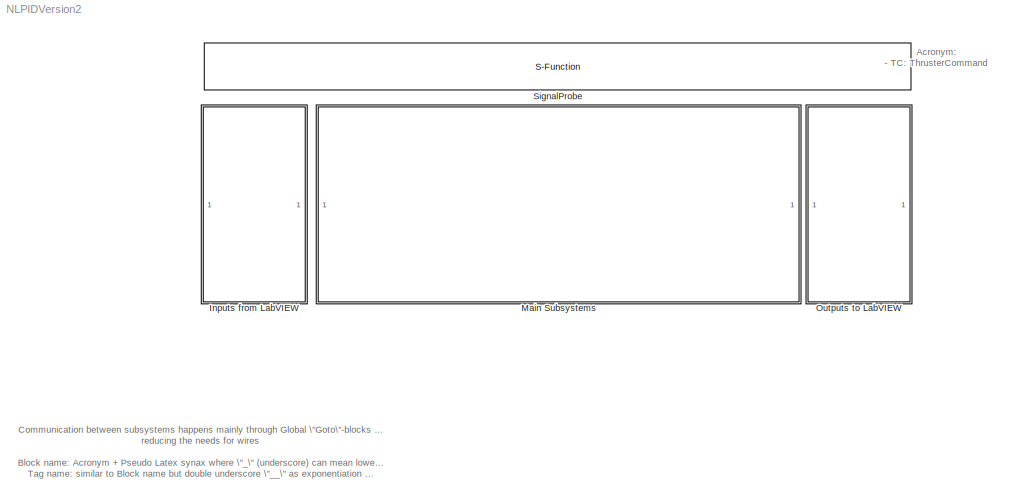
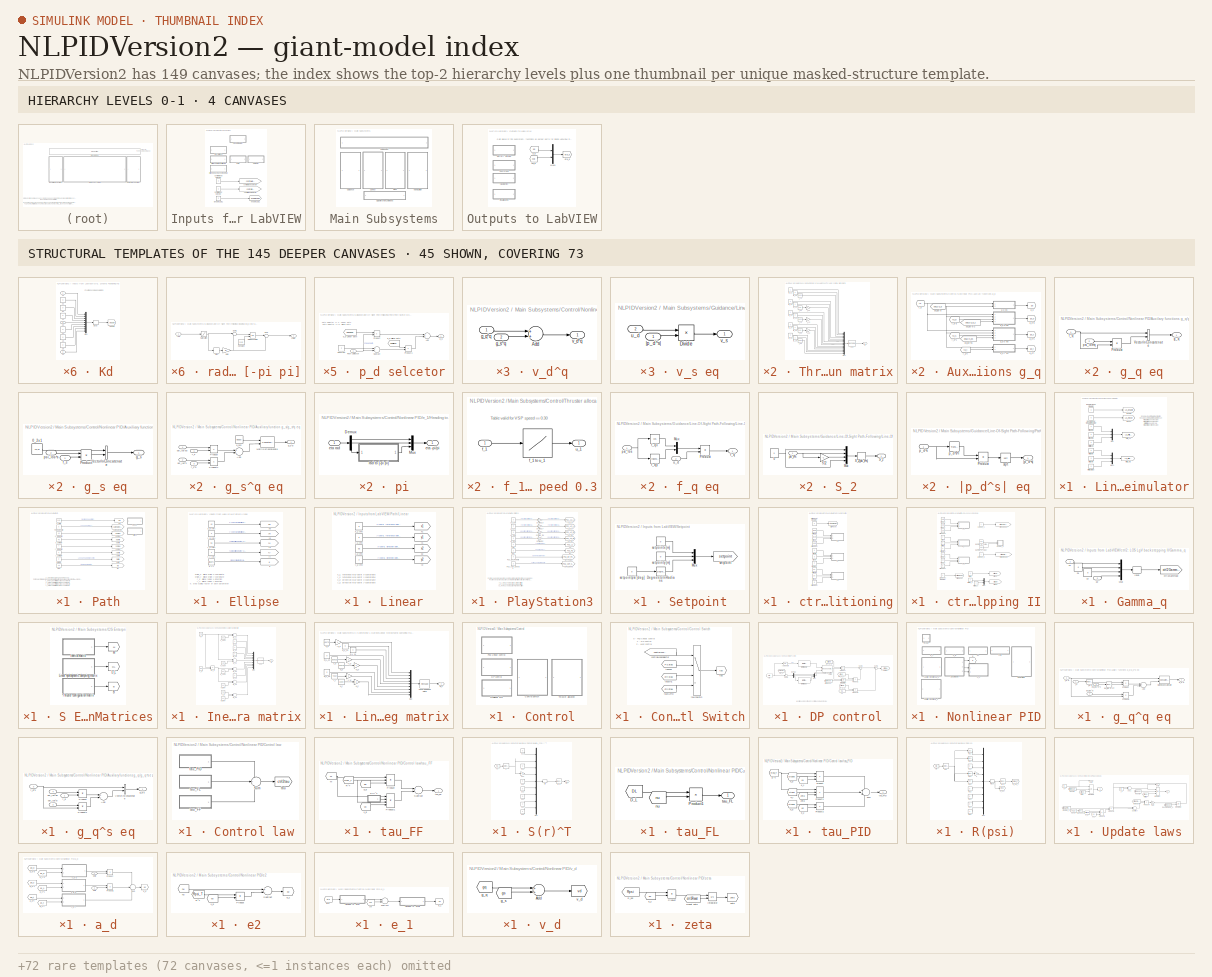
[diagram: thumbnail index - top-2 hierarchy levels (4 canvases) + 45 structural-template representatives of the remaining 145 canvases]
MODEL NLPIDVersion2
KIND model
BLOCK [SubSystem] Inputs from LabVIEW
  FunctionWithSeparateData = off
  MaskHideContents = off
  MinAlgLoopOccurrences = off
  Opaque = off
  Ports = []
  PropExecContextOutsideSubsystem = off
  RTWSystemCode = Auto
  RequestExecContextInheritance = off
BLOCK [Constant] Inputs from LabVIEW/Control Input Selector
  Value = 0
BLOCK [Constant] Inputs from LabVIEW/Control Mode Selector
  Value = 0
BLOCK [Constant] Inputs from LabVIEW/Enable CSE1
  Value = 0
BLOCK [SubSystem] Inputs from LabVIEW/Linear Simulator
  FunctionWithSeparateData = off
  MaskHideContents = off
  MinAlgLoopOccurrences = off
  Opaque = off
  Ports = []
  PropExecContextOutsideSubsystem = off
  RTWSystemCode = Auto
  RequestExecContextInheritance = off
BLOCK [Goto] Inputs from LabVIEW/Linear Simulator/Enable
  GotoTag = LS_Enable
  TagVisibility = global
BLOCK [Constant] Inputs from LabVIEW/Linear Simulator/Enable Linear Simulator
  Value = 0
BLOCK [Constant] Inputs from LabVIEW/Linear Simulator/Initial psi [rad]
  OutDataType = fixdt(1, 16)
  OutScaling = 2^0
  Value = 0
BLOCK [Constant] Inputs from LabVIEW/Linear Simulator/Initial r [rad//s]
  OutDataType = fixdt(1, 16)
  OutScaling = 2^0
  Value = 0
BLOCK [Constant] Inputs from LabVIEW/Linear Simulator/Initial u [m//s]
  OutDataType = fixdt(1, 16)
  OutScaling = 2^0
  Value = 0
BLOCK [Constant] Inputs from LabVIEW/Linear Simulator/Initial v [m//s]
  OutDataType = fixdt(1, 16)
  OutScaling = 2^0
  Value = 0
BLOCK [Constant] Inputs from LabVIEW/Linear Simulator/Initial x [m]
  OutDataType = fixdt(1, 16)
  OutScaling = 2^0
  Value = 0
BLOCK [Constant] Inputs from LabVIEW/Linear Simulator/Initial y [m]
  OutDataType = fixdt(1, 16)
  OutScaling = 2^0
  Value = 0
BLOCK [Goto] Inputs from LabVIEW/Linear Simulator/Initial_eta
  GotoTag = LS_Initial_eta
  TagVisibility = global
BLOCK [Goto] Inputs from LabVIEW/Linear Simulator/Initial_nu
  GotoTag = LS_Initial_nu
  TagVisibility = global
BLOCK [Mux] Inputs from LabVIEW/Linear Simulator/Mux
  DisplayOption = bar
  Inputs = 3
  Ports = [3, 1]
BLOCK [Mux] Inputs from LabVIEW/Linear Simulator/Mux1
  DisplayOption = bar
  Inputs = 3
  Ports = [3, 1]
BLOCK [Goto] Inputs from LabVIEW/Linear Simulator/Reset
  GotoTag = LS_Reset
  TagVisibility = global
BLOCK [Constant] Inputs from LabVIEW/Linear Simulator/Reset Linear Simulator integrator
  Value = 0
BLOCK [SubSystem] Inputs from LabVIEW/Path
  FunctionWithSeparateData = off
  MaskHideContents = off
  MinAlgLoopOccurrences = off
  Opaque = off
  Ports = []
  PropExecContextOutsideSubsystem = off
  RTWSystemCode = Auto
  RequestExecContextInheritance = off
BLOCK [Goto] Inputs from LabVIEW/Path/Delta
  GotoTag = Delta
  TagVisibility = global
BLOCK [Constant] Inputs from LabVIEW/Path/Delta [m]
  OutDataType = fixdt(1, 16)
  OutScaling = 2^0
  Value = 2
BLOCK [SubSystem] Inputs from LabVIEW/Path/Ellipse
  FunctionWithSeparateData = off
  MaskHideContents = off
  MinAlgLoopOccurrences = off
  Opaque = off
  Ports = []
  PropExecContextOutsideSubsystem = off
  RTWSystemCode = Auto
  RequestExecContextInheritance = off
BLOCK [Goto] Inputs from LabVIEW/Path/Ellipse/k
  GotoTag = k
  TagVisibility = global
BLOCK [Constant] Inputs from LabVIEW/Path/Ellipse/k [-]
  OutDataType = fixdt(1, 16)
  OutScaling = 2^0
  Value = pi/180*2
BLOCK [Constant] Inputs from LabVIEW/Path/Ellipse/r_x [m]
  OutDataType = fixdt(1, 16)
  OutScaling = 2^0
  Value = 5.5
BLOCK [Constant] Inputs from LabVIEW/Path/Ellipse/r_y [m]
  OutDataType = fixdt(1, 16)
  OutScaling = 2^0
  Value = 2
BLOCK [Goto] Inputs from LabVIEW/Path/Ellipse/rx
  GotoTag = rx
  TagVisibility = global
BLOCK [Goto] Inputs from LabVIEW/Path/Ellipse/ry
  GotoTag = ry
  TagVisibility = global
BLOCK [Goto] Inputs from LabVIEW/Path/Ellipse/x0
  GotoTag = x0
  TagVisibility = global
BLOCK [Constant] Inputs from LabVIEW/Path/Ellipse/x_0 [m]
  OutDataType = fixdt(1, 16)
  OutScaling = 2^0
  Value = 4.5
BLOCK [Goto] Inputs from LabVIEW/Path/Ellipse/y0
  GotoTag = y0
  TagVisibility = global
BLOCK [Constant] Inputs from LabVIEW/Path/Ellipse/y_0 [m]
  OutDataType = fixdt(1, 16)
  OutScaling = 2^0
  Value = 0
BLOCK [SubSystem] Inputs from LabVIEW/Path/Linear
  FunctionWithSeparateData = off
  MaskHideContents = off
  MinAlgLoopOccurrences = off
  Opaque = off
  Ports = []
  PropExecContextOutsideSubsystem = off
  RTWSystemCode = Auto
  RequestExecContextInheritance = off
BLOCK [Goto] Inputs from LabVIEW/Path/Linear/x1
  GotoTag = x1
  TagVisibility = global
BLOCK [Goto] Inputs from LabVIEW/Path/Linear/x2
  GotoTag = x2
  TagVisibility = global
BLOCK [Constant] Inputs from LabVIEW/Path/Linear/x_1 [m]
  OutDataType = fixdt(1, 16)
  OutScaling = 2^0
  Value = 0
BLOCK [Constant] Inputs from LabVIEW/Path/Linear/x_2 [m]
  OutDataType = fixdt(1, 16)
  OutScaling = 2^0
  Value = 5.5
BLOCK [Goto] Inputs from LabVIEW/Path/Linear/y1
  GotoTag = y1
  TagVisibility = global
BLOCK [Goto] Inputs from LabVIEW/Path/Linear/y2
  GotoTag = y2
  TagVisibility = global
BLOCK [Constant] Inputs from LabVIEW/Path/Linear/y_1 [m]
  OutDataType = fixdt(1, 16)
  OutScaling = 2^0
  Value = 0
BLOCK [Constant] Inputs from LabVIEW/Path/Linear/y_2 [m]
  OutDataType = fixdt(1, 16)
  OutScaling = 2^0
  Value = 2
BLOCK [Constant] Inputs from LabVIEW/Path/Path Selector  [-]
  Value = 0
BLOCK [Goto] Inputs from LabVIEW/Path/my
  GotoTag = my
  TagVisibility = global
BLOCK [Constant] Inputs from LabVIEW/Path/my [-]
  OutDataType = fixdt(1, 16)
  OutScaling = 2^0
  Value = 10
BLOCK [Goto] Inputs from LabVIEW/Path/pathSelector
  GotoTag = pathSelector
  TagVisibility = global
BLOCK [Constant] Inputs from LabVIEW/Path/u_d [m]
  OutDataType = fixdt(1, 16)
  OutScaling = 2^0
  Value = 0.15
BLOCK [Goto] Inputs from LabVIEW/Path/ud
  GotoTag = ud
  TagVisibility = global
BLOCK [Constant] Inputs from LabVIEW/Path/x_dmax [m]
  Value = 40
BLOCK [Constant] Inputs from LabVIEW/Path/x_dmin [m]
  Value = -40
BLOCK [Goto] Inputs from LabVIEW/Path/xdmax
  GotoTag = xdmax
  TagVisibility = global
BLOCK [Goto] Inputs from LabVIEW/Path/xdmin
  GotoTag = xdmin
  TagVisibility = global
BLOCK [Constant] Inputs from LabVIEW/Path/y_dmax [m]
  Value = 7
BLOCK [Constant] Inputs from LabVIEW/Path/y_dmin [m]
  Value = -7
BLOCK [Goto] Inputs from LabVIEW/Path/ydmax
  GotoTag = ydmax
  TagVisibility = global
BLOCK [Goto] Inputs from LabVIEW/Path/ydmin
  GotoTag = ydmin
  TagVisibility = global
BLOCK [SubSystem] Inputs from LabVIEW/PlayStation3
  FunctionWithSeparateData = off
  MaskHideContents = off
  MinAlgLoopOccurrences = off
  Opaque = off
  Ports = []
  PropExecContextOutsideSubsystem = off
  RTWSystemCode = Auto
  RequestExecContextInheritance = off
BLOCK [Goto] Inputs from LabVIEW/PlayStation3/AS_LX
  GotoTag = PS3_AS_LX
  TagVisibility = global
BLOCK [Constant] Inputs from LabVIEW/PlayStation3/AS_LX [-] 
  Value = 0
BLOCK [Goto] Inputs from LabVIEW/PlayStation3/AS_LY
  GotoTag = PS3_AS_LY
  TagVisibility = global
BLOCK [Constant] Inputs from LabVIEW/PlayStation3/AS_LY [-]
  Value = 0
BLOCK [Goto] Inputs from LabVIEW/PlayStation3/AS_RX
  GotoTag = PS3_AS_RX
  TagVisibility = global
BLOCK [Constant] Inputs from LabVIEW/PlayStation3/AS_RX [-]
  Value = 0
BLOCK [Goto] Inputs from LabVIEW/PlayStation3/AS_RY
  GotoTag = PS3_AS_RY
  TagVisibility = global
BLOCK [Constant] Inputs from LabVIEW/PlayStation3/AS_RY [-]
  Value = 0
BLOCK [Goto] Inputs from LabVIEW/PlayStation3/BT_Power
  GotoTag = PS3_BT_Power
  TagVisibility = global
BLOCK [Goto] Inputs from LabVIEW/PlayStation3/L2
  GotoTag = PS3_L2
  TagVisibility = global
BLOCK [Constant] Inputs from LabVIEW/PlayStation3/L2 [-]
  Value = 0
BLOCK [Constant] Inputs from LabVIEW/PlayStation3/PS3_BT_Power  [-]
  Value = 0
BLOCK [Constant] Inputs from LabVIEW/PlayStation3/PS3_VSP_Speed  [-]
  Value = 0
BLOCK [Goto] Inputs from LabVIEW/PlayStation3/R2
  GotoTag = PS3_R2
  TagVisibility = global
BLOCK [Constant] Inputs from LabVIEW/PlayStation3/R2 [-]
  Value = 0
BLOCK [Gain] Inputs from LabVIEW/PlayStation3/ScalingLX
  Gain = 1/32767
  OutDataTypeMode = Inherit via internal rule
  OutDataTypeStr = Inherit: Inherit via internal rule
  ParamDataTypeStr = Inherit: Inherit via internal rule
  ParameterDataTypeMode = Inherit via internal rule
  SaturateOnIntegerOverflow = off
BLOCK [Gain] Inputs from LabVIEW/PlayStation3/ScalingLY
  Gain = 1/32767
  OutDataTypeMode = Inherit via internal rule
  OutDataTypeStr = Inherit: Inherit via internal rule
  ParamDataTypeStr = Inherit: Inherit via internal rule
  ParameterDataTypeMode = Inherit via internal rule
  SaturateOnIntegerOverflow = off
BLOCK [Gain] Inputs from LabVIEW/PlayStation3/ScalingRY
  Gain = 1/32767
  OutDataTypeMode = Inherit via internal rule
  OutDataTypeStr = Inherit: Inherit via internal rule
  ParamDataTypeStr = Inherit: Inherit via internal rule
  ParameterDataTypeMode = Inherit via internal rule
  SaturateOnIntegerOverflow = off
BLOCK [Gain] Inputs from LabVIEW/PlayStation3/Scaling_RX
  Gain = 1/32767
  OutDataTypeMode = Inherit via internal rule
  OutDataTypeStr = Inherit: Inherit via internal rule
  ParamDataTypeStr = Inherit: Inherit via internal rule
  ParameterDataTypeMode = Inherit via internal rule
  SaturateOnIntegerOverflow = off
BLOCK [Goto] Inputs from LabVIEW/PlayStation3/VSP_Speed
  GotoTag = PS3_VSP_Speed
  TagVisibility = global
BLOCK [SubSystem] Inputs from LabVIEW/Setpoint
  FunctionWithSeparateData = off
  MaskHideContents = off
  MinAlgLoopOccurrences = off
  Opaque = off
  Ports = []
  PropExecContextOutsideSubsystem = off
  RTWSystemCode = Auto
  RequestExecContextInheritance = off
BLOCK [Reference] Inputs from LabVIEW/Setpoint/Degrees to\nRadians  REF=simulink_extras/Transformations/Degrees to\nRadians
  FunctionWithSeparateData = off
  Ports = [1, 1]
  RTWMemSecDataConstants = Inherit from model
  RTWMemSecDataInternal = Inherit from model
  RTWMemSecDataParameters = Inherit from model
  RTWMemSecFuncExecute = Inherit from model
  RTWMemSecFuncInitTerm = Inherit from model
  ShowPortLabels = FromPortIcon
  SourceBlock = simulink_extras/Transformations/Degrees to\nRadians
  SourceType = DegreesToRadians
  SystemSampleTime = -1
BLOCK [Mux] Inputs from LabVIEW/Setpoint/Mux
  DisplayOption = bar
  Inputs = 3
  Ports = [3, 1]
BLOCK [Goto] Inputs from LabVIEW/Setpoint/setpoint
  GotoTag = setpoint
  TagVisibility = global
BLOCK [Constant] Inputs from LabVIEW/Setpoint/setpointpsi [deg]
  Value = 0
BLOCK [Constant] Inputs from LabVIEW/Setpoint/setpointx [m]
  Value = 0
BLOCK [Constant] Inputs from LabVIEW/Setpoint/setpointy [m]
  Value = 0
BLOCK [Goto] Inputs from LabVIEW/controlInputSelector
  GotoTag = controlInputSelector
  TagVisibility = global
BLOCK [Goto] Inputs from LabVIEW/controlModeSelector
  GotoTag = controlModeSelector
  TagVisibility = global
BLOCK [SubSystem] Inputs from LabVIEW/ctrl1: Dynamic Positioning
  FunctionWithSeparateData = off
  MaskHideContents = off
  MinAlgLoopOccurrences = off
  Opaque = off
  Ports = []
  PropExecContextOutsideSubsystem = off
  RTWSystemCode = Auto
  RequestExecContextInheritance = off
BLOCK [SubSystem] Inputs from LabVIEW/ctrl1: Dynamic Positioning/Kd
  FunctionWithSeparateData = off
  MaskHideContents = off
  MinAlgLoopOccurrences = off
  Opaque = off
  Ports = [3]
  PropExecContextOutsideSubsystem = off
  RTWSystemCode = Auto
  RequestExecContextInheritance = off
BLOCK [Inport] Inputs from LabVIEW/ctrl1: Dynamic Positioning/Kd/11
  IconDisplay = Port number
BLOCK [Constant] Inputs from LabVIEW/ctrl1: Dynamic Positioning/Kd/12
  Value = 0
BLOCK [Constant] Inputs from LabVIEW/ctrl1: Dynamic Positioning/Kd/13
  Value = 0
BLOCK [Constant] Inputs from LabVIEW/ctrl1: Dynamic Positioning/Kd/21
  Value = 0
BLOCK [Inport] Inputs from LabVIEW/ctrl1: Dynamic Positioning/Kd/22
  IconDisplay = Port number
  Port = 2
BLOCK [Constant] Inputs from LabVIEW/ctrl1: Dynamic Positioning/Kd/23
  Value = 0
BLOCK [Constant] Inputs from LabVIEW/ctrl1: Dynamic Positioning/Kd/31
  Value = 0
BLOCK [Constant] Inputs from LabVIEW/ctrl1: Dynamic Positioning/Kd/32
  Value = 0
BLOCK [Inport] Inputs from LabVIEW/ctrl1: Dynamic Positioning/Kd/33
  IconDisplay = Port number
  Port = 3
BLOCK [Mux] Inputs from LabVIEW/ctrl1: Dynamic Positioning/Kd/Mux
  DisplayOption = bar
  Inputs = 9
  Ports = [9, 1]
BLOCK [Reshape] Inputs from LabVIEW/ctrl1: Dynamic Positioning/Kd/[3x3]
  OutputDimensionality = Customize
  OutputDimensions = [3,3]
  Ports = [1, 1]
BLOCK [Goto] Inputs from LabVIEW/ctrl1: Dynamic Positioning/Kd/ctrl1Kd
  GotoTag = ctrl1Kd
  TagVisibility = global
BLOCK [SubSystem] Inputs from LabVIEW/ctrl1: Dynamic Positioning/Ki
  FunctionWithSeparateData = off
  MaskHideContents = off
  MinAlgLoopOccurrences = off
  Opaque = off
  Ports = [3]
  PropExecContextOutsideSubsystem = off
  RTWSystemCode = Auto
  RequestExecContextInheritance = off
BLOCK [Inport] Inputs from LabVIEW/ctrl1: Dynamic Positioning/Ki/11
  IconDisplay = Port number
BLOCK [Constant] Inputs from LabVIEW/ctrl1: Dynamic Positioning/Ki/12
  Value = 0
BLOCK [Constant] Inputs from LabVIEW/ctrl1: Dynamic Positioning/Ki/13
  Value = 0
BLOCK [Constant] Inputs from LabVIEW/ctrl1: Dynamic Positioning/Ki/21
  Value = 0
BLOCK [Inport] Inputs from LabVIEW/ctrl1: Dynamic Positioning/Ki/22
  IconDisplay = Port number
  Port = 2
BLOCK [Constant] Inputs from LabVIEW/ctrl1: Dynamic Positioning/Ki/23
  Value = 0
BLOCK [Constant] Inputs from LabVIEW/ctrl1: Dynamic Positioning/Ki/31
  Value = 0
BLOCK [Constant] Inputs from LabVIEW/ctrl1: Dynamic Positioning/Ki/32
  Value = 0
BLOCK [Inport] Inputs from LabVIEW/ctrl1: Dynamic Positioning/Ki/33
  IconDisplay = Port number
  Port = 3
BLOCK [Mux] Inputs from LabVIEW/ctrl1: Dynamic Positioning/Ki/Mux
  DisplayOption = bar
  Inputs = 9
  Ports = [9, 1]
BLOCK [Reshape] Inputs from LabVIEW/ctrl1: Dynamic Positioning/Ki/[3x3]
  OutputDimensionality = Customize
  OutputDimensions = [3,3]
  Ports = [1, 1]
BLOCK [Goto] Inputs from LabVIEW/ctrl1: Dynamic Positioning/Ki/ctrl1Ki
  GotoTag = ctrl1Ki
  TagVisibility = global
BLOCK [SubSystem] Inputs from LabVIEW/ctrl1: Dynamic Positioning/Kp
  FunctionWithSeparateData = off
  MaskHideContents = off
  MinAlgLoopOccurrences = off
  Opaque = off
  Ports = [3]
  PropExecContextOutsideSubsystem = off
  RTWSystemCode = Auto
  RequestExecContextInheritance = off
BLOCK [Inport] Inputs from LabVIEW/ctrl1: Dynamic Positioning/Kp/11
  IconDisplay = Port number
BLOCK [Constant] Inputs from LabVIEW/ctrl1: Dynamic Positioning/Kp/12
  Value = 0
BLOCK [Constant] Inputs from LabVIEW/ctrl1: Dynamic Positioning/Kp/13
  Value = 0
BLOCK [Constant] Inputs from LabVIEW/ctrl1: Dynamic Positioning/Kp/21
  Value = 0
BLOCK [Inport] Inputs from LabVIEW/ctrl1: Dynamic Positioning/Kp/22
  IconDisplay = Port number
  Port = 2
BLOCK [Constant] Inputs from LabVIEW/ctrl1: Dynamic Positioning/Kp/23
  Value = 0
BLOCK [Constant] Inputs from LabVIEW/ctrl1: Dynamic Positioning/Kp/31
  Value = 0
BLOCK [Constant] Inputs from LabVIEW/ctrl1: Dynamic Positioning/Kp/32
  Value = 0
BLOCK [Inport] Inputs from LabVIEW/ctrl1: Dynamic Positioning/Kp/33
  IconDisplay = Port number
  Port = 3
BLOCK [Mux] Inputs from LabVIEW/ctrl1: Dynamic Positioning/Kp/Mux
  DisplayOption = bar
  Inputs = 9
  Ports = [9, 1]
BLOCK [Reshape] Inputs from LabVIEW/ctrl1: Dynamic Positioning/Kp/[3x3]
  OutputDimensionality = Customize
  OutputDimensions = [3,3]
  Ports = [1, 1]
BLOCK [Goto] Inputs from LabVIEW/ctrl1: Dynamic Positioning/Kp/ctrl1Kp
  GotoTag = ctrl1Kp
  TagVisibility = global
BLOCK [Constant] Inputs from LabVIEW/ctrl1: Dynamic Positioning/ctrl1 Reset Integrator 
  Value = 0
BLOCK [Constant] Inputs from LabVIEW/ctrl1: Dynamic Positioning/ctrl1Kdpsi
  Value = 5
BLOCK [Constant] Inputs from LabVIEW/ctrl1: Dynamic Positioning/ctrl1Kdx
  Value = 50
BLOCK [Constant] Inputs from LabVIEW/ctrl1: Dynamic Positioning/ctrl1Kdy
  Value = 30
BLOCK [Constant] Inputs from LabVIEW/ctrl1: Dynamic Positioning/ctrl1Kipsi
  Value = 0
BLOCK [Constant] Inputs from LabVIEW/ctrl1: Dynamic Positioning/ctrl1Kix
  Value = 0
BLOCK [Constant] Inputs from LabVIEW/ctrl1: Dynamic Positioning/ctrl1Kiy
  Value = 0
BLOCK [Constant] Inputs from LabVIEW/ctrl1: Dynamic Positioning/ctrl1Kppsi
  Value = 0.5*3
BLOCK [Constant] Inputs from LabVIEW/ctrl1: Dynamic Positioning/ctrl1Kpx
  Value = 2*1.5*2
BLOCK [Constant] Inputs from LabVIEW/ctrl1: Dynamic Positioning/ctrl1Kpy
  Value = 2*10*2
BLOCK [Goto] Inputs from LabVIEW/ctrl1: Dynamic Positioning/ctrl1Reset
  GotoTag = ctrl1Reset
  TagVisibility = global
BLOCK [SubSystem] Inputs from LabVIEW/ctrl2: LOS LgV backstepping II
  FunctionWithSeparateData = off
  MaskHideContents = off
  MinAlgLoopOccurrences = off
  Opaque = off
  Ports = []
  PropExecContextOutsideSubsystem = off
  RTWSystemCode = Auto
  RequestExecContextInheritance = off
BLOCK [SubSystem] Inputs from LabVIEW/ctrl2: LOS LgV backstepping II/Gamma_q
  FunctionWithSeparateData = off
  MaskHideContents = off
  MinAlgLoopOccurrences = off
  Opaque = off
  Ports = [2]
  PropExecContextOutsideSubsystem = off
  RTWSystemCode = Auto
  RequestExecContextInheritance = off
BLOCK [Inport] Inputs from LabVIEW/ctrl2: LOS LgV backstepping II/Gamma_q/11
  IconDisplay = Port number
BLOCK [Constant] Inputs from LabVIEW/ctrl2: LOS LgV backstepping II/Gamma_q/12
  Value = 0
BLOCK [Constant] Inputs from LabVIEW/ctrl2: LOS LgV backstepping II/Gamma_q/21
  Value = 0
BLOCK [Inport] Inputs from LabVIEW/ctrl2: LOS LgV backstepping II/Gamma_q/22
  IconDisplay = Port number
  Port = 2
BLOCK [Mux] Inputs from LabVIEW/ctrl2: LOS LgV backstepping II/Gamma_q/Mux
  DisplayOption = bar
  Ports = [4, 1]
BLOCK [Reshape] Inputs from LabVIEW/ctrl2: LOS LgV backstepping II/Gamma_q/[2x2]
  OutputDimensionality = Customize
  OutputDimensions = [2,2]
  Ports = [1, 1]
BLOCK [Goto] Inputs from LabVIEW/ctrl2: LOS LgV backstepping II/Gamma_q/ctrl2Gammaq
  GotoTag = ctrl2Gammaq
  TagVisibility = global
BLOCK [Constant] Inputs from LabVIEW/ctrl2: LOS LgV backstepping II/Gamma_q_Surge
  Value = 10*2
BLOCK [Constant] Inputs from LabVIEW/ctrl2: LOS LgV backstepping II/Gamma_q_Sway
  Value = 10*10
BLOCK [Constant] Inputs from LabVIEW/ctrl2: LOS LgV backstepping II/Initial q_x
  OutDataType = fixdt(1, 16)
  OutScaling = 2^0
  Value = 0
BLOCK [Constant] Inputs from LabVIEW/ctrl2: LOS LgV backstepping II/Initial q_y
  OutDataType = fixdt(1, 16)
  OutScaling = 2^0
  Value = 0
BLOCK [Constant] Inputs from LabVIEW/ctrl2: LOS LgV backstepping II/Initial s
  OutDataType = fixdt(1, 16)
  OutScaling = 2^0
  Value = 0
BLOCK [SubSystem] Inputs from LabVIEW/ctrl2: LOS LgV backstepping II/K_d
  FunctionWithSeparateData = off
  MaskHideContents = off
  MinAlgLoopOccurrences = off
  Opaque = off
  Ports = [3]
  PropExecContextOutsideSubsystem = off
  RTWSystemCode = Auto
  RequestExecContextInheritance = off
BLOCK [Inport] Inputs from LabVIEW/ctrl2: LOS LgV backstepping II/K_d/11
  IconDisplay = Port number
BLOCK [Constant] Inputs from LabVIEW/ctrl2: LOS LgV backstepping II/K_d/12
  Value = 0
BLOCK [Constant] Inputs from LabVIEW/ctrl2: LOS LgV backstepping II/K_d/13
  Value = 0
BLOCK [Constant] Inputs from LabVIEW/ctrl2: LOS LgV backstepping II/K_d/21
  Value = 0
BLOCK [Inport] Inputs from LabVIEW/ctrl2: LOS LgV backstepping II/K_d/22
  IconDisplay = Port number
  Port = 2
BLOCK [Constant] Inputs from LabVIEW/ctrl2: LOS LgV backstepping II/K_d/23
  Value = 0
BLOCK [Constant] Inputs from LabVIEW/ctrl2: LOS LgV backstepping II/K_d/31
  Value = 0
BLOCK [Constant] Inputs from LabVIEW/ctrl2: LOS LgV backstepping II/K_d/32
  Value = 0
BLOCK [Inport] Inputs from LabVIEW/ctrl2: LOS LgV backstepping II/K_d/33
  IconDisplay = Port number
  Port = 3
BLOCK [Mux] Inputs from LabVIEW/ctrl2: LOS LgV backstepping II/K_d/Mux
  DisplayOption = bar
  Inputs = 9
  Ports = [9, 1]
BLOCK [Reshape] Inputs from LabVIEW/ctrl2: LOS LgV backstepping II/K_d/[3x3]
  OutputDimensionality = Customize
  OutputDimensions = [3,3]
  Ports = [1, 1]
BLOCK [Goto] Inputs from LabVIEW/ctrl2: LOS LgV backstepping II/K_d/ctrl2Kd
  GotoTag = ctrl2Kd
  TagVisibility = global
BLOCK [SubSystem] Inputs from LabVIEW/ctrl2: LOS LgV backstepping II/K_i
  FunctionWithSeparateData = off
  MaskHideContents = off
  MinAlgLoopOccurrences = off
  Opaque = off
  Ports = [3]
  PropExecContextOutsideSubsystem = off
  RTWSystemCode = Auto
  RequestExecContextInheritance = off
BLOCK [Inport] Inputs from LabVIEW/ctrl2: LOS LgV backstepping II/K_i/11
  IconDisplay = Port number
BLOCK [Constant] Inputs from LabVIEW/ctrl2: LOS LgV backstepping II/K_i/12
  Value = 0
BLOCK [Constant] Inputs from LabVIEW/ctrl2: LOS LgV backstepping II/K_i/13
  Value = 0
BLOCK [Constant] Inputs from LabVIEW/ctrl2: LOS LgV backstepping II/K_i/21
  Value = 0
BLOCK [Inport] Inputs from LabVIEW/ctrl2: LOS LgV backstepping II/K_i/22
  IconDisplay = Port number
  Port = 2
BLOCK [Constant] Inputs from LabVIEW/ctrl2: LOS LgV backstepping II/K_i/23
  Value = 0
BLOCK [Constant] Inputs from LabVIEW/ctrl2: LOS LgV backstepping II/K_i/31
  Value = 0
BLOCK [Constant] Inputs from LabVIEW/ctrl2: LOS LgV backstepping II/K_i/32
  Value = 0
BLOCK [Inport] Inputs from LabVIEW/ctrl2: LOS LgV backstepping II/K_i/33
  IconDisplay = Port number
  Port = 3
BLOCK [Mux] Inputs from LabVIEW/ctrl2: LOS LgV backstepping II/K_i/Mux
  DisplayOption = bar
  Inputs = 9
  Ports = [9, 1]
BLOCK [Reshape] Inputs from LabVIEW/ctrl2: LOS LgV backstepping II/K_i/[3x3]
  OutputDimensionality = Customize
  OutputDimensions = [3,3]
  Ports = [1, 1]
BLOCK [Goto] Inputs from LabVIEW/ctrl2: LOS LgV backstepping II/K_i/ctrl2Ki
  GotoTag = ctrl2Ki
  TagVisibility = global
BLOCK [SubSystem] Inputs from LabVIEW/ctrl2: LOS LgV backstepping II/K_p
  FunctionWithSeparateData = off
  MaskHideContents = off
  MinAlgLoopOccurrences = off
  Opaque = off
  Ports = [3]
  PropExecContextOutsideSubsystem = off
  RTWSystemCode = Auto
  RequestExecContextInheritance = off
BLOCK [Inport] Inputs from LabVIEW/ctrl2: LOS LgV backstepping II/K_p/11
  IconDisplay = Port number
BLOCK [Constant] Inputs from LabVIEW/ctrl2: LOS LgV backstepping II/K_p/12
  Value = 0
BLOCK [Constant] Inputs from LabVIEW/ctrl2: LOS LgV backstepping II/K_p/13
  Value = 0
BLOCK [Constant] Inputs from LabVIEW/ctrl2: LOS LgV backstepping II/K_p/21
  Value = 0
BLOCK [Inport] Inputs from LabVIEW/ctrl2: LOS LgV backstepping II/K_p/22
  IconDisplay = Port number
  Port = 2
BLOCK [Constant] Inputs from LabVIEW/ctrl2: LOS LgV backstepping II/K_p/23
  Value = 0
BLOCK [Constant] Inputs from LabVIEW/ctrl2: LOS LgV backstepping II/K_p/31
  Value = 0
BLOCK [Constant] Inputs from LabVIEW/ctrl2: LOS LgV backstepping II/K_p/32
  Value = 0
BLOCK [Inport] Inputs from LabVIEW/ctrl2: LOS LgV backstepping II/K_p/33
  IconDisplay = Port number
  Port = 3
BLOCK [Mux] Inputs from LabVIEW/ctrl2: LOS LgV backstepping II/K_p/Mux
  DisplayOption = bar
  Inputs = 9
  Ports = [9, 1]
BLOCK [Reshape] Inputs from LabVIEW/ctrl2: LOS LgV backstepping II/K_p/[3x3]
  OutputDimensionality = Customize
  OutputDimensions = [3,3]
  Ports = [1, 1]
BLOCK [Goto] Inputs from LabVIEW/ctrl2: LOS LgV backstepping II/K_p/ctrl2Kp
  GotoTag = ctrl2Kp
  TagVisibility = global
BLOCK [Mux] Inputs from LabVIEW/ctrl2: LOS LgV backstepping II/Mux
  DisplayOption = bar
  Inputs = 2
  Ports = [2, 1]
BLOCK [Constant] Inputs from LabVIEW/ctrl2: LOS LgV backstepping II/ctrl2 Reset Integrator 
  Value = 0
BLOCK [Constant] Inputs from LabVIEW/ctrl2: LOS LgV backstepping II/ctrl2Kdpsi
  Value = 5
BLOCK [Constant] Inputs from LabVIEW/ctrl2: LOS LgV backstepping II/ctrl2Kdx
  Value = 50
BLOCK [Constant] Inputs from LabVIEW/ctrl2: LOS LgV backstepping II/ctrl2Kdy
  Value = 30
BLOCK [Constant] Inputs from LabVIEW/ctrl2: LOS LgV backstepping II/ctrl2Kipsi
  Value = 0
BLOCK [Constant] Inputs from LabVIEW/ctrl2: LOS LgV backstepping II/ctrl2Kix
  Value = 0
BLOCK [Constant] Inputs from LabVIEW/ctrl2: LOS LgV backstepping II/ctrl2Kiy
  Value = 0
BLOCK [Constant] Inputs from LabVIEW/ctrl2: LOS LgV backstepping II/ctrl2Kppsi
  Value = 0.5*3
BLOCK [Constant] Inputs from LabVIEW/ctrl2: LOS LgV backstepping II/ctrl2Kpx
  Value = 2*1.5*2
BLOCK [Constant] Inputs from LabVIEW/ctrl2: LOS LgV backstepping II/ctrl2Kpy
  Value = 2*10*2
BLOCK [Goto] Inputs from LabVIEW/ctrl2: LOS LgV backstepping II/ctrl2Reset
  GotoTag = ctrl2Reset
  TagVisibility = global
BLOCK [Goto] Inputs from LabVIEW/ctrl2: LOS LgV backstepping II/ctrl2kappa1
  GotoTag = ctrl2kappa1
  TagVisibility = global
BLOCK [Goto] Inputs from LabVIEW/ctrl2: LOS LgV backstepping II/ctrl2lambdaq
  GotoTag = ctrl2lambdaq
  TagVisibility = global
BLOCK [Goto] Inputs from LabVIEW/ctrl2: LOS LgV backstepping II/ctrl2q0
  GotoTag = ctrl2q0
  TagVisibility = global
BLOCK [Goto] Inputs from LabVIEW/ctrl2: LOS LgV backstepping II/ctrl2s0
  GotoTag = ctrl2s0
  TagVisibility = global
BLOCK [Constant] Inputs from LabVIEW/ctrl2: LOS LgV backstepping II/kappa_1
BLOCK [Constant] Inputs from LabVIEW/ctrl2: LOS LgV backstepping II/lambda_q
BLOCK [Goto] Inputs from LabVIEW/enableCSE1
  GotoTag = enableCSE1
  TagVisibility = global
BLOCK [SubSystem] Main Subsystems
  FunctionWithSeparateData = off
  MaskHideContents = off
  MinAlgLoopOccurrences = off
  Opaque = off
  Ports = []
  PropExecContextOutsideSubsystem = off
  RTWSystemCode = Auto
  RequestExecContextInheritance = off
BLOCK [SubSystem] Main Subsystems/C//S Enterprise 1 Matrices
  FunctionWithSeparateData = off
  MaskHideContents = off
  MinAlgLoopOccurrences = off
  Opaque = off
  Ports = []
  PropExecContextOutsideSubsystem = off
  RTWSystemCode = Auto
  RequestExecContextInheritance = off
BLOCK [Goto] Main Subsystems/C//S Enterprise 1 Matrices/B
  GotoTag = B
  TagVisibility = global
BLOCK [Goto] Main Subsystems/C//S Enterprise 1 Matrices/D_L
  GotoTag = DL
  TagVisibility = global
BLOCK [SubSystem] Main Subsystems/C//S Enterprise 1 Matrices/Inertia matrix
  FunctionWithSeparateData = off
  MaskHideContents = off
  MinAlgLoopOccurrences = off
  Opaque = off
  Ports = [0, 1]
  PropExecContextOutsideSubsystem = off
  RTWSystemCode = Auto
  RequestExecContextInheritance = off
BLOCK [Reshape] Main Subsystems/C//S Enterprise 1 Matrices/Inertia matrix/3x3
  OutputDimensionality = Customize
  OutputDimensions = [3,3]
  Ports = [1, 1]
BLOCK [Constant] Main Subsystems/C//S Enterprise 1 Matrices/Inertia matrix/I_z
  Value = 1.760
BLOCK [Outport] Main Subsystems/C//S Enterprise 1 Matrices/Inertia matrix/M
  IconDisplay = Port number
BLOCK [Sum] Main Subsystems/C//S Enterprise 1 Matrices/Inertia matrix/M_11
  InputSameDT = off
  Inputs = +-
  OutDataTypeMode = Inherit via internal rule
  OutDataTypeStr = Inherit: Inherit via internal rule
  Ports = [2, 1]
  SaturateOnIntegerOverflow = off
BLOCK [Constant] Main Subsystems/C//S Enterprise 1 Matrices/Inertia matrix/M_12
  Value = 0
BLOCK [Constant] Main Subsystems/C//S Enterprise 1 Matrices/Inertia matrix/M_13
  Value = 0
BLOCK [Constant] Main Subsystems/C//S Enterprise 1 Matrices/Inertia matrix/M_21
  Value = 0
BLOCK [Sum] Main Subsystems/C//S Enterprise 1 Matrices/Inertia matrix/M_22
  InputSameDT = off
  Inputs = +-
  OutDataTypeMode = Inherit via internal rule
  OutDataTypeStr = Inherit: Inherit via internal rule
  Ports = [2, 1]
  SaturateOnIntegerOverflow = off
BLOCK [Sum] Main Subsystems/C//S Enterprise 1 Matrices/Inertia matrix/M_23
  InputSameDT = off
  Inputs = +-
  OutDataTypeMode = Inherit via internal rule
  OutDataTypeStr = Inherit: Inherit via internal rule
  Ports = [2, 1]
  SaturateOnIntegerOverflow = off
BLOCK [Constant] Main Subsystems/C//S Enterprise 1 Matrices/Inertia matrix/M_31
  Value = 0
BLOCK [Sum] Main Subsystems/C//S Enterprise 1 Matrices/Inertia matrix/M_32
  InputSameDT = off
  Inputs = +-
  OutDataTypeMode = Inherit via internal rule
  OutDataTypeStr = Inherit: Inherit via internal rule
  Ports = [2, 1]
  SaturateOnIntegerOverflow = off
BLOCK [Sum] Main Subsystems/C//S Enterprise 1 Matrices/Inertia matrix/M_33
  InputSameDT = off
  Inputs = +-
  OutDataTypeMode = Inherit via internal rule
  OutDataTypeStr = Inherit: Inherit via internal rule
  Ports = [2, 1]
  SaturateOnIntegerOverflow = off
BLOCK [Mux] Main Subsystems/C//S Enterprise 1 Matrices/Inertia matrix/Mux
  DisplayOption = bar
  Inputs = 9
  Ports = [9, 1]
BLOCK [Constant] Main Subsystems/C//S Enterprise 1 Matrices/Inertia matrix/N_rdot
  Value = -1.0
BLOCK [Constant] Main Subsystems/C//S Enterprise 1 Matrices/Inertia matrix/N_vdot
  Value = -0.0
BLOCK [Constant] Main Subsystems/C//S Enterprise 1 Matrices/Inertia matrix/X_udot
  Value = -2.0
BLOCK [Constant] Main Subsystems/C//S Enterprise 1 Matrices/Inertia matrix/Y_rdot
  Value = 0.0
BLOCK [Constant] Main Subsystems/C//S Enterprise 1 Matrices/Inertia matrix/Y_vdot
  Value = -10.0
BLOCK [Constant] Main Subsystems/C//S Enterprise 1 Matrices/Inertia matrix/m
  Value = 17.6
BLOCK [Product] Main Subsystems/C//S Enterprise 1 Matrices/Inertia matrix/m x_g
  InputSameDT = off
  OutDataTypeMode = Inherit via internal rule
  OutDataTypeStr = Inherit: Inherit via internal rule
  Ports = [2, 1]
  SaturateOnIntegerOverflow = off
BLOCK [Constant] Main Subsystems/C//S Enterprise 1 Matrices/Inertia matrix/x_g
  Value = 0.03
BLOCK [SubSystem] Main Subsystems/C//S Enterprise 1 Matrices/Linear hydrodynamic dampning matrix
  FunctionWithSeparateData = off
  MaskHideContents = off
  MinAlgLoopOccurrences = off
  Opaque = off
  Ports = [0, 1]
  PropExecContextOutsideSubsystem = off
  RTWSystemCode = Auto
  RequestExecContextInheritance = off
BLOCK [Gain] Main Subsystems/C//S Enterprise 1 Matrices/Linear hydrodynamic dampning matrix/-N_r
  Gain = -1
  OutDataType = fixdt(1, 16)
  OutDataTypeMode = Inherit via internal rule
  OutDataTypeStr = Inherit: Inherit via internal rule
  OutScaling = 2^0
  ParamDataTypeStr = Inherit: Inherit via internal rule
  ParameterDataType = fixdt(1, 16)
  ParameterDataTypeMode = Inherit via internal rule
  ParameterScaling = 2^0
  SaturateOnIntegerOverflow = off
BLOCK [Gain] Main Subsystems/C//S Enterprise 1 Matrices/Linear hydrodynamic dampning matrix/-N_v
  Gain = -1
  OutDataType = fixdt(1, 16)
  OutDataTypeMode = Inherit via internal rule
  OutDataTypeStr = Inherit: Inherit via internal rule
  OutScaling = 2^0
  ParamDataTypeStr = Inherit: Inherit via internal rule
  ParameterDataType = fixdt(1, 16)
  ParameterDataTypeMode = Inherit via internal rule
  ParameterScaling = 2^0
  SaturateOnIntegerOverflow = off
BLOCK [Gain] Main Subsystems/C//S Enterprise 1 Matrices/Linear hydrodynamic dampning matrix/-X_u
  Gain = -1
  OutDataType = fixdt(1, 16)
  OutDataTypeMode = Inherit via internal rule
  OutDataTypeStr = Inherit: Inherit via internal rule
  OutScaling = 2^0
  ParamDataTypeStr = Inherit: Inherit via internal rule
  ParameterDataType = fixdt(1, 16)
  ParameterDataTypeMode = Inherit via internal rule
  ParameterScaling = 2^0
  SaturateOnIntegerOverflow = off
BLOCK [Gain] Main Subsystems/C//S Enterprise 1 Matrices/Linear hydrodynamic dampning matrix/-Y_v
  Gain = -1
  OutDataType = fixdt(1, 16)
  OutDataTypeMode = Inherit via internal rule
  OutDataTypeStr = Inherit: Inherit via internal rule
  OutScaling = 2^0
  ParamDataTypeStr = Inherit: Inherit via internal rule
  ParameterDataType = fixdt(1, 16)
  ParameterDataTypeMode = Inherit via internal rule
  ParameterScaling = 2^0
  SaturateOnIntegerOverflow = off
BLOCK [Gain] Main Subsystems/C//S Enterprise 1 Matrices/Linear hydrodynamic dampning matrix/-Y_vr
  Gain = -1
  OutDataType = fixdt(1, 16)
  OutDataTypeMode = Inherit via internal rule
  OutDataTypeStr = Inherit: Inherit via internal rule
  OutScaling = 2^0
  ParamDataTypeStr = Inherit: Inherit via internal rule
  ParameterDataType = fixdt(1, 16)
  ParameterDataTypeMode = Inherit via internal rule
  ParameterScaling = 2^0
  SaturateOnIntegerOverflow = off
BLOCK [Outport] Main Subsystems/C//S Enterprise 1 Matrices/Linear hydrodynamic dampning matrix/D_L
  IconDisplay = Port number
BLOCK [Constant] Main Subsystems/C//S Enterprise 1 Matrices/Linear hydrodynamic dampning matrix/D_L_12
  Value = 0
BLOCK [Constant] Main Subsystems/C//S Enterprise 1 Matrices/Linear hydrodynamic dampning matrix/D_L_13
  Value = 0
BLOCK [Constant] Main Subsystems/C//S Enterprise 1 Matrices/Linear hydrodynamic dampning matrix/D_L_21
  Value = 0
BLOCK [Constant] Main Subsystems/C//S Enterprise 1 Matrices/Linear hydrodynamic dampning matrix/D_L_31
  Value = 0
BLOCK [Reshape] Main Subsystems/C//S Enterprise 1 Matrices/Linear hydrodynamic dampning matrix/Linear Dampning matrix
  OutputDimensionality = Customize
  OutputDimensions = [3,3]
  Ports = [1, 1]
BLOCK [Mux] Main Subsystems/C//S Enterprise 1 Matrices/Linear hydrodynamic dampning matrix/Mux
  DisplayOption = bar
  Inputs = 9
  Ports = [9, 1]
BLOCK [Constant] Main Subsystems/C//S Enterprise 1 Matrices/Linear hydrodynamic dampning matrix/N_r
  Value = -1.900
BLOCK [Constant] Main Subsystems/C//S Enterprise 1 Matrices/Linear hydrodynamic dampning matrix/N_v
  Value = 0.18140
BLOCK [Constant] Main Subsystems/C//S Enterprise 1 Matrices/Linear hydrodynamic dampning matrix/X_u
  Value = -0.59739
BLOCK [Constant] Main Subsystems/C//S Enterprise 1 Matrices/Linear hydrodynamic dampning matrix/Y_r
  Value = -7.250
BLOCK [Constant] Main Subsystems/C//S Enterprise 1 Matrices/Linear hydrodynamic dampning matrix/Y_v
  Value = -3.50625
BLOCK [Goto] Main Subsystems/C//S Enterprise 1 Matrices/M
  GotoTag = M
  TagVisibility = global
BLOCK [SubSystem] Main Subsystems/C//S Enterprise 1 Matrices/Thruster configuration matrix
  FunctionWithSeparateData = off
  MaskHideContents = off
  MinAlgLoopOccurrences = off
  Opaque = off
  Ports = [0, 1]
  PropExecContextOutsideSubsystem = off
  RTWSystemCode = Auto
  RequestExecContextInheritance = off
BLOCK [Gain] Main Subsystems/C//S Enterprise 1 Matrices/Thruster configuration matrix/-l_x1
  Gain = -1
  OutDataTypeMode = Inherit via internal rule
  OutDataTypeStr = Inherit: Inherit via internal rule
  ParamDataTypeStr = Inherit: Inherit via internal rule
  ParameterDataTypeMode = Inherit via internal rule
  SaturateOnIntegerOverflow = off
BLOCK [Gain] Main Subsystems/C//S Enterprise 1 Matrices/Thruster configuration matrix/-l_x2
  Gain = -1
  OutDataTypeMode = Inherit via internal rule
  OutDataTypeStr = Inherit: Inherit via internal rule
  ParamDataTypeStr = Inherit: Inherit via internal rule
  ParameterDataTypeMode = Inherit via internal rule
  SaturateOnIntegerOverflow = off
BLOCK [Gain] Main Subsystems/C//S Enterprise 1 Matrices/Thruster configuration matrix/-l_y2
  Gain = -1
  OutDataTypeMode = Inherit via internal rule
  OutDataTypeStr = Inherit: Inherit via internal rule
  ParamDataTypeStr = Inherit: Inherit via internal rule
  ParameterDataTypeMode = Inherit via internal rule
  SaturateOnIntegerOverflow = off
BLOCK [Reshape] Main Subsystems/C//S Enterprise 1 Matrices/Thruster configuration matrix/3x5
  OutputDimensionality = Customize
  OutputDimensions = [3,5]
  Ports = [1, 1]
BLOCK [Outport] Main Subsystems/C//S Enterprise 1 Matrices/Thruster configuration matrix/B
  IconDisplay = Port number
BLOCK [Constant] Main Subsystems/C//S Enterprise 1 Matrices/Thruster configuration matrix/B_11
BLOCK [Constant] Main Subsystems/C//S Enterprise 1 Matrices/Thruster configuration matrix/B_12
  Value = 0
BLOCK [Constant] Main Subsystems/C//S Enterprise 1 Matrices/Thruster configuration matrix/B_13
BLOCK [Constant] Main Subsystems/C//S Enterprise 1 Matrices/Thruster configuration matrix/B_14
  Value = 0
BLOCK [Constant] Main Subsystems/C//S Enterprise 1 Matrices/Thruster configuration matrix/B_15
  Value = 0
BLOCK [Constant] Main Subsystems/C//S Enterprise 1 Matrices/Thruster configuration matrix/B_21
  Value = 0
BLOCK [Constant] Main Subsystems/C//S Enterprise 1 Matrices/Thruster configuration matrix/B_22
BLOCK [Constant] Main Subsystems/C//S Enterprise 1 Matrices/Thruster configuration matrix/B_23
  Value = 0
BLOCK [Constant] Main Subsystems/C//S Enterprise 1 Matrices/Thruster configuration matrix/B_24
BLOCK [Constant] Main Subsystems/C//S Enterprise 1 Matrices/Thruster configuration matrix/B_25
BLOCK [Mux] Main Subsystems/C//S Enterprise 1 Matrices/Thruster configuration matrix/Mux
  DisplayOption = bar
  Inputs = 15
  Ports = [15, 1]
BLOCK [Constant] Main Subsystems/C//S Enterprise 1 Matrices/Thruster configuration matrix/l_x1
  Value = 0.45
BLOCK [Constant] Main Subsystems/C//S Enterprise 1 Matrices/Thruster configuration matrix/l_x2
  Value = 0.45
BLOCK [Constant] Main Subsystems/C//S Enterprise 1 Matrices/Thruster configuration matrix/l_x3
  Value = 0.385
BLOCK [Constant] Main Subsystems/C//S Enterprise 1 Matrices/Thruster configuration matrix/l_y1
  Value = 0.055
BLOCK [Constant] Main Subsystems/C//S Enterprise 1 Matrices/Thruster configuration matrix/l_y2
  Value = 0.055
BLOCK [SubSystem] Main Subsystems/Control
  FunctionWithSeparateData = off
  MaskHideContents = off
  MinAlgLoopOccurrences = off
  Opaque = off
  Ports = []
  PropExecContextOutsideSubsystem = off
  RTWSystemCode = Auto
  RequestExecContextInheritance = off
BLOCK [SubSystem] Main Subsystems/Control/Control Switch
  FunctionWithSeparateData = off
  MaskHideContents = off
  MinAlgLoopOccurrences = off
  Opaque = off
  Ports = []
  PropExecContextOutsideSubsystem = off
  RTWSystemCode = Auto
  RequestExecContextInheritance = off
BLOCK [From] Main Subsystems/Control/Control Switch/controlModeSelector
  GotoTag = controlModeSelector
  TagVisibility = global
BLOCK [Goto] Main Subsystems/Control/Control Switch/tau
  GotoTag = tau
  TagVisibility = global
BLOCK [From] Main Subsystems/Control/Control Switch/tauNLPID
  GotoTag = ctrl2tau
  TagVisibility = global
BLOCK [From] Main Subsystems/Control/Control Switch/tauPS3
  GotoTag = PS3tau
  TagVisibility = global
BLOCK [MultiPortSwitch] Main Subsystems/Control/Control Switch/tau\nSwitch
  InputSameDT = off
  Ports = [4, 1]
  SaturateOnIntegerOverflow = off
  zeroidx = on
BLOCK [From] Main Subsystems/Control/Control Switch/tauctrl1
  GotoTag = ctrl1tau
  TagVisibility = global
BLOCK [SubSystem] Main Subsystems/Control/DP control
  FunctionWithSeparateData = off
  MaskHideContents = off
  MinAlgLoopOccurrences = off
  Opaque = off
  Ports = []
  PropExecContextOutsideSubsystem = off
  RTWSystemCode = Auto
  RequestExecContextInheritance = off
BLOCK [From] Main Subsystems/Control/DP control/DP_K_d
  GotoTag = ctrl1Kd
  TagVisibility = global
BLOCK [From] Main Subsystems/Control/DP control/DP_K_i
  GotoTag = ctrl1Ki
  TagVisibility = global
BLOCK [From] Main Subsystems/Control/DP control/DP_K_p
  GotoTag = ctrl1Kp
  TagVisibility = global
BLOCK [Goto] Main Subsystems/Control/DP control/DPtau
  GotoTag = ctrl1tau
  TagVisibility = global
BLOCK [Demux] Main Subsystems/Control/DP control/Demux
  DisplayOption = bar
  Outputs = 3
  Ports = [1, 3]
BLOCK [Integrator] Main Subsystems/Control/DP control/Integrator
  ExternalReset = level
  Ports = [2, 1]
BLOCK [Mux] Main Subsystems/Control/DP control/Mux
  DisplayOption = bar
  Inputs = 3
  Ports = [3, 1]
BLOCK [Product] Main Subsystems/Control/DP control/Product
  InputSameDT = off
  Multiplication = Matrix(*)
  OutDataType = fixdt(1, 16)
  OutDataTypeMode = Inherit via internal rule
  OutDataTypeStr = Inherit: Inherit via internal rule
  OutScaling = 2^0
  Ports = [2, 1]
  SaturateOnIntegerOverflow = off
BLOCK [Product] Main Subsystems/Control/DP control/Product1
  InputSameDT = off
  Multiplication = Matrix(*)
  OutDataType = fixdt(1, 16)
  OutDataTypeMode = Inherit via internal rule
  OutDataTypeStr = Inherit: Inherit via internal rule
  OutScaling = 2^0
  Ports = [2, 1]
  SaturateOnIntegerOverflow = off
BLOCK [Product] Main Subsystems/Control/DP control/Product2
  InputSameDT = off
  Multiplication = Matrix(*)
  OutDataType = fixdt(1, 16)
  OutDataTypeMode = Inherit via internal rule
  OutDataTypeStr = Inherit: Inherit via internal rule
  OutScaling = 2^0
  Ports = [2, 1]
  SaturateOnIntegerOverflow = off
BLOCK [Sum] Main Subsystems/Control/DP control/Sum1
  IconShape = round
  Inputs = |+-
  Ports = [2, 1]
BLOCK [Sum] Main Subsystems/Control/DP control/Sum2
  IconShape = round
  Inputs = +-|
  Ports = [2, 1]
BLOCK [Sum] Main Subsystems/Control/DP control/Sum3
  IconShape = round
  Inputs = |++
  Ports = [2, 1]
BLOCK [Reference] Main Subsystems/Control/DP control/Transposed rotation\n matrix in yaw1  REF=marine_gnc/Models/ Kinematics/Transposed rotation\n matrix in yaw  (lib defined in mdl_10d96c221ba8, mdl_45f1105420c6)
  FunctionWithSeparateData = off
  Ports = [2, 1]
  RTWMemSecDataConstants = Inherit from model
  RTWMemSecDataInternal = Inherit from model
  RTWMemSecDataParameters = Inherit from model
  RTWMemSecFuncExecute = Inherit from model
  RTWMemSecFuncInitTerm = Inherit from model
  ShowPortLabels = FromPortIcon
  SourceBlock = marine_gnc/Models/ Kinematics/Transposed rotation\n matrix in yaw
  SystemSampleTime = -1
BLOCK [Reference] Main Subsystems/Control/DP control/[-inf inf] to [-pi pi]  REF=marine_gnc/Utilities/Math Operations/[-inf inf] to [-pi pi]  (lib defined in mdl_10d96c221ba8, mdl_45f1105420c6)
  FunctionWithSeparateData = off
  Ports = [1, 1]
  RTWMemSecDataConstants = Inherit from model
  RTWMemSecDataInternal = Inherit from model
  RTWMemSecDataParameters = Inherit from model
  RTWMemSecFuncExecute = Inherit from model
  RTWMemSecFuncInitTerm = Inherit from model
  ShowPortLabels = FromPortIcon
  SourceBlock = marine_gnc/Utilities/Math Operations/[-inf inf] to [-pi pi]
  SourceType = [-inf inf] to [-pi pi]
  SystemSampleTime = -1
BLOCK [Reference] Main Subsystems/Control/DP control/[-inf inf] to [-pi pi]1  REF=marine_gnc/Utilities/Math Operations/[-inf inf] to [-pi pi]  (lib defined in mdl_10d96c221ba8, mdl_45f1105420c6)
  FunctionWithSeparateData = off
  Ports = [1, 1]
  RTWMemSecDataConstants = Inherit from model
  RTWMemSecDataInternal = Inherit from model
  RTWMemSecDataParameters = Inherit from model
  RTWMemSecFuncExecute = Inherit from model
  RTWMemSecFuncInitTerm = Inherit from model
  ShowPortLabels = FromPortIcon
  SourceBlock = marine_gnc/Utilities/Math Operations/[-inf inf] to [-pi pi]
  SourceType = [-inf inf] to [-pi pi]
  SystemSampleTime = -1
BLOCK [From] Main Subsystems/Control/DP control/ctrl1Reset
  GotoTag = ctrl1Reset
  TagVisibility = global
BLOCK [From] Main Subsystems/Control/DP control/eta
  GotoTag = eta
  TagVisibility = global
BLOCK [From] Main Subsystems/Control/DP control/eta_d
  GotoTag = setpoint
  TagVisibility = global
BLOCK [From] Main Subsystems/Control/DP control/nu
  GotoTag = nu
  TagVisibility = global
BLOCK [Fcn] Main Subsystems/Control/DP control/yaw angle
  Expr = u(3)
BLOCK [SubSystem] Main Subsystems/Control/Nonlinear PID
  FunctionWithSeparateData = off
  MaskHideContents = off
  MinAlgLoopOccurrences = off
  Opaque = off
  Ports = []
  PropExecContextOutsideSubsystem = off
  RTWSystemCode = Auto
  RequestExecContextInheritance = off
BLOCK [SubSystem] Main Subsystems/Control/Nonlinear PID/Auxilary functions g_q
  FunctionWithSeparateData = off
  MaskHideContents = off
  MinAlgLoopOccurrences = off
  Opaque = off
  Ports = []
  PropExecContextOutsideSubsystem = off
  RTWSystemCode = Auto
  RequestExecContextInheritance = off
BLOCK [From] Main Subsystems/Control/Nonlinear PID/Auxilary functions g_q/f_q
  GotoTag = fq
  TagVisibility = global
BLOCK [From] Main Subsystems/Control/Nonlinear PID/Auxilary functions g_q/f_q^q
  GotoTag = fq_q
  TagVisibility = global
BLOCK [From] Main Subsystems/Control/Nonlinear PID/Auxilary functions g_q/f_q^s
  GotoTag = fq_s
  TagVisibility = global
BLOCK [From] Main Subsystems/Control/Nonlinear PID/Auxilary functions g_q/f_q^t
  GotoTag = fq_t
  TagVisibility = global
BLOCK [Goto] Main Subsystems/Control/Nonlinear PID/Auxilary functions g_q/g_q
  GotoTag = gq
  TagVisibility = global
BLOCK [SubSystem] Main Subsystems/Control/Nonlinear PID/Auxilary functions g_q/g_q eq
  FunctionWithSeparateData = off
  MaskHideContents = off
  MinAlgLoopOccurrences = off
  Opaque = off
  Ports = [2, 1]
  PropExecContextOutsideSubsystem = off
  RTWSystemCode = Auto
  RequestExecContextInheritance = off
BLOCK [Product] Main Subsystems/Control/Nonlinear PID/Auxilary functions g_q/g_q eq/Product
  InputSameDT = off
  Multiplication = Matrix(*)
  OutDataType = fixdt(1, 16)
  OutDataTypeMode = Inherit via internal rule
  OutDataTypeStr = Inherit: Inherit via internal rule
  OutScaling = 2^0
  Ports = [2, 1]
  SaturateOnIntegerOverflow = off
BLOCK [Concatenate] Main Subsystems/Control/Nonlinear PID/Auxilary functions g_q/g_q eq/Vector\nConcatenate
  Mode = Vector
  Ports = [2, 1]
BLOCK [Inport] Main Subsystems/Control/Nonlinear PID/Auxilary functions g_q/g_q eq/f_q
  IconDisplay = Port number
BLOCK [Outport] Main Subsystems/Control/Nonlinear PID/Auxilary functions g_q/g_q eq/g_q
  IconDisplay = Port number
BLOCK [Inport] Main Subsystems/Control/Nonlinear PID/Auxilary functions g_q/g_q eq/psi_los^q
  IconDisplay = Port number
  Port = 2
BLOCK [Goto] Main Subsystems/Control/Nonlinear PID/Auxilary functions g_q/g_q^q
  GotoTag = gq_q
  TagVisibility = global
BLOCK [SubSystem] Main Subsystems/Control/Nonlinear PID/Auxilary functions g_q/g_q^q eq
  FunctionWithSeparateData = off
  MaskHideContents = off
  MinAlgLoopOccurrences = off
  Opaque = off
  Ports = [4, 1]
  PropExecContextOutsideSubsystem = off
  RTWSystemCode = Auto
  RequestExecContextInheritance = off
BLOCK [Sum] Main Subsystems/Control/Nonlinear PID/Auxilary functions g_q/g_q^q eq/Add
  InputSameDT = off
  OutDataType = fixdt(1, 16)
  OutDataTypeMode = Inherit via internal rule
  OutDataTypeStr = Inherit: Inherit via internal rule
  OutScaling = 2^-10
  Ports = [2, 1]
  SaturateOnIntegerOverflow = off
BLOCK [Concatenate] Main Subsystems/Control/Nonlinear PID/Auxilary functions g_q/g_q^q eq/Matrix\nConcatenate
  Mode = Multidimensional array
  Ports = [2, 1]
BLOCK [Product] Main Subsystems/Control/Nonlinear PID/Auxilary functions g_q/g_q^q eq/Product
  InputSameDT = off
  Multiplication = Matrix(*)
  OutDataType = fixdt(1, 16)
  OutDataTypeMode = Inherit via internal rule
  OutDataTypeStr = Inherit: Inherit via internal rule
  OutScaling = 2^0
  Ports = [2, 1]
  SaturateOnIntegerOverflow = off
BLOCK [Product] Main Subsystems/Control/Nonlinear PID/Auxilary functions g_q/g_q^q eq/Product1
  InputSameDT = off
  Multiplication = Matrix(*)
  OutDataType = fixdt(1, 16)
  OutDataTypeMode = Inherit via internal rule
  OutDataTypeStr = Inherit: Inherit via internal rule
  OutScaling = 2^0
  Ports = [2, 1]
  SaturateOnIntegerOverflow = off
BLOCK [Inport] Main Subsystems/Control/Nonlinear PID/Auxilary functions g_q/g_q^q eq/f_q
  IconDisplay = Port number
BLOCK [Reference] Main Subsystems/Control/Nonlinear PID/Auxilary functions g_q/g_q^q eq/f_q^T  REF=dspmtrx3/Transpose
  FunctionWithSeparateData = off
  Hermitian = off
  Ports = [1, 1]
  RTWMemSecDataConstants = Inherit from model
  RTWMemSecDataInternal = Inherit from model
  RTWMemSecDataParameters = Inherit from model
  RTWMemSecFuncExecute = Inherit from model
  RTWMemSecFuncInitTerm = Inherit from model
  ShowPortLabels = FromPortIcon
  SourceBlock = dspmtrx3/Transpose
  SourceType = Transpose
  SystemSampleTime = -1
  overflowFlag = off
BLOCK [Inport] Main Subsystems/Control/Nonlinear PID/Auxilary functions g_q/g_q^q eq/f_q^q
  IconDisplay = Port number
  Port = 3
BLOCK [Outport] Main Subsystems/Control/Nonlinear PID/Auxilary functions g_q/g_q^q eq/g_q^q
  IconDisplay = Port number
BLOCK [Inport] Main Subsystems/Control/Nonlinear PID/Auxilary functions g_q/g_q^q eq/psi_los^q
  IconDisplay = Port number
  Port = 2
BLOCK [Inport] Main Subsystems/Control/Nonlinear PID/Auxilary functions g_q/g_q^q eq/psi_los^q^2
  IconDisplay = Port number
  Port = 4
BLOCK [Reference] Main Subsystems/Control/Nonlinear PID/Auxilary functions g_q/g_q^q eq/psi_los^q^2T  REF=dspmtrx3/Transpose
  FunctionWithSeparateData = off
  Hermitian = off
  Ports = [1, 1]
  RTWMemSecDataConstants = Inherit from model
  RTWMemSecDataInternal = Inherit from model
  RTWMemSecDataParameters = Inherit from model
  RTWMemSecFuncExecute = Inherit from model
  RTWMemSecFuncInitTerm = Inherit from model
  ShowPortLabels = FromPortIcon
  SourceBlock = dspmtrx3/Transpose
  SourceType = Transpose
  SystemSampleTime = -1
  overflowFlag = off
BLOCK [Goto] Main Subsystems/Control/Nonlinear PID/Auxilary functions g_q/g_q^s
  GotoTag = gq_s
  TagVisibility = global
BLOCK [SubSystem] Main Subsystems/Control/Nonlinear PID/Auxilary functions g_q/g_q^s eq
  FunctionWithSeparateData = off
  MaskHideContents = off
  MinAlgLoopOccurrences = off
  Opaque = off
  Ports = [4, 1]
  PropExecContextOutsideSubsystem = off
  RTWSystemCode = Auto
  RequestExecContextInheritance = off
BLOCK [Sum] Main Subsystems/Control/Nonlinear PID/Auxilary functions g_q/g_q^s eq/Add
  InputSameDT = off
  OutDataType = fixdt(1, 16)
  OutDataTypeMode = Inherit via internal rule
  OutDataTypeStr = Inherit: Inherit via internal rule
  OutScaling = 2^-10
  Ports = [2, 1]
  SaturateOnIntegerOverflow = off
BLOCK [Product] Main Subsystems/Control/Nonlinear PID/Auxilary functions g_q/g_q^s eq/Product
  InputSameDT = off
  Multiplication = Matrix(*)
  OutDataType = fixdt(1, 16)
  OutDataTypeMode = Inherit via internal rule
  OutDataTypeStr = Inherit: Inherit via internal rule
  OutScaling = 2^0
  Ports = [2, 1]
  SaturateOnIntegerOverflow = off
BLOCK [Product] Main Subsystems/Control/Nonlinear PID/Auxilary functions g_q/g_q^s eq/Product1
  InputSameDT = off
  Multiplication = Matrix(*)
  OutDataType = fixdt(1, 16)
  OutDataTypeMode = Inherit via internal rule
  OutDataTypeStr = Inherit: Inherit via internal rule
  OutScaling = 2^0
  Ports = [2, 1]
  SaturateOnIntegerOverflow = off
BLOCK [Concatenate] Main Subsystems/Control/Nonlinear PID/Auxilary functions g_q/g_q^s eq/Vector\nConcatenate
  Mode = Vector
  Ports = [2, 1]
BLOCK [Inport] Main Subsystems/Control/Nonlinear PID/Auxilary functions g_q/g_q^s eq/f_q
  IconDisplay = Port number
BLOCK [Inport] Main Subsystems/Control/Nonlinear PID/Auxilary functions g_q/g_q^s eq/f_q^s
  IconDisplay = Port number
  Port = 3
BLOCK [Outport] Main Subsystems/Control/Nonlinear PID/Auxilary functions g_q/g_q^s eq/g_q^s
  IconDisplay = Port number
BLOCK [Inport] Main Subsystems/Control/Nonlinear PID/Auxilary functions g_q/g_q^s eq/psi_los^q
  IconDisplay = Port number
  Port = 2
BLOCK [Inport] Main Subsystems/Control/Nonlinear PID/Auxilary functions g_q/g_q^s eq/psi_los^qs
  IconDisplay = Port number
  Port = 4
BLOCK [Goto] Main Subsystems/Control/Nonlinear PID/Auxilary functions g_q/g_q^t
  GotoTag = gq_t
  TagVisibility = global
BLOCK [SubSystem] Main Subsystems/Control/Nonlinear PID/Auxilary functions g_q/g_q^t eq
  FunctionWithSeparateData = off
  MaskHideContents = off
  MinAlgLoopOccurrences = off
  Opaque = off
  Ports = [2, 1]
  PropExecContextOutsideSubsystem = off
  RTWSystemCode = Auto
  RequestExecContextInheritance = off
BLOCK [Product] Main Subsystems/Control/Nonlinear PID/Auxilary functions g_q/g_q^t eq/Product1
  InputSameDT = off
  Multiplication = Matrix(*)
  OutDataType = fixdt(1, 16)
  OutDataTypeMode = Inherit via internal rule
  OutDataTypeStr = Inherit: Inherit via internal rule
  OutScaling = 2^0
  Ports = [2, 1]
  SaturateOnIntegerOverflow = off
BLOCK [Concatenate] Main Subsystems/Control/Nonlinear PID/Auxilary functions g_q/g_q^t eq/Vector\nConcatenate
  Mode = Vector
  Ports = [2, 1]
BLOCK [Inport] Main Subsystems/Control/Nonlinear PID/Auxilary functions g_q/g_q^t eq/f_q^t
  IconDisplay = Port number
  Port = 2
BLOCK [Outport] Main Subsystems/Control/Nonlinear PID/Auxilary functions g_q/g_q^t eq/g_q^t
  IconDisplay = Port number
BLOCK [Inport] Main Subsystems/Control/Nonlinear PID/Auxilary functions g_q/g_q^t eq/psi_los^q
  IconDisplay = Port number
BLOCK [From] Main Subsystems/Control/Nonlinear PID/Auxilary functions g_q/psi_los^q
  GotoTag = psiLOS_q
  TagVisibility = global
BLOCK [From] Main Subsystems/Control/Nonlinear PID/Auxilary functions g_q/psi_los^q^2
  GotoTag = psiLOS_q_2
  TagVisibility = global
BLOCK [From] Main Subsystems/Control/Nonlinear PID/Auxilary functions g_q/psi_los^qs
  GotoTag = psiLOS_qs
  TagVisibility = global
BLOCK [SubSystem] Main Subsystems/Control/Nonlinear PID/Auxiliary function g_s
  FunctionWithSeparateData = off
  MaskHideContents = off
  MinAlgLoopOccurrences = off
  Opaque = off
  Ports = []
  PropExecContextOutsideSubsystem = off
  RTWSystemCode = Auto
  RequestExecContextInheritance = off
BLOCK [From] Main Subsystems/Control/Nonlinear PID/Auxiliary function g_s/f_s
  GotoTag = fs
  TagVisibility = global
BLOCK [From] Main Subsystems/Control/Nonlinear PID/Auxiliary function g_s/f_s^q
  GotoTag = fs_q
  TagVisibility = global
BLOCK [From] Main Subsystems/Control/Nonlinear PID/Auxiliary function g_s/f_s^s
  GotoTag = fs_s
  TagVisibility = global
BLOCK [From] Main Subsystems/Control/Nonlinear PID/Auxiliary function g_s/f_s^t
  GotoTag = fs_t
  TagVisibility = global
BLOCK [Goto] Main Subsystems/Control/Nonlinear PID/Auxiliary function g_s/g_s
  GotoTag = gs
  TagVisibility = global
BLOCK [SubSystem] Main Subsystems/Control/Nonlinear PID/Auxiliary function g_s/g_s eq
  FunctionWithSeparateData = off
  MaskHideContents = off
  MinAlgLoopOccurrences = off
  Opaque = off
  Ports = [2, 1]
  PropExecContextOutsideSubsystem = off
  RTWSystemCode = Auto
  RequestExecContextInheritance = off
BLOCK [Constant] Main Subsystems/Control/Nonlinear PID/Auxiliary function g_s/g_s eq/0_2x1
  OutDataType = fixdt(1, 16)
  OutScaling = 2^0
  Value = [0;0]
  VectorParams1D = off
BLOCK [Product] Main Subsystems/Control/Nonlinear PID/Auxiliary function g_s/g_s eq/Product
  InputSameDT = off
  Multiplication = Matrix(*)
  OutDataType = fixdt(1, 16)
  OutDataTypeMode = Inherit via internal rule
  OutDataTypeStr = Inherit: Inherit via internal rule
  OutScaling = 2^0
  Ports = [2, 1]
  SaturateOnIntegerOverflow = off
BLOCK [Concatenate] Main Subsystems/Control/Nonlinear PID/Auxiliary function g_s/g_s eq/Vector\nConcatenate
  Mode = Vector
  Ports = [2, 1]
BLOCK [Inport] Main Subsystems/Control/Nonlinear PID/Auxiliary function g_s/g_s eq/f_s
  IconDisplay = Port number
BLOCK [Outport] Main Subsystems/Control/Nonlinear PID/Auxiliary function g_s/g_s eq/g_s
  IconDisplay = Port number
BLOCK [Inport] Main Subsystems/Control/Nonlinear PID/Auxiliary function g_s/g_s eq/psi_los^s
  IconDisplay = Port number
  Port = 2
BLOCK [Goto] Main Subsystems/Control/Nonlinear PID/Auxiliary function g_s/g_s^q
  GotoTag = gs_q
  TagVisibility = global
BLOCK [SubSystem] Main Subsystems/Control/Nonlinear PID/Auxiliary function g_s/g_s^q eq
  FunctionWithSeparateData = off
  MaskHideContents = off
  MinAlgLoopOccurrences = off
  Opaque = off
  Ports = [4, 1]
  PropExecContextOutsideSubsystem = off
  RTWSystemCode = Auto
  RequestExecContextInheritance = off
BLOCK [Constant] Main Subsystems/Control/Nonlinear PID/Auxiliary function g_s/g_s^q eq/0_2x2
  OutDataType = fixdt(1, 16)
  OutScaling = 2^0
  Value = [0 0; 0 0]
  VectorParams1D = off
BLOCK [Sum] Main Subsystems/Control/Nonlinear PID/Auxiliary function g_s/g_s^q eq/Add
  InputSameDT = off
  OutDataType = fixdt(1, 16)
  OutDataTypeMode = Inherit via internal rule
  OutDataTypeStr = Inherit: Inherit via internal rule
  OutScaling = 2^-10
  Ports = [2, 1]
  SaturateOnIntegerOverflow = off
BLOCK [Concatenate] Main Subsystems/Control/Nonlinear PID/Auxiliary function g_s/g_s^q eq/Matrix\nConcatenate
  Mode = Multidimensional array
  Ports = [2, 1]
BLOCK [Product] Main Subsystems/Control/Nonlinear PID/Auxiliary function g_s/g_s^q eq/Product
  InputSameDT = off
  OutDataType = fixdt(1, 16)
  OutDataTypeMode = Inherit via internal rule
  OutDataTypeStr = Inherit: Inherit via internal rule
  OutScaling = 2^0
  Ports = [2, 1]
  SaturateOnIntegerOverflow = off
BLOCK [Product] Main Subsystems/Control/Nonlinear PID/Auxiliary function g_s/g_s^q eq/Product1
  InputSameDT = off
  OutDataType = fixdt(1, 16)
  OutDataTypeMode = Inherit via internal rule
  OutDataTypeStr = Inherit: Inherit via internal rule
  OutScaling = 2^0
  Ports = [2, 1]
  SaturateOnIntegerOverflow = off
BLOCK [Inport] Main Subsystems/Control/Nonlinear PID/Auxiliary function g_s/g_s^q eq/f_s
  IconDisplay = Port number
BLOCK [Inport] Main Subsystems/Control/Nonlinear PID/Auxiliary function g_s/g_s^q eq/f_s^q
  IconDisplay = Port number
  Port = 3
BLOCK [Outport] Main Subsystems/Control/Nonlinear PID/Auxiliary function g_s/g_s^q eq/g_s^q
  IconDisplay = Port number
BLOCK [Inport] Main Subsystems/Control/Nonlinear PID/Auxiliary function g_s/g_s^q eq/psi_los^s
  IconDisplay = Port number
  Port = 2
BLOCK [Inport] Main Subsystems/Control/Nonlinear PID/Auxiliary function g_s/g_s^q eq/psi_los^sq
  IconDisplay = Port number
  Port = 4
BLOCK [Goto] Main Subsystems/Control/Nonlinear PID/Auxiliary function g_s/g_s^s
  GotoTag = gs_s
  TagVisibility = global
BLOCK [SubSystem] Main Subsystems/Control/Nonlinear PID/Auxiliary function g_s/g_s^s eq
  FunctionWithSeparateData = off
  MaskHideContents = off
  MinAlgLoopOccurrences = off
  Opaque = off
  Ports = [4, 1]
  PropExecContextOutsideSubsystem = off
  RTWSystemCode = Auto
  RequestExecContextInheritance = off
BLOCK [Constant] Main Subsystems/Control/Nonlinear PID/Auxiliary function g_s/g_s^s eq/0_2x1
  OutDataType = fixdt(1, 16)
  OutScaling = 2^0
  Value = [0;0]
  VectorParams1D = off
BLOCK [Sum] Main Subsystems/Control/Nonlinear PID/Auxiliary function g_s/g_s^s eq/Add
  InputSameDT = off
  OutDataType = fixdt(1, 16)
  OutDataTypeMode = Inherit via internal rule
  OutDataTypeStr = Inherit: Inherit via internal rule
  OutScaling = 2^-10
  Ports = [2, 1]
  SaturateOnIntegerOverflow = off
BLOCK [Product] Main Subsystems/Control/Nonlinear PID/Auxiliary function g_s/g_s^s eq/Product
  InputSameDT = off
  OutDataType = fixdt(1, 16)
  OutDataTypeMode = Inherit via internal rule
  OutDataTypeStr = Inherit: Inherit via internal rule
  OutScaling = 2^0
  Ports = [2, 1]
  SaturateOnIntegerOverflow = off
BLOCK [Product] Main Subsystems/Control/Nonlinear PID/Auxiliary function g_s/g_s^s eq/Product1
  InputSameDT = off
  OutDataType = fixdt(1, 16)
  OutDataTypeMode = Inherit via internal rule
  OutDataTypeStr = Inherit: Inherit via internal rule
  OutScaling = 2^0
  Ports = [2, 1]
  SaturateOnIntegerOverflow = off
BLOCK [Concatenate] Main Subsystems/Control/Nonlinear PID/Auxiliary function g_s/g_s^s eq/Vector\nConcatenate
  Mode = Vector
  Ports = [2, 1]
BLOCK [Inport] Main Subsystems/Control/Nonlinear PID/Auxiliary function g_s/g_s^s eq/f_s
  IconDisplay = Port number
BLOCK [Inport] Main Subsystems/Control/Nonlinear PID/Auxiliary function g_s/g_s^s eq/f_s^s
  IconDisplay = Port number
  Port = 3
BLOCK [Outport] Main Subsystems/Control/Nonlinear PID/Auxiliary function g_s/g_s^s eq/g_s^s
  IconDisplay = Port number
BLOCK [Inport] Main Subsystems/Control/Nonlinear PID/Auxiliary function g_s/g_s^s eq/psi_los^s
  IconDisplay = Port number
  Port = 2
BLOCK [Inport] Main Subsystems/Control/Nonlinear PID/Auxiliary function g_s/g_s^s eq/psi_los^s^2
  IconDisplay = Port number
  Port = 4
BLOCK [Goto] Main Subsystems/Control/Nonlinear PID/Auxiliary function g_s/g_s^t
  GotoTag = gs_t
  TagVisibility = global
BLOCK [SubSystem] Main Subsystems/Control/Nonlinear PID/Auxiliary function g_s/g_s^t eq
  FunctionWithSeparateData = off
  MaskHideContents = off
  MinAlgLoopOccurrences = off
  Opaque = off
  Ports = [2, 1]
  PropExecContextOutsideSubsystem = off
  RTWSystemCode = Auto
  RequestExecContextInheritance = off
BLOCK [Constant] Main Subsystems/Control/Nonlinear PID/Auxiliary function g_s/g_s^t eq/0_2x1
  OutDataType = fixdt(1, 16)
  OutScaling = 2^0
  Value = [0;0]
  VectorParams1D = off
BLOCK [Product] Main Subsystems/Control/Nonlinear PID/Auxiliary function g_s/g_s^t eq/Product1
  InputSameDT = off
  Multiplication = Matrix(*)
  OutDataType = fixdt(1, 16)
  OutDataTypeMode = Inherit via internal rule
  OutDataTypeStr = Inherit: Inherit via internal rule
  OutScaling = 2^0
  Ports = [2, 1]
  SaturateOnIntegerOverflow = off
BLOCK [Concatenate] Main Subsystems/Control/Nonlinear PID/Auxiliary function g_s/g_s^t eq/Vector\nConcatenate
  Mode = Vector
  Ports = [2, 1]
BLOCK [Inport] Main Subsystems/Control/Nonlinear PID/Auxiliary function g_s/g_s^t eq/f_s^t
  IconDisplay = Port number
  Port = 2
BLOCK [Outport] Main Subsystems/Control/Nonlinear PID/Auxiliary function g_s/g_s^t eq/g_a^t
  IconDisplay = Port number
BLOCK [Inport] Main Subsystems/Control/Nonlinear PID/Auxiliary function g_s/g_s^t eq/psi_los^s
  IconDisplay = Port number
BLOCK [From] Main Subsystems/Control/Nonlinear PID/Auxiliary function g_s/psi_los^s
  GotoTag = psiLOS_s
  TagVisibility = global
BLOCK [From] Main Subsystems/Control/Nonlinear PID/Auxiliary function g_s/psi_los^s^2
  GotoTag = psiLOS_s_2
  TagVisibility = global
BLOCK [From] Main Subsystems/Control/Nonlinear PID/Auxiliary function g_s/psi_los^sq
  GotoTag = psiLOS_qs
  TagVisibility = global
BLOCK [SubSystem] Main Subsystems/Control/Nonlinear PID/Control law
  FunctionWithSeparateData = off
  MaskHideContents = off
  MinAlgLoopOccurrences = off
  Opaque = off
  Ports = []
  PropExecContextOutsideSubsystem = off
  RTWSystemCode = Auto
  RequestExecContextInheritance = off
BLOCK [Sum] Main Subsystems/Control/Nonlinear PID/Control law/Sum
  IconShape = round
  InputSameDT = off
  Inputs = +++
  OutDataType = fixdt(1, 16)
  OutDataTypeMode = Inherit via internal rule
  OutDataTypeStr = Inherit: Inherit via internal rule
  OutScaling = 2^-10
  Ports = [3, 1]
  SaturateOnIntegerOverflow = off
BLOCK [Goto] Main Subsystems/Control/Nonlinear PID/Control law/tau
  GotoTag = ctrl2tau
  TagVisibility = global
BLOCK [SubSystem] Main Subsystems/Control/Nonlinear PID/Control law/tau_FF
  FunctionWithSeparateData = off
  MaskHideContents = off
  MinAlgLoopOccurrences = off
  Opaque = off
  Ports = [0, 1]
  PropExecContextOutsideSubsystem = off
  RTWSystemCode = Auto
  RequestExecContextInheritance = off
BLOCK [From] Main Subsystems/Control/Nonlinear PID/Control law/tau_FF/M
  GotoTag = M
  TagVisibility = global
BLOCK [Product] Main Subsystems/Control/Nonlinear PID/Control law/tau_FF/Product
  InputSameDT = off
  Inputs = 3
  Multiplication = Matrix(*)
  OutDataType = fixdt(1, 16)
  OutDataTypeMode = Inherit via internal rule
  OutDataTypeStr = Inherit: Inherit via internal rule
  OutScaling = 2^0
  Ports = [3, 1]
  SaturateOnIntegerOverflow = off
BLOCK [Product] Main Subsystems/Control/Nonlinear PID/Control law/tau_FF/Product1
  InputSameDT = off
  Inputs = 4
  Multiplication = Matrix(*)
  OutDataType = fixdt(1, 16)
  OutDataTypeMode = Inherit via internal rule
  OutDataTypeStr = Inherit: Inherit via internal rule
  OutScaling = 2^0
  Ports = [4, 1]
  SaturateOnIntegerOverflow = off
BLOCK [From] Main Subsystems/Control/Nonlinear PID/Control law/tau_FF/R^T
  GotoTag = Rpsi_T
  TagVisibility = global
BLOCK [SubSystem] Main Subsystems/Control/Nonlinear PID/Control law/tau_FF/S(r)^T
  FunctionWithSeparateData = off
  MaskHideContents = off
  MinAlgLoopOccurrences = off
  Opaque = off
  Ports = [0, 1]
  PropExecContextOutsideSubsystem = off
  RTWSystemCode = Auto
  RequestExecContextInheritance = off
BLOCK [Mux] Main Subsystems/Control/Nonlinear PID/Control law/tau_FF/S(r)^T/Mux
  DisplayOption = bar
  Inputs = 9
  Ports = [9, 1]
BLOCK [Constant] Main Subsystems/Control/Nonlinear PID/Control law/tau_FF/S(r)^T/R31
  Value = 0
BLOCK [Reshape] Main Subsystems/Control/Nonlinear PID/Control law/tau_FF/S(r)^T/S(r)
  OutputDimensionality = Customize
  OutputDimensions = [3,3]
  Ports = [1, 1]
BLOCK [Outport] Main Subsystems/Control/Nonlinear PID/Control law/tau_FF/S(r)^T/S(r)^T
  IconDisplay = Port number
BLOCK [Constant] Main Subsystems/Control/Nonlinear PID/Control law/tau_FF/S(r)^T/S11
  Value = 0
BLOCK [Gain] Main Subsystems/Control/Nonlinear PID/Control law/tau_FF/S(r)^T/S12
  OutDataType = fixdt(1, 16)
  OutDataTypeMode = Inherit via internal rule
  OutDataTypeStr = Inherit: Inherit via internal rule
  OutScaling = 2^0
  ParamDataTypeStr = Inherit: Inherit via internal rule
  ParameterDataType = fixdt(1, 16)
  ParameterDataTypeMode = Inherit via internal rule
  ParameterScaling = 2^0
  SaturateOnIntegerOverflow = off
BLOCK [Constant] Main Subsystems/Control/Nonlinear PID/Control law/tau_FF/S(r)^T/S13
  Value = 0
BLOCK [Constant] Main Subsystems/Control/Nonlinear PID/Control law/tau_FF/S(r)^T/S22
  Value = 0
BLOCK [Constant] Main Subsystems/Control/Nonlinear PID/Control law/tau_FF/S(r)^T/S23
  Value = 0
BLOCK [Constant] Main Subsystems/Control/Nonlinear PID/Control law/tau_FF/S(r)^T/S32
  Value = 0
BLOCK [Constant] Main Subsystems/Control/Nonlinear PID/Control law/tau_FF/S(r)^T/S33
BLOCK [Reference] Main Subsystems/Control/Nonlinear PID/Control law/tau_FF/S(r)^T/S^T  REF=dspmtrx3/Transpose
  FunctionWithSeparateData = off
  Hermitian = off
  Ports = [1, 1]
  RTWMemSecDataConstants = Inherit from model
  RTWMemSecDataInternal = Inherit from model
  RTWMemSecDataParameters = Inherit from model
  RTWMemSecFuncExecute = Inherit from model
  RTWMemSecFuncInitTerm = Inherit from model
  ShowPortLabels = FromPortIcon
  SourceBlock = dspmtrx3/Transpose
  SourceType = Transpose
  SystemSampleTime = -1
  overflowFlag = off
BLOCK [From] Main Subsystems/Control/Nonlinear PID/Control law/tau_FF/S(r)^T/nu
  GotoTag = nu
  TagVisibility = global
BLOCK [Selector] Main Subsystems/Control/Nonlinear PID/Control law/tau_FF/S(r)^T/r
  IndexOptions = Index vector (dialog)
  Indices = [3]
  InputPortWidth = 3
  OutputSizes = 1
  Ports = [1, 1]
BLOCK [Sum] Main Subsystems/Control/Nonlinear PID/Control law/tau_FF/Subtract
  InputSameDT = off
  Inputs = +-
  OutDataType = fixdt(1, 16)
  OutDataTypeMode = Inherit via internal rule
  OutDataTypeStr = Inherit: Inherit via internal rule
  OutScaling = 2^-10
  Ports = [2, 1]
  SaturateOnIntegerOverflow = off
BLOCK [From] Main Subsystems/Control/Nonlinear PID/Control law/tau_FF/a_d
  GotoTag = ad
  TagVisibility = global
BLOCK [Outport] Main Subsystems/Control/Nonlinear PID/Control law/tau_FF/tau_FF
  IconDisplay = Port number
BLOCK [From] Main Subsystems/Control/Nonlinear PID/Control law/tau_FF/v_d
  GotoTag = vd
  TagVisibility = global
BLOCK [SubSystem] Main Subsystems/Control/Nonlinear PID/Control law/tau_FL
  FunctionWithSeparateData = off
  MaskHideContents = off
  MinAlgLoopOccurrences = off
  Opaque = off
  Ports = [0, 1]
  PropExecContextOutsideSubsystem = off
  RTWSystemCode = Auto
  RequestExecContextInheritance = off
BLOCK [From] Main Subsystems/Control/Nonlinear PID/Control law/tau_FL/D_L
  GotoTag = DL
  TagVisibility = global
BLOCK [Product] Main Subsystems/Control/Nonlinear PID/Control law/tau_FL/Product1
  InputSameDT = off
  Multiplication = Matrix(*)
  OutDataType = fixdt(1, 16)
  OutDataTypeMode = Inherit via internal rule
  OutDataTypeStr = Inherit: Inherit via internal rule
  OutScaling = 2^0
  Ports = [2, 1]
  SaturateOnIntegerOverflow = off
BLOCK [From] Main Subsystems/Control/Nonlinear PID/Control law/tau_FL/nu
  GotoTag = nu
  TagVisibility = global
BLOCK [Outport] Main Subsystems/Control/Nonlinear PID/Control law/tau_FL/tau_FL
  IconDisplay = Port number
BLOCK [SubSystem] Main Subsystems/Control/Nonlinear PID/Control law/tau_PID
  FunctionWithSeparateData = off
  MaskHideContents = off
  MinAlgLoopOccurrences = off
  Opaque = off
  Ports = [0, 1]
  PropExecContextOutsideSubsystem = off
  RTWSystemCode = Auto
  RequestExecContextInheritance = off
BLOCK [From] Main Subsystems/Control/Nonlinear PID/Control law/tau_PID/K_d
  GotoTag = ctrl2Kd
  TagVisibility = global
BLOCK [From] Main Subsystems/Control/Nonlinear PID/Control law/tau_PID/K_i
  GotoTag = ctrl2Ki
  TagVisibility = global
BLOCK [From] Main Subsystems/Control/Nonlinear PID/Control law/tau_PID/K_p
  GotoTag = ctrl2Kp
  TagVisibility = global
BLOCK [Product] Main Subsystems/Control/Nonlinear PID/Control law/tau_PID/Product
  InputSameDT = off
  Inputs = 3
  Multiplication = Matrix(*)
  OutDataType = fixdt(1, 16)
  OutDataTypeMode = Inherit via internal rule
  OutDataTypeStr = Inherit: Inherit via internal rule
  OutScaling = 2^0
  Ports = [3, 1]
  SaturateOnIntegerOverflow = off
BLOCK [Product] Main Subsystems/Control/Nonlinear PID/Control law/tau_PID/Product1
  InputSameDT = off
  Inputs = 3
  Multiplication = Matrix(*)
  OutDataType = fixdt(1, 16)
  OutDataTypeMode = Inherit via internal rule
  OutDataTypeStr = Inherit: Inherit via internal rule
  OutScaling = 2^0
  Ports = [3, 1]
  SaturateOnIntegerOverflow = off
BLOCK [Product] Main Subsystems/Control/Nonlinear PID/Control law/tau_PID/Product2
  InputSameDT = off
  Multiplication = Matrix(*)
  OutDataType = fixdt(1, 16)
  OutDataTypeMode = Inherit via internal rule
  OutDataTypeStr = Inherit: Inherit via internal rule
  OutScaling = 2^0
  Ports = [2, 1]
  SaturateOnIntegerOverflow = off
BLOCK [From] Main Subsystems/Control/Nonlinear PID/Control law/tau_PID/R^T
  GotoTag = Rpsi_T
  TagVisibility = global
BLOCK [Sum] Main Subsystems/Control/Nonlinear PID/Control law/tau_PID/Sum
  IconShape = round
  InputSameDT = off
  Inputs = ---
  OutDataType = fixdt(1, 16)
  OutDataTypeMode = Inherit via internal rule
  OutDataTypeStr = Inherit: Inherit via internal rule
  OutScaling = 2^-10
  Ports = [3, 1]
  SaturateOnIntegerOverflow = off
BLOCK [From] Main Subsystems/Control/Nonlinear PID/Control law/tau_PID/e_1
  GotoTag = e1
  TagVisibility = global
BLOCK [From] Main Subsystems/Control/Nonlinear PID/Control law/tau_PID/e_2
  GotoTag = e2
  TagVisibility = global
BLOCK [Outport] Main Subsystems/Control/Nonlinear PID/Control law/tau_PID/tau_PID
  IconDisplay = Port number
BLOCK [From] Main Subsystems/Control/Nonlinear PID/Control law/tau_PID/zeta
  GotoTag = zeta
  TagVisibility = global
BLOCK [SubSystem] Main Subsystems/Control/Nonlinear PID/R(psi)
  FunctionWithSeparateData = off
  MaskHideContents = off
  MinAlgLoopOccurrences = off
  Opaque = off
  Ports = []
  PropExecContextOutsideSubsystem = off
  RTWSystemCode = Auto
  RequestExecContextInheritance = off
BLOCK [Gain] Main Subsystems/Control/Nonlinear PID/R(psi)/-1
  Gain = -1
  OutDataType = fixdt(1, 16)
  OutDataTypeMode = Inherit via internal rule
  OutDataTypeStr = Inherit: Inherit via internal rule
  OutScaling = 2^0
  ParamDataTypeStr = Inherit: Inherit via internal rule
  ParameterDataType = fixdt(1, 16)
  ParameterDataTypeMode = Inherit via internal rule
  ParameterScaling = 2^0
  SaturateOnIntegerOverflow = off
BLOCK [Mux] Main Subsystems/Control/Nonlinear PID/R(psi)/Mux
  DisplayOption = bar
  Inputs = 9
  Ports = [9, 1]
BLOCK [Reshape] Main Subsystems/Control/Nonlinear PID/R(psi)/R(psi)
  OutputDimensionality = Customize
  OutputDimensions = [3,3]
  Ports = [1, 1]
BLOCK [Trigonometry] Main Subsystems/Control/Nonlinear PID/R(psi)/R11
  Operator = cos
  Ports = [1, 1]
BLOCK [Trigonometry] Main Subsystems/Control/Nonlinear PID/R(psi)/R12
  Ports = [1, 1]
BLOCK [Constant] Main Subsystems/Control/Nonlinear PID/R(psi)/R13
  Value = 0
BLOCK [Trigonometry] Main Subsystems/Control/Nonlinear PID/R(psi)/R21
  Ports = [1, 1]
BLOCK [Trigonometry] Main Subsystems/Control/Nonlinear PID/R(psi)/R22
  Operator = cos
  Ports = [1, 1]
BLOCK [Constant] Main Subsystems/Control/Nonlinear PID/R(psi)/R23
  Value = 0
BLOCK [Constant] Main Subsystems/Control/Nonlinear PID/R(psi)/R31
  Value = 0
BLOCK [Constant] Main Subsystems/Control/Nonlinear PID/R(psi)/R32
  Value = 0
BLOCK [Constant] Main Subsystems/Control/Nonlinear PID/R(psi)/R33
BLOCK [Reference] Main Subsystems/Control/Nonlinear PID/R(psi)/R^T  REF=dspmtrx3/Transpose
  FunctionWithSeparateData = off
  Hermitian = off
  Ports = [1, 1]
  RTWMemSecDataConstants = Inherit from model
  RTWMemSecDataInternal = Inherit from model
  RTWMemSecDataParameters = Inherit from model
  RTWMemSecFuncExecute = Inherit from model
  RTWMemSecFuncInitTerm = Inherit from model
  ShowPortLabels = FromPortIcon
  SourceBlock = dspmtrx3/Transpose
  SourceType = Transpose
  SystemSampleTime = -1
  overflowFlag = off
BLOCK [Goto] Main Subsystems/Control/Nonlinear PID/R(psi)/R_psi
  GotoTag = Rpsi
  TagVisibility = global
BLOCK [Goto] Main Subsystems/Control/Nonlinear PID/R(psi)/R_psi_T
  GotoTag = Rpsi_T
  TagVisibility = global
BLOCK [From] Main Subsystems/Control/Nonlinear PID/R(psi)/eta
  GotoTag = eta
  TagVisibility = global
BLOCK [Selector] Main Subsystems/Control/Nonlinear PID/R(psi)/psi
  IndexOptions = Index vector (dialog)
  Indices = [3]
  InputPortWidth = 3
  OutputSizes = 1
  Ports = [1, 1]
BLOCK [SubSystem] Main Subsystems/Control/Nonlinear PID/Update laws
  FunctionWithSeparateData = off
  MaskHideContents = off
  MinAlgLoopOccurrences = off
  Opaque = off
  Ports = [0, 3]
  PropExecContextOutsideSubsystem = off
  RTWSystemCode = Auto
  RequestExecContextInheritance = off
BLOCK [Sum] Main Subsystems/Control/Nonlinear PID/Update laws/Add1
  InputSameDT = off
  OutDataType = fixdt(1, 16)
  OutDataTypeMode = Inherit via internal rule
  OutDataTypeStr = Inherit: Inherit via internal rule
  OutScaling = 2^-10
  Ports = [2, 1]
  SaturateOnIntegerOverflow = off
BLOCK [Gain] Main Subsystems/Control/Nonlinear PID/Update laws/Gain
  Gain = -1
  OutDataType = fixdt(1, 16)
  OutDataTypeMode = Inherit via internal rule
  OutDataTypeStr = Inherit: Inherit via internal rule
  OutScaling = 2^0
  ParamDataTypeStr = Inherit: Inherit via internal rule
  ParameterDataType = fixdt(1, 16)
  ParameterDataTypeMode = Inherit via internal rule
  ParameterScaling = 2^0
  SaturateOnIntegerOverflow = off
BLOCK [From] Main Subsystems/Control/Nonlinear PID/Update laws/Gamma_q
  GotoTag = ctrl2Gammaq
  TagVisibility = global
BLOCK [From] Main Subsystems/Control/Nonlinear PID/Update laws/Initial q
  GotoTag = ctrl2q0
  TagVisibility = global
BLOCK [From] Main Subsystems/Control/Nonlinear PID/Update laws/Initial s
  GotoTag = ctrl2s0
  TagVisibility = global
BLOCK [Integrator] Main Subsystems/Control/Nonlinear PID/Update laws/Integrator
  ExternalReset = level
  InitialConditionSource = external
  Ports = [3, 1]
BLOCK [Integrator] Main Subsystems/Control/Nonlinear PID/Update laws/Integrator1
  ExternalReset = level
  InitialCondition = 250
  InitialConditionSource = external
  Ports = [3, 1]
BLOCK [Integrator] Main Subsystems/Control/Nonlinear PID/Update laws/Integrator2
  ExternalReset = level
  Ports = [2, 1]
BLOCK [From] Main Subsystems/Control/Nonlinear PID/Update laws/K_p
  GotoTag = ctrl2Kp
  TagVisibility = global
BLOCK [Product] Main Subsystems/Control/Nonlinear PID/Update laws/Product2
  InputSameDT = off
  Inputs = 3
  Multiplication = Matrix(*)
  OutDataType = fixdt(1, 16)
  OutDataTypeMode = Inherit via internal rule
  OutDataTypeStr = Inherit: Inherit via internal rule
  OutScaling = 2^0
  Ports = [3, 1]
  SaturateOnIntegerOverflow = off
BLOCK [Product] Main Subsystems/Control/Nonlinear PID/Update laws/Product3
  InputSameDT = off
  Multiplication = Matrix(*)
  OutDataType = fixdt(1, 16)
  OutDataTypeMode = Inherit via internal rule
  OutDataTypeStr = Inherit: Inherit via internal rule
  OutScaling = 2^0
  Ports = [2, 1]
  SaturateOnIntegerOverflow = off
BLOCK [Product] Main Subsystems/Control/Nonlinear PID/Update laws/Product4
  InputSameDT = off
  OutDataType = fixdt(1, 16)
  OutDataTypeMode = Inherit via internal rule
  OutDataTypeStr = Inherit: Inherit via internal rule
  OutScaling = 2^0
  Ports = [2, 1]
  SaturateOnIntegerOverflow = off
BLOCK [From] Main Subsystems/Control/Nonlinear PID/Update laws/Reset omega_q
  GotoTag = ctrl2Reset
  TagVisibility = global
BLOCK [From] Main Subsystems/Control/Nonlinear PID/Update laws/Reset q
  GotoTag = ctrl2Reset
  TagVisibility = global
BLOCK [From] Main Subsystems/Control/Nonlinear PID/Update laws/Reset s
  GotoTag = ctrl2Reset
  TagVisibility = global
BLOCK [Sum] Main Subsystems/Control/Nonlinear PID/Update laws/Subtract
  InputSameDT = off
  Inputs = +-
  OutDataType = fixdt(1, 16)
  OutDataTypeMode = Inherit via internal rule
  OutDataTypeStr = Inherit: Inherit via internal rule
  OutScaling = 2^-10
  Ports = [2, 1]
  SaturateOnIntegerOverflow = off
BLOCK [Reference] Main Subsystems/Control/Nonlinear PID/Update laws/Transpose  REF=dspmtrx3/Transpose
  FunctionWithSeparateData = off
  Hermitian = off
  Ports = [1, 1]
  RTWMemSecDataConstants = Inherit from model
  RTWMemSecDataInternal = Inherit from model
  RTWMemSecDataParameters = Inherit from model
  RTWMemSecFuncExecute = Inherit from model
  RTWMemSecFuncInitTerm = Inherit from model
  ShowPortLabels = FromPortIcon
  SourceBlock = dspmtrx3/Transpose
  SourceType = Transpose
  SystemSampleTime = -1
  overflowFlag = off
BLOCK [From] Main Subsystems/Control/Nonlinear PID/Update laws/chi^q
  GotoTag = chi_q
  TagVisibility = global
BLOCK [Outport] Main Subsystems/Control/Nonlinear PID/Update laws/dot q
  IconDisplay = Port number
  Port = 2
  PortDimensions = 2
BLOCK [Outport] Main Subsystems/Control/Nonlinear PID/Update laws/dot s
  IconDisplay = Port number
  Port = 3
  PortDimensions = 1
BLOCK [From] Main Subsystems/Control/Nonlinear PID/Update laws/e_1
  GotoTag = e1
  TagVisibility = global
BLOCK [From] Main Subsystems/Control/Nonlinear PID/Update laws/f_q
  GotoTag = fq
  TagVisibility = global
BLOCK [From] Main Subsystems/Control/Nonlinear PID/Update laws/f_s
  GotoTag = fs
  TagVisibility = global
BLOCK [From] Main Subsystems/Control/Nonlinear PID/Update laws/lambda
  GotoTag = ctrl2lambdaq
  TagVisibility = global
BLOCK [Outport] Main Subsystems/Control/Nonlinear PID/Update laws/q
  IconDisplay = Port number
  PortDimensions = 2
BLOCK [Goto] Main Subsystems/Control/Nonlinear PID/Update laws/s
  GotoTag = s
  TagVisibility = global
BLOCK [SubSystem] Main Subsystems/Control/Nonlinear PID/a_d
  FunctionWithSeparateData = off
  MaskHideContents = off
  MinAlgLoopOccurrences = off
  Opaque = off
  Ports = [2]
  PropExecContextOutsideSubsystem = off
  RTWSystemCode = Auto
  RequestExecContextInheritance = off
BLOCK [Product] Main Subsystems/Control/Nonlinear PID/a_d/Product
  InputSameDT = off
  Multiplication = Matrix(*)
  OutDataType = fixdt(1, 16)
  OutDataTypeMode = Inherit via internal rule
  OutDataTypeStr = Inherit: Inherit via internal rule
  OutScaling = 2^0
  Ports = [2, 1]
  SaturateOnIntegerOverflow = off
BLOCK [Product] Main Subsystems/Control/Nonlinear PID/a_d/Product1
  InputSameDT = off
  Multiplication = Matrix(*)
  OutDataType = fixdt(1, 16)
  OutDataTypeMode = Inherit via internal rule
  OutDataTypeStr = Inherit: Inherit via internal rule
  OutScaling = 2^0
  Ports = [2, 1]
  SaturateOnIntegerOverflow = off
BLOCK [Sum] Main Subsystems/Control/Nonlinear PID/a_d/Sum
  IconShape = round
  InputSameDT = off
  Inputs = +++
  OutDataType = fixdt(1, 16)
  OutDataTypeMode = Inherit via internal rule
  OutDataTypeStr = Inherit: Inherit via internal rule
  OutScaling = 2^-10
  Ports = [3, 1]
  SaturateOnIntegerOverflow = off
BLOCK [Goto] Main Subsystems/Control/Nonlinear PID/a_d/a_d
  GotoTag = ad
  TagVisibility = global
BLOCK [Inport] Main Subsystems/Control/Nonlinear PID/a_d/dot q
  IconDisplay = Port number
BLOCK [Inport] Main Subsystems/Control/Nonlinear PID/a_d/dot s
  IconDisplay = Port number
  Port = 2
BLOCK [From] Main Subsystems/Control/Nonlinear PID/a_d/g_q^q
  GotoTag = gq_q
  TagVisibility = global
BLOCK [From] Main Subsystems/Control/Nonlinear PID/a_d/g_q^s
  GotoTag = gq_s
  TagVisibility = global
BLOCK [From] Main Subsystems/Control/Nonlinear PID/a_d/g_q^t
  GotoTag = gq_t
  TagVisibility = global
BLOCK [From] Main Subsystems/Control/Nonlinear PID/a_d/g_s^q
  GotoTag = gs_q
  TagVisibility = global
BLOCK [From] Main Subsystems/Control/Nonlinear PID/a_d/g_s^s
  GotoTag = gs_s
  TagVisibility = global
BLOCK [From] Main Subsystems/Control/Nonlinear PID/a_d/g_s^t
  GotoTag = gs_t
  TagVisibility = global
BLOCK [SubSystem] Main Subsystems/Control/Nonlinear PID/a_d/v_d^q
  FunctionWithSeparateData = off
  MaskHideContents = off
  MinAlgLoopOccurrences = off
  Opaque = off
  Ports = [2, 1]
  PropExecContextOutsideSubsystem = off
  RTWSystemCode = Auto
  RequestExecContextInheritance = off
BLOCK [Sum] Main Subsystems/Control/Nonlinear PID/a_d/v_d^q/Add
  InputSameDT = off
  OutDataType = fixdt(1, 16)
  OutDataTypeMode = Inherit via internal rule
  OutDataTypeStr = Inherit: Inherit via internal rule
  OutScaling = 2^-10
  Ports = [2, 1]
  SaturateOnIntegerOverflow = off
BLOCK [Inport] Main Subsystems/Control/Nonlinear PID/a_d/v_d^q/g_q^q
  IconDisplay = Port number
BLOCK [Inport] Main Subsystems/Control/Nonlinear PID/a_d/v_d^q/g_s^q
  IconDisplay = Port number
  Port = 2
BLOCK [Outport] Main Subsystems/Control/Nonlinear PID/a_d/v_d^q/v_d^q
  IconDisplay = Port number
BLOCK [SubSystem] Main Subsystems/Control/Nonlinear PID/a_d/v_d^s
  FunctionWithSeparateData = off
  MaskHideContents = off
  MinAlgLoopOccurrences = off
  Opaque = off
  Ports = [2, 1]
  PropExecContextOutsideSubsystem = off
  RTWSystemCode = Auto
  RequestExecContextInheritance = off
BLOCK [Sum] Main Subsystems/Control/Nonlinear PID/a_d/v_d^s/Add1
  InputSameDT = off
  OutDataType = fixdt(1, 16)
  OutDataTypeMode = Inherit via internal rule
  OutDataTypeStr = Inherit: Inherit via internal rule
  OutScaling = 2^-10
  Ports = [2, 1]
  SaturateOnIntegerOverflow = off
BLOCK [Inport] Main Subsystems/Control/Nonlinear PID/a_d/v_d^s/g_q^s
  IconDisplay = Port number
BLOCK [Inport] Main Subsystems/Control/Nonlinear PID/a_d/v_d^s/g_s^s
  IconDisplay = Port number
  Port = 2
BLOCK [Outport] Main Subsystems/Control/Nonlinear PID/a_d/v_d^s/v_d^s
  IconDisplay = Port number
BLOCK [SubSystem] Main Subsystems/Control/Nonlinear PID/a_d/v_d^t
  FunctionWithSeparateData = off
  MaskHideContents = off
  MinAlgLoopOccurrences = off
  Opaque = off
  Ports = [2, 1]
  PropExecContextOutsideSubsystem = off
  RTWSystemCode = Auto
  RequestExecContextInheritance = off
BLOCK [Sum] Main Subsystems/Control/Nonlinear PID/a_d/v_d^t/Add
  InputSameDT = off
  OutDataType = fixdt(1, 16)
  OutDataTypeMode = Inherit via internal rule
  OutDataTypeStr = Inherit: Inherit via internal rule
  OutScaling = 2^-10
  Ports = [2, 1]
  SaturateOnIntegerOverflow = off
BLOCK [Inport] Main Subsystems/Control/Nonlinear PID/a_d/v_d^t/g_q^t
  IconDisplay = Port number
BLOCK [Inport] Main Subsystems/Control/Nonlinear PID/a_d/v_d^t/g_s^t
  IconDisplay = Port number
  Port = 2
BLOCK [Outport] Main Subsystems/Control/Nonlinear PID/a_d/v_d^t/v_d^t
  IconDisplay = Port number
BLOCK [SubSystem] Main Subsystems/Control/Nonlinear PID/e2
  FunctionWithSeparateData = off
  MaskHideContents = off
  MinAlgLoopOccurrences = off
  Opaque = off
  Ports = []
  PropExecContextOutsideSubsystem = off
  RTWSystemCode = Auto
  RequestExecContextInheritance = off
BLOCK [Product] Main Subsystems/Control/Nonlinear PID/e2/Product
  InputSameDT = off
  Multiplication = Matrix(*)
  OutDataType = fixdt(1, 16)
  OutDataTypeMode = Inherit via internal rule
  OutDataTypeStr = Inherit: Inherit via internal rule
  OutScaling = 2^0
  Ports = [2, 1]
  SaturateOnIntegerOverflow = off
BLOCK [From] Main Subsystems/Control/Nonlinear PID/e2/R^T
  GotoTag = Rpsi_T
  TagVisibility = global
BLOCK [Sum] Main Subsystems/Control/Nonlinear PID/e2/Subtract
  InputSameDT = off
  Inputs = +-
  OutDataType = fixdt(1, 16)
  OutDataTypeMode = Inherit via internal rule
  OutDataTypeStr = Inherit: Inherit via internal rule
  OutScaling = 2^-10
  Ports = [2, 1]
  SaturateOnIntegerOverflow = off
BLOCK [Goto] Main Subsystems/Control/Nonlinear PID/e2/e_2
  GotoTag = e2
  TagVisibility = global
BLOCK [From] Main Subsystems/Control/Nonlinear PID/e2/nu
  GotoTag = nu
  TagVisibility = global
BLOCK [From] Main Subsystems/Control/Nonlinear PID/e2/v_d
  GotoTag = vd
  TagVisibility = global
BLOCK [SubSystem] Main Subsystems/Control/Nonlinear PID/e_1
  FunctionWithSeparateData = off
  MaskHideContents = off
  MinAlgLoopOccurrences = off
  Opaque = off
  Ports = []
  PropExecContextOutsideSubsystem = off
  RTWSystemCode = Auto
  RequestExecContextInheritance = off
BLOCK [SubSystem] Main Subsystems/Control/Nonlinear PID/e_1/Heading to -pi//pi
  FunctionWithSeparateData = off
  MaskHideContents = off
  MinAlgLoopOccurrences = off
  Opaque = off
  Ports = [1, 1]
  PropExecContextOutsideSubsystem = off
  RTWSystemCode = Auto
  RequestExecContextInheritance = off
BLOCK [Demux] Main Subsystems/Control/Nonlinear PID/e_1/Heading to -pi//pi/Demux
  DisplayOption = bar
  Outputs = 3
  Ports = [1, 3]
BLOCK [Mux] Main Subsystems/Control/Nonlinear PID/e_1/Heading to -pi//pi/Mux
  DisplayOption = bar
  Inputs = 3
  Ports = [3, 1]
BLOCK [Outport] Main Subsystems/Control/Nonlinear PID/e_1/Heading to -pi//pi/eta -pi//pi
  IconDisplay = Port number
BLOCK [Inport] Main Subsystems/Control/Nonlinear PID/e_1/Heading to -pi//pi/eta rad
  IconDisplay = Port number
BLOCK [SubSystem] Main Subsystems/Control/Nonlinear PID/e_1/Heading to -pi//pi/rad to [-pi pi]
  FunctionWithSeparateData = off
  MaskDescription = Converts an angle in rad to between -pi and pi
  MaskDisplay = disp('rad to [-pi pi]')
  MaskHideContents = off
  MaskIconFrame = on
  MaskIconOpaque = on
  MaskIconRotate = none
  MaskIconUnits = autoscale
  MaskPortRotate = default
  MaskType = rad to pi/pi
  MinAlgLoopOccurrences = off
  Opaque = off
  Ports = [1, 1]
  PropExecContextOutsideSubsystem = off
  RTWSystemCode = Auto
  RequestExecContextInheritance = off
BLOCK [Constant] Main Subsystems/Control/Nonlinear PID/e_1/Heading to -pi//pi/rad to [-pi pi]/Constant
  OutDataType = sfix(16)
  OutScaling = 2^0
  Value = 2*pi
BLOCK [Gain] Main Subsystems/Control/Nonlinear PID/e_1/Heading to -pi//pi/rad to [-pi pi]/Gain
  Gain = pi
  OutDataType = sfix(16)
  OutScaling = 2^0
  ParameterDataType = sfix(16)
  ParameterScaling = 2^0
BLOCK [Math] Main Subsystems/Control/Nonlinear PID/e_1/Heading to -pi//pi/rad to [-pi pi]/Math\nFunction
  Operator = rem
  OutDataType = sfix(16)
  OutScaling = 2^0
  Ports = [2, 1]
BLOCK [Saturate] Main Subsystems/Control/Nonlinear PID/e_1/Heading to -pi//pi/rad to [-pi pi]/Saturation
  LowerLimit = -1e10
  UpperLimit = 1e10
BLOCK [Signum] Main Subsystems/Control/Nonlinear PID/e_1/Heading to -pi//pi/rad to [-pi pi]/Sign
BLOCK [Sum] Main Subsystems/Control/Nonlinear PID/e_1/Heading to -pi//pi/rad to [-pi pi]/Sum
  IconShape = round
  InputSameDT = off
  Inputs = |+-
  OutDataType = sfix(16)
  OutDataTypeMode = Inherit via internal rule
  OutDataTypeStr = Inherit: Inherit via internal rule
  OutScaling = 2^0
  Ports = [2, 1]
BLOCK [Sum] Main Subsystems/Control/Nonlinear PID/e_1/Heading to -pi//pi/rad to [-pi pi]/Sum1
  IconShape = round
  InputSameDT = off
  Inputs = |++
  OutDataType = sfix(16)
  OutDataTypeMode = Inherit via internal rule
  OutDataTypeStr = Inherit: Inherit via internal rule
  OutScaling = 2^0
  Ports = [2, 1]
BLOCK [Outport] Main Subsystems/Control/Nonlinear PID/e_1/Heading to -pi//pi/rad to [-pi pi]/[-pi pi]
  IconDisplay = Port number
  OutDataType = sfix(16)
  OutScaling = 2^0
BLOCK [Inport] Main Subsystems/Control/Nonlinear PID/e_1/Heading to -pi//pi/rad to [-pi pi]/rad
  IconDisplay = Port number
  OutDataType = sfix(16)
  OutScaling = 2^0
BLOCK [SubSystem] Main Subsystems/Control/Nonlinear PID/e_1/Heading to -pi//pi1
  FunctionWithSeparateData = off
  MaskHideContents = off
  MinAlgLoopOccurrences = off
  Opaque = off
  Ports = [1, 1]
  PropExecContextOutsideSubsystem = off
  RTWSystemCode = Auto
  RequestExecContextInheritance = off
BLOCK [Demux] Main Subsystems/Control/Nonlinear PID/e_1/Heading to -pi//pi1/Demux
  DisplayOption = bar
  Outputs = 3
  Ports = [1, 3]
BLOCK [Mux] Main Subsystems/Control/Nonlinear PID/e_1/Heading to -pi//pi1/Mux
  DisplayOption = bar
  Inputs = 3
  Ports = [3, 1]
BLOCK [Outport] Main Subsystems/Control/Nonlinear PID/e_1/Heading to -pi//pi1/eta -pi//pi
  IconDisplay = Port number
BLOCK [Inport] Main Subsystems/Control/Nonlinear PID/e_1/Heading to -pi//pi1/eta rad
  IconDisplay = Port number
BLOCK [SubSystem] Main Subsystems/Control/Nonlinear PID/e_1/Heading to -pi//pi1/rad to [-pi pi]
  FunctionWithSeparateData = off
  MaskDescription = Converts an angle in rad to between -pi and pi
  MaskDisplay = disp('rad to [-pi pi]')
  MaskHideContents = off
  MaskIconFrame = on
  MaskIconOpaque = on
  MaskIconRotate = none
  MaskIconUnits = autoscale
  MaskPortRotate = default
  MaskType = rad to pi/pi
  MinAlgLoopOccurrences = off
  Opaque = off
  Ports = [1, 1]
  PropExecContextOutsideSubsystem = off
  RTWSystemCode = Auto
  RequestExecContextInheritance = off
BLOCK [Constant] Main Subsystems/Control/Nonlinear PID/e_1/Heading to -pi//pi1/rad to [-pi pi]/Constant
  OutDataType = sfix(16)
  OutScaling = 2^0
  Value = 2*pi
BLOCK [Gain] Main Subsystems/Control/Nonlinear PID/e_1/Heading to -pi//pi1/rad to [-pi pi]/Gain
  Gain = pi
  OutDataType = sfix(16)
  OutScaling = 2^0
  ParameterDataType = sfix(16)
  ParameterScaling = 2^0
BLOCK [Math] Main Subsystems/Control/Nonlinear PID/e_1/Heading to -pi//pi1/rad to [-pi pi]/Math\nFunction
  Operator = rem
  OutDataType = sfix(16)
  OutScaling = 2^0
  Ports = [2, 1]
BLOCK [Saturate] Main Subsystems/Control/Nonlinear PID/e_1/Heading to -pi//pi1/rad to [-pi pi]/Saturation
  LowerLimit = -1e10
  UpperLimit = 1e10
BLOCK [Signum] Main Subsystems/Control/Nonlinear PID/e_1/Heading to -pi//pi1/rad to [-pi pi]/Sign
BLOCK [Sum] Main Subsystems/Control/Nonlinear PID/e_1/Heading to -pi//pi1/rad to [-pi pi]/Sum
  IconShape = round
  InputSameDT = off
  Inputs = |+-
  OutDataType = sfix(16)
  OutDataTypeMode = Inherit via internal rule
  OutDataTypeStr = Inherit: Inherit via internal rule
  OutScaling = 2^0
  Ports = [2, 1]
BLOCK [Sum] Main Subsystems/Control/Nonlinear PID/e_1/Heading to -pi//pi1/rad to [-pi pi]/Sum1
  IconShape = round
  InputSameDT = off
  Inputs = |++
  OutDataType = sfix(16)
  OutDataTypeMode = Inherit via internal rule
  OutDataTypeStr = Inherit: Inherit via internal rule
  OutScaling = 2^0
  Ports = [2, 1]
BLOCK [Outport] Main Subsystems/Control/Nonlinear PID/e_1/Heading to -pi//pi1/rad to [-pi pi]/[-pi pi]
  IconDisplay = Port number
  OutDataType = sfix(16)
  OutScaling = 2^0
BLOCK [Inport] Main Subsystems/Control/Nonlinear PID/e_1/Heading to -pi//pi1/rad to [-pi pi]/rad
  IconDisplay = Port number
  OutDataType = sfix(16)
  OutScaling = 2^0
BLOCK [Sum] Main Subsystems/Control/Nonlinear PID/e_1/Subtract
  InputSameDT = off
  Inputs = +-
  OutDataType = fixdt(1, 16)
  OutDataTypeMode = Inherit via internal rule
  OutDataTypeStr = Inherit: Inherit via internal rule
  OutScaling = 2^-10
  Ports = [2, 1]
  SaturateOnIntegerOverflow = off
BLOCK [From] Main Subsystems/Control/Nonlinear PID/e_1/chi
  GotoTag = chi
  TagVisibility = global
BLOCK [Goto] Main Subsystems/Control/Nonlinear PID/e_1/e_1
  GotoTag = e1
  TagVisibility = global
BLOCK [From] Main Subsystems/Control/Nonlinear PID/e_1/eta
  GotoTag = eta
  TagVisibility = global
BLOCK [Goto] Main Subsystems/Control/Nonlinear PID/q
  GotoTag = q
  TagVisibility = global
BLOCK [SubSystem] Main Subsystems/Control/Nonlinear PID/v_d
  FunctionWithSeparateData = off
  MaskHideContents = off
  MinAlgLoopOccurrences = off
  Opaque = off
  Ports = []
  PropExecContextOutsideSubsystem = off
  RTWSystemCode = Auto
  RequestExecContextInheritance = off
BLOCK [Sum] Main Subsystems/Control/Nonlinear PID/v_d/Add
  InputSameDT = off
  OutDataType = fixdt(1, 16)
  OutDataTypeMode = Inherit via internal rule
  OutDataTypeStr = Inherit: Inherit via internal rule
  OutScaling = 2^-10
  Ports = [2, 1]
  SaturateOnIntegerOverflow = off
BLOCK [From] Main Subsystems/Control/Nonlinear PID/v_d/g_q
  GotoTag = gq
  TagVisibility = global
BLOCK [From] Main Subsystems/Control/Nonlinear PID/v_d/g_s
  GotoTag = gs
  TagVisibility = global
BLOCK [Goto] Main Subsystems/Control/Nonlinear PID/v_d/v_d
  GotoTag = vd
  TagVisibility = global
BLOCK [SubSystem] Main Subsystems/Control/Nonlinear PID/zeta
  FunctionWithSeparateData = off
  MaskHideContents = off
  MinAlgLoopOccurrences = off
  Opaque = off
  Ports = []
  PropExecContextOutsideSubsystem = off
  RTWSystemCode = Auto
  RequestExecContextInheritance = off
BLOCK [Integrator] Main Subsystems/Control/Nonlinear PID/zeta/Integrator
  ExternalReset = level
  InitialCondition = [0 0 0]'
  Ports = [2, 1]
BLOCK [Product] Main Subsystems/Control/Nonlinear PID/zeta/Product
  InputSameDT = off
  Multiplication = Matrix(*)
  OutDataType = fixdt(1, 16)
  OutDataTypeMode = Inherit via internal rule
  OutDataTypeStr = Inherit: Inherit via internal rule
  OutScaling = 2^0
  Ports = [2, 1]
  SaturateOnIntegerOverflow = off
BLOCK [From] Main Subsystems/Control/Nonlinear PID/zeta/R_psi
  GotoTag = Rpsi
  TagVisibility = global
BLOCK [From] Main Subsystems/Control/Nonlinear PID/zeta/Reset zeta
  GotoTag = ctrl2Reset
  TagVisibility = global
BLOCK [From] Main Subsystems/Control/Nonlinear PID/zeta/e_2
  GotoTag = e2
  TagVisibility = global
BLOCK [Goto] Main Subsystems/Control/Nonlinear PID/zeta/zeta
  GotoTag = zeta
  TagVisibility = global
BLOCK [SubSystem] Main Subsystems/Control/PS3 u input control
  FunctionWithSeparateData = off
  MaskHideContents = off
  MinAlgLoopOccurrences = on
  Opaque = off
  Ports = []
  PropExecContextOutsideSubsystem = off
  RTWSystemCode = Auto
  RequestExecContextInheritance = off
BLOCK [From] Main Subsystems/Control/PS3 u input control/AS_LX
  GotoTag = PS3_AS_LX
  TagVisibility = global
BLOCK [From] Main Subsystems/Control/PS3 u input control/AS_LX1
  GotoTag = PS3_BT_Power
  TagVisibility = global
BLOCK [From] Main Subsystems/Control/PS3 u input control/AS_LX2
  GotoTag = PS3_VSP_Speed
  TagVisibility = global
BLOCK [From] Main Subsystems/Control/PS3 u input control/AS_LY
  GotoTag = PS3_AS_LY
  TagVisibility = global
BLOCK [From] Main Subsystems/Control/PS3 u input control/AS_RX
  GotoTag = PS3_AS_RX
  TagVisibility = global
BLOCK [From] Main Subsystems/Control/PS3 u input control/AS_RY
  GotoTag = PS3_AS_RY
  TagVisibility = global
BLOCK [Sum] Main Subsystems/Control/PS3 u input control/Add
  IconShape = round
  InputSameDT = off
  Inputs = |++
  OutDataTypeMode = Inherit via internal rule
  OutDataTypeStr = Inherit: Inherit via internal rule
  Ports = [2, 1]
  SaturateOnIntegerOverflow = off
BLOCK [From] Main Subsystems/Control/PS3 u input control/L2
  GotoTag = PS3_L2
  TagVisibility = global
BLOCK [Mux] Main Subsystems/Control/PS3 u input control/Mux
  DisplayOption = bar
  Inputs = 7
  Ports = [7, 1]
BLOCK [Gain] Main Subsystems/Control/PS3 u input control/PS3 u_1
  OutDataType = fixdt(1, 16)
  OutDataTypeMode = Inherit via internal rule
  OutDataTypeStr = Inherit: Inherit via internal rule
  OutScaling = 2^0
  ParamDataTypeStr = Inherit: Inherit via internal rule
  ParameterDataType = fixdt(1, 16)
  ParameterDataTypeMode = Inherit via internal rule
  ParameterScaling = 2^0
  SaturateOnIntegerOverflow = off
BLOCK [Gain] Main Subsystems/Control/PS3 u input control/PS3 u_2
  OutDataType = fixdt(1, 16)
  OutDataTypeMode = Inherit via internal rule
  OutDataTypeStr = Inherit: Inherit via internal rule
  OutScaling = 2^0
  ParamDataTypeStr = Inherit: Inherit via internal rule
  ParameterDataType = fixdt(1, 16)
  ParameterDataTypeMode = Inherit via internal rule
  ParameterScaling = 2^0
  SaturateOnIntegerOverflow = off
BLOCK [Gain] Main Subsystems/Control/PS3 u input control/PS3 u_3
  OutDataType = fixdt(1, 16)
  OutDataTypeMode = Inherit via internal rule
  OutDataTypeStr = Inherit: Inherit via internal rule
  OutScaling = 2^0
  ParamDataTypeStr = Inherit: Inherit via internal rule
  ParameterDataType = fixdt(1, 16)
  ParameterDataTypeMode = Inherit via internal rule
  ParameterScaling = 2^0
  SaturateOnIntegerOverflow = off
BLOCK [Gain] Main Subsystems/Control/PS3 u input control/PS3 u_4
  OutDataType = fixdt(1, 16)
  OutDataTypeMode = Inherit via internal rule
  OutDataTypeStr = Inherit: Inherit via internal rule
  OutScaling = 2^0
  ParamDataTypeStr = Inherit: Inherit via internal rule
  ParameterDataType = fixdt(1, 16)
  ParameterDataTypeMode = Inherit via internal rule
  ParameterScaling = 2^0
  SaturateOnIntegerOverflow = off
BLOCK [Gain] Main Subsystems/Control/PS3 u input control/PS3 u_5
  OutDataType = fixdt(1, 16)
  OutDataTypeMode = Inherit via internal rule
  OutDataTypeStr = Inherit: Inherit via internal rule
  OutScaling = 2^0
  ParamDataTypeStr = Inherit: Inherit via internal rule
  ParameterDataType = fixdt(1, 16)
  ParameterDataTypeMode = Inherit via internal rule
  ParameterScaling = 2^0
  SaturateOnIntegerOverflow = off
BLOCK [Goto] Main Subsystems/Control/PS3 u input control/PS3_tau
  GotoTag = PS3tau
  TagVisibility = global
BLOCK [From] Main Subsystems/Control/PS3 u input control/R2
  GotoTag = PS3_R2
  TagVisibility = global
BLOCK [SubSystem] Main Subsystems/Control/PS3 u input control/Subsystem
  FunctionWithSeparateData = off
  MaskHideContents = off
  MinAlgLoopOccurrences = off
  Opaque = off
  Ports = [1, 1]
  PropExecContextOutsideSubsystem = off
  RTWSystemCode = Auto
  RequestExecContextInheritance = off
BLOCK [BusSelector] Main Subsystems/Control/PS3 u input control/Subsystem/Bus\nSelector
  OutputSignals = u_1,u_2,u_3,u_4,u_5
  Ports = [1, 5]
BLOCK [Mux] Main Subsystems/Control/PS3 u input control/Subsystem/Mux
  DisplayOption = bar
  Inputs = 5
  Ports = [5, 1]
BLOCK [SubSystem] Main Subsystems/Control/PS3 u input control/Subsystem/f_act to tau
  FunctionWithSeparateData = off
  MaskHideContents = off
  MinAlgLoopOccurrences = off
  Opaque = off
  Ports = [1, 1]
  PropExecContextOutsideSubsystem = off
  RTWSystemCode = Auto
  RequestExecContextInheritance = off
BLOCK [Product] Main Subsystems/Control/PS3 u input control/Subsystem/f_act to tau/Product
  InputSameDT = off
  Multiplication = Matrix(*)
  OutDataType = fixdt(1, 16)
  OutDataTypeMode = Inherit via internal rule
  OutDataTypeStr = Inherit: Inherit via internal rule
  OutScaling = 2^0
  Ports = [2, 1]
  SaturateOnIntegerOverflow = off
BLOCK [SubSystem] Main Subsystems/Control/PS3 u input control/Subsystem/f_act to tau/T_e
  FunctionWithSeparateData = off
  MaskHideContents = off
  MinAlgLoopOccurrences = off
  Opaque = off
  Ports = [0, 1]
  PropExecContextOutsideSubsystem = off
  RTWSystemCode = Auto
  RequestExecContextInheritance = off
BLOCK [Gain] Main Subsystems/Control/PS3 u input control/Subsystem/f_act to tau/T_e/-l_x1
  Gain = -1
  OutDataTypeMode = Inherit via internal rule
  OutDataTypeStr = Inherit: Inherit via internal rule
  ParamDataTypeStr = Inherit: Inherit via internal rule
  ParameterDataTypeMode = Inherit via internal rule
  SaturateOnIntegerOverflow = off
BLOCK [Gain] Main Subsystems/Control/PS3 u input control/Subsystem/f_act to tau/T_e/-l_x2
  Gain = -1
  OutDataTypeMode = Inherit via internal rule
  OutDataTypeStr = Inherit: Inherit via internal rule
  ParamDataTypeStr = Inherit: Inherit via internal rule
  ParameterDataTypeMode = Inherit via internal rule
  SaturateOnIntegerOverflow = off
BLOCK [Gain] Main Subsystems/Control/PS3 u input control/Subsystem/f_act to tau/T_e/-l_y2
  Gain = -1
  OutDataTypeMode = Inherit via internal rule
  OutDataTypeStr = Inherit: Inherit via internal rule
  ParamDataTypeStr = Inherit: Inherit via internal rule
  ParameterDataTypeMode = Inherit via internal rule
  SaturateOnIntegerOverflow = off
BLOCK [Reshape] Main Subsystems/Control/PS3 u input control/Subsystem/f_act to tau/T_e/3x5
  OutputDimensionality = Customize
  OutputDimensions = [3,5]
  Ports = [1, 1]
BLOCK [Mux] Main Subsystems/Control/PS3 u input control/Subsystem/f_act to tau/T_e/Mux
  DisplayOption = bar
  Inputs = 15
  Ports = [15, 1]
BLOCK [Outport] Main Subsystems/Control/PS3 u input control/Subsystem/f_act to tau/T_e/T_e
  IconDisplay = Port number
BLOCK [Constant] Main Subsystems/Control/PS3 u input control/Subsystem/f_act to tau/T_e/T_e11
BLOCK [Constant] Main Subsystems/Control/PS3 u input control/Subsystem/f_act to tau/T_e/T_e12
  Value = 0
BLOCK [Constant] Main Subsystems/Control/PS3 u input control/Subsystem/f_act to tau/T_e/T_e13
BLOCK [Constant] Main Subsystems/Control/PS3 u input control/Subsystem/f_act to tau/T_e/T_e14
  Value = 0
BLOCK [Constant] Main Subsystems/Control/PS3 u input control/Subsystem/f_act to tau/T_e/T_e15
  Value = 0
BLOCK [Constant] Main Subsystems/Control/PS3 u input control/Subsystem/f_act to tau/T_e/T_e21
  Value = 0
BLOCK [Constant] Main Subsystems/Control/PS3 u input control/Subsystem/f_act to tau/T_e/T_e22
BLOCK [Constant] Main Subsystems/Control/PS3 u input control/Subsystem/f_act to tau/T_e/T_e23
  Value = 0
BLOCK [Constant] Main Subsystems/Control/PS3 u input control/Subsystem/f_act to tau/T_e/T_e24
BLOCK [Constant] Main Subsystems/Control/PS3 u input control/Subsystem/f_act to tau/T_e/T_e25
BLOCK [Constant] Main Subsystems/Control/PS3 u input control/Subsystem/f_act to tau/T_e/l_x1
  Value = 0.45
BLOCK [Constant] Main Subsystems/Control/PS3 u input control/Subsystem/f_act to tau/T_e/l_x2
  Value = 0.45
BLOCK [Constant] Main Subsystems/Control/PS3 u input control/Subsystem/f_act to tau/T_e/l_x3
  Value = 0.385
BLOCK [Constant] Main Subsystems/Control/PS3 u input control/Subsystem/f_act to tau/T_e/l_y1
  Value = 0.055
BLOCK [Constant] Main Subsystems/Control/PS3 u input control/Subsystem/f_act to tau/T_e/l_y2
  Value = 0.055
BLOCK [Inport] Main Subsystems/Control/PS3 u input control/Subsystem/f_act to tau/f_act
  IconDisplay = Port number
BLOCK [Outport] Main Subsystems/Control/PS3 u input control/Subsystem/f_act to tau/tau
  IconDisplay = Port number
BLOCK [Outport] Main Subsystems/Control/PS3 u input control/Subsystem/tau
  IconDisplay = Port number
BLOCK [Inport] Main Subsystems/Control/PS3 u input control/Subsystem/u_act
  IconDisplay = Port number
  OutDataType = fixdt(1, 16)
  OutScaling = 2^0
BLOCK [SubSystem] Main Subsystems/Control/PS3 u input control/Subsystem/u_act to f_act
  FunctionWithSeparateData = off
  MaskHideContents = off
  MinAlgLoopOccurrences = off
  Opaque = off
  Ports = [1, 1]
  PropExecContextOutsideSubsystem = off
  RTWSystemCode = Auto
  RequestExecContextInheritance = off
BLOCK [Demux] Main Subsystems/Control/PS3 u input control/Subsystem/u_act to f_act/Demux
  DisplayOption = bar
  Outputs = 5
  Ports = [1, 5]
BLOCK [Mux] Main Subsystems/Control/PS3 u input control/Subsystem/u_act to f_act/Mux
  DisplayOption = bar
  Inputs = 5
  Ports = [5, 1]
BLOCK [Outport] Main Subsystems/Control/PS3 u input control/Subsystem/u_act to f_act/f_act
  IconDisplay = Port number
BLOCK [Lookup] Main Subsystems/Control/PS3 u input control/Subsystem/u_act to f_act/u_1 to f_1
  InputValues = [-1.0000\n   -0.9000\n   -0.8000\n   -0.7000\n   -0.6000\n   -0.5000\n   -0.4000\n   -0.3000\n   -0.2089\n    0.0500\n    0.1000\n    0.2000\n    0.3000\n    0.4000\n    0.5000\n    0.6000\n    0.7000\n    0.8000\n    0.9000]
  LookUpMeth = Interpolation-Use End Values
  OutDataType = fixdt(1, 16)
  OutScaling = 2^0
  SaturateOnIntegerOverflow = off
  Table = [-1.324\n-1.169\n-0.919\n-0.703\n-0.535\n-0.292\n-0.165\n-0.060\n0.000\n0.000\n0.051\n0.153\n0.308\n0.480\n0.663\n0.911\n1.057\n1.221\n1.374]
BLOCK [Lookup] Main Subsystems/Control/PS3 u input control/Subsystem/u_act to f_act/u_2 to f_2
  InputValues = [-1.0000\n   -0.9000\n   -0.8000\n   -0.7000\n   -0.6000\n   -0.5000\n   -0.4000\n   -0.3000\n   -0.2000\n   -0.1000\n   -0.0466\n    0.1665\n    0.2000\n    0.3000\n    0.4000\n    0.5000\n    0.6000\n    0.7000\n    0.8000\n    0.9000\n    1.0000]
  LookUpMeth = Interpolation-Use End Values
  OutDataType = fixdt(1, 16)
  OutScaling = 2^0
  SaturateOnIntegerOverflow = off
  Table = [-0.766\n-0.649\n-0.522\n-0.411\n-0.323\n-0.246\n-0.156\n-0.075\n-0.018\n-0.006\n0\n0\n0.052\n0.207\n0.331\n0.509\n0.689\n0.829\n0.961\n1.079\n1.120]
BLOCK [Lookup] Main Subsystems/Control/PS3 u input control/Subsystem/u_act to f_act/u_3 to f_3
  InputValues = [-0.9000\n   -0.8000\n   -0.7000\n   -0.6000\n   -0.5000\n   -0.4000\n   -0.3000\n   -0.2809\n    0.0452\n    0.1000\n    0.2000\n    0.3000\n    0.4000\n    0.5000\n    0.6000\n    0.7000\n    0.8000\n    0.9000\n    1.0000]
  LookUpMeth = Interpolation-Use End Values
  OutDataType = fixdt(1, 16)
  OutScaling = 2^0
  SaturateOnIntegerOverflow = off
  Table = [-1.291\n-1.088\n-0.885\n-0.618\n-0.403\n-0.211\n-0.034\n0.000\n0.000\n0.014\n0.040\n0.147\n0.302\n0.494\n0.680\n0.968\n1.111\n1.289\n1.339]
BLOCK [Lookup] Main Subsystems/Control/PS3 u input control/Subsystem/u_act to f_act/u_4 to f_4
  InputValues = [-0.9000\n   -0.8000\n   -0.7000\n   -0.6000\n   -0.5000\n   -0.4000\n   -0.3000\n   -0.2000\n   -0.1000\n   -0.0674\n    0.3588\n    0.5000\n    0.6000\n    0.7000\n    0.8000\n    0.9000\n    1.0000]
  LookUpMeth = Interpolation-Use End Values
  OutDataType = fixdt(1, 16)
  OutScaling = 2^0
  SaturateOnIntegerOverflow = off
  Table = [-1.249\n-1.225\n-1.094\n-0.896\n-0.696\n-0.502\n-0.314\n-0.169\n-0.042\n0.000\n0.000\n0.063\n0.107\n0.274\n0.441\n0.599\n0.731]
BLOCK [Lookup] Main Subsystems/Control/PS3 u input control/Subsystem/u_act to f_act/u_5 to f_5
  InputValues = [-.3:0.1:.3]
  LookUpMeth = Interpolation-Use End Values
  OutDataType = fixdt(1, 16)
  OutScaling = 2^0
  SaturateOnIntegerOverflow = off
  Table = [-1.2630 -1.0309 -0.3808 0 0.3480  0.8290 1.0930]
BLOCK [Inport] Main Subsystems/Control/PS3 u input control/Subsystem/u_act to f_act/u_act
  IconDisplay = Port number
BLOCK [Goto] Main Subsystems/Control/PS3 u input control/Thruster setting
  GotoTag = TCPS3
  TagVisibility = global
BLOCK [SubSystem] Main Subsystems/Control/Thruster allocation
  FunctionWithSeparateData = off
  MaskHideContents = off
  MinAlgLoopOccurrences = off
  Opaque = off
  Ports = []
  PropExecContextOutsideSubsystem = off
  RTWSystemCode = Auto
  RequestExecContextInheritance = off
BLOCK [Saturate] Main Subsystems/Control/Thruster allocation/Saturation
  LowerLimit = -1.0
  UpperLimit = 1.0
BLOCK [Goto] Main Subsystems/Control/Thruster allocation/TC
  GotoTag = TC
  TagVisibility = global
BLOCK [SubSystem] Main Subsystems/Control/Thruster allocation/VSP030 BT040
  FunctionWithSeparateData = off
  MaskHideContents = off
  MinAlgLoopOccurrences = off
  Opaque = off
  Ports = [1, 1]
  PropExecContextOutsideSubsystem = off
  RTWSystemCode = Auto
  RequestExecContextInheritance = off
BLOCK [Constant] Main Subsystems/Control/Thruster allocation/VSP030 BT040/BT_power_limit
  Value = 0.4
BLOCK [Mux] Main Subsystems/Control/Thruster allocation/VSP030 BT040/Mux1
  DisplayOption = bar
  Inputs = 3
  Ports = [3, 1]
BLOCK [Outport] Main Subsystems/Control/Thruster allocation/VSP030 BT040/TC
  IconDisplay = Port number
  OutDataType = fixdt(1, 16)
  OutScaling = 2^0
BLOCK [Constant] Main Subsystems/Control/Thruster allocation/VSP030 BT040/VSP_speeds
  Value = 0.3
BLOCK [Inport] Main Subsystems/Control/Thruster allocation/VSP030 BT040/f_act
  IconDisplay = Port number
BLOCK [SubSystem] Main Subsystems/Control/Thruster allocation/VSP030 BT040/f_act to u_act
  FunctionWithSeparateData = off
  MaskHideContents = off
  MinAlgLoopOccurrences = off
  Opaque = off
  Ports = [1, 1]
  PropExecContextOutsideSubsystem = off
  RTWSystemCode = Auto
  RequestExecContextInheritance = off
BLOCK [Demux] Main Subsystems/Control/Thruster allocation/VSP030 BT040/f_act to u_act/Demux
  DisplayOption = bar
  Outputs = 5
  Ports = [1, 5]
BLOCK [Mux] Main Subsystems/Control/Thruster allocation/VSP030 BT040/f_act to u_act/Mux
  DisplayOption = bar
  Inputs = 5
  Ports = [5, 1]
BLOCK [SubSystem] Main Subsystems/Control/Thruster allocation/VSP030 BT040/f_act to u_act/f_1 to u_1 VSP speed 0.3
  FunctionWithSeparateData = off
  MaskHideContents = off
  MinAlgLoopOccurrences = off
  Opaque = off
  Ports = [1, 1]
  PropExecContextOutsideSubsystem = off
  RTWSystemCode = Auto
  RequestExecContextInheritance = off
BLOCK [Inport] Main Subsystems/Control/Thruster allocation/VSP030 BT040/f_act to u_act/f_1 to u_1 VSP speed 0.3/f_1
  IconDisplay = Port number
BLOCK [Lookup] Main Subsystems/Control/Thruster allocation/VSP030 BT040/f_act to u_act/f_1 to u_1 VSP speed 0.3/f_1 to u_1
  InputValues = [-0.6829 -0.6369 -0.5785 -0.5165 -0.4456 -0.3725 -0.3308 -0.2827 -0.2277 -0.1517 -0.1240 -0.0769 -0.0238 0.0039 0.0377 0.0635 0.1051 0.1196 0.1412 0.1721 0.1754 0.1774 0.2104 0.2200 0.2266 0.2673 0.3025 0.3486 0.3896 0.4252 0.4782 0.5164 0.5695 0.6195 0.6723 0.7449 0.7836 0.8414 0.8987 ]
  LookUpMeth = Interpolation-Use End Values
  OutDataType = fixdt(1, 16)
  OutScaling = 2^0
  SaturateOnIntegerOverflow = off
  Table = [-1.0000 -0.9500 -0.9000 -0.8500 -0.8000 -0.7500 -0.7000 -0.6500 -0.6000 -0.5500 -0.5000 -0.4500 -0.4000 -0.3500 -0.3000 -0.2500 -0.2000 -0.1500 -0.1000 -0.0500 0 0.0500 0.1000 0.1500 0.2000 0.2500 0.3000 0.3500 0.4000 0.4500 0.5000 0.5500 0.6000 0.6500 0.7000 0.7500 0.8000 0.8500 0.9000]
BLOCK [Outport] Main Subsystems/Control/Thruster allocation/VSP030 BT040/f_act to u_act/f_1 to u_1 VSP speed 0.3/u_1
  IconDisplay = Port number
BLOCK [SubSystem] Main Subsystems/Control/Thruster allocation/VSP030 BT040/f_act to u_act/f_2 to u_2 VSP speed 0.3
  FunctionWithSeparateData = off
  MaskHideContents = off
  MinAlgLoopOccurrences = off
  Opaque = off
  Ports = [1, 1]
  PropExecContextOutsideSubsystem = off
  RTWSystemCode = Auto
  RequestExecContextInheritance = off
BLOCK [Gain] Main Subsystems/Control/Thruster allocation/VSP030 BT040/f_act to u_act/f_2 to u_2 VSP speed 0.3/Gain1
  Gain = 3
  OutDataType = fixdt(1, 16)
  OutDataTypeMode = Inherit via internal rule
  OutDataTypeStr = Inherit: Inherit via internal rule
  OutScaling = 2^0
  ParamDataTypeStr = Inherit: Inherit via internal rule
  ParameterDataType = fixdt(1, 16)
  ParameterDataTypeMode = Inherit via internal rule
  ParameterScaling = 2^0
  SaturateOnIntegerOverflow = off
BLOCK [Reference] Main Subsystems/Control/Thruster allocation/VSP030 BT040/f_act to u_act/f_2 to u_2 VSP speed 0.3/If < 0.00391  REF=simulink/Logic and Bit\nOperations/Compare\nTo Constant
  FunctionWithSeparateData = off
  LogicOutDataTypeMode = uint8
  Ports = [1, 1]
  RTWMemSecDataConstants = Inherit from model
  RTWMemSecDataInternal = Inherit from model
  RTWMemSecDataParameters = Inherit from model
  RTWMemSecFuncExecute = Inherit from model
  RTWMemSecFuncInitTerm = Inherit from model
  ShowPortLabels = FromPortIcon
  SourceBlock = simulink/Logic and Bit\nOperations/Compare\nTo Constant
  SourceType = Compare To Constant
  SystemSampleTime = -1
  ZeroCross = on
  const = 0.00391
  relop = <
BLOCK [Reference] Main Subsystems/Control/Thruster allocation/VSP030 BT040/f_act to u_act/f_2 to u_2 VSP speed 0.3/If < 0.06731  REF=simulink/Logic and Bit\nOperations/Compare\nTo Constant
  FunctionWithSeparateData = off
  LogicOutDataTypeMode = uint8
  Ports = [1, 1]
  RTWMemSecDataConstants = Inherit from model
  RTWMemSecDataInternal = Inherit from model
  RTWMemSecDataParameters = Inherit from model
  RTWMemSecFuncExecute = Inherit from model
  RTWMemSecFuncInitTerm = Inherit from model
  ShowPortLabels = FromPortIcon
  SourceBlock = simulink/Logic and Bit\nOperations/Compare\nTo Constant
  SourceType = Compare To Constant
  SystemSampleTime = -1
  ZeroCross = on
  const = 0.06731
  relop = <
BLOCK [Reference] Main Subsystems/Control/Thruster allocation/VSP030 BT040/f_act to u_act/f_2 to u_2 VSP speed 0.3/If >= 0.00391  REF=simulink/Logic and Bit\nOperations/Compare\nTo Constant
  FunctionWithSeparateData = off
  LogicOutDataTypeMode = uint8
  Ports = [1, 1]
  RTWMemSecDataConstants = Inherit from model
  RTWMemSecDataInternal = Inherit from model
  RTWMemSecDataParameters = Inherit from model
  RTWMemSecFuncExecute = Inherit from model
  RTWMemSecFuncInitTerm = Inherit from model
  ShowPortLabels = FromPortIcon
  SourceBlock = simulink/Logic and Bit\nOperations/Compare\nTo Constant
  SourceType = Compare To Constant
  SystemSampleTime = -1
  ZeroCross = on
  const = 0.00391
  relop = >=
BLOCK [Reference] Main Subsystems/Control/Thruster allocation/VSP030 BT040/f_act to u_act/f_2 to u_2 VSP speed 0.3/If >= 0.06731  REF=simulink/Logic and Bit\nOperations/Compare\nTo Constant
  FunctionWithSeparateData = off
  LogicOutDataTypeMode = uint8
  Ports = [1, 1]
  RTWMemSecDataConstants = Inherit from model
  RTWMemSecDataInternal = Inherit from model
  RTWMemSecDataParameters = Inherit from model
  RTWMemSecFuncExecute = Inherit from model
  RTWMemSecFuncInitTerm = Inherit from model
  ShowPortLabels = FromPortIcon
  SourceBlock = simulink/Logic and Bit\nOperations/Compare\nTo Constant
  SourceType = Compare To Constant
  SystemSampleTime = -1
  ZeroCross = on
  const = 0.06731
  relop = >=
BLOCK [Logic] Main Subsystems/Control/Thruster allocation/VSP030 BT040/f_act to u_act/f_2 to u_2 VSP speed 0.3/Logical\nOperator
  AllPortsSameDT = off
  LogicDataType = fixdt(0, 8)
  OutDataTypeMode = boolean
  OutDataTypeStr = boolean
  Ports = [2, 1]
BLOCK [MultiPortSwitch] Main Subsystems/Control/Thruster allocation/VSP030 BT040/f_act to u_act/f_2 to u_2 VSP speed 0.3/Multiport\nSwitch
  InputSameDT = off
  OutDataType = fixdt(1, 16)
  OutScaling = 2^0
  Ports = [4, 1]
  SaturateOnIntegerOverflow = off
BLOCK [Sum] Main Subsystems/Control/Thruster allocation/VSP030 BT040/f_act to u_act/f_2 to u_2 VSP speed 0.3/Sum
  IconShape = round
  InputSameDT = off
  Inputs = +++
  OutDataType = fixdt(1, 16)
  OutDataTypeMode = Inherit via internal rule
  OutDataTypeStr = Inherit: Inherit via internal rule
  OutScaling = 2^0
  Ports = [3, 1]
  SaturateOnIntegerOverflow = off
BLOCK [Sum] Main Subsystems/Control/Thruster allocation/VSP030 BT040/f_act to u_act/f_2 to u_2 VSP speed 0.3/Sum1
  IconShape = round
  InputSameDT = off
  Inputs = |++
  OutDataType = fixdt(1, 16)
  OutDataTypeMode = Inherit via internal rule
  OutDataTypeStr = Inherit: Inherit via internal rule
  OutScaling = 2^0
  Ports = [2, 1]
  SaturateOnIntegerOverflow = off
BLOCK [Inport] Main Subsystems/Control/Thruster allocation/VSP030 BT040/f_act to u_act/f_2 to u_2 VSP speed 0.3/f_2
  IconDisplay = Port number
BLOCK [Lookup] Main Subsystems/Control/Thruster allocation/VSP030 BT040/f_act to u_act/f_2 to u_2 VSP speed 0.3/f_2 < 0.00391
  InputValues = [-0.2704\n   -0.2259\n   -0.1903\n   -0.1697\n   -0.1518\n   -0.1234\n   -0.0994\n   -0.0817\n   -0.0612\n   -0.0123\n    0.0039]
  LookUpMeth = Interpolation-Use End Values
  OutDataType = fixdt(1, 16)
  OutScaling = 2^0
  SaturateOnIntegerOverflow = off
  Table = [-1.0000\n   -0.9500\n   -0.9000\n   -0.8500\n   -0.8000\n   -0.7500\n   -0.7000\n   -0.6500\n   -0.6000\n   -0.5500\n   -0.5000]
BLOCK [Lookup] Main Subsystems/Control/Thruster allocation/VSP030 BT040/f_act to u_act/f_2 to u_2 VSP speed 0.3/f_2 < 0.06731 && f_2 >= 0.00391
  InputValues = [-0.0105\n    0.0226\n    0.0673]
  LookUpMeth = Interpolation-Use End Values
  OutDataType = fixdt(1, 16)
  OutScaling = 2^0
  SaturateOnIntegerOverflow = off
  Table = [-0.2000\n   -0.1500\n   -0.1000]
BLOCK [Lookup] Main Subsystems/Control/Thruster allocation/VSP030 BT040/f_act to u_act/f_2 to u_2 VSP speed 0.3/f_2 => 0.06731
  InputValues = [0.0872\n    0.0930\n    0.1182\n    0.1412\n    0.1892\n    0.2146\n    0.2678\n    0.3096\n    0.3551\n    0.4013\n    0.4566\n    0.5051\n    0.5477\n    0.6060\n    0.6703\n    0.7437\n    0.7604\n    0.7634]
  LookUpMeth = Interpolation-Use End Values
  OutDataType = fixdt(1, 16)
  OutScaling = 2^0
  SaturateOnIntegerOverflow = off
  Table = [0\n    0.0500\n    0.1000\n    0.1500\n    0.2000\n    0.2500\n    0.3000\n    0.3500\n    0.4000\n    0.4500\n    0.5000\n    0.5500\n    0.6000\n    0.6500\n    0.7000\n    0.7500\n    0.8000\n    0.8500]
BLOCK [Outport] Main Subsystems/Control/Thruster allocation/VSP030 BT040/f_act to u_act/f_2 to u_2 VSP speed 0.3/u_2
  IconDisplay = Port number
BLOCK [SubSystem] Main Subsystems/Control/Thruster allocation/VSP030 BT040/f_act to u_act/f_3 to u_3 VSP speed 0.3
  FunctionWithSeparateData = off
  MaskHideContents = off
  MinAlgLoopOccurrences = off
  Opaque = off
  Ports = [1, 1]
  PropExecContextOutsideSubsystem = off
  RTWSystemCode = Auto
  RequestExecContextInheritance = off
BLOCK [Inport] Main Subsystems/Control/Thruster allocation/VSP030 BT040/f_act to u_act/f_3 to u_3 VSP speed 0.3/f_3
  IconDisplay = Port number
BLOCK [Lookup] Main Subsystems/Control/Thruster allocation/VSP030 BT040/f_act to u_act/f_3 to u_3 VSP speed 0.3/f_3 to u_3
  InputValues = [-0.5408,-0.5036,-0.4487,-0.3802,-0.3147,-0.2525,-0.2338,-0.1568,-0.1034,-0.0647,-0.0054,0.0221,0.0572,0.0747,0.0991,0.1258,0.1385,0.1447,0.1539,0.1625,0.1712,0.1976,0.2258,0.2443,0.3058,0.3460,0.3989,0.4342,0.4932,0.5524,0.5814,0.6394,0.6851,0.7496,0.8081,0.8382,0.8665,0.8767,0.8885]
  LookUpMeth = Interpolation-Use End Values
  OutDataType = fixdt(1, 16)
  OutScaling = 2^0
  SaturateOnIntegerOverflow = off
  Table = [-1.0000,-0.9500,-0.9000,-0.8500,-0.8000,-0.7500,-0.7000,-0.6500,-0.6000,-0.5500,-0.5000,-0.4500,-0.4000,-0.3500,-0.3000,-0.2000,-0.1500,-0.1000,-0.0500,0,0.0500,0.1000,0.1500,0.2000,0.2500,0.3000,0.3500,0.4000,0.4500,0.5000,0.5500,0.6000,0.6500,0.7000,0.7500,0.8000,0.8500,0.9500,1.0000]
BLOCK [Outport] Main Subsystems/Control/Thruster allocation/VSP030 BT040/f_act to u_act/f_3 to u_3 VSP speed 0.3/u_3
  IconDisplay = Port number
BLOCK [SubSystem] Main Subsystems/Control/Thruster allocation/VSP030 BT040/f_act to u_act/f_4 to u_4 VSP speed 0.3
  FunctionWithSeparateData = off
  MaskHideContents = off
  MinAlgLoopOccurrences = off
  Opaque = off
  Ports = [1, 1]
  PropExecContextOutsideSubsystem = off
  RTWSystemCode = Auto
  RequestExecContextInheritance = off
BLOCK [Gain] Main Subsystems/Control/Thruster allocation/VSP030 BT040/f_act to u_act/f_4 to u_4 VSP speed 0.3/Gain
  Gain = 2
  OutDataType = fixdt(1, 16)
  OutDataTypeMode = Inherit via internal rule
  OutDataTypeStr = Inherit: Inherit via internal rule
  OutScaling = 2^0
  ParamDataTypeStr = Inherit: Inherit via internal rule
  ParameterDataType = fixdt(1, 16)
  ParameterDataTypeMode = Inherit via internal rule
  ParameterScaling = 2^0
  SaturateOnIntegerOverflow = off
BLOCK [Reference] Main Subsystems/Control/Thruster allocation/VSP030 BT040/f_act to u_act/f_4 to u_4 VSP speed 0.3/If < 0.0451  REF=simulink/Logic and Bit\nOperations/Compare\nTo Constant
  FunctionWithSeparateData = off
  LogicOutDataTypeMode = uint8
  Ports = [1, 1]
  RTWMemSecDataConstants = Inherit from model
  RTWMemSecDataInternal = Inherit from model
  RTWMemSecDataParameters = Inherit from model
  RTWMemSecFuncExecute = Inherit from model
  RTWMemSecFuncInitTerm = Inherit from model
  ShowPortLabels = FromPortIcon
  SourceBlock = simulink/Logic and Bit\nOperations/Compare\nTo Constant
  SourceType = Compare To Constant
  SystemSampleTime = -1
  ZeroCross = on
  const = .0451
  relop = <
BLOCK [Reference] Main Subsystems/Control/Thruster allocation/VSP030 BT040/f_act to u_act/f_4 to u_4 VSP speed 0.3/If >= 0.0451  REF=simulink/Logic and Bit\nOperations/Compare\nTo Constant
  FunctionWithSeparateData = off
  LogicOutDataTypeMode = uint8
  Ports = [1, 1]
  RTWMemSecDataConstants = Inherit from model
  RTWMemSecDataInternal = Inherit from model
  RTWMemSecDataParameters = Inherit from model
  RTWMemSecFuncExecute = Inherit from model
  RTWMemSecFuncInitTerm = Inherit from model
  ShowPortLabels = FromPortIcon
  SourceBlock = simulink/Logic and Bit\nOperations/Compare\nTo Constant
  SourceType = Compare To Constant
  SystemSampleTime = -1
  ZeroCross = on
  const = 0.0451
  relop = >=
BLOCK [MultiPortSwitch] Main Subsystems/Control/Thruster allocation/VSP030 BT040/f_act to u_act/f_4 to u_4 VSP speed 0.3/Multiport\nSwitch
  InputSameDT = off
  Inputs = 2
  OutDataType = fixdt(1, 16)
  OutScaling = 2^0
  Ports = [3, 1]
  SaturateOnIntegerOverflow = off
BLOCK [Sum] Main Subsystems/Control/Thruster allocation/VSP030 BT040/f_act to u_act/f_4 to u_4 VSP speed 0.3/Sum
  IconShape = round
  InputSameDT = off
  Inputs = +|+
  OutDataType = fixdt(1, 16)
  OutDataTypeMode = Inherit via internal rule
  OutDataTypeStr = Inherit: Inherit via internal rule
  OutScaling = 2^0
  Ports = [2, 1]
  SaturateOnIntegerOverflow = off
BLOCK [Inport] Main Subsystems/Control/Thruster allocation/VSP030 BT040/f_act to u_act/f_4 to u_4 VSP speed 0.3/f_4
  IconDisplay = Port number
BLOCK [Lookup] Main Subsystems/Control/Thruster allocation/VSP030 BT040/f_act to u_act/f_4 to u_4 VSP speed 0.3/f_4 < 0.0451
  InputValues = [-0.5212\n   -0.5163\n   -0.4943\n   -0.4390\n   -0.3803\n   -0.3603\n   -0.3132\n   -0.2567\n   -0.2102\n   -0.1609\n   -0.1267\n   -0.0819\n   -0.0554\n    0.0099\n    0.0450]
  LookUpMeth = Interpolation-Use End Values
  OutDataType = fixdt(1, 16)
  OutScaling = 2^0
  SaturateOnIntegerOverflow = off
  Table = [-0.8000\n   -0.7500\n   -0.7000\n   -0.6500\n   -0.6000\n   -0.5500\n   -0.5000\n   -0.4500\n   -0.4000\n   -0.3500\n   -0.3000\n   -0.2500\n   -0.2000\n   -0.1500\n   -0.1000]
BLOCK [Lookup] Main Subsystems/Control/Thruster allocation/VSP030 BT040/f_act to u_act/f_4 to u_4 VSP speed 0.3/f_4 >= 0.0451 
  InputValues = [0.0431\n    0.0808\n    0.0867\n    0.1337\n    0.1726\n    0.1963\n    0.2088\n    0.2323\n    0.2969\n    0.3134\n    0.3376\n    0.3743\n    0.4276]
  LookUpMeth = Interpolation-Use End Values
  OutDataType = fixdt(1, 16)
  OutScaling = 2^0
  SaturateOnIntegerOverflow = off
  Table = [0.4000\n    0.4500\n    0.5000\n    0.5500\n    0.6000\n    0.6500\n    0.7000\n    0.7500\n    0.8000\n    0.8500\n    0.9000\n    0.9500\n    1.0000]
BLOCK [Outport] Main Subsystems/Control/Thruster allocation/VSP030 BT040/f_act to u_act/f_4 to u_4 VSP speed 0.3/u_4
  IconDisplay = Port number
BLOCK [SubSystem] Main Subsystems/Control/Thruster allocation/VSP030 BT040/f_act to u_act/f_5 to u_5 BT power 0.4
  FunctionWithSeparateData = off
  MaskHideContents = off
  MinAlgLoopOccurrences = off
  Opaque = off
  Ports = [1, 1]
  PropExecContextOutsideSubsystem = off
  RTWSystemCode = Auto
  RequestExecContextInheritance = off
BLOCK [DeadZone] Main Subsystems/Control/Thruster allocation/VSP030 BT040/f_act to u_act/f_5 to u_5 BT power 0.4/Dead Zone\n+-0.01
  LowerValue = -0.01
  UpperValue = 0.01
BLOCK [Gain] Main Subsystems/Control/Thruster allocation/VSP030 BT040/f_act to u_act/f_5 to u_5 BT power 0.4/Gain
  Gain = 2
  OutDataType = fixdt(1, 16)
  OutDataTypeMode = Inherit via internal rule
  OutDataTypeStr = Inherit: Inherit via internal rule
  OutScaling = 2^0
  ParamDataTypeStr = Inherit: Inherit via internal rule
  ParameterDataType = fixdt(1, 16)
  ParameterDataTypeMode = Inherit via internal rule
  ParameterScaling = 2^0
  SaturateOnIntegerOverflow = off
BLOCK [Gain] Main Subsystems/Control/Thruster allocation/VSP030 BT040/f_act to u_act/f_5 to u_5 BT power 0.4/Gain1
  Gain = 3
  OutDataType = fixdt(1, 16)
  OutDataTypeMode = Inherit via internal rule
  OutDataTypeStr = Inherit: Inherit via internal rule
  OutScaling = 2^0
  ParamDataTypeStr = Inherit: Inherit via internal rule
  ParameterDataType = fixdt(1, 16)
  ParameterDataTypeMode = Inherit via internal rule
  ParameterScaling = 2^0
  SaturateOnIntegerOverflow = off
BLOCK [Reference] Main Subsystems/Control/Thruster allocation/VSP030 BT040/f_act to u_act/f_5 to u_5 BT power 0.4/If < 0  REF=simulink/Logic and Bit\nOperations/Compare\nTo Constant
  FunctionWithSeparateData = off
  LogicOutDataTypeMode = uint8
  Ports = [1, 1]
  RTWMemSecDataConstants = Inherit from model
  RTWMemSecDataInternal = Inherit from model
  RTWMemSecDataParameters = Inherit from model
  RTWMemSecFuncExecute = Inherit from model
  RTWMemSecFuncInitTerm = Inherit from model
  ShowPortLabels = FromPortIcon
  SourceBlock = simulink/Logic and Bit\nOperations/Compare\nTo Constant
  SourceType = Compare To Constant
  SystemSampleTime = -1
  ZeroCross = on
  const = 0
  relop = <
BLOCK [Reference] Main Subsystems/Control/Thruster allocation/VSP030 BT040/f_act to u_act/f_5 to u_5 BT power 0.4/If > 0  REF=simulink/Logic and Bit\nOperations/Compare\nTo Constant
  FunctionWithSeparateData = off
  LogicOutDataTypeMode = uint8
  Ports = [1, 1]
  RTWMemSecDataConstants = Inherit from model
  RTWMemSecDataInternal = Inherit from model
  RTWMemSecDataParameters = Inherit from model
  RTWMemSecFuncExecute = Inherit from model
  RTWMemSecFuncInitTerm = Inherit from model
  ShowPortLabels = FromPortIcon
  SourceBlock = simulink/Logic and Bit\nOperations/Compare\nTo Constant
  SourceType = Compare To Constant
  SystemSampleTime = -1
  ZeroCross = on
  const = 0
  relop = >
BLOCK [MultiPortSwitch] Main Subsystems/Control/Thruster allocation/VSP030 BT040/f_act to u_act/f_5 to u_5 BT power 0.4/Multiport\nSwitch
  InputSameDT = off
  OutDataType = fixdt(1, 16)
  OutScaling = 2^0
  Ports = [4, 1]
  SaturateOnIntegerOverflow = off
BLOCK [Sum] Main Subsystems/Control/Thruster allocation/VSP030 BT040/f_act to u_act/f_5 to u_5 BT power 0.4/Sum
  IconShape = round
  InputSameDT = off
  Inputs = +++
  OutDataType = fixdt(1, 16)
  OutDataTypeMode = Inherit via internal rule
  OutDataTypeStr = Inherit: Inherit via internal rule
  OutScaling = 2^0
  Ports = [3, 1]
  SaturateOnIntegerOverflow = off
BLOCK [Inport] Main Subsystems/Control/Thruster allocation/VSP030 BT040/f_act to u_act/f_5 to u_5 BT power 0.4/f_5
  IconDisplay = Port number
BLOCK [Lookup] Main Subsystems/Control/Thruster allocation/VSP030 BT040/f_act to u_act/f_5 to u_5 BT power 0.4/f_5 < 0
  InputValues = [-1.1653\n   -1.1010\n   -0.9810\n   -0.8576\n   -0.7363\n   -0.5877\n   -0.4265\n   -0.2640\n   -0.1099\n    0.0031]
  LookUpMeth = Interpolation-Use End Values
  OutDataType = fixdt(1, 16)
  OutScaling = 2^0
  SaturateOnIntegerOverflow = off
  Table = [-0.2000\n   -0.1900\n   -0.1700\n   -0.1500\n   -0.1300\n   -0.1100\n   -0.0900\n   -0.0700\n   -0.0500\n   -0.0300]
BLOCK [Constant] Main Subsystems/Control/Thruster allocation/VSP030 BT040/f_act to u_act/f_5 to u_5 BT power 0.4/f_5 = 0
  OutDataType = fixdt(1, 16)
  OutScaling = 2^0
  Value = 0
BLOCK [Lookup] Main Subsystems/Control/Thruster allocation/VSP030 BT040/f_act to u_act/f_5 to u_5 BT power 0.4/f_5 > 0
  InputValues = [0.0103\n    0.0743\n    0.1937\n    0.3232\n    0.4342\n    0.5862\n    0.7291\n    0.8697\n    0.9681\n    1.0229]
  LookUpMeth = Interpolation-Use End Values
  OutDataType = fixdt(1, 16)
  OutScaling = 2^0
  SaturateOnIntegerOverflow = off
  Table = [0.0300\n    0.0500\n    0.0700\n    0.0900\n    0.1100\n    0.1300\n    0.1500\n    0.1700\n    0.1900\n    0.2000]
BLOCK [Reference] Main Subsystems/Control/Thruster allocation/VSP030 BT040/f_act to u_act/f_5 to u_5 BT power 0.4/if == 0  REF=simulink/Logic and Bit\nOperations/Compare\nTo Zero
  FunctionWithSeparateData = off
  LogicOutDataTypeMode = uint8
  Ports = [1, 1]
  RTWMemSecDataConstants = Inherit from model
  RTWMemSecDataInternal = Inherit from model
  RTWMemSecDataParameters = Inherit from model
  RTWMemSecFuncExecute = Inherit from model
  RTWMemSecFuncInitTerm = Inherit from model
  ShowPortLabels = FromPortIcon
  SourceBlock = simulink/Logic and Bit\nOperations/Compare\nTo Zero
  SourceType = Compare To Zero
  SystemSampleTime = -1
  ZeroCross = on
  relop = ==
BLOCK [Outport] Main Subsystems/Control/Thruster allocation/VSP030 BT040/f_act to u_act/f_5 to u_5 BT power 0.4/u_5
  IconDisplay = Port number
BLOCK [Inport] Main Subsystems/Control/Thruster allocation/VSP030 BT040/f_act to u_act/f_act
  IconDisplay = Port number
BLOCK [Outport] Main Subsystems/Control/Thruster allocation/VSP030 BT040/f_act to u_act/u_act
  IconDisplay = Port number
BLOCK [Goto] Main Subsystems/Control/Thruster allocation/fact
  GotoTag = fact
  TagVisibility = global
BLOCK [From] Main Subsystems/Control/Thruster allocation/tau
  GotoTag = tau
  TagVisibility = global
BLOCK [SubSystem] Main Subsystems/Control/Thruster allocation/tau to f_act
  FunctionWithSeparateData = off
  MaskHideContents = off
  MinAlgLoopOccurrences = off
  Opaque = off
  Ports = [1, 1]
  PropExecContextOutsideSubsystem = off
  RTWSystemCode = Auto
  RequestExecContextInheritance = off
BLOCK [From] Main Subsystems/Control/Thruster allocation/tau to f_act/B
  GotoTag = B
  TagVisibility = global
BLOCK [Product] Main Subsystems/Control/Thruster allocation/tau to f_act/Product
  InputSameDT = off
  Multiplication = Matrix(*)
  OutDataType = fixdt(1, 16)
  OutDataTypeMode = Inherit via internal rule
  OutDataTypeStr = Inherit: Inherit via internal rule
  OutScaling = 2^0
  Ports = [2, 1]
  SaturateOnIntegerOverflow = off
BLOCK [Reference] Main Subsystems/Control/Thruster allocation/tau to f_act/Pseudoinverse  REF=dspinverses/Pseudoinverse
  Ports = [1, 1]
  SourceBlock = dspinverses/Pseudoinverse
  SourceType = Pseudoinverse
  wanterr = off
BLOCK [Outport] Main Subsystems/Control/Thruster allocation/tau to f_act/f_act
  IconDisplay = Port number
BLOCK [Inport] Main Subsystems/Control/Thruster allocation/tau to f_act/tau
  IconDisplay = Port number
BLOCK [SubSystem] Main Subsystems/Data logging
  FunctionWithSeparateData = off
  MaskHideContents = off
  MinAlgLoopOccurrences = off
  Opaque = off
  Ports = []
  PropExecContextOutsideSubsystem = off
  RTWSystemCode = Auto
  RequestExecContextInheritance = off
BLOCK [From] Main Subsystems/Data logging/DP eta_d
  GotoTag = setpoint
  TagVisibility = global
BLOCK [From] Main Subsystems/Data logging/Error signal QTM
  GotoTag = QTM_Error
  TagVisibility = global
BLOCK [Mux] Main Subsystems/Data logging/Mux2
  DisplayOption = bar
  Inputs = 17
  Ports = [17, 1]
BLOCK [From] Main Subsystems/Data logging/Path eta_d
  GotoTag = eta_d
  TagVisibility = global
BLOCK [From] Main Subsystems/Data logging/Residual QTM
  GotoTag = QTM_Residual
  TagVisibility = global
BLOCK [From] Main Subsystems/Data logging/Selected navigation system
  GotoTag = controlInputSelector
  TagVisibility = global
BLOCK [From] Main Subsystems/Data logging/Thruster Setting
  GotoTag = ThrusterSetting
  TagVisibility = global
BLOCK [ToFile] Main Subsystems/Data logging/To File
  Filename = Template_data.mat
  MatrixName = Template_data
BLOCK [From] Main Subsystems/Data logging/chi
  GotoTag = chi
  TagVisibility = global
BLOCK [From] Main Subsystems/Data logging/controlModeSelector
  GotoTag = controlModeSelector
  TagVisibility = global
BLOCK [From] Main Subsystems/Data logging/eta
  GotoTag = eta
  TagVisibility = global
BLOCK [From] Main Subsystems/Data logging/etadot
  GotoTag = etadot
  TagVisibility = global
BLOCK [From] Main Subsystems/Data logging/nu
  GotoTag = nu
  TagVisibility = global
BLOCK [From] Main Subsystems/Data logging/omega_q
  GotoTag = omegaq
BLOCK [From] Main Subsystems/Data logging/s
  GotoTag = s
  TagVisibility = global
BLOCK [From] Main Subsystems/Data logging/selected path
  GotoTag = pathSelector
  TagVisibility = global
BLOCK [From] Main Subsystems/Data logging/tau
  GotoTag = tau
  TagVisibility = global
BLOCK [From] Main Subsystems/Data logging/u_d
  GotoTag = ud
  TagVisibility = global
BLOCK [From] Main Subsystems/Data logging/v_s
  GotoTag = vs
  TagVisibility = global
BLOCK [SubSystem] Main Subsystems/Guidance
  FunctionWithSeparateData = off
  MaskHideContents = off
  MinAlgLoopOccurrences = off
  Opaque = off
  Ports = []
  PropExecContextOutsideSubsystem = off
  RTWSystemCode = Auto
  RequestExecContextInheritance = off
BLOCK [SubSystem] Main Subsystems/Guidance/Line-Of-Sight Path-Following
  FunctionWithSeparateData = off
  MaskHideContents = off
  MinAlgLoopOccurrences = off
  Opaque = off
  Ports = []
  PropExecContextOutsideSubsystem = off
  RTWSystemCode = Auto
  RequestExecContextInheritance = off
BLOCK [SubSystem] Main Subsystems/Guidance/Line-Of-Sight Path-Following/Heading
  FunctionWithSeparateData = off
  MaskHideContents = off
  MinAlgLoopOccurrences = off
  Opaque = off
  Ports = []
  PropExecContextOutsideSubsystem = off
  RTWSystemCode = Auto
  RequestExecContextInheritance = off
BLOCK [Demux] Main Subsystems/Guidance/Line-Of-Sight Path-Following/Heading/Demux
  DisplayOption = bar
  Outputs = 2
  Ports = [1, 2]
BLOCK [Demux] Main Subsystems/Guidance/Line-Of-Sight Path-Following/Heading/Demux1
  DisplayOption = bar
  Outputs = 2
  Ports = [1, 2]
BLOCK [Demux] Main Subsystems/Guidance/Line-Of-Sight Path-Following/Heading/Demux2
  DisplayOption = bar
  Outputs = 2
  Ports = [1, 2]
BLOCK [From] Main Subsystems/Guidance/Line-Of-Sight Path-Following/Heading/p_d^s
  GotoTag = pd_s
  TagVisibility = global
BLOCK [From] Main Subsystems/Guidance/Line-Of-Sight Path-Following/Heading/p_d^s^2
  GotoTag = pd_s_2
  TagVisibility = global
BLOCK [From] Main Subsystems/Guidance/Line-Of-Sight Path-Following/Heading/p_d^s^3
  GotoTag = pd_s_3
  TagVisibility = global
BLOCK [SubSystem] Main Subsystems/Guidance/Line-Of-Sight Path-Following/Heading/psi_d eq
  FunctionWithSeparateData = off
  MaskHideContents = off
  MinAlgLoopOccurrences = off
  Opaque = off
  Ports = [2, 1]
  PropExecContextOutsideSubsystem = off
  RTWSystemCode = Auto
  RequestExecContextInheritance = off
BLOCK [Trigonometry] Main Subsystems/Guidance/Line-Of-Sight Path-Following/Heading/psi_d eq/Trigonometric\nFunction
  Operator = atan2
  Ports = [2, 1]
BLOCK [Outport] Main Subsystems/Guidance/Line-Of-Sight Path-Following/Heading/psi_d eq/psi_d
  IconDisplay = Port number
BLOCK [SubSystem] Main Subsystems/Guidance/Line-Of-Sight Path-Following/Heading/psi_d eq/rad to [-pi pi]
  FunctionWithSeparateData = off
  MaskDescription = Converts an angle in rad to between -pi and pi
  MaskDisplay = disp('[0 2pi] to [-pi pi]')
  MaskHideContents = off
  MaskIconFrame = on
  MaskIconOpaque = on
  MaskIconRotate = none
  MaskIconUnits = autoscale
  MaskPortRotate = default
  MaskType = rad to pi/pi
  MinAlgLoopOccurrences = off
  Opaque = off
  Ports = [1, 1]
  PropExecContextOutsideSubsystem = off
  RTWSystemCode = Auto
  RequestExecContextInheritance = off
BLOCK [Constant] Main Subsystems/Guidance/Line-Of-Sight Path-Following/Heading/psi_d eq/rad to [-pi pi]/Constant
  OutDataType = sfix(16)
  OutScaling = 2^0
  Value = 2*pi
BLOCK [Gain] Main Subsystems/Guidance/Line-Of-Sight Path-Following/Heading/psi_d eq/rad to [-pi pi]/Gain
  Gain = pi
  OutDataType = sfix(16)
  OutScaling = 2^0
  ParameterDataType = sfix(16)
  ParameterScaling = 2^0
BLOCK [Math] Main Subsystems/Guidance/Line-Of-Sight Path-Following/Heading/psi_d eq/rad to [-pi pi]/Math\nFunction
  Operator = rem
  OutDataType = sfix(16)
  OutScaling = 2^0
  Ports = [2, 1]
BLOCK [Saturate] Main Subsystems/Guidance/Line-Of-Sight Path-Following/Heading/psi_d eq/rad to [-pi pi]/Saturation
  LowerLimit = -1e10
  UpperLimit = 1e10
BLOCK [Signum] Main Subsystems/Guidance/Line-Of-Sight Path-Following/Heading/psi_d eq/rad to [-pi pi]/Sign
BLOCK [Sum] Main Subsystems/Guidance/Line-Of-Sight Path-Following/Heading/psi_d eq/rad to [-pi pi]/Sum
  IconShape = round
  InputSameDT = off
  Inputs = |+-
  OutDataType = sfix(16)
  OutDataTypeMode = Inherit via internal rule
  OutDataTypeStr = Inherit: Inherit via internal rule
  OutScaling = 2^0
  Ports = [2, 1]
BLOCK [Sum] Main Subsystems/Guidance/Line-Of-Sight Path-Following/Heading/psi_d eq/rad to [-pi pi]/Sum1
  IconShape = round
  InputSameDT = off
  Inputs = |++
  OutDataType = sfix(16)
  OutDataTypeMode = Inherit via internal rule
  OutDataTypeStr = Inherit: Inherit via internal rule
  OutScaling = 2^0
  Ports = [2, 1]
BLOCK [Outport] Main Subsystems/Guidance/Line-Of-Sight Path-Following/Heading/psi_d eq/rad to [-pi pi]/[-pi pi]
  IconDisplay = Port number
  OutDataType = sfix(16)
  OutScaling = 2^0
BLOCK [Inport] Main Subsystems/Guidance/Line-Of-Sight Path-Following/Heading/psi_d eq/rad to [-pi pi]/rad
  IconDisplay = Port number
  OutDataType = sfix(16)
  OutScaling = 2^0
BLOCK [Inport] Main Subsystems/Guidance/Line-Of-Sight Path-Following/Heading/psi_d eq/x_d^s
  IconDisplay = Port number
BLOCK [Inport] Main Subsystems/Guidance/Line-Of-Sight Path-Following/Heading/psi_d eq/y_d^s
  IconDisplay = Port number
  Port = 2
BLOCK [Goto] Main Subsystems/Guidance/Line-Of-Sight Path-Following/Heading/psi_d^s
  GotoTag = psid_s
  TagVisibility = global
BLOCK [SubSystem] Main Subsystems/Guidance/Line-Of-Sight Path-Following/Heading/psi_d^s eq
  FunctionWithSeparateData = off
  MaskHideContents = off
  MinAlgLoopOccurrences = off
  Opaque = off
  Ports = [4, 3]
  PropExecContextOutsideSubsystem = off
  RTWSystemCode = Auto
  RequestExecContextInheritance = off
BLOCK [Math] Main Subsystems/Guidance/Line-Of-Sight Path-Following/Heading/psi_d^s eq/( x_d^s )^2
  Operator = square
  OutDataType = fixdt(1, 16)
  OutScaling = 2^0
  Ports = [1, 1]
BLOCK [Sum] Main Subsystems/Guidance/Line-Of-Sight Path-Following/Heading/psi_d^s eq/( x_d^s )^2 + ( y_d^s )^2
  InputSameDT = off
  OutDataType = fixdt(1, 16)
  OutDataTypeMode = Inherit via internal rule
  OutDataTypeStr = Inherit: Inherit via internal rule
  OutScaling = 2^-10
  Ports = [2, 1]
  SaturateOnIntegerOverflow = off
BLOCK [Sum] Main Subsystems/Guidance/Line-Of-Sight Path-Following/Heading/psi_d^s eq/( x_d^s * y_d^s^2 ) - ( x_d^s^2 * y_d^s ) 
  InputSameDT = off
  Inputs = +-
  OutDataType = fixdt(1, 16)
  OutDataTypeMode = Inherit via internal rule
  OutDataTypeStr = Inherit: Inherit via internal rule
  OutScaling = 2^-10
  Ports = [2, 1]
  SaturateOnIntegerOverflow = off
BLOCK [Math] Main Subsystems/Guidance/Line-Of-Sight Path-Following/Heading/psi_d^s eq/( y_d^s )^2
  Operator = square
  OutDataType = fixdt(1, 16)
  OutScaling = 2^0
  Ports = [1, 1]
BLOCK [Product] Main Subsystems/Guidance/Line-Of-Sight Path-Following/Heading/psi_d^s eq/Divide
  InputSameDT = off
  Inputs = */
  OutDataType = fixdt(1, 16)
  OutDataTypeMode = Inherit via internal rule
  OutDataTypeStr = Inherit: Inherit via internal rule
  OutScaling = 2^-10
  Ports = [2, 1]
  RndMeth = Floor
  SaturateOnIntegerOverflow = off
BLOCK [Outport] Main Subsystems/Guidance/Line-Of-Sight Path-Following/Heading/psi_d^s eq/den
  IconDisplay = Port number
  Port = 3
BLOCK [Outport] Main Subsystems/Guidance/Line-Of-Sight Path-Following/Heading/psi_d^s eq/num
  IconDisplay = Port number
  Port = 2
BLOCK [Outport] Main Subsystems/Guidance/Line-Of-Sight Path-Following/Heading/psi_d^s eq/psi_d^s
  IconDisplay = Port number
BLOCK [Inport] Main Subsystems/Guidance/Line-Of-Sight Path-Following/Heading/psi_d^s eq/x_d^s
  IconDisplay = Port number
BLOCK [Product] Main Subsystems/Guidance/Line-Of-Sight Path-Following/Heading/psi_d^s eq/x_d^s * y_d^s^2
  InputSameDT = off
  OutDataType = fixdt(1, 16)
  OutDataTypeMode = Inherit via internal rule
  OutDataTypeStr = Inherit: Inherit via internal rule
  OutScaling = 2^0
  Ports = [2, 1]
  SaturateOnIntegerOverflow = off
BLOCK [Inport] Main Subsystems/Guidance/Line-Of-Sight Path-Following/Heading/psi_d^s eq/x_d^s^2
  IconDisplay = Port number
  Port = 3
BLOCK [Product] Main Subsystems/Guidance/Line-Of-Sight Path-Following/Heading/psi_d^s eq/x_d^s^2 * y_d^s
  InputSameDT = off
  OutDataType = fixdt(1, 16)
  OutDataTypeMode = Inherit via internal rule
  OutDataTypeStr = Inherit: Inherit via internal rule
  OutScaling = 2^0
  Ports = [2, 1]
  SaturateOnIntegerOverflow = off
BLOCK [Inport] Main Subsystems/Guidance/Line-Of-Sight Path-Following/Heading/psi_d^s eq/y_d^s
  IconDisplay = Port number
  Port = 2
BLOCK [Inport] Main Subsystems/Guidance/Line-Of-Sight Path-Following/Heading/psi_d^s eq/y_d^s^2
  IconDisplay = Port number
  Port = 4
BLOCK [Goto] Main Subsystems/Guidance/Line-Of-Sight Path-Following/Heading/psi_d^s^2
  GotoTag = psid_s_2
  TagVisibility = global
BLOCK [SubSystem] Main Subsystems/Guidance/Line-Of-Sight Path-Following/Heading/psi_d^s^2 eq
  FunctionWithSeparateData = off
  MaskHideContents = off
  MinAlgLoopOccurrences = off
  Opaque = off
  Ports = [8, 1]
  PropExecContextOutsideSubsystem = off
  RTWSystemCode = Auto
  RequestExecContextInheritance = off
BLOCK [Sum] Main Subsystems/Guidance/Line-Of-Sight Path-Following/Heading/psi_d^s^2 eq/( x_d^s * x_d^s^2 ) + ( x_d^s^3 * y_d^s )
  InputSameDT = off
  OutDataType = fixdt(1, 16)
  OutDataTypeMode = Inherit via internal rule
  OutDataTypeStr = Inherit: Inherit via internal rule
  OutScaling = 2^-10
  Ports = [2, 1]
  SaturateOnIntegerOverflow = off
BLOCK [Sum] Main Subsystems/Guidance/Line-Of-Sight Path-Following/Heading/psi_d^s^2 eq/( x_d^s * y_d^s^3  ) - ( x_d^s^3 * y_d^s )
  InputSameDT = off
  Inputs = +-
  OutDataType = fixdt(1, 16)
  OutDataTypeMode = Inherit via internal rule
  OutDataTypeStr = Inherit: Inherit via internal rule
  OutScaling = 2^-10
  Ports = [2, 1]
  SaturateOnIntegerOverflow = off
BLOCK [Gain] Main Subsystems/Guidance/Line-Of-Sight Path-Following/Heading/psi_d^s^2 eq/* 2
  Gain = 2
  OutDataType = fixdt(1, 16)
  OutDataTypeMode = Inherit via internal rule
  OutDataTypeStr = Inherit: Inherit via internal rule
  OutScaling = 2^0
  ParamDataTypeStr = Inherit: Inherit via internal rule
  ParameterDataType = fixdt(1, 16)
  ParameterDataTypeMode = Inherit via internal rule
  ParameterScaling = 2^0
  SaturateOnIntegerOverflow = off
BLOCK [Product] Main Subsystems/Guidance/Line-Of-Sight Path-Following/Heading/psi_d^s^2 eq/Divide
  InputSameDT = off
  Inputs = */
  OutDataType = fixdt(1, 16)
  OutDataTypeMode = Inherit via internal rule
  OutDataTypeStr = Inherit: Inherit via internal rule
  OutScaling = 2^-10
  Ports = [2, 1]
  RndMeth = Floor
  SaturateOnIntegerOverflow = off
BLOCK [Product] Main Subsystems/Guidance/Line-Of-Sight Path-Following/Heading/psi_d^s^2 eq/Product1
  InputSameDT = off
  OutDataType = fixdt(1, 16)
  OutDataTypeMode = Inherit via internal rule
  OutDataTypeStr = Inherit: Inherit via internal rule
  OutScaling = 2^0
  Ports = [2, 1]
  SaturateOnIntegerOverflow = off
BLOCK [Product] Main Subsystems/Guidance/Line-Of-Sight Path-Following/Heading/psi_d^s^2 eq/Product2
  InputSameDT = off
  OutDataType = fixdt(1, 16)
  OutDataTypeMode = Inherit via internal rule
  OutDataTypeStr = Inherit: Inherit via internal rule
  OutScaling = 2^0
  Ports = [2, 1]
  SaturateOnIntegerOverflow = off
BLOCK [Sum] Main Subsystems/Guidance/Line-Of-Sight Path-Following/Heading/psi_d^s^2 eq/Subtract
  InputSameDT = off
  Inputs = +-
  OutDataType = fixdt(1, 16)
  OutDataTypeMode = Inherit via internal rule
  OutDataTypeStr = Inherit: Inherit via internal rule
  OutScaling = 2^-10
  Ports = [2, 1]
  SaturateOnIntegerOverflow = off
BLOCK [Math] Main Subsystems/Guidance/Line-Of-Sight Path-Following/Heading/psi_d^s^2 eq/[ ( x_d^s )^2 + ( y_d^s )^2 ]^2
  Operator = square
  OutDataType = fixdt(1, 16)
  OutScaling = 2^0
  Ports = [1, 1]
BLOCK [Inport] Main Subsystems/Guidance/Line-Of-Sight Path-Following/Heading/psi_d^s^2 eq/den
  IconDisplay = Port number
  Port = 2
BLOCK [Inport] Main Subsystems/Guidance/Line-Of-Sight Path-Following/Heading/psi_d^s^2 eq/num
  IconDisplay = Port number
BLOCK [Outport] Main Subsystems/Guidance/Line-Of-Sight Path-Following/Heading/psi_d^s^2 eq/psi_d^s^2
  IconDisplay = Port number
BLOCK [Inport] Main Subsystems/Guidance/Line-Of-Sight Path-Following/Heading/psi_d^s^2 eq/x_d^s
  IconDisplay = Port number
  Port = 3
BLOCK [Product] Main Subsystems/Guidance/Line-Of-Sight Path-Following/Heading/psi_d^s^2 eq/x_d^s * x_d^s^2
  InputSameDT = off
  OutDataType = fixdt(1, 16)
  OutDataTypeMode = Inherit via internal rule
  OutDataTypeStr = Inherit: Inherit via internal rule
  OutScaling = 2^0
  Ports = [2, 1]
  SaturateOnIntegerOverflow = off
BLOCK [Product] Main Subsystems/Guidance/Line-Of-Sight Path-Following/Heading/psi_d^s^2 eq/x_d^s * y_d^s^3 
  InputSameDT = off
  OutDataType = fixdt(1, 16)
  OutDataTypeMode = Inherit via internal rule
  OutDataTypeStr = Inherit: Inherit via internal rule
  OutScaling = 2^0
  Ports = [2, 1]
  SaturateOnIntegerOverflow = off
BLOCK [Inport] Main Subsystems/Guidance/Line-Of-Sight Path-Following/Heading/psi_d^s^2 eq/x_d^s^2
  IconDisplay = Port number
  Port = 5
BLOCK [Inport] Main Subsystems/Guidance/Line-Of-Sight Path-Following/Heading/psi_d^s^2 eq/x_d^s^3
  IconDisplay = Port number
  Port = 7
BLOCK [Product] Main Subsystems/Guidance/Line-Of-Sight Path-Following/Heading/psi_d^s^2 eq/x_d^s^3 * y_d^s
  InputSameDT = off
  OutDataType = fixdt(1, 16)
  OutDataTypeMode = Inherit via internal rule
  OutDataTypeStr = Inherit: Inherit via internal rule
  OutScaling = 2^0
  Ports = [2, 1]
  SaturateOnIntegerOverflow = off
BLOCK [Inport] Main Subsystems/Guidance/Line-Of-Sight Path-Following/Heading/psi_d^s^2 eq/y_d^s
  IconDisplay = Port number
  Port = 4
BLOCK [Product] Main Subsystems/Guidance/Line-Of-Sight Path-Following/Heading/psi_d^s^2 eq/y_d^s * y_d^s^2
  InputSameDT = off
  OutDataType = fixdt(1, 16)
  OutDataTypeMode = Inherit via internal rule
  OutDataTypeStr = Inherit: Inherit via internal rule
  OutScaling = 2^0
  Ports = [2, 1]
  SaturateOnIntegerOverflow = off
BLOCK [Inport] Main Subsystems/Guidance/Line-Of-Sight Path-Following/Heading/psi_d^s^2 eq/y_d^s^2
  IconDisplay = Port number
  Port = 6
BLOCK [Inport] Main Subsystems/Guidance/Line-Of-Sight Path-Following/Heading/psi_d^s^2 eq/y_d^s^3
  IconDisplay = Port number
  Port = 8
BLOCK [Goto] Main Subsystems/Guidance/Line-Of-Sight Path-Following/Heading/psid
  GotoTag = psid
  TagVisibility = global
BLOCK [SubSystem] Main Subsystems/Guidance/Line-Of-Sight Path-Following/Line-Of-Sight
  FunctionWithSeparateData = off
  MaskHideContents = off
  MinAlgLoopOccurrences = off
  Opaque = off
  Ports = []
  PropExecContextOutsideSubsystem = off
  RTWSystemCode = Auto
  RequestExecContextInheritance = off
BLOCK [SubSystem] Main Subsystems/Guidance/Line-Of-Sight Path-Following/Line-Of-Sight/Dynamic LOS assigment for qdot
  FunctionWithSeparateData = off
  MaskHideContents = off
  MinAlgLoopOccurrences = off
  Opaque = off
  Ports = []
  PropExecContextOutsideSubsystem = off
  RTWSystemCode = Auto
  RequestExecContextInheritance = off
BLOCK [Goto] Main Subsystems/Guidance/Line-Of-Sight Path-Following/Line-Of-Sight/Dynamic LOS assigment for qdot/f_q
  GotoTag = fq
  TagVisibility = global
BLOCK [SubSystem] Main Subsystems/Guidance/Line-Of-Sight Path-Following/Line-Of-Sight/Dynamic LOS assigment for qdot/f_q eq
  FunctionWithSeparateData = off
  MaskHideContents = off
  MinAlgLoopOccurrences = off
  Opaque = off
  Ports = [2, 1]
  PropExecContextOutsideSubsystem = off
  RTWSystemCode = Auto
  RequestExecContextInheritance = off
BLOCK [Mux] Main Subsystems/Guidance/Line-Of-Sight Path-Following/Line-Of-Sight/Dynamic LOS assigment for qdot/f_q eq/Mux
  DisplayOption = bar
  Inputs = 2
  Ports = [2, 1]
BLOCK [Product] Main Subsystems/Guidance/Line-Of-Sight Path-Following/Line-Of-Sight/Dynamic LOS assigment for qdot/f_q eq/Product
  InputSameDT = off
  Multiplication = Matrix(*)
  OutDataType = fixdt(1, 16)
  OutDataTypeMode = Inherit via internal rule
  OutDataTypeStr = Inherit: Inherit via internal rule
  OutScaling = 2^0
  Ports = [2, 1]
  SaturateOnIntegerOverflow = off
BLOCK [Outport] Main Subsystems/Guidance/Line-Of-Sight Path-Following/Line-Of-Sight/Dynamic LOS assigment for qdot/f_q eq/f_q
  IconDisplay = Port number
BLOCK [Trigonometry] Main Subsystems/Guidance/Line-Of-Sight Path-Following/Line-Of-Sight/Dynamic LOS assigment for qdot/f_q eq/f_qx
  Operator = cos
  Ports = [1, 1]
BLOCK [Trigonometry] Main Subsystems/Guidance/Line-Of-Sight Path-Following/Line-Of-Sight/Dynamic LOS assigment for qdot/f_q eq/f_qy
  Ports = [1, 1]
BLOCK [Inport] Main Subsystems/Guidance/Line-Of-Sight Path-Following/Line-Of-Sight/Dynamic LOS assigment for qdot/f_q eq/psi_los
  IconDisplay = Port number
BLOCK [Inport] Main Subsystems/Guidance/Line-Of-Sight Path-Following/Line-Of-Sight/Dynamic LOS assigment for qdot/f_q eq/u_d
  IconDisplay = Port number
  Port = 2
BLOCK [Goto] Main Subsystems/Guidance/Line-Of-Sight Path-Following/Line-Of-Sight/Dynamic LOS assigment for qdot/f_q^q
  GotoTag = fq_q
  TagVisibility = global
BLOCK [SubSystem] Main Subsystems/Guidance/Line-Of-Sight Path-Following/Line-Of-Sight/Dynamic LOS assigment for qdot/f_q^q eq
  FunctionWithSeparateData = off
  MaskHideContents = off
  MinAlgLoopOccurrences = off
  Opaque = off
  Ports = [3, 1]
  PropExecContextOutsideSubsystem = off
  RTWSystemCode = Auto
  RequestExecContextInheritance = off
BLOCK [Gain] Main Subsystems/Guidance/Line-Of-Sight Path-Following/Line-Of-Sight/Dynamic LOS assigment for qdot/f_q^q eq/Gain
  Gain = -1
  OutDataType = fixdt(1, 16)
  OutDataTypeMode = Inherit via internal rule
  OutDataTypeStr = Inherit: Inherit via internal rule
  OutScaling = 2^0
  ParamDataTypeStr = Inherit: Inherit via internal rule
  ParameterDataType = fixdt(1, 16)
  ParameterDataTypeMode = Inherit via internal rule
  ParameterScaling = 2^0
  SaturateOnIntegerOverflow = off
BLOCK [Concatenate] Main Subsystems/Guidance/Line-Of-Sight Path-Following/Line-Of-Sight/Dynamic LOS assigment for qdot/f_q^q eq/Matrix\nConcatenate
  Mode = Multidimensional array
  Ports = [2, 1]
BLOCK [Product] Main Subsystems/Guidance/Line-Of-Sight Path-Following/Line-Of-Sight/Dynamic LOS assigment for qdot/f_q^q eq/Product
  InputSameDT = off
  OutDataType = fixdt(1, 16)
  OutDataTypeMode = Inherit via internal rule
  OutDataTypeStr = Inherit: Inherit via internal rule
  OutScaling = 2^0
  Ports = [2, 1]
  SaturateOnIntegerOverflow = off
BLOCK [Product] Main Subsystems/Guidance/Line-Of-Sight Path-Following/Line-Of-Sight/Dynamic LOS assigment for qdot/f_q^q eq/Product1
  InputSameDT = off
  Multiplication = Matrix(*)
  OutDataType = fixdt(1, 16)
  OutDataTypeMode = Inherit via internal rule
  OutDataTypeStr = Inherit: Inherit via internal rule
  OutScaling = 2^0
  Ports = [2, 1]
  SaturateOnIntegerOverflow = off
BLOCK [Product] Main Subsystems/Guidance/Line-Of-Sight Path-Following/Line-Of-Sight/Dynamic LOS assigment for qdot/f_q^q eq/Product2
  InputSameDT = off
  Multiplication = Matrix(*)
  OutDataType = fixdt(1, 16)
  OutDataTypeMode = Inherit via internal rule
  OutDataTypeStr = Inherit: Inherit via internal rule
  OutScaling = 2^0
  Ports = [2, 1]
  SaturateOnIntegerOverflow = off
BLOCK [Trigonometry] Main Subsystems/Guidance/Line-Of-Sight Path-Following/Line-Of-Sight/Dynamic LOS assigment for qdot/f_q^q eq/Trigonometric\nFunction
  Operator = cos
  Ports = [1, 1]
BLOCK [Trigonometry] Main Subsystems/Guidance/Line-Of-Sight Path-Following/Line-Of-Sight/Dynamic LOS assigment for qdot/f_q^q eq/Trigonometric\nFunction1
  Ports = [1, 1]
BLOCK [Outport] Main Subsystems/Guidance/Line-Of-Sight Path-Following/Line-Of-Sight/Dynamic LOS assigment for qdot/f_q^q eq/f_q^q 
  IconDisplay = Port number
BLOCK [Inport] Main Subsystems/Guidance/Line-Of-Sight Path-Following/Line-Of-Sight/Dynamic LOS assigment for qdot/f_q^q eq/psi_los
  IconDisplay = Port number
BLOCK [Inport] Main Subsystems/Guidance/Line-Of-Sight Path-Following/Line-Of-Sight/Dynamic LOS assigment for qdot/f_q^q eq/psi_los^q
  IconDisplay = Port number
  Port = 3
BLOCK [Inport] Main Subsystems/Guidance/Line-Of-Sight Path-Following/Line-Of-Sight/Dynamic LOS assigment for qdot/f_q^q eq/u_d
  IconDisplay = Port number
  Port = 2
BLOCK [Goto] Main Subsystems/Guidance/Line-Of-Sight Path-Following/Line-Of-Sight/Dynamic LOS assigment for qdot/f_q^s
  GotoTag = fq_s
  TagVisibility = global
BLOCK [SubSystem] Main Subsystems/Guidance/Line-Of-Sight Path-Following/Line-Of-Sight/Dynamic LOS assigment for qdot/f_q^s eq
  FunctionWithSeparateData = off
  MaskHideContents = off
  MinAlgLoopOccurrences = off
  Opaque = off
  Ports = [3, 1]
  PropExecContextOutsideSubsystem = off
  RTWSystemCode = Auto
  RequestExecContextInheritance = off
BLOCK [Gain] Main Subsystems/Guidance/Line-Of-Sight Path-Following/Line-Of-Sight/Dynamic LOS assigment for qdot/f_q^s eq/Gain
  Gain = -1
  OutDataType = fixdt(1, 16)
  OutDataTypeMode = Inherit via internal rule
  OutDataTypeStr = Inherit: Inherit via internal rule
  OutScaling = 2^0
  ParamDataTypeStr = Inherit: Inherit via internal rule
  ParameterDataType = fixdt(1, 16)
  ParameterDataTypeMode = Inherit via internal rule
  ParameterScaling = 2^0
  SaturateOnIntegerOverflow = off
BLOCK [Mux] Main Subsystems/Guidance/Line-Of-Sight Path-Following/Line-Of-Sight/Dynamic LOS assigment for qdot/f_q^s eq/Mux
  DisplayOption = bar
  Inputs = 2
  Ports = [2, 1]
BLOCK [Product] Main Subsystems/Guidance/Line-Of-Sight Path-Following/Line-Of-Sight/Dynamic LOS assigment for qdot/f_q^s eq/Product
  InputSameDT = off
  Multiplication = Matrix(*)
  OutDataType = fixdt(1, 16)
  OutDataTypeMode = Inherit via internal rule
  OutDataTypeStr = Inherit: Inherit via internal rule
  OutScaling = 2^0
  Ports = [2, 1]
  SaturateOnIntegerOverflow = off
BLOCK [Product] Main Subsystems/Guidance/Line-Of-Sight Path-Following/Line-Of-Sight/Dynamic LOS assigment for qdot/f_q^s eq/Product1
  InputSameDT = off
  OutDataType = fixdt(1, 16)
  OutDataTypeMode = Inherit via internal rule
  OutDataTypeStr = Inherit: Inherit via internal rule
  OutScaling = 2^0
  Ports = [2, 1]
  SaturateOnIntegerOverflow = off
BLOCK [Product] Main Subsystems/Guidance/Line-Of-Sight Path-Following/Line-Of-Sight/Dynamic LOS assigment for qdot/f_q^s eq/Product2
  InputSameDT = off
  OutDataType = fixdt(1, 16)
  OutDataTypeMode = Inherit via internal rule
  OutDataTypeStr = Inherit: Inherit via internal rule
  OutScaling = 2^0
  Ports = [2, 1]
  SaturateOnIntegerOverflow = off
BLOCK [Trigonometry] Main Subsystems/Guidance/Line-Of-Sight Path-Following/Line-Of-Sight/Dynamic LOS assigment for qdot/f_q^s eq/Trigonometric\nFunction
  Operator = cos
  Ports = [1, 1]
BLOCK [Trigonometry] Main Subsystems/Guidance/Line-Of-Sight Path-Following/Line-Of-Sight/Dynamic LOS assigment for qdot/f_q^s eq/Trigonometric\nFunction1
  Ports = [1, 1]
BLOCK [Outport] Main Subsystems/Guidance/Line-Of-Sight Path-Following/Line-Of-Sight/Dynamic LOS assigment for qdot/f_q^s eq/f_q^s
  IconDisplay = Port number
BLOCK [Inport] Main Subsystems/Guidance/Line-Of-Sight Path-Following/Line-Of-Sight/Dynamic LOS assigment for qdot/f_q^s eq/psi_los
  IconDisplay = Port number
BLOCK [Inport] Main Subsystems/Guidance/Line-Of-Sight Path-Following/Line-Of-Sight/Dynamic LOS assigment for qdot/f_q^s eq/psi_los^s
  IconDisplay = Port number
  Port = 3
BLOCK [Inport] Main Subsystems/Guidance/Line-Of-Sight Path-Following/Line-Of-Sight/Dynamic LOS assigment for qdot/f_q^s eq/u_d
  IconDisplay = Port number
  Port = 2
BLOCK [Goto] Main Subsystems/Guidance/Line-Of-Sight Path-Following/Line-Of-Sight/Dynamic LOS assigment for qdot/f_q^t
  GotoTag = fq_t
  TagVisibility = global
BLOCK [SubSystem] Main Subsystems/Guidance/Line-Of-Sight Path-Following/Line-Of-Sight/Dynamic LOS assigment for qdot/f_q^t eq
  FunctionWithSeparateData = off
  MaskHideContents = off
  MinAlgLoopOccurrences = off
  Opaque = off
  Ports = [2, 1]
  PropExecContextOutsideSubsystem = off
  RTWSystemCode = Auto
  RequestExecContextInheritance = off
BLOCK [Mux] Main Subsystems/Guidance/Line-Of-Sight Path-Following/Line-Of-Sight/Dynamic LOS assigment for qdot/f_q^t eq/Mux
  DisplayOption = bar
  Inputs = 2
  Ports = [2, 1]
BLOCK [Product] Main Subsystems/Guidance/Line-Of-Sight Path-Following/Line-Of-Sight/Dynamic LOS assigment for qdot/f_q^t eq/Product
  InputSameDT = off
  OutDataType = fixdt(1, 16)
  OutDataTypeMode = Inherit via internal rule
  OutDataTypeStr = Inherit: Inherit via internal rule
  OutScaling = 2^0
  Ports = [2, 1]
  SaturateOnIntegerOverflow = off
BLOCK [Trigonometry] Main Subsystems/Guidance/Line-Of-Sight Path-Following/Line-Of-Sight/Dynamic LOS assigment for qdot/f_q^t eq/Trigonometric\nFunction
  Operator = cos
  Ports = [1, 1]
BLOCK [Trigonometry] Main Subsystems/Guidance/Line-Of-Sight Path-Following/Line-Of-Sight/Dynamic LOS assigment for qdot/f_q^t eq/Trigonometric\nFunction1
  Ports = [1, 1]
BLOCK [Outport] Main Subsystems/Guidance/Line-Of-Sight Path-Following/Line-Of-Sight/Dynamic LOS assigment for qdot/f_q^t eq/f_q^t
  IconDisplay = Port number
BLOCK [Inport] Main Subsystems/Guidance/Line-Of-Sight Path-Following/Line-Of-Sight/Dynamic LOS assigment for qdot/f_q^t eq/psi_los
  IconDisplay = Port number
BLOCK [Inport] Main Subsystems/Guidance/Line-Of-Sight Path-Following/Line-Of-Sight/Dynamic LOS assigment for qdot/f_q^t eq/u_d^t
  IconDisplay = Port number
  Port = 2
BLOCK [From] Main Subsystems/Guidance/Line-Of-Sight Path-Following/Line-Of-Sight/Dynamic LOS assigment for qdot/psi_los
  GotoTag = psiLOS
  TagVisibility = global
BLOCK [From] Main Subsystems/Guidance/Line-Of-Sight Path-Following/Line-Of-Sight/Dynamic LOS assigment for qdot/psi_los^q
  GotoTag = psiLOS_q
  TagVisibility = global
BLOCK [From] Main Subsystems/Guidance/Line-Of-Sight Path-Following/Line-Of-Sight/Dynamic LOS assigment for qdot/psi_los^s
  GotoTag = psiLOS_s
  TagVisibility = global
BLOCK [From] Main Subsystems/Guidance/Line-Of-Sight Path-Following/Line-Of-Sight/Dynamic LOS assigment for qdot/u_d
  GotoTag = ud
  TagVisibility = global
BLOCK [From] Main Subsystems/Guidance/Line-Of-Sight Path-Following/Line-Of-Sight/Dynamic LOS assigment for qdot/u_d^t
  GotoTag = ud_t
  TagVisibility = global
BLOCK [SubSystem] Main Subsystems/Guidance/Line-Of-Sight Path-Following/Line-Of-Sight/Dynamic assigment for sdot
  FunctionWithSeparateData = off
  MaskHideContents = off
  MinAlgLoopOccurrences = off
  Opaque = off
  Ports = [6]
  PropExecContextOutsideSubsystem = off
  RTWSystemCode = Auto
  RequestExecContextInheritance = off
BLOCK [From] Main Subsystems/Guidance/Line-Of-Sight Path-Following/Line-Of-Sight/Dynamic assigment for sdot/Delta
  GotoTag = Delta
  TagVisibility = global
BLOCK [Inport] Main Subsystems/Guidance/Line-Of-Sight Path-Following/Line-Of-Sight/Dynamic assigment for sdot/epsilon_n
  IconDisplay = Port number
  Port = 3
BLOCK [Inport] Main Subsystems/Guidance/Line-Of-Sight Path-Following/Line-Of-Sight/Dynamic assigment for sdot/epsilon_n^q
  IconDisplay = Port number
BLOCK [Inport] Main Subsystems/Guidance/Line-Of-Sight Path-Following/Line-Of-Sight/Dynamic assigment for sdot/epsilon_n^s
  IconDisplay = Port number
  Port = 2
BLOCK [Goto] Main Subsystems/Guidance/Line-Of-Sight Path-Following/Line-Of-Sight/Dynamic assigment for sdot/f_s
  GotoTag = fs
  TagVisibility = global
BLOCK [SubSystem] Main Subsystems/Guidance/Line-Of-Sight Path-Following/Line-Of-Sight/Dynamic assigment for sdot/f_s eq
  FunctionWithSeparateData = off
  MaskHideContents = off
  MinAlgLoopOccurrences = off
  Opaque = off
  Ports = [4, 1]
  PropExecContextOutsideSubsystem = off
  RTWSystemCode = Auto
  RequestExecContextInheritance = off
BLOCK [Sum] Main Subsystems/Guidance/Line-Of-Sight Path-Following/Line-Of-Sight/Dynamic assigment for sdot/f_s eq/Add
  InputSameDT = off
  OutDataType = fixdt(1, 16)
  OutDataTypeMode = Inherit via internal rule
  OutDataTypeStr = Inherit: Inherit via internal rule
  OutScaling = 2^-10
  Ports = [2, 1]
  SaturateOnIntegerOverflow = off
BLOCK [Inport] Main Subsystems/Guidance/Line-Of-Sight Path-Following/Line-Of-Sight/Dynamic assigment for sdot/f_s eq/Delta
  IconDisplay = Port number
BLOCK [Math] Main Subsystems/Guidance/Line-Of-Sight Path-Following/Line-Of-Sight/Dynamic assigment for sdot/f_s eq/Delta^2
  Operator = square
  OutDataType = fixdt(1, 16)
  OutScaling = 2^0
  Ports = [1, 1]
BLOCK [Product] Main Subsystems/Guidance/Line-Of-Sight Path-Following/Line-Of-Sight/Dynamic assigment for sdot/f_s eq/Divide
  InputSameDT = off
  Inputs = */
  OutDataType = fixdt(1, 16)
  OutDataTypeMode = Inherit via internal rule
  OutDataTypeStr = Inherit: Inherit via internal rule
  OutScaling = 2^-10
  Ports = [2, 1]
  RndMeth = Floor
  SaturateOnIntegerOverflow = off
BLOCK [Product] Main Subsystems/Guidance/Line-Of-Sight Path-Following/Line-Of-Sight/Dynamic assigment for sdot/f_s eq/Product
  InputSameDT = off
  OutDataType = fixdt(1, 16)
  OutDataTypeMode = Inherit via internal rule
  OutDataTypeStr = Inherit: Inherit via internal rule
  OutScaling = 2^0
  Ports = [2, 1]
  SaturateOnIntegerOverflow = off
BLOCK [Sum] Main Subsystems/Guidance/Line-Of-Sight Path-Following/Line-Of-Sight/Dynamic assigment for sdot/f_s eq/Subtract
  InputSameDT = off
  Inputs = +-
  OutDataType = fixdt(1, 16)
  OutDataTypeMode = Inherit via internal rule
  OutDataTypeStr = Inherit: Inherit via internal rule
  OutScaling = 2^-10
  Ports = [2, 1]
  SaturateOnIntegerOverflow = off
BLOCK [Inport] Main Subsystems/Guidance/Line-Of-Sight Path-Following/Line-Of-Sight/Dynamic assigment for sdot/f_s eq/epsilon_n
  IconDisplay = Port number
  Port = 2
BLOCK [Math] Main Subsystems/Guidance/Line-Of-Sight Path-Following/Line-Of-Sight/Dynamic assigment for sdot/f_s eq/epsilon_n^2
  Operator = square
  OutDataType = fixdt(1, 16)
  OutScaling = 2^0
  Ports = [1, 1]
BLOCK [Outport] Main Subsystems/Guidance/Line-Of-Sight Path-Following/Line-Of-Sight/Dynamic assigment for sdot/f_s eq/f_s
  IconDisplay = Port number
BLOCK [Inport] Main Subsystems/Guidance/Line-Of-Sight Path-Following/Line-Of-Sight/Dynamic assigment for sdot/f_s eq/omega_s
  IconDisplay = Port number
  Port = 4
BLOCK [Math] Main Subsystems/Guidance/Line-Of-Sight Path-Following/Line-Of-Sight/Dynamic assigment for sdot/f_s eq/sqrt
  Operator = sqrt
  OutDataType = fixdt(1, 16)
  OutScaling = 2^0
  Ports = [1, 1]
BLOCK [Inport] Main Subsystems/Guidance/Line-Of-Sight Path-Following/Line-Of-Sight/Dynamic assigment for sdot/f_s eq/v_s
  IconDisplay = Port number
  Port = 3
BLOCK [Goto] Main Subsystems/Guidance/Line-Of-Sight Path-Following/Line-Of-Sight/Dynamic assigment for sdot/f_s^q
  GotoTag = fs_q
  TagVisibility = global
BLOCK [SubSystem] Main Subsystems/Guidance/Line-Of-Sight Path-Following/Line-Of-Sight/Dynamic assigment for sdot/f_s^q eq
  FunctionWithSeparateData = off
  MaskHideContents = off
  MinAlgLoopOccurrences = off
  Opaque = off
  Ports = [5, 1]
  PropExecContextOutsideSubsystem = off
  RTWSystemCode = Auto
  RequestExecContextInheritance = off
BLOCK [Constant] Main Subsystems/Guidance/Line-Of-Sight Path-Following/Line-Of-Sight/Dynamic assigment for sdot/f_s^q eq/3//2
  OutDataType = fixdt(1, 16)
  OutScaling = 2^0
  Value = 3/2
BLOCK [Sum] Main Subsystems/Guidance/Line-Of-Sight Path-Following/Line-Of-Sight/Dynamic assigment for sdot/f_s^q eq/Add
  InputSameDT = off
  OutDataType = fixdt(1, 16)
  OutDataTypeMode = Inherit via internal rule
  OutDataTypeStr = Inherit: Inherit via internal rule
  OutScaling = 2^-10
  Ports = [2, 1]
  SaturateOnIntegerOverflow = off
BLOCK [Inport] Main Subsystems/Guidance/Line-Of-Sight Path-Following/Line-Of-Sight/Dynamic assigment for sdot/f_s^q eq/Delta
  IconDisplay = Port number
BLOCK [Math] Main Subsystems/Guidance/Line-Of-Sight Path-Following/Line-Of-Sight/Dynamic assigment for sdot/f_s^q eq/Delta^2
  Operator = square
  OutDataType = fixdt(1, 16)
  OutScaling = 2^0
  Ports = [1, 1]
BLOCK [Product] Main Subsystems/Guidance/Line-Of-Sight Path-Following/Line-Of-Sight/Dynamic assigment for sdot/f_s^q eq/Divide
  InputSameDT = off
  Inputs = */
  OutDataType = fixdt(1, 16)
  OutDataTypeMode = Inherit via internal rule
  OutDataTypeStr = Inherit: Inherit via internal rule
  OutScaling = 2^-10
  Ports = [2, 1]
  RndMeth = Floor
  SaturateOnIntegerOverflow = off
BLOCK [Product] Main Subsystems/Guidance/Line-Of-Sight Path-Following/Line-Of-Sight/Dynamic assigment for sdot/f_s^q eq/Product
  InputSameDT = off
  Inputs = 3
  OutDataType = fixdt(1, 16)
  OutDataTypeMode = Inherit via internal rule
  OutDataTypeStr = Inherit: Inherit via internal rule
  OutScaling = 2^0
  Ports = [3, 1]
  SaturateOnIntegerOverflow = off
BLOCK [Product] Main Subsystems/Guidance/Line-Of-Sight Path-Following/Line-Of-Sight/Dynamic assigment for sdot/f_s^q eq/Product1
  InputSameDT = off
  OutDataType = fixdt(1, 16)
  OutDataTypeMode = Inherit via internal rule
  OutDataTypeStr = Inherit: Inherit via internal rule
  OutScaling = 2^0
  Ports = [2, 1]
  SaturateOnIntegerOverflow = off
BLOCK [Sum] Main Subsystems/Guidance/Line-Of-Sight Path-Following/Line-Of-Sight/Dynamic assigment for sdot/f_s^q eq/Sum
  InputSameDT = off
  Inputs = --
  OutDataType = fixdt(1, 16)
  OutDataTypeMode = Inherit via internal rule
  OutDataTypeStr = Inherit: Inherit via internal rule
  OutScaling = 2^-10
  Ports = [2, 1]
  SaturateOnIntegerOverflow = off
BLOCK [Math] Main Subsystems/Guidance/Line-Of-Sight Path-Following/Line-Of-Sight/Dynamic assigment for sdot/f_s^q eq/^3//2
  Operator = pow
  OutDataType = fixdt(1, 16)
  OutScaling = 2^0
  Ports = [2, 1]
BLOCK [Inport] Main Subsystems/Guidance/Line-Of-Sight Path-Following/Line-Of-Sight/Dynamic assigment for sdot/f_s^q eq/epsilon_n
  IconDisplay = Port number
  Port = 2
BLOCK [Math] Main Subsystems/Guidance/Line-Of-Sight Path-Following/Line-Of-Sight/Dynamic assigment for sdot/f_s^q eq/epsilon_n^2
  Operator = square
  OutDataType = fixdt(1, 16)
  OutScaling = 2^0
  Ports = [1, 1]
BLOCK [Inport] Main Subsystems/Guidance/Line-Of-Sight Path-Following/Line-Of-Sight/Dynamic assigment for sdot/f_s^q eq/epsilon_n^q
  IconDisplay = Port number
  Port = 5
BLOCK [Outport] Main Subsystems/Guidance/Line-Of-Sight Path-Following/Line-Of-Sight/Dynamic assigment for sdot/f_s^q eq/f_s^q
  IconDisplay = Port number
BLOCK [Inport] Main Subsystems/Guidance/Line-Of-Sight Path-Following/Line-Of-Sight/Dynamic assigment for sdot/f_s^q eq/omega_s^q
  IconDisplay = Port number
  Port = 4
BLOCK [Inport] Main Subsystems/Guidance/Line-Of-Sight Path-Following/Line-Of-Sight/Dynamic assigment for sdot/f_s^q eq/v_s
  IconDisplay = Port number
  Port = 3
BLOCK [Goto] Main Subsystems/Guidance/Line-Of-Sight Path-Following/Line-Of-Sight/Dynamic assigment for sdot/f_s^s
  GotoTag = fs_s
  TagVisibility = global
BLOCK [SubSystem] Main Subsystems/Guidance/Line-Of-Sight Path-Following/Line-Of-Sight/Dynamic assigment for sdot/f_s^s eq
  FunctionWithSeparateData = off
  MaskHideContents = off
  MinAlgLoopOccurrences = off
  Opaque = off
  Ports = [6, 1]
  PropExecContextOutsideSubsystem = off
  RTWSystemCode = Auto
  RequestExecContextInheritance = off
BLOCK [Constant] Main Subsystems/Guidance/Line-Of-Sight Path-Following/Line-Of-Sight/Dynamic assigment for sdot/f_s^s eq/3//2
  OutDataType = fixdt(1, 16)
  OutScaling = 2^0
  Value = 3/2
BLOCK [Sum] Main Subsystems/Guidance/Line-Of-Sight Path-Following/Line-Of-Sight/Dynamic assigment for sdot/f_s^s eq/Add
  InputSameDT = off
  OutDataType = fixdt(1, 16)
  OutDataTypeMode = Inherit via internal rule
  OutDataTypeStr = Inherit: Inherit via internal rule
  OutScaling = 2^-10
  Ports = [2, 1]
  SaturateOnIntegerOverflow = off
BLOCK [Inport] Main Subsystems/Guidance/Line-Of-Sight Path-Following/Line-Of-Sight/Dynamic assigment for sdot/f_s^s eq/Delta
  IconDisplay = Port number
BLOCK [Math] Main Subsystems/Guidance/Line-Of-Sight Path-Following/Line-Of-Sight/Dynamic assigment for sdot/f_s^s eq/Delta^2
  Operator = square
  OutDataType = fixdt(1, 16)
  OutScaling = 2^0
  Ports = [1, 1]
BLOCK [Product] Main Subsystems/Guidance/Line-Of-Sight Path-Following/Line-Of-Sight/Dynamic assigment for sdot/f_s^s eq/Divide
  InputSameDT = off
  Inputs = */
  OutDataType = fixdt(1, 16)
  OutDataTypeMode = Inherit via internal rule
  OutDataTypeStr = Inherit: Inherit via internal rule
  OutScaling = 2^-10
  Ports = [2, 1]
  RndMeth = Floor
  SaturateOnIntegerOverflow = off
BLOCK [Product] Main Subsystems/Guidance/Line-Of-Sight Path-Following/Line-Of-Sight/Dynamic assigment for sdot/f_s^s eq/Divide1
  InputSameDT = off
  Inputs = */
  OutDataType = fixdt(1, 16)
  OutDataTypeMode = Inherit via internal rule
  OutDataTypeStr = Inherit: Inherit via internal rule
  OutScaling = 2^-10
  Ports = [2, 1]
  RndMeth = Floor
  SaturateOnIntegerOverflow = off
BLOCK [Math] Main Subsystems/Guidance/Line-Of-Sight Path-Following/Line-Of-Sight/Dynamic assigment for sdot/f_s^s eq/Math\nFunction
  Operator = sqrt
  OutDataType = fixdt(1, 16)
  OutScaling = 2^0
  Ports = [1, 1]
BLOCK [Product] Main Subsystems/Guidance/Line-Of-Sight Path-Following/Line-Of-Sight/Dynamic assigment for sdot/f_s^s eq/Product1
  InputSameDT = off
  OutDataType = fixdt(1, 16)
  OutDataTypeMode = Inherit via internal rule
  OutDataTypeStr = Inherit: Inherit via internal rule
  OutScaling = 2^0
  Ports = [2, 1]
  SaturateOnIntegerOverflow = off
BLOCK [Product] Main Subsystems/Guidance/Line-Of-Sight Path-Following/Line-Of-Sight/Dynamic assigment for sdot/f_s^s eq/Product2
  InputSameDT = off
  OutDataType = fixdt(1, 16)
  OutDataTypeMode = Inherit via internal rule
  OutDataTypeStr = Inherit: Inherit via internal rule
  OutScaling = 2^0
  Ports = [2, 1]
  SaturateOnIntegerOverflow = off
BLOCK [Product] Main Subsystems/Guidance/Line-Of-Sight Path-Following/Line-Of-Sight/Dynamic assigment for sdot/f_s^s eq/Product3
  InputSameDT = off
  Inputs = 3
  OutDataType = fixdt(1, 16)
  OutDataTypeMode = Inherit via internal rule
  OutDataTypeStr = Inherit: Inherit via internal rule
  OutScaling = 2^0
  Ports = [3, 1]
  SaturateOnIntegerOverflow = off
BLOCK [Sum] Main Subsystems/Guidance/Line-Of-Sight Path-Following/Line-Of-Sight/Dynamic assigment for sdot/f_s^s eq/Sum
  InputSameDT = off
  Inputs = +--
  OutDataType = fixdt(1, 16)
  OutDataTypeMode = Inherit via internal rule
  OutDataTypeStr = Inherit: Inherit via internal rule
  OutScaling = 2^-10
  Ports = [3, 1]
  SaturateOnIntegerOverflow = off
BLOCK [Math] Main Subsystems/Guidance/Line-Of-Sight Path-Following/Line-Of-Sight/Dynamic assigment for sdot/f_s^s eq/^3//2
  Operator = pow
  OutDataType = fixdt(1, 16)
  OutScaling = 2^0
  Ports = [2, 1]
BLOCK [Inport] Main Subsystems/Guidance/Line-Of-Sight Path-Following/Line-Of-Sight/Dynamic assigment for sdot/f_s^s eq/epsilon_n
  IconDisplay = Port number
  Port = 2
BLOCK [Math] Main Subsystems/Guidance/Line-Of-Sight Path-Following/Line-Of-Sight/Dynamic assigment for sdot/f_s^s eq/epsilon_n^2
  Operator = square
  OutDataType = fixdt(1, 16)
  OutScaling = 2^0
  Ports = [1, 1]
BLOCK [Inport] Main Subsystems/Guidance/Line-Of-Sight Path-Following/Line-Of-Sight/Dynamic assigment for sdot/f_s^s eq/epsilon_n^s
  IconDisplay = Port number
  Port = 5
BLOCK [Outport] Main Subsystems/Guidance/Line-Of-Sight Path-Following/Line-Of-Sight/Dynamic assigment for sdot/f_s^s eq/f_s^s
  IconDisplay = Port number
BLOCK [Inport] Main Subsystems/Guidance/Line-Of-Sight Path-Following/Line-Of-Sight/Dynamic assigment for sdot/f_s^s eq/omega_s^s
  IconDisplay = Port number
  Port = 4
BLOCK [Inport] Main Subsystems/Guidance/Line-Of-Sight Path-Following/Line-Of-Sight/Dynamic assigment for sdot/f_s^s eq/v_s
  IconDisplay = Port number
  Port = 3
BLOCK [Inport] Main Subsystems/Guidance/Line-Of-Sight Path-Following/Line-Of-Sight/Dynamic assigment for sdot/f_s^s eq/v_s^s
  IconDisplay = Port number
  Port = 6
BLOCK [Goto] Main Subsystems/Guidance/Line-Of-Sight Path-Following/Line-Of-Sight/Dynamic assigment for sdot/f_s^t
  GotoTag = fs_t
  TagVisibility = global
BLOCK [SubSystem] Main Subsystems/Guidance/Line-Of-Sight Path-Following/Line-Of-Sight/Dynamic assigment for sdot/f_s^t eq
  FunctionWithSeparateData = off
  MaskHideContents = off
  MinAlgLoopOccurrences = off
  Opaque = off
  Ports = [3, 1]
  PropExecContextOutsideSubsystem = off
  RTWSystemCode = Auto
  RequestExecContextInheritance = off
BLOCK [Sum] Main Subsystems/Guidance/Line-Of-Sight Path-Following/Line-Of-Sight/Dynamic assigment for sdot/f_s^t eq/Add
  InputSameDT = off
  OutDataType = fixdt(1, 16)
  OutDataTypeMode = Inherit via internal rule
  OutDataTypeStr = Inherit: Inherit via internal rule
  OutScaling = 2^-10
  Ports = [2, 1]
  SaturateOnIntegerOverflow = off
BLOCK [Inport] Main Subsystems/Guidance/Line-Of-Sight Path-Following/Line-Of-Sight/Dynamic assigment for sdot/f_s^t eq/Delta
  IconDisplay = Port number
BLOCK [Math] Main Subsystems/Guidance/Line-Of-Sight Path-Following/Line-Of-Sight/Dynamic assigment for sdot/f_s^t eq/Delta^2
  Operator = square
  OutDataType = fixdt(1, 16)
  OutScaling = 2^0
  Ports = [1, 1]
BLOCK [Product] Main Subsystems/Guidance/Line-Of-Sight Path-Following/Line-Of-Sight/Dynamic assigment for sdot/f_s^t eq/Divide
  InputSameDT = off
  Inputs = */
  OutDataType = fixdt(1, 16)
  OutDataTypeMode = Inherit via internal rule
  OutDataTypeStr = Inherit: Inherit via internal rule
  OutScaling = 2^-10
  Ports = [2, 1]
  RndMeth = Floor
  SaturateOnIntegerOverflow = off
BLOCK [Product] Main Subsystems/Guidance/Line-Of-Sight Path-Following/Line-Of-Sight/Dynamic assigment for sdot/f_s^t eq/Product
  InputSameDT = off
  OutDataType = fixdt(1, 16)
  OutDataTypeMode = Inherit via internal rule
  OutDataTypeStr = Inherit: Inherit via internal rule
  OutScaling = 2^0
  Ports = [2, 1]
  SaturateOnIntegerOverflow = off
BLOCK [Inport] Main Subsystems/Guidance/Line-Of-Sight Path-Following/Line-Of-Sight/Dynamic assigment for sdot/f_s^t eq/epsilon_n
  IconDisplay = Port number
  Port = 2
BLOCK [Math] Main Subsystems/Guidance/Line-Of-Sight Path-Following/Line-Of-Sight/Dynamic assigment for sdot/f_s^t eq/epsilon_n^2
  Operator = square
  OutDataType = fixdt(1, 16)
  OutScaling = 2^0
  Ports = [1, 1]
BLOCK [Outport] Main Subsystems/Guidance/Line-Of-Sight Path-Following/Line-Of-Sight/Dynamic assigment for sdot/f_s^t eq/f_s^t
  IconDisplay = Port number
BLOCK [Math] Main Subsystems/Guidance/Line-Of-Sight Path-Following/Line-Of-Sight/Dynamic assigment for sdot/f_s^t eq/sqrt
  Operator = sqrt
  OutDataType = fixdt(1, 16)
  OutScaling = 2^0
  Ports = [1, 1]
BLOCK [Inport] Main Subsystems/Guidance/Line-Of-Sight Path-Following/Line-Of-Sight/Dynamic assigment for sdot/f_s^t eq/v_s^t
  IconDisplay = Port number
  Port = 3
BLOCK [Inport] Main Subsystems/Guidance/Line-Of-Sight Path-Following/Line-Of-Sight/Dynamic assigment for sdot/omega_s
  IconDisplay = Port number
  Port = 4
BLOCK [Inport] Main Subsystems/Guidance/Line-Of-Sight Path-Following/Line-Of-Sight/Dynamic assigment for sdot/omega_s^q
  IconDisplay = Port number
  Port = 5
BLOCK [Inport] Main Subsystems/Guidance/Line-Of-Sight Path-Following/Line-Of-Sight/Dynamic assigment for sdot/omega_s^s
  IconDisplay = Port number
  Port = 6
BLOCK [From] Main Subsystems/Guidance/Line-Of-Sight Path-Following/Line-Of-Sight/Dynamic assigment for sdot/v_s
  GotoTag = vs
  TagVisibility = global
BLOCK [From] Main Subsystems/Guidance/Line-Of-Sight Path-Following/Line-Of-Sight/Dynamic assigment for sdot/v_s^s
  GotoTag = vs_s
  TagVisibility = global
BLOCK [From] Main Subsystems/Guidance/Line-Of-Sight Path-Following/Line-Of-Sight/Dynamic assigment for sdot/v_s^t
  GotoTag = vs_t
  TagVisibility = global
BLOCK [SubSystem] Main Subsystems/Guidance/Line-Of-Sight Path-Following/Line-Of-Sight/Gradient update law for sdot
  FunctionWithSeparateData = off
  MaskHideContents = off
  MinAlgLoopOccurrences = off
  Opaque = off
  Ports = [1, 3]
  PropExecContextOutsideSubsystem = off
  RTWSystemCode = Auto
  RequestExecContextInheritance = off
BLOCK [From] Main Subsystems/Guidance/Line-Of-Sight Path-Following/Line-Of-Sight/Gradient update law for sdot/my
  GotoTag = my
  TagVisibility = global
BLOCK [Outport] Main Subsystems/Guidance/Line-Of-Sight Path-Following/Line-Of-Sight/Gradient update law for sdot/omega_s
  IconDisplay = Port number
BLOCK [SubSystem] Main Subsystems/Guidance/Line-Of-Sight Path-Following/Line-Of-Sight/Gradient update law for sdot/omega_s eq
  FunctionWithSeparateData = off
  MaskHideContents = off
  MinAlgLoopOccurrences = off
  Opaque = off
  Ports = [4, 1]
  PropExecContextOutsideSubsystem = off
  RTWSystemCode = Auto
  RequestExecContextInheritance = off
BLOCK [Product] Main Subsystems/Guidance/Line-Of-Sight Path-Following/Line-Of-Sight/Gradient update law for sdot/omega_s eq/Divide
  InputSameDT = off
  Inputs = */
  OutDataType = fixdt(1, 16)
  OutDataTypeMode = Inherit via internal rule
  OutDataTypeStr = Inherit: Inherit via internal rule
  OutScaling = 2^-10
  Ports = [2, 1]
  RndMeth = Floor
  SaturateOnIntegerOverflow = off
BLOCK [Gain] Main Subsystems/Guidance/Line-Of-Sight Path-Following/Line-Of-Sight/Gradient update law for sdot/omega_s eq/Gain
  Gain = -1
  OutDataType = fixdt(1, 16)
  OutDataTypeMode = Inherit via internal rule
  OutDataTypeStr = Inherit: Inherit via internal rule
  OutScaling = 2^0
  ParamDataTypeStr = Inherit: Inherit via internal rule
  ParameterDataType = fixdt(1, 16)
  ParameterDataTypeMode = Inherit via internal rule
  ParameterScaling = 2^0
  SaturateOnIntegerOverflow = off
BLOCK [Product] Main Subsystems/Guidance/Line-Of-Sight Path-Following/Line-Of-Sight/Gradient update law for sdot/omega_s eq/Product
  InputSameDT = off
  Inputs = 3
  Multiplication = Matrix(*)
  OutDataType = fixdt(1, 16)
  OutDataTypeMode = Inherit via internal rule
  OutDataTypeStr = Inherit: Inherit via internal rule
  OutScaling = 2^0
  Ports = [3, 1]
  SaturateOnIntegerOverflow = off
BLOCK [Reference] Main Subsystems/Guidance/Line-Of-Sight Path-Following/Line-Of-Sight/Gradient update law for sdot/omega_s eq/Transpose  REF=dspmtrx3/Transpose
  FunctionWithSeparateData = off
  Hermitian = off
  Ports = [1, 1]
  RTWMemSecDataConstants = Inherit from model
  RTWMemSecDataInternal = Inherit from model
  RTWMemSecDataParameters = Inherit from model
  RTWMemSecFuncExecute = Inherit from model
  RTWMemSecFuncInitTerm = Inherit from model
  ShowPortLabels = FromPortIcon
  SourceBlock = dspmtrx3/Transpose
  SourceType = Transpose
  SystemSampleTime = -1
  overflowFlag = off
BLOCK [Inport] Main Subsystems/Guidance/Line-Of-Sight Path-Following/Line-Of-Sight/Gradient update law for sdot/omega_s eq/my
  IconDisplay = Port number
  Port = 3
BLOCK [Outport] Main Subsystems/Guidance/Line-Of-Sight Path-Following/Line-Of-Sight/Gradient update law for sdot/omega_s eq/omega_s
  IconDisplay = Port number
BLOCK [Inport] Main Subsystems/Guidance/Line-Of-Sight Path-Following/Line-Of-Sight/Gradient update law for sdot/omega_s eq/p_d^s
  IconDisplay = Port number
BLOCK [Inport] Main Subsystems/Guidance/Line-Of-Sight Path-Following/Line-Of-Sight/Gradient update law for sdot/omega_s eq/q - p_d
  IconDisplay = Port number
  Port = 2
BLOCK [Inport] Main Subsystems/Guidance/Line-Of-Sight Path-Following/Line-Of-Sight/Gradient update law for sdot/omega_s eq/|p_d^s|
  IconDisplay = Port number
  Port = 4
BLOCK [Outport] Main Subsystems/Guidance/Line-Of-Sight Path-Following/Line-Of-Sight/Gradient update law for sdot/omega_s^q
  IconDisplay = Port number
  Port = 2
BLOCK [SubSystem] Main Subsystems/Guidance/Line-Of-Sight Path-Following/Line-Of-Sight/Gradient update law for sdot/omega_s^q eq
  FunctionWithSeparateData = off
  MaskHideContents = off
  MinAlgLoopOccurrences = off
  Opaque = off
  Ports = [3, 1]
  PropExecContextOutsideSubsystem = off
  RTWSystemCode = Auto
  RequestExecContextInheritance = off
BLOCK [Product] Main Subsystems/Guidance/Line-Of-Sight Path-Following/Line-Of-Sight/Gradient update law for sdot/omega_s^q eq/Divide
  InputSameDT = off
  Inputs = */
  OutDataType = fixdt(1, 16)
  OutDataTypeMode = Inherit via internal rule
  OutDataTypeStr = Inherit: Inherit via internal rule
  OutScaling = 2^-10
  Ports = [2, 1]
  RndMeth = Floor
  SaturateOnIntegerOverflow = off
BLOCK [Gain] Main Subsystems/Guidance/Line-Of-Sight Path-Following/Line-Of-Sight/Gradient update law for sdot/omega_s^q eq/Gain
  Gain = -1
  OutDataType = fixdt(1, 16)
  OutDataTypeMode = Inherit via internal rule
  OutDataTypeStr = Inherit: Inherit via internal rule
  OutScaling = 2^0
  ParamDataTypeStr = Inherit: Inherit via internal rule
  ParameterDataType = fixdt(1, 16)
  ParameterDataTypeMode = Inherit via internal rule
  ParameterScaling = 2^0
  SaturateOnIntegerOverflow = off
BLOCK [Product] Main Subsystems/Guidance/Line-Of-Sight Path-Following/Line-Of-Sight/Gradient update law for sdot/omega_s^q eq/Product
  InputSameDT = off
  Multiplication = Matrix(*)
  OutDataType = fixdt(1, 16)
  OutDataTypeMode = Inherit via internal rule
  OutDataTypeStr = Inherit: Inherit via internal rule
  OutScaling = 2^0
  Ports = [2, 1]
  SaturateOnIntegerOverflow = off
BLOCK [Reference] Main Subsystems/Guidance/Line-Of-Sight Path-Following/Line-Of-Sight/Gradient update law for sdot/omega_s^q eq/Transpose  REF=dspmtrx3/Transpose
  FunctionWithSeparateData = off
  Hermitian = off
  Ports = [1, 1]
  RTWMemSecDataConstants = Inherit from model
  RTWMemSecDataInternal = Inherit from model
  RTWMemSecDataParameters = Inherit from model
  RTWMemSecFuncExecute = Inherit from model
  RTWMemSecFuncInitTerm = Inherit from model
  ShowPortLabels = FromPortIcon
  SourceBlock = dspmtrx3/Transpose
  SourceType = Transpose
  SystemSampleTime = -1
  overflowFlag = off
BLOCK [Inport] Main Subsystems/Guidance/Line-Of-Sight Path-Following/Line-Of-Sight/Gradient update law for sdot/omega_s^q eq/my
  IconDisplay = Port number
  Port = 2
BLOCK [Outport] Main Subsystems/Guidance/Line-Of-Sight Path-Following/Line-Of-Sight/Gradient update law for sdot/omega_s^q eq/omega_s^q
  IconDisplay = Port number
BLOCK [Inport] Main Subsystems/Guidance/Line-Of-Sight Path-Following/Line-Of-Sight/Gradient update law for sdot/omega_s^q eq/p_d^s
  IconDisplay = Port number
BLOCK [Inport] Main Subsystems/Guidance/Line-Of-Sight Path-Following/Line-Of-Sight/Gradient update law for sdot/omega_s^q eq/|p_d^s|
  IconDisplay = Port number
  Port = 3
BLOCK [Outport] Main Subsystems/Guidance/Line-Of-Sight Path-Following/Line-Of-Sight/Gradient update law for sdot/omega_s^s
  IconDisplay = Port number
  Port = 3
BLOCK [SubSystem] Main Subsystems/Guidance/Line-Of-Sight Path-Following/Line-Of-Sight/Gradient update law for sdot/omega_s^s eq
  FunctionWithSeparateData = off
  MaskHideContents = off
  MinAlgLoopOccurrences = off
  Opaque = off
  Ports = [5, 1]
  PropExecContextOutsideSubsystem = off
  RTWSystemCode = Auto
  RequestExecContextInheritance = off
BLOCK [Constant] Main Subsystems/Guidance/Line-Of-Sight Path-Following/Line-Of-Sight/Gradient update law for sdot/omega_s^s eq/Constant
  OutDataType = fixdt(1, 16)
  OutScaling = 2^0
  Value = 3
BLOCK [Product] Main Subsystems/Guidance/Line-Of-Sight Path-Following/Line-Of-Sight/Gradient update law for sdot/omega_s^s eq/Divide1
  InputSameDT = off
  Inputs = */
  OutDataType = fixdt(1, 16)
  OutDataTypeMode = Inherit via internal rule
  OutDataTypeStr = Inherit: Inherit via internal rule
  OutScaling = 2^-10
  Ports = [2, 1]
  RndMeth = Floor
  SaturateOnIntegerOverflow = off
BLOCK [Product] Main Subsystems/Guidance/Line-Of-Sight Path-Following/Line-Of-Sight/Gradient update law for sdot/omega_s^s eq/Divide2
  InputSameDT = off
  Inputs = */
  OutDataType = fixdt(1, 16)
  OutDataTypeMode = Inherit via internal rule
  OutDataTypeStr = Inherit: Inherit via internal rule
  OutScaling = 2^-10
  Ports = [2, 1]
  RndMeth = Floor
  SaturateOnIntegerOverflow = off
BLOCK [Math] Main Subsystems/Guidance/Line-Of-Sight Path-Following/Line-Of-Sight/Gradient update law for sdot/omega_s^s eq/Math\nFunction
  Operator = pow
  OutDataType = fixdt(1, 16)
  OutScaling = 2^0
  Ports = [2, 1]
BLOCK [Product] Main Subsystems/Guidance/Line-Of-Sight Path-Following/Line-Of-Sight/Gradient update law for sdot/omega_s^s eq/Product
  InputSameDT = off
  Inputs = 3
  Multiplication = Matrix(*)
  OutDataType = fixdt(1, 16)
  OutDataTypeMode = Inherit via internal rule
  OutDataTypeStr = Inherit: Inherit via internal rule
  OutScaling = 2^0
  Ports = [3, 1]
  SaturateOnIntegerOverflow = off
BLOCK [Product] Main Subsystems/Guidance/Line-Of-Sight Path-Following/Line-Of-Sight/Gradient update law for sdot/omega_s^s eq/Product1
  InputSameDT = off
  OutDataType = fixdt(1, 16)
  OutDataTypeMode = Inherit via internal rule
  OutDataTypeStr = Inherit: Inherit via internal rule
  OutScaling = 2^0
  Ports = [2, 1]
  SaturateOnIntegerOverflow = off
BLOCK [Product] Main Subsystems/Guidance/Line-Of-Sight Path-Following/Line-Of-Sight/Gradient update law for sdot/omega_s^s eq/Product2
  InputSameDT = off
  Inputs = 3
  Multiplication = Matrix(*)
  OutDataType = fixdt(1, 16)
  OutDataTypeMode = Inherit via internal rule
  OutDataTypeStr = Inherit: Inherit via internal rule
  OutScaling = 2^0
  Ports = [3, 1]
  SaturateOnIntegerOverflow = off
BLOCK [Sum] Main Subsystems/Guidance/Line-Of-Sight Path-Following/Line-Of-Sight/Gradient update law for sdot/omega_s^s eq/Subtract
  InputSameDT = off
  Inputs = +-
  OutDataType = fixdt(1, 16)
  OutDataTypeMode = Inherit via internal rule
  OutDataTypeStr = Inherit: Inherit via internal rule
  OutScaling = 2^-10
  Ports = [2, 1]
  SaturateOnIntegerOverflow = off
BLOCK [Sum] Main Subsystems/Guidance/Line-Of-Sight Path-Following/Line-Of-Sight/Gradient update law for sdot/omega_s^s eq/Subtract1
  InputSameDT = off
  Inputs = +-
  OutDataType = fixdt(1, 16)
  OutDataTypeMode = Inherit via internal rule
  OutDataTypeStr = Inherit: Inherit via internal rule
  OutScaling = 2^-10
  Ports = [2, 1]
  SaturateOnIntegerOverflow = off
BLOCK [Reference] Main Subsystems/Guidance/Line-Of-Sight Path-Following/Line-Of-Sight/Gradient update law for sdot/omega_s^s eq/Transpose1  REF=dspmtrx3/Transpose
  FunctionWithSeparateData = off
  Hermitian = off
  Ports = [1, 1]
  RTWMemSecDataConstants = Inherit from model
  RTWMemSecDataInternal = Inherit from model
  RTWMemSecDataParameters = Inherit from model
  RTWMemSecFuncExecute = Inherit from model
  RTWMemSecFuncInitTerm = Inherit from model
  ShowPortLabels = FromPortIcon
  SourceBlock = dspmtrx3/Transpose
  SourceType = Transpose
  SystemSampleTime = -1
  overflowFlag = off
BLOCK [Reference] Main Subsystems/Guidance/Line-Of-Sight Path-Following/Line-Of-Sight/Gradient update law for sdot/omega_s^s eq/Transpose2  REF=dspmtrx3/Transpose
  FunctionWithSeparateData = off
  Hermitian = off
  Ports = [1, 1]
  RTWMemSecDataConstants = Inherit from model
  RTWMemSecDataInternal = Inherit from model
  RTWMemSecDataParameters = Inherit from model
  RTWMemSecFuncExecute = Inherit from model
  RTWMemSecFuncInitTerm = Inherit from model
  ShowPortLabels = FromPortIcon
  SourceBlock = dspmtrx3/Transpose
  SourceType = Transpose
  SystemSampleTime = -1
  overflowFlag = off
BLOCK [Inport] Main Subsystems/Guidance/Line-Of-Sight Path-Following/Line-Of-Sight/Gradient update law for sdot/omega_s^s eq/my
  IconDisplay = Port number
  Port = 3
BLOCK [Outport] Main Subsystems/Guidance/Line-Of-Sight Path-Following/Line-Of-Sight/Gradient update law for sdot/omega_s^s eq/omega_s^s
  IconDisplay = Port number
BLOCK [Inport] Main Subsystems/Guidance/Line-Of-Sight Path-Following/Line-Of-Sight/Gradient update law for sdot/omega_s^s eq/p_d^s
  IconDisplay = Port number
BLOCK [Inport] Main Subsystems/Guidance/Line-Of-Sight Path-Following/Line-Of-Sight/Gradient update law for sdot/omega_s^s eq/p_d^s^2
  IconDisplay = Port number
  Port = 5
BLOCK [Inport] Main Subsystems/Guidance/Line-Of-Sight Path-Following/Line-Of-Sight/Gradient update law for sdot/omega_s^s eq/q - p_d
  IconDisplay = Port number
  Port = 2
BLOCK [Inport] Main Subsystems/Guidance/Line-Of-Sight Path-Following/Line-Of-Sight/Gradient update law for sdot/omega_s^s eq/|p_d^s|
  IconDisplay = Port number
  Port = 4
BLOCK [From] Main Subsystems/Guidance/Line-Of-Sight Path-Following/Line-Of-Sight/Gradient update law for sdot/p_d^s
  GotoTag = pd_s
  TagVisibility = global
BLOCK [From] Main Subsystems/Guidance/Line-Of-Sight Path-Following/Line-Of-Sight/Gradient update law for sdot/p_d^s^2
  GotoTag = pd_s_2
  TagVisibility = global
BLOCK [Inport] Main Subsystems/Guidance/Line-Of-Sight Path-Following/Line-Of-Sight/Gradient update law for sdot/q - p_d
  IconDisplay = Port number
  OutDataType = fixdt(1, 16)
  OutScaling = 2^0
BLOCK [From] Main Subsystems/Guidance/Line-Of-Sight Path-Following/Line-Of-Sight/Gradient update law for sdot/|p_d^s|
  GotoTag = pd_sabs
  TagVisibility = global
BLOCK [SubSystem] Main Subsystems/Guidance/Line-Of-Sight Path-Following/Line-Of-Sight/LOS heading
  FunctionWithSeparateData = off
  MaskHideContents = off
  MinAlgLoopOccurrences = off
  Opaque = off
  Ports = [6]
  PropExecContextOutsideSubsystem = off
  RTWSystemCode = Auto
  RequestExecContextInheritance = off
BLOCK [From] Main Subsystems/Guidance/Line-Of-Sight Path-Following/Line-Of-Sight/LOS heading/Delta
  GotoTag = Delta
  TagVisibility = global
BLOCK [Inport] Main Subsystems/Guidance/Line-Of-Sight Path-Following/Line-Of-Sight/LOS heading/epsilon_n
  IconDisplay = Port number
  Port = 6
BLOCK [Inport] Main Subsystems/Guidance/Line-Of-Sight Path-Following/Line-Of-Sight/LOS heading/epsilon_n^q
  IconDisplay = Port number
  Port = 4
BLOCK [Inport] Main Subsystems/Guidance/Line-Of-Sight Path-Following/Line-Of-Sight/LOS heading/epsilon_n^q^2
  IconDisplay = Port number
  Port = 2
BLOCK [Inport] Main Subsystems/Guidance/Line-Of-Sight Path-Following/Line-Of-Sight/LOS heading/epsilon_n^qs
  IconDisplay = Port number
BLOCK [Inport] Main Subsystems/Guidance/Line-Of-Sight Path-Following/Line-Of-Sight/LOS heading/epsilon_n^s
  IconDisplay = Port number
  Port = 5
BLOCK [Inport] Main Subsystems/Guidance/Line-Of-Sight Path-Following/Line-Of-Sight/LOS heading/epsilon_n^s^2
  IconDisplay = Port number
  Port = 3
BLOCK [From] Main Subsystems/Guidance/Line-Of-Sight Path-Following/Line-Of-Sight/LOS heading/psi_d
  GotoTag = psid
  TagVisibility = global
BLOCK [From] Main Subsystems/Guidance/Line-Of-Sight Path-Following/Line-Of-Sight/LOS heading/psi_d^s
  GotoTag = psid_s
  TagVisibility = global
BLOCK [From] Main Subsystems/Guidance/Line-Of-Sight Path-Following/Line-Of-Sight/LOS heading/psi_d^s^2
  GotoTag = psid_s_2
  TagVisibility = global
BLOCK [Goto] Main Subsystems/Guidance/Line-Of-Sight Path-Following/Line-Of-Sight/LOS heading/psi_los
  GotoTag = psiLOS
  TagVisibility = global
BLOCK [SubSystem] Main Subsystems/Guidance/Line-Of-Sight Path-Following/Line-Of-Sight/LOS heading/psi_los eq
  FunctionWithSeparateData = off
  MaskHideContents = off
  MinAlgLoopOccurrences = off
  Opaque = off
  Ports = [3, 1]
  PropExecContextOutsideSubsystem = off
  RTWSystemCode = Auto
  RequestExecContextInheritance = off
BLOCK [Inport] Main Subsystems/Guidance/Line-Of-Sight Path-Following/Line-Of-Sight/LOS heading/psi_los eq/Delta
  IconDisplay = Port number
  Port = 3
BLOCK [Sum] Main Subsystems/Guidance/Line-Of-Sight Path-Following/Line-Of-Sight/LOS heading/psi_los eq/Subtract
  InputSameDT = off
  Inputs = +-
  OutDataType = fixdt(1, 16)
  OutDataTypeMode = Inherit via internal rule
  OutDataTypeStr = Inherit: Inherit via internal rule
  OutScaling = 2^-10
  Ports = [2, 1]
  SaturateOnIntegerOverflow = off
BLOCK [Trigonometry] Main Subsystems/Guidance/Line-Of-Sight Path-Following/Line-Of-Sight/LOS heading/psi_los eq/Trigonometric\nFunction
  Operator = atan2
  Ports = [2, 1]
BLOCK [Inport] Main Subsystems/Guidance/Line-Of-Sight Path-Following/Line-Of-Sight/LOS heading/psi_los eq/epsilon_n
  IconDisplay = Port number
  Port = 2
BLOCK [Inport] Main Subsystems/Guidance/Line-Of-Sight Path-Following/Line-Of-Sight/LOS heading/psi_los eq/psi_d
  IconDisplay = Port number
BLOCK [Outport] Main Subsystems/Guidance/Line-Of-Sight Path-Following/Line-Of-Sight/LOS heading/psi_los eq/psi_los
  IconDisplay = Port number
  PortDimensions = 1
BLOCK [SubSystem] Main Subsystems/Guidance/Line-Of-Sight Path-Following/Line-Of-Sight/LOS heading/psi_los eq/rad to [-pi pi]
  FunctionWithSeparateData = off
  MaskDescription = Converts an angle in rad to between -pi and pi
  MaskDisplay = disp('[0 2pi] to [-pi pi]')
  MaskHideContents = off
  MaskIconFrame = on
  MaskIconOpaque = on
  MaskIconRotate = none
  MaskIconUnits = autoscale
  MaskPortRotate = default
  MaskType = rad to pi/pi
  MinAlgLoopOccurrences = off
  Opaque = off
  Ports = [1, 1]
  PropExecContextOutsideSubsystem = off
  RTWSystemCode = Auto
  RequestExecContextInheritance = off
BLOCK [Constant] Main Subsystems/Guidance/Line-Of-Sight Path-Following/Line-Of-Sight/LOS heading/psi_los eq/rad to [-pi pi]/Constant
  OutDataType = sfix(16)
  OutScaling = 2^0
  Value = 2*pi
BLOCK [Gain] Main Subsystems/Guidance/Line-Of-Sight Path-Following/Line-Of-Sight/LOS heading/psi_los eq/rad to [-pi pi]/Gain
  Gain = pi
  OutDataType = sfix(16)
  OutScaling = 2^0
  ParameterDataType = sfix(16)
  ParameterScaling = 2^0
BLOCK [Math] Main Subsystems/Guidance/Line-Of-Sight Path-Following/Line-Of-Sight/LOS heading/psi_los eq/rad to [-pi pi]/Math\nFunction
  Operator = rem
  OutDataType = sfix(16)
  OutScaling = 2^0
  Ports = [2, 1]
BLOCK [Saturate] Main Subsystems/Guidance/Line-Of-Sight Path-Following/Line-Of-Sight/LOS heading/psi_los eq/rad to [-pi pi]/Saturation
  LowerLimit = -1e10
  UpperLimit = 1e10
BLOCK [Signum] Main Subsystems/Guidance/Line-Of-Sight Path-Following/Line-Of-Sight/LOS heading/psi_los eq/rad to [-pi pi]/Sign
BLOCK [Sum] Main Subsystems/Guidance/Line-Of-Sight Path-Following/Line-Of-Sight/LOS heading/psi_los eq/rad to [-pi pi]/Sum
  IconShape = round
  InputSameDT = off
  Inputs = |+-
  OutDataType = sfix(16)
  OutDataTypeMode = Inherit via internal rule
  OutDataTypeStr = Inherit: Inherit via internal rule
  OutScaling = 2^0
  Ports = [2, 1]
BLOCK [Sum] Main Subsystems/Guidance/Line-Of-Sight Path-Following/Line-Of-Sight/LOS heading/psi_los eq/rad to [-pi pi]/Sum1
  IconShape = round
  InputSameDT = off
  Inputs = |++
  OutDataType = sfix(16)
  OutDataTypeMode = Inherit via internal rule
  OutDataTypeStr = Inherit: Inherit via internal rule
  OutScaling = 2^0
  Ports = [2, 1]
BLOCK [Outport] Main Subsystems/Guidance/Line-Of-Sight Path-Following/Line-Of-Sight/LOS heading/psi_los eq/rad to [-pi pi]/[-pi pi]
  IconDisplay = Port number
  OutDataType = sfix(16)
  OutScaling = 2^0
BLOCK [Inport] Main Subsystems/Guidance/Line-Of-Sight Path-Following/Line-Of-Sight/LOS heading/psi_los eq/rad to [-pi pi]/rad
  IconDisplay = Port number
  OutDataType = sfix(16)
  OutScaling = 2^0
BLOCK [SubSystem] Main Subsystems/Guidance/Line-Of-Sight Path-Following/Line-Of-Sight/LOS heading/psi_los eq/rad to [-pi pi]1
  FunctionWithSeparateData = off
  MaskDescription = Converts an angle in rad to between -pi and pi
  MaskDisplay = disp('[0 2pi] to [-pi pi]')
  MaskHideContents = off
  MaskIconFrame = on
  MaskIconOpaque = on
  MaskIconRotate = none
  MaskIconUnits = autoscale
  MaskPortRotate = default
  MaskType = rad to pi/pi
  MinAlgLoopOccurrences = off
  Opaque = off
  Ports = [1, 1]
  PropExecContextOutsideSubsystem = off
  RTWSystemCode = Auto
  RequestExecContextInheritance = off
BLOCK [Constant] Main Subsystems/Guidance/Line-Of-Sight Path-Following/Line-Of-Sight/LOS heading/psi_los eq/rad to [-pi pi]1/Constant
  OutDataType = sfix(16)
  OutScaling = 2^0
  Value = 2*pi
BLOCK [Gain] Main Subsystems/Guidance/Line-Of-Sight Path-Following/Line-Of-Sight/LOS heading/psi_los eq/rad to [-pi pi]1/Gain
  Gain = pi
  OutDataType = sfix(16)
  OutScaling = 2^0
  ParameterDataType = sfix(16)
  ParameterScaling = 2^0
BLOCK [Math] Main Subsystems/Guidance/Line-Of-Sight Path-Following/Line-Of-Sight/LOS heading/psi_los eq/rad to [-pi pi]1/Math\nFunction
  Operator = rem
  OutDataType = sfix(16)
  OutScaling = 2^0
  Ports = [2, 1]
BLOCK [Saturate] Main Subsystems/Guidance/Line-Of-Sight Path-Following/Line-Of-Sight/LOS heading/psi_los eq/rad to [-pi pi]1/Saturation
  LowerLimit = -1e10
  UpperLimit = 1e10
BLOCK [Signum] Main Subsystems/Guidance/Line-Of-Sight Path-Following/Line-Of-Sight/LOS heading/psi_los eq/rad to [-pi pi]1/Sign
BLOCK [Sum] Main Subsystems/Guidance/Line-Of-Sight Path-Following/Line-Of-Sight/LOS heading/psi_los eq/rad to [-pi pi]1/Sum
  IconShape = round
  InputSameDT = off
  Inputs = |+-
  OutDataType = sfix(16)
  OutDataTypeMode = Inherit via internal rule
  OutDataTypeStr = Inherit: Inherit via internal rule
  OutScaling = 2^0
  Ports = [2, 1]
BLOCK [Sum] Main Subsystems/Guidance/Line-Of-Sight Path-Following/Line-Of-Sight/LOS heading/psi_los eq/rad to [-pi pi]1/Sum1
  IconShape = round
  InputSameDT = off
  Inputs = |++
  OutDataType = sfix(16)
  OutDataTypeMode = Inherit via internal rule
  OutDataTypeStr = Inherit: Inherit via internal rule
  OutScaling = 2^0
  Ports = [2, 1]
BLOCK [Outport] Main Subsystems/Guidance/Line-Of-Sight Path-Following/Line-Of-Sight/LOS heading/psi_los eq/rad to [-pi pi]1/[-pi pi]
  IconDisplay = Port number
  OutDataType = sfix(16)
  OutScaling = 2^0
BLOCK [Inport] Main Subsystems/Guidance/Line-Of-Sight Path-Following/Line-Of-Sight/LOS heading/psi_los eq/rad to [-pi pi]1/rad
  IconDisplay = Port number
  OutDataType = sfix(16)
  OutScaling = 2^0
BLOCK [SubSystem] Main Subsystems/Guidance/Line-Of-Sight Path-Following/Line-Of-Sight/LOS heading/psi_los eq/rad to [-pi pi]2
  FunctionWithSeparateData = off
  MaskDescription = Converts an angle in rad to between -pi and pi
  MaskDisplay = disp('[0 2pi] to [-pi pi]')
  MaskHideContents = off
  MaskIconFrame = on
  MaskIconOpaque = on
  MaskIconRotate = none
  MaskIconUnits = autoscale
  MaskPortRotate = default
  MaskType = rad to pi/pi
  MinAlgLoopOccurrences = off
  Opaque = off
  Ports = [1, 1]
  PropExecContextOutsideSubsystem = off
  RTWSystemCode = Auto
  RequestExecContextInheritance = off
BLOCK [Constant] Main Subsystems/Guidance/Line-Of-Sight Path-Following/Line-Of-Sight/LOS heading/psi_los eq/rad to [-pi pi]2/Constant
  OutDataType = sfix(16)
  OutScaling = 2^0
  Value = 2*pi
BLOCK [Gain] Main Subsystems/Guidance/Line-Of-Sight Path-Following/Line-Of-Sight/LOS heading/psi_los eq/rad to [-pi pi]2/Gain
  Gain = pi
  OutDataType = sfix(16)
  OutScaling = 2^0
  ParameterDataType = sfix(16)
  ParameterScaling = 2^0
BLOCK [Math] Main Subsystems/Guidance/Line-Of-Sight Path-Following/Line-Of-Sight/LOS heading/psi_los eq/rad to [-pi pi]2/Math\nFunction
  Operator = rem
  OutDataType = sfix(16)
  OutScaling = 2^0
  Ports = [2, 1]
BLOCK [Saturate] Main Subsystems/Guidance/Line-Of-Sight Path-Following/Line-Of-Sight/LOS heading/psi_los eq/rad to [-pi pi]2/Saturation
  LowerLimit = -1e10
  UpperLimit = 1e10
BLOCK [Signum] Main Subsystems/Guidance/Line-Of-Sight Path-Following/Line-Of-Sight/LOS heading/psi_los eq/rad to [-pi pi]2/Sign
BLOCK [Sum] Main Subsystems/Guidance/Line-Of-Sight Path-Following/Line-Of-Sight/LOS heading/psi_los eq/rad to [-pi pi]2/Sum
  IconShape = round
  InputSameDT = off
  Inputs = |+-
  OutDataType = sfix(16)
  OutDataTypeMode = Inherit via internal rule
  OutDataTypeStr = Inherit: Inherit via internal rule
  OutScaling = 2^0
  Ports = [2, 1]
BLOCK [Sum] Main Subsystems/Guidance/Line-Of-Sight Path-Following/Line-Of-Sight/LOS heading/psi_los eq/rad to [-pi pi]2/Sum1
  IconShape = round
  InputSameDT = off
  Inputs = |++
  OutDataType = sfix(16)
  OutDataTypeMode = Inherit via internal rule
  OutDataTypeStr = Inherit: Inherit via internal rule
  OutScaling = 2^0
  Ports = [2, 1]
BLOCK [Outport] Main Subsystems/Guidance/Line-Of-Sight Path-Following/Line-Of-Sight/LOS heading/psi_los eq/rad to [-pi pi]2/[-pi pi]
  IconDisplay = Port number
  OutDataType = sfix(16)
  OutScaling = 2^0
BLOCK [Inport] Main Subsystems/Guidance/Line-Of-Sight Path-Following/Line-Of-Sight/LOS heading/psi_los eq/rad to [-pi pi]2/rad
  IconDisplay = Port number
  OutDataType = sfix(16)
  OutScaling = 2^0
BLOCK [Goto] Main Subsystems/Guidance/Line-Of-Sight Path-Following/Line-Of-Sight/LOS heading/psi_los^q
  GotoTag = psiLOS_q
  TagVisibility = global
BLOCK [SubSystem] Main Subsystems/Guidance/Line-Of-Sight Path-Following/Line-Of-Sight/LOS heading/psi_los^q eq
  FunctionWithSeparateData = off
  MaskHideContents = off
  MinAlgLoopOccurrences = off
  Opaque = off
  Ports = [3, 1]
  PropExecContextOutsideSubsystem = off
  RTWSystemCode = Auto
  RequestExecContextInheritance = off
BLOCK [Gain] Main Subsystems/Guidance/Line-Of-Sight Path-Following/Line-Of-Sight/LOS heading/psi_los^q eq/-1
  Gain = -1
  OutDataType = fixdt(1, 16)
  OutDataTypeMode = Inherit via internal rule
  OutDataTypeStr = Inherit: Inherit via internal rule
  OutScaling = 2^0
  ParamDataTypeStr = Inherit: Inherit via internal rule
  ParameterDataType = fixdt(1, 16)
  ParameterDataTypeMode = Inherit via internal rule
  ParameterScaling = 2^0
  SaturateOnIntegerOverflow = off
BLOCK [Sum] Main Subsystems/Guidance/Line-Of-Sight Path-Following/Line-Of-Sight/LOS heading/psi_los^q eq/Add
  IconShape = round
  InputSameDT = off
  Inputs = |++
  OutDataType = fixdt(1, 16)
  OutDataTypeMode = Inherit via internal rule
  OutDataTypeStr = Inherit: Inherit via internal rule
  OutScaling = 2^-10
  Ports = [2, 1]
  SaturateOnIntegerOverflow = off
BLOCK [Inport] Main Subsystems/Guidance/Line-Of-Sight Path-Following/Line-Of-Sight/LOS heading/psi_los^q eq/Delta
  IconDisplay = Port number
  Port = 2
BLOCK [Math] Main Subsystems/Guidance/Line-Of-Sight Path-Following/Line-Of-Sight/LOS heading/psi_los^q eq/Delta^2
  Operator = square
  OutDataType = fixdt(1, 16)
  OutScaling = 2^0
  Ports = [1, 1]
BLOCK [Product] Main Subsystems/Guidance/Line-Of-Sight Path-Following/Line-Of-Sight/LOS heading/psi_los^q eq/Divide
  InputSameDT = off
  Inputs = */
  OutDataType = fixdt(1, 16)
  OutDataTypeMode = Inherit via internal rule
  OutDataTypeStr = Inherit: Inherit via internal rule
  OutScaling = 2^-10
  Ports = [2, 1]
  RndMeth = Floor
  SaturateOnIntegerOverflow = off
BLOCK [Product] Main Subsystems/Guidance/Line-Of-Sight Path-Following/Line-Of-Sight/LOS heading/psi_los^q eq/Product
  InputSameDT = off
  OutDataType = fixdt(1, 16)
  OutDataTypeMode = Inherit via internal rule
  OutDataTypeStr = Inherit: Inherit via internal rule
  OutScaling = 2^0
  Ports = [2, 1]
  SaturateOnIntegerOverflow = off
BLOCK [Inport] Main Subsystems/Guidance/Line-Of-Sight Path-Following/Line-Of-Sight/LOS heading/psi_los^q eq/epsilon_n
  IconDisplay = Port number
BLOCK [Math] Main Subsystems/Guidance/Line-Of-Sight Path-Following/Line-Of-Sight/LOS heading/psi_los^q eq/epsilon_n^2
  Operator = square
  OutDataType = fixdt(1, 16)
  OutScaling = 2^0
  Ports = [1, 1]
BLOCK [Inport] Main Subsystems/Guidance/Line-Of-Sight Path-Following/Line-Of-Sight/LOS heading/psi_los^q eq/epsilon_n^q
  IconDisplay = Port number
  Port = 3
BLOCK [Outport] Main Subsystems/Guidance/Line-Of-Sight Path-Following/Line-Of-Sight/LOS heading/psi_los^q eq/psi_los^q
  IconDisplay = Port number
BLOCK [Goto] Main Subsystems/Guidance/Line-Of-Sight Path-Following/Line-Of-Sight/LOS heading/psi_los^q^2
  GotoTag = psiLOS_q_2
  TagVisibility = global
BLOCK [SubSystem] Main Subsystems/Guidance/Line-Of-Sight Path-Following/Line-Of-Sight/LOS heading/psi_los^q^2 eq
  FunctionWithSeparateData = off
  MaskHideContents = off
  MinAlgLoopOccurrences = off
  Opaque = off
  Ports = [4, 1]
  PropExecContextOutsideSubsystem = off
  RTWSystemCode = Auto
  RequestExecContextInheritance = off
BLOCK [Math] Main Subsystems/Guidance/Line-Of-Sight Path-Following/Line-Of-Sight/LOS heading/psi_los^q^2 eq/( )^2
  Operator = square
  OutDataType = fixdt(1, 16)
  OutScaling = 2^0
  Ports = [1, 1]
BLOCK [Gain] Main Subsystems/Guidance/Line-Of-Sight Path-Following/Line-Of-Sight/LOS heading/psi_los^q^2 eq/2
  Gain = 2
  OutDataType = fixdt(1, 16)
  OutDataTypeMode = Inherit via internal rule
  OutDataTypeStr = Inherit: Inherit via internal rule
  OutScaling = 2^0
  ParamDataTypeStr = Inherit: Inherit via internal rule
  ParameterDataType = fixdt(1, 16)
  ParameterDataTypeMode = Inherit via internal rule
  ParameterScaling = 2^0
  SaturateOnIntegerOverflow = off
BLOCK [Sum] Main Subsystems/Guidance/Line-Of-Sight Path-Following/Line-Of-Sight/LOS heading/psi_los^q^2 eq/Add
  IconShape = round
  InputSameDT = off
  Inputs = |++
  OutDataType = fixdt(1, 16)
  OutDataTypeMode = Inherit via internal rule
  OutDataTypeStr = Inherit: Inherit via internal rule
  OutScaling = 2^-10
  Ports = [2, 1]
  SaturateOnIntegerOverflow = off
BLOCK [Inport] Main Subsystems/Guidance/Line-Of-Sight Path-Following/Line-Of-Sight/LOS heading/psi_los^q^2 eq/Delta
  IconDisplay = Port number
  Port = 2
BLOCK [Math] Main Subsystems/Guidance/Line-Of-Sight Path-Following/Line-Of-Sight/LOS heading/psi_los^q^2 eq/Delta^2
  Operator = square
  OutDataType = fixdt(1, 16)
  OutScaling = 2^0
  Ports = [1, 1]
BLOCK [Product] Main Subsystems/Guidance/Line-Of-Sight Path-Following/Line-Of-Sight/LOS heading/psi_los^q^2 eq/Divide
  InputSameDT = off
  Inputs = */
  OutDataType = fixdt(1, 16)
  OutDataTypeMode = Inherit via internal rule
  OutDataTypeStr = Inherit: Inherit via internal rule
  OutScaling = 2^-10
  Ports = [2, 1]
  RndMeth = Floor
  SaturateOnIntegerOverflow = off
BLOCK [Product] Main Subsystems/Guidance/Line-Of-Sight Path-Following/Line-Of-Sight/LOS heading/psi_los^q^2 eq/Divide1
  InputSameDT = off
  Inputs = */
  OutDataType = fixdt(1, 16)
  OutDataTypeMode = Inherit via internal rule
  OutDataTypeStr = Inherit: Inherit via internal rule
  OutScaling = 2^-10
  Ports = [2, 1]
  RndMeth = Floor
  SaturateOnIntegerOverflow = off
BLOCK [Math] Main Subsystems/Guidance/Line-Of-Sight Path-Following/Line-Of-Sight/LOS heading/psi_los^q^2 eq/Math\nFunction
  Operator = transpose
  OutDataType = fixdt(1, 16)
  OutScaling = 2^0
  Ports = [1, 1]
BLOCK [Product] Main Subsystems/Guidance/Line-Of-Sight Path-Following/Line-Of-Sight/LOS heading/psi_los^q^2 eq/Product1
  InputSameDT = off
  OutDataType = fixdt(1, 16)
  OutDataTypeMode = Inherit via internal rule
  OutDataTypeStr = Inherit: Inherit via internal rule
  OutScaling = 2^0
  Ports = [2, 1]
  SaturateOnIntegerOverflow = off
BLOCK [Product] Main Subsystems/Guidance/Line-Of-Sight Path-Following/Line-Of-Sight/LOS heading/psi_los^q^2 eq/Product2
  InputSameDT = off
  OutDataType = fixdt(1, 16)
  OutDataTypeMode = Inherit via internal rule
  OutDataTypeStr = Inherit: Inherit via internal rule
  OutScaling = 2^0
  Ports = [2, 1]
  SaturateOnIntegerOverflow = off
BLOCK [Product] Main Subsystems/Guidance/Line-Of-Sight Path-Following/Line-Of-Sight/LOS heading/psi_los^q^2 eq/Product3
  InputSameDT = off
  Multiplication = Matrix(*)
  OutDataType = fixdt(1, 16)
  OutDataTypeMode = Inherit via internal rule
  OutDataTypeStr = Inherit: Inherit via internal rule
  OutScaling = 2^0
  Ports = [2, 1]
  SaturateOnIntegerOverflow = off
BLOCK [Product] Main Subsystems/Guidance/Line-Of-Sight Path-Following/Line-Of-Sight/LOS heading/psi_los^q^2 eq/Product4
  InputSameDT = off
  OutDataType = fixdt(1, 16)
  OutDataTypeMode = Inherit via internal rule
  OutDataTypeStr = Inherit: Inherit via internal rule
  OutScaling = 2^0
  Ports = [2, 1]
  SaturateOnIntegerOverflow = off
BLOCK [Sum] Main Subsystems/Guidance/Line-Of-Sight Path-Following/Line-Of-Sight/LOS heading/psi_los^q^2 eq/Subtract
  IconShape = round
  InputSameDT = off
  Inputs = |+-
  OutDataType = fixdt(1, 16)
  OutDataTypeMode = Inherit via internal rule
  OutDataTypeStr = Inherit: Inherit via internal rule
  OutScaling = 2^-10
  Ports = [2, 1]
  SaturateOnIntegerOverflow = off
BLOCK [Inport] Main Subsystems/Guidance/Line-Of-Sight Path-Following/Line-Of-Sight/LOS heading/psi_los^q^2 eq/epsilon_n
  IconDisplay = Port number
BLOCK [Math] Main Subsystems/Guidance/Line-Of-Sight Path-Following/Line-Of-Sight/LOS heading/psi_los^q^2 eq/epsilon_n^2
  Operator = square
  OutDataType = fixdt(1, 16)
  OutScaling = 2^0
  Ports = [1, 1]
BLOCK [Inport] Main Subsystems/Guidance/Line-Of-Sight Path-Following/Line-Of-Sight/LOS heading/psi_los^q^2 eq/epsilon_n^q
  IconDisplay = Port number
  Port = 3
BLOCK [Inport] Main Subsystems/Guidance/Line-Of-Sight Path-Following/Line-Of-Sight/LOS heading/psi_los^q^2 eq/epsilon_n^q^2
  IconDisplay = Port number
  Port = 4
BLOCK [Outport] Main Subsystems/Guidance/Line-Of-Sight Path-Following/Line-Of-Sight/LOS heading/psi_los^q^2 eq/psi_los^q^2
  IconDisplay = Port number
BLOCK [Goto] Main Subsystems/Guidance/Line-Of-Sight Path-Following/Line-Of-Sight/LOS heading/psi_los^qs
  GotoTag = psiLOS_qs
  TagVisibility = global
BLOCK [SubSystem] Main Subsystems/Guidance/Line-Of-Sight Path-Following/Line-Of-Sight/LOS heading/psi_los^qs = psi_los^sq
  FunctionWithSeparateData = off
  MaskHideContents = off
  MinAlgLoopOccurrences = off
  Opaque = off
  Ports = [5, 1]
  PropExecContextOutsideSubsystem = off
  RTWSystemCode = Auto
  RequestExecContextInheritance = off
BLOCK [Math] Main Subsystems/Guidance/Line-Of-Sight Path-Following/Line-Of-Sight/LOS heading/psi_los^qs = psi_los^sq/( )^2
  Operator = square
  OutDataType = fixdt(1, 16)
  OutScaling = 2^0
  Ports = [1, 1]
BLOCK [Gain] Main Subsystems/Guidance/Line-Of-Sight Path-Following/Line-Of-Sight/LOS heading/psi_los^qs = psi_los^sq/2
  Gain = 2
  OutDataType = fixdt(1, 16)
  OutDataTypeMode = Inherit via internal rule
  OutDataTypeStr = Inherit: Inherit via internal rule
  OutScaling = 2^0
  ParamDataTypeStr = Inherit: Inherit via internal rule
  ParameterDataType = fixdt(1, 16)
  ParameterDataTypeMode = Inherit via internal rule
  ParameterScaling = 2^0
  SaturateOnIntegerOverflow = off
BLOCK [Sum] Main Subsystems/Guidance/Line-Of-Sight Path-Following/Line-Of-Sight/LOS heading/psi_los^qs = psi_los^sq/Add
  IconShape = round
  InputSameDT = off
  Inputs = |++
  OutDataType = fixdt(1, 16)
  OutDataTypeMode = Inherit via internal rule
  OutDataTypeStr = Inherit: Inherit via internal rule
  OutScaling = 2^-10
  Ports = [2, 1]
  SaturateOnIntegerOverflow = off
BLOCK [Inport] Main Subsystems/Guidance/Line-Of-Sight Path-Following/Line-Of-Sight/LOS heading/psi_los^qs = psi_los^sq/Delta
  IconDisplay = Port number
  Port = 2
BLOCK [Math] Main Subsystems/Guidance/Line-Of-Sight Path-Following/Line-Of-Sight/LOS heading/psi_los^qs = psi_los^sq/Delta^2
  Operator = square
  OutDataType = fixdt(1, 16)
  OutScaling = 2^0
  Ports = [1, 1]
BLOCK [Product] Main Subsystems/Guidance/Line-Of-Sight Path-Following/Line-Of-Sight/LOS heading/psi_los^qs = psi_los^sq/Divide
  InputSameDT = off
  Inputs = */
  OutDataType = fixdt(1, 16)
  OutDataTypeMode = Inherit via internal rule
  OutDataTypeStr = Inherit: Inherit via internal rule
  OutScaling = 2^-10
  Ports = [2, 1]
  RndMeth = Floor
  SaturateOnIntegerOverflow = off
BLOCK [Product] Main Subsystems/Guidance/Line-Of-Sight Path-Following/Line-Of-Sight/LOS heading/psi_los^qs = psi_los^sq/Divide1
  InputSameDT = off
  Inputs = */
  OutDataType = fixdt(1, 16)
  OutDataTypeMode = Inherit via internal rule
  OutDataTypeStr = Inherit: Inherit via internal rule
  OutScaling = 2^-10
  Ports = [2, 1]
  RndMeth = Floor
  SaturateOnIntegerOverflow = off
BLOCK [Product] Main Subsystems/Guidance/Line-Of-Sight Path-Following/Line-Of-Sight/LOS heading/psi_los^qs = psi_los^sq/Product
  InputSameDT = off
  Inputs = 4
  Multiplication = Matrix(*)
  OutDataType = fixdt(1, 16)
  OutDataTypeMode = Inherit via internal rule
  OutDataTypeStr = Inherit: Inherit via internal rule
  OutScaling = 2^0
  Ports = [4, 1]
  SaturateOnIntegerOverflow = off
BLOCK [Product] Main Subsystems/Guidance/Line-Of-Sight Path-Following/Line-Of-Sight/LOS heading/psi_los^qs = psi_los^sq/Product1
  InputSameDT = off
  Multiplication = Matrix(*)
  OutDataType = fixdt(1, 16)
  OutDataTypeMode = Inherit via internal rule
  OutDataTypeStr = Inherit: Inherit via internal rule
  OutScaling = 2^0
  Ports = [2, 1]
  SaturateOnIntegerOverflow = off
BLOCK [Sum] Main Subsystems/Guidance/Line-Of-Sight Path-Following/Line-Of-Sight/LOS heading/psi_los^qs = psi_los^sq/Subtract
  IconShape = round
  InputSameDT = off
  Inputs = |+-
  OutDataType = fixdt(1, 16)
  OutDataTypeMode = Inherit via internal rule
  OutDataTypeStr = Inherit: Inherit via internal rule
  OutScaling = 2^-10
  Ports = [2, 1]
  SaturateOnIntegerOverflow = off
BLOCK [Inport] Main Subsystems/Guidance/Line-Of-Sight Path-Following/Line-Of-Sight/LOS heading/psi_los^qs = psi_los^sq/epsilon_n
  IconDisplay = Port number
BLOCK [Math] Main Subsystems/Guidance/Line-Of-Sight Path-Following/Line-Of-Sight/LOS heading/psi_los^qs = psi_los^sq/epsilon_n^2
  Operator = square
  OutDataType = fixdt(1, 16)
  OutScaling = 2^0
  Ports = [1, 1]
BLOCK [Inport] Main Subsystems/Guidance/Line-Of-Sight Path-Following/Line-Of-Sight/LOS heading/psi_los^qs = psi_los^sq/epsilon_n^q
  IconDisplay = Port number
  Port = 4
BLOCK [Inport] Main Subsystems/Guidance/Line-Of-Sight Path-Following/Line-Of-Sight/LOS heading/psi_los^qs = psi_los^sq/epsilon_n^qs
  IconDisplay = Port number
  Port = 5
BLOCK [Inport] Main Subsystems/Guidance/Line-Of-Sight Path-Following/Line-Of-Sight/LOS heading/psi_los^qs = psi_los^sq/epsilon_n^s
  IconDisplay = Port number
  Port = 3
BLOCK [Outport] Main Subsystems/Guidance/Line-Of-Sight Path-Following/Line-Of-Sight/LOS heading/psi_los^qs = psi_los^sq/psi_los^qs
  IconDisplay = Port number
BLOCK [Goto] Main Subsystems/Guidance/Line-Of-Sight Path-Following/Line-Of-Sight/LOS heading/psi_los^s
  GotoTag = psiLOS_s
  TagVisibility = global
BLOCK [SubSystem] Main Subsystems/Guidance/Line-Of-Sight Path-Following/Line-Of-Sight/LOS heading/psi_los^s eq
  FunctionWithSeparateData = off
  MaskHideContents = off
  MinAlgLoopOccurrences = off
  Opaque = off
  Ports = [4, 1]
  PropExecContextOutsideSubsystem = off
  RTWSystemCode = Auto
  RequestExecContextInheritance = off
BLOCK [Sum] Main Subsystems/Guidance/Line-Of-Sight Path-Following/Line-Of-Sight/LOS heading/psi_los^s eq/Add
  IconShape = round
  InputSameDT = off
  Inputs = |++
  OutDataType = fixdt(1, 16)
  OutDataTypeMode = Inherit via internal rule
  OutDataTypeStr = Inherit: Inherit via internal rule
  OutScaling = 2^-10
  Ports = [2, 1]
  SaturateOnIntegerOverflow = off
BLOCK [Inport] Main Subsystems/Guidance/Line-Of-Sight Path-Following/Line-Of-Sight/LOS heading/psi_los^s eq/Delta
  IconDisplay = Port number
  Port = 2
BLOCK [Math] Main Subsystems/Guidance/Line-Of-Sight Path-Following/Line-Of-Sight/LOS heading/psi_los^s eq/Delta^2
  Operator = square
  OutDataType = fixdt(1, 16)
  OutScaling = 2^0
  Ports = [1, 1]
BLOCK [Product] Main Subsystems/Guidance/Line-Of-Sight Path-Following/Line-Of-Sight/LOS heading/psi_los^s eq/Divide
  InputSameDT = off
  Inputs = */
  OutDataType = fixdt(1, 16)
  OutDataTypeMode = Inherit via internal rule
  OutDataTypeStr = Inherit: Inherit via internal rule
  OutScaling = 2^-10
  Ports = [2, 1]
  RndMeth = Floor
  SaturateOnIntegerOverflow = off
BLOCK [Product] Main Subsystems/Guidance/Line-Of-Sight Path-Following/Line-Of-Sight/LOS heading/psi_los^s eq/Product
  InputSameDT = off
  OutDataType = fixdt(1, 16)
  OutDataTypeMode = Inherit via internal rule
  OutDataTypeStr = Inherit: Inherit via internal rule
  OutScaling = 2^0
  Ports = [2, 1]
  SaturateOnIntegerOverflow = off
BLOCK [Sum] Main Subsystems/Guidance/Line-Of-Sight Path-Following/Line-Of-Sight/LOS heading/psi_los^s eq/Subtract
  IconShape = round
  InputSameDT = off
  Inputs = |+-
  OutDataType = fixdt(1, 16)
  OutDataTypeMode = Inherit via internal rule
  OutDataTypeStr = Inherit: Inherit via internal rule
  OutScaling = 2^-10
  Ports = [2, 1]
  SaturateOnIntegerOverflow = off
BLOCK [Inport] Main Subsystems/Guidance/Line-Of-Sight Path-Following/Line-Of-Sight/LOS heading/psi_los^s eq/epsilon_n
  IconDisplay = Port number
BLOCK [Math] Main Subsystems/Guidance/Line-Of-Sight Path-Following/Line-Of-Sight/LOS heading/psi_los^s eq/epsilon_n^2
  Operator = square
  OutDataType = fixdt(1, 16)
  OutScaling = 2^0
  Ports = [1, 1]
BLOCK [Inport] Main Subsystems/Guidance/Line-Of-Sight Path-Following/Line-Of-Sight/LOS heading/psi_los^s eq/epsilon_n^s
  IconDisplay = Port number
  Port = 4
BLOCK [Inport] Main Subsystems/Guidance/Line-Of-Sight Path-Following/Line-Of-Sight/LOS heading/psi_los^s eq/psi_d^s
  IconDisplay = Port number
  Port = 3
BLOCK [Outport] Main Subsystems/Guidance/Line-Of-Sight Path-Following/Line-Of-Sight/LOS heading/psi_los^s eq/psi_los^s
  IconDisplay = Port number
BLOCK [Goto] Main Subsystems/Guidance/Line-Of-Sight Path-Following/Line-Of-Sight/LOS heading/psi_los^s^2
  GotoTag = psiLOS_s_2
  TagVisibility = global
BLOCK [SubSystem] Main Subsystems/Guidance/Line-Of-Sight Path-Following/Line-Of-Sight/LOS heading/psi_los^s^2 eq
  FunctionWithSeparateData = off
  MaskHideContents = off
  MinAlgLoopOccurrences = off
  Opaque = off
  Ports = [5, 1]
  PropExecContextOutsideSubsystem = off
  RTWSystemCode = Auto
  RequestExecContextInheritance = off
BLOCK [Math] Main Subsystems/Guidance/Line-Of-Sight Path-Following/Line-Of-Sight/LOS heading/psi_los^s^2 eq/( )^2
  Operator = square
  OutDataType = fixdt(1, 16)
  OutScaling = 2^0
  Ports = [1, 1]
BLOCK [Math] Main Subsystems/Guidance/Line-Of-Sight Path-Following/Line-Of-Sight/LOS heading/psi_los^s^2 eq/(epsilon_n^s)^2
  Operator = square
  OutDataType = fixdt(1, 16)
  OutScaling = 2^0
  Ports = [1, 1]
BLOCK [Gain] Main Subsystems/Guidance/Line-Of-Sight Path-Following/Line-Of-Sight/LOS heading/psi_los^s^2 eq/2
  Gain = 2
  OutDataType = fixdt(1, 16)
  OutDataTypeMode = Inherit via internal rule
  OutDataTypeStr = Inherit: Inherit via internal rule
  OutScaling = 2^0
  ParamDataTypeStr = Inherit: Inherit via internal rule
  ParameterDataType = fixdt(1, 16)
  ParameterDataTypeMode = Inherit via internal rule
  ParameterScaling = 2^0
  SaturateOnIntegerOverflow = off
BLOCK [Sum] Main Subsystems/Guidance/Line-Of-Sight Path-Following/Line-Of-Sight/LOS heading/psi_los^s^2 eq/Add
  IconShape = round
  InputSameDT = off
  Inputs = |++
  OutDataType = fixdt(1, 16)
  OutDataTypeMode = Inherit via internal rule
  OutDataTypeStr = Inherit: Inherit via internal rule
  OutScaling = 2^-10
  Ports = [2, 1]
  SaturateOnIntegerOverflow = off
BLOCK [Inport] Main Subsystems/Guidance/Line-Of-Sight Path-Following/Line-Of-Sight/LOS heading/psi_los^s^2 eq/Delta
  IconDisplay = Port number
  Port = 2
BLOCK [Math] Main Subsystems/Guidance/Line-Of-Sight Path-Following/Line-Of-Sight/LOS heading/psi_los^s^2 eq/Delta^2
  Operator = square
  OutDataType = fixdt(1, 16)
  OutScaling = 2^0
  Ports = [1, 1]
BLOCK [Product] Main Subsystems/Guidance/Line-Of-Sight Path-Following/Line-Of-Sight/LOS heading/psi_los^s^2 eq/Divide
  InputSameDT = off
  Inputs = */
  OutDataType = fixdt(1, 16)
  OutDataTypeMode = Inherit via internal rule
  OutDataTypeStr = Inherit: Inherit via internal rule
  OutScaling = 2^-10
  Ports = [2, 1]
  RndMeth = Floor
  SaturateOnIntegerOverflow = off
BLOCK [Product] Main Subsystems/Guidance/Line-Of-Sight Path-Following/Line-Of-Sight/LOS heading/psi_los^s^2 eq/Divide1
  InputSameDT = off
  Inputs = */
  OutDataType = fixdt(1, 16)
  OutDataTypeMode = Inherit via internal rule
  OutDataTypeStr = Inherit: Inherit via internal rule
  OutScaling = 2^-10
  Ports = [2, 1]
  RndMeth = Floor
  SaturateOnIntegerOverflow = off
BLOCK [Product] Main Subsystems/Guidance/Line-Of-Sight Path-Following/Line-Of-Sight/LOS heading/psi_los^s^2 eq/Product
  InputSameDT = off
  Inputs = 3
  Multiplication = Matrix(*)
  OutDataType = fixdt(1, 16)
  OutDataTypeMode = Inherit via internal rule
  OutDataTypeStr = Inherit: Inherit via internal rule
  OutScaling = 2^0
  Ports = [3, 1]
  SaturateOnIntegerOverflow = off
BLOCK [Product] Main Subsystems/Guidance/Line-Of-Sight Path-Following/Line-Of-Sight/LOS heading/psi_los^s^2 eq/Product1
  InputSameDT = off
  Multiplication = Matrix(*)
  OutDataType = fixdt(1, 16)
  OutDataTypeMode = Inherit via internal rule
  OutDataTypeStr = Inherit: Inherit via internal rule
  OutScaling = 2^0
  Ports = [2, 1]
  SaturateOnIntegerOverflow = off
BLOCK [Sum] Main Subsystems/Guidance/Line-Of-Sight Path-Following/Line-Of-Sight/LOS heading/psi_los^s^2 eq/Sum
  IconShape = round
  InputSameDT = off
  Inputs = ++-
  OutDataType = fixdt(1, 16)
  OutDataTypeMode = Inherit via internal rule
  OutDataTypeStr = Inherit: Inherit via internal rule
  OutScaling = 2^-10
  Ports = [3, 1]
  SaturateOnIntegerOverflow = off
BLOCK [Inport] Main Subsystems/Guidance/Line-Of-Sight Path-Following/Line-Of-Sight/LOS heading/psi_los^s^2 eq/epsilon_n
  IconDisplay = Port number
BLOCK [Math] Main Subsystems/Guidance/Line-Of-Sight Path-Following/Line-Of-Sight/LOS heading/psi_los^s^2 eq/epsilon_n^2
  Operator = square
  OutDataType = fixdt(1, 16)
  OutScaling = 2^0
  Ports = [1, 1]
BLOCK [Inport] Main Subsystems/Guidance/Line-Of-Sight Path-Following/Line-Of-Sight/LOS heading/psi_los^s^2 eq/epsilon_n^s
  IconDisplay = Port number
  Port = 3
BLOCK [Inport] Main Subsystems/Guidance/Line-Of-Sight Path-Following/Line-Of-Sight/LOS heading/psi_los^s^2 eq/epsilon_n^s^2
  IconDisplay = Port number
  Port = 5
BLOCK [Inport] Main Subsystems/Guidance/Line-Of-Sight Path-Following/Line-Of-Sight/LOS heading/psi_los^s^2 eq/psi_d¨^s^2
  IconDisplay = Port number
  Port = 4
BLOCK [Outport] Main Subsystems/Guidance/Line-Of-Sight Path-Following/Line-Of-Sight/LOS heading/psi_los^s^2 eq/psi_los^s^2
  IconDisplay = Port number
BLOCK [SubSystem] Main Subsystems/Guidance/Line-Of-Sight Path-Following/Line-Of-Sight/Position error signals
  FunctionWithSeparateData = off
  MaskHideContents = off
  MinAlgLoopOccurrences = off
  Opaque = off
  Ports = [1, 6]
  PropExecContextOutsideSubsystem = off
  RTWSystemCode = Auto
  RequestExecContextInheritance = off
BLOCK [Constant] Main Subsystems/Guidance/Line-Of-Sight Path-Following/Line-Of-Sight/Position error signals/0_2x2
  OutDataType = fixdt(1, 16)
  OutScaling = 2^0
  Value = [0 0;0 0]
BLOCK [Reference] Main Subsystems/Guidance/Line-Of-Sight Path-Following/Line-Of-Sight/Position error signals/Multiport\nSelector  REF=dspindex/Multiport\nSelector
  Ports = [1, 1]
  SourceBlock = dspindex/Multiport\nSelector
  SourceType = Multiport Selector
  idxCellArray = {2}
  idxErrMode = Clip Index
  rowsOrCols = Rows
BLOCK [Reference] Main Subsystems/Guidance/Line-Of-Sight Path-Following/Line-Of-Sight/Position error signals/Multiport\nSelector1  REF=dspindex/Multiport\nSelector
  Ports = [1, 1]
  SourceBlock = dspindex/Multiport\nSelector
  SourceType = Multiport Selector
  idxCellArray = {2}
  idxErrMode = Clip Index
  rowsOrCols = Rows
BLOCK [Reference] Main Subsystems/Guidance/Line-Of-Sight Path-Following/Line-Of-Sight/Position error signals/Multiport\nSelector2  REF=dspindex/Multiport\nSelector
  Ports = [1, 1]
  SourceBlock = dspindex/Multiport\nSelector
  SourceType = Multiport Selector
  idxCellArray = {2}
  idxErrMode = Clip Index
  rowsOrCols = Rows
BLOCK [Reference] Main Subsystems/Guidance/Line-Of-Sight Path-Following/Line-Of-Sight/Position error signals/Multiport\nSelector3  REF=dspindex/Multiport\nSelector
  Ports = [1, 1]
  SourceBlock = dspindex/Multiport\nSelector
  SourceType = Multiport Selector
  idxCellArray = {2}
  idxErrMode = Clip Index
  rowsOrCols = Rows
BLOCK [Reference] Main Subsystems/Guidance/Line-Of-Sight Path-Following/Line-Of-Sight/Position error signals/Multiport\nSelector4  REF=dspindex/Multiport\nSelector
  Ports = [1, 1]
  SourceBlock = dspindex/Multiport\nSelector
  SourceType = Multiport Selector
  idxCellArray = {2}
  idxErrMode = Clip Index
  rowsOrCols = Rows
BLOCK [SubSystem] Main Subsystems/Guidance/Line-Of-Sight Path-Following/Line-Of-Sight/Position error signals/R_2
  FunctionWithSeparateData = off
  MaskHideContents = off
  MinAlgLoopOccurrences = on
  Opaque = off
  Ports = [1, 1]
  PropExecContextOutsideSubsystem = off
  RTWSystemCode = Auto
  RequestExecContextInheritance = off
  TreatAsAtomicUnit = on
BLOCK [Mux] Main Subsystems/Guidance/Line-Of-Sight Path-Following/Line-Of-Sight/Position error signals/R_2/Mux
  DisplayOption = bar
  Ports = [4, 1]
BLOCK [Trigonometry] Main Subsystems/Guidance/Line-Of-Sight Path-Following/Line-Of-Sight/Position error signals/R_2/R11
  Operator = cos
  Ports = [1, 1]
BLOCK [Gain] Main Subsystems/Guidance/Line-Of-Sight Path-Following/Line-Of-Sight/Position error signals/R_2/R12
  Gain = -1
  OutDataType = fixdt(1, 16)
  OutDataTypeMode = Inherit via internal rule
  OutDataTypeStr = Inherit: Inherit via internal rule
  OutScaling = 2^0
  ParamDataTypeStr = Inherit: Inherit via internal rule
  ParameterDataType = fixdt(1, 16)
  ParameterDataTypeMode = Inherit via internal rule
  ParameterScaling = 2^0
  SaturateOnIntegerOverflow = off
BLOCK [Trigonometry] Main Subsystems/Guidance/Line-Of-Sight Path-Following/Line-Of-Sight/Position error signals/R_2/R21
  Ports = [1, 1]
BLOCK [Gain] Main Subsystems/Guidance/Line-Of-Sight Path-Following/Line-Of-Sight/Position error signals/R_2/R22
  OutDataType = fixdt(1, 16)
  OutDataTypeMode = Inherit via internal rule
  OutDataTypeStr = Inherit: Inherit via internal rule
  OutScaling = 2^0
  ParamDataTypeStr = Inherit: Inherit via internal rule
  ParameterDataType = fixdt(1, 16)
  ParameterDataTypeMode = Inherit via internal rule
  ParameterScaling = 2^0
  SaturateOnIntegerOverflow = off
BLOCK [Outport] Main Subsystems/Guidance/Line-Of-Sight Path-Following/Line-Of-Sight/Position error signals/R_2/R_2
  IconDisplay = Port number
BLOCK [Reshape] Main Subsystems/Guidance/Line-Of-Sight Path-Following/Line-Of-Sight/Position error signals/R_2/R_2(psi_d)
  OutputDimensionality = Customize
  OutputDimensions = [2,2]
  Ports = [1, 1]
BLOCK [Inport] Main Subsystems/Guidance/Line-Of-Sight Path-Following/Line-Of-Sight/Position error signals/R_2/psi_d
  IconDisplay = Port number
BLOCK [Reference] Main Subsystems/Guidance/Line-Of-Sight Path-Following/Line-Of-Sight/Position error signals/R_2^T  REF=dspmtrx3/Transpose
  FunctionWithSeparateData = off
  Hermitian = off
  Ports = [1, 1]
  RTWMemSecDataConstants = Inherit from model
  RTWMemSecDataInternal = Inherit from model
  RTWMemSecDataParameters = Inherit from model
  RTWMemSecFuncExecute = Inherit from model
  RTWMemSecFuncInitTerm = Inherit from model
  ShowPortLabels = FromPortIcon
  SourceBlock = dspmtrx3/Transpose
  SourceType = Transpose
  SystemSampleTime = -1
  overflowFlag = off
BLOCK [SubSystem] Main Subsystems/Guidance/Line-Of-Sight Path-Following/Line-Of-Sight/Position error signals/S_2
  FunctionWithSeparateData = off
  MaskHideContents = off
  MinAlgLoopOccurrences = on
  Opaque = off
  Ports = [1, 1]
  PropExecContextOutsideSubsystem = off
  RTWSystemCode = Auto
  RequestExecContextInheritance = off
  TreatAsAtomicUnit = on
BLOCK [SubSystem] Main Subsystems/Guidance/Line-Of-Sight Path-Following/Line-Of-Sight/Position error signals/S_2(psi_d^s^2)
  FunctionWithSeparateData = off
  MaskHideContents = off
  MinAlgLoopOccurrences = on
  Opaque = off
  Ports = [1, 1]
  PropExecContextOutsideSubsystem = off
  RTWSystemCode = Auto
  RequestExecContextInheritance = off
  TreatAsAtomicUnit = on
BLOCK [Constant] Main Subsystems/Guidance/Line-Of-Sight Path-Following/Line-Of-Sight/Position error signals/S_2(psi_d^s^2)/0
  OutDataType = fixdt(1, 16)
  OutScaling = 2^0
  Value = 0
BLOCK [Mux] Main Subsystems/Guidance/Line-Of-Sight Path-Following/Line-Of-Sight/Position error signals/S_2(psi_d^s^2)/Mux
  DisplayOption = bar
  Ports = [4, 1]
BLOCK [Gain] Main Subsystems/Guidance/Line-Of-Sight Path-Following/Line-Of-Sight/Position error signals/S_2(psi_d^s^2)/S12
  Gain = -1
  OutDataType = fixdt(1, 16)
  OutDataTypeMode = Inherit via internal rule
  OutDataTypeStr = Inherit: Inherit via internal rule
  OutScaling = 2^0
  ParamDataTypeStr = Inherit: Inherit via internal rule
  ParameterDataType = fixdt(1, 16)
  ParameterDataTypeMode = Inherit via internal rule
  ParameterScaling = 2^0
  SaturateOnIntegerOverflow = off
BLOCK [Outport] Main Subsystems/Guidance/Line-Of-Sight Path-Following/Line-Of-Sight/Position error signals/S_2(psi_d^s^2)/S_2
  IconDisplay = Port number
BLOCK [Reshape] Main Subsystems/Guidance/Line-Of-Sight Path-Following/Line-Of-Sight/Position error signals/S_2(psi_d^s^2)/S_2(psi_d^s^2)
  OutputDimensionality = Customize
  OutputDimensions = [2,2]
  Ports = [1, 1]
BLOCK [Inport] Main Subsystems/Guidance/Line-Of-Sight Path-Following/Line-Of-Sight/Position error signals/S_2(psi_d^s^2)/psi_d^s^2
  IconDisplay = Port number
BLOCK [Reference] Main Subsystems/Guidance/Line-Of-Sight Path-Following/Line-Of-Sight/Position error signals/S_2(psi_d^s^2)^T  REF=dspmtrx3/Transpose
  FunctionWithSeparateData = off
  Hermitian = off
  Ports = [1, 1]
  RTWMemSecDataConstants = Inherit from model
  RTWMemSecDataInternal = Inherit from model
  RTWMemSecDataParameters = Inherit from model
  RTWMemSecFuncExecute = Inherit from model
  RTWMemSecFuncInitTerm = Inherit from model
  ShowPortLabels = FromPortIcon
  SourceBlock = dspmtrx3/Transpose
  SourceType = Transpose
  SystemSampleTime = -1
  overflowFlag = off
BLOCK [Constant] Main Subsystems/Guidance/Line-Of-Sight Path-Following/Line-Of-Sight/Position error signals/S_2/0
  OutDataType = fixdt(1, 16)
  OutScaling = 2^0
  Value = 0
BLOCK [Mux] Main Subsystems/Guidance/Line-Of-Sight Path-Following/Line-Of-Sight/Position error signals/S_2/Mux
  DisplayOption = bar
  Ports = [4, 1]
BLOCK [Gain] Main Subsystems/Guidance/Line-Of-Sight Path-Following/Line-Of-Sight/Position error signals/S_2/S12
  Gain = -1
  OutDataType = fixdt(1, 16)
  OutDataTypeMode = Inherit via internal rule
  OutDataTypeStr = Inherit: Inherit via internal rule
  OutScaling = 2^0
  ParamDataTypeStr = Inherit: Inherit via internal rule
  ParameterDataType = fixdt(1, 16)
  ParameterDataTypeMode = Inherit via internal rule
  ParameterScaling = 2^0
  SaturateOnIntegerOverflow = off
BLOCK [Outport] Main Subsystems/Guidance/Line-Of-Sight Path-Following/Line-Of-Sight/Position error signals/S_2/S_2
  IconDisplay = Port number
BLOCK [Reshape] Main Subsystems/Guidance/Line-Of-Sight Path-Following/Line-Of-Sight/Position error signals/S_2/S_2(psi_d^s)
  OutputDimensionality = Customize
  OutputDimensions = [2,2]
  Ports = [1, 1]
BLOCK [Inport] Main Subsystems/Guidance/Line-Of-Sight Path-Following/Line-Of-Sight/Position error signals/S_2/psi_d^s
  IconDisplay = Port number
BLOCK [Reference] Main Subsystems/Guidance/Line-Of-Sight Path-Following/Line-Of-Sight/Position error signals/S_2^T  REF=dspmtrx3/Transpose
  FunctionWithSeparateData = off
  Hermitian = off
  Ports = [1, 1]
  RTWMemSecDataConstants = Inherit from model
  RTWMemSecDataInternal = Inherit from model
  RTWMemSecDataParameters = Inherit from model
  RTWMemSecFuncExecute = Inherit from model
  RTWMemSecFuncInitTerm = Inherit from model
  ShowPortLabels = FromPortIcon
  SourceBlock = dspmtrx3/Transpose
  SourceType = Transpose
  SystemSampleTime = -1
  overflowFlag = off
BLOCK [Product] Main Subsystems/Guidance/Line-Of-Sight Path-Following/Line-Of-Sight/Position error signals/epsilon
  InputSameDT = off
  Multiplication = Matrix(*)
  OutDataType = fixdt(1, 16)
  OutDataTypeMode = Inherit via internal rule
  OutDataTypeStr = Inherit: Inherit via internal rule
  OutScaling = 2^0
  Ports = [2, 1]
  SaturateOnIntegerOverflow = off
BLOCK [SubSystem] Main Subsystems/Guidance/Line-Of-Sight Path-Following/Line-Of-Sight/Position error signals/epsilon^qs = epsilon^sq
  FunctionWithSeparateData = off
  MaskHideContents = off
  MinAlgLoopOccurrences = off
  Opaque = off
  Ports = [2, 1]
  PropExecContextOutsideSubsystem = off
  RTWSystemCode = Auto
  RequestExecContextInheritance = off
BLOCK [Product] Main Subsystems/Guidance/Line-Of-Sight Path-Following/Line-Of-Sight/Position error signals/epsilon^qs = epsilon^sq/Product1
  InputSameDT = off
  Multiplication = Matrix(*)
  OutDataType = fixdt(1, 16)
  OutDataTypeMode = Inherit via internal rule
  OutDataTypeStr = Inherit: Inherit via internal rule
  OutScaling = 2^0
  Ports = [2, 1]
  SaturateOnIntegerOverflow = off
BLOCK [Inport] Main Subsystems/Guidance/Line-Of-Sight Path-Following/Line-Of-Sight/Position error signals/epsilon^qs = epsilon^sq/R_2^T
  IconDisplay = Port number
BLOCK [Inport] Main Subsystems/Guidance/Line-Of-Sight Path-Following/Line-Of-Sight/Position error signals/epsilon^qs = epsilon^sq/S_2^T
  IconDisplay = Port number
  Port = 2
BLOCK [Outport] Main Subsystems/Guidance/Line-Of-Sight Path-Following/Line-Of-Sight/Position error signals/epsilon^qs = epsilon^sq/epsilon^qs
  IconDisplay = Port number
BLOCK [SubSystem] Main Subsystems/Guidance/Line-Of-Sight Path-Following/Line-Of-Sight/Position error signals/epsilon^s eq
  FunctionWithSeparateData = off
  MaskHideContents = off
  MinAlgLoopOccurrences = off
  Opaque = off
  Ports = [4, 1]
  PropExecContextOutsideSubsystem = off
  RTWSystemCode = Auto
  RequestExecContextInheritance = off
BLOCK [Product] Main Subsystems/Guidance/Line-Of-Sight Path-Following/Line-Of-Sight/Position error signals/epsilon^s eq/Product
  InputSameDT = off
  Inputs = 3
  Multiplication = Matrix(*)
  OutDataType = fixdt(1, 16)
  OutDataTypeMode = Inherit via internal rule
  OutDataTypeStr = Inherit: Inherit via internal rule
  OutScaling = 2^0
  Ports = [3, 1]
  SaturateOnIntegerOverflow = off
BLOCK [Product] Main Subsystems/Guidance/Line-Of-Sight Path-Following/Line-Of-Sight/Position error signals/epsilon^s eq/Product1
  InputSameDT = off
  Multiplication = Matrix(*)
  OutDataType = fixdt(1, 16)
  OutDataTypeMode = Inherit via internal rule
  OutDataTypeStr = Inherit: Inherit via internal rule
  OutScaling = 2^0
  Ports = [2, 1]
  SaturateOnIntegerOverflow = off
BLOCK [Inport] Main Subsystems/Guidance/Line-Of-Sight Path-Following/Line-Of-Sight/Position error signals/epsilon^s eq/R_2^T
  IconDisplay = Port number
  Port = 2
BLOCK [Inport] Main Subsystems/Guidance/Line-Of-Sight Path-Following/Line-Of-Sight/Position error signals/epsilon^s eq/S_2^T
  IconDisplay = Port number
  Port = 3
BLOCK [Sum] Main Subsystems/Guidance/Line-Of-Sight Path-Following/Line-Of-Sight/Position error signals/epsilon^s eq/Subtract1
  InputSameDT = off
  Inputs = +-
  OutDataType = fixdt(1, 16)
  OutDataTypeMode = Inherit via internal rule
  OutDataTypeStr = Inherit: Inherit via internal rule
  OutScaling = 2^-10
  Ports = [2, 1]
  SaturateOnIntegerOverflow = off
BLOCK [Outport] Main Subsystems/Guidance/Line-Of-Sight Path-Following/Line-Of-Sight/Position error signals/epsilon^s eq/epsilon^s
  IconDisplay = Port number
BLOCK [Inport] Main Subsystems/Guidance/Line-Of-Sight Path-Following/Line-Of-Sight/Position error signals/epsilon^s eq/p_d^s
  IconDisplay = Port number
  Port = 4
BLOCK [Inport] Main Subsystems/Guidance/Line-Of-Sight Path-Following/Line-Of-Sight/Position error signals/epsilon^s eq/q - p_d
  IconDisplay = Port number
BLOCK [SubSystem] Main Subsystems/Guidance/Line-Of-Sight Path-Following/Line-Of-Sight/Position error signals/epsilon^s^2 eq
  FunctionWithSeparateData = off
  MaskHideContents = off
  MinAlgLoopOccurrences = off
  Opaque = off
  Ports = [6, 1]
  PropExecContextOutsideSubsystem = off
  RTWSystemCode = Auto
  RequestExecContextInheritance = off
BLOCK [Gain] Main Subsystems/Guidance/Line-Of-Sight Path-Following/Line-Of-Sight/Position error signals/epsilon^s^2 eq/2
  Gain = 2
  OutDataType = fixdt(1, 16)
  OutDataTypeMode = Inherit via internal rule
  OutDataTypeStr = Inherit: Inherit via internal rule
  OutScaling = 2^0
  ParamDataTypeStr = Inherit: Inherit via internal rule
  ParameterDataType = fixdt(1, 16)
  ParameterDataTypeMode = Inherit via internal rule
  ParameterScaling = 2^0
  SaturateOnIntegerOverflow = off
BLOCK [Sum] Main Subsystems/Guidance/Line-Of-Sight Path-Following/Line-Of-Sight/Position error signals/epsilon^s^2 eq/Add
  InputSameDT = off
  OutDataType = fixdt(1, 16)
  OutDataTypeMode = Inherit via internal rule
  OutDataTypeStr = Inherit: Inherit via internal rule
  OutScaling = 2^-10
  Ports = [2, 1]
  SaturateOnIntegerOverflow = off
BLOCK [Gain] Main Subsystems/Guidance/Line-Of-Sight Path-Following/Line-Of-Sight/Position error signals/epsilon^s^2 eq/Gain
  OutDataType = fixdt(1, 16)
  OutDataTypeMode = Inherit via internal rule
  OutDataTypeStr = Inherit: Inherit via internal rule
  OutScaling = 2^0
  ParamDataTypeStr = Inherit: Inherit via internal rule
  ParameterDataType = fixdt(1, 16)
  ParameterDataTypeMode = Inherit via internal rule
  ParameterScaling = 2^0
  SaturateOnIntegerOverflow = off
BLOCK [Product] Main Subsystems/Guidance/Line-Of-Sight Path-Following/Line-Of-Sight/Position error signals/epsilon^s^2 eq/Product
  InputSameDT = off
  Multiplication = Matrix(*)
  OutDataType = fixdt(1, 16)
  OutDataTypeMode = Inherit via internal rule
  OutDataTypeStr = Inherit: Inherit via internal rule
  OutScaling = 2^0
  Ports = [2, 1]
  SaturateOnIntegerOverflow = off
BLOCK [Product] Main Subsystems/Guidance/Line-Of-Sight Path-Following/Line-Of-Sight/Position error signals/epsilon^s^2 eq/Product1
  InputSameDT = off
  Inputs = 3
  Multiplication = Matrix(*)
  OutDataType = fixdt(1, 16)
  OutDataTypeMode = Inherit via internal rule
  OutDataTypeStr = Inherit: Inherit via internal rule
  OutScaling = 2^0
  Ports = [3, 1]
  SaturateOnIntegerOverflow = off
BLOCK [Product] Main Subsystems/Guidance/Line-Of-Sight Path-Following/Line-Of-Sight/Position error signals/epsilon^s^2 eq/Product2
  InputSameDT = off
  Inputs = 3
  Multiplication = Matrix(*)
  OutDataType = fixdt(1, 16)
  OutDataTypeMode = Inherit via internal rule
  OutDataTypeStr = Inherit: Inherit via internal rule
  OutScaling = 2^0
  Ports = [3, 1]
  SaturateOnIntegerOverflow = off
BLOCK [Product] Main Subsystems/Guidance/Line-Of-Sight Path-Following/Line-Of-Sight/Position error signals/epsilon^s^2 eq/Product3
  InputSameDT = off
  Multiplication = Matrix(*)
  OutDataType = fixdt(1, 16)
  OutDataTypeMode = Inherit via internal rule
  OutDataTypeStr = Inherit: Inherit via internal rule
  OutScaling = 2^0
  Ports = [2, 1]
  SaturateOnIntegerOverflow = off
BLOCK [Inport] Main Subsystems/Guidance/Line-Of-Sight Path-Following/Line-Of-Sight/Position error signals/epsilon^s^2 eq/R_2^T
  IconDisplay = Port number
  Port = 3
BLOCK [Inport] Main Subsystems/Guidance/Line-Of-Sight Path-Following/Line-Of-Sight/Position error signals/epsilon^s^2 eq/S_2(psi_d^s^2)^T
  IconDisplay = Port number
  Port = 5
BLOCK [Inport] Main Subsystems/Guidance/Line-Of-Sight Path-Following/Line-Of-Sight/Position error signals/epsilon^s^2 eq/S_2^T
  IconDisplay = Port number
  Port = 4
BLOCK [Sum] Main Subsystems/Guidance/Line-Of-Sight Path-Following/Line-Of-Sight/Position error signals/epsilon^s^2 eq/Sum
  IconShape = round
  InputSameDT = off
  Inputs = +--
  OutDataType = fixdt(1, 16)
  OutDataTypeMode = Inherit via internal rule
  OutDataTypeStr = Inherit: Inherit via internal rule
  OutScaling = 2^-10
  Ports = [3, 1]
  SaturateOnIntegerOverflow = off
BLOCK [Outport] Main Subsystems/Guidance/Line-Of-Sight Path-Following/Line-Of-Sight/Position error signals/epsilon^s^2 eq/epsilon^s^2
  IconDisplay = Port number
BLOCK [Inport] Main Subsystems/Guidance/Line-Of-Sight Path-Following/Line-Of-Sight/Position error signals/epsilon^s^2 eq/p_d^s
  IconDisplay = Port number
  Port = 2
BLOCK [Inport] Main Subsystems/Guidance/Line-Of-Sight Path-Following/Line-Of-Sight/Position error signals/epsilon^s^2 eq/p_d^s^2
  IconDisplay = Port number
  Port = 6
BLOCK [Inport] Main Subsystems/Guidance/Line-Of-Sight Path-Following/Line-Of-Sight/Position error signals/epsilon^s^2 eq/q - p_d
  IconDisplay = Port number
BLOCK [Outport] Main Subsystems/Guidance/Line-Of-Sight Path-Following/Line-Of-Sight/Position error signals/epsilon_n
  IconDisplay = Port number
  Port = 6
BLOCK [Outport] Main Subsystems/Guidance/Line-Of-Sight Path-Following/Line-Of-Sight/Position error signals/epsilon_n^q
  IconDisplay = Port number
  Port = 4
BLOCK [Outport] Main Subsystems/Guidance/Line-Of-Sight Path-Following/Line-Of-Sight/Position error signals/epsilon_n^q^2
  IconDisplay = Port number
  Port = 2
BLOCK [Outport] Main Subsystems/Guidance/Line-Of-Sight Path-Following/Line-Of-Sight/Position error signals/epsilon_n^qs
  IconDisplay = Port number
BLOCK [Outport] Main Subsystems/Guidance/Line-Of-Sight Path-Following/Line-Of-Sight/Position error signals/epsilon_n^s
  IconDisplay = Port number
  Port = 5
BLOCK [Outport] Main Subsystems/Guidance/Line-Of-Sight Path-Following/Line-Of-Sight/Position error signals/epsilon_n^s^2
  IconDisplay = Port number
  Port = 3
BLOCK [From] Main Subsystems/Guidance/Line-Of-Sight Path-Following/Line-Of-Sight/Position error signals/p_d^s
  GotoTag = pd_s
  TagVisibility = global
BLOCK [From] Main Subsystems/Guidance/Line-Of-Sight Path-Following/Line-Of-Sight/Position error signals/p_d^s^2
  GotoTag = pd_s_2
  TagVisibility = global
BLOCK [From] Main Subsystems/Guidance/Line-Of-Sight Path-Following/Line-Of-Sight/Position error signals/psi_d
  GotoTag = psid
  TagVisibility = global
BLOCK [From] Main Subsystems/Guidance/Line-Of-Sight Path-Following/Line-Of-Sight/Position error signals/psi_d^s
  GotoTag = psid_s
  TagVisibility = global
BLOCK [From] Main Subsystems/Guidance/Line-Of-Sight Path-Following/Line-Of-Sight/Position error signals/psi_d^s^2
  GotoTag = psid_s_2
  TagVisibility = global
BLOCK [Inport] Main Subsystems/Guidance/Line-Of-Sight Path-Following/Line-Of-Sight/Position error signals/q - p_d
  IconDisplay = Port number
  OutDataType = fixdt(1, 16)
  OutScaling = 2^0
BLOCK [Sum] Main Subsystems/Guidance/Line-Of-Sight Path-Following/Line-Of-Sight/Subtract
  InputSameDT = off
  Inputs = +-
  OutDataType = fixdt(1, 16)
  OutDataTypeMode = Inherit via internal rule
  OutDataTypeStr = Inherit: Inherit via internal rule
  OutScaling = 2^-10
  Ports = [2, 1]
  SaturateOnIntegerOverflow = off
BLOCK [SubSystem] Main Subsystems/Guidance/Line-Of-Sight Path-Following/Line-Of-Sight/Virtual Vessel
  FunctionWithSeparateData = off
  MaskHideContents = off
  MinAlgLoopOccurrences = off
  Opaque = off
  Ports = []
  PropExecContextOutsideSubsystem = off
  RTWSystemCode = Auto
  RequestExecContextInheritance = off
BLOCK [Constant] Main Subsystems/Guidance/Line-Of-Sight Path-Following/Line-Of-Sight/Virtual Vessel/0_2x1
  OutDataType = fixdt(1, 16)
  OutScaling = 2^0
  Value = [0;0]
  VectorParams1D = off
BLOCK [Reference] Main Subsystems/Guidance/Line-Of-Sight Path-Following/Line-Of-Sight/Virtual Vessel/I  REF=dspmtrx3/Constant Diagonal\nMatrix
  FunctionWithSeparateData = off
  Ports = [0, 1]
  RTWMemSecDataConstants = Inherit from model
  RTWMemSecDataInternal = Inherit from model
  RTWMemSecDataParameters = Inherit from model
  RTWMemSecFuncExecute = Inherit from model
  RTWMemSecFuncInitTerm = Inherit from model
  ShowPortLabels = none
  SourceBlock = dspmtrx3/Constant Diagonal\nMatrix
  SourceType = Constant Diagonal Matrix
  SystemSampleTime = -1
  additionalParams = off
  allowOverrides = on
  dataType = Inherit from 'Constant(s) along diagonal'
  fracBitsMode = Best precision
  frame = off
  isSigned = on
  numFracBits = 15
  q = [1 1]
  udDataType = sfix(16)
  wordLen = 16
BLOCK [Concatenate] Main Subsystems/Guidance/Line-Of-Sight Path-Following/Line-Of-Sight/Virtual Vessel/Matrix\nConcatenate
  Mode = Multidimensional array
  Ports = [2, 1]
BLOCK [Concatenate] Main Subsystems/Guidance/Line-Of-Sight Path-Following/Line-Of-Sight/Virtual Vessel/Vector\nConcatenate
  Mode = Vector
  Ports = [2, 1]
BLOCK [Concatenate] Main Subsystems/Guidance/Line-Of-Sight Path-Following/Line-Of-Sight/Virtual Vessel/Vector\nConcatenate1
  Mode = Vector
  Ports = [2, 1]
BLOCK [Goto] Main Subsystems/Guidance/Line-Of-Sight Path-Following/Line-Of-Sight/Virtual Vessel/chi
  GotoTag = chi
  TagVisibility = global
BLOCK [Goto] Main Subsystems/Guidance/Line-Of-Sight Path-Following/Line-Of-Sight/Virtual Vessel/chi^q
  GotoTag = chi_q
  TagVisibility = global
BLOCK [Goto] Main Subsystems/Guidance/Line-Of-Sight Path-Following/Line-Of-Sight/Virtual Vessel/chi^s
  GotoTag = chi_s
  TagVisibility = global
BLOCK [From] Main Subsystems/Guidance/Line-Of-Sight Path-Following/Line-Of-Sight/Virtual Vessel/psi_los
  GotoTag = psiLOS
  TagVisibility = global
BLOCK [From] Main Subsystems/Guidance/Line-Of-Sight Path-Following/Line-Of-Sight/Virtual Vessel/psi_los^q
  GotoTag = psiLOS_q
  TagVisibility = global
BLOCK [From] Main Subsystems/Guidance/Line-Of-Sight Path-Following/Line-Of-Sight/Virtual Vessel/psi_los^s
  GotoTag = psiLOS_s
  TagVisibility = global
BLOCK [From] Main Subsystems/Guidance/Line-Of-Sight Path-Following/Line-Of-Sight/Virtual Vessel/q
  GotoTag = q
  TagVisibility = global
BLOCK [From] Main Subsystems/Guidance/Line-Of-Sight Path-Following/Line-Of-Sight/p_d
  GotoTag = pd
  TagVisibility = global
BLOCK [From] Main Subsystems/Guidance/Line-Of-Sight Path-Following/Line-Of-Sight/q
  GotoTag = q
  TagVisibility = global
BLOCK [SubSystem] Main Subsystems/Guidance/Line-Of-Sight Path-Following/Path
  FunctionWithSeparateData = off
  MaskHideContents = off
  MinAlgLoopOccurrences = off
  Opaque = off
  Ports = []
  PropExecContextOutsideSubsystem = off
  RTWSystemCode = Auto
  RequestExecContextInheritance = off
BLOCK [SubSystem] Main Subsystems/Guidance/Line-Of-Sight Path-Following/Path/Ellipse path
  FunctionWithSeparateData = off
  MaskHideContents = off
  MinAlgLoopOccurrences = off
  Opaque = off
  Ports = []
  PropExecContextOutsideSubsystem = off
  RTWSystemCode = Auto
  RequestExecContextInheritance = off
BLOCK [From] Main Subsystems/Guidance/Line-Of-Sight Path-Following/Path/Ellipse path/k
  GotoTag = k
  TagVisibility = global
BLOCK [From] Main Subsystems/Guidance/Line-Of-Sight Path-Following/Path/Ellipse path/origo_x
  GotoTag = x0
  TagVisibility = global
BLOCK [From] Main Subsystems/Guidance/Line-Of-Sight Path-Following/Path/Ellipse path/origo_y
  GotoTag = y0
  TagVisibility = global
BLOCK [Goto] Main Subsystems/Guidance/Line-Of-Sight Path-Following/Path/Ellipse path/p_d
  GotoTag = pdEllipse
  TagVisibility = global
BLOCK [SubSystem] Main Subsystems/Guidance/Line-Of-Sight Path-Following/Path/Ellipse path/p_d eq
  FunctionWithSeparateData = off
  MaskHideContents = off
  MinAlgLoopOccurrences = off
  Opaque = off
  Ports = [6, 1]
  PropExecContextOutsideSubsystem = off
  RTWSystemCode = Auto
  RequestExecContextInheritance = off
BLOCK [Sum] Main Subsystems/Guidance/Line-Of-Sight Path-Following/Path/Ellipse path/p_d eq/Add
  InputSameDT = off
  OutDataType = fixdt(1, 16)
  OutDataTypeMode = Inherit via internal rule
  OutDataTypeStr = Inherit: Inherit via internal rule
  OutScaling = 2^-10
  Ports = [2, 1]
  SaturateOnIntegerOverflow = off
BLOCK [Sum] Main Subsystems/Guidance/Line-Of-Sight Path-Following/Path/Ellipse path/p_d eq/Add1
  InputSameDT = off
  OutDataType = fixdt(1, 16)
  OutDataTypeMode = Inherit via internal rule
  OutDataTypeStr = Inherit: Inherit via internal rule
  OutScaling = 2^-10
  Ports = [2, 1]
  SaturateOnIntegerOverflow = off
BLOCK [Mux] Main Subsystems/Guidance/Line-Of-Sight Path-Following/Path/Ellipse path/p_d eq/Mux1
  DisplayOption = bar
  Inputs = 2
  Ports = [2, 1]
BLOCK [Product] Main Subsystems/Guidance/Line-Of-Sight Path-Following/Path/Ellipse path/p_d eq/Product
  InputSameDT = off
  OutDataType = fixdt(1, 16)
  OutDataTypeMode = Inherit via internal rule
  OutDataTypeStr = Inherit: Inherit via internal rule
  OutScaling = 2^0
  Ports = [2, 1]
  SaturateOnIntegerOverflow = off
BLOCK [Product] Main Subsystems/Guidance/Line-Of-Sight Path-Following/Path/Ellipse path/p_d eq/Product1
  InputSameDT = off
  OutDataType = fixdt(1, 16)
  OutDataTypeMode = Inherit via internal rule
  OutDataTypeStr = Inherit: Inherit via internal rule
  OutScaling = 2^0
  Ports = [2, 1]
  SaturateOnIntegerOverflow = off
BLOCK [Product] Main Subsystems/Guidance/Line-Of-Sight Path-Following/Path/Ellipse path/p_d eq/Product2
  InputSameDT = off
  OutDataType = fixdt(1, 16)
  OutDataTypeMode = Inherit via internal rule
  OutDataTypeStr = Inherit: Inherit via internal rule
  OutScaling = 2^0
  Ports = [2, 1]
  SaturateOnIntegerOverflow = off
BLOCK [Trigonometry] Main Subsystems/Guidance/Line-Of-Sight Path-Following/Path/Ellipse path/p_d eq/cos(s)
  Operator = cos
  Ports = [1, 1]
BLOCK [Inport] Main Subsystems/Guidance/Line-Of-Sight Path-Following/Path/Ellipse path/p_d eq/k
  IconDisplay = Port number
  Port = 6
BLOCK [Inport] Main Subsystems/Guidance/Line-Of-Sight Path-Following/Path/Ellipse path/p_d eq/origo_x
  IconDisplay = Port number
  Port = 4
BLOCK [Inport] Main Subsystems/Guidance/Line-Of-Sight Path-Following/Path/Ellipse path/p_d eq/origo_y
  IconDisplay = Port number
  Port = 5
BLOCK [Outport] Main Subsystems/Guidance/Line-Of-Sight Path-Following/Path/Ellipse path/p_d eq/p_d
  IconDisplay = Port number
BLOCK [Inport] Main Subsystems/Guidance/Line-Of-Sight Path-Following/Path/Ellipse path/p_d eq/r_x
  IconDisplay = Port number
  Port = 2
BLOCK [Inport] Main Subsystems/Guidance/Line-Of-Sight Path-Following/Path/Ellipse path/p_d eq/r_y
  IconDisplay = Port number
  Port = 3
BLOCK [Inport] Main Subsystems/Guidance/Line-Of-Sight Path-Following/Path/Ellipse path/p_d eq/s
  IconDisplay = Port number
BLOCK [Trigonometry] Main Subsystems/Guidance/Line-Of-Sight Path-Following/Path/Ellipse path/p_d eq/sin(s)
  Ports = [1, 1]
BLOCK [Goto] Main Subsystems/Guidance/Line-Of-Sight Path-Following/Path/Ellipse path/p_d^s
  GotoTag = pd_sEllipse
  TagVisibility = global
BLOCK [SubSystem] Main Subsystems/Guidance/Line-Of-Sight Path-Following/Path/Ellipse path/p_d^s eq
  FunctionWithSeparateData = off
  MaskHideContents = off
  MinAlgLoopOccurrences = off
  Opaque = off
  Ports = [4, 1]
  PropExecContextOutsideSubsystem = off
  RTWSystemCode = Auto
  RequestExecContextInheritance = off
BLOCK [Gain] Main Subsystems/Guidance/Line-Of-Sight Path-Following/Path/Ellipse path/p_d^s eq/Gain
  Gain = -1
  OutDataType = fixdt(1, 16)
  OutDataTypeMode = Inherit via internal rule
  OutDataTypeStr = Inherit: Inherit via internal rule
  OutScaling = 2^0
  ParamDataTypeStr = Inherit: Inherit via internal rule
  ParameterDataType = fixdt(1, 16)
  ParameterDataTypeMode = Inherit via internal rule
  ParameterScaling = 2^0
  SaturateOnIntegerOverflow = off
BLOCK [Mux] Main Subsystems/Guidance/Line-Of-Sight Path-Following/Path/Ellipse path/p_d^s eq/Mux1
  DisplayOption = bar
  Inputs = 2
  Ports = [2, 1]
BLOCK [Product] Main Subsystems/Guidance/Line-Of-Sight Path-Following/Path/Ellipse path/p_d^s eq/Product
  InputSameDT = off
  Inputs = 3
  OutDataType = fixdt(1, 16)
  OutDataTypeMode = Inherit via internal rule
  OutDataTypeStr = Inherit: Inherit via internal rule
  OutScaling = 2^0
  Ports = [3, 1]
  SaturateOnIntegerOverflow = off
BLOCK [Product] Main Subsystems/Guidance/Line-Of-Sight Path-Following/Path/Ellipse path/p_d^s eq/Product1
  InputSameDT = off
  Inputs = 3
  OutDataType = fixdt(1, 16)
  OutDataTypeMode = Inherit via internal rule
  OutDataTypeStr = Inherit: Inherit via internal rule
  OutScaling = 2^0
  Ports = [3, 1]
  SaturateOnIntegerOverflow = off
BLOCK [Product] Main Subsystems/Guidance/Line-Of-Sight Path-Following/Path/Ellipse path/p_d^s eq/Product2
  InputSameDT = off
  OutDataType = fixdt(1, 16)
  OutDataTypeMode = Inherit via internal rule
  OutDataTypeStr = Inherit: Inherit via internal rule
  OutScaling = 2^0
  Ports = [2, 1]
  SaturateOnIntegerOverflow = off
BLOCK [Trigonometry] Main Subsystems/Guidance/Line-Of-Sight Path-Following/Path/Ellipse path/p_d^s eq/cos(s)
  Operator = cos
  Ports = [1, 1]
BLOCK [Inport] Main Subsystems/Guidance/Line-Of-Sight Path-Following/Path/Ellipse path/p_d^s eq/k
  IconDisplay = Port number
  Port = 4
BLOCK [Outport] Main Subsystems/Guidance/Line-Of-Sight Path-Following/Path/Ellipse path/p_d^s eq/p_d^s
  IconDisplay = Port number
BLOCK [Inport] Main Subsystems/Guidance/Line-Of-Sight Path-Following/Path/Ellipse path/p_d^s eq/r_x
  IconDisplay = Port number
  Port = 2
BLOCK [Inport] Main Subsystems/Guidance/Line-Of-Sight Path-Following/Path/Ellipse path/p_d^s eq/r_y
  IconDisplay = Port number
  Port = 3
BLOCK [Inport] Main Subsystems/Guidance/Line-Of-Sight Path-Following/Path/Ellipse path/p_d^s eq/s
  IconDisplay = Port number
BLOCK [Trigonometry] Main Subsystems/Guidance/Line-Of-Sight Path-Following/Path/Ellipse path/p_d^s eq/sin(s)
  Ports = [1, 1]
BLOCK [Goto] Main Subsystems/Guidance/Line-Of-Sight Path-Following/Path/Ellipse path/p_d^s^2
  GotoTag = pd_s_2Ellipse
  TagVisibility = global
BLOCK [SubSystem] Main Subsystems/Guidance/Line-Of-Sight Path-Following/Path/Ellipse path/p_d^s^2 eq
  FunctionWithSeparateData = off
  MaskHideContents = off
  MinAlgLoopOccurrences = off
  Opaque = off
  Ports = [4, 1]
  PropExecContextOutsideSubsystem = off
  RTWSystemCode = Auto
  RequestExecContextInheritance = off
BLOCK [Gain] Main Subsystems/Guidance/Line-Of-Sight Path-Following/Path/Ellipse path/p_d^s^2 eq/Gain
  Gain = -1
  OutDataType = fixdt(1, 16)
  OutDataTypeMode = Inherit via internal rule
  OutDataTypeStr = Inherit: Inherit via internal rule
  OutScaling = 2^0
  ParamDataTypeStr = Inherit: Inherit via internal rule
  ParameterDataType = fixdt(1, 16)
  ParameterDataTypeMode = Inherit via internal rule
  ParameterScaling = 2^0
  SaturateOnIntegerOverflow = off
BLOCK [Gain] Main Subsystems/Guidance/Line-Of-Sight Path-Following/Path/Ellipse path/p_d^s^2 eq/Gain1
  Gain = -1
  OutDataType = fixdt(1, 16)
  OutDataTypeMode = Inherit via internal rule
  OutDataTypeStr = Inherit: Inherit via internal rule
  OutScaling = 2^0
  ParamDataTypeStr = Inherit: Inherit via internal rule
  ParameterDataType = fixdt(1, 16)
  ParameterDataTypeMode = Inherit via internal rule
  ParameterScaling = 2^0
  SaturateOnIntegerOverflow = off
BLOCK [Math] Main Subsystems/Guidance/Line-Of-Sight Path-Following/Path/Ellipse path/p_d^s^2 eq/Math\nFunction
  Operator = square
  OutDataType = fixdt(1, 16)
  OutScaling = 2^0
  Ports = [1, 1]
BLOCK [Mux] Main Subsystems/Guidance/Line-Of-Sight Path-Following/Path/Ellipse path/p_d^s^2 eq/Mux2
  DisplayOption = bar
  Inputs = 2
  Ports = [2, 1]
BLOCK [Product] Main Subsystems/Guidance/Line-Of-Sight Path-Following/Path/Ellipse path/p_d^s^2 eq/Product
  InputSameDT = off
  Inputs = 3
  OutDataType = fixdt(1, 16)
  OutDataTypeMode = Inherit via internal rule
  OutDataTypeStr = Inherit: Inherit via internal rule
  OutScaling = 2^0
  Ports = [3, 1]
  SaturateOnIntegerOverflow = off
BLOCK [Product] Main Subsystems/Guidance/Line-Of-Sight Path-Following/Path/Ellipse path/p_d^s^2 eq/Product1
  InputSameDT = off
  Inputs = 3
  OutDataType = fixdt(1, 16)
  OutDataTypeMode = Inherit via internal rule
  OutDataTypeStr = Inherit: Inherit via internal rule
  OutScaling = 2^0
  Ports = [3, 1]
  SaturateOnIntegerOverflow = off
BLOCK [Product] Main Subsystems/Guidance/Line-Of-Sight Path-Following/Path/Ellipse path/p_d^s^2 eq/Product2
  InputSameDT = off
  OutDataType = fixdt(1, 16)
  OutDataTypeMode = Inherit via internal rule
  OutDataTypeStr = Inherit: Inherit via internal rule
  OutScaling = 2^0
  Ports = [2, 1]
  SaturateOnIntegerOverflow = off
BLOCK [Trigonometry] Main Subsystems/Guidance/Line-Of-Sight Path-Following/Path/Ellipse path/p_d^s^2 eq/cos(s)
  Operator = cos
  Ports = [1, 1]
BLOCK [Inport] Main Subsystems/Guidance/Line-Of-Sight Path-Following/Path/Ellipse path/p_d^s^2 eq/k
  IconDisplay = Port number
  Port = 4
BLOCK [Outport] Main Subsystems/Guidance/Line-Of-Sight Path-Following/Path/Ellipse path/p_d^s^2 eq/p_d^s^2
  IconDisplay = Port number
BLOCK [Inport] Main Subsystems/Guidance/Line-Of-Sight Path-Following/Path/Ellipse path/p_d^s^2 eq/r_x
  IconDisplay = Port number
  Port = 2
BLOCK [Inport] Main Subsystems/Guidance/Line-Of-Sight Path-Following/Path/Ellipse path/p_d^s^2 eq/r_y
  IconDisplay = Port number
  Port = 3
BLOCK [Inport] Main Subsystems/Guidance/Line-Of-Sight Path-Following/Path/Ellipse path/p_d^s^2 eq/s
  IconDisplay = Port number
BLOCK [Trigonometry] Main Subsystems/Guidance/Line-Of-Sight Path-Following/Path/Ellipse path/p_d^s^2 eq/sin(s)
  Ports = [1, 1]
BLOCK [Goto] Main Subsystems/Guidance/Line-Of-Sight Path-Following/Path/Ellipse path/p_d^s^3
  GotoTag = pd_s_3Ellipse
  TagVisibility = global
BLOCK [SubSystem] Main Subsystems/Guidance/Line-Of-Sight Path-Following/Path/Ellipse path/p_d^s^3 eq
  FunctionWithSeparateData = off
  MaskHideContents = off
  MinAlgLoopOccurrences = off
  Opaque = off
  Ports = [4, 1]
  PropExecContextOutsideSubsystem = off
  RTWSystemCode = Auto
  RequestExecContextInheritance = off
BLOCK [Constant] Main Subsystems/Guidance/Line-Of-Sight Path-Following/Path/Ellipse path/p_d^s^3 eq/Constant
  OutDataType = fixdt(1, 16)
  OutScaling = 2^0
  Value = 3
BLOCK [Gain] Main Subsystems/Guidance/Line-Of-Sight Path-Following/Path/Ellipse path/p_d^s^3 eq/Gain
  Gain = -1
  OutDataType = fixdt(1, 16)
  OutDataTypeMode = Inherit via internal rule
  OutDataTypeStr = Inherit: Inherit via internal rule
  OutScaling = 2^0
  ParamDataTypeStr = Inherit: Inherit via internal rule
  ParameterDataType = fixdt(1, 16)
  ParameterDataTypeMode = Inherit via internal rule
  ParameterScaling = 2^0
  SaturateOnIntegerOverflow = off
BLOCK [Math] Main Subsystems/Guidance/Line-Of-Sight Path-Following/Path/Ellipse path/p_d^s^3 eq/Math\nFunction
  Operator = pow
  OutDataType = fixdt(1, 16)
  OutScaling = 2^0
  Ports = [2, 1]
BLOCK [Mux] Main Subsystems/Guidance/Line-Of-Sight Path-Following/Path/Ellipse path/p_d^s^3 eq/Mux3
  DisplayOption = bar
  Inputs = 2
  Ports = [2, 1]
BLOCK [Product] Main Subsystems/Guidance/Line-Of-Sight Path-Following/Path/Ellipse path/p_d^s^3 eq/Product
  InputSameDT = off
  Inputs = 3
  OutDataType = fixdt(1, 16)
  OutDataTypeMode = Inherit via internal rule
  OutDataTypeStr = Inherit: Inherit via internal rule
  OutScaling = 2^0
  Ports = [3, 1]
  SaturateOnIntegerOverflow = off
BLOCK [Product] Main Subsystems/Guidance/Line-Of-Sight Path-Following/Path/Ellipse path/p_d^s^3 eq/Product1
  InputSameDT = off
  Inputs = 3
  OutDataType = fixdt(1, 16)
  OutDataTypeMode = Inherit via internal rule
  OutDataTypeStr = Inherit: Inherit via internal rule
  OutScaling = 2^0
  Ports = [3, 1]
  SaturateOnIntegerOverflow = off
BLOCK [Product] Main Subsystems/Guidance/Line-Of-Sight Path-Following/Path/Ellipse path/p_d^s^3 eq/Product2
  InputSameDT = off
  OutDataType = fixdt(1, 16)
  OutDataTypeMode = Inherit via internal rule
  OutDataTypeStr = Inherit: Inherit via internal rule
  OutScaling = 2^0
  Ports = [2, 1]
  SaturateOnIntegerOverflow = off
BLOCK [Trigonometry] Main Subsystems/Guidance/Line-Of-Sight Path-Following/Path/Ellipse path/p_d^s^3 eq/cos(s)3
  Operator = cos
  Ports = [1, 1]
BLOCK [Inport] Main Subsystems/Guidance/Line-Of-Sight Path-Following/Path/Ellipse path/p_d^s^3 eq/k
  IconDisplay = Port number
  Port = 4
BLOCK [Outport] Main Subsystems/Guidance/Line-Of-Sight Path-Following/Path/Ellipse path/p_d^s^3 eq/p_d^s^3
  IconDisplay = Port number
BLOCK [Inport] Main Subsystems/Guidance/Line-Of-Sight Path-Following/Path/Ellipse path/p_d^s^3 eq/r_x
  IconDisplay = Port number
  Port = 2
BLOCK [Inport] Main Subsystems/Guidance/Line-Of-Sight Path-Following/Path/Ellipse path/p_d^s^3 eq/r_y
  IconDisplay = Port number
  Port = 3
BLOCK [Inport] Main Subsystems/Guidance/Line-Of-Sight Path-Following/Path/Ellipse path/p_d^s^3 eq/s
  IconDisplay = Port number
BLOCK [Trigonometry] Main Subsystems/Guidance/Line-Of-Sight Path-Following/Path/Ellipse path/p_d^s^3 eq/sin(s)3
  Ports = [1, 1]
BLOCK [From] Main Subsystems/Guidance/Line-Of-Sight Path-Following/Path/Ellipse path/r_x
  GotoTag = rx
  TagVisibility = global
BLOCK [From] Main Subsystems/Guidance/Line-Of-Sight Path-Following/Path/Ellipse path/r_y
  GotoTag = ry
  TagVisibility = global
BLOCK [From] Main Subsystems/Guidance/Line-Of-Sight Path-Following/Path/Ellipse path/s
  GotoTag = s
  TagVisibility = global
BLOCK [Goto] Main Subsystems/Guidance/Line-Of-Sight Path-Following/Path/Ellipse path/|p_d^s|
  GotoTag = pd_sabsEllipse
  TagVisibility = global
BLOCK [SubSystem] Main Subsystems/Guidance/Line-Of-Sight Path-Following/Path/Ellipse path/|p_d^s| eq
  FunctionWithSeparateData = off
  MaskHideContents = off
  MinAlgLoopOccurrences = off
  Opaque = off
  Ports = [1, 1]
  PropExecContextOutsideSubsystem = off
  RTWSystemCode = Auto
  RequestExecContextInheritance = off
BLOCK [Product] Main Subsystems/Guidance/Line-Of-Sight Path-Following/Path/Ellipse path/|p_d^s| eq/Product
  InputSameDT = off
  Multiplication = Matrix(*)
  OutDataType = fixdt(1, 16)
  OutDataTypeMode = Inherit via internal rule
  OutDataTypeStr = Inherit: Inherit via internal rule
  OutScaling = 2^0
  Ports = [2, 1]
  SaturateOnIntegerOverflow = off
BLOCK [Inport] Main Subsystems/Guidance/Line-Of-Sight Path-Following/Path/Ellipse path/|p_d^s| eq/p_d^s
  IconDisplay = Port number
BLOCK [Reference] Main Subsystems/Guidance/Line-Of-Sight Path-Following/Path/Ellipse path/|p_d^s| eq/p_d^s^T  REF=dspmtrx3/Transpose
  FunctionWithSeparateData = off
  Hermitian = off
  Ports = [1, 1]
  RTWMemSecDataConstants = Inherit from model
  RTWMemSecDataInternal = Inherit from model
  RTWMemSecDataParameters = Inherit from model
  RTWMemSecFuncExecute = Inherit from model
  RTWMemSecFuncInitTerm = Inherit from model
  ShowPortLabels = FromPortIcon
  SourceBlock = dspmtrx3/Transpose
  SourceType = Transpose
  SystemSampleTime = -1
  overflowFlag = off
BLOCK [Math] Main Subsystems/Guidance/Line-Of-Sight Path-Following/Path/Ellipse path/|p_d^s| eq/sqrt
  Operator = sqrt
  OutDataType = fixdt(1, 16)
  OutScaling = 2^0
  Ports = [1, 1]
BLOCK [Outport] Main Subsystems/Guidance/Line-Of-Sight Path-Following/Path/Ellipse path/|p_d^s| eq/|p_d^s|
  IconDisplay = Port number
BLOCK [SubSystem] Main Subsystems/Guidance/Line-Of-Sight Path-Following/Path/Path Switch workaround + limiter
  FunctionWithSeparateData = off
  MaskHideContents = off
  MinAlgLoopOccurrences = off
  Opaque = off
  Ports = []
  PropExecContextOutsideSubsystem = off
  RTWSystemCode = Auto
  RequestExecContextInheritance = off
BLOCK [SubSystem] Main Subsystems/Guidance/Line-Of-Sight Path-Following/Path/Path Switch workaround + limiter/Limiter
  FunctionWithSeparateData = off
  MaskHideContents = off
  MinAlgLoopOccurrences = off
  Opaque = off
  Ports = [1, 1]
  PropExecContextOutsideSubsystem = off
  RTWSystemCode = Auto
  RequestExecContextInheritance = off
BLOCK [Demux] Main Subsystems/Guidance/Line-Of-Sight Path-Following/Path/Path Switch workaround + limiter/Limiter/Demux
  Outputs = 2
  Ports = [1, 2]
BLOCK [Mux] Main Subsystems/Guidance/Line-Of-Sight Path-Following/Path/Path Switch workaround + limiter/Limiter/Mux1
  DisplayOption = bar
  Inputs = 2
  Ports = [2, 1]
BLOCK [Reference] Main Subsystems/Guidance/Line-Of-Sight Path-Following/Path/Path Switch workaround + limiter/Limiter/Saturation x  REF=simulink/Discontinuities/Saturation\nDynamic
  DoSatur = off
  FunctionWithSeparateData = off
  LockScale = off
  OutDataType = fixdt(1, 16)
  OutDataTypeStr = Inherit: Same as second input
  OutMax = []
  OutMin = []
  OutScaling = 2^-10
  OutputDataTypeScalingMode = Same as second input
  Ports = [3, 1]
  RTWMemSecDataConstants = Inherit from model
  RTWMemSecDataInternal = Inherit from model
  RTWMemSecDataParameters = Inherit from model
  RTWMemSecFuncExecute = Inherit from model
  RTWMemSecFuncInitTerm = Inherit from model
  RndMeth = Floor
  ShowPortLabels = FromPortIcon
  SourceBlock = simulink/Discontinuities/Saturation\nDynamic
  SourceType = Saturation Dynamic
  SystemSampleTime = -1
BLOCK [Reference] Main Subsystems/Guidance/Line-Of-Sight Path-Following/Path/Path Switch workaround + limiter/Limiter/Saturation y  REF=simulink/Discontinuities/Saturation\nDynamic
  DoSatur = off
  FunctionWithSeparateData = off
  LockScale = off
  OutDataType = fixdt(1, 16)
  OutDataTypeStr = Inherit: Same as second input
  OutMax = []
  OutMin = []
  OutScaling = 2^-10
  OutputDataTypeScalingMode = Same as second input
  Ports = [3, 1]
  RTWMemSecDataConstants = Inherit from model
  RTWMemSecDataInternal = Inherit from model
  RTWMemSecDataParameters = Inherit from model
  RTWMemSecFuncExecute = Inherit from model
  RTWMemSecFuncInitTerm = Inherit from model
  RndMeth = Floor
  ShowPortLabels = FromPortIcon
  SourceBlock = simulink/Discontinuities/Saturation\nDynamic
  SourceType = Saturation Dynamic
  SystemSampleTime = -1
BLOCK [Inport] Main Subsystems/Guidance/Line-Of-Sight Path-Following/Path/Path Switch workaround + limiter/Limiter/p_d
  IconDisplay = Port number
  OutDataType = sfix(16)
  OutScaling = 2^0
BLOCK [Outport] Main Subsystems/Guidance/Line-Of-Sight Path-Following/Path/Path Switch workaround + limiter/Limiter/sat_p_d
  IconDisplay = Port number
  OutDataType = sfix(16)
  OutScaling = 2^0
  PortDimensions = 2
BLOCK [From] Main Subsystems/Guidance/Line-Of-Sight Path-Following/Path/Path Switch workaround + limiter/Limiter/xdmax
  GotoTag = xdmax
  TagVisibility = global
BLOCK [From] Main Subsystems/Guidance/Line-Of-Sight Path-Following/Path/Path Switch workaround + limiter/Limiter/xdmin
  GotoTag = xdmin
  TagVisibility = global
BLOCK [From] Main Subsystems/Guidance/Line-Of-Sight Path-Following/Path/Path Switch workaround + limiter/Limiter/ydmax
  GotoTag = ydmax
  TagVisibility = global
BLOCK [From] Main Subsystems/Guidance/Line-Of-Sight Path-Following/Path/Path Switch workaround + limiter/Limiter/ydmin
  GotoTag = ydmin
  TagVisibility = global
BLOCK [From] Main Subsystems/Guidance/Line-Of-Sight Path-Following/Path/Path Switch workaround + limiter/Path Selector
  GotoTag = pathSelector
  TagVisibility = global
BLOCK [Rounding] Main Subsystems/Guidance/Line-Of-Sight Path-Following/Path/Path Switch workaround + limiter/Rounding\nFunction
BLOCK [Saturate] Main Subsystems/Guidance/Line-Of-Sight Path-Following/Path/Path Switch workaround + limiter/Saturation
  LowerLimit = 0
  OutDataType = fixdt(1, 16)
  OutScaling = 2^0
  UpperLimit = 1
BLOCK [SubSystem] Main Subsystems/Guidance/Line-Of-Sight Path-Following/Path/Path Switch workaround + limiter/p_d selcetor
  FunctionWithSeparateData = off
  MaskHideContents = off
  MinAlgLoopOccurrences = off
  Opaque = off
  Ports = [1, 1]
  PropExecContextOutsideSubsystem = off
  RTWSystemCode = Auto
  RequestExecContextInheritance = off
BLOCK [Sum] Main Subsystems/Guidance/Line-Of-Sight Path-Following/Path/Path Switch workaround + limiter/p_d selcetor/Add
  InputSameDT = off
  OutDataType = fixdt(1, 16)
  OutDataTypeMode = Inherit via internal rule
  OutDataTypeStr = Inherit: Inherit via internal rule
  OutScaling = 2^-10
  Ports = [2, 1]
  SaturateOnIntegerOverflow = off
BLOCK [Constant] Main Subsystems/Guidance/Line-Of-Sight Path-Following/Path/Path Switch workaround + limiter/p_d selcetor/Constant
  OutDataType = fixdt(1, 16)
  OutScaling = 2^0
BLOCK [Inport] Main Subsystems/Guidance/Line-Of-Sight Path-Following/Path/Path Switch workaround + limiter/p_d selcetor/Path Selector
  IconDisplay = Port number
  OutDataType = fixdt(1, 16)
  OutScaling = 2^0
BLOCK [Product] Main Subsystems/Guidance/Line-Of-Sight Path-Following/Path/Path Switch workaround + limiter/p_d selcetor/Product
  InputSameDT = off
  OutDataType = fixdt(1, 16)
  OutDataTypeMode = Inherit via internal rule
  OutDataTypeStr = Inherit: Inherit via internal rule
  OutScaling = 2^0
  Ports = [2, 1]
  SaturateOnIntegerOverflow = off
BLOCK [Product] Main Subsystems/Guidance/Line-Of-Sight Path-Following/Path/Path Switch workaround + limiter/p_d selcetor/Product1
  InputSameDT = off
  OutDataType = fixdt(1, 16)
  OutDataTypeMode = Inherit via internal rule
  OutDataTypeStr = Inherit: Inherit via internal rule
  OutScaling = 2^0
  Ports = [2, 1]
  SaturateOnIntegerOverflow = off
BLOCK [Sum] Main Subsystems/Guidance/Line-Of-Sight Path-Following/Path/Path Switch workaround + limiter/p_d selcetor/Subract
  InputSameDT = off
  Inputs = +-
  OutDataType = fixdt(1, 16)
  OutDataTypeMode = Inherit via internal rule
  OutDataTypeStr = Inherit: Inherit via internal rule
  OutScaling = 2^-10
  Ports = [2, 1]
  SaturateOnIntegerOverflow = off
BLOCK [Outport] Main Subsystems/Guidance/Line-Of-Sight Path-Following/Path/Path Switch workaround + limiter/p_d selcetor/p_d
  IconDisplay = Port number
BLOCK [From] Main Subsystems/Guidance/Line-Of-Sight Path-Following/Path/Path Switch workaround + limiter/p_d selcetor/p_d Ellipse path
  GotoTag = pdEllipse
  TagVisibility = global
BLOCK [From] Main Subsystems/Guidance/Line-Of-Sight Path-Following/Path/Path Switch workaround + limiter/p_d selcetor/p_d Linear path
  GotoTag = pdLinear
  TagVisibility = global
BLOCK [SubSystem] Main Subsystems/Guidance/Line-Of-Sight Path-Following/Path/Path Switch workaround + limiter/p_d^s selcetor
  FunctionWithSeparateData = off
  MaskHideContents = off
  MinAlgLoopOccurrences = off
  Opaque = off
  Ports = [1, 1]
  PropExecContextOutsideSubsystem = off
  RTWSystemCode = Auto
  RequestExecContextInheritance = off
BLOCK [Sum] Main Subsystems/Guidance/Line-Of-Sight Path-Following/Path/Path Switch workaround + limiter/p_d^s selcetor/Add
  InputSameDT = off
  OutDataType = fixdt(1, 16)
  OutDataTypeMode = Inherit via internal rule
  OutDataTypeStr = Inherit: Inherit via internal rule
  OutScaling = 2^-10
  Ports = [2, 1]
  SaturateOnIntegerOverflow = off
BLOCK [Constant] Main Subsystems/Guidance/Line-Of-Sight Path-Following/Path/Path Switch workaround + limiter/p_d^s selcetor/Constant
  OutDataType = fixdt(1, 16)
  OutScaling = 2^0
BLOCK [Inport] Main Subsystems/Guidance/Line-Of-Sight Path-Following/Path/Path Switch workaround + limiter/p_d^s selcetor/Path Selector
  IconDisplay = Port number
  OutDataType = fixdt(1, 16)
  OutScaling = 2^0
BLOCK [Product] Main Subsystems/Guidance/Line-Of-Sight Path-Following/Path/Path Switch workaround + limiter/p_d^s selcetor/Product
  InputSameDT = off
  OutDataType = fixdt(1, 16)
  OutDataTypeMode = Inherit via internal rule
  OutDataTypeStr = Inherit: Inherit via internal rule
  OutScaling = 2^0
  Ports = [2, 1]
  SaturateOnIntegerOverflow = off
BLOCK [Product] Main Subsystems/Guidance/Line-Of-Sight Path-Following/Path/Path Switch workaround + limiter/p_d^s selcetor/Product1
  InputSameDT = off
  OutDataType = fixdt(1, 16)
  OutDataTypeMode = Inherit via internal rule
  OutDataTypeStr = Inherit: Inherit via internal rule
  OutScaling = 2^0
  Ports = [2, 1]
  SaturateOnIntegerOverflow = off
BLOCK [Sum] Main Subsystems/Guidance/Line-Of-Sight Path-Following/Path/Path Switch workaround + limiter/p_d^s selcetor/Subract
  InputSameDT = off
  Inputs = +-
  OutDataType = fixdt(1, 16)
  OutDataTypeMode = Inherit via internal rule
  OutDataTypeStr = Inherit: Inherit via internal rule
  OutScaling = 2^-10
  Ports = [2, 1]
  SaturateOnIntegerOverflow = off
BLOCK [Outport] Main Subsystems/Guidance/Line-Of-Sight Path-Following/Path/Path Switch workaround + limiter/p_d^s selcetor/p_d^s
  IconDisplay = Port number
BLOCK [From] Main Subsystems/Guidance/Line-Of-Sight Path-Following/Path/Path Switch workaround + limiter/p_d^s selcetor/p_d^s Ellipse path
  GotoTag = pd_sEllipse
  TagVisibility = global
BLOCK [From] Main Subsystems/Guidance/Line-Of-Sight Path-Following/Path/Path Switch workaround + limiter/p_d^s selcetor/p_d^s Linear path
  GotoTag = pd_sLinear
  TagVisibility = global
BLOCK [SubSystem] Main Subsystems/Guidance/Line-Of-Sight Path-Following/Path/Path Switch workaround + limiter/p_d^s^2 selcetor
  FunctionWithSeparateData = off
  MaskHideContents = off
  MinAlgLoopOccurrences = off
  Opaque = off
  Ports = [1, 1]
  PropExecContextOutsideSubsystem = off
  RTWSystemCode = Auto
  RequestExecContextInheritance = off
BLOCK [Sum] Main Subsystems/Guidance/Line-Of-Sight Path-Following/Path/Path Switch workaround + limiter/p_d^s^2 selcetor/Add
  InputSameDT = off
  OutDataType = fixdt(1, 16)
  OutDataTypeMode = Inherit via internal rule
  OutDataTypeStr = Inherit: Inherit via internal rule
  OutScaling = 2^-10
  Ports = [2, 1]
  SaturateOnIntegerOverflow = off
BLOCK [Constant] Main Subsystems/Guidance/Line-Of-Sight Path-Following/Path/Path Switch workaround + limiter/p_d^s^2 selcetor/Constant
  OutDataType = fixdt(1, 16)
  OutScaling = 2^0
BLOCK [Inport] Main Subsystems/Guidance/Line-Of-Sight Path-Following/Path/Path Switch workaround + limiter/p_d^s^2 selcetor/Path Selector
  IconDisplay = Port number
  OutDataType = fixdt(1, 16)
  OutScaling = 2^0
BLOCK [Product] Main Subsystems/Guidance/Line-Of-Sight Path-Following/Path/Path Switch workaround + limiter/p_d^s^2 selcetor/Product
  InputSameDT = off
  OutDataType = fixdt(1, 16)
  OutDataTypeMode = Inherit via internal rule
  OutDataTypeStr = Inherit: Inherit via internal rule
  OutScaling = 2^0
  Ports = [2, 1]
  SaturateOnIntegerOverflow = off
BLOCK [Product] Main Subsystems/Guidance/Line-Of-Sight Path-Following/Path/Path Switch workaround + limiter/p_d^s^2 selcetor/Product1
  InputSameDT = off
  OutDataType = fixdt(1, 16)
  OutDataTypeMode = Inherit via internal rule
  OutDataTypeStr = Inherit: Inherit via internal rule
  OutScaling = 2^0
  Ports = [2, 1]
  SaturateOnIntegerOverflow = off
BLOCK [Sum] Main Subsystems/Guidance/Line-Of-Sight Path-Following/Path/Path Switch workaround + limiter/p_d^s^2 selcetor/Subract
  InputSameDT = off
  Inputs = +-
  OutDataType = fixdt(1, 16)
  OutDataTypeMode = Inherit via internal rule
  OutDataTypeStr = Inherit: Inherit via internal rule
  OutScaling = 2^-10
  Ports = [2, 1]
  SaturateOnIntegerOverflow = off
BLOCK [Outport] Main Subsystems/Guidance/Line-Of-Sight Path-Following/Path/Path Switch workaround + limiter/p_d^s^2 selcetor/p_d^s^2
  IconDisplay = Port number
BLOCK [From] Main Subsystems/Guidance/Line-Of-Sight Path-Following/Path/Path Switch workaround + limiter/p_d^s^2 selcetor/p_d^s^2 Ellipse path
  GotoTag = pd_s_2Ellipse
  TagVisibility = global
BLOCK [From] Main Subsystems/Guidance/Line-Of-Sight Path-Following/Path/Path Switch workaround + limiter/p_d^s^2 selcetor/p_d^s^2 Linear path
  GotoTag = pd_s_2Linear
  TagVisibility = global
BLOCK [SubSystem] Main Subsystems/Guidance/Line-Of-Sight Path-Following/Path/Path Switch workaround + limiter/p_d^s^3 selcetor
  FunctionWithSeparateData = off
  MaskHideContents = off
  MinAlgLoopOccurrences = off
  Opaque = off
  Ports = [1, 1]
  PropExecContextOutsideSubsystem = off
  RTWSystemCode = Auto
  RequestExecContextInheritance = off
BLOCK [Sum] Main Subsystems/Guidance/Line-Of-Sight Path-Following/Path/Path Switch workaround + limiter/p_d^s^3 selcetor/Add
  InputSameDT = off
  OutDataType = fixdt(1, 16)
  OutDataTypeMode = Inherit via internal rule
  OutDataTypeStr = Inherit: Inherit via internal rule
  OutScaling = 2^-10
  Ports = [2, 1]
  SaturateOnIntegerOverflow = off
BLOCK [Constant] Main Subsystems/Guidance/Line-Of-Sight Path-Following/Path/Path Switch workaround + limiter/p_d^s^3 selcetor/Constant
  OutDataType = fixdt(1, 16)
  OutScaling = 2^0
BLOCK [Inport] Main Subsystems/Guidance/Line-Of-Sight Path-Following/Path/Path Switch workaround + limiter/p_d^s^3 selcetor/Path Selector
  IconDisplay = Port number
  OutDataType = fixdt(1, 16)
  OutScaling = 2^0
BLOCK [Product] Main Subsystems/Guidance/Line-Of-Sight Path-Following/Path/Path Switch workaround + limiter/p_d^s^3 selcetor/Product
  InputSameDT = off
  OutDataType = fixdt(1, 16)
  OutDataTypeMode = Inherit via internal rule
  OutDataTypeStr = Inherit: Inherit via internal rule
  OutScaling = 2^0
  Ports = [2, 1]
  SaturateOnIntegerOverflow = off
BLOCK [Product] Main Subsystems/Guidance/Line-Of-Sight Path-Following/Path/Path Switch workaround + limiter/p_d^s^3 selcetor/Product1
  InputSameDT = off
  OutDataType = fixdt(1, 16)
  OutDataTypeMode = Inherit via internal rule
  OutDataTypeStr = Inherit: Inherit via internal rule
  OutScaling = 2^0
  Ports = [2, 1]
  SaturateOnIntegerOverflow = off
BLOCK [Sum] Main Subsystems/Guidance/Line-Of-Sight Path-Following/Path/Path Switch workaround + limiter/p_d^s^3 selcetor/Subract
  InputSameDT = off
  Inputs = +-
  OutDataType = fixdt(1, 16)
  OutDataTypeMode = Inherit via internal rule
  OutDataTypeStr = Inherit: Inherit via internal rule
  OutScaling = 2^-10
  Ports = [2, 1]
  SaturateOnIntegerOverflow = off
BLOCK [Outport] Main Subsystems/Guidance/Line-Of-Sight Path-Following/Path/Path Switch workaround + limiter/p_d^s^3 selcetor/p_d^s^3
  IconDisplay = Port number
BLOCK [From] Main Subsystems/Guidance/Line-Of-Sight Path-Following/Path/Path Switch workaround + limiter/p_d^s^3 selcetor/p_d^s^3 Ellipse path
  GotoTag = pd_s_3Ellipse
  TagVisibility = global
BLOCK [From] Main Subsystems/Guidance/Line-Of-Sight Path-Following/Path/Path Switch workaround + limiter/p_d^s^3 selcetor/p_d^s^3 Linear path
  GotoTag = pd_s_3Linear
  TagVisibility = global
BLOCK [SubSystem] Main Subsystems/Guidance/Line-Of-Sight Path-Following/Path/Path Switch workaround + limiter/p_d^s^3 selcetor1
  FunctionWithSeparateData = off
  MaskHideContents = off
  MinAlgLoopOccurrences = off
  Opaque = off
  Ports = [1, 1]
  PropExecContextOutsideSubsystem = off
  RTWSystemCode = Auto
  RequestExecContextInheritance = off
BLOCK [Sum] Main Subsystems/Guidance/Line-Of-Sight Path-Following/Path/Path Switch workaround + limiter/p_d^s^3 selcetor1/Add
  InputSameDT = off
  OutDataType = fixdt(1, 16)
  OutDataTypeMode = Inherit via internal rule
  OutDataTypeStr = Inherit: Inherit via internal rule
  OutScaling = 2^-10
  Ports = [2, 1]
  SaturateOnIntegerOverflow = off
BLOCK [Constant] Main Subsystems/Guidance/Line-Of-Sight Path-Following/Path/Path Switch workaround + limiter/p_d^s^3 selcetor1/Constant
  OutDataType = fixdt(1, 16)
  OutScaling = 2^0
BLOCK [Inport] Main Subsystems/Guidance/Line-Of-Sight Path-Following/Path/Path Switch workaround + limiter/p_d^s^3 selcetor1/Path Selector
  IconDisplay = Port number
  OutDataType = fixdt(1, 16)
  OutScaling = 2^0
BLOCK [Product] Main Subsystems/Guidance/Line-Of-Sight Path-Following/Path/Path Switch workaround + limiter/p_d^s^3 selcetor1/Product
  InputSameDT = off
  OutDataType = fixdt(1, 16)
  OutDataTypeMode = Inherit via internal rule
  OutDataTypeStr = Inherit: Inherit via internal rule
  OutScaling = 2^0
  Ports = [2, 1]
  SaturateOnIntegerOverflow = off
BLOCK [Product] Main Subsystems/Guidance/Line-Of-Sight Path-Following/Path/Path Switch workaround + limiter/p_d^s^3 selcetor1/Product1
  InputSameDT = off
  OutDataType = fixdt(1, 16)
  OutDataTypeMode = Inherit via internal rule
  OutDataTypeStr = Inherit: Inherit via internal rule
  OutScaling = 2^0
  Ports = [2, 1]
  SaturateOnIntegerOverflow = off
BLOCK [Sum] Main Subsystems/Guidance/Line-Of-Sight Path-Following/Path/Path Switch workaround + limiter/p_d^s^3 selcetor1/Subract
  InputSameDT = off
  Inputs = +-
  OutDataType = fixdt(1, 16)
  OutDataTypeMode = Inherit via internal rule
  OutDataTypeStr = Inherit: Inherit via internal rule
  OutScaling = 2^-10
  Ports = [2, 1]
  SaturateOnIntegerOverflow = off
BLOCK [Outport] Main Subsystems/Guidance/Line-Of-Sight Path-Following/Path/Path Switch workaround + limiter/p_d^s^3 selcetor1/|p_d^s|
  IconDisplay = Port number
BLOCK [From] Main Subsystems/Guidance/Line-Of-Sight Path-Following/Path/Path Switch workaround + limiter/p_d^s^3 selcetor1/|p_d^s| Ellipse path
  GotoTag = pd_sabsEllipse
  TagVisibility = global
BLOCK [From] Main Subsystems/Guidance/Line-Of-Sight Path-Following/Path/Path Switch workaround + limiter/p_d^s^3 selcetor1/|p_d^s| Linear path
  GotoTag = pd_sabsLinear
  TagVisibility = global
BLOCK [Goto] Main Subsystems/Guidance/Line-Of-Sight Path-Following/Path/Path Switch workaround + limiter/pd
  GotoTag = pd
  TagVisibility = global
BLOCK [Goto] Main Subsystems/Guidance/Line-Of-Sight Path-Following/Path/Path Switch workaround + limiter/pd_s
  GotoTag = pd_s
  TagVisibility = global
BLOCK [Goto] Main Subsystems/Guidance/Line-Of-Sight Path-Following/Path/Path Switch workaround + limiter/pd_s_2
  GotoTag = pd_s_2
  TagVisibility = global
BLOCK [Goto] Main Subsystems/Guidance/Line-Of-Sight Path-Following/Path/Path Switch workaround + limiter/pd_s_3
  GotoTag = pd_s_3
  TagVisibility = global
BLOCK [Goto] Main Subsystems/Guidance/Line-Of-Sight Path-Following/Path/Path Switch workaround + limiter/pd_sabs
  GotoTag = pd_sabs
  TagVisibility = global
BLOCK [SubSystem] Main Subsystems/Guidance/Line-Of-Sight Path-Following/Path/Straight path
  FunctionWithSeparateData = off
  MaskHideContents = off
  MinAlgLoopOccurrences = off
  Opaque = off
  Ports = []
  PropExecContextOutsideSubsystem = off
  RTWSystemCode = Auto
  RequestExecContextInheritance = off
BLOCK [Constant] Main Subsystems/Guidance/Line-Of-Sight Path-Following/Path/Straight path/0_2x1
  OutDataType = fixdt(1, 16)
  OutScaling = 2^0
  Value = [0;0]
  VectorParams1D = off
BLOCK [Goto] Main Subsystems/Guidance/Line-Of-Sight Path-Following/Path/Straight path/p_d
  GotoTag = pdLinear
  TagVisibility = global
BLOCK [SubSystem] Main Subsystems/Guidance/Line-Of-Sight Path-Following/Path/Straight path/p_d eq
  FunctionWithSeparateData = off
  MaskHideContents = off
  MinAlgLoopOccurrences = off
  Opaque = off
  Ports = [5, 1]
  PropExecContextOutsideSubsystem = off
  RTWSystemCode = Auto
  RequestExecContextInheritance = off
BLOCK [Product] Main Subsystems/Guidance/Line-Of-Sight Path-Following/Path/Straight path/p_d eq/(x_2 - x_1) * s
  InputSameDT = off
  OutDataType = fixdt(1, 16)
  OutDataTypeMode = Inherit via internal rule
  OutDataTypeStr = Inherit: Inherit via internal rule
  OutScaling = 2^0
  Ports = [2, 1]
  SaturateOnIntegerOverflow = off
BLOCK [Sum] Main Subsystems/Guidance/Line-Of-Sight Path-Following/Path/Straight path/p_d eq/(x_2 - x_1) * s + x_1
  InputSameDT = off
  OutDataType = fixdt(1, 16)
  OutDataTypeMode = Inherit via internal rule
  OutDataTypeStr = Inherit: Inherit via internal rule
  OutScaling = 2^-10
  Ports = [2, 1]
  SaturateOnIntegerOverflow = off
BLOCK [Product] Main Subsystems/Guidance/Line-Of-Sight Path-Following/Path/Straight path/p_d eq/(y_2 - y_1) * s
  InputSameDT = off
  OutDataType = fixdt(1, 16)
  OutDataTypeMode = Inherit via internal rule
  OutDataTypeStr = Inherit: Inherit via internal rule
  OutScaling = 2^0
  Ports = [2, 1]
  SaturateOnIntegerOverflow = off
BLOCK [Sum] Main Subsystems/Guidance/Line-Of-Sight Path-Following/Path/Straight path/p_d eq/(y_2 - y_1) * s + y_1
  InputSameDT = off
  OutDataType = fixdt(1, 16)
  OutDataTypeMode = Inherit via internal rule
  OutDataTypeStr = Inherit: Inherit via internal rule
  OutScaling = 2^-10
  Ports = [2, 1]
  SaturateOnIntegerOverflow = off
BLOCK [Mux] Main Subsystems/Guidance/Line-Of-Sight Path-Following/Path/Straight path/p_d eq/Mux1
  DisplayOption = bar
  Inputs = 2
  Ports = [2, 1]
BLOCK [Outport] Main Subsystems/Guidance/Line-Of-Sight Path-Following/Path/Straight path/p_d eq/p_d
  IconDisplay = Port number
BLOCK [Inport] Main Subsystems/Guidance/Line-Of-Sight Path-Following/Path/Straight path/p_d eq/s
  IconDisplay = Port number
BLOCK [Inport] Main Subsystems/Guidance/Line-Of-Sight Path-Following/Path/Straight path/p_d eq/x_1
  IconDisplay = Port number
  Port = 2
BLOCK [Inport] Main Subsystems/Guidance/Line-Of-Sight Path-Following/Path/Straight path/p_d eq/x_2
  IconDisplay = Port number
  Port = 4
BLOCK [Sum] Main Subsystems/Guidance/Line-Of-Sight Path-Following/Path/Straight path/p_d eq/x_2 - x_1
  InputSameDT = off
  Inputs = +-
  OutDataType = fixdt(1, 16)
  OutDataTypeMode = Inherit via internal rule
  OutDataTypeStr = Inherit: Inherit via internal rule
  OutScaling = 2^-10
  Ports = [2, 1]
  SaturateOnIntegerOverflow = off
BLOCK [Inport] Main Subsystems/Guidance/Line-Of-Sight Path-Following/Path/Straight path/p_d eq/y_1
  IconDisplay = Port number
  Port = 3
BLOCK [Inport] Main Subsystems/Guidance/Line-Of-Sight Path-Following/Path/Straight path/p_d eq/y_2
  IconDisplay = Port number
  Port = 5
BLOCK [Sum] Main Subsystems/Guidance/Line-Of-Sight Path-Following/Path/Straight path/p_d eq/y_2 - y_1
  InputSameDT = off
  Inputs = +-
  OutDataType = fixdt(1, 16)
  OutDataTypeMode = Inherit via internal rule
  OutDataTypeStr = Inherit: Inherit via internal rule
  OutScaling = 2^-10
  Ports = [2, 1]
  SaturateOnIntegerOverflow = off
BLOCK [Goto] Main Subsystems/Guidance/Line-Of-Sight Path-Following/Path/Straight path/p_d^s
  GotoTag = pd_sLinear
  TagVisibility = global
BLOCK [SubSystem] Main Subsystems/Guidance/Line-Of-Sight Path-Following/Path/Straight path/p_d^s eq
  FunctionWithSeparateData = off
  MaskHideContents = off
  MinAlgLoopOccurrences = off
  Opaque = off
  Ports = [4, 1]
  PropExecContextOutsideSubsystem = off
  RTWSystemCode = Auto
  RequestExecContextInheritance = off
BLOCK [Mux] Main Subsystems/Guidance/Line-Of-Sight Path-Following/Path/Straight path/p_d^s eq/Mux1
  DisplayOption = bar
  Inputs = 2
  Ports = [2, 1]
BLOCK [Outport] Main Subsystems/Guidance/Line-Of-Sight Path-Following/Path/Straight path/p_d^s eq/p_d^s
  IconDisplay = Port number
BLOCK [Inport] Main Subsystems/Guidance/Line-Of-Sight Path-Following/Path/Straight path/p_d^s eq/x_1
  IconDisplay = Port number
BLOCK [Inport] Main Subsystems/Guidance/Line-Of-Sight Path-Following/Path/Straight path/p_d^s eq/x_2
  IconDisplay = Port number
  Port = 3
BLOCK [Sum] Main Subsystems/Guidance/Line-Of-Sight Path-Following/Path/Straight path/p_d^s eq/x_2 - x_1
  InputSameDT = off
  Inputs = +-
  OutDataType = fixdt(1, 16)
  OutDataTypeMode = Inherit via internal rule
  OutDataTypeStr = Inherit: Inherit via internal rule
  OutScaling = 2^-10
  Ports = [2, 1]
  SaturateOnIntegerOverflow = off
BLOCK [Inport] Main Subsystems/Guidance/Line-Of-Sight Path-Following/Path/Straight path/p_d^s eq/y_1
  IconDisplay = Port number
  Port = 2
BLOCK [Inport] Main Subsystems/Guidance/Line-Of-Sight Path-Following/Path/Straight path/p_d^s eq/y_2
  IconDisplay = Port number
  Port = 4
BLOCK [Sum] Main Subsystems/Guidance/Line-Of-Sight Path-Following/Path/Straight path/p_d^s eq/y_2 - y_1
  InputSameDT = off
  Inputs = +-
  OutDataType = fixdt(1, 16)
  OutDataTypeMode = Inherit via internal rule
  OutDataTypeStr = Inherit: Inherit via internal rule
  OutScaling = 2^-10
  Ports = [2, 1]
  SaturateOnIntegerOverflow = off
BLOCK [Goto] Main Subsystems/Guidance/Line-Of-Sight Path-Following/Path/Straight path/p_d^s^2
  GotoTag = pd_s_2Linear
  TagVisibility = global
BLOCK [Goto] Main Subsystems/Guidance/Line-Of-Sight Path-Following/Path/Straight path/p_d^s^3
  GotoTag = pd_s_3Linear
  TagVisibility = global
BLOCK [From] Main Subsystems/Guidance/Line-Of-Sight Path-Following/Path/Straight path/s
  GotoTag = s
  TagVisibility = global
BLOCK [From] Main Subsystems/Guidance/Line-Of-Sight Path-Following/Path/Straight path/x_1
  GotoTag = x1
  TagVisibility = global
BLOCK [From] Main Subsystems/Guidance/Line-Of-Sight Path-Following/Path/Straight path/x_2
  GotoTag = x2
  TagVisibility = global
BLOCK [From] Main Subsystems/Guidance/Line-Of-Sight Path-Following/Path/Straight path/y_1
  GotoTag = y1
  TagVisibility = global
BLOCK [From] Main Subsystems/Guidance/Line-Of-Sight Path-Following/Path/Straight path/y_2
  GotoTag = y2
  TagVisibility = global
BLOCK [Goto] Main Subsystems/Guidance/Line-Of-Sight Path-Following/Path/Straight path/|p_d^s|
  GotoTag = pd_sabsLinear
  TagVisibility = global
BLOCK [SubSystem] Main Subsystems/Guidance/Line-Of-Sight Path-Following/Path/Straight path/|p_d^s| eq
  FunctionWithSeparateData = off
  MaskHideContents = off
  MinAlgLoopOccurrences = off
  Opaque = off
  Ports = [1, 1]
  PropExecContextOutsideSubsystem = off
  RTWSystemCode = Auto
  RequestExecContextInheritance = off
BLOCK [Product] Main Subsystems/Guidance/Line-Of-Sight Path-Following/Path/Straight path/|p_d^s| eq/Product
  InputSameDT = off
  Multiplication = Matrix(*)
  OutDataType = fixdt(1, 16)
  OutDataTypeMode = Inherit via internal rule
  OutDataTypeStr = Inherit: Inherit via internal rule
  OutScaling = 2^0
  Ports = [2, 1]
  SaturateOnIntegerOverflow = off
BLOCK [Inport] Main Subsystems/Guidance/Line-Of-Sight Path-Following/Path/Straight path/|p_d^s| eq/p_d^s
  IconDisplay = Port number
BLOCK [Reference] Main Subsystems/Guidance/Line-Of-Sight Path-Following/Path/Straight path/|p_d^s| eq/p_d^s^T  REF=dspmtrx3/Transpose
  FunctionWithSeparateData = off
  Hermitian = off
  Ports = [1, 1]
  RTWMemSecDataConstants = Inherit from model
  RTWMemSecDataInternal = Inherit from model
  RTWMemSecDataParameters = Inherit from model
  RTWMemSecFuncExecute = Inherit from model
  RTWMemSecFuncInitTerm = Inherit from model
  ShowPortLabels = FromPortIcon
  SourceBlock = dspmtrx3/Transpose
  SourceType = Transpose
  SystemSampleTime = -1
  overflowFlag = off
BLOCK [Math] Main Subsystems/Guidance/Line-Of-Sight Path-Following/Path/Straight path/|p_d^s| eq/sqrt
  Operator = sqrt
  OutDataType = fixdt(1, 16)
  OutScaling = 2^0
  Ports = [1, 1]
BLOCK [Outport] Main Subsystems/Guidance/Line-Of-Sight Path-Following/Path/Straight path/|p_d^s| eq/|p_d^s|
  IconDisplay = Port number
BLOCK [SubSystem] Main Subsystems/Guidance/Line-Of-Sight Path-Following/Speed assigment
  FunctionWithSeparateData = off
  MaskHideContents = off
  MinAlgLoopOccurrences = off
  Opaque = off
  Ports = []
  PropExecContextOutsideSubsystem = off
  RTWSystemCode = Auto
  RequestExecContextInheritance = off
BLOCK [Derivative] Main Subsystems/Guidance/Line-Of-Sight Path-Following/Speed assigment/Derivative
BLOCK [From] Main Subsystems/Guidance/Line-Of-Sight Path-Following/Speed assigment/p_d^s
  GotoTag = pd_s
  TagVisibility = global
BLOCK [From] Main Subsystems/Guidance/Line-Of-Sight Path-Following/Speed assigment/p_d^s^2
  GotoTag = pd_s_2
  TagVisibility = global
BLOCK [From] Main Subsystems/Guidance/Line-Of-Sight Path-Following/Speed assigment/u_d
  GotoTag = ud
  TagVisibility = global
BLOCK [Goto] Main Subsystems/Guidance/Line-Of-Sight Path-Following/Speed assigment/u_d^t
  GotoTag = ud_t
  TagVisibility = global
BLOCK [SubSystem] Main Subsystems/Guidance/Line-Of-Sight Path-Following/Speed assigment/v_s eq
  FunctionWithSeparateData = off
  MaskHideContents = off
  MinAlgLoopOccurrences = off
  Opaque = off
  Ports = [2, 1]
  PropExecContextOutsideSubsystem = off
  RTWSystemCode = Auto
  RequestExecContextInheritance = off
BLOCK [Product] Main Subsystems/Guidance/Line-Of-Sight Path-Following/Speed assigment/v_s eq/Divide
  InputSameDT = off
  Inputs = */
  OutDataType = fixdt(1, 16)
  OutDataTypeMode = Inherit via internal rule
  OutDataTypeStr = Inherit: Inherit via internal rule
  OutScaling = 2^-10
  Ports = [2, 1]
  RndMeth = Floor
  SaturateOnIntegerOverflow = off
BLOCK [Inport] Main Subsystems/Guidance/Line-Of-Sight Path-Following/Speed assigment/v_s eq/u_d
  IconDisplay = Port number
  Port = 2
BLOCK [Outport] Main Subsystems/Guidance/Line-Of-Sight Path-Following/Speed assigment/v_s eq/v_s
  IconDisplay = Port number
BLOCK [Inport] Main Subsystems/Guidance/Line-Of-Sight Path-Following/Speed assigment/v_s eq/|p_d^s|
  IconDisplay = Port number
BLOCK [Goto] Main Subsystems/Guidance/Line-Of-Sight Path-Following/Speed assigment/v_s^s
  GotoTag = vs_s
  TagVisibility = global
BLOCK [SubSystem] Main Subsystems/Guidance/Line-Of-Sight Path-Following/Speed assigment/v_s^s eq
  FunctionWithSeparateData = off
  MaskHideContents = off
  MinAlgLoopOccurrences = off
  Opaque = off
  Ports = [4, 1]
  PropExecContextOutsideSubsystem = off
  RTWSystemCode = Auto
  RequestExecContextInheritance = off
BLOCK [Constant] Main Subsystems/Guidance/Line-Of-Sight Path-Following/Speed assigment/v_s^s eq/Constant
  OutDataType = fixdt(1, 16)
  OutScaling = 2^0
  Value = 3
BLOCK [Product] Main Subsystems/Guidance/Line-Of-Sight Path-Following/Speed assigment/v_s^s eq/Divide
  InputSameDT = off
  Inputs = */
  OutDataType = fixdt(1, 16)
  OutDataTypeMode = Inherit via internal rule
  OutDataTypeStr = Inherit: Inherit via internal rule
  OutScaling = 2^-10
  Ports = [2, 1]
  RndMeth = Floor
  SaturateOnIntegerOverflow = off
BLOCK [Gain] Main Subsystems/Guidance/Line-Of-Sight Path-Following/Speed assigment/v_s^s eq/Gain
  Gain = -1
  OutDataType = fixdt(1, 16)
  OutDataTypeMode = Inherit via internal rule
  OutDataTypeStr = Inherit: Inherit via internal rule
  OutScaling = 2^0
  ParamDataTypeStr = Inherit: Inherit via internal rule
  ParameterDataType = fixdt(1, 16)
  ParameterDataTypeMode = Inherit via internal rule
  ParameterScaling = 2^0
  SaturateOnIntegerOverflow = off
BLOCK [Product] Main Subsystems/Guidance/Line-Of-Sight Path-Following/Speed assigment/v_s^s eq/Product
  InputSameDT = off
  OutDataType = fixdt(1, 16)
  OutDataTypeMode = Inherit via internal rule
  OutDataTypeStr = Inherit: Inherit via internal rule
  OutScaling = 2^0
  Ports = [2, 1]
  SaturateOnIntegerOverflow = off
BLOCK [Product] Main Subsystems/Guidance/Line-Of-Sight Path-Following/Speed assigment/v_s^s eq/Product1
  InputSameDT = off
  Multiplication = Matrix(*)
  OutDataType = fixdt(1, 16)
  OutDataTypeMode = Inherit via internal rule
  OutDataTypeStr = Inherit: Inherit via internal rule
  OutScaling = 2^0
  Ports = [2, 1]
  SaturateOnIntegerOverflow = off
BLOCK [Inport] Main Subsystems/Guidance/Line-Of-Sight Path-Following/Speed assigment/v_s^s eq/p_d^s
  IconDisplay = Port number
  Port = 3
BLOCK [Inport] Main Subsystems/Guidance/Line-Of-Sight Path-Following/Speed assigment/v_s^s eq/p_d^s^2
  IconDisplay = Port number
  Port = 4
BLOCK [Reference] Main Subsystems/Guidance/Line-Of-Sight Path-Following/Speed assigment/v_s^s eq/p_d^s^T  REF=dspmtrx3/Transpose
  FunctionWithSeparateData = off
  Hermitian = off
  Ports = [1, 1]
  RTWMemSecDataConstants = Inherit from model
  RTWMemSecDataInternal = Inherit from model
  RTWMemSecDataParameters = Inherit from model
  RTWMemSecFuncExecute = Inherit from model
  RTWMemSecFuncInitTerm = Inherit from model
  ShowPortLabels = FromPortIcon
  SourceBlock = dspmtrx3/Transpose
  SourceType = Transpose
  SystemSampleTime = -1
  overflowFlag = off
BLOCK [Inport] Main Subsystems/Guidance/Line-Of-Sight Path-Following/Speed assigment/v_s^s eq/u_d
  IconDisplay = Port number
  Port = 2
BLOCK [Outport] Main Subsystems/Guidance/Line-Of-Sight Path-Following/Speed assigment/v_s^s eq/v_s^s
  IconDisplay = Port number
BLOCK [Inport] Main Subsystems/Guidance/Line-Of-Sight Path-Following/Speed assigment/v_s^s eq/|p_d^s|
  IconDisplay = Port number
BLOCK [Math] Main Subsystems/Guidance/Line-Of-Sight Path-Following/Speed assigment/v_s^s eq/|p_d^s|^3
  Operator = pow
  OutDataType = fixdt(1, 16)
  OutScaling = 2^0
  Ports = [2, 1]
BLOCK [Goto] Main Subsystems/Guidance/Line-Of-Sight Path-Following/Speed assigment/v_s^t
  GotoTag = vs_t
  TagVisibility = global
BLOCK [SubSystem] Main Subsystems/Guidance/Line-Of-Sight Path-Following/Speed assigment/v_s^t eq
  FunctionWithSeparateData = off
  MaskHideContents = off
  MinAlgLoopOccurrences = off
  Opaque = off
  Ports = [2, 1]
  PropExecContextOutsideSubsystem = off
  RTWSystemCode = Auto
  RequestExecContextInheritance = off
BLOCK [Product] Main Subsystems/Guidance/Line-Of-Sight Path-Following/Speed assigment/v_s^t eq/Divide
  InputSameDT = off
  Inputs = */
  OutDataType = fixdt(1, 16)
  OutDataTypeMode = Inherit via internal rule
  OutDataTypeStr = Inherit: Inherit via internal rule
  OutScaling = 2^-10
  Ports = [2, 1]
  RndMeth = Floor
  SaturateOnIntegerOverflow = off
BLOCK [Inport] Main Subsystems/Guidance/Line-Of-Sight Path-Following/Speed assigment/v_s^t eq/u_d^t
  IconDisplay = Port number
  Port = 2
BLOCK [Outport] Main Subsystems/Guidance/Line-Of-Sight Path-Following/Speed assigment/v_s^t eq/v_s^t
  IconDisplay = Port number
BLOCK [Inport] Main Subsystems/Guidance/Line-Of-Sight Path-Following/Speed assigment/v_s^t eq/|p_d^s|
  IconDisplay = Port number
BLOCK [Goto] Main Subsystems/Guidance/Line-Of-Sight Path-Following/Speed assigment/vs
  GotoTag = vs
  TagVisibility = global
BLOCK [From] Main Subsystems/Guidance/Line-Of-Sight Path-Following/Speed assigment/|p_d^s|
  GotoTag = pd_sabs
  TagVisibility = global
BLOCK [SubSystem] Main Subsystems/Naviagation
  FunctionWithSeparateData = off
  MaskHideContents = off
  MinAlgLoopOccurrences = off
  Opaque = off
  Ports = []
  PropExecContextOutsideSubsystem = off
  RTWSystemCode = Auto
  RequestExecContextInheritance = off
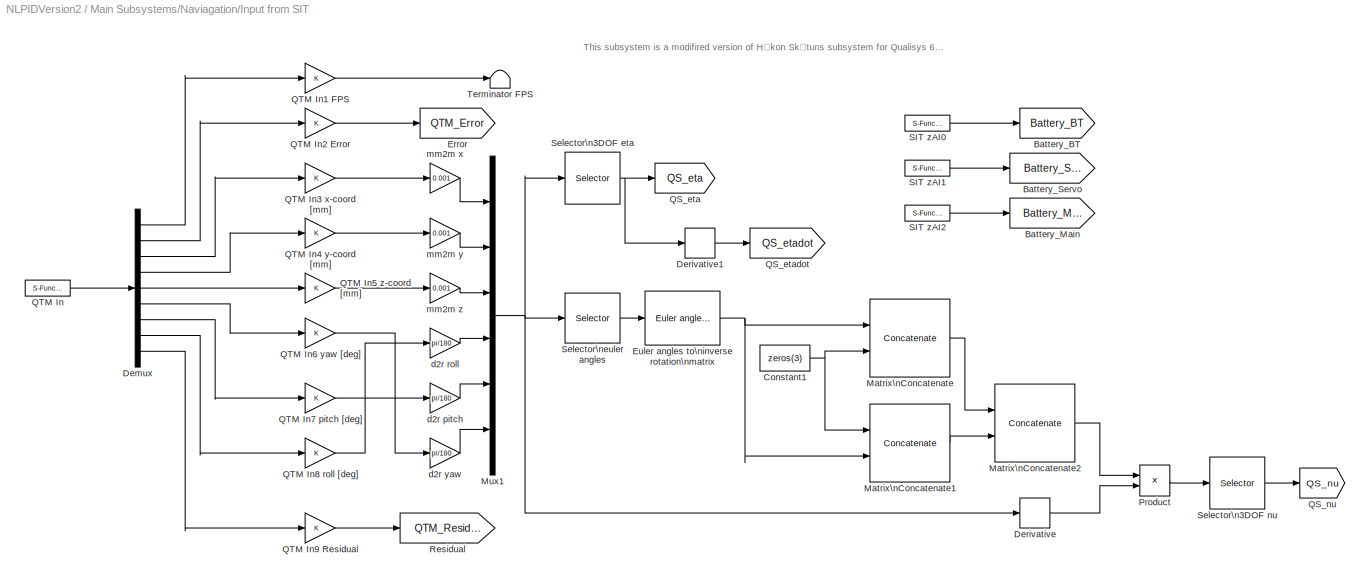
BLOCK [SubSystem] Main Subsystems/Naviagation/Input from SIT
  FunctionWithSeparateData = off
  MaskHideContents = off
  MinAlgLoopOccurrences = off
  Opaque = off
  Ports = []
  PropExecContextOutsideSubsystem = off
  RTWSystemCode = Auto
  RequestExecContextInheritance = off
BLOCK [Goto] Main Subsystems/Naviagation/Input from SIT/Battery_BT
  GotoTag = Battery_BT
  TagVisibility = global
BLOCK [Goto] Main Subsystems/Naviagation/Input from SIT/Battery_Main
  GotoTag = Battery_Main
  TagVisibility = global
BLOCK [Goto] Main Subsystems/Naviagation/Input from SIT/Battery_Servo
  GotoTag = Battery_Servo
  TagVisibility = global
BLOCK [Constant] Main Subsystems/Naviagation/Input from SIT/Constant1
  Value = zeros(3)
BLOCK [Demux] Main Subsystems/Naviagation/Input from SIT/Demux
  DisplayOption = bar
  Outputs = 9
  Ports = [1, 9]
BLOCK [Derivative] Main Subsystems/Naviagation/Input from SIT/Derivative
BLOCK [Derivative] Main Subsystems/Naviagation/Input from SIT/Derivative1
BLOCK [Goto] Main Subsystems/Naviagation/Input from SIT/Error
  GotoTag = QTM_Error
  TagVisibility = global
BLOCK [Reference] Main Subsystems/Naviagation/Input from SIT/Euler angles to\ninverse rotation\nmatrix  REF=marine_gnc/Models/ Kinematics/Euler angles to\ninverse rotation\nmatrix  (lib defined in mdl_10d96c221ba8, mdl_45f1105420c6)
  FunctionWithSeparateData = off
  Ports = [1, 1]
  RTWMemSecDataConstants = Inherit from model
  RTWMemSecDataInternal = Inherit from model
  RTWMemSecDataParameters = Inherit from model
  RTWMemSecFuncExecute = Inherit from model
  RTWMemSecFuncInitTerm = Inherit from model
  ShowPortLabels = FromPortIcon
  SourceBlock = marine_gnc/Models/ Kinematics/Euler angles to\ninverse rotation\nmatrix
  SourceType = Rbn
  SystemSampleTime = -1
BLOCK [Concatenate] Main Subsystems/Naviagation/Input from SIT/Matrix\nConcatenate
  Mode = Multidimensional array
  Ports = [2, 1]
BLOCK [Concatenate] Main Subsystems/Naviagation/Input from SIT/Matrix\nConcatenate1
  Mode = Multidimensional array
  Ports = [2, 1]
BLOCK [Concatenate] Main Subsystems/Naviagation/Input from SIT/Matrix\nConcatenate2
  ConcatenateDimension = 2
  Mode = Multidimensional array
  Ports = [2, 1]
BLOCK [Mux] Main Subsystems/Naviagation/Input from SIT/Mux1
  DisplayOption = bar
  Inputs = 6
  Ports = [6, 1]
BLOCK [Product] Main Subsystems/Naviagation/Input from SIT/Product
  InputSameDT = off
  Multiplication = Matrix(*)
  OutDataTypeMode = Inherit via internal rule
  OutDataTypeStr = Inherit: Inherit via internal rule
  Ports = [2, 1]
  SaturateOnIntegerOverflow = off
BLOCK [Goto] Main Subsystems/Naviagation/Input from SIT/QS_eta
  GotoTag = QS_eta
  TagVisibility = global
BLOCK [Goto] Main Subsystems/Naviagation/Input from SIT/QS_etadot
  GotoTag = QS_etadot
  TagVisibility = global
BLOCK [Goto] Main Subsystems/Naviagation/Input from SIT/QS_nu
  GotoTag = QS_nu
  TagVisibility = global
BLOCK [S-Function] Main Subsystems/Naviagation/Input from SIT/QTM In
  CopyFcn = NI_SIT_IO_callbacks(1);
  DeleteFcn = NI_SIT_IO_callbacks(2);
  EnableBusSupport = off
  FunctionName = NI_SIT_IO
  MaskCallbackString = NI_SIT_IO_callbacks(3);|||NI_SIT_IO_callbacks(4);||
  MaskDescription = Use this inport on any level of nested subsystems to allow the LabVIEW Simulation Interface Toolkit to map hardware to it.
  MaskDisplay = patch([-x x], [-y y], [.90980 .81960 .32156]);\nplot([0 -x x 0], [rad -y y rad]);\nfprintf('SIT%d', portnum);
  MaskEnableString = on,on,on,on,on,on
  MaskIconFrame = off
  MaskIconOpaque = on
  MaskIconRotate = none
  MaskIconUnits = autoscale
  MaskInitialization = NI_SIT_IO_init;
  MaskPortRotate = default
  MaskPromptString = Port number:|Port dimensions (-1 for dynamically sized):|Sample time (-1 for inherited):|Data type:|Signal type:|Block type:
  MaskStyleString = edit,edit,edit,popup(auto|double|single|int8|uint8|int16|uint16|int32|uint32|boolean),popup(auto|real|complex),edit
  MaskTabNameString = Parameters,Parameters,Parameters,Parameters,Parameters,Parameters
  MaskToolTipString = on,on,on,on,on,on
  MaskTunableValueString = off,off,off,off,off,off
  MaskType = SIT Inport
  MaskValueString = 1|9|-1|auto|auto|1
  MaskVarAliasString = ,,,,,
  MaskVariables = portnum=@1;width=@2;stime=@3;dtype=@4;stype=@5;btype=@6;
  MaskVisibilityString = on,on,on,on,on,off
  Parameters = width dtype portnum stime stype btype
  Ports = [0, 1]
  Priority = 1
BLOCK [Gain] Main Subsystems/Naviagation/Input from SIT/QTM In1 FPS
  OutDataType = fixdt(1, 16)
  OutDataTypeMode = Inherit via internal rule
  OutDataTypeStr = Inherit: Inherit via internal rule
  OutScaling = 2^0
  ParamDataTypeStr = Inherit: Inherit via internal rule
  ParameterDataType = fixdt(1, 16)
  ParameterDataTypeMode = Inherit via internal rule
  ParameterScaling = 2^0
  SaturateOnIntegerOverflow = off
BLOCK [Gain] Main Subsystems/Naviagation/Input from SIT/QTM In2 Error
  OutDataType = fixdt(1, 16)
  OutDataTypeMode = Inherit via internal rule
  OutDataTypeStr = Inherit: Inherit via internal rule
  OutScaling = 2^0
  ParamDataTypeStr = Inherit: Inherit via internal rule
  ParameterDataType = fixdt(1, 16)
  ParameterDataTypeMode = Inherit via internal rule
  ParameterScaling = 2^0
  SaturateOnIntegerOverflow = off
BLOCK [Gain] Main Subsystems/Naviagation/Input from SIT/QTM In3 x-coord [mm]
  OutDataType = fixdt(1, 16)
  OutDataTypeMode = Inherit via internal rule
  OutDataTypeStr = Inherit: Inherit via internal rule
  OutScaling = 2^0
  ParamDataTypeStr = Inherit: Inherit via internal rule
  ParameterDataType = fixdt(1, 16)
  ParameterDataTypeMode = Inherit via internal rule
  ParameterScaling = 2^0
  SaturateOnIntegerOverflow = off
BLOCK [Gain] Main Subsystems/Naviagation/Input from SIT/QTM In4 y-coord [mm]
  OutDataType = fixdt(1, 16)
  OutDataTypeMode = Inherit via internal rule
  OutDataTypeStr = Inherit: Inherit via internal rule
  OutScaling = 2^0
  ParamDataTypeStr = Inherit: Inherit via internal rule
  ParameterDataType = fixdt(1, 16)
  ParameterDataTypeMode = Inherit via internal rule
  ParameterScaling = 2^0
  SaturateOnIntegerOverflow = off
BLOCK [Gain] Main Subsystems/Naviagation/Input from SIT/QTM In5 z-coord [mm]
  OutDataType = fixdt(1, 16)
  OutDataTypeMode = Inherit via internal rule
  OutDataTypeStr = Inherit: Inherit via internal rule
  OutScaling = 2^0
  ParamDataTypeStr = Inherit: Inherit via internal rule
  ParameterDataType = fixdt(1, 16)
  ParameterDataTypeMode = Inherit via internal rule
  ParameterScaling = 2^0
  SaturateOnIntegerOverflow = off
BLOCK [Gain] Main Subsystems/Naviagation/Input from SIT/QTM In6 yaw [deg]
  OutDataType = fixdt(1, 16)
  OutDataTypeMode = Inherit via internal rule
  OutDataTypeStr = Inherit: Inherit via internal rule
  OutScaling = 2^0
  ParamDataTypeStr = Inherit: Inherit via internal rule
  ParameterDataType = fixdt(1, 16)
  ParameterDataTypeMode = Inherit via internal rule
  ParameterScaling = 2^0
  SaturateOnIntegerOverflow = off
BLOCK [Gain] Main Subsystems/Naviagation/Input from SIT/QTM In7 pitch [deg]
  OutDataType = fixdt(1, 16)
  OutDataTypeMode = Inherit via internal rule
  OutDataTypeStr = Inherit: Inherit via internal rule
  OutScaling = 2^0
  ParamDataTypeStr = Inherit: Inherit via internal rule
  ParameterDataType = fixdt(1, 16)
  ParameterDataTypeMode = Inherit via internal rule
  ParameterScaling = 2^0
  SaturateOnIntegerOverflow = off
BLOCK [Gain] Main Subsystems/Naviagation/Input from SIT/QTM In8 roll [deg]
  OutDataType = fixdt(1, 16)
  OutDataTypeMode = Inherit via internal rule
  OutDataTypeStr = Inherit: Inherit via internal rule
  OutScaling = 2^0
  ParamDataTypeStr = Inherit: Inherit via internal rule
  ParameterDataType = fixdt(1, 16)
  ParameterDataTypeMode = Inherit via internal rule
  ParameterScaling = 2^0
  SaturateOnIntegerOverflow = off
BLOCK [Gain] Main Subsystems/Naviagation/Input from SIT/QTM In9 Residual
  OutDataType = fixdt(1, 16)
  OutDataTypeMode = Inherit via internal rule
  OutDataTypeStr = Inherit: Inherit via internal rule
  OutScaling = 2^0
  ParamDataTypeStr = Inherit: Inherit via internal rule
  ParameterDataType = fixdt(1, 16)
  ParameterDataTypeMode = Inherit via internal rule
  ParameterScaling = 2^0
  SaturateOnIntegerOverflow = off
BLOCK [Goto] Main Subsystems/Naviagation/Input from SIT/Residual
  GotoTag = QTM_Residual
  TagVisibility = global
BLOCK [S-Function] Main Subsystems/Naviagation/Input from SIT/SIT zAI0
  CopyFcn = NI_SIT_IO_callbacks(1);
  DeleteFcn = NI_SIT_IO_callbacks(2);
  EnableBusSupport = off
  FunctionName = NI_SIT_IO
  MaskCallbackString = NI_SIT_IO_callbacks(3);|||NI_SIT_IO_callbacks(4);||
  MaskDescription = Use this inport on any level of nested subsystems to allow the LabVIEW Simulation Interface Toolkit to map hardware to it.
  MaskDisplay = patch([-x x], [-y y], [.90980 .81960 .32156]);\nplot([0 -x x 0], [rad -y y rad]);\nfprintf('SIT%d', portnum);
  MaskEnableString = on,on,on,on,on,on
  MaskIconFrame = off
  MaskIconOpaque = on
  MaskIconRotate = none
  MaskIconUnits = autoscale
  MaskInitialization = NI_SIT_IO_init;
  MaskPortRotate = default
  MaskPromptString = Port number:|Port dimensions (-1 for dynamically sized):|Sample time (-1 for inherited):|Data type:|Signal type:|Block type:
  MaskStyleString = edit,edit,edit,popup(auto|double|single|int8|uint8|int16|uint16|int32|uint32|boolean),popup(auto|real|complex),edit
  MaskTabNameString = Parameters,Parameters,Parameters,Parameters,Parameters,Parameters
  MaskToolTipString = on,on,on,on,on,on
  MaskTunableValueString = off,off,off,off,off,off
  MaskType = SIT Inport
  MaskValueString = 2|-1|-1|auto|auto|1
  MaskVarAliasString = ,,,,,
  MaskVariables = portnum=@1;width=@2;stime=@3;dtype=@4;stype=@5;btype=@6;
  MaskVisibilityString = on,on,on,on,on,off
  Parameters = width dtype portnum stime stype btype
  Ports = [0, 1]
  Priority = 2
BLOCK [S-Function] Main Subsystems/Naviagation/Input from SIT/SIT zAI1
  CopyFcn = NI_SIT_IO_callbacks(1);
  DeleteFcn = NI_SIT_IO_callbacks(2);
  EnableBusSupport = off
  FunctionName = NI_SIT_IO
  MaskCallbackString = NI_SIT_IO_callbacks(3);|||NI_SIT_IO_callbacks(4);||
  MaskDescription = Use this inport on any level of nested subsystems to allow the LabVIEW Simulation Interface Toolkit to map hardware to it.
  MaskDisplay = patch([-x x], [-y y], [.90980 .81960 .32156]);\nplot([0 -x x 0], [rad -y y rad]);\nfprintf('SIT%d', portnum);
  MaskEnableString = on,on,on,on,on,on
  MaskIconFrame = off
  MaskIconOpaque = on
  MaskIconRotate = none
  MaskIconUnits = autoscale
  MaskInitialization = NI_SIT_IO_init;
  MaskPortRotate = default
  MaskPromptString = Port number:|Port dimensions (-1 for dynamically sized):|Sample time (-1 for inherited):|Data type:|Signal type:|Block type:
  MaskStyleString = edit,edit,edit,popup(auto|double|single|int8|uint8|int16|uint16|int32|uint32|boolean),popup(auto|real|complex),edit
  MaskTabNameString = Parameters,Parameters,Parameters,Parameters,Parameters,Parameters
  MaskToolTipString = on,on,on,on,on,on
  MaskTunableValueString = off,off,off,off,off,off
  MaskType = SIT Inport
  MaskValueString = 3|-1|-1|auto|auto|1
  MaskVarAliasString = ,,,,,
  MaskVariables = portnum=@1;width=@2;stime=@3;dtype=@4;stype=@5;btype=@6;
  MaskVisibilityString = on,on,on,on,on,off
  Parameters = width dtype portnum stime stype btype
  Ports = [0, 1]
  Priority = 3
BLOCK [S-Function] Main Subsystems/Naviagation/Input from SIT/SIT zAI2
  CopyFcn = NI_SIT_IO_callbacks(1);
  DeleteFcn = NI_SIT_IO_callbacks(2);
  EnableBusSupport = off
  FunctionName = NI_SIT_IO
  MaskCallbackString = NI_SIT_IO_callbacks(3);|||NI_SIT_IO_callbacks(4);||
  MaskDescription = Use this inport on any level of nested subsystems to allow the LabVIEW Simulation Interface Toolkit to map hardware to it.
  MaskDisplay = patch([-x x], [-y y], [.90980 .81960 .32156]);\nplot([0 -x x 0], [rad -y y rad]);\nfprintf('SIT%d', portnum);
  MaskEnableString = on,on,on,on,on,on
  MaskIconFrame = off
  MaskIconOpaque = on
  MaskIconRotate = none
  MaskIconUnits = autoscale
  MaskInitialization = NI_SIT_IO_init;
  MaskPortRotate = default
  MaskPromptString = Port number:|Port dimensions (-1 for dynamically sized):|Sample time (-1 for inherited):|Data type:|Signal type:|Block type:
  MaskStyleString = edit,edit,edit,popup(auto|double|single|int8|uint8|int16|uint16|int32|uint32|boolean),popup(auto|real|complex),edit
  MaskTabNameString = Parameters,Parameters,Parameters,Parameters,Parameters,Parameters
  MaskToolTipString = on,on,on,on,on,on
  MaskTunableValueString = off,off,off,off,off,off
  MaskType = SIT Inport
  MaskValueString = 4|-1|-1|auto|auto|1
  MaskVarAliasString = ,,,,,
  MaskVariables = portnum=@1;width=@2;stime=@3;dtype=@4;stype=@5;btype=@6;
  MaskVisibilityString = on,on,on,on,on,off
  Parameters = width dtype portnum stime stype btype
  Ports = [0, 1]
  Priority = 4
BLOCK [Selector] Main Subsystems/Naviagation/Input from SIT/Selector\n3DOF eta
  IndexOptions = Index vector (dialog)
  Indices = [1 2 6]
  InputPortWidth = 6
  OutputSizes = 1
  Ports = [1, 1]
BLOCK [Selector] Main Subsystems/Naviagation/Input from SIT/Selector\n3DOF nu
  IndexOptions = Index vector (dialog)
  Indices = [1 2 6]
  InputPortWidth = 6
  OutputSizes = 1
  Ports = [1, 1]
BLOCK [Selector] Main Subsystems/Naviagation/Input from SIT/Selector\neuler angles
  IndexOptions = Index vector (dialog)
  Indices = [4 5 6]
  InputPortWidth = 6
  OutputSizes = 1
  Ports = [1, 1]
BLOCK [Terminator] Main Subsystems/Naviagation/Input from SIT/Terminator FPS
BLOCK [Gain] Main Subsystems/Naviagation/Input from SIT/d2r pitch
  Gain = pi/180
  OutDataType = fixdt(1, 16)
  OutDataTypeMode = Inherit via internal rule
  OutDataTypeStr = Inherit: Inherit via internal rule
  OutScaling = 2^0
  ParamDataTypeStr = Inherit: Inherit via internal rule
  ParameterDataType = fixdt(1, 16)
  ParameterDataTypeMode = Inherit via internal rule
  ParameterScaling = 2^0
  SaturateOnIntegerOverflow = off
BLOCK [Gain] Main Subsystems/Naviagation/Input from SIT/d2r roll
  Gain = pi/180
  OutDataType = fixdt(1, 16)
  OutDataTypeMode = Inherit via internal rule
  OutDataTypeStr = Inherit: Inherit via internal rule
  OutScaling = 2^0
  ParamDataTypeStr = Inherit: Inherit via internal rule
  ParameterDataType = fixdt(1, 16)
  ParameterDataTypeMode = Inherit via internal rule
  ParameterScaling = 2^0
  SaturateOnIntegerOverflow = off
BLOCK [Gain] Main Subsystems/Naviagation/Input from SIT/d2r yaw
  Gain = pi/180
  OutDataType = fixdt(1, 16)
  OutDataTypeMode = Inherit via internal rule
  OutDataTypeStr = Inherit: Inherit via internal rule
  OutScaling = 2^0
  ParamDataTypeStr = Inherit: Inherit via internal rule
  ParameterDataType = fixdt(1, 16)
  ParameterDataTypeMode = Inherit via internal rule
  ParameterScaling = 2^0
  SaturateOnIntegerOverflow = off
BLOCK [Gain] Main Subsystems/Naviagation/Input from SIT/mm2m x
  Gain = 0.001
  OutDataTypeMode = Inherit via internal rule
  OutDataTypeStr = Inherit: Inherit via internal rule
  ParamDataTypeStr = Inherit: Inherit via internal rule
  ParameterDataTypeMode = Inherit via internal rule
  SaturateOnIntegerOverflow = off
BLOCK [Gain] Main Subsystems/Naviagation/Input from SIT/mm2m y
  Gain = 0.001
  OutDataTypeMode = Inherit via internal rule
  OutDataTypeStr = Inherit: Inherit via internal rule
  ParamDataTypeStr = Inherit: Inherit via internal rule
  ParameterDataTypeMode = Inherit via internal rule
  SaturateOnIntegerOverflow = off
BLOCK [Gain] Main Subsystems/Naviagation/Input from SIT/mm2m z
  Gain = 0.001
  OutDataTypeMode = Inherit via internal rule
  OutDataTypeStr = Inherit: Inherit via internal rule
  ParamDataTypeStr = Inherit: Inherit via internal rule
  ParameterDataTypeMode = Inherit via internal rule
  SaturateOnIntegerOverflow = off
BLOCK [SubSystem] Main Subsystems/Naviagation/Navigation Switch
  FunctionWithSeparateData = off
  MaskHideContents = off
  MinAlgLoopOccurrences = off
  Opaque = off
  Ports = []
  PropExecContextOutsideSubsystem = off
  RTWSystemCode = Auto
  RequestExecContextInheritance = off
BLOCK [From] Main Subsystems/Naviagation/Navigation Switch/Control_Input_Selector
  GotoTag = controlInputSelector
  TagVisibility = global
BLOCK [From] Main Subsystems/Naviagation/Navigation Switch/LS eta
  GotoTag = LS_eta
  TagVisibility = global
BLOCK [From] Main Subsystems/Naviagation/Navigation Switch/LS etadot
  GotoTag = LS_etadot
  TagVisibility = global
BLOCK [From] Main Subsystems/Naviagation/Navigation Switch/LS nu
  GotoTag = LS_nu
  TagVisibility = global
BLOCK [From] Main Subsystems/Naviagation/Navigation Switch/QS eta
  GotoTag = QS_eta
  TagVisibility = global
BLOCK [From] Main Subsystems/Naviagation/Navigation Switch/QS etadot
  GotoTag = QS_etadot
  TagVisibility = global
BLOCK [From] Main Subsystems/Naviagation/Navigation Switch/QS nu
  GotoTag = QS_nu
  TagVisibility = global
BLOCK [Goto] Main Subsystems/Naviagation/Navigation Switch/eta
  GotoTag = eta
  TagVisibility = global
BLOCK [MultiPortSwitch] Main Subsystems/Naviagation/Navigation Switch/eta\nSwitch
  InputSameDT = off
  Inputs = 2
  Ports = [3, 1]
  SaturateOnIntegerOverflow = off
  zeroidx = on
BLOCK [Goto] Main Subsystems/Naviagation/Navigation Switch/etadot
  GotoTag = etadot
  TagVisibility = global
BLOCK [MultiPortSwitch] Main Subsystems/Naviagation/Navigation Switch/etadot\nSwitch
  InputSameDT = off
  Inputs = 2
  Ports = [3, 1]
  SaturateOnIntegerOverflow = off
  zeroidx = on
BLOCK [Goto] Main Subsystems/Naviagation/Navigation Switch/nu
  GotoTag = nu
  TagVisibility = global
BLOCK [MultiPortSwitch] Main Subsystems/Naviagation/Navigation Switch/nu\nSwitch
  InputSameDT = off
  Inputs = 2
  Ports = [3, 1]
  SaturateOnIntegerOverflow = off
  zeroidx = on
BLOCK [SubSystem] Main Subsystems/Plant
  FunctionWithSeparateData = off
  MaskHideContents = off
  MinAlgLoopOccurrences = off
  Opaque = off
  Ports = []
  PropExecContextOutsideSubsystem = off
  RTWSystemCode = Auto
  RequestExecContextInheritance = off
BLOCK [SubSystem] Main Subsystems/Plant/CSE1 actuator
  FunctionWithSeparateData = off
  MaskHideContents = off
  MinAlgLoopOccurrences = off
  Opaque = off
  Ports = [1, 0, 1]
  PropExecContextOutsideSubsystem = off
  RTWSystemCode = Auto
  RequestExecContextInheritance = off
BLOCK [SubSystem] Main Subsystems/Plant/CSE1 actuator/Bow Thruster
  FunctionWithSeparateData = off
  MaskHideContents = off
  MinAlgLoopOccurrences = off
  Opaque = off
  Ports = [2]
  PropExecContextOutsideSubsystem = off
  RTWSystemCode = Auto
  RequestExecContextInheritance = off
BLOCK [Sum] Main Subsystems/Plant/CSE1 actuator/Bow Thruster/Add
  InputSameDT = off
  Inputs = +++
  OutDataTypeMode = Inherit via internal rule
  OutDataTypeStr = Inherit: Inherit via internal rule
  Ports = [3, 1]
  SaturateOnIntegerOverflow = off
BLOCK [Gain] Main Subsystems/Plant/CSE1 actuator/Bow Thruster/BT_D_Gain1
  Gain = 0.02
  OutDataTypeMode = Inherit via internal rule
  OutDataTypeStr = Inherit: Inherit via internal rule
  ParamDataTypeStr = Inherit: Inherit via internal rule
  ParameterDataTypeMode = Inherit via internal rule
  SaturateOnIntegerOverflow = off
BLOCK [Gain] Main Subsystems/Plant/CSE1 actuator/Bow Thruster/BT_D_Gain2
  Gain = 0.02
  OutDataTypeMode = Inherit via internal rule
  OutDataTypeStr = Inherit: Inherit via internal rule
  ParamDataTypeStr = Inherit: Inherit via internal rule
  ParameterDataTypeMode = Inherit via internal rule
  SaturateOnIntegerOverflow = off
BLOCK [Gain] Main Subsystems/Plant/CSE1 actuator/Bow Thruster/BT_L_Gain1
  Gain = 0.02
  OutDataTypeMode = Inherit via internal rule
  OutDataTypeStr = Inherit: Inherit via internal rule
  ParamDataTypeStr = Inherit: Inherit via internal rule
  ParameterDataTypeMode = Inherit via internal rule
  SaturateOnIntegerOverflow = off
BLOCK [Gain] Main Subsystems/Plant/CSE1 actuator/Bow Thruster/BT_L_Gain2
  Gain = -0.02
  OutDataTypeMode = Inherit via internal rule
  OutDataTypeStr = Inherit: Inherit via internal rule
  ParamDataTypeStr = Inherit: Inherit via internal rule
  ParameterDataTypeMode = Inherit via internal rule
  SaturateOnIntegerOverflow = off
BLOCK [Constant] Main Subsystems/Plant/CSE1 actuator/Bow Thruster/BT_Power_Offset1
  Value = 0.05
BLOCK [Constant] Main Subsystems/Plant/CSE1 actuator/Bow Thruster/BT_Power_Offset2
  Value = 0.05
BLOCK [Constant] Main Subsystems/Plant/CSE1 actuator/Bow Thruster/BT_Power_Offset3
  Value = 0.05
BLOCK [Inport] Main Subsystems/Plant/CSE1 actuator/Bow Thruster/Bow Thruster Direction u_5
  IconDisplay = Port number
BLOCK [Inport] Main Subsystems/Plant/CSE1 actuator/Bow Thruster/Bow Thruster Power
  IconDisplay = Port number
  Port = 2
BLOCK [Constant] Main Subsystems/Plant/CSE1 actuator/Bow Thruster/Constant
  OutDataType = fixdt(1, 16)
  OutScaling = 2^0
  Value = 0
BLOCK [Constant] Main Subsystems/Plant/CSE1 actuator/Bow Thruster/Constant1
  OutDataType = fixdt(1, 16)
  OutScaling = 2^0
  Value = 0
BLOCK [Gain] Main Subsystems/Plant/CSE1 actuator/Bow Thruster/Neg
  Gain = -1
  OutDataType = fixdt(1, 16)
  OutDataTypeMode = Inherit via internal rule
  OutDataTypeStr = Inherit: Inherit via internal rule
  OutScaling = 2^0
  ParamDataTypeStr = Inherit: Inherit via internal rule
  ParameterDataType = fixdt(1, 16)
  ParameterDataTypeMode = Inherit via internal rule
  ParameterScaling = 2^0
  SaturateOnIntegerOverflow = off
BLOCK [S-Function] Main Subsystems/Plant/CSE1 actuator/Bow Thruster/SIT PWM0 BT
  CopyFcn = NI_SIT_IO_callbacks(1);
  DeleteFcn = NI_SIT_IO_callbacks(2);
  EnableBusSupport = off
  FunctionName = NI_SIT_IO
  MaskCallbackString = NI_SIT_IO_callbacks(3);|||NI_SIT_IO_callbacks(4);||
  MaskDescription = Use this outport on any level of nested subsystems to allow the LabVIEW Simulation Interface Toolkit to map hardware to it.
  MaskDisplay = patch([-x x], [-y y], [.90980 .81960 .32156]);\nplot([0 -x x 0], [rad -y y rad]);\nfprintf('SIT%d', portnum);
  MaskEnableString = on,on,on,on,on,on
  MaskIconFrame = off
  MaskIconOpaque = on
  MaskIconRotate = none
  MaskIconUnits = autoscale
  MaskInitialization = NI_SIT_IO_init;
  MaskPortRotate = default
  MaskPromptString = Port number:|Port dimensions (-1 for dynamically sized):|Sample time (-1 for inherited):|Data type:|Signal type:|Block type:
  MaskStyleString = edit,edit,edit,popup(auto|double|single|int8|uint8|int16|uint16|int32|uint32|boolean),popup(auto|real|complex),edit
  MaskTabNameString = Parameters,Parameters,Parameters,Parameters,Parameters,Parameters
  MaskToolTipString = on,on,on,on,on,on
  MaskTunableValueString = off,off,off,off,off,off
  MaskType = SIT Outport
  MaskValueString = 1|-1|-1|auto|auto|0
  MaskVarAliasString = ,,,,,
  MaskVariables = portnum=@1;width=@2;stime=@3;dtype=@4;stype=@5;btype=@6;
  MaskVisibilityString = on,on,on,on,on,off
  Parameters = width dtype portnum stime stype btype
  Ports = [1]
  Priority = 1
BLOCK [Reference] Main Subsystems/Plant/CSE1 actuator/Bow Thruster/Saturation\nDynamic  REF=simulink/Discontinuities/Saturation\nDynamic
  DoSatur = off
  FunctionWithSeparateData = off
  LockScale = off
  OutDataType = fixdt(1, 16)
  OutDataTypeStr = Inherit: Same as second input
  OutMax = []
  OutMin = []
  OutScaling = 2^-10
  OutputDataTypeScalingMode = Same as second input
  Ports = [3, 1]
  RTWMemSecDataConstants = Inherit from model
  RTWMemSecDataInternal = Inherit from model
  RTWMemSecDataParameters = Inherit from model
  RTWMemSecFuncExecute = Inherit from model
  RTWMemSecFuncInitTerm = Inherit from model
  RndMeth = Floor
  ShowPortLabels = FromPortIcon
  SourceBlock = simulink/Discontinuities/Saturation\nDynamic
  SourceType = Saturation Dynamic
  SystemSampleTime = -1
BLOCK [Reference] Main Subsystems/Plant/CSE1 actuator/Bow Thruster/Saturation\nDynamic1  REF=simulink/Discontinuities/Saturation\nDynamic
  DoSatur = off
  FunctionWithSeparateData = off
  LockScale = off
  OutDataType = fixdt(1, 16)
  OutDataTypeStr = Inherit: Same as second input
  OutMax = []
  OutMin = []
  OutScaling = 2^-10
  OutputDataTypeScalingMode = Same as second input
  Ports = [3, 1]
  RTWMemSecDataConstants = Inherit from model
  RTWMemSecDataInternal = Inherit from model
  RTWMemSecDataParameters = Inherit from model
  RTWMemSecFuncExecute = Inherit from model
  RTWMemSecFuncInitTerm = Inherit from model
  RndMeth = Floor
  ShowPortLabels = FromPortIcon
  SourceBlock = simulink/Discontinuities/Saturation\nDynamic
  SourceType = Saturation Dynamic
  SystemSampleTime = -1
BLOCK [Reference] Main Subsystems/Plant/CSE1 actuator/Bow Thruster/Saturation\nDynamic2  REF=simulink/Discontinuities/Saturation\nDynamic
  DoSatur = off
  FunctionWithSeparateData = off
  LockScale = off
  OutDataType = fixdt(1, 16)
  OutDataTypeStr = Inherit: Same as second input
  OutMax = []
  OutMin = []
  OutScaling = 2^-10
  OutputDataTypeScalingMode = Same as second input
  Ports = [3, 1]
  RTWMemSecDataConstants = Inherit from model
  RTWMemSecDataInternal = Inherit from model
  RTWMemSecDataParameters = Inherit from model
  RTWMemSecFuncExecute = Inherit from model
  RTWMemSecFuncInitTerm = Inherit from model
  RndMeth = Floor
  ShowPortLabels = FromPortIcon
  SourceBlock = simulink/Discontinuities/Saturation\nDynamic
  SourceType = Saturation Dynamic
  SystemSampleTime = -1
BLOCK [Sum] Main Subsystems/Plant/CSE1 actuator/Bow Thruster/Sum1
  IconShape = round
  InputSameDT = off
  Inputs = |++
  OutDataTypeMode = Inherit via internal rule
  OutDataTypeStr = Inherit: Inherit via internal rule
  Ports = [2, 1]
  SaturateOnIntegerOverflow = off
BLOCK [Sum] Main Subsystems/Plant/CSE1 actuator/Bow Thruster/Sum2
  IconShape = round
  InputSameDT = off
  Inputs = |++
  OutDataTypeMode = Inherit via internal rule
  OutDataTypeStr = Inherit: Inherit via internal rule
  Ports = [2, 1]
  SaturateOnIntegerOverflow = off
BLOCK [Terminator] Main Subsystems/Plant/CSE1 actuator/Bow Thruster/Terminator
BLOCK [Terminator] Main Subsystems/Plant/CSE1 actuator/Bow Thruster/Terminator1
BLOCK [Demux] Main Subsystems/Plant/CSE1 actuator/Demux
  DisplayOption = bar
  Outputs = 7
  Ports = [1, 7]
BLOCK [EnablePort] Main Subsystems/Plant/CSE1 actuator/Enable
  Ports = []
  StatesWhenEnabling = reset
BLOCK [Inport] Main Subsystems/Plant/CSE1 actuator/Thurster setting
  IconDisplay = Port number
BLOCK [SubSystem] Main Subsystems/Plant/CSE1 actuator/Voith Schneider Propeller 
  FunctionWithSeparateData = off
  MaskHideContents = off
  MinAlgLoopOccurrences = off
  Opaque = off
  Ports = [5]
  PropExecContextOutsideSubsystem = off
  RTWSystemCode = Auto
  RequestExecContextInheritance = off
BLOCK [Gain] Main Subsystems/Plant/CSE1 actuator/Voith Schneider Propeller /-x
  Gain = -1
  OutDataTypeMode = Inherit via internal rule
  OutDataTypeStr = Inherit: Inherit via internal rule
  ParamDataTypeStr = Inherit: Inherit via internal rule
  ParameterDataTypeMode = Inherit via internal rule
  SaturateOnIntegerOverflow = off
BLOCK [Gain] Main Subsystems/Plant/CSE1 actuator/Voith Schneider Propeller /-y
  Gain = -1
  OutDataTypeMode = Inherit via internal rule
  OutDataTypeStr = Inherit: Inherit via internal rule
  ParamDataTypeStr = Inherit: Inherit via internal rule
  ParameterDataTypeMode = Inherit via internal rule
  SaturateOnIntegerOverflow = off
BLOCK [Inport] Main Subsystems/Plant/CSE1 actuator/Voith Schneider Propeller /Port VSP x u_2
  IconDisplay = Port number
  Port = 2
BLOCK [Inport] Main Subsystems/Plant/CSE1 actuator/Voith Schneider Propeller /Port VSP y u_1
  IconDisplay = Port number
BLOCK [Product] Main Subsystems/Plant/CSE1 actuator/Voith Schneider Propeller /Product1
  InputSameDT = off
  OutDataTypeMode = Inherit via internal rule
  OutDataTypeStr = Inherit: Inherit via internal rule
  Ports = [2, 1]
  SaturateOnIntegerOverflow = off
BLOCK [Product] Main Subsystems/Plant/CSE1 actuator/Voith Schneider Propeller /Product2
  InputSameDT = off
  OutDataTypeMode = Inherit via internal rule
  OutDataTypeStr = Inherit: Inherit via internal rule
  Ports = [2, 1]
  SaturateOnIntegerOverflow = off
BLOCK [Product] Main Subsystems/Plant/CSE1 actuator/Voith Schneider Propeller /Product3
  InputSameDT = off
  OutDataTypeMode = Inherit via internal rule
  OutDataTypeStr = Inherit: Inherit via internal rule
  Ports = [2, 1]
  SaturateOnIntegerOverflow = off
BLOCK [Product] Main Subsystems/Plant/CSE1 actuator/Voith Schneider Propeller /Product4
  InputSameDT = off
  OutDataTypeMode = Inherit via internal rule
  OutDataTypeStr = Inherit: Inherit via internal rule
  Ports = [2, 1]
  SaturateOnIntegerOverflow = off
BLOCK [S-Function] Main Subsystems/Plant/CSE1 actuator/Voith Schneider Propeller /SIT PWM1 VSPS Port
  CopyFcn = NI_SIT_IO_callbacks(1);
  DeleteFcn = NI_SIT_IO_callbacks(2);
  EnableBusSupport = off
  FunctionName = NI_SIT_IO
  MaskCallbackString = NI_SIT_IO_callbacks(3);|||NI_SIT_IO_callbacks(4);||
  MaskDescription = Use this outport on any level of nested subsystems to allow the LabVIEW Simulation Interface Toolkit to map hardware to it.
  MaskDisplay = patch([-x x], [-y y], [.90980 .81960 .32156]);\nplot([0 -x x 0], [rad -y y rad]);\nfprintf('SIT%d', portnum);
  MaskEnableString = on,on,on,on,on,on
  MaskIconFrame = off
  MaskIconOpaque = on
  MaskIconRotate = none
  MaskIconUnits = autoscale
  MaskInitialization = NI_SIT_IO_init;
  MaskPortRotate = default
  MaskPromptString = Port number:|Port dimensions (-1 for dynamically sized):|Sample time (-1 for inherited):|Data type:|Signal type:|Block type:
  MaskStyleString = edit,edit,edit,popup(auto|double|single|int8|uint8|int16|uint16|int32|uint32|boolean),popup(auto|real|complex),edit
  MaskTabNameString = Parameters,Parameters,Parameters,Parameters,Parameters,Parameters
  MaskToolTipString = on,on,on,on,on,on
  MaskTunableValueString = off,off,off,off,off,off
  MaskType = SIT Outport
  MaskValueString = 5|-1|-1|auto|auto|0
  MaskVarAliasString = ,,,,,
  MaskVariables = portnum=@1;width=@2;stime=@3;dtype=@4;stype=@5;btype=@6;
  MaskVisibilityString = on,on,on,on,on,off
  Parameters = width dtype portnum stime stype btype
  Ports = [1]
  Priority = 5
BLOCK [S-Function] Main Subsystems/Plant/CSE1 actuator/Voith Schneider Propeller /SIT PWM2 VSPS Starboard
  CopyFcn = NI_SIT_IO_callbacks(1);
  DeleteFcn = NI_SIT_IO_callbacks(2);
  EnableBusSupport = off
  FunctionName = NI_SIT_IO
  MaskCallbackString = NI_SIT_IO_callbacks(3);|||NI_SIT_IO_callbacks(4);||
  MaskDescription = Use this outport on any level of nested subsystems to allow the LabVIEW Simulation Interface Toolkit to map hardware to it.
  MaskDisplay = patch([-x x], [-y y], [.90980 .81960 .32156]);\nplot([0 -x x 0], [rad -y y rad]);\nfprintf('SIT%d', portnum);
  MaskEnableString = on,on,on,on,on,on
  MaskIconFrame = off
  MaskIconOpaque = on
  MaskIconRotate = none
  MaskIconUnits = autoscale
  MaskInitialization = NI_SIT_IO_init;
  MaskPortRotate = default
  MaskPromptString = Port number:|Port dimensions (-1 for dynamically sized):|Sample time (-1 for inherited):|Data type:|Signal type:|Block type:
  MaskStyleString = edit,edit,edit,popup(auto|double|single|int8|uint8|int16|uint16|int32|uint32|boolean),popup(auto|real|complex),edit
  MaskTabNameString = Parameters,Parameters,Parameters,Parameters,Parameters,Parameters
  MaskToolTipString = on,on,on,on,on,on
  MaskTunableValueString = off,off,off,off,off,off
  MaskType = SIT Outport
  MaskValueString = 6|-1|-1|auto|auto|0
  MaskVarAliasString = ,,,,,
  MaskVariables = portnum=@1;width=@2;stime=@3;dtype=@4;stype=@5;btype=@6;
  MaskVisibilityString = on,on,on,on,on,off
  Parameters = width dtype portnum stime stype btype
  Ports = [1]
  Priority = 6
BLOCK [S-Function] Main Subsystems/Plant/CSE1 actuator/Voith Schneider Propeller /SIT PWM4 Servo1
  CopyFcn = NI_SIT_IO_callbacks(1);
  DeleteFcn = NI_SIT_IO_callbacks(2);
  EnableBusSupport = off
  FunctionName = NI_SIT_IO
  MaskCallbackString = NI_SIT_IO_callbacks(3);|||NI_SIT_IO_callbacks(4);||
  MaskDescription = Use this outport on any level of nested subsystems to allow the LabVIEW Simulation Interface Toolkit to map hardware to it.
  MaskDisplay = patch([-x x], [-y y], [.90980 .81960 .32156]);\nplot([0 -x x 0], [rad -y y rad]);\nfprintf('SIT%d', portnum);
  MaskEnableString = on,on,on,on,on,on
  MaskIconFrame = off
  MaskIconOpaque = on
  MaskIconRotate = none
  MaskIconUnits = autoscale
  MaskInitialization = NI_SIT_IO_init;
  MaskPortRotate = default
  MaskPromptString = Port number:|Port dimensions (-1 for dynamically sized):|Sample time (-1 for inherited):|Data type:|Signal type:|Block type:
  MaskStyleString = edit,edit,edit,popup(auto|double|single|int8|uint8|int16|uint16|int32|uint32|boolean),popup(auto|real|complex),edit
  MaskTabNameString = Parameters,Parameters,Parameters,Parameters,Parameters,Parameters
  MaskToolTipString = on,on,on,on,on,on
  MaskTunableValueString = off,off,off,off,off,off
  MaskType = SIT Outport
  MaskValueString = 1|-1|-1|auto|auto|0
  MaskVarAliasString = ,,,,,
  MaskVariables = portnum=@1;width=@2;stime=@3;dtype=@4;stype=@5;btype=@6;
  MaskVisibilityString = on,on,on,on,on,off
  Parameters = width dtype portnum stime stype btype
  Ports = [1]
  Priority = 1
BLOCK [S-Function] Main Subsystems/Plant/CSE1 actuator/Voith Schneider Propeller /SIT PWM5 Servo2
  CopyFcn = NI_SIT_IO_callbacks(1);
  DeleteFcn = NI_SIT_IO_callbacks(2);
  EnableBusSupport = off
  FunctionName = NI_SIT_IO
  MaskCallbackString = NI_SIT_IO_callbacks(3);|||NI_SIT_IO_callbacks(4);||
  MaskDescription = Use this outport on any level of nested subsystems to allow the LabVIEW Simulation Interface Toolkit to map hardware to it.
  MaskDisplay = patch([-x x], [-y y], [.90980 .81960 .32156]);\nplot([0 -x x 0], [rad -y y rad]);\nfprintf('SIT%d', portnum);
  MaskEnableString = on,on,on,on,on,on
  MaskIconFrame = off
  MaskIconOpaque = on
  MaskIconRotate = none
  MaskIconUnits = autoscale
  MaskInitialization = NI_SIT_IO_init;
  MaskPortRotate = default
  MaskPromptString = Port number:|Port dimensions (-1 for dynamically sized):|Sample time (-1 for inherited):|Data type:|Signal type:|Block type:
  MaskStyleString = edit,edit,edit,popup(auto|double|single|int8|uint8|int16|uint16|int32|uint32|boolean),popup(auto|real|complex),edit
  MaskTabNameString = Parameters,Parameters,Parameters,Parameters,Parameters,Parameters
  MaskToolTipString = on,on,on,on,on,on
  MaskTunableValueString = off,off,off,off,off,off
  MaskType = SIT Outport
  MaskValueString = 2|-1|-1|auto|auto|0
  MaskVarAliasString = ,,,,,
  MaskVariables = portnum=@1;width=@2;stime=@3;dtype=@4;stype=@5;btype=@6;
  MaskVisibilityString = on,on,on,on,on,off
  Parameters = width dtype portnum stime stype btype
  Ports = [1]
  Priority = 2
BLOCK [S-Function] Main Subsystems/Plant/CSE1 actuator/Voith Schneider Propeller /SIT PWM6 Servo3
  CopyFcn = NI_SIT_IO_callbacks(1);
  DeleteFcn = NI_SIT_IO_callbacks(2);
  EnableBusSupport = off
  FunctionName = NI_SIT_IO
  MaskCallbackString = NI_SIT_IO_callbacks(3);|||NI_SIT_IO_callbacks(4);||
  MaskDescription = Use this outport on any level of nested subsystems to allow the LabVIEW Simulation Interface Toolkit to map hardware to it.
  MaskDisplay = patch([-x x], [-y y], [.90980 .81960 .32156]);\nplot([0 -x x 0], [rad -y y rad]);\nfprintf('SIT%d', portnum);
  MaskEnableString = on,on,on,on,on,on
  MaskIconFrame = off
  MaskIconOpaque = on
  MaskIconRotate = none
  MaskIconUnits = autoscale
  MaskInitialization = NI_SIT_IO_init;
  MaskPortRotate = default
  MaskPromptString = Port number:|Port dimensions (-1 for dynamically sized):|Sample time (-1 for inherited):|Data type:|Signal type:|Block type:
  MaskStyleString = edit,edit,edit,popup(auto|double|single|int8|uint8|int16|uint16|int32|uint32|boolean),popup(auto|real|complex),edit
  MaskTabNameString = Parameters,Parameters,Parameters,Parameters,Parameters,Parameters
  MaskToolTipString = on,on,on,on,on,on
  MaskTunableValueString = off,off,off,off,off,off
  MaskType = SIT Outport
  MaskValueString = 3|-1|-1|auto|auto|0
  MaskVarAliasString = ,,,,,
  MaskVariables = portnum=@1;width=@2;stime=@3;dtype=@4;stype=@5;btype=@6;
  MaskVisibilityString = on,on,on,on,on,off
  Parameters = width dtype portnum stime stype btype
  Ports = [1]
  Priority = 3
BLOCK [S-Function] Main Subsystems/Plant/CSE1 actuator/Voith Schneider Propeller /SIT PWM7 Servo4
  CopyFcn = NI_SIT_IO_callbacks(1);
  DeleteFcn = NI_SIT_IO_callbacks(2);
  EnableBusSupport = off
  FunctionName = NI_SIT_IO
  MaskCallbackString = NI_SIT_IO_callbacks(3);|||NI_SIT_IO_callbacks(4);||
  MaskDescription = Use this outport on any level of nested subsystems to allow the LabVIEW Simulation Interface Toolkit to map hardware to it.
  MaskDisplay = patch([-x x], [-y y], [.90980 .81960 .32156]);\nplot([0 -x x 0], [rad -y y rad]);\nfprintf('SIT%d', portnum);
  MaskEnableString = on,on,on,on,on,on
  MaskIconFrame = off
  MaskIconOpaque = on
  MaskIconRotate = none
  MaskIconUnits = autoscale
  MaskInitialization = NI_SIT_IO_init;
  MaskPortRotate = default
  MaskPromptString = Port number:|Port dimensions (-1 for dynamically sized):|Sample time (-1 for inherited):|Data type:|Signal type:|Block type:
  MaskStyleString = edit,edit,edit,popup(auto|double|single|int8|uint8|int16|uint16|int32|uint32|boolean),popup(auto|real|complex),edit
  MaskTabNameString = Parameters,Parameters,Parameters,Parameters,Parameters,Parameters
  MaskToolTipString = on,on,on,on,on,on
  MaskTunableValueString = off,off,off,off,off,off
  MaskType = SIT Outport
  MaskValueString = 4|-1|-1|auto|auto|0
  MaskVarAliasString = ,,,,,
  MaskVariables = portnum=@1;width=@2;stime=@3;dtype=@4;stype=@5;btype=@6;
  MaskVisibilityString = on,on,on,on,on,off
  Parameters = width dtype portnum stime stype btype
  Ports = [1]
  Priority = 4
BLOCK [Lookup2D] Main Subsystems/Plant/CSE1 actuator/Voith Schneider Propeller /Servo1
  ColumnIndex = [-1,0,1]
  InputSameDT = off
  RowIndex = [-1,0,1]
  SaturateOnIntegerOverflow = off
  Table = reshape([0.06,0.0495363,0.043301,0.06,0.052446,0.043301,0.06,0.0541518,0.043301],3,3)
BLOCK [Lookup2D] Main Subsystems/Plant/CSE1 actuator/Voith Schneider Propeller /Servo2
  ColumnIndex = [-1,0,1]
  InputSameDT = off
  RowIndex = [-1,0,1]
  SaturateOnIntegerOverflow = off
  Table = reshape([0.03860880,0.0386088,0.03860880,0.0459941,0.0477243,0.0500953,0.057,0.057,0.057],3,3)
BLOCK [Lookup2D] Main Subsystems/Plant/CSE1 actuator/Voith Schneider Propeller /Servo3
  ColumnIndex = [-1,0,1]
  InputSameDT = off
  RowIndex = [-1,0,1]
  SaturateOnIntegerOverflow = off
  Table = reshape([0.0640809,0.0640809,0.0640809,0.0539629,0.0541315,0.0556492,0.0442664,0.0442664,0.0442664],3,3)
BLOCK [Lookup2D] Main Subsystems/Plant/CSE1 actuator/Voith Schneider Propeller /Servo4
  ColumnIndex = [-1,0,1]
  InputSameDT = off
  RowIndex = [-1,0,1]
  SaturateOnIntegerOverflow = off
  Table = reshape([0.0602867,0.0470489,0.0403879,0.0602867,0.049747,0.0403879,0.0602867,0.0526138,0.0403879],3,3)
BLOCK [Signum] Main Subsystems/Plant/CSE1 actuator/Voith Schneider Propeller /Sign
BLOCK [Inport] Main Subsystems/Plant/CSE1 actuator/Voith Schneider Propeller /Starboard VSP x u_4
  IconDisplay = Port number
  Port = 4
BLOCK [Inport] Main Subsystems/Plant/CSE1 actuator/Voith Schneider Propeller /Starboard VSP y u_3
  IconDisplay = Port number
  Port = 3
BLOCK [Sum] Main Subsystems/Plant/CSE1 actuator/Voith Schneider Propeller /Sum
  IconShape = round
  InputSameDT = off
  Inputs = |++
  OutDataTypeMode = Inherit via internal rule
  OutDataTypeStr = Inherit: Inherit via internal rule
  Ports = [2, 1]
  SaturateOnIntegerOverflow = off
BLOCK [Constant] Main Subsystems/Plant/CSE1 actuator/Voith Schneider Propeller /VPS_Power_Offset
  Value = 0.05
BLOCK [Gain] Main Subsystems/Plant/CSE1 actuator/Voith Schneider Propeller /VPS_Speed_Gain
  Gain = -0.02
  OutDataTypeMode = Inherit via internal rule
  OutDataTypeStr = Inherit: Inherit via internal rule
  ParamDataTypeStr = Inherit: Inherit via internal rule
  ParameterDataTypeMode = Inherit via internal rule
  SaturateOnIntegerOverflow = off
BLOCK [Inport] Main Subsystems/Plant/CSE1 actuator/Voith Schneider Propeller /VSP Speed
  IconDisplay = Port number
  Port = 5
BLOCK [Gain] Main Subsystems/Plant/CSE1 actuator/Voith Schneider Propeller /VSPS Port
  OutDataType = fixdt(1, 16)
  OutDataTypeMode = Inherit via internal rule
  OutDataTypeStr = Inherit: Inherit via internal rule
  OutScaling = 2^0
  ParamDataTypeStr = Inherit: Inherit via internal rule
  ParameterDataType = fixdt(1, 16)
  ParameterDataTypeMode = Inherit via internal rule
  ParameterScaling = 2^0
  SaturateOnIntegerOverflow = off
BLOCK [Gain] Main Subsystems/Plant/CSE1 actuator/Voith Schneider Propeller /VSPS Starboard
  OutDataType = fixdt(1, 16)
  OutDataTypeMode = Inherit via internal rule
  OutDataTypeStr = Inherit: Inherit via internal rule
  OutScaling = 2^0
  ParamDataTypeStr = Inherit: Inherit via internal rule
  ParameterDataType = fixdt(1, 16)
  ParameterDataTypeMode = Inherit via internal rule
  ParameterScaling = 2^0
  SaturateOnIntegerOverflow = off
BLOCK [From] Main Subsystems/Plant/D_L
  GotoTag = DL
  TagVisibility = global
BLOCK [From] Main Subsystems/Plant/Initial eta
  GotoTag = LS_Initial_eta
  TagVisibility = global
BLOCK [From] Main Subsystems/Plant/Initial nu
  GotoTag = LS_Initial_nu
  TagVisibility = global
BLOCK [Product] Main Subsystems/Plant/Inverse
  InputSameDT = off
  Inputs = /
  Multiplication = Matrix(*)
  OutDataTypeMode = Inherit via internal rule
  OutDataTypeStr = Inherit: Inherit via internal rule
  Ports = [1, 1]
  RndMeth = Floor
  SaturateOnIntegerOverflow = off
BLOCK [Goto] Main Subsystems/Plant/LS eta
  GotoTag = LS_eta
  TagVisibility = global
BLOCK [Goto] Main Subsystems/Plant/LS etadot
  GotoTag = LS_etadot
  TagVisibility = global
BLOCK [Goto] Main Subsystems/Plant/LS nu
  GotoTag = LS_nu
  TagVisibility = global
BLOCK [From] Main Subsystems/Plant/LS_Enable
  GotoTag = LS_Enable
  TagVisibility = global
BLOCK [SubSystem] Main Subsystems/Plant/Linear Simulator
  FunctionWithSeparateData = off
  MaskHideContents = off
  MinAlgLoopOccurrences = on
  Opaque = off
  Ports = [6, 3, 1]
  PropExecContextOutsideSubsystem = off
  RTWSystemCode = Auto
  RequestExecContextInheritance = off
BLOCK [Inport] Main Subsystems/Plant/Linear Simulator/D_L
  IconDisplay = Port number
  Port = 3
BLOCK [EnablePort] Main Subsystems/Plant/Linear Simulator/Enable
  Ports = []
  StatesWhenEnabling = reset
BLOCK [SubSystem] Main Subsystems/Plant/Linear Simulator/Linear Vessel Dynamics
  FunctionWithSeparateData = off
  MaskHideContents = off
  MinAlgLoopOccurrences = off
  Opaque = off
  Ports = [6, 3]
  PropExecContextOutsideSubsystem = off
  RTWSystemCode = Auto
  RequestExecContextInheritance = off
BLOCK [Inport] Main Subsystems/Plant/Linear Simulator/Linear Vessel Dynamics/D_L
  IconDisplay = Port number
  Port = 3
BLOCK [Integrator] Main Subsystems/Plant/Linear Simulator/Linear Vessel Dynamics/Integrator
  ExternalReset = level
  InitialCondition = v1_0_real
  InitialConditionSource = external
  LowerSaturationLimit = -1*velocitySatValues1
  Ports = [3, 1]
  UpperSaturationLimit = velocitySatValues1
BLOCK [Integrator] Main Subsystems/Plant/Linear Simulator/Linear Vessel Dynamics/Integrator1
  ExternalReset = level
  InitialCondition = eta1_0_real
  InitialConditionSource = external
  Ports = [3, 1]
BLOCK [Inport] Main Subsystems/Plant/Linear Simulator/Linear Vessel Dynamics/M_inv
  IconDisplay = Port number
  Port = 2
BLOCK [Product] Main Subsystems/Plant/Linear Simulator/Linear Vessel Dynamics/Product1
  InputSameDT = off
  Multiplication = Matrix(*)
  OutDataTypeMode = Inherit via internal rule
  OutDataTypeStr = Inherit: Inherit via internal rule
  Ports = [2, 1]
  SaturateOnIntegerOverflow = off
BLOCK [Product] Main Subsystems/Plant/Linear Simulator/Linear Vessel Dynamics/Product2
  InputSameDT = off
  Multiplication = Matrix(*)
  OutDataTypeMode = Inherit via internal rule
  OutDataTypeStr = Inherit: Inherit via internal rule
  Ports = [2, 1]
  SaturateOnIntegerOverflow = off
BLOCK [Product] Main Subsystems/Plant/Linear Simulator/Linear Vessel Dynamics/Product3
  InputSameDT = off
  Multiplication = Matrix(*)
  OutDataTypeMode = Inherit via internal rule
  OutDataTypeStr = Inherit: Inherit via internal rule
  Ports = [2, 1]
  SaturateOnIntegerOverflow = off
BLOCK [SubSystem] Main Subsystems/Plant/Linear Simulator/Linear Vessel Dynamics/R(psi)
  FunctionWithSeparateData = off
  MaskHideContents = off
  MinAlgLoopOccurrences = off
  Opaque = off
  Ports = [1, 1]
  PropExecContextOutsideSubsystem = off
  RTWSystemCode = Auto
  RequestExecContextInheritance = off
BLOCK [Mux] Main Subsystems/Plant/Linear Simulator/Linear Vessel Dynamics/R(psi)/Mux
  DisplayOption = bar
  Inputs = 9
  Ports = [9, 1]
BLOCK [Outport] Main Subsystems/Plant/Linear Simulator/Linear Vessel Dynamics/R(psi)/R
  IconDisplay = Port number
BLOCK [Reshape] Main Subsystems/Plant/Linear Simulator/Linear Vessel Dynamics/R(psi)/R(psi)
  OutputDimensionality = Customize
  OutputDimensions = [3,3]
  Ports = [1, 1]
BLOCK [Fcn] Main Subsystems/Plant/Linear Simulator/Linear Vessel Dynamics/R(psi)/R11
  Expr = cos(u(1))
BLOCK [Fcn] Main Subsystems/Plant/Linear Simulator/Linear Vessel Dynamics/R(psi)/R12
  Expr = -1*sin(u(1))
BLOCK [Constant] Main Subsystems/Plant/Linear Simulator/Linear Vessel Dynamics/R(psi)/R13
  Value = 0
BLOCK [Fcn] Main Subsystems/Plant/Linear Simulator/Linear Vessel Dynamics/R(psi)/R21
  Expr = sin(u(1))
BLOCK [Fcn] Main Subsystems/Plant/Linear Simulator/Linear Vessel Dynamics/R(psi)/R22
  Expr = cos(u(1))
BLOCK [Constant] Main Subsystems/Plant/Linear Simulator/Linear Vessel Dynamics/R(psi)/R23
  Value = 0
BLOCK [Constant] Main Subsystems/Plant/Linear Simulator/Linear Vessel Dynamics/R(psi)/R31
  Value = 0
BLOCK [Constant] Main Subsystems/Plant/Linear Simulator/Linear Vessel Dynamics/R(psi)/R32
  Value = 0
BLOCK [Constant] Main Subsystems/Plant/Linear Simulator/Linear Vessel Dynamics/R(psi)/R33
BLOCK [Inport] Main Subsystems/Plant/Linear Simulator/Linear Vessel Dynamics/R(psi)/psi
  IconDisplay = Port number
BLOCK [Inport] Main Subsystems/Plant/Linear Simulator/Linear Vessel Dynamics/Reset
  IconDisplay = Port number
  Port = 4
BLOCK [Sum] Main Subsystems/Plant/Linear Simulator/Linear Vessel Dynamics/Sum
  InputSameDT = off
  Inputs = +-
  OutDataTypeMode = Inherit via internal rule
  OutDataTypeStr = Inherit: Inherit via internal rule
  Ports = [2, 1]
  SaturateOnIntegerOverflow = off
BLOCK [Outport] Main Subsystems/Plant/Linear Simulator/Linear Vessel Dynamics/eta
  IconDisplay = Port number
BLOCK [Inport] Main Subsystems/Plant/Linear Simulator/Linear Vessel Dynamics/eta_0
  IconDisplay = Port number
  Port = 5
BLOCK [Outport] Main Subsystems/Plant/Linear Simulator/Linear Vessel Dynamics/etadot
  IconDisplay = Port number
  Port = 3
BLOCK [Outport] Main Subsystems/Plant/Linear Simulator/Linear Vessel Dynamics/nu
  IconDisplay = Port number
  Port = 2
BLOCK [Inport] Main Subsystems/Plant/Linear Simulator/Linear Vessel Dynamics/nu_0
  IconDisplay = Port number
  Port = 6
BLOCK [Terminator] Main Subsystems/Plant/Linear Simulator/Linear Vessel Dynamics/nudot
BLOCK [Selector] Main Subsystems/Plant/Linear Simulator/Linear Vessel Dynamics/psi
  IndexOptions = Index vector (dialog)
  Indices = [3]
  InputPortWidth = 3
  OutputSizes = 1
  Ports = [1, 1]
BLOCK [Inport] Main Subsystems/Plant/Linear Simulator/Linear Vessel Dynamics/tau
  IconDisplay = Port number
BLOCK [Inport] Main Subsystems/Plant/Linear Simulator/M_inv
  IconDisplay = Port number
  Port = 2
BLOCK [Inport] Main Subsystems/Plant/Linear Simulator/Reset
  IconDisplay = Port number
  Port = 4
BLOCK [Inport] Main Subsystems/Plant/Linear Simulator/eta_0
  IconDisplay = Port number
  Port = 5
BLOCK [Outport] Main Subsystems/Plant/Linear Simulator/eta_hil
  IconDisplay = Port number
BLOCK [Outport] Main Subsystems/Plant/Linear Simulator/etadot_hil
  IconDisplay = Port number
  Port = 3
BLOCK [Inport] Main Subsystems/Plant/Linear Simulator/nu_0
  IconDisplay = Port number
  Port = 6
BLOCK [Outport] Main Subsystems/Plant/Linear Simulator/nu_hil
  IconDisplay = Port number
  Port = 2
BLOCK [Inport] Main Subsystems/Plant/Linear Simulator/tau
  IconDisplay = Port number
BLOCK [From] Main Subsystems/Plant/M
  GotoTag = M
  TagVisibility = global
BLOCK [From] Main Subsystems/Plant/Reset Linear Simulator integrator
  GotoTag = LS_Reset
  TagVisibility = global
BLOCK [From] Main Subsystems/Plant/TC
  GotoTag = TC
  TagVisibility = global
BLOCK [From] Main Subsystems/Plant/Thruster Setting
  GotoTag = ThrusterSetting
  TagVisibility = global
BLOCK [SubSystem] Main Subsystems/Plant/Thruster setting workaround
  FunctionWithSeparateData = off
  MaskHideContents = off
  MinAlgLoopOccurrences = off
  Opaque = off
  Ports = [1]
  PropExecContextOutsideSubsystem = off
  RTWSystemCode = Auto
  RequestExecContextInheritance = off
BLOCK [Saturate] Main Subsystems/Plant/Thruster setting workaround/Saturation
  LowerLimit = 0
  OutDataType = fixdt(1, 16)
  OutScaling = 2^0
  UpperLimit = 1
BLOCK [Inport] Main Subsystems/Plant/Thruster setting workaround/TC
  IconDisplay = Port number
  OutDataType = fixdt(1, 16)
  OutScaling = 2^0
BLOCK [From] Main Subsystems/Plant/Thruster setting workaround/TCPS3
  GotoTag = TCPS3
  TagVisibility = global
BLOCK [Goto] Main Subsystems/Plant/Thruster setting workaround/Thruster setting
  GotoTag = ThrusterSetting
  TagVisibility = global
BLOCK [From] Main Subsystems/Plant/Thruster setting workaround/controlModeSelector
  GotoTag = controlModeSelector
  TagVisibility = global
BLOCK [MultiPortSwitch] Main Subsystems/Plant/Thruster setting workaround/tau\nSwitch
  InputSameDT = off
  Inputs = 2
  Ports = [3, 1]
  SaturateOnIntegerOverflow = off
  zeroidx = on
BLOCK [From] Main Subsystems/Plant/enableCSE1
  GotoTag = enableCSE1
  TagVisibility = global
BLOCK [SubSystem] Main Subsystems/Plant/saturation
  FunctionWithSeparateData = off
  MaskHideContents = off
  MinAlgLoopOccurrences = off
  Opaque = off
  Ports = [1, 1]
  PropExecContextOutsideSubsystem = off
  RTWSystemCode = Auto
  RequestExecContextInheritance = off
BLOCK [Demux] Main Subsystems/Plant/saturation/Demux
  Outputs = 3
  Ports = [1, 3]
BLOCK [Mux] Main Subsystems/Plant/saturation/Mux1
  DisplayOption = bar
  Inputs = 3
  Ports = [3, 1]
BLOCK [Saturate] Main Subsystems/Plant/saturation/Saturation
  LowerLimit = -2.6
  OutDataType = fixdt(1, 16)
  OutScaling = 2^0
  UpperLimit = 3
BLOCK [Saturate] Main Subsystems/Plant/saturation/Saturation1
  LowerLimit = -3.5
  OutDataType = fixdt(1, 16)
  OutScaling = 2^0
  UpperLimit = 3
BLOCK [Saturate] Main Subsystems/Plant/saturation/Saturation2
  LowerLimit = -1.5
  OutDataType = fixdt(1, 16)
  OutScaling = 2^0
  UpperLimit = 1.6
BLOCK [Gain] Main Subsystems/Plant/saturation/plant tau_surge
  OutDataType = fixdt(1, 16)
  OutDataTypeMode = Inherit via internal rule
  OutDataTypeStr = Inherit: Inherit via internal rule
  OutScaling = 2^0
  ParamDataTypeStr = Inherit: Inherit via internal rule
  ParameterDataType = fixdt(1, 16)
  ParameterDataTypeMode = Inherit via internal rule
  ParameterScaling = 2^0
  SaturateOnIntegerOverflow = off
BLOCK [Gain] Main Subsystems/Plant/saturation/plant tau_sway
  OutDataType = fixdt(1, 16)
  OutDataTypeMode = Inherit via internal rule
  OutDataTypeStr = Inherit: Inherit via internal rule
  OutScaling = 2^0
  ParamDataTypeStr = Inherit: Inherit via internal rule
  ParameterDataType = fixdt(1, 16)
  ParameterDataTypeMode = Inherit via internal rule
  ParameterScaling = 2^0
  SaturateOnIntegerOverflow = off
BLOCK [Gain] Main Subsystems/Plant/saturation/plant tau_yaw
  OutDataType = fixdt(1, 16)
  OutDataTypeMode = Inherit via internal rule
  OutDataTypeStr = Inherit: Inherit via internal rule
  OutScaling = 2^0
  ParamDataTypeStr = Inherit: Inherit via internal rule
  ParameterDataType = fixdt(1, 16)
  ParameterDataTypeMode = Inherit via internal rule
  ParameterScaling = 2^0
  SaturateOnIntegerOverflow = off
BLOCK [Outport] Main Subsystems/Plant/saturation/sat_tau
  IconDisplay = Port number
  OutDataType = sfix(16)
  OutScaling = 2^0
BLOCK [Inport] Main Subsystems/Plant/saturation/tau
  IconDisplay = Port number
  OutDataType = sfix(16)
  OutScaling = 2^0
BLOCK [From] Main Subsystems/Plant/tau
  GotoTag = tau
  TagVisibility = global
BLOCK [SubSystem] Outputs to LabVIEW
  FunctionWithSeparateData = off
  MaskHideContents = off
  MinAlgLoopOccurrences = off
  Opaque = off
  Ports = []
  PropExecContextOutsideSubsystem = off
  RTWSystemCode = Auto
  RequestExecContextInheritance = off
BLOCK [SubSystem] Outputs to LabVIEW/Battery Voltage
  FunctionWithSeparateData = off
  MaskHideContents = off
  MinAlgLoopOccurrences = off
  Opaque = off
  Ports = []
  PropExecContextOutsideSubsystem = off
  RTWSystemCode = Auto
  RequestExecContextInheritance = off
BLOCK [Gain] Outputs to LabVIEW/Battery Voltage/Battery Bow Thruster
  OutDataType = fixdt(1, 16)
  OutDataTypeMode = Inherit via internal rule
  OutDataTypeStr = Inherit: Inherit via internal rule
  OutScaling = 2^0
  ParamDataTypeStr = Inherit: Inherit via internal rule
  ParameterDataType = fixdt(1, 16)
  ParameterDataTypeMode = Inherit via internal rule
  ParameterScaling = 2^0
  SaturateOnIntegerOverflow = off
BLOCK [Gain] Outputs to LabVIEW/Battery Voltage/Battery Main
  Gain = 2
  OutDataType = fixdt(1, 16)
  OutDataTypeMode = Inherit via internal rule
  OutDataTypeStr = Inherit: Inherit via internal rule
  OutScaling = 2^0
  ParamDataTypeStr = Inherit: Inherit via internal rule
  ParameterDataType = fixdt(1, 16)
  ParameterDataTypeMode = Inherit via internal rule
  ParameterScaling = 2^0
  SaturateOnIntegerOverflow = off
BLOCK [Gain] Outputs to LabVIEW/Battery Voltage/Battery Servo
  OutDataType = fixdt(1, 16)
  OutDataTypeMode = Inherit via internal rule
  OutDataTypeStr = Inherit: Inherit via internal rule
  OutScaling = 2^0
  ParamDataTypeStr = Inherit: Inherit via internal rule
  ParameterDataType = fixdt(1, 16)
  ParameterDataTypeMode = Inherit via internal rule
  ParameterScaling = 2^0
  SaturateOnIntegerOverflow = off
BLOCK [From] Outputs to LabVIEW/Battery Voltage/From
  GotoTag = Battery_BT
  TagVisibility = global
BLOCK [From] Outputs to LabVIEW/Battery Voltage/From1
  GotoTag = Battery_Servo
  TagVisibility = global
BLOCK [From] Outputs to LabVIEW/Battery Voltage/From2
  GotoTag = Battery_Main
  TagVisibility = global
BLOCK [Terminator] Outputs to LabVIEW/Battery Voltage/Terminator Bow Thruster Battery
BLOCK [Terminator] Outputs to LabVIEW/Battery Voltage/Terminator Main Battery
BLOCK [Terminator] Outputs to LabVIEW/Battery Voltage/Terminator Servo Battery
BLOCK [SubSystem] Outputs to LabVIEW/Command
  FunctionWithSeparateData = off
  MaskHideContents = off
  MinAlgLoopOccurrences = off
  Opaque = off
  Ports = []
  PropExecContextOutsideSubsystem = off
  RTWSystemCode = Auto
  RequestExecContextInheritance = off
BLOCK [Demux] Outputs to LabVIEW/Command/Demux
  DisplayOption = bar
  Outputs = 7
  Ports = [1, 7]
BLOCK [Demux] Outputs to LabVIEW/Command/Demux1
  DisplayOption = bar
  Outputs = 5
  Ports = [1, 5]
BLOCK [Demux] Outputs to LabVIEW/Command/Demux2
  DisplayOption = bar
  Outputs = 3
  Ports = [1, 3]
BLOCK [Demux] Outputs to LabVIEW/Command/Demux3
  DisplayOption = bar
  Outputs = 2
  Ports = [1, 2]
BLOCK [Mux] Outputs to LabVIEW/Command/Mux
  DisplayOption = bar
  Inputs = 7
  Ports = [7, 1]
BLOCK [Mux] Outputs to LabVIEW/Command/Mux1
  DisplayOption = bar
  Inputs = 5
  Ports = [5, 1]
BLOCK [Mux] Outputs to LabVIEW/Command/Mux2
  DisplayOption = bar
  Inputs = 3
  Ports = [3, 1]
BLOCK [Mux] Outputs to LabVIEW/Command/Mux3
  DisplayOption = bar
  Inputs = 2
  Ports = [2, 1]
BLOCK [Terminator] Outputs to LabVIEW/Command/Terminator
BLOCK [Terminator] Outputs to LabVIEW/Command/Terminator1
BLOCK [Terminator] Outputs to LabVIEW/Command/Terminator2
BLOCK [Terminator] Outputs to LabVIEW/Command/Terminator3
BLOCK [From] Outputs to LabVIEW/Command/Thruster Setting
  GotoTag = ThrusterSetting
  TagVisibility = global
BLOCK [From] Outputs to LabVIEW/Command/fact
  GotoTag = fact
  TagVisibility = global
BLOCK [Gain] Outputs to LabVIEW/Command/fact1
  OutDataType = fixdt(1, 16)
  OutDataTypeMode = Inherit via internal rule
  OutDataTypeStr = Inherit: Inherit via internal rule
  OutScaling = 2^0
  ParamDataTypeStr = Inherit: Inherit via internal rule
  ParameterDataType = fixdt(1, 16)
  ParameterDataTypeMode = Inherit via internal rule
  ParameterScaling = 2^0
  SaturateOnIntegerOverflow = off
BLOCK [Gain] Outputs to LabVIEW/Command/fact2
  OutDataType = fixdt(1, 16)
  OutDataTypeMode = Inherit via internal rule
  OutDataTypeStr = Inherit: Inherit via internal rule
  OutScaling = 2^0
  ParamDataTypeStr = Inherit: Inherit via internal rule
  ParameterDataType = fixdt(1, 16)
  ParameterDataTypeMode = Inherit via internal rule
  ParameterScaling = 2^0
  SaturateOnIntegerOverflow = off
BLOCK [Gain] Outputs to LabVIEW/Command/fact3
  OutDataType = fixdt(1, 16)
  OutDataTypeMode = Inherit via internal rule
  OutDataTypeStr = Inherit: Inherit via internal rule
  OutScaling = 2^0
  ParamDataTypeStr = Inherit: Inherit via internal rule
  ParameterDataType = fixdt(1, 16)
  ParameterDataTypeMode = Inherit via internal rule
  ParameterScaling = 2^0
  SaturateOnIntegerOverflow = off
BLOCK [Gain] Outputs to LabVIEW/Command/fact4
  OutDataType = fixdt(1, 16)
  OutDataTypeMode = Inherit via internal rule
  OutDataTypeStr = Inherit: Inherit via internal rule
  OutScaling = 2^0
  ParamDataTypeStr = Inherit: Inherit via internal rule
  ParameterDataType = fixdt(1, 16)
  ParameterDataTypeMode = Inherit via internal rule
  ParameterScaling = 2^0
  SaturateOnIntegerOverflow = off
BLOCK [Gain] Outputs to LabVIEW/Command/fact5
  OutDataType = fixdt(1, 16)
  OutDataTypeMode = Inherit via internal rule
  OutDataTypeStr = Inherit: Inherit via internal rule
  OutScaling = 2^0
  ParamDataTypeStr = Inherit: Inherit via internal rule
  ParameterDataType = fixdt(1, 16)
  ParameterDataTypeMode = Inherit via internal rule
  ParameterScaling = 2^0
  SaturateOnIntegerOverflow = off
BLOCK [Gain] Outputs to LabVIEW/Command/omega_qy
  OutDataType = fixdt(1, 16)
  OutDataTypeMode = Inherit via internal rule
  OutDataTypeStr = Inherit: Inherit via internal rule
  OutScaling = 2^0
  ParamDataTypeStr = Inherit: Inherit via internal rule
  ParameterDataType = fixdt(1, 16)
  ParameterDataTypeMode = Inherit via internal rule
  ParameterScaling = 2^0
  SaturateOnIntegerOverflow = off
BLOCK [From] Outputs to LabVIEW/Command/omegaq
  GotoTag = omegaq
BLOCK [Gain] Outputs to LabVIEW/Command/omegaqx
  OutDataType = fixdt(1, 16)
  OutDataTypeMode = Inherit via internal rule
  OutDataTypeStr = Inherit: Inherit via internal rule
  OutScaling = 2^0
  ParamDataTypeStr = Inherit: Inherit via internal rule
  ParameterDataType = fixdt(1, 16)
  ParameterDataTypeMode = Inherit via internal rule
  ParameterScaling = 2^0
  SaturateOnIntegerOverflow = off
BLOCK [Gain] Outputs to LabVIEW/Command/plant BT power
  OutDataType = fixdt(1, 16)
  OutDataTypeMode = Inherit via internal rule
  OutDataTypeStr = Inherit: Inherit via internal rule
  OutScaling = 2^0
  ParamDataTypeStr = Inherit: Inherit via internal rule
  ParameterDataType = fixdt(1, 16)
  ParameterDataTypeMode = Inherit via internal rule
  ParameterScaling = 2^0
  SaturateOnIntegerOverflow = off
BLOCK [Gain] Outputs to LabVIEW/Command/plant VSP speed
  OutDataType = fixdt(1, 16)
  OutDataTypeMode = Inherit via internal rule
  OutDataTypeStr = Inherit: Inherit via internal rule
  OutScaling = 2^0
  ParamDataTypeStr = Inherit: Inherit via internal rule
  ParameterDataType = fixdt(1, 16)
  ParameterDataTypeMode = Inherit via internal rule
  ParameterScaling = 2^0
  SaturateOnIntegerOverflow = off
BLOCK [Gain] Outputs to LabVIEW/Command/plant u_1
  OutDataType = fixdt(1, 16)
  OutDataTypeMode = Inherit via internal rule
  OutDataTypeStr = Inherit: Inherit via internal rule
  OutScaling = 2^0
  ParamDataTypeStr = Inherit: Inherit via internal rule
  ParameterDataType = fixdt(1, 16)
  ParameterDataTypeMode = Inherit via internal rule
  ParameterScaling = 2^0
  SaturateOnIntegerOverflow = off
BLOCK [Gain] Outputs to LabVIEW/Command/plant u_2
  OutDataType = fixdt(1, 16)
  OutDataTypeMode = Inherit via internal rule
  OutDataTypeStr = Inherit: Inherit via internal rule
  OutScaling = 2^0
  ParamDataTypeStr = Inherit: Inherit via internal rule
  ParameterDataType = fixdt(1, 16)
  ParameterDataTypeMode = Inherit via internal rule
  ParameterScaling = 2^0
  SaturateOnIntegerOverflow = off
BLOCK [Gain] Outputs to LabVIEW/Command/plant u_3
  OutDataType = fixdt(1, 16)
  OutDataTypeMode = Inherit via internal rule
  OutDataTypeStr = Inherit: Inherit via internal rule
  OutScaling = 2^0
  ParamDataTypeStr = Inherit: Inherit via internal rule
  ParameterDataType = fixdt(1, 16)
  ParameterDataTypeMode = Inherit via internal rule
  ParameterScaling = 2^0
  SaturateOnIntegerOverflow = off
BLOCK [Gain] Outputs to LabVIEW/Command/plant u_4
  OutDataType = fixdt(1, 16)
  OutDataTypeMode = Inherit via internal rule
  OutDataTypeStr = Inherit: Inherit via internal rule
  OutScaling = 2^0
  ParamDataTypeStr = Inherit: Inherit via internal rule
  ParameterDataType = fixdt(1, 16)
  ParameterDataTypeMode = Inherit via internal rule
  ParameterScaling = 2^0
  SaturateOnIntegerOverflow = off
BLOCK [Gain] Outputs to LabVIEW/Command/plant u_5
  OutDataType = fixdt(1, 16)
  OutDataTypeMode = Inherit via internal rule
  OutDataTypeStr = Inherit: Inherit via internal rule
  OutScaling = 2^0
  ParamDataTypeStr = Inherit: Inherit via internal rule
  ParameterDataType = fixdt(1, 16)
  ParameterDataTypeMode = Inherit via internal rule
  ParameterScaling = 2^0
  SaturateOnIntegerOverflow = off
BLOCK [From] Outputs to LabVIEW/Command/tau
  GotoTag = tau
  TagVisibility = global
BLOCK [Gain] Outputs to LabVIEW/Command/taux
  OutDataType = fixdt(1, 16)
  OutDataTypeMode = Inherit via internal rule
  OutDataTypeStr = Inherit: Inherit via internal rule
  OutScaling = 2^0
  ParamDataTypeStr = Inherit: Inherit via internal rule
  ParameterDataType = fixdt(1, 16)
  ParameterDataTypeMode = Inherit via internal rule
  ParameterScaling = 2^0
  SaturateOnIntegerOverflow = off
BLOCK [Gain] Outputs to LabVIEW/Command/tauy
  OutDataType = fixdt(1, 16)
  OutDataTypeMode = Inherit via internal rule
  OutDataTypeStr = Inherit: Inherit via internal rule
  OutScaling = 2^0
  ParamDataTypeStr = Inherit: Inherit via internal rule
  ParameterDataType = fixdt(1, 16)
  ParameterDataTypeMode = Inherit via internal rule
  ParameterScaling = 2^0
  SaturateOnIntegerOverflow = off
BLOCK [Gain] Outputs to LabVIEW/Command/tauyaw
  OutDataType = fixdt(1, 16)
  OutDataTypeMode = Inherit via internal rule
  OutDataTypeStr = Inherit: Inherit via internal rule
  OutScaling = 2^0
  ParamDataTypeStr = Inherit: Inherit via internal rule
  ParameterDataType = fixdt(1, 16)
  ParameterDataTypeMode = Inherit via internal rule
  ParameterScaling = 2^0
  SaturateOnIntegerOverflow = off
BLOCK [Mux] Outputs to LabVIEW/Mux9
  DisplayOption = bar
  Inputs = 2
  Ports = [2, 1]
BLOCK [SubSystem] Outputs to LabVIEW/Naviagtion
  FunctionWithSeparateData = off
  MaskHideContents = off
  MinAlgLoopOccurrences = off
  Opaque = off
  Ports = []
  PropExecContextOutsideSubsystem = off
  RTWSystemCode = Auto
  RequestExecContextInheritance = off
BLOCK [Gain] Outputs to LabVIEW/Naviagtion/CSE1_r [deg//s]
  Gain = 180/pi
  OutDataType = fixdt(1, 16)
  OutDataTypeMode = Inherit via internal rule
  OutDataTypeStr = Inherit: Inherit via internal rule
  OutScaling = 2^0
  ParamDataTypeStr = Inherit: Inherit via internal rule
  ParameterDataType = fixdt(1, 16)
  ParameterDataTypeMode = Inherit via internal rule
  ParameterScaling = 2^0
  SaturateOnIntegerOverflow = off
BLOCK [Gain] Outputs to LabVIEW/Naviagtion/CSE1_u [m//s]
  OutDataType = fixdt(1, 16)
  OutDataTypeMode = Inherit via internal rule
  OutDataTypeStr = Inherit: Inherit via internal rule
  OutScaling = 2^0
  ParamDataTypeStr = Inherit: Inherit via internal rule
  ParameterDataType = fixdt(1, 16)
  ParameterDataTypeMode = Inherit via internal rule
  ParameterScaling = 2^0
  SaturateOnIntegerOverflow = off
BLOCK [Gain] Outputs to LabVIEW/Naviagtion/CSE1_v [m//s]
  OutDataType = fixdt(1, 16)
  OutDataTypeMode = Inherit via internal rule
  OutDataTypeStr = Inherit: Inherit via internal rule
  OutScaling = 2^0
  ParamDataTypeStr = Inherit: Inherit via internal rule
  ParameterDataType = fixdt(1, 16)
  ParameterDataTypeMode = Inherit via internal rule
  ParameterScaling = 2^0
  SaturateOnIntegerOverflow = off
BLOCK [Demux] Outputs to LabVIEW/Naviagtion/Demux4
  DisplayOption = bar
  Outputs = 3
  Ports = [1, 3]
BLOCK [Mux] Outputs to LabVIEW/Naviagtion/Mux4
  DisplayOption = bar
  Inputs = 3
  Ports = [3, 1]
BLOCK [Terminator] Outputs to LabVIEW/Naviagtion/Terminator3
BLOCK [From] Outputs to LabVIEW/Naviagtion/nu
  GotoTag = nu
  TagVisibility = global
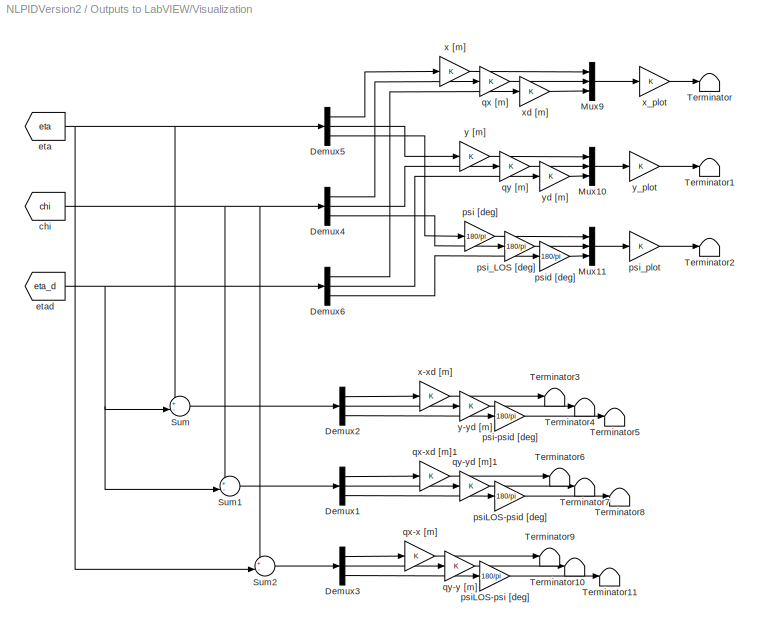
BLOCK [SubSystem] Outputs to LabVIEW/Visualization
  FunctionWithSeparateData = off
  MaskHideContents = off
  MinAlgLoopOccurrences = off
  Opaque = off
  Ports = []
  PropExecContextOutsideSubsystem = off
  RTWSystemCode = Auto
  RequestExecContextInheritance = off
BLOCK [Demux] Outputs to LabVIEW/Visualization/Demux1
  DisplayOption = bar
  Outputs = 3
  Ports = [1, 3]
BLOCK [Demux] Outputs to LabVIEW/Visualization/Demux2
  DisplayOption = bar
  Outputs = 3
  Ports = [1, 3]
BLOCK [Demux] Outputs to LabVIEW/Visualization/Demux3
  DisplayOption = bar
  Outputs = 3
  Ports = [1, 3]
BLOCK [Demux] Outputs to LabVIEW/Visualization/Demux4
  DisplayOption = bar
  Outputs = 3
  Ports = [1, 3]
BLOCK [Demux] Outputs to LabVIEW/Visualization/Demux5
  DisplayOption = bar
  Outputs = 3
  Ports = [1, 3]
BLOCK [Demux] Outputs to LabVIEW/Visualization/Demux6
  DisplayOption = bar
  Outputs = 3
  Ports = [1, 3]
BLOCK [Mux] Outputs to LabVIEW/Visualization/Mux10
  DisplayOption = bar
  Inputs = 3
  Ports = [3, 1]
BLOCK [Mux] Outputs to LabVIEW/Visualization/Mux11
  DisplayOption = bar
  Inputs = 3
  Ports = [3, 1]
BLOCK [Mux] Outputs to LabVIEW/Visualization/Mux9
  DisplayOption = bar
  Inputs = 3
  Ports = [3, 1]
BLOCK [Sum] Outputs to LabVIEW/Visualization/Sum
  IconShape = round
  InputSameDT = off
  Inputs = +-|
  OutDataType = fixdt(1, 16)
  OutDataTypeMode = Inherit via internal rule
  OutDataTypeStr = Inherit: Inherit via internal rule
  OutScaling = 2^0
  Ports = [2, 1]
  SaturateOnIntegerOverflow = off
BLOCK [Sum] Outputs to LabVIEW/Visualization/Sum1
  IconShape = round
  InputSameDT = off
  Inputs = +-|
  OutDataType = fixdt(1, 16)
  OutDataTypeMode = Inherit via internal rule
  OutDataTypeStr = Inherit: Inherit via internal rule
  OutScaling = 2^0
  Ports = [2, 1]
  SaturateOnIntegerOverflow = off
BLOCK [Sum] Outputs to LabVIEW/Visualization/Sum2
  IconShape = round
  InputSameDT = off
  Inputs = +-|
  OutDataType = fixdt(1, 16)
  OutDataTypeMode = Inherit via internal rule
  OutDataTypeStr = Inherit: Inherit via internal rule
  OutScaling = 2^0
  Ports = [2, 1]
  SaturateOnIntegerOverflow = off
BLOCK [Terminator] Outputs to LabVIEW/Visualization/Terminator
BLOCK [Terminator] Outputs to LabVIEW/Visualization/Terminator1
BLOCK [Terminator] Outputs to LabVIEW/Visualization/Terminator10
BLOCK [Terminator] Outputs to LabVIEW/Visualization/Terminator11
BLOCK [Terminator] Outputs to LabVIEW/Visualization/Terminator2
BLOCK [Terminator] Outputs to LabVIEW/Visualization/Terminator3
BLOCK [Terminator] Outputs to LabVIEW/Visualization/Terminator4
BLOCK [Terminator] Outputs to LabVIEW/Visualization/Terminator5
BLOCK [Terminator] Outputs to LabVIEW/Visualization/Terminator6
BLOCK [Terminator] Outputs to LabVIEW/Visualization/Terminator7
BLOCK [Terminator] Outputs to LabVIEW/Visualization/Terminator8
BLOCK [Terminator] Outputs to LabVIEW/Visualization/Terminator9
BLOCK [From] Outputs to LabVIEW/Visualization/chi
  GotoTag = chi
  TagVisibility = global
BLOCK [From] Outputs to LabVIEW/Visualization/eta
  GotoTag = eta
  TagVisibility = global
BLOCK [From] Outputs to LabVIEW/Visualization/etad
  GotoTag = eta_d
  TagVisibility = global
BLOCK [Gain] Outputs to LabVIEW/Visualization/psi [deg]
  Gain = 180/pi
  OutDataType = fixdt(1, 16)
  OutDataTypeMode = Inherit via internal rule
  OutDataTypeStr = Inherit: Inherit via internal rule
  OutScaling = 2^0
  ParamDataTypeStr = Inherit: Inherit via internal rule
  ParameterDataType = fixdt(1, 16)
  ParameterDataTypeMode = Inherit via internal rule
  ParameterScaling = 2^0
  SaturateOnIntegerOverflow = off
BLOCK [Gain] Outputs to LabVIEW/Visualization/psi-psid [deg]
  Gain = 180/pi
  OutDataType = fixdt(1, 16)
  OutDataTypeMode = Inherit via internal rule
  OutDataTypeStr = Inherit: Inherit via internal rule
  OutScaling = 2^0
  ParamDataTypeStr = Inherit: Inherit via internal rule
  ParameterDataType = fixdt(1, 16)
  ParameterDataTypeMode = Inherit via internal rule
  ParameterScaling = 2^0
  SaturateOnIntegerOverflow = off
BLOCK [Gain] Outputs to LabVIEW/Visualization/psiLOS-psi [deg]
  Gain = 180/pi
  OutDataType = fixdt(1, 16)
  OutDataTypeMode = Inherit via internal rule
  OutDataTypeStr = Inherit: Inherit via internal rule
  OutScaling = 2^0
  ParamDataTypeStr = Inherit: Inherit via internal rule
  ParameterDataType = fixdt(1, 16)
  ParameterDataTypeMode = Inherit via internal rule
  ParameterScaling = 2^0
  SaturateOnIntegerOverflow = off
BLOCK [Gain] Outputs to LabVIEW/Visualization/psiLOS-psid [deg]
  Gain = 180/pi
  OutDataType = fixdt(1, 16)
  OutDataTypeMode = Inherit via internal rule
  OutDataTypeStr = Inherit: Inherit via internal rule
  OutScaling = 2^0
  ParamDataTypeStr = Inherit: Inherit via internal rule
  ParameterDataType = fixdt(1, 16)
  ParameterDataTypeMode = Inherit via internal rule
  ParameterScaling = 2^0
  SaturateOnIntegerOverflow = off
BLOCK [Gain] Outputs to LabVIEW/Visualization/psi_LOS [deg]
  Gain = 180/pi
  OutDataType = fixdt(1, 16)
  OutDataTypeMode = Inherit via internal rule
  OutDataTypeStr = Inherit: Inherit via internal rule
  OutScaling = 2^0
  ParamDataTypeStr = Inherit: Inherit via internal rule
  ParameterDataType = fixdt(1, 16)
  ParameterDataTypeMode = Inherit via internal rule
  ParameterScaling = 2^0
  SaturateOnIntegerOverflow = off
BLOCK [Gain] Outputs to LabVIEW/Visualization/psi_plot
  OutDataType = fixdt(1, 16)
  OutDataTypeMode = Inherit via internal rule
  OutDataTypeStr = Inherit: Inherit via internal rule
  OutScaling = 2^0
  ParamDataTypeStr = Inherit: Inherit via internal rule
  ParameterDataType = fixdt(1, 16)
  ParameterDataTypeMode = Inherit via internal rule
  ParameterScaling = 2^0
  SaturateOnIntegerOverflow = off
BLOCK [Gain] Outputs to LabVIEW/Visualization/psid [deg]
  Gain = 180/pi
  OutDataType = fixdt(1, 16)
  OutDataTypeMode = Inherit via internal rule
  OutDataTypeStr = Inherit: Inherit via internal rule
  OutScaling = 2^0
  ParamDataTypeStr = Inherit: Inherit via internal rule
  ParameterDataType = fixdt(1, 16)
  ParameterDataTypeMode = Inherit via internal rule
  ParameterScaling = 2^0
  SaturateOnIntegerOverflow = off
BLOCK [Gain] Outputs to LabVIEW/Visualization/qx [m]
  OutDataType = fixdt(1, 16)
  OutDataTypeMode = Inherit via internal rule
  OutDataTypeStr = Inherit: Inherit via internal rule
  OutScaling = 2^0
  ParamDataTypeStr = Inherit: Inherit via internal rule
  ParameterDataType = fixdt(1, 16)
  ParameterDataTypeMode = Inherit via internal rule
  ParameterScaling = 2^0
  SaturateOnIntegerOverflow = off
BLOCK [Gain] Outputs to LabVIEW/Visualization/qx-x [m]
  OutDataType = fixdt(1, 16)
  OutDataTypeMode = Inherit via internal rule
  OutDataTypeStr = Inherit: Inherit via internal rule
  OutScaling = 2^0
  ParamDataTypeStr = Inherit: Inherit via internal rule
  ParameterDataType = fixdt(1, 16)
  ParameterDataTypeMode = Inherit via internal rule
  ParameterScaling = 2^0
  SaturateOnIntegerOverflow = off
BLOCK [Gain] Outputs to LabVIEW/Visualization/qx-xd [m]1
  OutDataType = fixdt(1, 16)
  OutDataTypeMode = Inherit via internal rule
  OutDataTypeStr = Inherit: Inherit via internal rule
  OutScaling = 2^0
  ParamDataTypeStr = Inherit: Inherit via internal rule
  ParameterDataType = fixdt(1, 16)
  ParameterDataTypeMode = Inherit via internal rule
  ParameterScaling = 2^0
  SaturateOnIntegerOverflow = off
BLOCK [Gain] Outputs to LabVIEW/Visualization/qy [m]
  OutDataType = fixdt(1, 16)
  OutDataTypeMode = Inherit via internal rule
  OutDataTypeStr = Inherit: Inherit via internal rule
  OutScaling = 2^0
  ParamDataTypeStr = Inherit: Inherit via internal rule
  ParameterDataType = fixdt(1, 16)
  ParameterDataTypeMode = Inherit via internal rule
  ParameterScaling = 2^0
  SaturateOnIntegerOverflow = off
BLOCK [Gain] Outputs to LabVIEW/Visualization/qy-y [m]
  OutDataType = fixdt(1, 16)
  OutDataTypeMode = Inherit via internal rule
  OutDataTypeStr = Inherit: Inherit via internal rule
  OutScaling = 2^0
  ParamDataTypeStr = Inherit: Inherit via internal rule
  ParameterDataType = fixdt(1, 16)
  ParameterDataTypeMode = Inherit via internal rule
  ParameterScaling = 2^0
  SaturateOnIntegerOverflow = off
BLOCK [Gain] Outputs to LabVIEW/Visualization/qy-yd [m]1
  OutDataType = fixdt(1, 16)
  OutDataTypeMode = Inherit via internal rule
  OutDataTypeStr = Inherit: Inherit via internal rule
  OutScaling = 2^0
  ParamDataTypeStr = Inherit: Inherit via internal rule
  ParameterDataType = fixdt(1, 16)
  ParameterDataTypeMode = Inherit via internal rule
  ParameterScaling = 2^0
  SaturateOnIntegerOverflow = off
BLOCK [Gain] Outputs to LabVIEW/Visualization/x [m]
  OutDataType = fixdt(1, 16)
  OutDataTypeMode = Inherit via internal rule
  OutDataTypeStr = Inherit: Inherit via internal rule
  OutScaling = 2^0
  ParamDataTypeStr = Inherit: Inherit via internal rule
  ParameterDataType = fixdt(1, 16)
  ParameterDataTypeMode = Inherit via internal rule
  ParameterScaling = 2^0
  SaturateOnIntegerOverflow = off
BLOCK [Gain] Outputs to LabVIEW/Visualization/x-xd [m]
  OutDataType = fixdt(1, 16)
  OutDataTypeMode = Inherit via internal rule
  OutDataTypeStr = Inherit: Inherit via internal rule
  OutScaling = 2^0
  ParamDataTypeStr = Inherit: Inherit via internal rule
  ParameterDataType = fixdt(1, 16)
  ParameterDataTypeMode = Inherit via internal rule
  ParameterScaling = 2^0
  SaturateOnIntegerOverflow = off
BLOCK [Gain] Outputs to LabVIEW/Visualization/x_plot
  OutDataType = fixdt(1, 16)
  OutDataTypeMode = Inherit via internal rule
  OutDataTypeStr = Inherit: Inherit via internal rule
  OutScaling = 2^0
  ParamDataTypeStr = Inherit: Inherit via internal rule
  ParameterDataType = fixdt(1, 16)
  ParameterDataTypeMode = Inherit via internal rule
  ParameterScaling = 2^0
  SaturateOnIntegerOverflow = off
BLOCK [Gain] Outputs to LabVIEW/Visualization/xd [m]
  OutDataType = fixdt(1, 16)
  OutDataTypeMode = Inherit via internal rule
  OutDataTypeStr = Inherit: Inherit via internal rule
  OutScaling = 2^0
  ParamDataTypeStr = Inherit: Inherit via internal rule
  ParameterDataType = fixdt(1, 16)
  ParameterDataTypeMode = Inherit via internal rule
  ParameterScaling = 2^0
  SaturateOnIntegerOverflow = off
BLOCK [Gain] Outputs to LabVIEW/Visualization/y [m]
  OutDataType = fixdt(1, 16)
  OutDataTypeMode = Inherit via internal rule
  OutDataTypeStr = Inherit: Inherit via internal rule
  OutScaling = 2^0
  ParamDataTypeStr = Inherit: Inherit via internal rule
  ParameterDataType = fixdt(1, 16)
  ParameterDataTypeMode = Inherit via internal rule
  ParameterScaling = 2^0
  SaturateOnIntegerOverflow = off
BLOCK [Gain] Outputs to LabVIEW/Visualization/y-yd [m]
  OutDataType = fixdt(1, 16)
  OutDataTypeMode = Inherit via internal rule
  OutDataTypeStr = Inherit: Inherit via internal rule
  OutScaling = 2^0
  ParamDataTypeStr = Inherit: Inherit via internal rule
  ParameterDataType = fixdt(1, 16)
  ParameterDataTypeMode = Inherit via internal rule
  ParameterScaling = 2^0
  SaturateOnIntegerOverflow = off
BLOCK [Gain] Outputs to LabVIEW/Visualization/y_plot
  OutDataType = fixdt(1, 16)
  OutDataTypeMode = Inherit via internal rule
  OutDataTypeStr = Inherit: Inherit via internal rule
  OutScaling = 2^0
  ParamDataTypeStr = Inherit: Inherit via internal rule
  ParameterDataType = fixdt(1, 16)
  ParameterDataTypeMode = Inherit via internal rule
  ParameterScaling = 2^0
  SaturateOnIntegerOverflow = off
BLOCK [Gain] Outputs to LabVIEW/Visualization/yd [m]
  OutDataType = fixdt(1, 16)
  OutDataTypeMode = Inherit via internal rule
  OutDataTypeStr = Inherit: Inherit via internal rule
  OutScaling = 2^0
  ParamDataTypeStr = Inherit: Inherit via internal rule
  ParameterDataType = fixdt(1, 16)
  ParameterDataTypeMode = Inherit via internal rule
  ParameterScaling = 2^0
  SaturateOnIntegerOverflow = off
BLOCK [Goto] Outputs to LabVIEW/eta_d
  GotoTag = eta_d
  TagVisibility = global
BLOCK [From] Outputs to LabVIEW/p_d
  GotoTag = pd
  TagVisibility = global
BLOCK [From] Outputs to LabVIEW/psi_d
  GotoTag = psid
  TagVisibility = global
BLOCK [S-Function] SignalProbe
  Description = Use this block with SIT.
  EnableBusSupport = off
  FunctionName = SignalProbe
  MaskDescription = The LabVIEW Simulation Interface Toolkit uses the SignalProbe block to probe the signals in the model. The SignalProbe block must be on the top level of the model hierarchy. You can have only one SignalProbe block per model file. Do not rename the SignalProbe block. Do not change the name of another model block to SignalProbe.
  MaskIconFrame = on
  MaskIconOpaque = on
  MaskIconRotate = none
  MaskIconUnits = autoscale
  MaskPortRotate = default
  Parameters = 1
  Ports = []
  PreSaveFcn = NISIT_ModelVars;
ANNOTATION (root): Acronym: \n- TC: ThrusterCommand
ANNOTATION (root): Communication between subsystems happens mainly through Global \"Goto\"-blocks and \"From\" Blocks,\nreducing the needs for wires \n\nBlock name: Acronym + Pseudo Latex synax where \"_\" (underscore) can mean lower what to follow or space\nTag name: similar to Block name but double underscore \"__\" as exponentiation symbol\n\n[ letter inside ]: unit, e.g. [m] == assumes input in meter\n[ number i...<+494ch>
ANNOTATION Inputs from LabVIEW/Linear Simulator: Enable Linear Simulator: Activation\nReset Linear Simulator integrator: Reset\nInitial u: Initial speed in surge\nInitial v: Initial speed in sway\nInitial r: Initial speed in yaw\nInitial x: Initial position in surge\nInitial y: Initial position in sway\nInitial psi: Initial heading
ANNOTATION Inputs from LabVIEW/Path: u_d: Desired surge speed of vessel\nPath Selector: Workaround parameter for switching between linear path(==0) and ellipse path(==1)\nx_dmax: Upper limit of desired x-ooordinate\nx_dmin: Lower limit of desired x-coordiante\ny_dmax: Upper limit of desired y-ooordinate\ny_dmin: Lower limit of desired y-coordiante\nDelta: Lookahead distance for LOS guidance\nmy: Gradient path minimizing tuning value
ANNOTATION Inputs from LabVIEW/Path/Ellipse: origin_x: ellipse origin x-coordinate\norigin_y: ellipse origin y-coordinate\nr_x: ellipse radius x-direction\nr_y: ellipse radius y-direction\nk: step scaling factor of path parameter
ANNOTATION Inputs from LabVIEW/Path/Linear: x_1: reference way-point x-coordinate\ny_1: reference way-point y-coordinate\nx_2: direction way-point x-coordinate\ny_2: direction way-point y-coordinate
ANNOTATION Inputs from LabVIEW/PlayStation3: Postive Y-axis of analog sticks points up (in the direction of the shoulder buttons)\nPostive X-axis of analog sticks points to the right (in the direction of Triange, Circle, X and Square buttons)\n\nAS_LX: PS3 Analog Stick Left X-postition\nAS_LY: PS3 Analog Stick Left Y-postition\nAS_RX: PS3 Analog Stick Right X-postition\nAS_RY: PS3 Analog Stick Right Y-postition\nL2: PS3 bottom left sholderbu...<+157ch>
ANNOTATION Inputs from LabVIEW/ctrl1: Dynamic Positioning/Kd: Creating 3x3 diagonal matrix
ANNOTATION Inputs from LabVIEW/ctrl1: Dynamic Positioning/Ki: Creating 3x3 diagonal matrix
ANNOTATION Inputs from LabVIEW/ctrl1: Dynamic Positioning/Kp: Creating 3x3 diagonal matrix
ANNOTATION Inputs from LabVIEW/ctrl2: LOS LgV backstepping II/K_d: Creating 3x3 diagonal matrix
ANNOTATION Inputs from LabVIEW/ctrl2: LOS LgV backstepping II/K_i: Creating 3x3 diagonal matrix
ANNOTATION Inputs from LabVIEW/ctrl2: LOS LgV backstepping II/K_p: Creating 3x3 diagonal matrix
ANNOTATION Main Subsystems/Control/Control Switch: 0 - PS3 u input control\n1 - DP control\n2 - LgV2 control
ANNOTATION Main Subsystems/Control/DP control: Modified version of the DP control found in MSS toolbx
ANNOTATION Main Subsystems/Control/PS3 u input control: Manuel thruster control is intended for testing and flexing of thrusters and its signals
ANNOTATION Main Subsystems/Control/PS3 u input control: Mapping PS3 signals to thruster settings:\n- Y-position controls surge force of VSP\n- X-positon controls sway force of VSP\n- Left Analogstick controls port VSP\n- Right Analogstick controls starboard VSP\n- Postive values gives postive motions and vice versa\n- R2 pressed gives postive yaw motion\n- L2 pressed gives negative yaw motion
ANNOTATION Main Subsystems/Control/Thruster allocation/VSP030 BT040/f_act to u_act/f_1 to u_1 VSP speed 0.3: Table valid for VSP speed == 0.30
ANNOTATION Main Subsystems/Control/Thruster allocation/VSP030 BT040/f_act to u_act/f_2 to u_2 VSP speed 0.3: Switching to the lookup table giving the closes value
ANNOTATION Main Subsystems/Control/Thruster allocation/VSP030 BT040/f_act to u_act/f_2 to u_2 VSP speed 0.3: Tables valid for VSP speed == 0.30
ANNOTATION Main Subsystems/Control/Thruster allocation/VSP030 BT040/f_act to u_act/f_2 to u_2 VSP speed 0.3: workaround setup
ANNOTATION Main Subsystems/Control/Thruster allocation/VSP030 BT040/f_act to u_act/f_3 to u_3 VSP speed 0.3: Table valid for VSP speed == 0.30
ANNOTATION Main Subsystems/Control/Thruster allocation/VSP030 BT040/f_act to u_act/f_4 to u_4 VSP speed 0.3: Tables valid for VSP speed == 0.30
ANNOTATION Main Subsystems/Control/Thruster allocation/VSP030 BT040/f_act to u_act/f_5 to u_5 BT power 0.4: Check if the input value is less, equal or greater then zero
ANNOTATION Main Subsystems/Control/Thruster allocation/VSP030 BT040/f_act to u_act/f_5 to u_5 BT power 0.4: If 0: control input is 3
ANNOTATION Main Subsystems/Control/Thruster allocation/VSP030 BT040/f_act to u_act/f_5 to u_5 BT power 0.4: The mapping is divided into 3 parts:\nNegative, zero and positive
ANNOTATION Main Subsystems/Data logging: Data logging:\n- Create a file named CSE1_data.mat in CRIO\n- Top row contains timestamp run-time\nRows contain values of the vector sent into the block at timestamp\n-Row 1: Time since simulation start\n-Row 2: Selected navigation system, 0 == QS, 1 == LS\n-Row 3: Error signal from Qualisys\n-Row 4: Residual from Qualisys\n-Row 5 to 7: etadot, col ( xdot, ydot, psidot)\n-Row 8 to 10: eta, col (x,...<+484ch>
ANNOTATION Main Subsystems/Guidance/Line-Of-Sight Path-Following/Path: Path Selector == 1: Linear path\nPath Selector == 0: Ellipse path
ANNOTATION Main Subsystems/Guidance/Line-Of-Sight Path-Following/Path/Path Switch workaround + limiter: Path Selector == 1: Linear path\nPath Selector == 0: Ellipse path
ANNOTATION Main Subsystems/Guidance/Line-Of-Sight Path-Following/Path/Path Switch workaround + limiter/p_d selcetor: Path Selector == 1: Linear path\nPath Selector == 0: Ellipse path
ANNOTATION Main Subsystems/Guidance/Line-Of-Sight Path-Following/Path/Path Switch workaround + limiter/p_d^s selcetor: Path Selector == 1: Linear path\nPath Selector == 0: Ellipse path
ANNOTATION Main Subsystems/Guidance/Line-Of-Sight Path-Following/Path/Path Switch workaround + limiter/p_d^s^2 selcetor: Path Selector == 1: Linear path\nPath Selector == 0: Ellipse path
ANNOTATION Main Subsystems/Guidance/Line-Of-Sight Path-Following/Path/Path Switch workaround + limiter/p_d^s^3 selcetor: Path Selector == 1: Linear path\nPath Selector == 0: Ellipse path
ANNOTATION Main Subsystems/Guidance/Line-Of-Sight Path-Following/Path/Path Switch workaround + limiter/p_d^s^3 selcetor1: Path Selector == 1: Linear path\nPath Selector == 0: Ellipse path
ANNOTATION Main Subsystems/Naviagation/Input from SIT: This subsystem is a modifired version of Håkon Skåtuns subsystem for Qualisys 6 DOF
ANNOTATION Main Subsystems/Plant/CSE1 actuator: This subsystem is a modifired version of Håkon Skåtuns subsystem CSE1
ANNOTATION Main Subsystems/Plant/Linear Simulator/Linear Vessel Dynamics: This subsystem is a modifired version of Christoffer Throvaldsens Vessel Dynamic
ANNOTATION Main Subsystems/Plant/Thruster setting workaround: 0 - Direct PS3 \nelse TC from Control subsystem
ANNOTATION Outputs to LabVIEW: Gain blocks in this subsystem, functions as output ports for linking LabVIEW indicators through SIT Connection Manager
ANNOTATION Outputs to LabVIEW/Battery Voltage: Main battery is multipled by 2, since the voltage is halfed at measuring point
LINE Inputs from LabVIEW/Control Input Selector:1 -> Inputs from LabVIEW/controlInputSelector:1
LINE Inputs from LabVIEW/Control Mode Selector:1 -> Inputs from LabVIEW/controlModeSelector:1
LINE Inputs from LabVIEW/Enable CSE1:1 -> Inputs from LabVIEW/enableCSE1:1
LINE Inputs from LabVIEW/Linear Simulator/Enable Linear Simulator:1 -> Inputs from LabVIEW/Linear Simulator/Enable:1
LINE Inputs from LabVIEW/Linear Simulator/Initial psi [rad]:1 -> Inputs from LabVIEW/Linear Simulator/Mux1:3
LINE Inputs from LabVIEW/Linear Simulator/Initial r [rad//s]:1 -> Inputs from LabVIEW/Linear Simulator/Mux:3
LINE Inputs from LabVIEW/Linear Simulator/Initial u [m//s]:1 -> Inputs from LabVIEW/Linear Simulator/Mux:1
LINE Inputs from LabVIEW/Linear Simulator/Initial v [m//s]:1 -> Inputs from LabVIEW/Linear Simulator/Mux:2
LINE Inputs from LabVIEW/Linear Simulator/Initial x [m]:1 -> Inputs from LabVIEW/Linear Simulator/Mux1:1
LINE Inputs from LabVIEW/Linear Simulator/Initial y [m]:1 -> Inputs from LabVIEW/Linear Simulator/Mux1:2
LINE Inputs from LabVIEW/Linear Simulator/Mux1:1 -> Inputs from LabVIEW/Linear Simulator/Initial_eta:1
LINE Inputs from LabVIEW/Linear Simulator/Mux:1 -> Inputs from LabVIEW/Linear Simulator/Initial_nu:1
LINE Inputs from LabVIEW/Linear Simulator/Reset Linear Simulator integrator:1 -> Inputs from LabVIEW/Linear Simulator/Reset:1
LINE Inputs from LabVIEW/Path/Delta [m]:1 -> Inputs from LabVIEW/Path/Delta:1
LINE Inputs from LabVIEW/Path/Ellipse/k [-]:1 -> Inputs from LabVIEW/Path/Ellipse/k:1
LINE Inputs from LabVIEW/Path/Ellipse/r_x [m]:1 -> Inputs from LabVIEW/Path/Ellipse/rx:1
LINE Inputs from LabVIEW/Path/Ellipse/r_y [m]:1 -> Inputs from LabVIEW/Path/Ellipse/ry:1
LINE Inputs from LabVIEW/Path/Ellipse/x_0 [m]:1 -> Inputs from LabVIEW/Path/Ellipse/x0:1
LINE Inputs from LabVIEW/Path/Ellipse/y_0 [m]:1 -> Inputs from LabVIEW/Path/Ellipse/y0:1
LINE Inputs from LabVIEW/Path/Linear/x_1 [m]:1 -> Inputs from LabVIEW/Path/Linear/x1:1
LINE Inputs from LabVIEW/Path/Linear/x_2 [m]:1 -> Inputs from LabVIEW/Path/Linear/x2:1
LINE Inputs from LabVIEW/Path/Linear/y_1 [m]:1 -> Inputs from LabVIEW/Path/Linear/y1:1
LINE Inputs from LabVIEW/Path/Linear/y_2 [m]:1 -> Inputs from LabVIEW/Path/Linear/y2:1
LINE Inputs from LabVIEW/Path/Path Selector  [-]:1 -> Inputs from LabVIEW/Path/pathSelector:1
LINE Inputs from LabVIEW/Path/my [-]:1 -> Inputs from LabVIEW/Path/my:1
LINE Inputs from LabVIEW/Path/u_d [m]:1 -> Inputs from LabVIEW/Path/ud:1
LINE Inputs from LabVIEW/Path/x_dmax [m]:1 -> Inputs from LabVIEW/Path/xdmax:1
LINE Inputs from LabVIEW/Path/x_dmin [m]:1 -> Inputs from LabVIEW/Path/xdmin:1
LINE Inputs from LabVIEW/Path/y_dmax [m]:1 -> Inputs from LabVIEW/Path/ydmax:1
LINE Inputs from LabVIEW/Path/y_dmin [m]:1 -> Inputs from LabVIEW/Path/ydmin:1
LINE Inputs from LabVIEW/PlayStation3/AS_LX [-] :1 -> Inputs from LabVIEW/PlayStation3/ScalingLX:1
LINE Inputs from LabVIEW/PlayStation3/AS_LY [-]:1 -> Inputs from LabVIEW/PlayStation3/ScalingLY:1
LINE Inputs from LabVIEW/PlayStation3/AS_RX [-]:1 -> Inputs from LabVIEW/PlayStation3/Scaling_RX:1
LINE Inputs from LabVIEW/PlayStation3/AS_RY [-]:1 -> Inputs from LabVIEW/PlayStation3/ScalingRY:1
LINE Inputs from LabVIEW/PlayStation3/L2 [-]:1 -> Inputs from LabVIEW/PlayStation3/L2:1
LINE Inputs from LabVIEW/PlayStation3/PS3_BT_Power  [-]:1 -> Inputs from LabVIEW/PlayStation3/BT_Power:1
LINE Inputs from LabVIEW/PlayStation3/PS3_VSP_Speed  [-]:1 -> Inputs from LabVIEW/PlayStation3/VSP_Speed:1
LINE Inputs from LabVIEW/PlayStation3/R2 [-]:1 -> Inputs from LabVIEW/PlayStation3/R2:1
LINE Inputs from LabVIEW/PlayStation3/ScalingLX:1 -> Inputs from LabVIEW/PlayStation3/AS_LX:1
LINE Inputs from LabVIEW/PlayStation3/ScalingLY:1 -> Inputs from LabVIEW/PlayStation3/AS_LY:1
LINE Inputs from LabVIEW/PlayStation3/ScalingRY:1 -> Inputs from LabVIEW/PlayStation3/AS_RY:1
LINE Inputs from LabVIEW/PlayStation3/Scaling_RX:1 -> Inputs from LabVIEW/PlayStation3/AS_RX:1
LINE Inputs from LabVIEW/Setpoint/Degrees to\nRadians:1 -> Inputs from LabVIEW/Setpoint/Mux:3
LINE Inputs from LabVIEW/Setpoint/Mux:1 -> Inputs from LabVIEW/Setpoint/setpoint:1
LINE Inputs from LabVIEW/Setpoint/setpointpsi [deg]:1 -> Inputs from LabVIEW/Setpoint/Degrees to\nRadians:1
LINE Inputs from LabVIEW/Setpoint/setpointx [m]:1 -> Inputs from LabVIEW/Setpoint/Mux:1
LINE Inputs from LabVIEW/Setpoint/setpointy [m]:1 -> Inputs from LabVIEW/Setpoint/Mux:2
LINE Inputs from LabVIEW/ctrl1: Dynamic Positioning/Kd/11:1 -> Inputs from LabVIEW/ctrl1: Dynamic Positioning/Kd/Mux:1
LINE Inputs from LabVIEW/ctrl1: Dynamic Positioning/Kd/12:1 -> Inputs from LabVIEW/ctrl1: Dynamic Positioning/Kd/Mux:4
LINE Inputs from LabVIEW/ctrl1: Dynamic Positioning/Kd/13:1 -> Inputs from LabVIEW/ctrl1: Dynamic Positioning/Kd/Mux:7
LINE Inputs from LabVIEW/ctrl1: Dynamic Positioning/Kd/21:1 -> Inputs from LabVIEW/ctrl1: Dynamic Positioning/Kd/Mux:2
LINE Inputs from LabVIEW/ctrl1: Dynamic Positioning/Kd/22:1 -> Inputs from LabVIEW/ctrl1: Dynamic Positioning/Kd/Mux:5
LINE Inputs from LabVIEW/ctrl1: Dynamic Positioning/Kd/23:1 -> Inputs from LabVIEW/ctrl1: Dynamic Positioning/Kd/Mux:8
LINE Inputs from LabVIEW/ctrl1: Dynamic Positioning/Kd/31:1 -> Inputs from LabVIEW/ctrl1: Dynamic Positioning/Kd/Mux:3
LINE Inputs from LabVIEW/ctrl1: Dynamic Positioning/Kd/32:1 -> Inputs from LabVIEW/ctrl1: Dynamic Positioning/Kd/Mux:6
LINE Inputs from LabVIEW/ctrl1: Dynamic Positioning/Kd/33:1 -> Inputs from LabVIEW/ctrl1: Dynamic Positioning/Kd/Mux:9
LINE Inputs from LabVIEW/ctrl1: Dynamic Positioning/Kd/Mux:1 -> Inputs from LabVIEW/ctrl1: Dynamic Positioning/Kd/[3x3]:1
LINE Inputs from LabVIEW/ctrl1: Dynamic Positioning/Kd/[3x3]:1 -> Inputs from LabVIEW/ctrl1: Dynamic Positioning/Kd/ctrl1Kd:1
LINE Inputs from LabVIEW/ctrl1: Dynamic Positioning/Ki/11:1 -> Inputs from LabVIEW/ctrl1: Dynamic Positioning/Ki/Mux:1
LINE Inputs from LabVIEW/ctrl1: Dynamic Positioning/Ki/12:1 -> Inputs from LabVIEW/ctrl1: Dynamic Positioning/Ki/Mux:4
LINE Inputs from LabVIEW/ctrl1: Dynamic Positioning/Ki/13:1 -> Inputs from LabVIEW/ctrl1: Dynamic Positioning/Ki/Mux:7
LINE Inputs from LabVIEW/ctrl1: Dynamic Positioning/Ki/21:1 -> Inputs from LabVIEW/ctrl1: Dynamic Positioning/Ki/Mux:2
LINE Inputs from LabVIEW/ctrl1: Dynamic Positioning/Ki/22:1 -> Inputs from LabVIEW/ctrl1: Dynamic Positioning/Ki/Mux:5
LINE Inputs from LabVIEW/ctrl1: Dynamic Positioning/Ki/23:1 -> Inputs from LabVIEW/ctrl1: Dynamic Positioning/Ki/Mux:8
LINE Inputs from LabVIEW/ctrl1: Dynamic Positioning/Ki/31:1 -> Inputs from LabVIEW/ctrl1: Dynamic Positioning/Ki/Mux:3
LINE Inputs from LabVIEW/ctrl1: Dynamic Positioning/Ki/32:1 -> Inputs from LabVIEW/ctrl1: Dynamic Positioning/Ki/Mux:6
LINE Inputs from LabVIEW/ctrl1: Dynamic Positioning/Ki/33:1 -> Inputs from LabVIEW/ctrl1: Dynamic Positioning/Ki/Mux:9
LINE Inputs from LabVIEW/ctrl1: Dynamic Positioning/Ki/Mux:1 -> Inputs from LabVIEW/ctrl1: Dynamic Positioning/Ki/[3x3]:1
LINE Inputs from LabVIEW/ctrl1: Dynamic Positioning/Ki/[3x3]:1 -> Inputs from LabVIEW/ctrl1: Dynamic Positioning/Ki/ctrl1Ki:1
LINE Inputs from LabVIEW/ctrl1: Dynamic Positioning/Kp/11:1 -> Inputs from LabVIEW/ctrl1: Dynamic Positioning/Kp/Mux:1
LINE Inputs from LabVIEW/ctrl1: Dynamic Positioning/Kp/12:1 -> Inputs from LabVIEW/ctrl1: Dynamic Positioning/Kp/Mux:4
LINE Inputs from LabVIEW/ctrl1: Dynamic Positioning/Kp/13:1 -> Inputs from LabVIEW/ctrl1: Dynamic Positioning/Kp/Mux:7
LINE Inputs from LabVIEW/ctrl1: Dynamic Positioning/Kp/21:1 -> Inputs from LabVIEW/ctrl1: Dynamic Positioning/Kp/Mux:2
LINE Inputs from LabVIEW/ctrl1: Dynamic Positioning/Kp/22:1 -> Inputs from LabVIEW/ctrl1: Dynamic Positioning/Kp/Mux:5
LINE Inputs from LabVIEW/ctrl1: Dynamic Positioning/Kp/23:1 -> Inputs from LabVIEW/ctrl1: Dynamic Positioning/Kp/Mux:8
LINE Inputs from LabVIEW/ctrl1: Dynamic Positioning/Kp/31:1 -> Inputs from LabVIEW/ctrl1: Dynamic Positioning/Kp/Mux:3
LINE Inputs from LabVIEW/ctrl1: Dynamic Positioning/Kp/32:1 -> Inputs from LabVIEW/ctrl1: Dynamic Positioning/Kp/Mux:6
LINE Inputs from LabVIEW/ctrl1: Dynamic Positioning/Kp/33:1 -> Inputs from LabVIEW/ctrl1: Dynamic Positioning/Kp/Mux:9
LINE Inputs from LabVIEW/ctrl1: Dynamic Positioning/Kp/Mux:1 -> Inputs from LabVIEW/ctrl1: Dynamic Positioning/Kp/[3x3]:1
LINE Inputs from LabVIEW/ctrl1: Dynamic Positioning/Kp/[3x3]:1 -> Inputs from LabVIEW/ctrl1: Dynamic Positioning/Kp/ctrl1Kp:1
LINE Inputs from LabVIEW/ctrl1: Dynamic Positioning/ctrl1 Reset Integrator :1 -> Inputs from LabVIEW/ctrl1: Dynamic Positioning/ctrl1Reset:1
LINE Inputs from LabVIEW/ctrl1: Dynamic Positioning/ctrl1Kdpsi:1 -> Inputs from LabVIEW/ctrl1: Dynamic Positioning/Kd:3
LINE Inputs from LabVIEW/ctrl1: Dynamic Positioning/ctrl1Kdx:1 -> Inputs from LabVIEW/ctrl1: Dynamic Positioning/Kd:1
LINE Inputs from LabVIEW/ctrl1: Dynamic Positioning/ctrl1Kdy:1 -> Inputs from LabVIEW/ctrl1: Dynamic Positioning/Kd:2
LINE Inputs from LabVIEW/ctrl1: Dynamic Positioning/ctrl1Kipsi:1 -> Inputs from LabVIEW/ctrl1: Dynamic Positioning/Ki:3
LINE Inputs from LabVIEW/ctrl1: Dynamic Positioning/ctrl1Kix:1 -> Inputs from LabVIEW/ctrl1: Dynamic Positioning/Ki:1
LINE Inputs from LabVIEW/ctrl1: Dynamic Positioning/ctrl1Kiy:1 -> Inputs from LabVIEW/ctrl1: Dynamic Positioning/Ki:2
LINE Inputs from LabVIEW/ctrl1: Dynamic Positioning/ctrl1Kppsi:1 -> Inputs from LabVIEW/ctrl1: Dynamic Positioning/Kp:3
LINE Inputs from LabVIEW/ctrl1: Dynamic Positioning/ctrl1Kpx:1 -> Inputs from LabVIEW/ctrl1: Dynamic Positioning/Kp:1
LINE Inputs from LabVIEW/ctrl1: Dynamic Positioning/ctrl1Kpy:1 -> Inputs from LabVIEW/ctrl1: Dynamic Positioning/Kp:2
LINE Inputs from LabVIEW/ctrl2: LOS LgV backstepping II/Gamma_q/11:1 -> Inputs from LabVIEW/ctrl2: LOS LgV backstepping II/Gamma_q/Mux:1
LINE Inputs from LabVIEW/ctrl2: LOS LgV backstepping II/Gamma_q/12:1 -> Inputs from LabVIEW/ctrl2: LOS LgV backstepping II/Gamma_q/Mux:3
LINE Inputs from LabVIEW/ctrl2: LOS LgV backstepping II/Gamma_q/21:1 -> Inputs from LabVIEW/ctrl2: LOS LgV backstepping II/Gamma_q/Mux:2
LINE Inputs from LabVIEW/ctrl2: LOS LgV backstepping II/Gamma_q/22:1 -> Inputs from LabVIEW/ctrl2: LOS LgV backstepping II/Gamma_q/Mux:4
LINE Inputs from LabVIEW/ctrl2: LOS LgV backstepping II/Gamma_q/Mux:1 -> Inputs from LabVIEW/ctrl2: LOS LgV backstepping II/Gamma_q/[2x2]:1
LINE Inputs from LabVIEW/ctrl2: LOS LgV backstepping II/Gamma_q/[2x2]:1 -> Inputs from LabVIEW/ctrl2: LOS LgV backstepping II/Gamma_q/ctrl2Gammaq:1
LINE Inputs from LabVIEW/ctrl2: LOS LgV backstepping II/Gamma_q_Surge:1 -> Inputs from LabVIEW/ctrl2: LOS LgV backstepping II/Gamma_q:1
LINE Inputs from LabVIEW/ctrl2: LOS LgV backstepping II/Gamma_q_Sway:1 -> Inputs from LabVIEW/ctrl2: LOS LgV backstepping II/Gamma_q:2
LINE Inputs from LabVIEW/ctrl2: LOS LgV backstepping II/Initial q_x:1 -> Inputs from LabVIEW/ctrl2: LOS LgV backstepping II/Mux:1
LINE Inputs from LabVIEW/ctrl2: LOS LgV backstepping II/Initial q_y:1 -> Inputs from LabVIEW/ctrl2: LOS LgV backstepping II/Mux:2
LINE Inputs from LabVIEW/ctrl2: LOS LgV backstepping II/Initial s:1 -> Inputs from LabVIEW/ctrl2: LOS LgV backstepping II/ctrl2s0:1
LINE Inputs from LabVIEW/ctrl2: LOS LgV backstepping II/K_d/11:1 -> Inputs from LabVIEW/ctrl2: LOS LgV backstepping II/K_d/Mux:1
LINE Inputs from LabVIEW/ctrl2: LOS LgV backstepping II/K_d/12:1 -> Inputs from LabVIEW/ctrl2: LOS LgV backstepping II/K_d/Mux:4
LINE Inputs from LabVIEW/ctrl2: LOS LgV backstepping II/K_d/13:1 -> Inputs from LabVIEW/ctrl2: LOS LgV backstepping II/K_d/Mux:7
LINE Inputs from LabVIEW/ctrl2: LOS LgV backstepping II/K_d/21:1 -> Inputs from LabVIEW/ctrl2: LOS LgV backstepping II/K_d/Mux:2
LINE Inputs from LabVIEW/ctrl2: LOS LgV backstepping II/K_d/22:1 -> Inputs from LabVIEW/ctrl2: LOS LgV backstepping II/K_d/Mux:5
LINE Inputs from LabVIEW/ctrl2: LOS LgV backstepping II/K_d/23:1 -> Inputs from LabVIEW/ctrl2: LOS LgV backstepping II/K_d/Mux:8
LINE Inputs from LabVIEW/ctrl2: LOS LgV backstepping II/K_d/31:1 -> Inputs from LabVIEW/ctrl2: LOS LgV backstepping II/K_d/Mux:3
LINE Inputs from LabVIEW/ctrl2: LOS LgV backstepping II/K_d/32:1 -> Inputs from LabVIEW/ctrl2: LOS LgV backstepping II/K_d/Mux:6
LINE Inputs from LabVIEW/ctrl2: LOS LgV backstepping II/K_d/33:1 -> Inputs from LabVIEW/ctrl2: LOS LgV backstepping II/K_d/Mux:9
LINE Inputs from LabVIEW/ctrl2: LOS LgV backstepping II/K_d/Mux:1 -> Inputs from LabVIEW/ctrl2: LOS LgV backstepping II/K_d/[3x3]:1
LINE Inputs from LabVIEW/ctrl2: LOS LgV backstepping II/K_d/[3x3]:1 -> Inputs from LabVIEW/ctrl2: LOS LgV backstepping II/K_d/ctrl2Kd:1
LINE Inputs from LabVIEW/ctrl2: LOS LgV backstepping II/K_i/11:1 -> Inputs from LabVIEW/ctrl2: LOS LgV backstepping II/K_i/Mux:1
LINE Inputs from LabVIEW/ctrl2: LOS LgV backstepping II/K_i/12:1 -> Inputs from LabVIEW/ctrl2: LOS LgV backstepping II/K_i/Mux:4
LINE Inputs from LabVIEW/ctrl2: LOS LgV backstepping II/K_i/13:1 -> Inputs from LabVIEW/ctrl2: LOS LgV backstepping II/K_i/Mux:7
LINE Inputs from LabVIEW/ctrl2: LOS LgV backstepping II/K_i/21:1 -> Inputs from LabVIEW/ctrl2: LOS LgV backstepping II/K_i/Mux:2
LINE Inputs from LabVIEW/ctrl2: LOS LgV backstepping II/K_i/22:1 -> Inputs from LabVIEW/ctrl2: LOS LgV backstepping II/K_i/Mux:5
LINE Inputs from LabVIEW/ctrl2: LOS LgV backstepping II/K_i/23:1 -> Inputs from LabVIEW/ctrl2: LOS LgV backstepping II/K_i/Mux:8
LINE Inputs from LabVIEW/ctrl2: LOS LgV backstepping II/K_i/31:1 -> Inputs from LabVIEW/ctrl2: LOS LgV backstepping II/K_i/Mux:3
LINE Inputs from LabVIEW/ctrl2: LOS LgV backstepping II/K_i/32:1 -> Inputs from LabVIEW/ctrl2: LOS LgV backstepping II/K_i/Mux:6
LINE Inputs from LabVIEW/ctrl2: LOS LgV backstepping II/K_i/33:1 -> Inputs from LabVIEW/ctrl2: LOS LgV backstepping II/K_i/Mux:9
LINE Inputs from LabVIEW/ctrl2: LOS LgV backstepping II/K_i/Mux:1 -> Inputs from LabVIEW/ctrl2: LOS LgV backstepping II/K_i/[3x3]:1
LINE Inputs from LabVIEW/ctrl2: LOS LgV backstepping II/K_i/[3x3]:1 -> Inputs from LabVIEW/ctrl2: LOS LgV backstepping II/K_i/ctrl2Ki:1
LINE Inputs from LabVIEW/ctrl2: LOS LgV backstepping II/K_p/11:1 -> Inputs from LabVIEW/ctrl2: LOS LgV backstepping II/K_p/Mux:1
LINE Inputs from LabVIEW/ctrl2: LOS LgV backstepping II/K_p/12:1 -> Inputs from LabVIEW/ctrl2: LOS LgV backstepping II/K_p/Mux:4
LINE Inputs from LabVIEW/ctrl2: LOS LgV backstepping II/K_p/13:1 -> Inputs from LabVIEW/ctrl2: LOS LgV backstepping II/K_p/Mux:7
LINE Inputs from LabVIEW/ctrl2: LOS LgV backstepping II/K_p/21:1 -> Inputs from LabVIEW/ctrl2: LOS LgV backstepping II/K_p/Mux:2
LINE Inputs from LabVIEW/ctrl2: LOS LgV backstepping II/K_p/22:1 -> Inputs from LabVIEW/ctrl2: LOS LgV backstepping II/K_p/Mux:5
LINE Inputs from LabVIEW/ctrl2: LOS LgV backstepping II/K_p/23:1 -> Inputs from LabVIEW/ctrl2: LOS LgV backstepping II/K_p/Mux:8
LINE Inputs from LabVIEW/ctrl2: LOS LgV backstepping II/K_p/31:1 -> Inputs from LabVIEW/ctrl2: LOS LgV backstepping II/K_p/Mux:3
LINE Inputs from LabVIEW/ctrl2: LOS LgV backstepping II/K_p/32:1 -> Inputs from LabVIEW/ctrl2: LOS LgV backstepping II/K_p/Mux:6
LINE Inputs from LabVIEW/ctrl2: LOS LgV backstepping II/K_p/33:1 -> Inputs from LabVIEW/ctrl2: LOS LgV backstepping II/K_p/Mux:9
LINE Inputs from LabVIEW/ctrl2: LOS LgV backstepping II/K_p/Mux:1 -> Inputs from LabVIEW/ctrl2: LOS LgV backstepping II/K_p/[3x3]:1
LINE Inputs from LabVIEW/ctrl2: LOS LgV backstepping II/K_p/[3x3]:1 -> Inputs from LabVIEW/ctrl2: LOS LgV backstepping II/K_p/ctrl2Kp:1
LINE Inputs from LabVIEW/ctrl2: LOS LgV backstepping II/Mux:1 -> Inputs from LabVIEW/ctrl2: LOS LgV backstepping II/ctrl2q0:1
LINE Inputs from LabVIEW/ctrl2: LOS LgV backstepping II/ctrl2 Reset Integrator :1 -> Inputs from LabVIEW/ctrl2: LOS LgV backstepping II/ctrl2Reset:1
LINE Inputs from LabVIEW/ctrl2: LOS LgV backstepping II/ctrl2Kdpsi:1 -> Inputs from LabVIEW/ctrl2: LOS LgV backstepping II/K_d:3
LINE Inputs from LabVIEW/ctrl2: LOS LgV backstepping II/ctrl2Kdx:1 -> Inputs from LabVIEW/ctrl2: LOS LgV backstepping II/K_d:1
LINE Inputs from LabVIEW/ctrl2: LOS LgV backstepping II/ctrl2Kdy:1 -> Inputs from LabVIEW/ctrl2: LOS LgV backstepping II/K_d:2
LINE Inputs from LabVIEW/ctrl2: LOS LgV backstepping II/ctrl2Kipsi:1 -> Inputs from LabVIEW/ctrl2: LOS LgV backstepping II/K_i:3
LINE Inputs from LabVIEW/ctrl2: LOS LgV backstepping II/ctrl2Kix:1 -> Inputs from LabVIEW/ctrl2: LOS LgV backstepping II/K_i:1
LINE Inputs from LabVIEW/ctrl2: LOS LgV backstepping II/ctrl2Kiy:1 -> Inputs from LabVIEW/ctrl2: LOS LgV backstepping II/K_i:2
LINE Inputs from LabVIEW/ctrl2: LOS LgV backstepping II/ctrl2Kppsi:1 -> Inputs from LabVIEW/ctrl2: LOS LgV backstepping II/K_p:3
LINE Inputs from LabVIEW/ctrl2: LOS LgV backstepping II/ctrl2Kpx:1 -> Inputs from LabVIEW/ctrl2: LOS LgV backstepping II/K_p:1
LINE Inputs from LabVIEW/ctrl2: LOS LgV backstepping II/ctrl2Kpy:1 -> Inputs from LabVIEW/ctrl2: LOS LgV backstepping II/K_p:2
LINE Inputs from LabVIEW/ctrl2: LOS LgV backstepping II/kappa_1:1 -> Inputs from LabVIEW/ctrl2: LOS LgV backstepping II/ctrl2kappa1:1
LINE Inputs from LabVIEW/ctrl2: LOS LgV backstepping II/lambda_q:1 -> Inputs from LabVIEW/ctrl2: LOS LgV backstepping II/ctrl2lambdaq:1
LINE Main Subsystems/C//S Enterprise 1 Matrices/Inertia matrix/3x3:1 -> Main Subsystems/C//S Enterprise 1 Matrices/Inertia matrix/M:1
LINE Main Subsystems/C//S Enterprise 1 Matrices/Inertia matrix/I_z:1 -> Main Subsystems/C//S Enterprise 1 Matrices/Inertia matrix/M_33:1
LINE Main Subsystems/C//S Enterprise 1 Matrices/Inertia matrix/M_11:1 -> Main Subsystems/C//S Enterprise 1 Matrices/Inertia matrix/Mux:1
LINE Main Subsystems/C//S Enterprise 1 Matrices/Inertia matrix/M_12:1 -> Main Subsystems/C//S Enterprise 1 Matrices/Inertia matrix/Mux:4
LINE Main Subsystems/C//S Enterprise 1 Matrices/Inertia matrix/M_13:1 -> Main Subsystems/C//S Enterprise 1 Matrices/Inertia matrix/Mux:7
LINE Main Subsystems/C//S Enterprise 1 Matrices/Inertia matrix/M_21:1 -> Main Subsystems/C//S Enterprise 1 Matrices/Inertia matrix/Mux:2
LINE Main Subsystems/C//S Enterprise 1 Matrices/Inertia matrix/M_22:1 -> Main Subsystems/C//S Enterprise 1 Matrices/Inertia matrix/Mux:5
LINE Main Subsystems/C//S Enterprise 1 Matrices/Inertia matrix/M_23:1 -> Main Subsystems/C//S Enterprise 1 Matrices/Inertia matrix/Mux:8
LINE Main Subsystems/C//S Enterprise 1 Matrices/Inertia matrix/M_31:1 -> Main Subsystems/C//S Enterprise 1 Matrices/Inertia matrix/Mux:3
LINE Main Subsystems/C//S Enterprise 1 Matrices/Inertia matrix/M_32:1 -> Main Subsystems/C//S Enterprise 1 Matrices/Inertia matrix/Mux:6
LINE Main Subsystems/C//S Enterprise 1 Matrices/Inertia matrix/M_33:1 -> Main Subsystems/C//S Enterprise 1 Matrices/Inertia matrix/Mux:9
LINE Main Subsystems/C//S Enterprise 1 Matrices/Inertia matrix/Mux:1 -> Main Subsystems/C//S Enterprise 1 Matrices/Inertia matrix/3x3:1
LINE Main Subsystems/C//S Enterprise 1 Matrices/Inertia matrix/N_rdot:1 -> Main Subsystems/C//S Enterprise 1 Matrices/Inertia matrix/M_33:2
LINE Main Subsystems/C//S Enterprise 1 Matrices/Inertia matrix/N_vdot:1 -> Main Subsystems/C//S Enterprise 1 Matrices/Inertia matrix/M_32:2
LINE Main Subsystems/C//S Enterprise 1 Matrices/Inertia matrix/X_udot:1 -> Main Subsystems/C//S Enterprise 1 Matrices/Inertia matrix/M_11:2
LINE Main Subsystems/C//S Enterprise 1 Matrices/Inertia matrix/Y_rdot:1 -> Main Subsystems/C//S Enterprise 1 Matrices/Inertia matrix/M_23:2
LINE Main Subsystems/C//S Enterprise 1 Matrices/Inertia matrix/Y_vdot:1 -> Main Subsystems/C//S Enterprise 1 Matrices/Inertia matrix/M_22:2
NET Main Subsystems/C//S Enterprise 1 Matrices/Inertia matrix/m x_g:1 -> Main Subsystems/C//S Enterprise 1 Matrices/Inertia matrix/M_23:1, Main Subsystems/C//S Enterprise 1 Matrices/Inertia matrix/M_32:1
NET Main Subsystems/C//S Enterprise 1 Matrices/Inertia matrix/m:1 -> Main Subsystems/C//S Enterprise 1 Matrices/Inertia matrix/M_11:1, Main Subsystems/C//S Enterprise 1 Matrices/Inertia matrix/M_22:1, Main Subsystems/C//S Enterprise 1 Matrices/Inertia matrix/m x_g:1
LINE Main Subsystems/C//S Enterprise 1 Matrices/Inertia matrix/x_g:1 -> Main Subsystems/C//S Enterprise 1 Matrices/Inertia matrix/m x_g:2
LINE Main Subsystems/C//S Enterprise 1 Matrices/Inertia matrix:1 -> Main Subsystems/C//S Enterprise 1 Matrices/M:1
LINE Main Subsystems/C//S Enterprise 1 Matrices/Linear hydrodynamic dampning matrix/-N_r:1 -> Main Subsystems/C//S Enterprise 1 Matrices/Linear hydrodynamic dampning matrix/Mux:9
LINE Main Subsystems/C//S Enterprise 1 Matrices/Linear hydrodynamic dampning matrix/-N_v:1 -> Main Subsystems/C//S Enterprise 1 Matrices/Linear hydrodynamic dampning matrix/Mux:6
LINE Main Subsystems/C//S Enterprise 1 Matrices/Linear hydrodynamic dampning matrix/-X_u:1 -> Main Subsystems/C//S Enterprise 1 Matrices/Linear hydrodynamic dampning matrix/Mux:1
LINE Main Subsystems/C//S Enterprise 1 Matrices/Linear hydrodynamic dampning matrix/-Y_v:1 -> Main Subsystems/C//S Enterprise 1 Matrices/Linear hydrodynamic dampning matrix/Mux:5
LINE Main Subsystems/C//S Enterprise 1 Matrices/Linear hydrodynamic dampning matrix/-Y_vr:1 -> Main Subsystems/C//S Enterprise 1 Matrices/Linear hydrodynamic dampning matrix/Mux:8
LINE Main Subsystems/C//S Enterprise 1 Matrices/Linear hydrodynamic dampning matrix/D_L_12:1 -> Main Subsystems/C//S Enterprise 1 Matrices/Linear hydrodynamic dampning matrix/Mux:4
LINE Main Subsystems/C//S Enterprise 1 Matrices/Linear hydrodynamic dampning matrix/D_L_13:1 -> Main Subsystems/C//S Enterprise 1 Matrices/Linear hydrodynamic dampning matrix/Mux:7
LINE Main Subsystems/C//S Enterprise 1 Matrices/Linear hydrodynamic dampning matrix/D_L_21:1 -> Main Subsystems/C//S Enterprise 1 Matrices/Linear hydrodynamic dampning matrix/Mux:2
LINE Main Subsystems/C//S Enterprise 1 Matrices/Linear hydrodynamic dampning matrix/D_L_31:1 -> Main Subsystems/C//S Enterprise 1 Matrices/Linear hydrodynamic dampning matrix/Mux:3
LINE Main Subsystems/C//S Enterprise 1 Matrices/Linear hydrodynamic dampning matrix/Linear Dampning matrix:1 -> Main Subsystems/C//S Enterprise 1 Matrices/Linear hydrodynamic dampning matrix/D_L:1
LINE Main Subsystems/C//S Enterprise 1 Matrices/Linear hydrodynamic dampning matrix/Mux:1 -> Main Subsystems/C//S Enterprise 1 Matrices/Linear hydrodynamic dampning matrix/Linear Dampning matrix:1
LINE Main Subsystems/C//S Enterprise 1 Matrices/Linear hydrodynamic dampning matrix/N_r:1 -> Main Subsystems/C//S Enterprise 1 Matrices/Linear hydrodynamic dampning matrix/-N_r:1
LINE Main Subsystems/C//S Enterprise 1 Matrices/Linear hydrodynamic dampning matrix/N_v:1 -> Main Subsystems/C//S Enterprise 1 Matrices/Linear hydrodynamic dampning matrix/-N_v:1
LINE Main Subsystems/C//S Enterprise 1 Matrices/Linear hydrodynamic dampning matrix/X_u:1 -> Main Subsystems/C//S Enterprise 1 Matrices/Linear hydrodynamic dampning matrix/-X_u:1
LINE Main Subsystems/C//S Enterprise 1 Matrices/Linear hydrodynamic dampning matrix/Y_r:1 -> Main Subsystems/C//S Enterprise 1 Matrices/Linear hydrodynamic dampning matrix/-Y_vr:1
LINE Main Subsystems/C//S Enterprise 1 Matrices/Linear hydrodynamic dampning matrix/Y_v:1 -> Main Subsystems/C//S Enterprise 1 Matrices/Linear hydrodynamic dampning matrix/-Y_v:1
LINE Main Subsystems/C//S Enterprise 1 Matrices/Linear hydrodynamic dampning matrix:1 -> Main Subsystems/C//S Enterprise 1 Matrices/D_L:1
LINE Main Subsystems/C//S Enterprise 1 Matrices/Thruster configuration matrix/-l_x1:1 -> Main Subsystems/C//S Enterprise 1 Matrices/Thruster configuration matrix/Mux:6
LINE Main Subsystems/C//S Enterprise 1 Matrices/Thruster configuration matrix/-l_x2:1 -> Main Subsystems/C//S Enterprise 1 Matrices/Thruster configuration matrix/Mux:12
LINE Main Subsystems/C//S Enterprise 1 Matrices/Thruster configuration matrix/-l_y2:1 -> Main Subsystems/C//S Enterprise 1 Matrices/Thruster configuration matrix/Mux:9
LINE Main Subsystems/C//S Enterprise 1 Matrices/Thruster configuration matrix/3x5:1 -> Main Subsystems/C//S Enterprise 1 Matrices/Thruster configuration matrix/B:1
LINE Main Subsystems/C//S Enterprise 1 Matrices/Thruster configuration matrix/B_11:1 -> Main Subsystems/C//S Enterprise 1 Matrices/Thruster configuration matrix/Mux:1
LINE Main Subsystems/C//S Enterprise 1 Matrices/Thruster configuration matrix/B_12:1 -> Main Subsystems/C//S Enterprise 1 Matrices/Thruster configuration matrix/Mux:4
LINE Main Subsystems/C//S Enterprise 1 Matrices/Thruster configuration matrix/B_13:1 -> Main Subsystems/C//S Enterprise 1 Matrices/Thruster configuration matrix/Mux:7
LINE Main Subsystems/C//S Enterprise 1 Matrices/Thruster configuration matrix/B_14:1 -> Main Subsystems/C//S Enterprise 1 Matrices/Thruster configuration matrix/Mux:10
LINE Main Subsystems/C//S Enterprise 1 Matrices/Thruster configuration matrix/B_15:1 -> Main Subsystems/C//S Enterprise 1 Matrices/Thruster configuration matrix/Mux:13
LINE Main Subsystems/C//S Enterprise 1 Matrices/Thruster configuration matrix/B_21:1 -> Main Subsystems/C//S Enterprise 1 Matrices/Thruster configuration matrix/Mux:2
LINE Main Subsystems/C//S Enterprise 1 Matrices/Thruster configuration matrix/B_22:1 -> Main Subsystems/C//S Enterprise 1 Matrices/Thruster configuration matrix/Mux:5
LINE Main Subsystems/C//S Enterprise 1 Matrices/Thruster configuration matrix/B_23:1 -> Main Subsystems/C//S Enterprise 1 Matrices/Thruster configuration matrix/Mux:8
LINE Main Subsystems/C//S Enterprise 1 Matrices/Thruster configuration matrix/B_24:1 -> Main Subsystems/C//S Enterprise 1 Matrices/Thruster configuration matrix/Mux:11
LINE Main Subsystems/C//S Enterprise 1 Matrices/Thruster configuration matrix/B_25:1 -> Main Subsystems/C//S Enterprise 1 Matrices/Thruster configuration matrix/Mux:14
LINE Main Subsystems/C//S Enterprise 1 Matrices/Thruster configuration matrix/Mux:1 -> Main Subsystems/C//S Enterprise 1 Matrices/Thruster configuration matrix/3x5:1
LINE Main Subsystems/C//S Enterprise 1 Matrices/Thruster configuration matrix/l_x1:1 -> Main Subsystems/C//S Enterprise 1 Matrices/Thruster configuration matrix/-l_x1:1
LINE Main Subsystems/C//S Enterprise 1 Matrices/Thruster configuration matrix/l_x2:1 -> Main Subsystems/C//S Enterprise 1 Matrices/Thruster configuration matrix/-l_x2:1
LINE Main Subsystems/C//S Enterprise 1 Matrices/Thruster configuration matrix/l_x3:1 -> Main Subsystems/C//S Enterprise 1 Matrices/Thruster configuration matrix/Mux:15
LINE Main Subsystems/C//S Enterprise 1 Matrices/Thruster configuration matrix/l_y1:1 -> Main Subsystems/C//S Enterprise 1 Matrices/Thruster configuration matrix/Mux:3
LINE Main Subsystems/C//S Enterprise 1 Matrices/Thruster configuration matrix/l_y2:1 -> Main Subsystems/C//S Enterprise 1 Matrices/Thruster configuration matrix/-l_y2:1
LINE Main Subsystems/C//S Enterprise 1 Matrices/Thruster configuration matrix:1 -> Main Subsystems/C//S Enterprise 1 Matrices/B:1
LINE Main Subsystems/Control/Control Switch/controlModeSelector:1 -> Main Subsystems/Control/Control Switch/tau\nSwitch:1
LINE Main Subsystems/Control/Control Switch/tauNLPID:1 -> Main Subsystems/Control/Control Switch/tau\nSwitch:4
LINE Main Subsystems/Control/Control Switch/tauPS3:1 -> Main Subsystems/Control/Control Switch/tau\nSwitch:2
LINE Main Subsystems/Control/Control Switch/tau\nSwitch:1 -> Main Subsystems/Control/Control Switch/tau:1
LINE Main Subsystems/Control/Control Switch/tauctrl1:1 -> Main Subsystems/Control/Control Switch/tau\nSwitch:3
LINE Main Subsystems/Control/DP control/DP_K_d:1 -> Main Subsystems/Control/DP control/Product2:1
LINE Main Subsystems/Control/DP control/DP_K_i:1 -> Main Subsystems/Control/DP control/Product1:1
LINE Main Subsystems/Control/DP control/DP_K_p:1 -> Main Subsystems/Control/DP control/Product:1
LINE Main Subsystems/Control/DP control/Demux:1 -> Main Subsystems/Control/DP control/Mux:1
LINE Main Subsystems/Control/DP control/Demux:2 -> Main Subsystems/Control/DP control/Mux:2
LINE Main Subsystems/Control/DP control/Demux:3 -> Main Subsystems/Control/DP control/[-inf inf] to [-pi pi]:1
LINE Main Subsystems/Control/DP control/Integrator:1 -> Main Subsystems/Control/DP control/Product1:2
LINE Main Subsystems/Control/DP control/Mux:1 -> Main Subsystems/Control/DP control/Transposed rotation\n matrix in yaw1:2
LINE Main Subsystems/Control/DP control/Product1:1 -> Main Subsystems/Control/DP control/Sum3:2
LINE Main Subsystems/Control/DP control/Product2:1 -> Main Subsystems/Control/DP control/Sum1:2
LINE Main Subsystems/Control/DP control/Product:1 -> Main Subsystems/Control/DP control/Sum3:1
LINE Main Subsystems/Control/DP control/Sum1:1 -> Main Subsystems/Control/DP control/DPtau:1
LINE Main Subsystems/Control/DP control/Sum2:1 -> Main Subsystems/Control/DP control/Demux:1
LINE Main Subsystems/Control/DP control/Sum3:1 -> Main Subsystems/Control/DP control/Sum1:1
NET Main Subsystems/Control/DP control/Transposed rotation\n matrix in yaw1:1 -> Main Subsystems/Control/DP control/Integrator:1, Main Subsystems/Control/DP control/Product:2
LINE Main Subsystems/Control/DP control/[-inf inf] to [-pi pi]1:1 -> Main Subsystems/Control/DP control/Transposed rotation\n matrix in yaw1:1
LINE Main Subsystems/Control/DP control/[-inf inf] to [-pi pi]:1 -> Main Subsystems/Control/DP control/Mux:3
LINE Main Subsystems/Control/DP control/ctrl1Reset:1 -> Main Subsystems/Control/DP control/Integrator:2
NET Main Subsystems/Control/DP control/eta:1 -> Main Subsystems/Control/DP control/Sum2:2, Main Subsystems/Control/DP control/yaw angle:1
LINE Main Subsystems/Control/DP control/eta_d:1 -> Main Subsystems/Control/DP control/Sum2:1
LINE Main Subsystems/Control/DP control/nu:1 -> Main Subsystems/Control/DP control/Product2:2
LINE Main Subsystems/Control/DP control/yaw angle:1 -> Main Subsystems/Control/DP control/[-inf inf] to [-pi pi]1:1
NET Main Subsystems/Control/Nonlinear PID/Auxilary functions g_q/f_q:1 -> Main Subsystems/Control/Nonlinear PID/Auxilary functions g_q/g_q eq:1, Main Subsystems/Control/Nonlinear PID/Auxilary functions g_q/g_q^q eq:1, Main Subsystems/Control/Nonlinear PID/Auxilary functions g_q/g_q^s eq:1
LINE Main Subsystems/Control/Nonlinear PID/Auxilary functions g_q/f_q^q:1 -> Main Subsystems/Control/Nonlinear PID/Auxilary functions g_q/g_q^q eq:3
LINE Main Subsystems/Control/Nonlinear PID/Auxilary functions g_q/f_q^s:1 -> Main Subsystems/Control/Nonlinear PID/Auxilary functions g_q/g_q^s eq:3
LINE Main Subsystems/Control/Nonlinear PID/Auxilary functions g_q/f_q^t:1 -> Main Subsystems/Control/Nonlinear PID/Auxilary functions g_q/g_q^t eq:2
LINE Main Subsystems/Control/Nonlinear PID/Auxilary functions g_q/g_q eq/Product:1 -> Main Subsystems/Control/Nonlinear PID/Auxilary functions g_q/g_q eq/Vector\nConcatenate:2
LINE Main Subsystems/Control/Nonlinear PID/Auxilary functions g_q/g_q eq/Vector\nConcatenate:1 -> Main Subsystems/Control/Nonlinear PID/Auxilary functions g_q/g_q eq/g_q:1
NET Main Subsystems/Control/Nonlinear PID/Auxilary functions g_q/g_q eq/f_q:1 -> Main Subsystems/Control/Nonlinear PID/Auxilary functions g_q/g_q eq/Product:2, Main Subsystems/Control/Nonlinear PID/Auxilary functions g_q/g_q eq/Vector\nConcatenate:1
LINE Main Subsystems/Control/Nonlinear PID/Auxilary functions g_q/g_q eq/psi_los^q:1 -> Main Subsystems/Control/Nonlinear PID/Auxilary functions g_q/g_q eq/Product:1
LINE Main Subsystems/Control/Nonlinear PID/Auxilary functions g_q/g_q eq:1 -> Main Subsystems/Control/Nonlinear PID/Auxilary functions g_q/g_q:1
LINE Main Subsystems/Control/Nonlinear PID/Auxilary functions g_q/g_q^q eq/Add:1 -> Main Subsystems/Control/Nonlinear PID/Auxilary functions g_q/g_q^q eq/Matrix\nConcatenate:2
LINE Main Subsystems/Control/Nonlinear PID/Auxilary functions g_q/g_q^q eq/Matrix\nConcatenate:1 -> Main Subsystems/Control/Nonlinear PID/Auxilary functions g_q/g_q^q eq/g_q^q:1
LINE Main Subsystems/Control/Nonlinear PID/Auxilary functions g_q/g_q^q eq/Product1:1 -> Main Subsystems/Control/Nonlinear PID/Auxilary functions g_q/g_q^q eq/Add:2
LINE Main Subsystems/Control/Nonlinear PID/Auxilary functions g_q/g_q^q eq/Product:1 -> Main Subsystems/Control/Nonlinear PID/Auxilary functions g_q/g_q^q eq/Add:1
LINE Main Subsystems/Control/Nonlinear PID/Auxilary functions g_q/g_q^q eq/f_q:1 -> Main Subsystems/Control/Nonlinear PID/Auxilary functions g_q/g_q^q eq/f_q^T:1
LINE Main Subsystems/Control/Nonlinear PID/Auxilary functions g_q/g_q^q eq/f_q^T:1 -> Main Subsystems/Control/Nonlinear PID/Auxilary functions g_q/g_q^q eq/Product:1
NET Main Subsystems/Control/Nonlinear PID/Auxilary functions g_q/g_q^q eq/f_q^q:1 -> Main Subsystems/Control/Nonlinear PID/Auxilary functions g_q/g_q^q eq/Matrix\nConcatenate:1, Main Subsystems/Control/Nonlinear PID/Auxilary functions g_q/g_q^q eq/Product1:2
LINE Main Subsystems/Control/Nonlinear PID/Auxilary functions g_q/g_q^q eq/psi_los^q:1 -> Main Subsystems/Control/Nonlinear PID/Auxilary functions g_q/g_q^q eq/Product1:1
LINE Main Subsystems/Control/Nonlinear PID/Auxilary functions g_q/g_q^q eq/psi_los^q^2:1 -> Main Subsystems/Control/Nonlinear PID/Auxilary functions g_q/g_q^q eq/psi_los^q^2T:1
LINE Main Subsystems/Control/Nonlinear PID/Auxilary functions g_q/g_q^q eq/psi_los^q^2T:1 -> Main Subsystems/Control/Nonlinear PID/Auxilary functions g_q/g_q^q eq/Product:2
LINE Main Subsystems/Control/Nonlinear PID/Auxilary functions g_q/g_q^q eq:1 -> Main Subsystems/Control/Nonlinear PID/Auxilary functions g_q/g_q^q:1
LINE Main Subsystems/Control/Nonlinear PID/Auxilary functions g_q/g_q^s eq/Add:1 -> Main Subsystems/Control/Nonlinear PID/Auxilary functions g_q/g_q^s eq/Vector\nConcatenate:2
LINE Main Subsystems/Control/Nonlinear PID/Auxilary functions g_q/g_q^s eq/Product1:1 -> Main Subsystems/Control/Nonlinear PID/Auxilary functions g_q/g_q^s eq/Add:2
LINE Main Subsystems/Control/Nonlinear PID/Auxilary functions g_q/g_q^s eq/Product:1 -> Main Subsystems/Control/Nonlinear PID/Auxilary functions g_q/g_q^s eq/Add:1
LINE Main Subsystems/Control/Nonlinear PID/Auxilary functions g_q/g_q^s eq/Vector\nConcatenate:1 -> Main Subsystems/Control/Nonlinear PID/Auxilary functions g_q/g_q^s eq/g_q^s:1
LINE Main Subsystems/Control/Nonlinear PID/Auxilary functions g_q/g_q^s eq/f_q:1 -> Main Subsystems/Control/Nonlinear PID/Auxilary functions g_q/g_q^s eq/Product:2
NET Main Subsystems/Control/Nonlinear PID/Auxilary functions g_q/g_q^s eq/f_q^s:1 -> Main Subsystems/Control/Nonlinear PID/Auxilary functions g_q/g_q^s eq/Product1:2, Main Subsystems/Control/Nonlinear PID/Auxilary functions g_q/g_q^s eq/Vector\nConcatenate:1
LINE Main Subsystems/Control/Nonlinear PID/Auxilary functions g_q/g_q^s eq/psi_los^q:1 -> Main Subsystems/Control/Nonlinear PID/Auxilary functions g_q/g_q^s eq/Product1:1
LINE Main Subsystems/Control/Nonlinear PID/Auxilary functions g_q/g_q^s eq/psi_los^qs:1 -> Main Subsystems/Control/Nonlinear PID/Auxilary functions g_q/g_q^s eq/Product:1
LINE Main Subsystems/Control/Nonlinear PID/Auxilary functions g_q/g_q^s eq:1 -> Main Subsystems/Control/Nonlinear PID/Auxilary functions g_q/g_q^s:1
LINE Main Subsystems/Control/Nonlinear PID/Auxilary functions g_q/g_q^t eq/Product1:1 -> Main Subsystems/Control/Nonlinear PID/Auxilary functions g_q/g_q^t eq/Vector\nConcatenate:2
LINE Main Subsystems/Control/Nonlinear PID/Auxilary functions g_q/g_q^t eq/Vector\nConcatenate:1 -> Main Subsystems/Control/Nonlinear PID/Auxilary functions g_q/g_q^t eq/g_q^t:1
NET Main Subsystems/Control/Nonlinear PID/Auxilary functions g_q/g_q^t eq/f_q^t:1 -> Main Subsystems/Control/Nonlinear PID/Auxilary functions g_q/g_q^t eq/Product1:2, Main Subsystems/Control/Nonlinear PID/Auxilary functions g_q/g_q^t eq/Vector\nConcatenate:1
LINE Main Subsystems/Control/Nonlinear PID/Auxilary functions g_q/g_q^t eq/psi_los^q:1 -> Main Subsystems/Control/Nonlinear PID/Auxilary functions g_q/g_q^t eq/Product1:1
LINE Main Subsystems/Control/Nonlinear PID/Auxilary functions g_q/g_q^t eq:1 -> Main Subsystems/Control/Nonlinear PID/Auxilary functions g_q/g_q^t:1
NET Main Subsystems/Control/Nonlinear PID/Auxilary functions g_q/psi_los^q:1 -> Main Subsystems/Control/Nonlinear PID/Auxilary functions g_q/g_q eq:2, Main Subsystems/Control/Nonlinear PID/Auxilary functions g_q/g_q^q eq:2, Main Subsystems/Control/Nonlinear PID/Auxilary functions g_q/g_q^s eq:2, Main Subsystems/Control/Nonlinear PID/Auxilary functions g_q/g_q^t eq:1
LINE Main Subsystems/Control/Nonlinear PID/Auxilary functions g_q/psi_los^q^2:1 -> Main Subsystems/Control/Nonlinear PID/Auxilary functions g_q/g_q^q eq:4
LINE Main Subsystems/Control/Nonlinear PID/Auxilary functions g_q/psi_los^qs:1 -> Main Subsystems/Control/Nonlinear PID/Auxilary functions g_q/g_q^s eq:4
NET Main Subsystems/Control/Nonlinear PID/Auxiliary function g_s/f_s:1 -> Main Subsystems/Control/Nonlinear PID/Auxiliary function g_s/g_s eq:1, Main Subsystems/Control/Nonlinear PID/Auxiliary function g_s/g_s^q eq:1, Main Subsystems/Control/Nonlinear PID/Auxiliary function g_s/g_s^s eq:1
LINE Main Subsystems/Control/Nonlinear PID/Auxiliary function g_s/f_s^q:1 -> Main Subsystems/Control/Nonlinear PID/Auxiliary function g_s/g_s^q eq:3
LINE Main Subsystems/Control/Nonlinear PID/Auxiliary function g_s/f_s^s:1 -> Main Subsystems/Control/Nonlinear PID/Auxiliary function g_s/g_s^s eq:3
LINE Main Subsystems/Control/Nonlinear PID/Auxiliary function g_s/f_s^t:1 -> Main Subsystems/Control/Nonlinear PID/Auxiliary function g_s/g_s^t eq:2
LINE Main Subsystems/Control/Nonlinear PID/Auxiliary function g_s/g_s eq/0_2x1:1 -> Main Subsystems/Control/Nonlinear PID/Auxiliary function g_s/g_s eq/Vector\nConcatenate:1
LINE Main Subsystems/Control/Nonlinear PID/Auxiliary function g_s/g_s eq/Product:1 -> Main Subsystems/Control/Nonlinear PID/Auxiliary function g_s/g_s eq/Vector\nConcatenate:2
LINE Main Subsystems/Control/Nonlinear PID/Auxiliary function g_s/g_s eq/Vector\nConcatenate:1 -> Main Subsystems/Control/Nonlinear PID/Auxiliary function g_s/g_s eq/g_s:1
LINE Main Subsystems/Control/Nonlinear PID/Auxiliary function g_s/g_s eq/f_s:1 -> Main Subsystems/Control/Nonlinear PID/Auxiliary function g_s/g_s eq/Product:2
LINE Main Subsystems/Control/Nonlinear PID/Auxiliary function g_s/g_s eq/psi_los^s:1 -> Main Subsystems/Control/Nonlinear PID/Auxiliary function g_s/g_s eq/Product:1
LINE Main Subsystems/Control/Nonlinear PID/Auxiliary function g_s/g_s eq:1 -> Main Subsystems/Control/Nonlinear PID/Auxiliary function g_s/g_s:1
LINE Main Subsystems/Control/Nonlinear PID/Auxiliary function g_s/g_s^q eq/0_2x2:1 -> Main Subsystems/Control/Nonlinear PID/Auxiliary function g_s/g_s^q eq/Matrix\nConcatenate:1
LINE Main Subsystems/Control/Nonlinear PID/Auxiliary function g_s/g_s^q eq/Add:1 -> Main Subsystems/Control/Nonlinear PID/Auxiliary function g_s/g_s^q eq/Matrix\nConcatenate:2
LINE Main Subsystems/Control/Nonlinear PID/Auxiliary function g_s/g_s^q eq/Matrix\nConcatenate:1 -> Main Subsystems/Control/Nonlinear PID/Auxiliary function g_s/g_s^q eq/g_s^q:1
LINE Main Subsystems/Control/Nonlinear PID/Auxiliary function g_s/g_s^q eq/Product1:1 -> Main Subsystems/Control/Nonlinear PID/Auxiliary function g_s/g_s^q eq/Add:2
LINE Main Subsystems/Control/Nonlinear PID/Auxiliary function g_s/g_s^q eq/Product:1 -> Main Subsystems/Control/Nonlinear PID/Auxiliary function g_s/g_s^q eq/Add:1
LINE Main Subsystems/Control/Nonlinear PID/Auxiliary function g_s/g_s^q eq/f_s:1 -> Main Subsystems/Control/Nonlinear PID/Auxiliary function g_s/g_s^q eq/Product:2
LINE Main Subsystems/Control/Nonlinear PID/Auxiliary function g_s/g_s^q eq/f_s^q:1 -> Main Subsystems/Control/Nonlinear PID/Auxiliary function g_s/g_s^q eq/Product1:2
LINE Main Subsystems/Control/Nonlinear PID/Auxiliary function g_s/g_s^q eq/psi_los^s:1 -> Main Subsystems/Control/Nonlinear PID/Auxiliary function g_s/g_s^q eq/Product1:1
LINE Main Subsystems/Control/Nonlinear PID/Auxiliary function g_s/g_s^q eq/psi_los^sq:1 -> Main Subsystems/Control/Nonlinear PID/Auxiliary function g_s/g_s^q eq/Product:1
LINE Main Subsystems/Control/Nonlinear PID/Auxiliary function g_s/g_s^q eq:1 -> Main Subsystems/Control/Nonlinear PID/Auxiliary function g_s/g_s^q:1
LINE Main Subsystems/Control/Nonlinear PID/Auxiliary function g_s/g_s^s eq/0_2x1:1 -> Main Subsystems/Control/Nonlinear PID/Auxiliary function g_s/g_s^s eq/Vector\nConcatenate:1
LINE Main Subsystems/Control/Nonlinear PID/Auxiliary function g_s/g_s^s eq/Add:1 -> Main Subsystems/Control/Nonlinear PID/Auxiliary function g_s/g_s^s eq/Vector\nConcatenate:2
LINE Main Subsystems/Control/Nonlinear PID/Auxiliary function g_s/g_s^s eq/Product1:1 -> Main Subsystems/Control/Nonlinear PID/Auxiliary function g_s/g_s^s eq/Add:2
LINE Main Subsystems/Control/Nonlinear PID/Auxiliary function g_s/g_s^s eq/Product:1 -> Main Subsystems/Control/Nonlinear PID/Auxiliary function g_s/g_s^s eq/Add:1
LINE Main Subsystems/Control/Nonlinear PID/Auxiliary function g_s/g_s^s eq/Vector\nConcatenate:1 -> Main Subsystems/Control/Nonlinear PID/Auxiliary function g_s/g_s^s eq/g_s^s:1
LINE Main Subsystems/Control/Nonlinear PID/Auxiliary function g_s/g_s^s eq/f_s:1 -> Main Subsystems/Control/Nonlinear PID/Auxiliary function g_s/g_s^s eq/Product:2
LINE Main Subsystems/Control/Nonlinear PID/Auxiliary function g_s/g_s^s eq/f_s^s:1 -> Main Subsystems/Control/Nonlinear PID/Auxiliary function g_s/g_s^s eq/Product1:2
LINE Main Subsystems/Control/Nonlinear PID/Auxiliary function g_s/g_s^s eq/psi_los^s:1 -> Main Subsystems/Control/Nonlinear PID/Auxiliary function g_s/g_s^s eq/Product1:1
LINE Main Subsystems/Control/Nonlinear PID/Auxiliary function g_s/g_s^s eq/psi_los^s^2:1 -> Main Subsystems/Control/Nonlinear PID/Auxiliary function g_s/g_s^s eq/Product:1
LINE Main Subsystems/Control/Nonlinear PID/Auxiliary function g_s/g_s^s eq:1 -> Main Subsystems/Control/Nonlinear PID/Auxiliary function g_s/g_s^s:1
LINE Main Subsystems/Control/Nonlinear PID/Auxiliary function g_s/g_s^t eq/0_2x1:1 -> Main Subsystems/Control/Nonlinear PID/Auxiliary function g_s/g_s^t eq/Vector\nConcatenate:1
LINE Main Subsystems/Control/Nonlinear PID/Auxiliary function g_s/g_s^t eq/Product1:1 -> Main Subsystems/Control/Nonlinear PID/Auxiliary function g_s/g_s^t eq/Vector\nConcatenate:2
LINE Main Subsystems/Control/Nonlinear PID/Auxiliary function g_s/g_s^t eq/Vector\nConcatenate:1 -> Main Subsystems/Control/Nonlinear PID/Auxiliary function g_s/g_s^t eq/g_a^t:1
LINE Main Subsystems/Control/Nonlinear PID/Auxiliary function g_s/g_s^t eq/f_s^t:1 -> Main Subsystems/Control/Nonlinear PID/Auxiliary function g_s/g_s^t eq/Product1:2
LINE Main Subsystems/Control/Nonlinear PID/Auxiliary function g_s/g_s^t eq/psi_los^s:1 -> Main Subsystems/Control/Nonlinear PID/Auxiliary function g_s/g_s^t eq/Product1:1
LINE Main Subsystems/Control/Nonlinear PID/Auxiliary function g_s/g_s^t eq:1 -> Main Subsystems/Control/Nonlinear PID/Auxiliary function g_s/g_s^t:1
NET Main Subsystems/Control/Nonlinear PID/Auxiliary function g_s/psi_los^s:1 -> Main Subsystems/Control/Nonlinear PID/Auxiliary function g_s/g_s eq:2, Main Subsystems/Control/Nonlinear PID/Auxiliary function g_s/g_s^q eq:2, Main Subsystems/Control/Nonlinear PID/Auxiliary function g_s/g_s^s eq:2, Main Subsystems/Control/Nonlinear PID/Auxiliary function g_s/g_s^t eq:1
LINE Main Subsystems/Control/Nonlinear PID/Auxiliary function g_s/psi_los^s^2:1 -> Main Subsystems/Control/Nonlinear PID/Auxiliary function g_s/g_s^s eq:4
LINE Main Subsystems/Control/Nonlinear PID/Auxiliary function g_s/psi_los^sq:1 -> Main Subsystems/Control/Nonlinear PID/Auxiliary function g_s/g_s^q eq:4
LINE Main Subsystems/Control/Nonlinear PID/Control law/Sum:1 -> Main Subsystems/Control/Nonlinear PID/Control law/tau:1
NET Main Subsystems/Control/Nonlinear PID/Control law/tau_FF/M:1 -> Main Subsystems/Control/Nonlinear PID/Control law/tau_FF/Product1:1, Main Subsystems/Control/Nonlinear PID/Control law/tau_FF/Product:1
LINE Main Subsystems/Control/Nonlinear PID/Control law/tau_FF/Product1:1 -> Main Subsystems/Control/Nonlinear PID/Control law/tau_FF/Subtract:2
LINE Main Subsystems/Control/Nonlinear PID/Control law/tau_FF/Product:1 -> Main Subsystems/Control/Nonlinear PID/Control law/tau_FF/Subtract:1
NET Main Subsystems/Control/Nonlinear PID/Control law/tau_FF/R^T:1 -> Main Subsystems/Control/Nonlinear PID/Control law/tau_FF/Product1:3, Main Subsystems/Control/Nonlinear PID/Control law/tau_FF/Product:2
LINE Main Subsystems/Control/Nonlinear PID/Control law/tau_FF/S(r)^T/Mux:1 -> Main Subsystems/Control/Nonlinear PID/Control law/tau_FF/S(r)^T/S(r):1
LINE Main Subsystems/Control/Nonlinear PID/Control law/tau_FF/S(r)^T/R31:1 -> Main Subsystems/Control/Nonlinear PID/Control law/tau_FF/S(r)^T/Mux:3
LINE Main Subsystems/Control/Nonlinear PID/Control law/tau_FF/S(r)^T/S(r):1 -> Main Subsystems/Control/Nonlinear PID/Control law/tau_FF/S(r)^T/S^T:1
LINE Main Subsystems/Control/Nonlinear PID/Control law/tau_FF/S(r)^T/S11:1 -> Main Subsystems/Control/Nonlinear PID/Control law/tau_FF/S(r)^T/Mux:1
LINE Main Subsystems/Control/Nonlinear PID/Control law/tau_FF/S(r)^T/S12:1 -> Main Subsystems/Control/Nonlinear PID/Control law/tau_FF/S(r)^T/Mux:4
LINE Main Subsystems/Control/Nonlinear PID/Control law/tau_FF/S(r)^T/S13:1 -> Main Subsystems/Control/Nonlinear PID/Control law/tau_FF/S(r)^T/Mux:7
LINE Main Subsystems/Control/Nonlinear PID/Control law/tau_FF/S(r)^T/S22:1 -> Main Subsystems/Control/Nonlinear PID/Control law/tau_FF/S(r)^T/Mux:5
LINE Main Subsystems/Control/Nonlinear PID/Control law/tau_FF/S(r)^T/S23:1 -> Main Subsystems/Control/Nonlinear PID/Control law/tau_FF/S(r)^T/Mux:8
LINE Main Subsystems/Control/Nonlinear PID/Control law/tau_FF/S(r)^T/S32:1 -> Main Subsystems/Control/Nonlinear PID/Control law/tau_FF/S(r)^T/Mux:6
LINE Main Subsystems/Control/Nonlinear PID/Control law/tau_FF/S(r)^T/S33:1 -> Main Subsystems/Control/Nonlinear PID/Control law/tau_FF/S(r)^T/Mux:9
LINE Main Subsystems/Control/Nonlinear PID/Control law/tau_FF/S(r)^T/S^T:1 -> Main Subsystems/Control/Nonlinear PID/Control law/tau_FF/S(r)^T/S(r)^T:1
LINE Main Subsystems/Control/Nonlinear PID/Control law/tau_FF/S(r)^T/nu:1 -> Main Subsystems/Control/Nonlinear PID/Control law/tau_FF/S(r)^T/r:1
NET Main Subsystems/Control/Nonlinear PID/Control law/tau_FF/S(r)^T/r:1 -> Main Subsystems/Control/Nonlinear PID/Control law/tau_FF/S(r)^T/Mux:2, Main Subsystems/Control/Nonlinear PID/Control law/tau_FF/S(r)^T/S12:1
LINE Main Subsystems/Control/Nonlinear PID/Control law/tau_FF/S(r)^T:1 -> Main Subsystems/Control/Nonlinear PID/Control law/tau_FF/Product1:2
LINE Main Subsystems/Control/Nonlinear PID/Control law/tau_FF/Subtract:1 -> Main Subsystems/Control/Nonlinear PID/Control law/tau_FF/tau_FF:1
LINE Main Subsystems/Control/Nonlinear PID/Control law/tau_FF/a_d:1 -> Main Subsystems/Control/Nonlinear PID/Control law/tau_FF/Product:3
LINE Main Subsystems/Control/Nonlinear PID/Control law/tau_FF/v_d:1 -> Main Subsystems/Control/Nonlinear PID/Control law/tau_FF/Product1:4
LINE Main Subsystems/Control/Nonlinear PID/Control law/tau_FF:1 -> Main Subsystems/Control/Nonlinear PID/Control law/Sum:3
LINE Main Subsystems/Control/Nonlinear PID/Control law/tau_FL/D_L:1 -> Main Subsystems/Control/Nonlinear PID/Control law/tau_FL/Product1:1
LINE Main Subsystems/Control/Nonlinear PID/Control law/tau_FL/Product1:1 -> Main Subsystems/Control/Nonlinear PID/Control law/tau_FL/tau_FL:1
LINE Main Subsystems/Control/Nonlinear PID/Control law/tau_FL/nu:1 -> Main Subsystems/Control/Nonlinear PID/Control law/tau_FL/Product1:2
LINE Main Subsystems/Control/Nonlinear PID/Control law/tau_FL:1 -> Main Subsystems/Control/Nonlinear PID/Control law/Sum:2
LINE Main Subsystems/Control/Nonlinear PID/Control law/tau_PID/K_d:1 -> Main Subsystems/Control/Nonlinear PID/Control law/tau_PID/Product2:1
LINE Main Subsystems/Control/Nonlinear PID/Control law/tau_PID/K_i:1 -> Main Subsystems/Control/Nonlinear PID/Control law/tau_PID/Product1:2
LINE Main Subsystems/Control/Nonlinear PID/Control law/tau_PID/K_p:1 -> Main Subsystems/Control/Nonlinear PID/Control law/tau_PID/Product:2
LINE Main Subsystems/Control/Nonlinear PID/Control law/tau_PID/Product1:1 -> Main Subsystems/Control/Nonlinear PID/Control law/tau_PID/Sum:2
LINE Main Subsystems/Control/Nonlinear PID/Control law/tau_PID/Product2:1 -> Main Subsystems/Control/Nonlinear PID/Control law/tau_PID/Sum:3
LINE Main Subsystems/Control/Nonlinear PID/Control law/tau_PID/Product:1 -> Main Subsystems/Control/Nonlinear PID/Control law/tau_PID/Sum:1
NET Main Subsystems/Control/Nonlinear PID/Control law/tau_PID/R^T:1 -> Main Subsystems/Control/Nonlinear PID/Control law/tau_PID/Product1:1, Main Subsystems/Control/Nonlinear PID/Control law/tau_PID/Product:1
LINE Main Subsystems/Control/Nonlinear PID/Control law/tau_PID/Sum:1 -> Main Subsystems/Control/Nonlinear PID/Control law/tau_PID/tau_PID:1
LINE Main Subsystems/Control/Nonlinear PID/Control law/tau_PID/e_1:1 -> Main Subsystems/Control/Nonlinear PID/Control law/tau_PID/Product:3
LINE Main Subsystems/Control/Nonlinear PID/Control law/tau_PID/e_2:1 -> Main Subsystems/Control/Nonlinear PID/Control law/tau_PID/Product2:2
LINE Main Subsystems/Control/Nonlinear PID/Control law/tau_PID/zeta:1 -> Main Subsystems/Control/Nonlinear PID/Control law/tau_PID/Product1:3
LINE Main Subsystems/Control/Nonlinear PID/Control law/tau_PID:1 -> Main Subsystems/Control/Nonlinear PID/Control law/Sum:1
LINE Main Subsystems/Control/Nonlinear PID/R(psi)/-1:1 -> Main Subsystems/Control/Nonlinear PID/R(psi)/Mux:4
LINE Main Subsystems/Control/Nonlinear PID/R(psi)/Mux:1 -> Main Subsystems/Control/Nonlinear PID/R(psi)/R(psi):1
NET Main Subsystems/Control/Nonlinear PID/R(psi)/R(psi):1 -> Main Subsystems/Control/Nonlinear PID/R(psi)/R^T:1, Main Subsystems/Control/Nonlinear PID/R(psi)/R_psi:1
LINE Main Subsystems/Control/Nonlinear PID/R(psi)/R11:1 -> Main Subsystems/Control/Nonlinear PID/R(psi)/Mux:1
LINE Main Subsystems/Control/Nonlinear PID/R(psi)/R12:1 -> Main Subsystems/Control/Nonlinear PID/R(psi)/-1:1
LINE Main Subsystems/Control/Nonlinear PID/R(psi)/R13:1 -> Main Subsystems/Control/Nonlinear PID/R(psi)/Mux:7
LINE Main Subsystems/Control/Nonlinear PID/R(psi)/R21:1 -> Main Subsystems/Control/Nonlinear PID/R(psi)/Mux:2
LINE Main Subsystems/Control/Nonlinear PID/R(psi)/R22:1 -> Main Subsystems/Control/Nonlinear PID/R(psi)/Mux:5
LINE Main Subsystems/Control/Nonlinear PID/R(psi)/R23:1 -> Main Subsystems/Control/Nonlinear PID/R(psi)/Mux:8
LINE Main Subsystems/Control/Nonlinear PID/R(psi)/R31:1 -> Main Subsystems/Control/Nonlinear PID/R(psi)/Mux:3
LINE Main Subsystems/Control/Nonlinear PID/R(psi)/R32:1 -> Main Subsystems/Control/Nonlinear PID/R(psi)/Mux:6
LINE Main Subsystems/Control/Nonlinear PID/R(psi)/R33:1 -> Main Subsystems/Control/Nonlinear PID/R(psi)/Mux:9
LINE Main Subsystems/Control/Nonlinear PID/R(psi)/R^T:1 -> Main Subsystems/Control/Nonlinear PID/R(psi)/R_psi_T:1
LINE Main Subsystems/Control/Nonlinear PID/R(psi)/eta:1 -> Main Subsystems/Control/Nonlinear PID/R(psi)/psi:1
NET Main Subsystems/Control/Nonlinear PID/R(psi)/psi:1 -> Main Subsystems/Control/Nonlinear PID/R(psi)/R11:1, Main Subsystems/Control/Nonlinear PID/R(psi)/R12:1, Main Subsystems/Control/Nonlinear PID/R(psi)/R21:1, Main Subsystems/Control/Nonlinear PID/R(psi)/R22:1
NET Main Subsystems/Control/Nonlinear PID/Update laws/Add1:1 -> Main Subsystems/Control/Nonlinear PID/Update laws/Integrator:1, Main Subsystems/Control/Nonlinear PID/Update laws/dot q:1
LINE Main Subsystems/Control/Nonlinear PID/Update laws/Gain:1 -> Main Subsystems/Control/Nonlinear PID/Update laws/Integrator2:1
LINE Main Subsystems/Control/Nonlinear PID/Update laws/Gamma_q:1 -> Main Subsystems/Control/Nonlinear PID/Update laws/Product3:1
LINE Main Subsystems/Control/Nonlinear PID/Update laws/Initial q:1 -> Main Subsystems/Control/Nonlinear PID/Update laws/Integrator:3
LINE Main Subsystems/Control/Nonlinear PID/Update laws/Initial s:1 -> Main Subsystems/Control/Nonlinear PID/Update laws/Integrator1:3
LINE Main Subsystems/Control/Nonlinear PID/Update laws/Integrator1:1 -> Main Subsystems/Control/Nonlinear PID/Update laws/s:1
NET Main Subsystems/Control/Nonlinear PID/Update laws/Integrator2:1 -> Main Subsystems/Control/Nonlinear PID/Update laws/Add1:1, Main Subsystems/Control/Nonlinear PID/Update laws/Subtract:1
LINE Main Subsystems/Control/Nonlinear PID/Update laws/Integrator:1 -> Main Subsystems/Control/Nonlinear PID/Update laws/q:1
LINE Main Subsystems/Control/Nonlinear PID/Update laws/K_p:1 -> Main Subsystems/Control/Nonlinear PID/Update laws/Product2:2
LINE Main Subsystems/Control/Nonlinear PID/Update laws/Product2:1 -> Main Subsystems/Control/Nonlinear PID/Update laws/Product3:2
LINE Main Subsystems/Control/Nonlinear PID/Update laws/Product3:1 -> Main Subsystems/Control/Nonlinear PID/Update laws/Subtract:2
LINE Main Subsystems/Control/Nonlinear PID/Update laws/Product4:1 -> Main Subsystems/Control/Nonlinear PID/Update laws/Gain:1
LINE Main Subsystems/Control/Nonlinear PID/Update laws/Reset omega_q:1 -> Main Subsystems/Control/Nonlinear PID/Update laws/Integrator2:2
LINE Main Subsystems/Control/Nonlinear PID/Update laws/Reset q:1 -> Main Subsystems/Control/Nonlinear PID/Update laws/Integrator:2
LINE Main Subsystems/Control/Nonlinear PID/Update laws/Reset s:1 -> Main Subsystems/Control/Nonlinear PID/Update laws/Integrator1:2
LINE Main Subsystems/Control/Nonlinear PID/Update laws/Subtract:1 -> Main Subsystems/Control/Nonlinear PID/Update laws/Product4:2
LINE Main Subsystems/Control/Nonlinear PID/Update laws/Transpose:1 -> Main Subsystems/Control/Nonlinear PID/Update laws/Product2:1
LINE Main Subsystems/Control/Nonlinear PID/Update laws/chi^q:1 -> Main Subsystems/Control/Nonlinear PID/Update laws/Transpose:1
LINE Main Subsystems/Control/Nonlinear PID/Update laws/e_1:1 -> Main Subsystems/Control/Nonlinear PID/Update laws/Product2:3
LINE Main Subsystems/Control/Nonlinear PID/Update laws/f_q:1 -> Main Subsystems/Control/Nonlinear PID/Update laws/Add1:2
NET Main Subsystems/Control/Nonlinear PID/Update laws/f_s:1 -> Main Subsystems/Control/Nonlinear PID/Update laws/Integrator1:1, Main Subsystems/Control/Nonlinear PID/Update laws/dot s:1
LINE Main Subsystems/Control/Nonlinear PID/Update laws/lambda:1 -> Main Subsystems/Control/Nonlinear PID/Update laws/Product4:1
LINE Main Subsystems/Control/Nonlinear PID/Update laws:1 -> Main Subsystems/Control/Nonlinear PID/q:1
LINE Main Subsystems/Control/Nonlinear PID/Update laws:2 -> Main Subsystems/Control/Nonlinear PID/a_d:1
LINE Main Subsystems/Control/Nonlinear PID/Update laws:3 -> Main Subsystems/Control/Nonlinear PID/a_d:2
LINE Main Subsystems/Control/Nonlinear PID/a_d/Product1:1 -> Main Subsystems/Control/Nonlinear PID/a_d/Sum:2
LINE Main Subsystems/Control/Nonlinear PID/a_d/Product:1 -> Main Subsystems/Control/Nonlinear PID/a_d/Sum:1
LINE Main Subsystems/Control/Nonlinear PID/a_d/Sum:1 -> Main Subsystems/Control/Nonlinear PID/a_d/a_d:1
LINE Main Subsystems/Control/Nonlinear PID/a_d/dot q:1 -> Main Subsystems/Control/Nonlinear PID/a_d/Product:2
LINE Main Subsystems/Control/Nonlinear PID/a_d/dot s:1 -> Main Subsystems/Control/Nonlinear PID/a_d/Product1:2
LINE Main Subsystems/Control/Nonlinear PID/a_d/g_q^q:1 -> Main Subsystems/Control/Nonlinear PID/a_d/v_d^q:1
LINE Main Subsystems/Control/Nonlinear PID/a_d/g_q^s:1 -> Main Subsystems/Control/Nonlinear PID/a_d/v_d^s:1
LINE Main Subsystems/Control/Nonlinear PID/a_d/g_q^t:1 -> Main Subsystems/Control/Nonlinear PID/a_d/v_d^t:1
LINE Main Subsystems/Control/Nonlinear PID/a_d/g_s^q:1 -> Main Subsystems/Control/Nonlinear PID/a_d/v_d^q:2
LINE Main Subsystems/Control/Nonlinear PID/a_d/g_s^s:1 -> Main Subsystems/Control/Nonlinear PID/a_d/v_d^s:2
LINE Main Subsystems/Control/Nonlinear PID/a_d/g_s^t:1 -> Main Subsystems/Control/Nonlinear PID/a_d/v_d^t:2
LINE Main Subsystems/Control/Nonlinear PID/a_d/v_d^q/Add:1 -> Main Subsystems/Control/Nonlinear PID/a_d/v_d^q/v_d^q:1
LINE Main Subsystems/Control/Nonlinear PID/a_d/v_d^q/g_q^q:1 -> Main Subsystems/Control/Nonlinear PID/a_d/v_d^q/Add:1
LINE Main Subsystems/Control/Nonlinear PID/a_d/v_d^q/g_s^q:1 -> Main Subsystems/Control/Nonlinear PID/a_d/v_d^q/Add:2
LINE Main Subsystems/Control/Nonlinear PID/a_d/v_d^q:1 -> Main Subsystems/Control/Nonlinear PID/a_d/Product:1
LINE Main Subsystems/Control/Nonlinear PID/a_d/v_d^s/Add1:1 -> Main Subsystems/Control/Nonlinear PID/a_d/v_d^s/v_d^s:1
LINE Main Subsystems/Control/Nonlinear PID/a_d/v_d^s/g_q^s:1 -> Main Subsystems/Control/Nonlinear PID/a_d/v_d^s/Add1:1
LINE Main Subsystems/Control/Nonlinear PID/a_d/v_d^s/g_s^s:1 -> Main Subsystems/Control/Nonlinear PID/a_d/v_d^s/Add1:2
LINE Main Subsystems/Control/Nonlinear PID/a_d/v_d^s:1 -> Main Subsystems/Control/Nonlinear PID/a_d/Product1:1
LINE Main Subsystems/Control/Nonlinear PID/a_d/v_d^t/Add:1 -> Main Subsystems/Control/Nonlinear PID/a_d/v_d^t/v_d^t:1
LINE Main Subsystems/Control/Nonlinear PID/a_d/v_d^t/g_q^t:1 -> Main Subsystems/Control/Nonlinear PID/a_d/v_d^t/Add:1
LINE Main Subsystems/Control/Nonlinear PID/a_d/v_d^t/g_s^t:1 -> Main Subsystems/Control/Nonlinear PID/a_d/v_d^t/Add:2
LINE Main Subsystems/Control/Nonlinear PID/a_d/v_d^t:1 -> Main Subsystems/Control/Nonlinear PID/a_d/Sum:3
LINE Main Subsystems/Control/Nonlinear PID/e2/Product:1 -> Main Subsystems/Control/Nonlinear PID/e2/Subtract:2
LINE Main Subsystems/Control/Nonlinear PID/e2/R^T:1 -> Main Subsystems/Control/Nonlinear PID/e2/Product:1
LINE Main Subsystems/Control/Nonlinear PID/e2/Subtract:1 -> Main Subsystems/Control/Nonlinear PID/e2/e_2:1
LINE Main Subsystems/Control/Nonlinear PID/e2/nu:1 -> Main Subsystems/Control/Nonlinear PID/e2/Subtract:1
LINE Main Subsystems/Control/Nonlinear PID/e2/v_d:1 -> Main Subsystems/Control/Nonlinear PID/e2/Product:2
LINE Main Subsystems/Control/Nonlinear PID/e_1/Heading to -pi//pi/Demux:1 -> Main Subsystems/Control/Nonlinear PID/e_1/Heading to -pi//pi/Mux:1
LINE Main Subsystems/Control/Nonlinear PID/e_1/Heading to -pi//pi/Demux:2 -> Main Subsystems/Control/Nonlinear PID/e_1/Heading to -pi//pi/Mux:2
LINE Main Subsystems/Control/Nonlinear PID/e_1/Heading to -pi//pi/Demux:3 -> Main Subsystems/Control/Nonlinear PID/e_1/Heading to -pi//pi/rad to [-pi pi]:1
LINE Main Subsystems/Control/Nonlinear PID/e_1/Heading to -pi//pi/Mux:1 -> Main Subsystems/Control/Nonlinear PID/e_1/Heading to -pi//pi/eta -pi//pi:1
LINE Main Subsystems/Control/Nonlinear PID/e_1/Heading to -pi//pi/eta rad:1 -> Main Subsystems/Control/Nonlinear PID/e_1/Heading to -pi//pi/Demux:1
LINE Main Subsystems/Control/Nonlinear PID/e_1/Heading to -pi//pi/rad to [-pi pi]/Constant:1 -> Main Subsystems/Control/Nonlinear PID/e_1/Heading to -pi//pi/rad to [-pi pi]/Math\nFunction:2
NET Main Subsystems/Control/Nonlinear PID/e_1/Heading to -pi//pi/rad to [-pi pi]/Gain:1 -> Main Subsystems/Control/Nonlinear PID/e_1/Heading to -pi//pi/rad to [-pi pi]/Sum1:2, Main Subsystems/Control/Nonlinear PID/e_1/Heading to -pi//pi/rad to [-pi pi]/Sum:2
LINE Main Subsystems/Control/Nonlinear PID/e_1/Heading to -pi//pi/rad to [-pi pi]/Math\nFunction:1 -> Main Subsystems/Control/Nonlinear PID/e_1/Heading to -pi//pi/rad to [-pi pi]/Sum:1
NET Main Subsystems/Control/Nonlinear PID/e_1/Heading to -pi//pi/rad to [-pi pi]/Saturation:1 -> Main Subsystems/Control/Nonlinear PID/e_1/Heading to -pi//pi/rad to [-pi pi]/Sign:1, Main Subsystems/Control/Nonlinear PID/e_1/Heading to -pi//pi/rad to [-pi pi]/Sum1:1
LINE Main Subsystems/Control/Nonlinear PID/e_1/Heading to -pi//pi/rad to [-pi pi]/Sign:1 -> Main Subsystems/Control/Nonlinear PID/e_1/Heading to -pi//pi/rad to [-pi pi]/Gain:1
LINE Main Subsystems/Control/Nonlinear PID/e_1/Heading to -pi//pi/rad to [-pi pi]/Sum1:1 -> Main Subsystems/Control/Nonlinear PID/e_1/Heading to -pi//pi/rad to [-pi pi]/Math\nFunction:1
LINE Main Subsystems/Control/Nonlinear PID/e_1/Heading to -pi//pi/rad to [-pi pi]/Sum:1 -> Main Subsystems/Control/Nonlinear PID/e_1/Heading to -pi//pi/rad to [-pi pi]/[-pi pi]:1
LINE Main Subsystems/Control/Nonlinear PID/e_1/Heading to -pi//pi/rad to [-pi pi]/rad:1 -> Main Subsystems/Control/Nonlinear PID/e_1/Heading to -pi//pi/rad to [-pi pi]/Saturation:1
LINE Main Subsystems/Control/Nonlinear PID/e_1/Heading to -pi//pi/rad to [-pi pi]:1 -> Main Subsystems/Control/Nonlinear PID/e_1/Heading to -pi//pi/Mux:3
LINE Main Subsystems/Control/Nonlinear PID/e_1/Heading to -pi//pi1/Demux:1 -> Main Subsystems/Control/Nonlinear PID/e_1/Heading to -pi//pi1/Mux:1
LINE Main Subsystems/Control/Nonlinear PID/e_1/Heading to -pi//pi1/Demux:2 -> Main Subsystems/Control/Nonlinear PID/e_1/Heading to -pi//pi1/Mux:2
LINE Main Subsystems/Control/Nonlinear PID/e_1/Heading to -pi//pi1/Demux:3 -> Main Subsystems/Control/Nonlinear PID/e_1/Heading to -pi//pi1/rad to [-pi pi]:1
LINE Main Subsystems/Control/Nonlinear PID/e_1/Heading to -pi//pi1/Mux:1 -> Main Subsystems/Control/Nonlinear PID/e_1/Heading to -pi//pi1/eta -pi//pi:1
LINE Main Subsystems/Control/Nonlinear PID/e_1/Heading to -pi//pi1/eta rad:1 -> Main Subsystems/Control/Nonlinear PID/e_1/Heading to -pi//pi1/Demux:1
LINE Main Subsystems/Control/Nonlinear PID/e_1/Heading to -pi//pi1/rad to [-pi pi]/Constant:1 -> Main Subsystems/Control/Nonlinear PID/e_1/Heading to -pi//pi1/rad to [-pi pi]/Math\nFunction:2
NET Main Subsystems/Control/Nonlinear PID/e_1/Heading to -pi//pi1/rad to [-pi pi]/Gain:1 -> Main Subsystems/Control/Nonlinear PID/e_1/Heading to -pi//pi1/rad to [-pi pi]/Sum1:2, Main Subsystems/Control/Nonlinear PID/e_1/Heading to -pi//pi1/rad to [-pi pi]/Sum:2
LINE Main Subsystems/Control/Nonlinear PID/e_1/Heading to -pi//pi1/rad to [-pi pi]/Math\nFunction:1 -> Main Subsystems/Control/Nonlinear PID/e_1/Heading to -pi//pi1/rad to [-pi pi]/Sum:1
NET Main Subsystems/Control/Nonlinear PID/e_1/Heading to -pi//pi1/rad to [-pi pi]/Saturation:1 -> Main Subsystems/Control/Nonlinear PID/e_1/Heading to -pi//pi1/rad to [-pi pi]/Sign:1, Main Subsystems/Control/Nonlinear PID/e_1/Heading to -pi//pi1/rad to [-pi pi]/Sum1:1
LINE Main Subsystems/Control/Nonlinear PID/e_1/Heading to -pi//pi1/rad to [-pi pi]/Sign:1 -> Main Subsystems/Control/Nonlinear PID/e_1/Heading to -pi//pi1/rad to [-pi pi]/Gain:1
LINE Main Subsystems/Control/Nonlinear PID/e_1/Heading to -pi//pi1/rad to [-pi pi]/Sum1:1 -> Main Subsystems/Control/Nonlinear PID/e_1/Heading to -pi//pi1/rad to [-pi pi]/Math\nFunction:1
LINE Main Subsystems/Control/Nonlinear PID/e_1/Heading to -pi//pi1/rad to [-pi pi]/Sum:1 -> Main Subsystems/Control/Nonlinear PID/e_1/Heading to -pi//pi1/rad to [-pi pi]/[-pi pi]:1
LINE Main Subsystems/Control/Nonlinear PID/e_1/Heading to -pi//pi1/rad to [-pi pi]/rad:1 -> Main Subsystems/Control/Nonlinear PID/e_1/Heading to -pi//pi1/rad to [-pi pi]/Saturation:1
LINE Main Subsystems/Control/Nonlinear PID/e_1/Heading to -pi//pi1/rad to [-pi pi]:1 -> Main Subsystems/Control/Nonlinear PID/e_1/Heading to -pi//pi1/Mux:3
LINE Main Subsystems/Control/Nonlinear PID/e_1/Heading to -pi//pi1:1 -> Main Subsystems/Control/Nonlinear PID/e_1/e_1:1
LINE Main Subsystems/Control/Nonlinear PID/e_1/Heading to -pi//pi:1 -> Main Subsystems/Control/Nonlinear PID/e_1/Subtract:1
LINE Main Subsystems/Control/Nonlinear PID/e_1/Subtract:1 -> Main Subsystems/Control/Nonlinear PID/e_1/Heading to -pi//pi1:1
LINE Main Subsystems/Control/Nonlinear PID/e_1/chi:1 -> Main Subsystems/Control/Nonlinear PID/e_1/Subtract:2
LINE Main Subsystems/Control/Nonlinear PID/e_1/eta:1 -> Main Subsystems/Control/Nonlinear PID/e_1/Heading to -pi//pi:1
LINE Main Subsystems/Control/Nonlinear PID/v_d/Add:1 -> Main Subsystems/Control/Nonlinear PID/v_d/v_d:1
LINE Main Subsystems/Control/Nonlinear PID/v_d/g_q:1 -> Main Subsystems/Control/Nonlinear PID/v_d/Add:1
LINE Main Subsystems/Control/Nonlinear PID/v_d/g_s:1 -> Main Subsystems/Control/Nonlinear PID/v_d/Add:2
LINE Main Subsystems/Control/Nonlinear PID/zeta/Integrator:1 -> Main Subsystems/Control/Nonlinear PID/zeta/zeta:1
LINE Main Subsystems/Control/Nonlinear PID/zeta/Product:1 -> Main Subsystems/Control/Nonlinear PID/zeta/Integrator:1
LINE Main Subsystems/Control/Nonlinear PID/zeta/R_psi:1 -> Main Subsystems/Control/Nonlinear PID/zeta/Product:1
LINE Main Subsystems/Control/Nonlinear PID/zeta/Reset zeta:1 -> Main Subsystems/Control/Nonlinear PID/zeta/Integrator:2
LINE Main Subsystems/Control/Nonlinear PID/zeta/e_2:1 -> Main Subsystems/Control/Nonlinear PID/zeta/Product:2
LINE Main Subsystems/Control/PS3 u input control/AS_LX1:1 -> Main Subsystems/Control/PS3 u input control/Mux:6
LINE Main Subsystems/Control/PS3 u input control/AS_LX2:1 -> Main Subsystems/Control/PS3 u input control/Mux:7
LINE Main Subsystems/Control/PS3 u input control/AS_LX:1 -> Main Subsystems/Control/PS3 u input control/PS3 u_2:1
LINE Main Subsystems/Control/PS3 u input control/AS_LY:1 -> Main Subsystems/Control/PS3 u input control/PS3 u_1:1
LINE Main Subsystems/Control/PS3 u input control/AS_RX:1 -> Main Subsystems/Control/PS3 u input control/PS3 u_4:1
LINE Main Subsystems/Control/PS3 u input control/AS_RY:1 -> Main Subsystems/Control/PS3 u input control/PS3 u_3:1
LINE Main Subsystems/Control/PS3 u input control/Add:1 -> Main Subsystems/Control/PS3 u input control/PS3 u_5:1
LINE Main Subsystems/Control/PS3 u input control/L2:1 -> Main Subsystems/Control/PS3 u input control/Add:1
NET Main Subsystems/Control/PS3 u input control/Mux:1 -> Main Subsystems/Control/PS3 u input control/Subsystem:1, Main Subsystems/Control/PS3 u input control/Thruster setting:1
LINE Main Subsystems/Control/PS3 u input control/PS3 u_1:1 -> Main Subsystems/Control/PS3 u input control/Mux:1
LINE Main Subsystems/Control/PS3 u input control/PS3 u_2:1 -> Main Subsystems/Control/PS3 u input control/Mux:2
LINE Main Subsystems/Control/PS3 u input control/PS3 u_3:1 -> Main Subsystems/Control/PS3 u input control/Mux:3
LINE Main Subsystems/Control/PS3 u input control/PS3 u_4:1 -> Main Subsystems/Control/PS3 u input control/Mux:4
LINE Main Subsystems/Control/PS3 u input control/PS3 u_5:1 -> Main Subsystems/Control/PS3 u input control/Mux:5
LINE Main Subsystems/Control/PS3 u input control/R2:1 -> Main Subsystems/Control/PS3 u input control/Add:2
LINE Main Subsystems/Control/PS3 u input control/Subsystem/Bus\nSelector:1 -> Main Subsystems/Control/PS3 u input control/Subsystem/Mux:1
LINE Main Subsystems/Control/PS3 u input control/Subsystem/Bus\nSelector:2 -> Main Subsystems/Control/PS3 u input control/Subsystem/Mux:2
LINE Main Subsystems/Control/PS3 u input control/Subsystem/Bus\nSelector:3 -> Main Subsystems/Control/PS3 u input control/Subsystem/Mux:3
LINE Main Subsystems/Control/PS3 u input control/Subsystem/Bus\nSelector:4 -> Main Subsystems/Control/PS3 u input control/Subsystem/Mux:4
LINE Main Subsystems/Control/PS3 u input control/Subsystem/Bus\nSelector:5 -> Main Subsystems/Control/PS3 u input control/Subsystem/Mux:5
LINE Main Subsystems/Control/PS3 u input control/Subsystem/Mux:1 -> Main Subsystems/Control/PS3 u input control/Subsystem/u_act to f_act:1
LINE Main Subsystems/Control/PS3 u input control/Subsystem/f_act to tau/Product:1 -> Main Subsystems/Control/PS3 u input control/Subsystem/f_act to tau/tau:1
LINE Main Subsystems/Control/PS3 u input control/Subsystem/f_act to tau/T_e/-l_x1:1 -> Main Subsystems/Control/PS3 u input control/Subsystem/f_act to tau/T_e/Mux:6
LINE Main Subsystems/Control/PS3 u input control/Subsystem/f_act to tau/T_e/-l_x2:1 -> Main Subsystems/Control/PS3 u input control/Subsystem/f_act to tau/T_e/Mux:12
LINE Main Subsystems/Control/PS3 u input control/Subsystem/f_act to tau/T_e/-l_y2:1 -> Main Subsystems/Control/PS3 u input control/Subsystem/f_act to tau/T_e/Mux:9
LINE Main Subsystems/Control/PS3 u input control/Subsystem/f_act to tau/T_e/3x5:1 -> Main Subsystems/Control/PS3 u input control/Subsystem/f_act to tau/T_e/T_e:1
LINE Main Subsystems/Control/PS3 u input control/Subsystem/f_act to tau/T_e/Mux:1 -> Main Subsystems/Control/PS3 u input control/Subsystem/f_act to tau/T_e/3x5:1
LINE Main Subsystems/Control/PS3 u input control/Subsystem/f_act to tau/T_e/T_e11:1 -> Main Subsystems/Control/PS3 u input control/Subsystem/f_act to tau/T_e/Mux:1
LINE Main Subsystems/Control/PS3 u input control/Subsystem/f_act to tau/T_e/T_e12:1 -> Main Subsystems/Control/PS3 u input control/Subsystem/f_act to tau/T_e/Mux:4
LINE Main Subsystems/Control/PS3 u input control/Subsystem/f_act to tau/T_e/T_e13:1 -> Main Subsystems/Control/PS3 u input control/Subsystem/f_act to tau/T_e/Mux:7
LINE Main Subsystems/Control/PS3 u input control/Subsystem/f_act to tau/T_e/T_e14:1 -> Main Subsystems/Control/PS3 u input control/Subsystem/f_act to tau/T_e/Mux:10
LINE Main Subsystems/Control/PS3 u input control/Subsystem/f_act to tau/T_e/T_e15:1 -> Main Subsystems/Control/PS3 u input control/Subsystem/f_act to tau/T_e/Mux:13
LINE Main Subsystems/Control/PS3 u input control/Subsystem/f_act to tau/T_e/T_e21:1 -> Main Subsystems/Control/PS3 u input control/Subsystem/f_act to tau/T_e/Mux:2
LINE Main Subsystems/Control/PS3 u input control/Subsystem/f_act to tau/T_e/T_e22:1 -> Main Subsystems/Control/PS3 u input control/Subsystem/f_act to tau/T_e/Mux:5
LINE Main Subsystems/Control/PS3 u input control/Subsystem/f_act to tau/T_e/T_e23:1 -> Main Subsystems/Control/PS3 u input control/Subsystem/f_act to tau/T_e/Mux:8
LINE Main Subsystems/Control/PS3 u input control/Subsystem/f_act to tau/T_e/T_e24:1 -> Main Subsystems/Control/PS3 u input control/Subsystem/f_act to tau/T_e/Mux:11
LINE Main Subsystems/Control/PS3 u input control/Subsystem/f_act to tau/T_e/T_e25:1 -> Main Subsystems/Control/PS3 u input control/Subsystem/f_act to tau/T_e/Mux:14
LINE Main Subsystems/Control/PS3 u input control/Subsystem/f_act to tau/T_e/l_x1:1 -> Main Subsystems/Control/PS3 u input control/Subsystem/f_act to tau/T_e/-l_x1:1
LINE Main Subsystems/Control/PS3 u input control/Subsystem/f_act to tau/T_e/l_x2:1 -> Main Subsystems/Control/PS3 u input control/Subsystem/f_act to tau/T_e/-l_x2:1
LINE Main Subsystems/Control/PS3 u input control/Subsystem/f_act to tau/T_e/l_x3:1 -> Main Subsystems/Control/PS3 u input control/Subsystem/f_act to tau/T_e/Mux:15
LINE Main Subsystems/Control/PS3 u input control/Subsystem/f_act to tau/T_e/l_y1:1 -> Main Subsystems/Control/PS3 u input control/Subsystem/f_act to tau/T_e/Mux:3
LINE Main Subsystems/Control/PS3 u input control/Subsystem/f_act to tau/T_e/l_y2:1 -> Main Subsystems/Control/PS3 u input control/Subsystem/f_act to tau/T_e/-l_y2:1
LINE Main Subsystems/Control/PS3 u input control/Subsystem/f_act to tau/T_e:1 -> Main Subsystems/Control/PS3 u input control/Subsystem/f_act to tau/Product:1
LINE Main Subsystems/Control/PS3 u input control/Subsystem/f_act to tau/f_act:1 -> Main Subsystems/Control/PS3 u input control/Subsystem/f_act to tau/Product:2
LINE Main Subsystems/Control/PS3 u input control/Subsystem/f_act to tau:1 -> Main Subsystems/Control/PS3 u input control/Subsystem/tau:1
LINE Main Subsystems/Control/PS3 u input control/Subsystem/u_act to f_act/Demux:1 -> Main Subsystems/Control/PS3 u input control/Subsystem/u_act to f_act/u_1 to f_1:1
LINE Main Subsystems/Control/PS3 u input control/Subsystem/u_act to f_act/Demux:2 -> Main Subsystems/Control/PS3 u input control/Subsystem/u_act to f_act/u_2 to f_2:1
LINE Main Subsystems/Control/PS3 u input control/Subsystem/u_act to f_act/Demux:3 -> Main Subsystems/Control/PS3 u input control/Subsystem/u_act to f_act/u_3 to f_3:1
LINE Main Subsystems/Control/PS3 u input control/Subsystem/u_act to f_act/Demux:4 -> Main Subsystems/Control/PS3 u input control/Subsystem/u_act to f_act/u_4 to f_4:1
LINE Main Subsystems/Control/PS3 u input control/Subsystem/u_act to f_act/Demux:5 -> Main Subsystems/Control/PS3 u input control/Subsystem/u_act to f_act/u_5 to f_5:1
LINE Main Subsystems/Control/PS3 u input control/Subsystem/u_act to f_act/Mux:1 -> Main Subsystems/Control/PS3 u input control/Subsystem/u_act to f_act/f_act:1
LINE Main Subsystems/Control/PS3 u input control/Subsystem/u_act to f_act/u_1 to f_1:1 -> Main Subsystems/Control/PS3 u input control/Subsystem/u_act to f_act/Mux:1
LINE Main Subsystems/Control/PS3 u input control/Subsystem/u_act to f_act/u_2 to f_2:1 -> Main Subsystems/Control/PS3 u input control/Subsystem/u_act to f_act/Mux:2
LINE Main Subsystems/Control/PS3 u input control/Subsystem/u_act to f_act/u_3 to f_3:1 -> Main Subsystems/Control/PS3 u input control/Subsystem/u_act to f_act/Mux:3
LINE Main Subsystems/Control/PS3 u input control/Subsystem/u_act to f_act/u_4 to f_4:1 -> Main Subsystems/Control/PS3 u input control/Subsystem/u_act to f_act/Mux:4
LINE Main Subsystems/Control/PS3 u input control/Subsystem/u_act to f_act/u_5 to f_5:1 -> Main Subsystems/Control/PS3 u input control/Subsystem/u_act to f_act/Mux:5
LINE Main Subsystems/Control/PS3 u input control/Subsystem/u_act to f_act/u_act:1 -> Main Subsystems/Control/PS3 u input control/Subsystem/u_act to f_act/Demux:1
LINE Main Subsystems/Control/PS3 u input control/Subsystem/u_act to f_act:1 -> Main Subsystems/Control/PS3 u input control/Subsystem/f_act to tau:1
LINE Main Subsystems/Control/PS3 u input control/Subsystem/u_act:1 -> Main Subsystems/Control/PS3 u input control/Subsystem/Bus\nSelector:1
LINE Main Subsystems/Control/PS3 u input control/Subsystem:1 -> Main Subsystems/Control/PS3 u input control/PS3_tau:1
LINE Main Subsystems/Control/Thruster allocation/Saturation:1 -> Main Subsystems/Control/Thruster allocation/TC:1
LINE Main Subsystems/Control/Thruster allocation/VSP030 BT040/BT_power_limit:1 -> Main Subsystems/Control/Thruster allocation/VSP030 BT040/Mux1:2
LINE Main Subsystems/Control/Thruster allocation/VSP030 BT040/Mux1:1 -> Main Subsystems/Control/Thruster allocation/VSP030 BT040/TC:1
LINE Main Subsystems/Control/Thruster allocation/VSP030 BT040/VSP_speeds:1 -> Main Subsystems/Control/Thruster allocation/VSP030 BT040/Mux1:3
LINE Main Subsystems/Control/Thruster allocation/VSP030 BT040/f_act to u_act/Demux:1 -> Main Subsystems/Control/Thruster allocation/VSP030 BT040/f_act to u_act/f_1 to u_1 VSP speed 0.3:1
LINE Main Subsystems/Control/Thruster allocation/VSP030 BT040/f_act to u_act/Demux:2 -> Main Subsystems/Control/Thruster allocation/VSP030 BT040/f_act to u_act/f_2 to u_2 VSP speed 0.3:1
LINE Main Subsystems/Control/Thruster allocation/VSP030 BT040/f_act to u_act/Demux:3 -> Main Subsystems/Control/Thruster allocation/VSP030 BT040/f_act to u_act/f_3 to u_3 VSP speed 0.3:1
LINE Main Subsystems/Control/Thruster allocation/VSP030 BT040/f_act to u_act/Demux:4 -> Main Subsystems/Control/Thruster allocation/VSP030 BT040/f_act to u_act/f_4 to u_4 VSP speed 0.3:1
LINE Main Subsystems/Control/Thruster allocation/VSP030 BT040/f_act to u_act/Demux:5 -> Main Subsystems/Control/Thruster allocation/VSP030 BT040/f_act to u_act/f_5 to u_5 BT power 0.4:1
LINE Main Subsystems/Control/Thruster allocation/VSP030 BT040/f_act to u_act/Mux:1 -> Main Subsystems/Control/Thruster allocation/VSP030 BT040/f_act to u_act/u_act:1
LINE Main Subsystems/Control/Thruster allocation/VSP030 BT040/f_act to u_act/f_1 to u_1 VSP speed 0.3/f_1 to u_1:1 -> Main Subsystems/Control/Thruster allocation/VSP030 BT040/f_act to u_act/f_1 to u_1 VSP speed 0.3/u_1:1
LINE Main Subsystems/Control/Thruster allocation/VSP030 BT040/f_act to u_act/f_1 to u_1 VSP speed 0.3/f_1:1 -> Main Subsystems/Control/Thruster allocation/VSP030 BT040/f_act to u_act/f_1 to u_1 VSP speed 0.3/f_1 to u_1:1
LINE Main Subsystems/Control/Thruster allocation/VSP030 BT040/f_act to u_act/f_1 to u_1 VSP speed 0.3:1 -> Main Subsystems/Control/Thruster allocation/VSP030 BT040/f_act to u_act/Mux:1
LINE Main Subsystems/Control/Thruster allocation/VSP030 BT040/f_act to u_act/f_2 to u_2 VSP speed 0.3/Gain1:1 -> Main Subsystems/Control/Thruster allocation/VSP030 BT040/f_act to u_act/f_2 to u_2 VSP speed 0.3/Sum:3
LINE Main Subsystems/Control/Thruster allocation/VSP030 BT040/f_act to u_act/f_2 to u_2 VSP speed 0.3/If < 0.00391:1 -> Main Subsystems/Control/Thruster allocation/VSP030 BT040/f_act to u_act/f_2 to u_2 VSP speed 0.3/Sum:1
LINE Main Subsystems/Control/Thruster allocation/VSP030 BT040/f_act to u_act/f_2 to u_2 VSP speed 0.3/If < 0.06731:1 -> Main Subsystems/Control/Thruster allocation/VSP030 BT040/f_act to u_act/f_2 to u_2 VSP speed 0.3/Logical\nOperator:2
LINE Main Subsystems/Control/Thruster allocation/VSP030 BT040/f_act to u_act/f_2 to u_2 VSP speed 0.3/If >= 0.00391:1 -> Main Subsystems/Control/Thruster allocation/VSP030 BT040/f_act to u_act/f_2 to u_2 VSP speed 0.3/Logical\nOperator:1
LINE Main Subsystems/Control/Thruster allocation/VSP030 BT040/f_act to u_act/f_2 to u_2 VSP speed 0.3/If >= 0.06731:1 -> Main Subsystems/Control/Thruster allocation/VSP030 BT040/f_act to u_act/f_2 to u_2 VSP speed 0.3/Gain1:1
NET Main Subsystems/Control/Thruster allocation/VSP030 BT040/f_act to u_act/f_2 to u_2 VSP speed 0.3/Logical\nOperator:1 -> Main Subsystems/Control/Thruster allocation/VSP030 BT040/f_act to u_act/f_2 to u_2 VSP speed 0.3/Sum1:1, Main Subsystems/Control/Thruster allocation/VSP030 BT040/f_act to u_act/f_2 to u_2 VSP speed 0.3/Sum1:2
LINE Main Subsystems/Control/Thruster allocation/VSP030 BT040/f_act to u_act/f_2 to u_2 VSP speed 0.3/Multiport\nSwitch:1 -> Main Subsystems/Control/Thruster allocation/VSP030 BT040/f_act to u_act/f_2 to u_2 VSP speed 0.3/u_2:1
LINE Main Subsystems/Control/Thruster allocation/VSP030 BT040/f_act to u_act/f_2 to u_2 VSP speed 0.3/Sum1:1 -> Main Subsystems/Control/Thruster allocation/VSP030 BT040/f_act to u_act/f_2 to u_2 VSP speed 0.3/Sum:2
LINE Main Subsystems/Control/Thruster allocation/VSP030 BT040/f_act to u_act/f_2 to u_2 VSP speed 0.3/Sum:1 -> Main Subsystems/Control/Thruster allocation/VSP030 BT040/f_act to u_act/f_2 to u_2 VSP speed 0.3/Multiport\nSwitch:1
LINE Main Subsystems/Control/Thruster allocation/VSP030 BT040/f_act to u_act/f_2 to u_2 VSP speed 0.3/f_2 < 0.00391:1 -> Main Subsystems/Control/Thruster allocation/VSP030 BT040/f_act to u_act/f_2 to u_2 VSP speed 0.3/Multiport\nSwitch:2
LINE Main Subsystems/Control/Thruster allocation/VSP030 BT040/f_act to u_act/f_2 to u_2 VSP speed 0.3/f_2 < 0.06731 && f_2 >= 0.00391:1 -> Main Subsystems/Control/Thruster allocation/VSP030 BT040/f_act to u_act/f_2 to u_2 VSP speed 0.3/Multiport\nSwitch:3
LINE Main Subsystems/Control/Thruster allocation/VSP030 BT040/f_act to u_act/f_2 to u_2 VSP speed 0.3/f_2 => 0.06731:1 -> Main Subsystems/Control/Thruster allocation/VSP030 BT040/f_act to u_act/f_2 to u_2 VSP speed 0.3/Multiport\nSwitch:4
NET Main Subsystems/Control/Thruster allocation/VSP030 BT040/f_act to u_act/f_2 to u_2 VSP speed 0.3/f_2:1 -> Main Subsystems/Control/Thruster allocation/VSP030 BT040/f_act to u_act/f_2 to u_2 VSP speed 0.3/If < 0.00391:1, Main Subsystems/Control/Thruster allocation/VSP030 BT040/f_act to u_act/f_2 to u_2 VSP speed 0.3/If < 0.06731:1, Main Subsystems/Control/Thruster allocation/VSP030 BT040/f_act to u_act/f_2 to u_2 VSP speed 0.3/If >= 0.00391:1, Main Subsystems/Control/Thruster allocation/VSP030 BT040/f_act to u_act/f_2 to u_2 VSP speed 0.3/If >= 0.06731:1, Main Subsystems/Control/Thruster allocation/VSP030 BT040/f_act to u_act/f_2 to u_2 VSP speed 0.3/f_2 < 0.00391:1, Main Subsystems/Control/Thruster allocation/VSP030 BT040/f_act to u_act/f_2 to u_2 VSP speed 0.3/f_2 < 0.06731 && f_2 >= 0.00391:1, Main Subsystems/Control/Thruster allocation/VSP030 BT040/f_act to u_act/f_2 to u_2 VSP speed 0.3/f_2 => 0.06731:1
LINE Main Subsystems/Control/Thruster allocation/VSP030 BT040/f_act to u_act/f_2 to u_2 VSP speed 0.3:1 -> Main Subsystems/Control/Thruster allocation/VSP030 BT040/f_act to u_act/Mux:2
LINE Main Subsystems/Control/Thruster allocation/VSP030 BT040/f_act to u_act/f_3 to u_3 VSP speed 0.3/f_3 to u_3:1 -> Main Subsystems/Control/Thruster allocation/VSP030 BT040/f_act to u_act/f_3 to u_3 VSP speed 0.3/u_3:1
LINE Main Subsystems/Control/Thruster allocation/VSP030 BT040/f_act to u_act/f_3 to u_3 VSP speed 0.3/f_3:1 -> Main Subsystems/Control/Thruster allocation/VSP030 BT040/f_act to u_act/f_3 to u_3 VSP speed 0.3/f_3 to u_3:1
LINE Main Subsystems/Control/Thruster allocation/VSP030 BT040/f_act to u_act/f_3 to u_3 VSP speed 0.3:1 -> Main Subsystems/Control/Thruster allocation/VSP030 BT040/f_act to u_act/Mux:3
LINE Main Subsystems/Control/Thruster allocation/VSP030 BT040/f_act to u_act/f_4 to u_4 VSP speed 0.3/Gain:1 -> Main Subsystems/Control/Thruster allocation/VSP030 BT040/f_act to u_act/f_4 to u_4 VSP speed 0.3/Sum:2
LINE Main Subsystems/Control/Thruster allocation/VSP030 BT040/f_act to u_act/f_4 to u_4 VSP speed 0.3/If < 0.0451:1 -> Main Subsystems/Control/Thruster allocation/VSP030 BT040/f_act to u_act/f_4 to u_4 VSP speed 0.3/Sum:1
LINE Main Subsystems/Control/Thruster allocation/VSP030 BT040/f_act to u_act/f_4 to u_4 VSP speed 0.3/If >= 0.0451:1 -> Main Subsystems/Control/Thruster allocation/VSP030 BT040/f_act to u_act/f_4 to u_4 VSP speed 0.3/Gain:1
LINE Main Subsystems/Control/Thruster allocation/VSP030 BT040/f_act to u_act/f_4 to u_4 VSP speed 0.3/Multiport\nSwitch:1 -> Main Subsystems/Control/Thruster allocation/VSP030 BT040/f_act to u_act/f_4 to u_4 VSP speed 0.3/u_4:1
LINE Main Subsystems/Control/Thruster allocation/VSP030 BT040/f_act to u_act/f_4 to u_4 VSP speed 0.3/Sum:1 -> Main Subsystems/Control/Thruster allocation/VSP030 BT040/f_act to u_act/f_4 to u_4 VSP speed 0.3/Multiport\nSwitch:1
LINE Main Subsystems/Control/Thruster allocation/VSP030 BT040/f_act to u_act/f_4 to u_4 VSP speed 0.3/f_4 < 0.0451:1 -> Main Subsystems/Control/Thruster allocation/VSP030 BT040/f_act to u_act/f_4 to u_4 VSP speed 0.3/Multiport\nSwitch:2
LINE Main Subsystems/Control/Thruster allocation/VSP030 BT040/f_act to u_act/f_4 to u_4 VSP speed 0.3/f_4 >= 0.0451 :1 -> Main Subsystems/Control/Thruster allocation/VSP030 BT040/f_act to u_act/f_4 to u_4 VSP speed 0.3/Multiport\nSwitch:3
NET Main Subsystems/Control/Thruster allocation/VSP030 BT040/f_act to u_act/f_4 to u_4 VSP speed 0.3/f_4:1 -> Main Subsystems/Control/Thruster allocation/VSP030 BT040/f_act to u_act/f_4 to u_4 VSP speed 0.3/If < 0.0451:1, Main Subsystems/Control/Thruster allocation/VSP030 BT040/f_act to u_act/f_4 to u_4 VSP speed 0.3/If >= 0.0451:1, Main Subsystems/Control/Thruster allocation/VSP030 BT040/f_act to u_act/f_4 to u_4 VSP speed 0.3/f_4 < 0.0451:1, Main Subsystems/Control/Thruster allocation/VSP030 BT040/f_act to u_act/f_4 to u_4 VSP speed 0.3/f_4 >= 0.0451 :1
LINE Main Subsystems/Control/Thruster allocation/VSP030 BT040/f_act to u_act/f_4 to u_4 VSP speed 0.3:1 -> Main Subsystems/Control/Thruster allocation/VSP030 BT040/f_act to u_act/Mux:4
NET Main Subsystems/Control/Thruster allocation/VSP030 BT040/f_act to u_act/f_5 to u_5 BT power 0.4/Dead Zone\n+-0.01:1 -> Main Subsystems/Control/Thruster allocation/VSP030 BT040/f_act to u_act/f_5 to u_5 BT power 0.4/If < 0:1, Main Subsystems/Control/Thruster allocation/VSP030 BT040/f_act to u_act/f_5 to u_5 BT power 0.4/If > 0:1, Main Subsystems/Control/Thruster allocation/VSP030 BT040/f_act to u_act/f_5 to u_5 BT power 0.4/if == 0:1
LINE Main Subsystems/Control/Thruster allocation/VSP030 BT040/f_act to u_act/f_5 to u_5 BT power 0.4/Gain1:1 -> Main Subsystems/Control/Thruster allocation/VSP030 BT040/f_act to u_act/f_5 to u_5 BT power 0.4/Sum:3
LINE Main Subsystems/Control/Thruster allocation/VSP030 BT040/f_act to u_act/f_5 to u_5 BT power 0.4/Gain:1 -> Main Subsystems/Control/Thruster allocation/VSP030 BT040/f_act to u_act/f_5 to u_5 BT power 0.4/Sum:2
LINE Main Subsystems/Control/Thruster allocation/VSP030 BT040/f_act to u_act/f_5 to u_5 BT power 0.4/If < 0:1 -> Main Subsystems/Control/Thruster allocation/VSP030 BT040/f_act to u_act/f_5 to u_5 BT power 0.4/Sum:1
LINE Main Subsystems/Control/Thruster allocation/VSP030 BT040/f_act to u_act/f_5 to u_5 BT power 0.4/If > 0:1 -> Main Subsystems/Control/Thruster allocation/VSP030 BT040/f_act to u_act/f_5 to u_5 BT power 0.4/Gain1:1
LINE Main Subsystems/Control/Thruster allocation/VSP030 BT040/f_act to u_act/f_5 to u_5 BT power 0.4/Multiport\nSwitch:1 -> Main Subsystems/Control/Thruster allocation/VSP030 BT040/f_act to u_act/f_5 to u_5 BT power 0.4/u_5:1
LINE Main Subsystems/Control/Thruster allocation/VSP030 BT040/f_act to u_act/f_5 to u_5 BT power 0.4/Sum:1 -> Main Subsystems/Control/Thruster allocation/VSP030 BT040/f_act to u_act/f_5 to u_5 BT power 0.4/Multiport\nSwitch:1
LINE Main Subsystems/Control/Thruster allocation/VSP030 BT040/f_act to u_act/f_5 to u_5 BT power 0.4/f_5 < 0:1 -> Main Subsystems/Control/Thruster allocation/VSP030 BT040/f_act to u_act/f_5 to u_5 BT power 0.4/Multiport\nSwitch:2
LINE Main Subsystems/Control/Thruster allocation/VSP030 BT040/f_act to u_act/f_5 to u_5 BT power 0.4/f_5 = 0:1 -> Main Subsystems/Control/Thruster allocation/VSP030 BT040/f_act to u_act/f_5 to u_5 BT power 0.4/Multiport\nSwitch:3
LINE Main Subsystems/Control/Thruster allocation/VSP030 BT040/f_act to u_act/f_5 to u_5 BT power 0.4/f_5 > 0:1 -> Main Subsystems/Control/Thruster allocation/VSP030 BT040/f_act to u_act/f_5 to u_5 BT power 0.4/Multiport\nSwitch:4
NET Main Subsystems/Control/Thruster allocation/VSP030 BT040/f_act to u_act/f_5 to u_5 BT power 0.4/f_5:1 -> Main Subsystems/Control/Thruster allocation/VSP030 BT040/f_act to u_act/f_5 to u_5 BT power 0.4/Dead Zone\n+-0.01:1, Main Subsystems/Control/Thruster allocation/VSP030 BT040/f_act to u_act/f_5 to u_5 BT power 0.4/f_5 < 0:1, Main Subsystems/Control/Thruster allocation/VSP030 BT040/f_act to u_act/f_5 to u_5 BT power 0.4/f_5 > 0:1
LINE Main Subsystems/Control/Thruster allocation/VSP030 BT040/f_act to u_act/f_5 to u_5 BT power 0.4/if == 0:1 -> Main Subsystems/Control/Thruster allocation/VSP030 BT040/f_act to u_act/f_5 to u_5 BT power 0.4/Gain:1
LINE Main Subsystems/Control/Thruster allocation/VSP030 BT040/f_act to u_act/f_5 to u_5 BT power 0.4:1 -> Main Subsystems/Control/Thruster allocation/VSP030 BT040/f_act to u_act/Mux:5
LINE Main Subsystems/Control/Thruster allocation/VSP030 BT040/f_act to u_act/f_act:1 -> Main Subsystems/Control/Thruster allocation/VSP030 BT040/f_act to u_act/Demux:1
LINE Main Subsystems/Control/Thruster allocation/VSP030 BT040/f_act to u_act:1 -> Main Subsystems/Control/Thruster allocation/VSP030 BT040/Mux1:1
LINE Main Subsystems/Control/Thruster allocation/VSP030 BT040/f_act:1 -> Main Subsystems/Control/Thruster allocation/VSP030 BT040/f_act to u_act:1
LINE Main Subsystems/Control/Thruster allocation/VSP030 BT040:1 -> Main Subsystems/Control/Thruster allocation/Saturation:1
LINE Main Subsystems/Control/Thruster allocation/tau to f_act/B:1 -> Main Subsystems/Control/Thruster allocation/tau to f_act/Pseudoinverse:1
LINE Main Subsystems/Control/Thruster allocation/tau to f_act/Product:1 -> Main Subsystems/Control/Thruster allocation/tau to f_act/f_act:1
LINE Main Subsystems/Control/Thruster allocation/tau to f_act/Pseudoinverse:1 -> Main Subsystems/Control/Thruster allocation/tau to f_act/Product:1
LINE Main Subsystems/Control/Thruster allocation/tau to f_act/tau:1 -> Main Subsystems/Control/Thruster allocation/tau to f_act/Product:2
NET Main Subsystems/Control/Thruster allocation/tau to f_act:1 -> Main Subsystems/Control/Thruster allocation/VSP030 BT040:1, Main Subsystems/Control/Thruster allocation/fact:1
LINE Main Subsystems/Control/Thruster allocation/tau:1 -> Main Subsystems/Control/Thruster allocation/tau to f_act:1
LINE Main Subsystems/Data logging/DP eta_d:1 -> Main Subsystems/Data logging/Mux2:7
LINE Main Subsystems/Data logging/Error signal QTM:1 -> Main Subsystems/Data logging/Mux2:2
LINE Main Subsystems/Data logging/Mux2:1 -> Main Subsystems/Data logging/To File:1
LINE Main Subsystems/Data logging/Path eta_d:1 -> Main Subsystems/Data logging/Mux2:10
LINE Main Subsystems/Data logging/Residual QTM:1 -> Main Subsystems/Data logging/Mux2:3
LINE Main Subsystems/Data logging/Selected navigation system:1 -> Main Subsystems/Data logging/Mux2:1
LINE Main Subsystems/Data logging/Thruster Setting:1 -> Main Subsystems/Data logging/Mux2:15
LINE Main Subsystems/Data logging/chi:1 -> Main Subsystems/Data logging/Mux2:8
LINE Main Subsystems/Data logging/controlModeSelector:1 -> Main Subsystems/Data logging/Mux2:14
LINE Main Subsystems/Data logging/eta:1 -> Main Subsystems/Data logging/Mux2:5
LINE Main Subsystems/Data logging/etadot:1 -> Main Subsystems/Data logging/Mux2:4
LINE Main Subsystems/Data logging/nu:1 -> Main Subsystems/Data logging/Mux2:6
LINE Main Subsystems/Data logging/omega_q:1 -> Main Subsystems/Data logging/Mux2:17
LINE Main Subsystems/Data logging/s:1 -> Main Subsystems/Data logging/Mux2:13
LINE Main Subsystems/Data logging/selected path:1 -> Main Subsystems/Data logging/Mux2:9
LINE Main Subsystems/Data logging/tau:1 -> Main Subsystems/Data logging/Mux2:16
LINE Main Subsystems/Data logging/u_d:1 -> Main Subsystems/Data logging/Mux2:11
LINE Main Subsystems/Data logging/v_s:1 -> Main Subsystems/Data logging/Mux2:12
NET Main Subsystems/Guidance/Line-Of-Sight Path-Following/Heading/Demux1:1 -> Main Subsystems/Guidance/Line-Of-Sight Path-Following/Heading/psi_d^s eq:3, Main Subsystems/Guidance/Line-Of-Sight Path-Following/Heading/psi_d^s^2 eq:5
NET Main Subsystems/Guidance/Line-Of-Sight Path-Following/Heading/Demux1:2 -> Main Subsystems/Guidance/Line-Of-Sight Path-Following/Heading/psi_d^s eq:4, Main Subsystems/Guidance/Line-Of-Sight Path-Following/Heading/psi_d^s^2 eq:6
LINE Main Subsystems/Guidance/Line-Of-Sight Path-Following/Heading/Demux2:1 -> Main Subsystems/Guidance/Line-Of-Sight Path-Following/Heading/psi_d^s^2 eq:7
LINE Main Subsystems/Guidance/Line-Of-Sight Path-Following/Heading/Demux2:2 -> Main Subsystems/Guidance/Line-Of-Sight Path-Following/Heading/psi_d^s^2 eq:8
NET Main Subsystems/Guidance/Line-Of-Sight Path-Following/Heading/Demux:1 -> Main Subsystems/Guidance/Line-Of-Sight Path-Following/Heading/psi_d eq:1, Main Subsystems/Guidance/Line-Of-Sight Path-Following/Heading/psi_d^s eq:1, Main Subsystems/Guidance/Line-Of-Sight Path-Following/Heading/psi_d^s^2 eq:3
NET Main Subsystems/Guidance/Line-Of-Sight Path-Following/Heading/Demux:2 -> Main Subsystems/Guidance/Line-Of-Sight Path-Following/Heading/psi_d eq:2, Main Subsystems/Guidance/Line-Of-Sight Path-Following/Heading/psi_d^s eq:2, Main Subsystems/Guidance/Line-Of-Sight Path-Following/Heading/psi_d^s^2 eq:4
LINE Main Subsystems/Guidance/Line-Of-Sight Path-Following/Heading/p_d^s:1 -> Main Subsystems/Guidance/Line-Of-Sight Path-Following/Heading/Demux:1
LINE Main Subsystems/Guidance/Line-Of-Sight Path-Following/Heading/p_d^s^2:1 -> Main Subsystems/Guidance/Line-Of-Sight Path-Following/Heading/Demux1:1
LINE Main Subsystems/Guidance/Line-Of-Sight Path-Following/Heading/p_d^s^3:1 -> Main Subsystems/Guidance/Line-Of-Sight Path-Following/Heading/Demux2:1
LINE Main Subsystems/Guidance/Line-Of-Sight Path-Following/Heading/psi_d eq/Trigonometric\nFunction:1 -> Main Subsystems/Guidance/Line-Of-Sight Path-Following/Heading/psi_d eq/rad to [-pi pi]:1
LINE Main Subsystems/Guidance/Line-Of-Sight Path-Following/Heading/psi_d eq/rad to [-pi pi]/Constant:1 -> Main Subsystems/Guidance/Line-Of-Sight Path-Following/Heading/psi_d eq/rad to [-pi pi]/Math\nFunction:2
NET Main Subsystems/Guidance/Line-Of-Sight Path-Following/Heading/psi_d eq/rad to [-pi pi]/Gain:1 -> Main Subsystems/Guidance/Line-Of-Sight Path-Following/Heading/psi_d eq/rad to [-pi pi]/Sum1:2, Main Subsystems/Guidance/Line-Of-Sight Path-Following/Heading/psi_d eq/rad to [-pi pi]/Sum:2
LINE Main Subsystems/Guidance/Line-Of-Sight Path-Following/Heading/psi_d eq/rad to [-pi pi]/Math\nFunction:1 -> Main Subsystems/Guidance/Line-Of-Sight Path-Following/Heading/psi_d eq/rad to [-pi pi]/Sum:1
NET Main Subsystems/Guidance/Line-Of-Sight Path-Following/Heading/psi_d eq/rad to [-pi pi]/Saturation:1 -> Main Subsystems/Guidance/Line-Of-Sight Path-Following/Heading/psi_d eq/rad to [-pi pi]/Sign:1, Main Subsystems/Guidance/Line-Of-Sight Path-Following/Heading/psi_d eq/rad to [-pi pi]/Sum1:1
LINE Main Subsystems/Guidance/Line-Of-Sight Path-Following/Heading/psi_d eq/rad to [-pi pi]/Sign:1 -> Main Subsystems/Guidance/Line-Of-Sight Path-Following/Heading/psi_d eq/rad to [-pi pi]/Gain:1
LINE Main Subsystems/Guidance/Line-Of-Sight Path-Following/Heading/psi_d eq/rad to [-pi pi]/Sum1:1 -> Main Subsystems/Guidance/Line-Of-Sight Path-Following/Heading/psi_d eq/rad to [-pi pi]/Math\nFunction:1
LINE Main Subsystems/Guidance/Line-Of-Sight Path-Following/Heading/psi_d eq/rad to [-pi pi]/Sum:1 -> Main Subsystems/Guidance/Line-Of-Sight Path-Following/Heading/psi_d eq/rad to [-pi pi]/[-pi pi]:1
LINE Main Subsystems/Guidance/Line-Of-Sight Path-Following/Heading/psi_d eq/rad to [-pi pi]/rad:1 -> Main Subsystems/Guidance/Line-Of-Sight Path-Following/Heading/psi_d eq/rad to [-pi pi]/Saturation:1
LINE Main Subsystems/Guidance/Line-Of-Sight Path-Following/Heading/psi_d eq/rad to [-pi pi]:1 -> Main Subsystems/Guidance/Line-Of-Sight Path-Following/Heading/psi_d eq/psi_d:1
LINE Main Subsystems/Guidance/Line-Of-Sight Path-Following/Heading/psi_d eq/x_d^s:1 -> Main Subsystems/Guidance/Line-Of-Sight Path-Following/Heading/psi_d eq/Trigonometric\nFunction:2
LINE Main Subsystems/Guidance/Line-Of-Sight Path-Following/Heading/psi_d eq/y_d^s:1 -> Main Subsystems/Guidance/Line-Of-Sight Path-Following/Heading/psi_d eq/Trigonometric\nFunction:1
LINE Main Subsystems/Guidance/Line-Of-Sight Path-Following/Heading/psi_d eq:1 -> Main Subsystems/Guidance/Line-Of-Sight Path-Following/Heading/psid:1
NET Main Subsystems/Guidance/Line-Of-Sight Path-Following/Heading/psi_d^s eq/( x_d^s )^2 + ( y_d^s )^2:1 -> Main Subsystems/Guidance/Line-Of-Sight Path-Following/Heading/psi_d^s eq/Divide:2, Main Subsystems/Guidance/Line-Of-Sight Path-Following/Heading/psi_d^s eq/den:1
LINE Main Subsystems/Guidance/Line-Of-Sight Path-Following/Heading/psi_d^s eq/( x_d^s )^2:1 -> Main Subsystems/Guidance/Line-Of-Sight Path-Following/Heading/psi_d^s eq/( x_d^s )^2 + ( y_d^s )^2:1
NET Main Subsystems/Guidance/Line-Of-Sight Path-Following/Heading/psi_d^s eq/( x_d^s * y_d^s^2 ) - ( x_d^s^2 * y_d^s ) :1 -> Main Subsystems/Guidance/Line-Of-Sight Path-Following/Heading/psi_d^s eq/Divide:1, Main Subsystems/Guidance/Line-Of-Sight Path-Following/Heading/psi_d^s eq/num:1
LINE Main Subsystems/Guidance/Line-Of-Sight Path-Following/Heading/psi_d^s eq/( y_d^s )^2:1 -> Main Subsystems/Guidance/Line-Of-Sight Path-Following/Heading/psi_d^s eq/( x_d^s )^2 + ( y_d^s )^2:2
LINE Main Subsystems/Guidance/Line-Of-Sight Path-Following/Heading/psi_d^s eq/Divide:1 -> Main Subsystems/Guidance/Line-Of-Sight Path-Following/Heading/psi_d^s eq/psi_d^s:1
LINE Main Subsystems/Guidance/Line-Of-Sight Path-Following/Heading/psi_d^s eq/x_d^s * y_d^s^2:1 -> Main Subsystems/Guidance/Line-Of-Sight Path-Following/Heading/psi_d^s eq/( x_d^s * y_d^s^2 ) - ( x_d^s^2 * y_d^s ) :1
NET Main Subsystems/Guidance/Line-Of-Sight Path-Following/Heading/psi_d^s eq/x_d^s:1 -> Main Subsystems/Guidance/Line-Of-Sight Path-Following/Heading/psi_d^s eq/( x_d^s )^2:1, Main Subsystems/Guidance/Line-Of-Sight Path-Following/Heading/psi_d^s eq/x_d^s * y_d^s^2:1
LINE Main Subsystems/Guidance/Line-Of-Sight Path-Following/Heading/psi_d^s eq/x_d^s^2 * y_d^s:1 -> Main Subsystems/Guidance/Line-Of-Sight Path-Following/Heading/psi_d^s eq/( x_d^s * y_d^s^2 ) - ( x_d^s^2 * y_d^s ) :2
LINE Main Subsystems/Guidance/Line-Of-Sight Path-Following/Heading/psi_d^s eq/x_d^s^2:1 -> Main Subsystems/Guidance/Line-Of-Sight Path-Following/Heading/psi_d^s eq/x_d^s^2 * y_d^s:1
NET Main Subsystems/Guidance/Line-Of-Sight Path-Following/Heading/psi_d^s eq/y_d^s:1 -> Main Subsystems/Guidance/Line-Of-Sight Path-Following/Heading/psi_d^s eq/( y_d^s )^2:1, Main Subsystems/Guidance/Line-Of-Sight Path-Following/Heading/psi_d^s eq/x_d^s^2 * y_d^s:2
LINE Main Subsystems/Guidance/Line-Of-Sight Path-Following/Heading/psi_d^s eq/y_d^s^2:1 -> Main Subsystems/Guidance/Line-Of-Sight Path-Following/Heading/psi_d^s eq/x_d^s * y_d^s^2:2
LINE Main Subsystems/Guidance/Line-Of-Sight Path-Following/Heading/psi_d^s eq:1 -> Main Subsystems/Guidance/Line-Of-Sight Path-Following/Heading/psi_d^s:1
LINE Main Subsystems/Guidance/Line-Of-Sight Path-Following/Heading/psi_d^s eq:2 -> Main Subsystems/Guidance/Line-Of-Sight Path-Following/Heading/psi_d^s^2 eq:1
LINE Main Subsystems/Guidance/Line-Of-Sight Path-Following/Heading/psi_d^s eq:3 -> Main Subsystems/Guidance/Line-Of-Sight Path-Following/Heading/psi_d^s^2 eq:2
LINE Main Subsystems/Guidance/Line-Of-Sight Path-Following/Heading/psi_d^s^2 eq/( x_d^s * x_d^s^2 ) + ( x_d^s^3 * y_d^s ):1 -> Main Subsystems/Guidance/Line-Of-Sight Path-Following/Heading/psi_d^s^2 eq/* 2:1
LINE Main Subsystems/Guidance/Line-Of-Sight Path-Following/Heading/psi_d^s^2 eq/( x_d^s * y_d^s^3  ) - ( x_d^s^3 * y_d^s ):1 -> Main Subsystems/Guidance/Line-Of-Sight Path-Following/Heading/psi_d^s^2 eq/Product1:1
LINE Main Subsystems/Guidance/Line-Of-Sight Path-Following/Heading/psi_d^s^2 eq/* 2:1 -> Main Subsystems/Guidance/Line-Of-Sight Path-Following/Heading/psi_d^s^2 eq/Product2:2
LINE Main Subsystems/Guidance/Line-Of-Sight Path-Following/Heading/psi_d^s^2 eq/Divide:1 -> Main Subsystems/Guidance/Line-Of-Sight Path-Following/Heading/psi_d^s^2 eq/psi_d^s^2:1
LINE Main Subsystems/Guidance/Line-Of-Sight Path-Following/Heading/psi_d^s^2 eq/Product1:1 -> Main Subsystems/Guidance/Line-Of-Sight Path-Following/Heading/psi_d^s^2 eq/Subtract:1
LINE Main Subsystems/Guidance/Line-Of-Sight Path-Following/Heading/psi_d^s^2 eq/Product2:1 -> Main Subsystems/Guidance/Line-Of-Sight Path-Following/Heading/psi_d^s^2 eq/Subtract:2
LINE Main Subsystems/Guidance/Line-Of-Sight Path-Following/Heading/psi_d^s^2 eq/Subtract:1 -> Main Subsystems/Guidance/Line-Of-Sight Path-Following/Heading/psi_d^s^2 eq/Divide:1
LINE Main Subsystems/Guidance/Line-Of-Sight Path-Following/Heading/psi_d^s^2 eq/[ ( x_d^s )^2 + ( y_d^s )^2 ]^2:1 -> Main Subsystems/Guidance/Line-Of-Sight Path-Following/Heading/psi_d^s^2 eq/Divide:2
NET Main Subsystems/Guidance/Line-Of-Sight Path-Following/Heading/psi_d^s^2 eq/den:1 -> Main Subsystems/Guidance/Line-Of-Sight Path-Following/Heading/psi_d^s^2 eq/Product1:2, Main Subsystems/Guidance/Line-Of-Sight Path-Following/Heading/psi_d^s^2 eq/[ ( x_d^s )^2 + ( y_d^s )^2 ]^2:1
LINE Main Subsystems/Guidance/Line-Of-Sight Path-Following/Heading/psi_d^s^2 eq/num:1 -> Main Subsystems/Guidance/Line-Of-Sight Path-Following/Heading/psi_d^s^2 eq/Product2:1
LINE Main Subsystems/Guidance/Line-Of-Sight Path-Following/Heading/psi_d^s^2 eq/x_d^s * x_d^s^2:1 -> Main Subsystems/Guidance/Line-Of-Sight Path-Following/Heading/psi_d^s^2 eq/( x_d^s * x_d^s^2 ) + ( x_d^s^3 * y_d^s ):1
LINE Main Subsystems/Guidance/Line-Of-Sight Path-Following/Heading/psi_d^s^2 eq/x_d^s * y_d^s^3 :1 -> Main Subsystems/Guidance/Line-Of-Sight Path-Following/Heading/psi_d^s^2 eq/( x_d^s * y_d^s^3  ) - ( x_d^s^3 * y_d^s ):1
NET Main Subsystems/Guidance/Line-Of-Sight Path-Following/Heading/psi_d^s^2 eq/x_d^s:1 -> Main Subsystems/Guidance/Line-Of-Sight Path-Following/Heading/psi_d^s^2 eq/x_d^s * x_d^s^2:1, Main Subsystems/Guidance/Line-Of-Sight Path-Following/Heading/psi_d^s^2 eq/x_d^s * y_d^s^3 :1
LINE Main Subsystems/Guidance/Line-Of-Sight Path-Following/Heading/psi_d^s^2 eq/x_d^s^2:1 -> Main Subsystems/Guidance/Line-Of-Sight Path-Following/Heading/psi_d^s^2 eq/x_d^s * x_d^s^2:2
LINE Main Subsystems/Guidance/Line-Of-Sight Path-Following/Heading/psi_d^s^2 eq/x_d^s^3 * y_d^s:1 -> Main Subsystems/Guidance/Line-Of-Sight Path-Following/Heading/psi_d^s^2 eq/( x_d^s * y_d^s^3  ) - ( x_d^s^3 * y_d^s ):2
LINE Main Subsystems/Guidance/Line-Of-Sight Path-Following/Heading/psi_d^s^2 eq/x_d^s^3:1 -> Main Subsystems/Guidance/Line-Of-Sight Path-Following/Heading/psi_d^s^2 eq/x_d^s^3 * y_d^s:1
LINE Main Subsystems/Guidance/Line-Of-Sight Path-Following/Heading/psi_d^s^2 eq/y_d^s * y_d^s^2:1 -> Main Subsystems/Guidance/Line-Of-Sight Path-Following/Heading/psi_d^s^2 eq/( x_d^s * x_d^s^2 ) + ( x_d^s^3 * y_d^s ):2
NET Main Subsystems/Guidance/Line-Of-Sight Path-Following/Heading/psi_d^s^2 eq/y_d^s:1 -> Main Subsystems/Guidance/Line-Of-Sight Path-Following/Heading/psi_d^s^2 eq/x_d^s^3 * y_d^s:2, Main Subsystems/Guidance/Line-Of-Sight Path-Following/Heading/psi_d^s^2 eq/y_d^s * y_d^s^2:1
LINE Main Subsystems/Guidance/Line-Of-Sight Path-Following/Heading/psi_d^s^2 eq/y_d^s^2:1 -> Main Subsystems/Guidance/Line-Of-Sight Path-Following/Heading/psi_d^s^2 eq/y_d^s * y_d^s^2:2
LINE Main Subsystems/Guidance/Line-Of-Sight Path-Following/Heading/psi_d^s^2 eq/y_d^s^3:1 -> Main Subsystems/Guidance/Line-Of-Sight Path-Following/Heading/psi_d^s^2 eq/x_d^s * y_d^s^3 :2
LINE Main Subsystems/Guidance/Line-Of-Sight Path-Following/Heading/psi_d^s^2 eq:1 -> Main Subsystems/Guidance/Line-Of-Sight Path-Following/Heading/psi_d^s^2:1
LINE Main Subsystems/Guidance/Line-Of-Sight Path-Following/Line-Of-Sight/Dynamic LOS assigment for qdot/f_q eq/Mux:1 -> Main Subsystems/Guidance/Line-Of-Sight Path-Following/Line-Of-Sight/Dynamic LOS assigment for qdot/f_q eq/Product:1
LINE Main Subsystems/Guidance/Line-Of-Sight Path-Following/Line-Of-Sight/Dynamic LOS assigment for qdot/f_q eq/Product:1 -> Main Subsystems/Guidance/Line-Of-Sight Path-Following/Line-Of-Sight/Dynamic LOS assigment for qdot/f_q eq/f_q:1
LINE Main Subsystems/Guidance/Line-Of-Sight Path-Following/Line-Of-Sight/Dynamic LOS assigment for qdot/f_q eq/f_qx:1 -> Main Subsystems/Guidance/Line-Of-Sight Path-Following/Line-Of-Sight/Dynamic LOS assigment for qdot/f_q eq/Mux:1
LINE Main Subsystems/Guidance/Line-Of-Sight Path-Following/Line-Of-Sight/Dynamic LOS assigment for qdot/f_q eq/f_qy:1 -> Main Subsystems/Guidance/Line-Of-Sight Path-Following/Line-Of-Sight/Dynamic LOS assigment for qdot/f_q eq/Mux:2
NET Main Subsystems/Guidance/Line-Of-Sight Path-Following/Line-Of-Sight/Dynamic LOS assigment for qdot/f_q eq/psi_los:1 -> Main Subsystems/Guidance/Line-Of-Sight Path-Following/Line-Of-Sight/Dynamic LOS assigment for qdot/f_q eq/f_qx:1, Main Subsystems/Guidance/Line-Of-Sight Path-Following/Line-Of-Sight/Dynamic LOS assigment for qdot/f_q eq/f_qy:1
LINE Main Subsystems/Guidance/Line-Of-Sight Path-Following/Line-Of-Sight/Dynamic LOS assigment for qdot/f_q eq/u_d:1 -> Main Subsystems/Guidance/Line-Of-Sight Path-Following/Line-Of-Sight/Dynamic LOS assigment for qdot/f_q eq/Product:2
LINE Main Subsystems/Guidance/Line-Of-Sight Path-Following/Line-Of-Sight/Dynamic LOS assigment for qdot/f_q eq:1 -> Main Subsystems/Guidance/Line-Of-Sight Path-Following/Line-Of-Sight/Dynamic LOS assigment for qdot/f_q:1
LINE Main Subsystems/Guidance/Line-Of-Sight Path-Following/Line-Of-Sight/Dynamic LOS assigment for qdot/f_q^q eq/Gain:1 -> Main Subsystems/Guidance/Line-Of-Sight Path-Following/Line-Of-Sight/Dynamic LOS assigment for qdot/f_q^q eq/Product1:1
LINE Main Subsystems/Guidance/Line-Of-Sight Path-Following/Line-Of-Sight/Dynamic LOS assigment for qdot/f_q^q eq/Matrix\nConcatenate:1 -> Main Subsystems/Guidance/Line-Of-Sight Path-Following/Line-Of-Sight/Dynamic LOS assigment for qdot/f_q^q eq/Product:1
LINE Main Subsystems/Guidance/Line-Of-Sight Path-Following/Line-Of-Sight/Dynamic LOS assigment for qdot/f_q^q eq/Product1:1 -> Main Subsystems/Guidance/Line-Of-Sight Path-Following/Line-Of-Sight/Dynamic LOS assigment for qdot/f_q^q eq/Matrix\nConcatenate:1
LINE Main Subsystems/Guidance/Line-Of-Sight Path-Following/Line-Of-Sight/Dynamic LOS assigment for qdot/f_q^q eq/Product2:1 -> Main Subsystems/Guidance/Line-Of-Sight Path-Following/Line-Of-Sight/Dynamic LOS assigment for qdot/f_q^q eq/Matrix\nConcatenate:2
LINE Main Subsystems/Guidance/Line-Of-Sight Path-Following/Line-Of-Sight/Dynamic LOS assigment for qdot/f_q^q eq/Product:1 -> Main Subsystems/Guidance/Line-Of-Sight Path-Following/Line-Of-Sight/Dynamic LOS assigment for qdot/f_q^q eq/f_q^q :1
LINE Main Subsystems/Guidance/Line-Of-Sight Path-Following/Line-Of-Sight/Dynamic LOS assigment for qdot/f_q^q eq/Trigonometric\nFunction1:1 -> Main Subsystems/Guidance/Line-Of-Sight Path-Following/Line-Of-Sight/Dynamic LOS assigment for qdot/f_q^q eq/Gain:1
LINE Main Subsystems/Guidance/Line-Of-Sight Path-Following/Line-Of-Sight/Dynamic LOS assigment for qdot/f_q^q eq/Trigonometric\nFunction:1 -> Main Subsystems/Guidance/Line-Of-Sight Path-Following/Line-Of-Sight/Dynamic LOS assigment for qdot/f_q^q eq/Product2:1
NET Main Subsystems/Guidance/Line-Of-Sight Path-Following/Line-Of-Sight/Dynamic LOS assigment for qdot/f_q^q eq/psi_los:1 -> Main Subsystems/Guidance/Line-Of-Sight Path-Following/Line-Of-Sight/Dynamic LOS assigment for qdot/f_q^q eq/Trigonometric\nFunction1:1, Main Subsystems/Guidance/Line-Of-Sight Path-Following/Line-Of-Sight/Dynamic LOS assigment for qdot/f_q^q eq/Trigonometric\nFunction:1
NET Main Subsystems/Guidance/Line-Of-Sight Path-Following/Line-Of-Sight/Dynamic LOS assigment for qdot/f_q^q eq/psi_los^q:1 -> Main Subsystems/Guidance/Line-Of-Sight Path-Following/Line-Of-Sight/Dynamic LOS assigment for qdot/f_q^q eq/Product1:2, Main Subsystems/Guidance/Line-Of-Sight Path-Following/Line-Of-Sight/Dynamic LOS assigment for qdot/f_q^q eq/Product2:2
LINE Main Subsystems/Guidance/Line-Of-Sight Path-Following/Line-Of-Sight/Dynamic LOS assigment for qdot/f_q^q eq/u_d:1 -> Main Subsystems/Guidance/Line-Of-Sight Path-Following/Line-Of-Sight/Dynamic LOS assigment for qdot/f_q^q eq/Product:2
LINE Main Subsystems/Guidance/Line-Of-Sight Path-Following/Line-Of-Sight/Dynamic LOS assigment for qdot/f_q^q eq:1 -> Main Subsystems/Guidance/Line-Of-Sight Path-Following/Line-Of-Sight/Dynamic LOS assigment for qdot/f_q^q:1
LINE Main Subsystems/Guidance/Line-Of-Sight Path-Following/Line-Of-Sight/Dynamic LOS assigment for qdot/f_q^s eq/Gain:1 -> Main Subsystems/Guidance/Line-Of-Sight Path-Following/Line-Of-Sight/Dynamic LOS assigment for qdot/f_q^s eq/Product1:1
LINE Main Subsystems/Guidance/Line-Of-Sight Path-Following/Line-Of-Sight/Dynamic LOS assigment for qdot/f_q^s eq/Mux:1 -> Main Subsystems/Guidance/Line-Of-Sight Path-Following/Line-Of-Sight/Dynamic LOS assigment for qdot/f_q^s eq/Product:1
LINE Main Subsystems/Guidance/Line-Of-Sight Path-Following/Line-Of-Sight/Dynamic LOS assigment for qdot/f_q^s eq/Product1:1 -> Main Subsystems/Guidance/Line-Of-Sight Path-Following/Line-Of-Sight/Dynamic LOS assigment for qdot/f_q^s eq/Mux:1
LINE Main Subsystems/Guidance/Line-Of-Sight Path-Following/Line-Of-Sight/Dynamic LOS assigment for qdot/f_q^s eq/Product2:1 -> Main Subsystems/Guidance/Line-Of-Sight Path-Following/Line-Of-Sight/Dynamic LOS assigment for qdot/f_q^s eq/Mux:2
LINE Main Subsystems/Guidance/Line-Of-Sight Path-Following/Line-Of-Sight/Dynamic LOS assigment for qdot/f_q^s eq/Product:1 -> Main Subsystems/Guidance/Line-Of-Sight Path-Following/Line-Of-Sight/Dynamic LOS assigment for qdot/f_q^s eq/f_q^s:1
LINE Main Subsystems/Guidance/Line-Of-Sight Path-Following/Line-Of-Sight/Dynamic LOS assigment for qdot/f_q^s eq/Trigonometric\nFunction1:1 -> Main Subsystems/Guidance/Line-Of-Sight Path-Following/Line-Of-Sight/Dynamic LOS assigment for qdot/f_q^s eq/Gain:1
LINE Main Subsystems/Guidance/Line-Of-Sight Path-Following/Line-Of-Sight/Dynamic LOS assigment for qdot/f_q^s eq/Trigonometric\nFunction:1 -> Main Subsystems/Guidance/Line-Of-Sight Path-Following/Line-Of-Sight/Dynamic LOS assigment for qdot/f_q^s eq/Product2:1
NET Main Subsystems/Guidance/Line-Of-Sight Path-Following/Line-Of-Sight/Dynamic LOS assigment for qdot/f_q^s eq/psi_los:1 -> Main Subsystems/Guidance/Line-Of-Sight Path-Following/Line-Of-Sight/Dynamic LOS assigment for qdot/f_q^s eq/Trigonometric\nFunction1:1, Main Subsystems/Guidance/Line-Of-Sight Path-Following/Line-Of-Sight/Dynamic LOS assigment for qdot/f_q^s eq/Trigonometric\nFunction:1
NET Main Subsystems/Guidance/Line-Of-Sight Path-Following/Line-Of-Sight/Dynamic LOS assigment for qdot/f_q^s eq/psi_los^s:1 -> Main Subsystems/Guidance/Line-Of-Sight Path-Following/Line-Of-Sight/Dynamic LOS assigment for qdot/f_q^s eq/Product1:2, Main Subsystems/Guidance/Line-Of-Sight Path-Following/Line-Of-Sight/Dynamic LOS assigment for qdot/f_q^s eq/Product2:2
LINE Main Subsystems/Guidance/Line-Of-Sight Path-Following/Line-Of-Sight/Dynamic LOS assigment for qdot/f_q^s eq/u_d:1 -> Main Subsystems/Guidance/Line-Of-Sight Path-Following/Line-Of-Sight/Dynamic LOS assigment for qdot/f_q^s eq/Product:2
LINE Main Subsystems/Guidance/Line-Of-Sight Path-Following/Line-Of-Sight/Dynamic LOS assigment for qdot/f_q^s eq:1 -> Main Subsystems/Guidance/Line-Of-Sight Path-Following/Line-Of-Sight/Dynamic LOS assigment for qdot/f_q^s:1
LINE Main Subsystems/Guidance/Line-Of-Sight Path-Following/Line-Of-Sight/Dynamic LOS assigment for qdot/f_q^t eq/Mux:1 -> Main Subsystems/Guidance/Line-Of-Sight Path-Following/Line-Of-Sight/Dynamic LOS assigment for qdot/f_q^t eq/Product:1
LINE Main Subsystems/Guidance/Line-Of-Sight Path-Following/Line-Of-Sight/Dynamic LOS assigment for qdot/f_q^t eq/Product:1 -> Main Subsystems/Guidance/Line-Of-Sight Path-Following/Line-Of-Sight/Dynamic LOS assigment for qdot/f_q^t eq/f_q^t:1
LINE Main Subsystems/Guidance/Line-Of-Sight Path-Following/Line-Of-Sight/Dynamic LOS assigment for qdot/f_q^t eq/Trigonometric\nFunction1:1 -> Main Subsystems/Guidance/Line-Of-Sight Path-Following/Line-Of-Sight/Dynamic LOS assigment for qdot/f_q^t eq/Mux:2
LINE Main Subsystems/Guidance/Line-Of-Sight Path-Following/Line-Of-Sight/Dynamic LOS assigment for qdot/f_q^t eq/Trigonometric\nFunction:1 -> Main Subsystems/Guidance/Line-Of-Sight Path-Following/Line-Of-Sight/Dynamic LOS assigment for qdot/f_q^t eq/Mux:1
NET Main Subsystems/Guidance/Line-Of-Sight Path-Following/Line-Of-Sight/Dynamic LOS assigment for qdot/f_q^t eq/psi_los:1 -> Main Subsystems/Guidance/Line-Of-Sight Path-Following/Line-Of-Sight/Dynamic LOS assigment for qdot/f_q^t eq/Trigonometric\nFunction1:1, Main Subsystems/Guidance/Line-Of-Sight Path-Following/Line-Of-Sight/Dynamic LOS assigment for qdot/f_q^t eq/Trigonometric\nFunction:1
LINE Main Subsystems/Guidance/Line-Of-Sight Path-Following/Line-Of-Sight/Dynamic LOS assigment for qdot/f_q^t eq/u_d^t:1 -> Main Subsystems/Guidance/Line-Of-Sight Path-Following/Line-Of-Sight/Dynamic LOS assigment for qdot/f_q^t eq/Product:2
LINE Main Subsystems/Guidance/Line-Of-Sight Path-Following/Line-Of-Sight/Dynamic LOS assigment for qdot/f_q^t eq:1 -> Main Subsystems/Guidance/Line-Of-Sight Path-Following/Line-Of-Sight/Dynamic LOS assigment for qdot/f_q^t:1
NET Main Subsystems/Guidance/Line-Of-Sight Path-Following/Line-Of-Sight/Dynamic LOS assigment for qdot/psi_los:1 -> Main Subsystems/Guidance/Line-Of-Sight Path-Following/Line-Of-Sight/Dynamic LOS assigment for qdot/f_q eq:1, Main Subsystems/Guidance/Line-Of-Sight Path-Following/Line-Of-Sight/Dynamic LOS assigment for qdot/f_q^q eq:1, Main Subsystems/Guidance/Line-Of-Sight Path-Following/Line-Of-Sight/Dynamic LOS assigment for qdot/f_q^s eq:1, Main Subsystems/Guidance/Line-Of-Sight Path-Following/Line-Of-Sight/Dynamic LOS assigment for qdot/f_q^t eq:1
LINE Main Subsystems/Guidance/Line-Of-Sight Path-Following/Line-Of-Sight/Dynamic LOS assigment for qdot/psi_los^q:1 -> Main Subsystems/Guidance/Line-Of-Sight Path-Following/Line-Of-Sight/Dynamic LOS assigment for qdot/f_q^q eq:3
LINE Main Subsystems/Guidance/Line-Of-Sight Path-Following/Line-Of-Sight/Dynamic LOS assigment for qdot/psi_los^s:1 -> Main Subsystems/Guidance/Line-Of-Sight Path-Following/Line-Of-Sight/Dynamic LOS assigment for qdot/f_q^s eq:3
NET Main Subsystems/Guidance/Line-Of-Sight Path-Following/Line-Of-Sight/Dynamic LOS assigment for qdot/u_d:1 -> Main Subsystems/Guidance/Line-Of-Sight Path-Following/Line-Of-Sight/Dynamic LOS assigment for qdot/f_q eq:2, Main Subsystems/Guidance/Line-Of-Sight Path-Following/Line-Of-Sight/Dynamic LOS assigment for qdot/f_q^q eq:2, Main Subsystems/Guidance/Line-Of-Sight Path-Following/Line-Of-Sight/Dynamic LOS assigment for qdot/f_q^s eq:2
LINE Main Subsystems/Guidance/Line-Of-Sight Path-Following/Line-Of-Sight/Dynamic LOS assigment for qdot/u_d^t:1 -> Main Subsystems/Guidance/Line-Of-Sight Path-Following/Line-Of-Sight/Dynamic LOS assigment for qdot/f_q^t eq:2
NET Main Subsystems/Guidance/Line-Of-Sight Path-Following/Line-Of-Sight/Dynamic assigment for sdot/Delta:1 -> Main Subsystems/Guidance/Line-Of-Sight Path-Following/Line-Of-Sight/Dynamic assigment for sdot/f_s eq:1, Main Subsystems/Guidance/Line-Of-Sight Path-Following/Line-Of-Sight/Dynamic assigment for sdot/f_s^q eq:1, Main Subsystems/Guidance/Line-Of-Sight Path-Following/Line-Of-Sight/Dynamic assigment for sdot/f_s^s eq:1, Main Subsystems/Guidance/Line-Of-Sight Path-Following/Line-Of-Sight/Dynamic assigment for sdot/f_s^t eq:1
NET Main Subsystems/Guidance/Line-Of-Sight Path-Following/Line-Of-Sight/Dynamic assigment for sdot/epsilon_n:1 -> Main Subsystems/Guidance/Line-Of-Sight Path-Following/Line-Of-Sight/Dynamic assigment for sdot/f_s eq:2, Main Subsystems/Guidance/Line-Of-Sight Path-Following/Line-Of-Sight/Dynamic assigment for sdot/f_s^q eq:2, Main Subsystems/Guidance/Line-Of-Sight Path-Following/Line-Of-Sight/Dynamic assigment for sdot/f_s^s eq:2, Main Subsystems/Guidance/Line-Of-Sight Path-Following/Line-Of-Sight/Dynamic assigment for sdot/f_s^t eq:2
LINE Main Subsystems/Guidance/Line-Of-Sight Path-Following/Line-Of-Sight/Dynamic assigment for sdot/epsilon_n^q:1 -> Main Subsystems/Guidance/Line-Of-Sight Path-Following/Line-Of-Sight/Dynamic assigment for sdot/f_s^q eq:5
LINE Main Subsystems/Guidance/Line-Of-Sight Path-Following/Line-Of-Sight/Dynamic assigment for sdot/epsilon_n^s:1 -> Main Subsystems/Guidance/Line-Of-Sight Path-Following/Line-Of-Sight/Dynamic assigment for sdot/f_s^s eq:5
LINE Main Subsystems/Guidance/Line-Of-Sight Path-Following/Line-Of-Sight/Dynamic assigment for sdot/f_s eq/Add:1 -> Main Subsystems/Guidance/Line-Of-Sight Path-Following/Line-Of-Sight/Dynamic assigment for sdot/f_s eq/sqrt:1
NET Main Subsystems/Guidance/Line-Of-Sight Path-Following/Line-Of-Sight/Dynamic assigment for sdot/f_s eq/Delta:1 -> Main Subsystems/Guidance/Line-Of-Sight Path-Following/Line-Of-Sight/Dynamic assigment for sdot/f_s eq/Delta^2:1, Main Subsystems/Guidance/Line-Of-Sight Path-Following/Line-Of-Sight/Dynamic assigment for sdot/f_s eq/Divide:1
LINE Main Subsystems/Guidance/Line-Of-Sight Path-Following/Line-Of-Sight/Dynamic assigment for sdot/f_s eq/Delta^2:1 -> Main Subsystems/Guidance/Line-Of-Sight Path-Following/Line-Of-Sight/Dynamic assigment for sdot/f_s eq/Add:2
LINE Main Subsystems/Guidance/Line-Of-Sight Path-Following/Line-Of-Sight/Dynamic assigment for sdot/f_s eq/Divide:1 -> Main Subsystems/Guidance/Line-Of-Sight Path-Following/Line-Of-Sight/Dynamic assigment for sdot/f_s eq/Product:1
LINE Main Subsystems/Guidance/Line-Of-Sight Path-Following/Line-Of-Sight/Dynamic assigment for sdot/f_s eq/Product:1 -> Main Subsystems/Guidance/Line-Of-Sight Path-Following/Line-Of-Sight/Dynamic assigment for sdot/f_s eq/Subtract:1
LINE Main Subsystems/Guidance/Line-Of-Sight Path-Following/Line-Of-Sight/Dynamic assigment for sdot/f_s eq/Subtract:1 -> Main Subsystems/Guidance/Line-Of-Sight Path-Following/Line-Of-Sight/Dynamic assigment for sdot/f_s eq/f_s:1
LINE Main Subsystems/Guidance/Line-Of-Sight Path-Following/Line-Of-Sight/Dynamic assigment for sdot/f_s eq/epsilon_n:1 -> Main Subsystems/Guidance/Line-Of-Sight Path-Following/Line-Of-Sight/Dynamic assigment for sdot/f_s eq/epsilon_n^2:1
LINE Main Subsystems/Guidance/Line-Of-Sight Path-Following/Line-Of-Sight/Dynamic assigment for sdot/f_s eq/epsilon_n^2:1 -> Main Subsystems/Guidance/Line-Of-Sight Path-Following/Line-Of-Sight/Dynamic assigment for sdot/f_s eq/Add:1
LINE Main Subsystems/Guidance/Line-Of-Sight Path-Following/Line-Of-Sight/Dynamic assigment for sdot/f_s eq/omega_s:1 -> Main Subsystems/Guidance/Line-Of-Sight Path-Following/Line-Of-Sight/Dynamic assigment for sdot/f_s eq/Subtract:2
LINE Main Subsystems/Guidance/Line-Of-Sight Path-Following/Line-Of-Sight/Dynamic assigment for sdot/f_s eq/sqrt:1 -> Main Subsystems/Guidance/Line-Of-Sight Path-Following/Line-Of-Sight/Dynamic assigment for sdot/f_s eq/Divide:2
LINE Main Subsystems/Guidance/Line-Of-Sight Path-Following/Line-Of-Sight/Dynamic assigment for sdot/f_s eq/v_s:1 -> Main Subsystems/Guidance/Line-Of-Sight Path-Following/Line-Of-Sight/Dynamic assigment for sdot/f_s eq/Product:2
LINE Main Subsystems/Guidance/Line-Of-Sight Path-Following/Line-Of-Sight/Dynamic assigment for sdot/f_s eq:1 -> Main Subsystems/Guidance/Line-Of-Sight Path-Following/Line-Of-Sight/Dynamic assigment for sdot/f_s:1
LINE Main Subsystems/Guidance/Line-Of-Sight Path-Following/Line-Of-Sight/Dynamic assigment for sdot/f_s^q eq/3//2:1 -> Main Subsystems/Guidance/Line-Of-Sight Path-Following/Line-Of-Sight/Dynamic assigment for sdot/f_s^q eq/^3//2:2
LINE Main Subsystems/Guidance/Line-Of-Sight Path-Following/Line-Of-Sight/Dynamic assigment for sdot/f_s^q eq/Add:1 -> Main Subsystems/Guidance/Line-Of-Sight Path-Following/Line-Of-Sight/Dynamic assigment for sdot/f_s^q eq/^3//2:1
NET Main Subsystems/Guidance/Line-Of-Sight Path-Following/Line-Of-Sight/Dynamic assigment for sdot/f_s^q eq/Delta:1 -> Main Subsystems/Guidance/Line-Of-Sight Path-Following/Line-Of-Sight/Dynamic assigment for sdot/f_s^q eq/Delta^2:1, Main Subsystems/Guidance/Line-Of-Sight Path-Following/Line-Of-Sight/Dynamic assigment for sdot/f_s^q eq/Product:1
LINE Main Subsystems/Guidance/Line-Of-Sight Path-Following/Line-Of-Sight/Dynamic assigment for sdot/f_s^q eq/Delta^2:1 -> Main Subsystems/Guidance/Line-Of-Sight Path-Following/Line-Of-Sight/Dynamic assigment for sdot/f_s^q eq/Add:2
LINE Main Subsystems/Guidance/Line-Of-Sight Path-Following/Line-Of-Sight/Dynamic assigment for sdot/f_s^q eq/Divide:1 -> Main Subsystems/Guidance/Line-Of-Sight Path-Following/Line-Of-Sight/Dynamic assigment for sdot/f_s^q eq/Product:2
LINE Main Subsystems/Guidance/Line-Of-Sight Path-Following/Line-Of-Sight/Dynamic assigment for sdot/f_s^q eq/Product1:1 -> Main Subsystems/Guidance/Line-Of-Sight Path-Following/Line-Of-Sight/Dynamic assigment for sdot/f_s^q eq/Divide:1
LINE Main Subsystems/Guidance/Line-Of-Sight Path-Following/Line-Of-Sight/Dynamic assigment for sdot/f_s^q eq/Product:1 -> Main Subsystems/Guidance/Line-Of-Sight Path-Following/Line-Of-Sight/Dynamic assigment for sdot/f_s^q eq/Sum:1
LINE Main Subsystems/Guidance/Line-Of-Sight Path-Following/Line-Of-Sight/Dynamic assigment for sdot/f_s^q eq/Sum:1 -> Main Subsystems/Guidance/Line-Of-Sight Path-Following/Line-Of-Sight/Dynamic assigment for sdot/f_s^q eq/f_s^q:1
LINE Main Subsystems/Guidance/Line-Of-Sight Path-Following/Line-Of-Sight/Dynamic assigment for sdot/f_s^q eq/^3//2:1 -> Main Subsystems/Guidance/Line-Of-Sight Path-Following/Line-Of-Sight/Dynamic assigment for sdot/f_s^q eq/Divide:2
NET Main Subsystems/Guidance/Line-Of-Sight Path-Following/Line-Of-Sight/Dynamic assigment for sdot/f_s^q eq/epsilon_n:1 -> Main Subsystems/Guidance/Line-Of-Sight Path-Following/Line-Of-Sight/Dynamic assigment for sdot/f_s^q eq/Product1:1, Main Subsystems/Guidance/Line-Of-Sight Path-Following/Line-Of-Sight/Dynamic assigment for sdot/f_s^q eq/epsilon_n^2:1
LINE Main Subsystems/Guidance/Line-Of-Sight Path-Following/Line-Of-Sight/Dynamic assigment for sdot/f_s^q eq/epsilon_n^2:1 -> Main Subsystems/Guidance/Line-Of-Sight Path-Following/Line-Of-Sight/Dynamic assigment for sdot/f_s^q eq/Add:1
LINE Main Subsystems/Guidance/Line-Of-Sight Path-Following/Line-Of-Sight/Dynamic assigment for sdot/f_s^q eq/epsilon_n^q:1 -> Main Subsystems/Guidance/Line-Of-Sight Path-Following/Line-Of-Sight/Dynamic assigment for sdot/f_s^q eq/Product1:2
LINE Main Subsystems/Guidance/Line-Of-Sight Path-Following/Line-Of-Sight/Dynamic assigment for sdot/f_s^q eq/omega_s^q:1 -> Main Subsystems/Guidance/Line-Of-Sight Path-Following/Line-Of-Sight/Dynamic assigment for sdot/f_s^q eq/Sum:2
LINE Main Subsystems/Guidance/Line-Of-Sight Path-Following/Line-Of-Sight/Dynamic assigment for sdot/f_s^q eq/v_s:1 -> Main Subsystems/Guidance/Line-Of-Sight Path-Following/Line-Of-Sight/Dynamic assigment for sdot/f_s^q eq/Product:3
LINE Main Subsystems/Guidance/Line-Of-Sight Path-Following/Line-Of-Sight/Dynamic assigment for sdot/f_s^q eq:1 -> Main Subsystems/Guidance/Line-Of-Sight Path-Following/Line-Of-Sight/Dynamic assigment for sdot/f_s^q:1
LINE Main Subsystems/Guidance/Line-Of-Sight Path-Following/Line-Of-Sight/Dynamic assigment for sdot/f_s^s eq/3//2:1 -> Main Subsystems/Guidance/Line-Of-Sight Path-Following/Line-Of-Sight/Dynamic assigment for sdot/f_s^s eq/^3//2:2
NET Main Subsystems/Guidance/Line-Of-Sight Path-Following/Line-Of-Sight/Dynamic assigment for sdot/f_s^s eq/Add:1 -> Main Subsystems/Guidance/Line-Of-Sight Path-Following/Line-Of-Sight/Dynamic assigment for sdot/f_s^s eq/Math\nFunction:1, Main Subsystems/Guidance/Line-Of-Sight Path-Following/Line-Of-Sight/Dynamic assigment for sdot/f_s^s eq/^3//2:1
NET Main Subsystems/Guidance/Line-Of-Sight Path-Following/Line-Of-Sight/Dynamic assigment for sdot/f_s^s eq/Delta:1 -> Main Subsystems/Guidance/Line-Of-Sight Path-Following/Line-Of-Sight/Dynamic assigment for sdot/f_s^s eq/Delta^2:1, Main Subsystems/Guidance/Line-Of-Sight Path-Following/Line-Of-Sight/Dynamic assigment for sdot/f_s^s eq/Product1:1, Main Subsystems/Guidance/Line-Of-Sight Path-Following/Line-Of-Sight/Dynamic assigment for sdot/f_s^s eq/Product3:1
LINE Main Subsystems/Guidance/Line-Of-Sight Path-Following/Line-Of-Sight/Dynamic assigment for sdot/f_s^s eq/Delta^2:1 -> Main Subsystems/Guidance/Line-Of-Sight Path-Following/Line-Of-Sight/Dynamic assigment for sdot/f_s^s eq/Add:2
LINE Main Subsystems/Guidance/Line-Of-Sight Path-Following/Line-Of-Sight/Dynamic assigment for sdot/f_s^s eq/Divide1:1 -> Main Subsystems/Guidance/Line-Of-Sight Path-Following/Line-Of-Sight/Dynamic assigment for sdot/f_s^s eq/Product3:2
LINE Main Subsystems/Guidance/Line-Of-Sight Path-Following/Line-Of-Sight/Dynamic assigment for sdot/f_s^s eq/Divide:1 -> Main Subsystems/Guidance/Line-Of-Sight Path-Following/Line-Of-Sight/Dynamic assigment for sdot/f_s^s eq/Product1:2
LINE Main Subsystems/Guidance/Line-Of-Sight Path-Following/Line-Of-Sight/Dynamic assigment for sdot/f_s^s eq/Math\nFunction:1 -> Main Subsystems/Guidance/Line-Of-Sight Path-Following/Line-Of-Sight/Dynamic assigment for sdot/f_s^s eq/Divide:2
LINE Main Subsystems/Guidance/Line-Of-Sight Path-Following/Line-Of-Sight/Dynamic assigment for sdot/f_s^s eq/Product1:1 -> Main Subsystems/Guidance/Line-Of-Sight Path-Following/Line-Of-Sight/Dynamic assigment for sdot/f_s^s eq/Sum:1
LINE Main Subsystems/Guidance/Line-Of-Sight Path-Following/Line-Of-Sight/Dynamic assigment for sdot/f_s^s eq/Product2:1 -> Main Subsystems/Guidance/Line-Of-Sight Path-Following/Line-Of-Sight/Dynamic assigment for sdot/f_s^s eq/Divide1:1
LINE Main Subsystems/Guidance/Line-Of-Sight Path-Following/Line-Of-Sight/Dynamic assigment for sdot/f_s^s eq/Product3:1 -> Main Subsystems/Guidance/Line-Of-Sight Path-Following/Line-Of-Sight/Dynamic assigment for sdot/f_s^s eq/Sum:2
LINE Main Subsystems/Guidance/Line-Of-Sight Path-Following/Line-Of-Sight/Dynamic assigment for sdot/f_s^s eq/Sum:1 -> Main Subsystems/Guidance/Line-Of-Sight Path-Following/Line-Of-Sight/Dynamic assigment for sdot/f_s^s eq/f_s^s:1
LINE Main Subsystems/Guidance/Line-Of-Sight Path-Following/Line-Of-Sight/Dynamic assigment for sdot/f_s^s eq/^3//2:1 -> Main Subsystems/Guidance/Line-Of-Sight Path-Following/Line-Of-Sight/Dynamic assigment for sdot/f_s^s eq/Divide1:2
NET Main Subsystems/Guidance/Line-Of-Sight Path-Following/Line-Of-Sight/Dynamic assigment for sdot/f_s^s eq/epsilon_n:1 -> Main Subsystems/Guidance/Line-Of-Sight Path-Following/Line-Of-Sight/Dynamic assigment for sdot/f_s^s eq/Product2:1, Main Subsystems/Guidance/Line-Of-Sight Path-Following/Line-Of-Sight/Dynamic assigment for sdot/f_s^s eq/epsilon_n^2:1
LINE Main Subsystems/Guidance/Line-Of-Sight Path-Following/Line-Of-Sight/Dynamic assigment for sdot/f_s^s eq/epsilon_n^2:1 -> Main Subsystems/Guidance/Line-Of-Sight Path-Following/Line-Of-Sight/Dynamic assigment for sdot/f_s^s eq/Add:1
LINE Main Subsystems/Guidance/Line-Of-Sight Path-Following/Line-Of-Sight/Dynamic assigment for sdot/f_s^s eq/epsilon_n^s:1 -> Main Subsystems/Guidance/Line-Of-Sight Path-Following/Line-Of-Sight/Dynamic assigment for sdot/f_s^s eq/Product2:2
LINE Main Subsystems/Guidance/Line-Of-Sight Path-Following/Line-Of-Sight/Dynamic assigment for sdot/f_s^s eq/omega_s^s:1 -> Main Subsystems/Guidance/Line-Of-Sight Path-Following/Line-Of-Sight/Dynamic assigment for sdot/f_s^s eq/Sum:3
LINE Main Subsystems/Guidance/Line-Of-Sight Path-Following/Line-Of-Sight/Dynamic assigment for sdot/f_s^s eq/v_s:1 -> Main Subsystems/Guidance/Line-Of-Sight Path-Following/Line-Of-Sight/Dynamic assigment for sdot/f_s^s eq/Product3:3
LINE Main Subsystems/Guidance/Line-Of-Sight Path-Following/Line-Of-Sight/Dynamic assigment for sdot/f_s^s eq/v_s^s:1 -> Main Subsystems/Guidance/Line-Of-Sight Path-Following/Line-Of-Sight/Dynamic assigment for sdot/f_s^s eq/Divide:1
LINE Main Subsystems/Guidance/Line-Of-Sight Path-Following/Line-Of-Sight/Dynamic assigment for sdot/f_s^s eq:1 -> Main Subsystems/Guidance/Line-Of-Sight Path-Following/Line-Of-Sight/Dynamic assigment for sdot/f_s^s:1
LINE Main Subsystems/Guidance/Line-Of-Sight Path-Following/Line-Of-Sight/Dynamic assigment for sdot/f_s^t eq/Add:1 -> Main Subsystems/Guidance/Line-Of-Sight Path-Following/Line-Of-Sight/Dynamic assigment for sdot/f_s^t eq/sqrt:1
NET Main Subsystems/Guidance/Line-Of-Sight Path-Following/Line-Of-Sight/Dynamic assigment for sdot/f_s^t eq/Delta:1 -> Main Subsystems/Guidance/Line-Of-Sight Path-Following/Line-Of-Sight/Dynamic assigment for sdot/f_s^t eq/Delta^2:1, Main Subsystems/Guidance/Line-Of-Sight Path-Following/Line-Of-Sight/Dynamic assigment for sdot/f_s^t eq/Divide:1
LINE Main Subsystems/Guidance/Line-Of-Sight Path-Following/Line-Of-Sight/Dynamic assigment for sdot/f_s^t eq/Delta^2:1 -> Main Subsystems/Guidance/Line-Of-Sight Path-Following/Line-Of-Sight/Dynamic assigment for sdot/f_s^t eq/Add:2
LINE Main Subsystems/Guidance/Line-Of-Sight Path-Following/Line-Of-Sight/Dynamic assigment for sdot/f_s^t eq/Divide:1 -> Main Subsystems/Guidance/Line-Of-Sight Path-Following/Line-Of-Sight/Dynamic assigment for sdot/f_s^t eq/Product:1
LINE Main Subsystems/Guidance/Line-Of-Sight Path-Following/Line-Of-Sight/Dynamic assigment for sdot/f_s^t eq/Product:1 -> Main Subsystems/Guidance/Line-Of-Sight Path-Following/Line-Of-Sight/Dynamic assigment for sdot/f_s^t eq/f_s^t:1
LINE Main Subsystems/Guidance/Line-Of-Sight Path-Following/Line-Of-Sight/Dynamic assigment for sdot/f_s^t eq/epsilon_n:1 -> Main Subsystems/Guidance/Line-Of-Sight Path-Following/Line-Of-Sight/Dynamic assigment for sdot/f_s^t eq/epsilon_n^2:1
LINE Main Subsystems/Guidance/Line-Of-Sight Path-Following/Line-Of-Sight/Dynamic assigment for sdot/f_s^t eq/epsilon_n^2:1 -> Main Subsystems/Guidance/Line-Of-Sight Path-Following/Line-Of-Sight/Dynamic assigment for sdot/f_s^t eq/Add:1
LINE Main Subsystems/Guidance/Line-Of-Sight Path-Following/Line-Of-Sight/Dynamic assigment for sdot/f_s^t eq/sqrt:1 -> Main Subsystems/Guidance/Line-Of-Sight Path-Following/Line-Of-Sight/Dynamic assigment for sdot/f_s^t eq/Divide:2
LINE Main Subsystems/Guidance/Line-Of-Sight Path-Following/Line-Of-Sight/Dynamic assigment for sdot/f_s^t eq/v_s^t:1 -> Main Subsystems/Guidance/Line-Of-Sight Path-Following/Line-Of-Sight/Dynamic assigment for sdot/f_s^t eq/Product:2
LINE Main Subsystems/Guidance/Line-Of-Sight Path-Following/Line-Of-Sight/Dynamic assigment for sdot/f_s^t eq:1 -> Main Subsystems/Guidance/Line-Of-Sight Path-Following/Line-Of-Sight/Dynamic assigment for sdot/f_s^t:1
LINE Main Subsystems/Guidance/Line-Of-Sight Path-Following/Line-Of-Sight/Dynamic assigment for sdot/omega_s:1 -> Main Subsystems/Guidance/Line-Of-Sight Path-Following/Line-Of-Sight/Dynamic assigment for sdot/f_s eq:4
LINE Main Subsystems/Guidance/Line-Of-Sight Path-Following/Line-Of-Sight/Dynamic assigment for sdot/omega_s^q:1 -> Main Subsystems/Guidance/Line-Of-Sight Path-Following/Line-Of-Sight/Dynamic assigment for sdot/f_s^q eq:4
LINE Main Subsystems/Guidance/Line-Of-Sight Path-Following/Line-Of-Sight/Dynamic assigment for sdot/omega_s^s:1 -> Main Subsystems/Guidance/Line-Of-Sight Path-Following/Line-Of-Sight/Dynamic assigment for sdot/f_s^s eq:4
NET Main Subsystems/Guidance/Line-Of-Sight Path-Following/Line-Of-Sight/Dynamic assigment for sdot/v_s:1 -> Main Subsystems/Guidance/Line-Of-Sight Path-Following/Line-Of-Sight/Dynamic assigment for sdot/f_s eq:3, Main Subsystems/Guidance/Line-Of-Sight Path-Following/Line-Of-Sight/Dynamic assigment for sdot/f_s^q eq:3, Main Subsystems/Guidance/Line-Of-Sight Path-Following/Line-Of-Sight/Dynamic assigment for sdot/f_s^s eq:3
LINE Main Subsystems/Guidance/Line-Of-Sight Path-Following/Line-Of-Sight/Dynamic assigment for sdot/v_s^s:1 -> Main Subsystems/Guidance/Line-Of-Sight Path-Following/Line-Of-Sight/Dynamic assigment for sdot/f_s^s eq:6
LINE Main Subsystems/Guidance/Line-Of-Sight Path-Following/Line-Of-Sight/Dynamic assigment for sdot/v_s^t:1 -> Main Subsystems/Guidance/Line-Of-Sight Path-Following/Line-Of-Sight/Dynamic assigment for sdot/f_s^t eq:3
NET Main Subsystems/Guidance/Line-Of-Sight Path-Following/Line-Of-Sight/Gradient update law for sdot/my:1 -> Main Subsystems/Guidance/Line-Of-Sight Path-Following/Line-Of-Sight/Gradient update law for sdot/omega_s eq:3, Main Subsystems/Guidance/Line-Of-Sight Path-Following/Line-Of-Sight/Gradient update law for sdot/omega_s^q eq:2, Main Subsystems/Guidance/Line-Of-Sight Path-Following/Line-Of-Sight/Gradient update law for sdot/omega_s^s eq:3
LINE Main Subsystems/Guidance/Line-Of-Sight Path-Following/Line-Of-Sight/Gradient update law for sdot/omega_s eq/Divide:1 -> Main Subsystems/Guidance/Line-Of-Sight Path-Following/Line-Of-Sight/Gradient update law for sdot/omega_s eq/Product:2
LINE Main Subsystems/Guidance/Line-Of-Sight Path-Following/Line-Of-Sight/Gradient update law for sdot/omega_s eq/Gain:1 -> Main Subsystems/Guidance/Line-Of-Sight Path-Following/Line-Of-Sight/Gradient update law for sdot/omega_s eq/omega_s:1
LINE Main Subsystems/Guidance/Line-Of-Sight Path-Following/Line-Of-Sight/Gradient update law for sdot/omega_s eq/Product:1 -> Main Subsystems/Guidance/Line-Of-Sight Path-Following/Line-Of-Sight/Gradient update law for sdot/omega_s eq/Gain:1
LINE Main Subsystems/Guidance/Line-Of-Sight Path-Following/Line-Of-Sight/Gradient update law for sdot/omega_s eq/Transpose:1 -> Main Subsystems/Guidance/Line-Of-Sight Path-Following/Line-Of-Sight/Gradient update law for sdot/omega_s eq/Divide:1
LINE Main Subsystems/Guidance/Line-Of-Sight Path-Following/Line-Of-Sight/Gradient update law for sdot/omega_s eq/my:1 -> Main Subsystems/Guidance/Line-Of-Sight Path-Following/Line-Of-Sight/Gradient update law for sdot/omega_s eq/Product:1
LINE Main Subsystems/Guidance/Line-Of-Sight Path-Following/Line-Of-Sight/Gradient update law for sdot/omega_s eq/p_d^s:1 -> Main Subsystems/Guidance/Line-Of-Sight Path-Following/Line-Of-Sight/Gradient update law for sdot/omega_s eq/Transpose:1
LINE Main Subsystems/Guidance/Line-Of-Sight Path-Following/Line-Of-Sight/Gradient update law for sdot/omega_s eq/q - p_d:1 -> Main Subsystems/Guidance/Line-Of-Sight Path-Following/Line-Of-Sight/Gradient update law for sdot/omega_s eq/Product:3
LINE Main Subsystems/Guidance/Line-Of-Sight Path-Following/Line-Of-Sight/Gradient update law for sdot/omega_s eq/|p_d^s|:1 -> Main Subsystems/Guidance/Line-Of-Sight Path-Following/Line-Of-Sight/Gradient update law for sdot/omega_s eq/Divide:2
LINE Main Subsystems/Guidance/Line-Of-Sight Path-Following/Line-Of-Sight/Gradient update law for sdot/omega_s eq:1 -> Main Subsystems/Guidance/Line-Of-Sight Path-Following/Line-Of-Sight/Gradient update law for sdot/omega_s:1
LINE Main Subsystems/Guidance/Line-Of-Sight Path-Following/Line-Of-Sight/Gradient update law for sdot/omega_s^q eq/Divide:1 -> Main Subsystems/Guidance/Line-Of-Sight Path-Following/Line-Of-Sight/Gradient update law for sdot/omega_s^q eq/Product:2
LINE Main Subsystems/Guidance/Line-Of-Sight Path-Following/Line-Of-Sight/Gradient update law for sdot/omega_s^q eq/Gain:1 -> Main Subsystems/Guidance/Line-Of-Sight Path-Following/Line-Of-Sight/Gradient update law for sdot/omega_s^q eq/omega_s^q:1
LINE Main Subsystems/Guidance/Line-Of-Sight Path-Following/Line-Of-Sight/Gradient update law for sdot/omega_s^q eq/Product:1 -> Main Subsystems/Guidance/Line-Of-Sight Path-Following/Line-Of-Sight/Gradient update law for sdot/omega_s^q eq/Gain:1
LINE Main Subsystems/Guidance/Line-Of-Sight Path-Following/Line-Of-Sight/Gradient update law for sdot/omega_s^q eq/Transpose:1 -> Main Subsystems/Guidance/Line-Of-Sight Path-Following/Line-Of-Sight/Gradient update law for sdot/omega_s^q eq/Divide:1
LINE Main Subsystems/Guidance/Line-Of-Sight Path-Following/Line-Of-Sight/Gradient update law for sdot/omega_s^q eq/my:1 -> Main Subsystems/Guidance/Line-Of-Sight Path-Following/Line-Of-Sight/Gradient update law for sdot/omega_s^q eq/Product:1
LINE Main Subsystems/Guidance/Line-Of-Sight Path-Following/Line-Of-Sight/Gradient update law for sdot/omega_s^q eq/p_d^s:1 -> Main Subsystems/Guidance/Line-Of-Sight Path-Following/Line-Of-Sight/Gradient update law for sdot/omega_s^q eq/Transpose:1
LINE Main Subsystems/Guidance/Line-Of-Sight Path-Following/Line-Of-Sight/Gradient update law for sdot/omega_s^q eq/|p_d^s|:1 -> Main Subsystems/Guidance/Line-Of-Sight Path-Following/Line-Of-Sight/Gradient update law for sdot/omega_s^q eq/Divide:2
LINE Main Subsystems/Guidance/Line-Of-Sight Path-Following/Line-Of-Sight/Gradient update law for sdot/omega_s^q eq:1 -> Main Subsystems/Guidance/Line-Of-Sight Path-Following/Line-Of-Sight/Gradient update law for sdot/omega_s^q:1
LINE Main Subsystems/Guidance/Line-Of-Sight Path-Following/Line-Of-Sight/Gradient update law for sdot/omega_s^s eq/Constant:1 -> Main Subsystems/Guidance/Line-Of-Sight Path-Following/Line-Of-Sight/Gradient update law for sdot/omega_s^s eq/Math\nFunction:2
LINE Main Subsystems/Guidance/Line-Of-Sight Path-Following/Line-Of-Sight/Gradient update law for sdot/omega_s^s eq/Divide1:1 -> Main Subsystems/Guidance/Line-Of-Sight Path-Following/Line-Of-Sight/Gradient update law for sdot/omega_s^s eq/Subtract1:2
LINE Main Subsystems/Guidance/Line-Of-Sight Path-Following/Line-Of-Sight/Gradient update law for sdot/omega_s^s eq/Divide2:1 -> Main Subsystems/Guidance/Line-Of-Sight Path-Following/Line-Of-Sight/Gradient update law for sdot/omega_s^s eq/Subtract1:1
LINE Main Subsystems/Guidance/Line-Of-Sight Path-Following/Line-Of-Sight/Gradient update law for sdot/omega_s^s eq/Math\nFunction:1 -> Main Subsystems/Guidance/Line-Of-Sight Path-Following/Line-Of-Sight/Gradient update law for sdot/omega_s^s eq/Divide1:2
LINE Main Subsystems/Guidance/Line-Of-Sight Path-Following/Line-Of-Sight/Gradient update law for sdot/omega_s^s eq/Product1:1 -> Main Subsystems/Guidance/Line-Of-Sight Path-Following/Line-Of-Sight/Gradient update law for sdot/omega_s^s eq/Subtract:1
LINE Main Subsystems/Guidance/Line-Of-Sight Path-Following/Line-Of-Sight/Gradient update law for sdot/omega_s^s eq/Product2:1 -> Main Subsystems/Guidance/Line-Of-Sight Path-Following/Line-Of-Sight/Gradient update law for sdot/omega_s^s eq/Divide1:1
LINE Main Subsystems/Guidance/Line-Of-Sight Path-Following/Line-Of-Sight/Gradient update law for sdot/omega_s^s eq/Product:1 -> Main Subsystems/Guidance/Line-Of-Sight Path-Following/Line-Of-Sight/Gradient update law for sdot/omega_s^s eq/Subtract:2
LINE Main Subsystems/Guidance/Line-Of-Sight Path-Following/Line-Of-Sight/Gradient update law for sdot/omega_s^s eq/Subtract1:1 -> Main Subsystems/Guidance/Line-Of-Sight Path-Following/Line-Of-Sight/Gradient update law for sdot/omega_s^s eq/Product:2
LINE Main Subsystems/Guidance/Line-Of-Sight Path-Following/Line-Of-Sight/Gradient update law for sdot/omega_s^s eq/Subtract:1 -> Main Subsystems/Guidance/Line-Of-Sight Path-Following/Line-Of-Sight/Gradient update law for sdot/omega_s^s eq/omega_s^s:1
LINE Main Subsystems/Guidance/Line-Of-Sight Path-Following/Line-Of-Sight/Gradient update law for sdot/omega_s^s eq/Transpose1:1 -> Main Subsystems/Guidance/Line-Of-Sight Path-Following/Line-Of-Sight/Gradient update law for sdot/omega_s^s eq/Product2:3
NET Main Subsystems/Guidance/Line-Of-Sight Path-Following/Line-Of-Sight/Gradient update law for sdot/omega_s^s eq/Transpose2:1 -> Main Subsystems/Guidance/Line-Of-Sight Path-Following/Line-Of-Sight/Gradient update law for sdot/omega_s^s eq/Divide2:1, Main Subsystems/Guidance/Line-Of-Sight Path-Following/Line-Of-Sight/Gradient update law for sdot/omega_s^s eq/Product2:1
NET Main Subsystems/Guidance/Line-Of-Sight Path-Following/Line-Of-Sight/Gradient update law for sdot/omega_s^s eq/my:1 -> Main Subsystems/Guidance/Line-Of-Sight Path-Following/Line-Of-Sight/Gradient update law for sdot/omega_s^s eq/Product1:1, Main Subsystems/Guidance/Line-Of-Sight Path-Following/Line-Of-Sight/Gradient update law for sdot/omega_s^s eq/Product:1
NET Main Subsystems/Guidance/Line-Of-Sight Path-Following/Line-Of-Sight/Gradient update law for sdot/omega_s^s eq/p_d^s:1 -> Main Subsystems/Guidance/Line-Of-Sight Path-Following/Line-Of-Sight/Gradient update law for sdot/omega_s^s eq/Product2:2, Main Subsystems/Guidance/Line-Of-Sight Path-Following/Line-Of-Sight/Gradient update law for sdot/omega_s^s eq/Transpose1:1
LINE Main Subsystems/Guidance/Line-Of-Sight Path-Following/Line-Of-Sight/Gradient update law for sdot/omega_s^s eq/p_d^s^2:1 -> Main Subsystems/Guidance/Line-Of-Sight Path-Following/Line-Of-Sight/Gradient update law for sdot/omega_s^s eq/Transpose2:1
LINE Main Subsystems/Guidance/Line-Of-Sight Path-Following/Line-Of-Sight/Gradient update law for sdot/omega_s^s eq/q - p_d:1 -> Main Subsystems/Guidance/Line-Of-Sight Path-Following/Line-Of-Sight/Gradient update law for sdot/omega_s^s eq/Product:3
NET Main Subsystems/Guidance/Line-Of-Sight Path-Following/Line-Of-Sight/Gradient update law for sdot/omega_s^s eq/|p_d^s|:1 -> Main Subsystems/Guidance/Line-Of-Sight Path-Following/Line-Of-Sight/Gradient update law for sdot/omega_s^s eq/Divide2:2, Main Subsystems/Guidance/Line-Of-Sight Path-Following/Line-Of-Sight/Gradient update law for sdot/omega_s^s eq/Math\nFunction:1, Main Subsystems/Guidance/Line-Of-Sight Path-Following/Line-Of-Sight/Gradient update law for sdot/omega_s^s eq/Product1:2
LINE Main Subsystems/Guidance/Line-Of-Sight Path-Following/Line-Of-Sight/Gradient update law for sdot/omega_s^s eq:1 -> Main Subsystems/Guidance/Line-Of-Sight Path-Following/Line-Of-Sight/Gradient update law for sdot/omega_s^s:1
NET Main Subsystems/Guidance/Line-Of-Sight Path-Following/Line-Of-Sight/Gradient update law for sdot/p_d^s:1 -> Main Subsystems/Guidance/Line-Of-Sight Path-Following/Line-Of-Sight/Gradient update law for sdot/omega_s eq:1, Main Subsystems/Guidance/Line-Of-Sight Path-Following/Line-Of-Sight/Gradient update law for sdot/omega_s^q eq:1, Main Subsystems/Guidance/Line-Of-Sight Path-Following/Line-Of-Sight/Gradient update law for sdot/omega_s^s eq:1
LINE Main Subsystems/Guidance/Line-Of-Sight Path-Following/Line-Of-Sight/Gradient update law for sdot/p_d^s^2:1 -> Main Subsystems/Guidance/Line-Of-Sight Path-Following/Line-Of-Sight/Gradient update law for sdot/omega_s^s eq:5
NET Main Subsystems/Guidance/Line-Of-Sight Path-Following/Line-Of-Sight/Gradient update law for sdot/q - p_d:1 -> Main Subsystems/Guidance/Line-Of-Sight Path-Following/Line-Of-Sight/Gradient update law for sdot/omega_s eq:2, Main Subsystems/Guidance/Line-Of-Sight Path-Following/Line-Of-Sight/Gradient update law for sdot/omega_s^s eq:2
NET Main Subsystems/Guidance/Line-Of-Sight Path-Following/Line-Of-Sight/Gradient update law for sdot/|p_d^s|:1 -> Main Subsystems/Guidance/Line-Of-Sight Path-Following/Line-Of-Sight/Gradient update law for sdot/omega_s eq:4, Main Subsystems/Guidance/Line-Of-Sight Path-Following/Line-Of-Sight/Gradient update law for sdot/omega_s^q eq:3, Main Subsystems/Guidance/Line-Of-Sight Path-Following/Line-Of-Sight/Gradient update law for sdot/omega_s^s eq:4
LINE Main Subsystems/Guidance/Line-Of-Sight Path-Following/Line-Of-Sight/Gradient update law for sdot:1 -> Main Subsystems/Guidance/Line-Of-Sight Path-Following/Line-Of-Sight/Dynamic assigment for sdot:4
LINE Main Subsystems/Guidance/Line-Of-Sight Path-Following/Line-Of-Sight/Gradient update law for sdot:2 -> Main Subsystems/Guidance/Line-Of-Sight Path-Following/Line-Of-Sight/Dynamic assigment for sdot:5
LINE Main Subsystems/Guidance/Line-Of-Sight Path-Following/Line-Of-Sight/Gradient update law for sdot:3 -> Main Subsystems/Guidance/Line-Of-Sight Path-Following/Line-Of-Sight/Dynamic assigment for sdot:6
NET Main Subsystems/Guidance/Line-Of-Sight Path-Following/Line-Of-Sight/LOS heading/Delta:1 -> Main Subsystems/Guidance/Line-Of-Sight Path-Following/Line-Of-Sight/LOS heading/psi_los eq:3, Main Subsystems/Guidance/Line-Of-Sight Path-Following/Line-Of-Sight/LOS heading/psi_los^q eq:2, Main Subsystems/Guidance/Line-Of-Sight Path-Following/Line-Of-Sight/LOS heading/psi_los^q^2 eq:2, Main Subsystems/Guidance/Line-Of-Sight Path-Following/Line-Of-Sight/LOS heading/psi_los^qs = psi_los^sq:2, Main Subsystems/Guidance/Line-Of-Sight Path-Following/Line-Of-Sight/LOS heading/psi_los^s eq:2, Main Subsystems/Guidance/Line-Of-Sight Path-Following/Line-Of-Sight/LOS heading/psi_los^s^2 eq:2
NET Main Subsystems/Guidance/Line-Of-Sight Path-Following/Line-Of-Sight/LOS heading/epsilon_n:1 -> Main Subsystems/Guidance/Line-Of-Sight Path-Following/Line-Of-Sight/LOS heading/psi_los eq:2, Main Subsystems/Guidance/Line-Of-Sight Path-Following/Line-Of-Sight/LOS heading/psi_los^q eq:1, Main Subsystems/Guidance/Line-Of-Sight Path-Following/Line-Of-Sight/LOS heading/psi_los^q^2 eq:1, Main Subsystems/Guidance/Line-Of-Sight Path-Following/Line-Of-Sight/LOS heading/psi_los^qs = psi_los^sq:1, Main Subsystems/Guidance/Line-Of-Sight Path-Following/Line-Of-Sight/LOS heading/psi_los^s eq:1, Main Subsystems/Guidance/Line-Of-Sight Path-Following/Line-Of-Sight/LOS heading/psi_los^s^2 eq:1
NET Main Subsystems/Guidance/Line-Of-Sight Path-Following/Line-Of-Sight/LOS heading/epsilon_n^q:1 -> Main Subsystems/Guidance/Line-Of-Sight Path-Following/Line-Of-Sight/LOS heading/psi_los^q eq:3, Main Subsystems/Guidance/Line-Of-Sight Path-Following/Line-Of-Sight/LOS heading/psi_los^q^2 eq:3, Main Subsystems/Guidance/Line-Of-Sight Path-Following/Line-Of-Sight/LOS heading/psi_los^qs = psi_los^sq:4
LINE Main Subsystems/Guidance/Line-Of-Sight Path-Following/Line-Of-Sight/LOS heading/epsilon_n^q^2:1 -> Main Subsystems/Guidance/Line-Of-Sight Path-Following/Line-Of-Sight/LOS heading/psi_los^q^2 eq:4
LINE Main Subsystems/Guidance/Line-Of-Sight Path-Following/Line-Of-Sight/LOS heading/epsilon_n^qs:1 -> Main Subsystems/Guidance/Line-Of-Sight Path-Following/Line-Of-Sight/LOS heading/psi_los^qs = psi_los^sq:5
NET Main Subsystems/Guidance/Line-Of-Sight Path-Following/Line-Of-Sight/LOS heading/epsilon_n^s:1 -> Main Subsystems/Guidance/Line-Of-Sight Path-Following/Line-Of-Sight/LOS heading/psi_los^qs = psi_los^sq:3, Main Subsystems/Guidance/Line-Of-Sight Path-Following/Line-Of-Sight/LOS heading/psi_los^s eq:4, Main Subsystems/Guidance/Line-Of-Sight Path-Following/Line-Of-Sight/LOS heading/psi_los^s^2 eq:3
LINE Main Subsystems/Guidance/Line-Of-Sight Path-Following/Line-Of-Sight/LOS heading/epsilon_n^s^2:1 -> Main Subsystems/Guidance/Line-Of-Sight Path-Following/Line-Of-Sight/LOS heading/psi_los^s^2 eq:5
LINE Main Subsystems/Guidance/Line-Of-Sight Path-Following/Line-Of-Sight/LOS heading/psi_d:1 -> Main Subsystems/Guidance/Line-Of-Sight Path-Following/Line-Of-Sight/LOS heading/psi_los eq:1
LINE Main Subsystems/Guidance/Line-Of-Sight Path-Following/Line-Of-Sight/LOS heading/psi_d^s:1 -> Main Subsystems/Guidance/Line-Of-Sight Path-Following/Line-Of-Sight/LOS heading/psi_los^s eq:3
LINE Main Subsystems/Guidance/Line-Of-Sight Path-Following/Line-Of-Sight/LOS heading/psi_d^s^2:1 -> Main Subsystems/Guidance/Line-Of-Sight Path-Following/Line-Of-Sight/LOS heading/psi_los^s^2 eq:4
LINE Main Subsystems/Guidance/Line-Of-Sight Path-Following/Line-Of-Sight/LOS heading/psi_los eq/Delta:1 -> Main Subsystems/Guidance/Line-Of-Sight Path-Following/Line-Of-Sight/LOS heading/psi_los eq/Trigonometric\nFunction:2
LINE Main Subsystems/Guidance/Line-Of-Sight Path-Following/Line-Of-Sight/LOS heading/psi_los eq/Subtract:1 -> Main Subsystems/Guidance/Line-Of-Sight Path-Following/Line-Of-Sight/LOS heading/psi_los eq/rad to [-pi pi]2:1
LINE Main Subsystems/Guidance/Line-Of-Sight Path-Following/Line-Of-Sight/LOS heading/psi_los eq/Trigonometric\nFunction:1 -> Main Subsystems/Guidance/Line-Of-Sight Path-Following/Line-Of-Sight/LOS heading/psi_los eq/rad to [-pi pi]1:1
LINE Main Subsystems/Guidance/Line-Of-Sight Path-Following/Line-Of-Sight/LOS heading/psi_los eq/epsilon_n:1 -> Main Subsystems/Guidance/Line-Of-Sight Path-Following/Line-Of-Sight/LOS heading/psi_los eq/Trigonometric\nFunction:1
LINE Main Subsystems/Guidance/Line-Of-Sight Path-Following/Line-Of-Sight/LOS heading/psi_los eq/psi_d:1 -> Main Subsystems/Guidance/Line-Of-Sight Path-Following/Line-Of-Sight/LOS heading/psi_los eq/rad to [-pi pi]:1
LINE Main Subsystems/Guidance/Line-Of-Sight Path-Following/Line-Of-Sight/LOS heading/psi_los eq/rad to [-pi pi]/Constant:1 -> Main Subsystems/Guidance/Line-Of-Sight Path-Following/Line-Of-Sight/LOS heading/psi_los eq/rad to [-pi pi]/Math\nFunction:2
NET Main Subsystems/Guidance/Line-Of-Sight Path-Following/Line-Of-Sight/LOS heading/psi_los eq/rad to [-pi pi]/Gain:1 -> Main Subsystems/Guidance/Line-Of-Sight Path-Following/Line-Of-Sight/LOS heading/psi_los eq/rad to [-pi pi]/Sum1:2, Main Subsystems/Guidance/Line-Of-Sight Path-Following/Line-Of-Sight/LOS heading/psi_los eq/rad to [-pi pi]/Sum:2
LINE Main Subsystems/Guidance/Line-Of-Sight Path-Following/Line-Of-Sight/LOS heading/psi_los eq/rad to [-pi pi]/Math\nFunction:1 -> Main Subsystems/Guidance/Line-Of-Sight Path-Following/Line-Of-Sight/LOS heading/psi_los eq/rad to [-pi pi]/Sum:1
NET Main Subsystems/Guidance/Line-Of-Sight Path-Following/Line-Of-Sight/LOS heading/psi_los eq/rad to [-pi pi]/Saturation:1 -> Main Subsystems/Guidance/Line-Of-Sight Path-Following/Line-Of-Sight/LOS heading/psi_los eq/rad to [-pi pi]/Sign:1, Main Subsystems/Guidance/Line-Of-Sight Path-Following/Line-Of-Sight/LOS heading/psi_los eq/rad to [-pi pi]/Sum1:1
LINE Main Subsystems/Guidance/Line-Of-Sight Path-Following/Line-Of-Sight/LOS heading/psi_los eq/rad to [-pi pi]/Sign:1 -> Main Subsystems/Guidance/Line-Of-Sight Path-Following/Line-Of-Sight/LOS heading/psi_los eq/rad to [-pi pi]/Gain:1
LINE Main Subsystems/Guidance/Line-Of-Sight Path-Following/Line-Of-Sight/LOS heading/psi_los eq/rad to [-pi pi]/Sum1:1 -> Main Subsystems/Guidance/Line-Of-Sight Path-Following/Line-Of-Sight/LOS heading/psi_los eq/rad to [-pi pi]/Math\nFunction:1
LINE Main Subsystems/Guidance/Line-Of-Sight Path-Following/Line-Of-Sight/LOS heading/psi_los eq/rad to [-pi pi]/Sum:1 -> Main Subsystems/Guidance/Line-Of-Sight Path-Following/Line-Of-Sight/LOS heading/psi_los eq/rad to [-pi pi]/[-pi pi]:1
LINE Main Subsystems/Guidance/Line-Of-Sight Path-Following/Line-Of-Sight/LOS heading/psi_los eq/rad to [-pi pi]/rad:1 -> Main Subsystems/Guidance/Line-Of-Sight Path-Following/Line-Of-Sight/LOS heading/psi_los eq/rad to [-pi pi]/Saturation:1
LINE Main Subsystems/Guidance/Line-Of-Sight Path-Following/Line-Of-Sight/LOS heading/psi_los eq/rad to [-pi pi]1/Constant:1 -> Main Subsystems/Guidance/Line-Of-Sight Path-Following/Line-Of-Sight/LOS heading/psi_los eq/rad to [-pi pi]1/Math\nFunction:2
NET Main Subsystems/Guidance/Line-Of-Sight Path-Following/Line-Of-Sight/LOS heading/psi_los eq/rad to [-pi pi]1/Gain:1 -> Main Subsystems/Guidance/Line-Of-Sight Path-Following/Line-Of-Sight/LOS heading/psi_los eq/rad to [-pi pi]1/Sum1:2, Main Subsystems/Guidance/Line-Of-Sight Path-Following/Line-Of-Sight/LOS heading/psi_los eq/rad to [-pi pi]1/Sum:2
LINE Main Subsystems/Guidance/Line-Of-Sight Path-Following/Line-Of-Sight/LOS heading/psi_los eq/rad to [-pi pi]1/Math\nFunction:1 -> Main Subsystems/Guidance/Line-Of-Sight Path-Following/Line-Of-Sight/LOS heading/psi_los eq/rad to [-pi pi]1/Sum:1
NET Main Subsystems/Guidance/Line-Of-Sight Path-Following/Line-Of-Sight/LOS heading/psi_los eq/rad to [-pi pi]1/Saturation:1 -> Main Subsystems/Guidance/Line-Of-Sight Path-Following/Line-Of-Sight/LOS heading/psi_los eq/rad to [-pi pi]1/Sign:1, Main Subsystems/Guidance/Line-Of-Sight Path-Following/Line-Of-Sight/LOS heading/psi_los eq/rad to [-pi pi]1/Sum1:1
LINE Main Subsystems/Guidance/Line-Of-Sight Path-Following/Line-Of-Sight/LOS heading/psi_los eq/rad to [-pi pi]1/Sign:1 -> Main Subsystems/Guidance/Line-Of-Sight Path-Following/Line-Of-Sight/LOS heading/psi_los eq/rad to [-pi pi]1/Gain:1
LINE Main Subsystems/Guidance/Line-Of-Sight Path-Following/Line-Of-Sight/LOS heading/psi_los eq/rad to [-pi pi]1/Sum1:1 -> Main Subsystems/Guidance/Line-Of-Sight Path-Following/Line-Of-Sight/LOS heading/psi_los eq/rad to [-pi pi]1/Math\nFunction:1
LINE Main Subsystems/Guidance/Line-Of-Sight Path-Following/Line-Of-Sight/LOS heading/psi_los eq/rad to [-pi pi]1/Sum:1 -> Main Subsystems/Guidance/Line-Of-Sight Path-Following/Line-Of-Sight/LOS heading/psi_los eq/rad to [-pi pi]1/[-pi pi]:1
LINE Main Subsystems/Guidance/Line-Of-Sight Path-Following/Line-Of-Sight/LOS heading/psi_los eq/rad to [-pi pi]1/rad:1 -> Main Subsystems/Guidance/Line-Of-Sight Path-Following/Line-Of-Sight/LOS heading/psi_los eq/rad to [-pi pi]1/Saturation:1
LINE Main Subsystems/Guidance/Line-Of-Sight Path-Following/Line-Of-Sight/LOS heading/psi_los eq/rad to [-pi pi]1:1 -> Main Subsystems/Guidance/Line-Of-Sight Path-Following/Line-Of-Sight/LOS heading/psi_los eq/Subtract:2
LINE Main Subsystems/Guidance/Line-Of-Sight Path-Following/Line-Of-Sight/LOS heading/psi_los eq/rad to [-pi pi]2/Constant:1 -> Main Subsystems/Guidance/Line-Of-Sight Path-Following/Line-Of-Sight/LOS heading/psi_los eq/rad to [-pi pi]2/Math\nFunction:2
NET Main Subsystems/Guidance/Line-Of-Sight Path-Following/Line-Of-Sight/LOS heading/psi_los eq/rad to [-pi pi]2/Gain:1 -> Main Subsystems/Guidance/Line-Of-Sight Path-Following/Line-Of-Sight/LOS heading/psi_los eq/rad to [-pi pi]2/Sum1:2, Main Subsystems/Guidance/Line-Of-Sight Path-Following/Line-Of-Sight/LOS heading/psi_los eq/rad to [-pi pi]2/Sum:2
LINE Main Subsystems/Guidance/Line-Of-Sight Path-Following/Line-Of-Sight/LOS heading/psi_los eq/rad to [-pi pi]2/Math\nFunction:1 -> Main Subsystems/Guidance/Line-Of-Sight Path-Following/Line-Of-Sight/LOS heading/psi_los eq/rad to [-pi pi]2/Sum:1
NET Main Subsystems/Guidance/Line-Of-Sight Path-Following/Line-Of-Sight/LOS heading/psi_los eq/rad to [-pi pi]2/Saturation:1 -> Main Subsystems/Guidance/Line-Of-Sight Path-Following/Line-Of-Sight/LOS heading/psi_los eq/rad to [-pi pi]2/Sign:1, Main Subsystems/Guidance/Line-Of-Sight Path-Following/Line-Of-Sight/LOS heading/psi_los eq/rad to [-pi pi]2/Sum1:1
LINE Main Subsystems/Guidance/Line-Of-Sight Path-Following/Line-Of-Sight/LOS heading/psi_los eq/rad to [-pi pi]2/Sign:1 -> Main Subsystems/Guidance/Line-Of-Sight Path-Following/Line-Of-Sight/LOS heading/psi_los eq/rad to [-pi pi]2/Gain:1
LINE Main Subsystems/Guidance/Line-Of-Sight Path-Following/Line-Of-Sight/LOS heading/psi_los eq/rad to [-pi pi]2/Sum1:1 -> Main Subsystems/Guidance/Line-Of-Sight Path-Following/Line-Of-Sight/LOS heading/psi_los eq/rad to [-pi pi]2/Math\nFunction:1
LINE Main Subsystems/Guidance/Line-Of-Sight Path-Following/Line-Of-Sight/LOS heading/psi_los eq/rad to [-pi pi]2/Sum:1 -> Main Subsystems/Guidance/Line-Of-Sight Path-Following/Line-Of-Sight/LOS heading/psi_los eq/rad to [-pi pi]2/[-pi pi]:1
LINE Main Subsystems/Guidance/Line-Of-Sight Path-Following/Line-Of-Sight/LOS heading/psi_los eq/rad to [-pi pi]2/rad:1 -> Main Subsystems/Guidance/Line-Of-Sight Path-Following/Line-Of-Sight/LOS heading/psi_los eq/rad to [-pi pi]2/Saturation:1
LINE Main Subsystems/Guidance/Line-Of-Sight Path-Following/Line-Of-Sight/LOS heading/psi_los eq/rad to [-pi pi]2:1 -> Main Subsystems/Guidance/Line-Of-Sight Path-Following/Line-Of-Sight/LOS heading/psi_los eq/psi_los:1
LINE Main Subsystems/Guidance/Line-Of-Sight Path-Following/Line-Of-Sight/LOS heading/psi_los eq/rad to [-pi pi]:1 -> Main Subsystems/Guidance/Line-Of-Sight Path-Following/Line-Of-Sight/LOS heading/psi_los eq/Subtract:1
LINE Main Subsystems/Guidance/Line-Of-Sight Path-Following/Line-Of-Sight/LOS heading/psi_los eq:1 -> Main Subsystems/Guidance/Line-Of-Sight Path-Following/Line-Of-Sight/LOS heading/psi_los:1
LINE Main Subsystems/Guidance/Line-Of-Sight Path-Following/Line-Of-Sight/LOS heading/psi_los^q eq/-1:1 -> Main Subsystems/Guidance/Line-Of-Sight Path-Following/Line-Of-Sight/LOS heading/psi_los^q eq/psi_los^q:1
LINE Main Subsystems/Guidance/Line-Of-Sight Path-Following/Line-Of-Sight/LOS heading/psi_los^q eq/Add:1 -> Main Subsystems/Guidance/Line-Of-Sight Path-Following/Line-Of-Sight/LOS heading/psi_los^q eq/Divide:2
NET Main Subsystems/Guidance/Line-Of-Sight Path-Following/Line-Of-Sight/LOS heading/psi_los^q eq/Delta:1 -> Main Subsystems/Guidance/Line-Of-Sight Path-Following/Line-Of-Sight/LOS heading/psi_los^q eq/Delta^2:1, Main Subsystems/Guidance/Line-Of-Sight Path-Following/Line-Of-Sight/LOS heading/psi_los^q eq/Divide:1
LINE Main Subsystems/Guidance/Line-Of-Sight Path-Following/Line-Of-Sight/LOS heading/psi_los^q eq/Delta^2:1 -> Main Subsystems/Guidance/Line-Of-Sight Path-Following/Line-Of-Sight/LOS heading/psi_los^q eq/Add:1
LINE Main Subsystems/Guidance/Line-Of-Sight Path-Following/Line-Of-Sight/LOS heading/psi_los^q eq/Divide:1 -> Main Subsystems/Guidance/Line-Of-Sight Path-Following/Line-Of-Sight/LOS heading/psi_los^q eq/Product:1
LINE Main Subsystems/Guidance/Line-Of-Sight Path-Following/Line-Of-Sight/LOS heading/psi_los^q eq/Product:1 -> Main Subsystems/Guidance/Line-Of-Sight Path-Following/Line-Of-Sight/LOS heading/psi_los^q eq/-1:1
LINE Main Subsystems/Guidance/Line-Of-Sight Path-Following/Line-Of-Sight/LOS heading/psi_los^q eq/epsilon_n:1 -> Main Subsystems/Guidance/Line-Of-Sight Path-Following/Line-Of-Sight/LOS heading/psi_los^q eq/epsilon_n^2:1
LINE Main Subsystems/Guidance/Line-Of-Sight Path-Following/Line-Of-Sight/LOS heading/psi_los^q eq/epsilon_n^2:1 -> Main Subsystems/Guidance/Line-Of-Sight Path-Following/Line-Of-Sight/LOS heading/psi_los^q eq/Add:2
LINE Main Subsystems/Guidance/Line-Of-Sight Path-Following/Line-Of-Sight/LOS heading/psi_los^q eq/epsilon_n^q:1 -> Main Subsystems/Guidance/Line-Of-Sight Path-Following/Line-Of-Sight/LOS heading/psi_los^q eq/Product:2
LINE Main Subsystems/Guidance/Line-Of-Sight Path-Following/Line-Of-Sight/LOS heading/psi_los^q eq:1 -> Main Subsystems/Guidance/Line-Of-Sight Path-Following/Line-Of-Sight/LOS heading/psi_los^q:1
LINE Main Subsystems/Guidance/Line-Of-Sight Path-Following/Line-Of-Sight/LOS heading/psi_los^q^2 eq/( )^2:1 -> Main Subsystems/Guidance/Line-Of-Sight Path-Following/Line-Of-Sight/LOS heading/psi_los^q^2 eq/Divide:2
LINE Main Subsystems/Guidance/Line-Of-Sight Path-Following/Line-Of-Sight/LOS heading/psi_los^q^2 eq/2:1 -> Main Subsystems/Guidance/Line-Of-Sight Path-Following/Line-Of-Sight/LOS heading/psi_los^q^2 eq/Divide:1
NET Main Subsystems/Guidance/Line-Of-Sight Path-Following/Line-Of-Sight/LOS heading/psi_los^q^2 eq/Add:1 -> Main Subsystems/Guidance/Line-Of-Sight Path-Following/Line-Of-Sight/LOS heading/psi_los^q^2 eq/( )^2:1, Main Subsystems/Guidance/Line-Of-Sight Path-Following/Line-Of-Sight/LOS heading/psi_los^q^2 eq/Divide1:2
NET Main Subsystems/Guidance/Line-Of-Sight Path-Following/Line-Of-Sight/LOS heading/psi_los^q^2 eq/Delta:1 -> Main Subsystems/Guidance/Line-Of-Sight Path-Following/Line-Of-Sight/LOS heading/psi_los^q^2 eq/Delta^2:1, Main Subsystems/Guidance/Line-Of-Sight Path-Following/Line-Of-Sight/LOS heading/psi_los^q^2 eq/Product1:1, Main Subsystems/Guidance/Line-Of-Sight Path-Following/Line-Of-Sight/LOS heading/psi_los^q^2 eq/Product2:1
LINE Main Subsystems/Guidance/Line-Of-Sight Path-Following/Line-Of-Sight/LOS heading/psi_los^q^2 eq/Delta^2:1 -> Main Subsystems/Guidance/Line-Of-Sight Path-Following/Line-Of-Sight/LOS heading/psi_los^q^2 eq/Add:1
LINE Main Subsystems/Guidance/Line-Of-Sight Path-Following/Line-Of-Sight/LOS heading/psi_los^q^2 eq/Divide1:1 -> Main Subsystems/Guidance/Line-Of-Sight Path-Following/Line-Of-Sight/LOS heading/psi_los^q^2 eq/Subtract:2
LINE Main Subsystems/Guidance/Line-Of-Sight Path-Following/Line-Of-Sight/LOS heading/psi_los^q^2 eq/Divide:1 -> Main Subsystems/Guidance/Line-Of-Sight Path-Following/Line-Of-Sight/LOS heading/psi_los^q^2 eq/Subtract:1
LINE Main Subsystems/Guidance/Line-Of-Sight Path-Following/Line-Of-Sight/LOS heading/psi_los^q^2 eq/Math\nFunction:1 -> Main Subsystems/Guidance/Line-Of-Sight Path-Following/Line-Of-Sight/LOS heading/psi_los^q^2 eq/Product3:1
LINE Main Subsystems/Guidance/Line-Of-Sight Path-Following/Line-Of-Sight/LOS heading/psi_los^q^2 eq/Product1:1 -> Main Subsystems/Guidance/Line-Of-Sight Path-Following/Line-Of-Sight/LOS heading/psi_los^q^2 eq/Divide1:1
LINE Main Subsystems/Guidance/Line-Of-Sight Path-Following/Line-Of-Sight/LOS heading/psi_los^q^2 eq/Product2:1 -> Main Subsystems/Guidance/Line-Of-Sight Path-Following/Line-Of-Sight/LOS heading/psi_los^q^2 eq/Product4:1
LINE Main Subsystems/Guidance/Line-Of-Sight Path-Following/Line-Of-Sight/LOS heading/psi_los^q^2 eq/Product3:1 -> Main Subsystems/Guidance/Line-Of-Sight Path-Following/Line-Of-Sight/LOS heading/psi_los^q^2 eq/Product4:2
LINE Main Subsystems/Guidance/Line-Of-Sight Path-Following/Line-Of-Sight/LOS heading/psi_los^q^2 eq/Product4:1 -> Main Subsystems/Guidance/Line-Of-Sight Path-Following/Line-Of-Sight/LOS heading/psi_los^q^2 eq/2:1
LINE Main Subsystems/Guidance/Line-Of-Sight Path-Following/Line-Of-Sight/LOS heading/psi_los^q^2 eq/Subtract:1 -> Main Subsystems/Guidance/Line-Of-Sight Path-Following/Line-Of-Sight/LOS heading/psi_los^q^2 eq/psi_los^q^2:1
NET Main Subsystems/Guidance/Line-Of-Sight Path-Following/Line-Of-Sight/LOS heading/psi_los^q^2 eq/epsilon_n:1 -> Main Subsystems/Guidance/Line-Of-Sight Path-Following/Line-Of-Sight/LOS heading/psi_los^q^2 eq/Product2:2, Main Subsystems/Guidance/Line-Of-Sight Path-Following/Line-Of-Sight/LOS heading/psi_los^q^2 eq/epsilon_n^2:1
LINE Main Subsystems/Guidance/Line-Of-Sight Path-Following/Line-Of-Sight/LOS heading/psi_los^q^2 eq/epsilon_n^2:1 -> Main Subsystems/Guidance/Line-Of-Sight Path-Following/Line-Of-Sight/LOS heading/psi_los^q^2 eq/Add:2
NET Main Subsystems/Guidance/Line-Of-Sight Path-Following/Line-Of-Sight/LOS heading/psi_los^q^2 eq/epsilon_n^q:1 -> Main Subsystems/Guidance/Line-Of-Sight Path-Following/Line-Of-Sight/LOS heading/psi_los^q^2 eq/Math\nFunction:1, Main Subsystems/Guidance/Line-Of-Sight Path-Following/Line-Of-Sight/LOS heading/psi_los^q^2 eq/Product3:2
LINE Main Subsystems/Guidance/Line-Of-Sight Path-Following/Line-Of-Sight/LOS heading/psi_los^q^2 eq/epsilon_n^q^2:1 -> Main Subsystems/Guidance/Line-Of-Sight Path-Following/Line-Of-Sight/LOS heading/psi_los^q^2 eq/Product1:2
LINE Main Subsystems/Guidance/Line-Of-Sight Path-Following/Line-Of-Sight/LOS heading/psi_los^q^2 eq:1 -> Main Subsystems/Guidance/Line-Of-Sight Path-Following/Line-Of-Sight/LOS heading/psi_los^q^2:1
LINE Main Subsystems/Guidance/Line-Of-Sight Path-Following/Line-Of-Sight/LOS heading/psi_los^qs = psi_los^sq/( )^2:1 -> Main Subsystems/Guidance/Line-Of-Sight Path-Following/Line-Of-Sight/LOS heading/psi_los^qs = psi_los^sq/Divide:2
LINE Main Subsystems/Guidance/Line-Of-Sight Path-Following/Line-Of-Sight/LOS heading/psi_los^qs = psi_los^sq/2:1 -> Main Subsystems/Guidance/Line-Of-Sight Path-Following/Line-Of-Sight/LOS heading/psi_los^qs = psi_los^sq/Divide:1
NET Main Subsystems/Guidance/Line-Of-Sight Path-Following/Line-Of-Sight/LOS heading/psi_los^qs = psi_los^sq/Add:1 -> Main Subsystems/Guidance/Line-Of-Sight Path-Following/Line-Of-Sight/LOS heading/psi_los^qs = psi_los^sq/( )^2:1, Main Subsystems/Guidance/Line-Of-Sight Path-Following/Line-Of-Sight/LOS heading/psi_los^qs = psi_los^sq/Divide1:2
NET Main Subsystems/Guidance/Line-Of-Sight Path-Following/Line-Of-Sight/LOS heading/psi_los^qs = psi_los^sq/Delta:1 -> Main Subsystems/Guidance/Line-Of-Sight Path-Following/Line-Of-Sight/LOS heading/psi_los^qs = psi_los^sq/Delta^2:1, Main Subsystems/Guidance/Line-Of-Sight Path-Following/Line-Of-Sight/LOS heading/psi_los^qs = psi_los^sq/Product1:1, Main Subsystems/Guidance/Line-Of-Sight Path-Following/Line-Of-Sight/LOS heading/psi_los^qs = psi_los^sq/Product:1
LINE Main Subsystems/Guidance/Line-Of-Sight Path-Following/Line-Of-Sight/LOS heading/psi_los^qs = psi_los^sq/Delta^2:1 -> Main Subsystems/Guidance/Line-Of-Sight Path-Following/Line-Of-Sight/LOS heading/psi_los^qs = psi_los^sq/Add:1
LINE Main Subsystems/Guidance/Line-Of-Sight Path-Following/Line-Of-Sight/LOS heading/psi_los^qs = psi_los^sq/Divide1:1 -> Main Subsystems/Guidance/Line-Of-Sight Path-Following/Line-Of-Sight/LOS heading/psi_los^qs = psi_los^sq/Subtract:2
LINE Main Subsystems/Guidance/Line-Of-Sight Path-Following/Line-Of-Sight/LOS heading/psi_los^qs = psi_los^sq/Divide:1 -> Main Subsystems/Guidance/Line-Of-Sight Path-Following/Line-Of-Sight/LOS heading/psi_los^qs = psi_los^sq/Subtract:1
LINE Main Subsystems/Guidance/Line-Of-Sight Path-Following/Line-Of-Sight/LOS heading/psi_los^qs = psi_los^sq/Product1:1 -> Main Subsystems/Guidance/Line-Of-Sight Path-Following/Line-Of-Sight/LOS heading/psi_los^qs = psi_los^sq/Divide1:1
LINE Main Subsystems/Guidance/Line-Of-Sight Path-Following/Line-Of-Sight/LOS heading/psi_los^qs = psi_los^sq/Product:1 -> Main Subsystems/Guidance/Line-Of-Sight Path-Following/Line-Of-Sight/LOS heading/psi_los^qs = psi_los^sq/2:1
LINE Main Subsystems/Guidance/Line-Of-Sight Path-Following/Line-Of-Sight/LOS heading/psi_los^qs = psi_los^sq/Subtract:1 -> Main Subsystems/Guidance/Line-Of-Sight Path-Following/Line-Of-Sight/LOS heading/psi_los^qs = psi_los^sq/psi_los^qs:1
NET Main Subsystems/Guidance/Line-Of-Sight Path-Following/Line-Of-Sight/LOS heading/psi_los^qs = psi_los^sq/epsilon_n:1 -> Main Subsystems/Guidance/Line-Of-Sight Path-Following/Line-Of-Sight/LOS heading/psi_los^qs = psi_los^sq/Product:2, Main Subsystems/Guidance/Line-Of-Sight Path-Following/Line-Of-Sight/LOS heading/psi_los^qs = psi_los^sq/epsilon_n^2:1
LINE Main Subsystems/Guidance/Line-Of-Sight Path-Following/Line-Of-Sight/LOS heading/psi_los^qs = psi_los^sq/epsilon_n^2:1 -> Main Subsystems/Guidance/Line-Of-Sight Path-Following/Line-Of-Sight/LOS heading/psi_los^qs = psi_los^sq/Add:2
LINE Main Subsystems/Guidance/Line-Of-Sight Path-Following/Line-Of-Sight/LOS heading/psi_los^qs = psi_los^sq/epsilon_n^q:1 -> Main Subsystems/Guidance/Line-Of-Sight Path-Following/Line-Of-Sight/LOS heading/psi_los^qs = psi_los^sq/Product:4
LINE Main Subsystems/Guidance/Line-Of-Sight Path-Following/Line-Of-Sight/LOS heading/psi_los^qs = psi_los^sq/epsilon_n^qs:1 -> Main Subsystems/Guidance/Line-Of-Sight Path-Following/Line-Of-Sight/LOS heading/psi_los^qs = psi_los^sq/Product1:2
LINE Main Subsystems/Guidance/Line-Of-Sight Path-Following/Line-Of-Sight/LOS heading/psi_los^qs = psi_los^sq/epsilon_n^s:1 -> Main Subsystems/Guidance/Line-Of-Sight Path-Following/Line-Of-Sight/LOS heading/psi_los^qs = psi_los^sq/Product:3
LINE Main Subsystems/Guidance/Line-Of-Sight Path-Following/Line-Of-Sight/LOS heading/psi_los^qs = psi_los^sq:1 -> Main Subsystems/Guidance/Line-Of-Sight Path-Following/Line-Of-Sight/LOS heading/psi_los^qs:1
LINE Main Subsystems/Guidance/Line-Of-Sight Path-Following/Line-Of-Sight/LOS heading/psi_los^s eq/Add:1 -> Main Subsystems/Guidance/Line-Of-Sight Path-Following/Line-Of-Sight/LOS heading/psi_los^s eq/Divide:2
NET Main Subsystems/Guidance/Line-Of-Sight Path-Following/Line-Of-Sight/LOS heading/psi_los^s eq/Delta:1 -> Main Subsystems/Guidance/Line-Of-Sight Path-Following/Line-Of-Sight/LOS heading/psi_los^s eq/Delta^2:1, Main Subsystems/Guidance/Line-Of-Sight Path-Following/Line-Of-Sight/LOS heading/psi_los^s eq/Divide:1
LINE Main Subsystems/Guidance/Line-Of-Sight Path-Following/Line-Of-Sight/LOS heading/psi_los^s eq/Delta^2:1 -> Main Subsystems/Guidance/Line-Of-Sight Path-Following/Line-Of-Sight/LOS heading/psi_los^s eq/Add:1
LINE Main Subsystems/Guidance/Line-Of-Sight Path-Following/Line-Of-Sight/LOS heading/psi_los^s eq/Divide:1 -> Main Subsystems/Guidance/Line-Of-Sight Path-Following/Line-Of-Sight/LOS heading/psi_los^s eq/Product:1
LINE Main Subsystems/Guidance/Line-Of-Sight Path-Following/Line-Of-Sight/LOS heading/psi_los^s eq/Product:1 -> Main Subsystems/Guidance/Line-Of-Sight Path-Following/Line-Of-Sight/LOS heading/psi_los^s eq/Subtract:2
LINE Main Subsystems/Guidance/Line-Of-Sight Path-Following/Line-Of-Sight/LOS heading/psi_los^s eq/Subtract:1 -> Main Subsystems/Guidance/Line-Of-Sight Path-Following/Line-Of-Sight/LOS heading/psi_los^s eq/psi_los^s:1
LINE Main Subsystems/Guidance/Line-Of-Sight Path-Following/Line-Of-Sight/LOS heading/psi_los^s eq/epsilon_n:1 -> Main Subsystems/Guidance/Line-Of-Sight Path-Following/Line-Of-Sight/LOS heading/psi_los^s eq/epsilon_n^2:1
LINE Main Subsystems/Guidance/Line-Of-Sight Path-Following/Line-Of-Sight/LOS heading/psi_los^s eq/epsilon_n^2:1 -> Main Subsystems/Guidance/Line-Of-Sight Path-Following/Line-Of-Sight/LOS heading/psi_los^s eq/Add:2
LINE Main Subsystems/Guidance/Line-Of-Sight Path-Following/Line-Of-Sight/LOS heading/psi_los^s eq/epsilon_n^s:1 -> Main Subsystems/Guidance/Line-Of-Sight Path-Following/Line-Of-Sight/LOS heading/psi_los^s eq/Product:2
LINE Main Subsystems/Guidance/Line-Of-Sight Path-Following/Line-Of-Sight/LOS heading/psi_los^s eq/psi_d^s:1 -> Main Subsystems/Guidance/Line-Of-Sight Path-Following/Line-Of-Sight/LOS heading/psi_los^s eq/Subtract:1
LINE Main Subsystems/Guidance/Line-Of-Sight Path-Following/Line-Of-Sight/LOS heading/psi_los^s eq:1 -> Main Subsystems/Guidance/Line-Of-Sight Path-Following/Line-Of-Sight/LOS heading/psi_los^s:1
LINE Main Subsystems/Guidance/Line-Of-Sight Path-Following/Line-Of-Sight/LOS heading/psi_los^s^2 eq/( )^2:1 -> Main Subsystems/Guidance/Line-Of-Sight Path-Following/Line-Of-Sight/LOS heading/psi_los^s^2 eq/Divide:2
LINE Main Subsystems/Guidance/Line-Of-Sight Path-Following/Line-Of-Sight/LOS heading/psi_los^s^2 eq/(epsilon_n^s)^2:1 -> Main Subsystems/Guidance/Line-Of-Sight Path-Following/Line-Of-Sight/LOS heading/psi_los^s^2 eq/Product:3
LINE Main Subsystems/Guidance/Line-Of-Sight Path-Following/Line-Of-Sight/LOS heading/psi_los^s^2 eq/2:1 -> Main Subsystems/Guidance/Line-Of-Sight Path-Following/Line-Of-Sight/LOS heading/psi_los^s^2 eq/Divide:1
NET Main Subsystems/Guidance/Line-Of-Sight Path-Following/Line-Of-Sight/LOS heading/psi_los^s^2 eq/Add:1 -> Main Subsystems/Guidance/Line-Of-Sight Path-Following/Line-Of-Sight/LOS heading/psi_los^s^2 eq/( )^2:1, Main Subsystems/Guidance/Line-Of-Sight Path-Following/Line-Of-Sight/LOS heading/psi_los^s^2 eq/Divide1:2
NET Main Subsystems/Guidance/Line-Of-Sight Path-Following/Line-Of-Sight/LOS heading/psi_los^s^2 eq/Delta:1 -> Main Subsystems/Guidance/Line-Of-Sight Path-Following/Line-Of-Sight/LOS heading/psi_los^s^2 eq/Delta^2:1, Main Subsystems/Guidance/Line-Of-Sight Path-Following/Line-Of-Sight/LOS heading/psi_los^s^2 eq/Product1:1, Main Subsystems/Guidance/Line-Of-Sight Path-Following/Line-Of-Sight/LOS heading/psi_los^s^2 eq/Product:1
LINE Main Subsystems/Guidance/Line-Of-Sight Path-Following/Line-Of-Sight/LOS heading/psi_los^s^2 eq/Delta^2:1 -> Main Subsystems/Guidance/Line-Of-Sight Path-Following/Line-Of-Sight/LOS heading/psi_los^s^2 eq/Add:1
LINE Main Subsystems/Guidance/Line-Of-Sight Path-Following/Line-Of-Sight/LOS heading/psi_los^s^2 eq/Divide1:1 -> Main Subsystems/Guidance/Line-Of-Sight Path-Following/Line-Of-Sight/LOS heading/psi_los^s^2 eq/Sum:3
LINE Main Subsystems/Guidance/Line-Of-Sight Path-Following/Line-Of-Sight/LOS heading/psi_los^s^2 eq/Divide:1 -> Main Subsystems/Guidance/Line-Of-Sight Path-Following/Line-Of-Sight/LOS heading/psi_los^s^2 eq/Sum:2
LINE Main Subsystems/Guidance/Line-Of-Sight Path-Following/Line-Of-Sight/LOS heading/psi_los^s^2 eq/Product1:1 -> Main Subsystems/Guidance/Line-Of-Sight Path-Following/Line-Of-Sight/LOS heading/psi_los^s^2 eq/Divide1:1
LINE Main Subsystems/Guidance/Line-Of-Sight Path-Following/Line-Of-Sight/LOS heading/psi_los^s^2 eq/Product:1 -> Main Subsystems/Guidance/Line-Of-Sight Path-Following/Line-Of-Sight/LOS heading/psi_los^s^2 eq/2:1
LINE Main Subsystems/Guidance/Line-Of-Sight Path-Following/Line-Of-Sight/LOS heading/psi_los^s^2 eq/Sum:1 -> Main Subsystems/Guidance/Line-Of-Sight Path-Following/Line-Of-Sight/LOS heading/psi_los^s^2 eq/psi_los^s^2:1
NET Main Subsystems/Guidance/Line-Of-Sight Path-Following/Line-Of-Sight/LOS heading/psi_los^s^2 eq/epsilon_n:1 -> Main Subsystems/Guidance/Line-Of-Sight Path-Following/Line-Of-Sight/LOS heading/psi_los^s^2 eq/Product:2, Main Subsystems/Guidance/Line-Of-Sight Path-Following/Line-Of-Sight/LOS heading/psi_los^s^2 eq/epsilon_n^2:1
LINE Main Subsystems/Guidance/Line-Of-Sight Path-Following/Line-Of-Sight/LOS heading/psi_los^s^2 eq/epsilon_n^2:1 -> Main Subsystems/Guidance/Line-Of-Sight Path-Following/Line-Of-Sight/LOS heading/psi_los^s^2 eq/Add:2
LINE Main Subsystems/Guidance/Line-Of-Sight Path-Following/Line-Of-Sight/LOS heading/psi_los^s^2 eq/epsilon_n^s:1 -> Main Subsystems/Guidance/Line-Of-Sight Path-Following/Line-Of-Sight/LOS heading/psi_los^s^2 eq/(epsilon_n^s)^2:1
LINE Main Subsystems/Guidance/Line-Of-Sight Path-Following/Line-Of-Sight/LOS heading/psi_los^s^2 eq/epsilon_n^s^2:1 -> Main Subsystems/Guidance/Line-Of-Sight Path-Following/Line-Of-Sight/LOS heading/psi_los^s^2 eq/Product1:2
LINE Main Subsystems/Guidance/Line-Of-Sight Path-Following/Line-Of-Sight/LOS heading/psi_los^s^2 eq/psi_d¨^s^2:1 -> Main Subsystems/Guidance/Line-Of-Sight Path-Following/Line-Of-Sight/LOS heading/psi_los^s^2 eq/Sum:1
LINE Main Subsystems/Guidance/Line-Of-Sight Path-Following/Line-Of-Sight/LOS heading/psi_los^s^2 eq:1 -> Main Subsystems/Guidance/Line-Of-Sight Path-Following/Line-Of-Sight/LOS heading/psi_los^s^2:1
LINE Main Subsystems/Guidance/Line-Of-Sight Path-Following/Line-Of-Sight/Position error signals/0_2x2:1 -> Main Subsystems/Guidance/Line-Of-Sight Path-Following/Line-Of-Sight/Position error signals/epsilon_n^q^2:1
LINE Main Subsystems/Guidance/Line-Of-Sight Path-Following/Line-Of-Sight/Position error signals/Multiport\nSelector1:1 -> Main Subsystems/Guidance/Line-Of-Sight Path-Following/Line-Of-Sight/Position error signals/epsilon_n^q:1
LINE Main Subsystems/Guidance/Line-Of-Sight Path-Following/Line-Of-Sight/Position error signals/Multiport\nSelector2:1 -> Main Subsystems/Guidance/Line-Of-Sight Path-Following/Line-Of-Sight/Position error signals/epsilon_n^s:1
LINE Main Subsystems/Guidance/Line-Of-Sight Path-Following/Line-Of-Sight/Position error signals/Multiport\nSelector3:1 -> Main Subsystems/Guidance/Line-Of-Sight Path-Following/Line-Of-Sight/Position error signals/epsilon_n^qs:1
LINE Main Subsystems/Guidance/Line-Of-Sight Path-Following/Line-Of-Sight/Position error signals/Multiport\nSelector4:1 -> Main Subsystems/Guidance/Line-Of-Sight Path-Following/Line-Of-Sight/Position error signals/epsilon_n^s^2:1
LINE Main Subsystems/Guidance/Line-Of-Sight Path-Following/Line-Of-Sight/Position error signals/Multiport\nSelector:1 -> Main Subsystems/Guidance/Line-Of-Sight Path-Following/Line-Of-Sight/Position error signals/epsilon_n:1
LINE Main Subsystems/Guidance/Line-Of-Sight Path-Following/Line-Of-Sight/Position error signals/R_2/Mux:1 -> Main Subsystems/Guidance/Line-Of-Sight Path-Following/Line-Of-Sight/Position error signals/R_2/R_2(psi_d):1
NET Main Subsystems/Guidance/Line-Of-Sight Path-Following/Line-Of-Sight/Position error signals/R_2/R11:1 -> Main Subsystems/Guidance/Line-Of-Sight Path-Following/Line-Of-Sight/Position error signals/R_2/Mux:1, Main Subsystems/Guidance/Line-Of-Sight Path-Following/Line-Of-Sight/Position error signals/R_2/R22:1
LINE Main Subsystems/Guidance/Line-Of-Sight Path-Following/Line-Of-Sight/Position error signals/R_2/R12:1 -> Main Subsystems/Guidance/Line-Of-Sight Path-Following/Line-Of-Sight/Position error signals/R_2/Mux:3
NET Main Subsystems/Guidance/Line-Of-Sight Path-Following/Line-Of-Sight/Position error signals/R_2/R21:1 -> Main Subsystems/Guidance/Line-Of-Sight Path-Following/Line-Of-Sight/Position error signals/R_2/Mux:2, Main Subsystems/Guidance/Line-Of-Sight Path-Following/Line-Of-Sight/Position error signals/R_2/R12:1
LINE Main Subsystems/Guidance/Line-Of-Sight Path-Following/Line-Of-Sight/Position error signals/R_2/R22:1 -> Main Subsystems/Guidance/Line-Of-Sight Path-Following/Line-Of-Sight/Position error signals/R_2/Mux:4
LINE Main Subsystems/Guidance/Line-Of-Sight Path-Following/Line-Of-Sight/Position error signals/R_2/R_2(psi_d):1 -> Main Subsystems/Guidance/Line-Of-Sight Path-Following/Line-Of-Sight/Position error signals/R_2/R_2:1
NET Main Subsystems/Guidance/Line-Of-Sight Path-Following/Line-Of-Sight/Position error signals/R_2/psi_d:1 -> Main Subsystems/Guidance/Line-Of-Sight Path-Following/Line-Of-Sight/Position error signals/R_2/R11:1, Main Subsystems/Guidance/Line-Of-Sight Path-Following/Line-Of-Sight/Position error signals/R_2/R21:1
LINE Main Subsystems/Guidance/Line-Of-Sight Path-Following/Line-Of-Sight/Position error signals/R_2:1 -> Main Subsystems/Guidance/Line-Of-Sight Path-Following/Line-Of-Sight/Position error signals/R_2^T:1
NET Main Subsystems/Guidance/Line-Of-Sight Path-Following/Line-Of-Sight/Position error signals/R_2^T:1 -> Main Subsystems/Guidance/Line-Of-Sight Path-Following/Line-Of-Sight/Position error signals/Multiport\nSelector1:1, Main Subsystems/Guidance/Line-Of-Sight Path-Following/Line-Of-Sight/Position error signals/epsilon:1, Main Subsystems/Guidance/Line-Of-Sight Path-Following/Line-Of-Sight/Position error signals/epsilon^qs = epsilon^sq:1, Main Subsystems/Guidance/Line-Of-Sight Path-Following/Line-Of-Sight/Position error signals/epsilon^s eq:2, Main Subsystems/Guidance/Line-Of-Sight Path-Following/Line-Of-Sight/Position error signals/epsilon^s^2 eq:3
NET Main Subsystems/Guidance/Line-Of-Sight Path-Following/Line-Of-Sight/Position error signals/S_2(psi_d^s^2)/0:1 -> Main Subsystems/Guidance/Line-Of-Sight Path-Following/Line-Of-Sight/Position error signals/S_2(psi_d^s^2)/Mux:1, Main Subsystems/Guidance/Line-Of-Sight Path-Following/Line-Of-Sight/Position error signals/S_2(psi_d^s^2)/Mux:4
LINE Main Subsystems/Guidance/Line-Of-Sight Path-Following/Line-Of-Sight/Position error signals/S_2(psi_d^s^2)/Mux:1 -> Main Subsystems/Guidance/Line-Of-Sight Path-Following/Line-Of-Sight/Position error signals/S_2(psi_d^s^2)/S_2(psi_d^s^2):1
LINE Main Subsystems/Guidance/Line-Of-Sight Path-Following/Line-Of-Sight/Position error signals/S_2(psi_d^s^2)/S12:1 -> Main Subsystems/Guidance/Line-Of-Sight Path-Following/Line-Of-Sight/Position error signals/S_2(psi_d^s^2)/Mux:3
LINE Main Subsystems/Guidance/Line-Of-Sight Path-Following/Line-Of-Sight/Position error signals/S_2(psi_d^s^2)/S_2(psi_d^s^2):1 -> Main Subsystems/Guidance/Line-Of-Sight Path-Following/Line-Of-Sight/Position error signals/S_2(psi_d^s^2)/S_2:1
NET Main Subsystems/Guidance/Line-Of-Sight Path-Following/Line-Of-Sight/Position error signals/S_2(psi_d^s^2)/psi_d^s^2:1 -> Main Subsystems/Guidance/Line-Of-Sight Path-Following/Line-Of-Sight/Position error signals/S_2(psi_d^s^2)/Mux:2, Main Subsystems/Guidance/Line-Of-Sight Path-Following/Line-Of-Sight/Position error signals/S_2(psi_d^s^2)/S12:1
LINE Main Subsystems/Guidance/Line-Of-Sight Path-Following/Line-Of-Sight/Position error signals/S_2(psi_d^s^2):1 -> Main Subsystems/Guidance/Line-Of-Sight Path-Following/Line-Of-Sight/Position error signals/S_2(psi_d^s^2)^T:1
LINE Main Subsystems/Guidance/Line-Of-Sight Path-Following/Line-Of-Sight/Position error signals/S_2(psi_d^s^2)^T:1 -> Main Subsystems/Guidance/Line-Of-Sight Path-Following/Line-Of-Sight/Position error signals/epsilon^s^2 eq:5
NET Main Subsystems/Guidance/Line-Of-Sight Path-Following/Line-Of-Sight/Position error signals/S_2/0:1 -> Main Subsystems/Guidance/Line-Of-Sight Path-Following/Line-Of-Sight/Position error signals/S_2/Mux:1, Main Subsystems/Guidance/Line-Of-Sight Path-Following/Line-Of-Sight/Position error signals/S_2/Mux:4
LINE Main Subsystems/Guidance/Line-Of-Sight Path-Following/Line-Of-Sight/Position error signals/S_2/Mux:1 -> Main Subsystems/Guidance/Line-Of-Sight Path-Following/Line-Of-Sight/Position error signals/S_2/S_2(psi_d^s):1
LINE Main Subsystems/Guidance/Line-Of-Sight Path-Following/Line-Of-Sight/Position error signals/S_2/S12:1 -> Main Subsystems/Guidance/Line-Of-Sight Path-Following/Line-Of-Sight/Position error signals/S_2/Mux:3
LINE Main Subsystems/Guidance/Line-Of-Sight Path-Following/Line-Of-Sight/Position error signals/S_2/S_2(psi_d^s):1 -> Main Subsystems/Guidance/Line-Of-Sight Path-Following/Line-Of-Sight/Position error signals/S_2/S_2:1
NET Main Subsystems/Guidance/Line-Of-Sight Path-Following/Line-Of-Sight/Position error signals/S_2/psi_d^s:1 -> Main Subsystems/Guidance/Line-Of-Sight Path-Following/Line-Of-Sight/Position error signals/S_2/Mux:2, Main Subsystems/Guidance/Line-Of-Sight Path-Following/Line-Of-Sight/Position error signals/S_2/S12:1
LINE Main Subsystems/Guidance/Line-Of-Sight Path-Following/Line-Of-Sight/Position error signals/S_2:1 -> Main Subsystems/Guidance/Line-Of-Sight Path-Following/Line-Of-Sight/Position error signals/S_2^T:1
NET Main Subsystems/Guidance/Line-Of-Sight Path-Following/Line-Of-Sight/Position error signals/S_2^T:1 -> Main Subsystems/Guidance/Line-Of-Sight Path-Following/Line-Of-Sight/Position error signals/epsilon^qs = epsilon^sq:2, Main Subsystems/Guidance/Line-Of-Sight Path-Following/Line-Of-Sight/Position error signals/epsilon^s eq:3, Main Subsystems/Guidance/Line-Of-Sight Path-Following/Line-Of-Sight/Position error signals/epsilon^s^2 eq:4
LINE Main Subsystems/Guidance/Line-Of-Sight Path-Following/Line-Of-Sight/Position error signals/epsilon:1 -> Main Subsystems/Guidance/Line-Of-Sight Path-Following/Line-Of-Sight/Position error signals/Multiport\nSelector:1
LINE Main Subsystems/Guidance/Line-Of-Sight Path-Following/Line-Of-Sight/Position error signals/epsilon^qs = epsilon^sq/Product1:1 -> Main Subsystems/Guidance/Line-Of-Sight Path-Following/Line-Of-Sight/Position error signals/epsilon^qs = epsilon^sq/epsilon^qs:1
LINE Main Subsystems/Guidance/Line-Of-Sight Path-Following/Line-Of-Sight/Position error signals/epsilon^qs = epsilon^sq/R_2^T:1 -> Main Subsystems/Guidance/Line-Of-Sight Path-Following/Line-Of-Sight/Position error signals/epsilon^qs = epsilon^sq/Product1:2
LINE Main Subsystems/Guidance/Line-Of-Sight Path-Following/Line-Of-Sight/Position error signals/epsilon^qs = epsilon^sq/S_2^T:1 -> Main Subsystems/Guidance/Line-Of-Sight Path-Following/Line-Of-Sight/Position error signals/epsilon^qs = epsilon^sq/Product1:1
LINE Main Subsystems/Guidance/Line-Of-Sight Path-Following/Line-Of-Sight/Position error signals/epsilon^qs = epsilon^sq:1 -> Main Subsystems/Guidance/Line-Of-Sight Path-Following/Line-Of-Sight/Position error signals/Multiport\nSelector3:1
LINE Main Subsystems/Guidance/Line-Of-Sight Path-Following/Line-Of-Sight/Position error signals/epsilon^s eq/Product1:1 -> Main Subsystems/Guidance/Line-Of-Sight Path-Following/Line-Of-Sight/Position error signals/epsilon^s eq/Subtract1:2
LINE Main Subsystems/Guidance/Line-Of-Sight Path-Following/Line-Of-Sight/Position error signals/epsilon^s eq/Product:1 -> Main Subsystems/Guidance/Line-Of-Sight Path-Following/Line-Of-Sight/Position error signals/epsilon^s eq/Subtract1:1
NET Main Subsystems/Guidance/Line-Of-Sight Path-Following/Line-Of-Sight/Position error signals/epsilon^s eq/R_2^T:1 -> Main Subsystems/Guidance/Line-Of-Sight Path-Following/Line-Of-Sight/Position error signals/epsilon^s eq/Product1:1, Main Subsystems/Guidance/Line-Of-Sight Path-Following/Line-Of-Sight/Position error signals/epsilon^s eq/Product:2
LINE Main Subsystems/Guidance/Line-Of-Sight Path-Following/Line-Of-Sight/Position error signals/epsilon^s eq/S_2^T:1 -> Main Subsystems/Guidance/Line-Of-Sight Path-Following/Line-Of-Sight/Position error signals/epsilon^s eq/Product:1
LINE Main Subsystems/Guidance/Line-Of-Sight Path-Following/Line-Of-Sight/Position error signals/epsilon^s eq/Subtract1:1 -> Main Subsystems/Guidance/Line-Of-Sight Path-Following/Line-Of-Sight/Position error signals/epsilon^s eq/epsilon^s:1
LINE Main Subsystems/Guidance/Line-Of-Sight Path-Following/Line-Of-Sight/Position error signals/epsilon^s eq/p_d^s:1 -> Main Subsystems/Guidance/Line-Of-Sight Path-Following/Line-Of-Sight/Position error signals/epsilon^s eq/Product1:2
LINE Main Subsystems/Guidance/Line-Of-Sight Path-Following/Line-Of-Sight/Position error signals/epsilon^s eq/q - p_d:1 -> Main Subsystems/Guidance/Line-Of-Sight Path-Following/Line-Of-Sight/Position error signals/epsilon^s eq/Product:3
LINE Main Subsystems/Guidance/Line-Of-Sight Path-Following/Line-Of-Sight/Position error signals/epsilon^s eq:1 -> Main Subsystems/Guidance/Line-Of-Sight Path-Following/Line-Of-Sight/Position error signals/Multiport\nSelector2:1
LINE Main Subsystems/Guidance/Line-Of-Sight Path-Following/Line-Of-Sight/Position error signals/epsilon^s^2 eq/2:1 -> Main Subsystems/Guidance/Line-Of-Sight Path-Following/Line-Of-Sight/Position error signals/epsilon^s^2 eq/Sum:2
LINE Main Subsystems/Guidance/Line-Of-Sight Path-Following/Line-Of-Sight/Position error signals/epsilon^s^2 eq/Add:1 -> Main Subsystems/Guidance/Line-Of-Sight Path-Following/Line-Of-Sight/Position error signals/epsilon^s^2 eq/Product1:1
LINE Main Subsystems/Guidance/Line-Of-Sight Path-Following/Line-Of-Sight/Position error signals/epsilon^s^2 eq/Gain:1 -> Main Subsystems/Guidance/Line-Of-Sight Path-Following/Line-Of-Sight/Position error signals/epsilon^s^2 eq/epsilon^s^2:1
LINE Main Subsystems/Guidance/Line-Of-Sight Path-Following/Line-Of-Sight/Position error signals/epsilon^s^2 eq/Product1:1 -> Main Subsystems/Guidance/Line-Of-Sight Path-Following/Line-Of-Sight/Position error signals/epsilon^s^2 eq/Sum:1
LINE Main Subsystems/Guidance/Line-Of-Sight Path-Following/Line-Of-Sight/Position error signals/epsilon^s^2 eq/Product2:1 -> Main Subsystems/Guidance/Line-Of-Sight Path-Following/Line-Of-Sight/Position error signals/epsilon^s^2 eq/2:1
LINE Main Subsystems/Guidance/Line-Of-Sight Path-Following/Line-Of-Sight/Position error signals/epsilon^s^2 eq/Product3:1 -> Main Subsystems/Guidance/Line-Of-Sight Path-Following/Line-Of-Sight/Position error signals/epsilon^s^2 eq/Sum:3
LINE Main Subsystems/Guidance/Line-Of-Sight Path-Following/Line-Of-Sight/Position error signals/epsilon^s^2 eq/Product:1 -> Main Subsystems/Guidance/Line-Of-Sight Path-Following/Line-Of-Sight/Position error signals/epsilon^s^2 eq/Add:2
NET Main Subsystems/Guidance/Line-Of-Sight Path-Following/Line-Of-Sight/Position error signals/epsilon^s^2 eq/R_2^T:1 -> Main Subsystems/Guidance/Line-Of-Sight Path-Following/Line-Of-Sight/Position error signals/epsilon^s^2 eq/Product1:2, Main Subsystems/Guidance/Line-Of-Sight Path-Following/Line-Of-Sight/Position error signals/epsilon^s^2 eq/Product2:2, Main Subsystems/Guidance/Line-Of-Sight Path-Following/Line-Of-Sight/Position error signals/epsilon^s^2 eq/Product3:1
LINE Main Subsystems/Guidance/Line-Of-Sight Path-Following/Line-Of-Sight/Position error signals/epsilon^s^2 eq/S_2(psi_d^s^2)^T:1 -> Main Subsystems/Guidance/Line-Of-Sight Path-Following/Line-Of-Sight/Position error signals/epsilon^s^2 eq/Add:1
NET Main Subsystems/Guidance/Line-Of-Sight Path-Following/Line-Of-Sight/Position error signals/epsilon^s^2 eq/S_2^T:1 -> Main Subsystems/Guidance/Line-Of-Sight Path-Following/Line-Of-Sight/Position error signals/epsilon^s^2 eq/Product2:1, Main Subsystems/Guidance/Line-Of-Sight Path-Following/Line-Of-Sight/Position error signals/epsilon^s^2 eq/Product:1, Main Subsystems/Guidance/Line-Of-Sight Path-Following/Line-Of-Sight/Position error signals/epsilon^s^2 eq/Product:2
LINE Main Subsystems/Guidance/Line-Of-Sight Path-Following/Line-Of-Sight/Position error signals/epsilon^s^2 eq/Sum:1 -> Main Subsystems/Guidance/Line-Of-Sight Path-Following/Line-Of-Sight/Position error signals/epsilon^s^2 eq/Gain:1
LINE Main Subsystems/Guidance/Line-Of-Sight Path-Following/Line-Of-Sight/Position error signals/epsilon^s^2 eq/p_d^s:1 -> Main Subsystems/Guidance/Line-Of-Sight Path-Following/Line-Of-Sight/Position error signals/epsilon^s^2 eq/Product2:3
LINE Main Subsystems/Guidance/Line-Of-Sight Path-Following/Line-Of-Sight/Position error signals/epsilon^s^2 eq/p_d^s^2:1 -> Main Subsystems/Guidance/Line-Of-Sight Path-Following/Line-Of-Sight/Position error signals/epsilon^s^2 eq/Product3:2
LINE Main Subsystems/Guidance/Line-Of-Sight Path-Following/Line-Of-Sight/Position error signals/epsilon^s^2 eq/q - p_d:1 -> Main Subsystems/Guidance/Line-Of-Sight Path-Following/Line-Of-Sight/Position error signals/epsilon^s^2 eq/Product1:3
LINE Main Subsystems/Guidance/Line-Of-Sight Path-Following/Line-Of-Sight/Position error signals/epsilon^s^2 eq:1 -> Main Subsystems/Guidance/Line-Of-Sight Path-Following/Line-Of-Sight/Position error signals/Multiport\nSelector4:1
NET Main Subsystems/Guidance/Line-Of-Sight Path-Following/Line-Of-Sight/Position error signals/p_d^s:1 -> Main Subsystems/Guidance/Line-Of-Sight Path-Following/Line-Of-Sight/Position error signals/epsilon^s eq:4, Main Subsystems/Guidance/Line-Of-Sight Path-Following/Line-Of-Sight/Position error signals/epsilon^s^2 eq:2
LINE Main Subsystems/Guidance/Line-Of-Sight Path-Following/Line-Of-Sight/Position error signals/p_d^s^2:1 -> Main Subsystems/Guidance/Line-Of-Sight Path-Following/Line-Of-Sight/Position error signals/epsilon^s^2 eq:6
LINE Main Subsystems/Guidance/Line-Of-Sight Path-Following/Line-Of-Sight/Position error signals/psi_d:1 -> Main Subsystems/Guidance/Line-Of-Sight Path-Following/Line-Of-Sight/Position error signals/R_2:1
LINE Main Subsystems/Guidance/Line-Of-Sight Path-Following/Line-Of-Sight/Position error signals/psi_d^s:1 -> Main Subsystems/Guidance/Line-Of-Sight Path-Following/Line-Of-Sight/Position error signals/S_2:1
LINE Main Subsystems/Guidance/Line-Of-Sight Path-Following/Line-Of-Sight/Position error signals/psi_d^s^2:1 -> Main Subsystems/Guidance/Line-Of-Sight Path-Following/Line-Of-Sight/Position error signals/S_2(psi_d^s^2):1
NET Main Subsystems/Guidance/Line-Of-Sight Path-Following/Line-Of-Sight/Position error signals/q - p_d:1 -> Main Subsystems/Guidance/Line-Of-Sight Path-Following/Line-Of-Sight/Position error signals/epsilon:2, Main Subsystems/Guidance/Line-Of-Sight Path-Following/Line-Of-Sight/Position error signals/epsilon^s eq:1, Main Subsystems/Guidance/Line-Of-Sight Path-Following/Line-Of-Sight/Position error signals/epsilon^s^2 eq:1
LINE Main Subsystems/Guidance/Line-Of-Sight Path-Following/Line-Of-Sight/Position error signals:1 -> Main Subsystems/Guidance/Line-Of-Sight Path-Following/Line-Of-Sight/LOS heading:1
LINE Main Subsystems/Guidance/Line-Of-Sight Path-Following/Line-Of-Sight/Position error signals:2 -> Main Subsystems/Guidance/Line-Of-Sight Path-Following/Line-Of-Sight/LOS heading:2
LINE Main Subsystems/Guidance/Line-Of-Sight Path-Following/Line-Of-Sight/Position error signals:3 -> Main Subsystems/Guidance/Line-Of-Sight Path-Following/Line-Of-Sight/LOS heading:3
NET Main Subsystems/Guidance/Line-Of-Sight Path-Following/Line-Of-Sight/Position error signals:4 -> Main Subsystems/Guidance/Line-Of-Sight Path-Following/Line-Of-Sight/Dynamic assigment for sdot:1, Main Subsystems/Guidance/Line-Of-Sight Path-Following/Line-Of-Sight/LOS heading:4
NET Main Subsystems/Guidance/Line-Of-Sight Path-Following/Line-Of-Sight/Position error signals:5 -> Main Subsystems/Guidance/Line-Of-Sight Path-Following/Line-Of-Sight/Dynamic assigment for sdot:2, Main Subsystems/Guidance/Line-Of-Sight Path-Following/Line-Of-Sight/LOS heading:5
NET Main Subsystems/Guidance/Line-Of-Sight Path-Following/Line-Of-Sight/Position error signals:6 -> Main Subsystems/Guidance/Line-Of-Sight Path-Following/Line-Of-Sight/Dynamic assigment for sdot:3, Main Subsystems/Guidance/Line-Of-Sight Path-Following/Line-Of-Sight/LOS heading:6
NET Main Subsystems/Guidance/Line-Of-Sight Path-Following/Line-Of-Sight/Subtract:1 -> Main Subsystems/Guidance/Line-Of-Sight Path-Following/Line-Of-Sight/Gradient update law for sdot:1, Main Subsystems/Guidance/Line-Of-Sight Path-Following/Line-Of-Sight/Position error signals:1
LINE Main Subsystems/Guidance/Line-Of-Sight Path-Following/Line-Of-Sight/Virtual Vessel/0_2x1:1 -> Main Subsystems/Guidance/Line-Of-Sight Path-Following/Line-Of-Sight/Virtual Vessel/Vector\nConcatenate1:1
LINE Main Subsystems/Guidance/Line-Of-Sight Path-Following/Line-Of-Sight/Virtual Vessel/I:1 -> Main Subsystems/Guidance/Line-Of-Sight Path-Following/Line-Of-Sight/Virtual Vessel/Matrix\nConcatenate:1
LINE Main Subsystems/Guidance/Line-Of-Sight Path-Following/Line-Of-Sight/Virtual Vessel/Matrix\nConcatenate:1 -> Main Subsystems/Guidance/Line-Of-Sight Path-Following/Line-Of-Sight/Virtual Vessel/chi^q:1
LINE Main Subsystems/Guidance/Line-Of-Sight Path-Following/Line-Of-Sight/Virtual Vessel/Vector\nConcatenate1:1 -> Main Subsystems/Guidance/Line-Of-Sight Path-Following/Line-Of-Sight/Virtual Vessel/chi^s:1
LINE Main Subsystems/Guidance/Line-Of-Sight Path-Following/Line-Of-Sight/Virtual Vessel/Vector\nConcatenate:1 -> Main Subsystems/Guidance/Line-Of-Sight Path-Following/Line-Of-Sight/Virtual Vessel/chi:1
LINE Main Subsystems/Guidance/Line-Of-Sight Path-Following/Line-Of-Sight/Virtual Vessel/psi_los:1 -> Main Subsystems/Guidance/Line-Of-Sight Path-Following/Line-Of-Sight/Virtual Vessel/Vector\nConcatenate:2
LINE Main Subsystems/Guidance/Line-Of-Sight Path-Following/Line-Of-Sight/Virtual Vessel/psi_los^q:1 -> Main Subsystems/Guidance/Line-Of-Sight Path-Following/Line-Of-Sight/Virtual Vessel/Matrix\nConcatenate:2
LINE Main Subsystems/Guidance/Line-Of-Sight Path-Following/Line-Of-Sight/Virtual Vessel/psi_los^s:1 -> Main Subsystems/Guidance/Line-Of-Sight Path-Following/Line-Of-Sight/Virtual Vessel/Vector\nConcatenate1:2
LINE Main Subsystems/Guidance/Line-Of-Sight Path-Following/Line-Of-Sight/Virtual Vessel/q:1 -> Main Subsystems/Guidance/Line-Of-Sight Path-Following/Line-Of-Sight/Virtual Vessel/Vector\nConcatenate:1
LINE Main Subsystems/Guidance/Line-Of-Sight Path-Following/Line-Of-Sight/p_d:1 -> Main Subsystems/Guidance/Line-Of-Sight Path-Following/Line-Of-Sight/Subtract:2
LINE Main Subsystems/Guidance/Line-Of-Sight Path-Following/Line-Of-Sight/q:1 -> Main Subsystems/Guidance/Line-Of-Sight Path-Following/Line-Of-Sight/Subtract:1
NET Main Subsystems/Guidance/Line-Of-Sight Path-Following/Path/Ellipse path/k:1 -> Main Subsystems/Guidance/Line-Of-Sight Path-Following/Path/Ellipse path/p_d eq:6, Main Subsystems/Guidance/Line-Of-Sight Path-Following/Path/Ellipse path/p_d^s eq:4, Main Subsystems/Guidance/Line-Of-Sight Path-Following/Path/Ellipse path/p_d^s^2 eq:4, Main Subsystems/Guidance/Line-Of-Sight Path-Following/Path/Ellipse path/p_d^s^3 eq:4
LINE Main Subsystems/Guidance/Line-Of-Sight Path-Following/Path/Ellipse path/origo_x:1 -> Main Subsystems/Guidance/Line-Of-Sight Path-Following/Path/Ellipse path/p_d eq:4
LINE Main Subsystems/Guidance/Line-Of-Sight Path-Following/Path/Ellipse path/origo_y:1 -> Main Subsystems/Guidance/Line-Of-Sight Path-Following/Path/Ellipse path/p_d eq:5
LINE Main Subsystems/Guidance/Line-Of-Sight Path-Following/Path/Ellipse path/p_d eq/Add1:1 -> Main Subsystems/Guidance/Line-Of-Sight Path-Following/Path/Ellipse path/p_d eq/Mux1:2
LINE Main Subsystems/Guidance/Line-Of-Sight Path-Following/Path/Ellipse path/p_d eq/Add:1 -> Main Subsystems/Guidance/Line-Of-Sight Path-Following/Path/Ellipse path/p_d eq/Mux1:1
LINE Main Subsystems/Guidance/Line-Of-Sight Path-Following/Path/Ellipse path/p_d eq/Mux1:1 -> Main Subsystems/Guidance/Line-Of-Sight Path-Following/Path/Ellipse path/p_d eq/p_d:1
LINE Main Subsystems/Guidance/Line-Of-Sight Path-Following/Path/Ellipse path/p_d eq/Product1:1 -> Main Subsystems/Guidance/Line-Of-Sight Path-Following/Path/Ellipse path/p_d eq/Add1:1
NET Main Subsystems/Guidance/Line-Of-Sight Path-Following/Path/Ellipse path/p_d eq/Product2:1 -> Main Subsystems/Guidance/Line-Of-Sight Path-Following/Path/Ellipse path/p_d eq/cos(s):1, Main Subsystems/Guidance/Line-Of-Sight Path-Following/Path/Ellipse path/p_d eq/sin(s):1
LINE Main Subsystems/Guidance/Line-Of-Sight Path-Following/Path/Ellipse path/p_d eq/Product:1 -> Main Subsystems/Guidance/Line-Of-Sight Path-Following/Path/Ellipse path/p_d eq/Add:1
LINE Main Subsystems/Guidance/Line-Of-Sight Path-Following/Path/Ellipse path/p_d eq/cos(s):1 -> Main Subsystems/Guidance/Line-Of-Sight Path-Following/Path/Ellipse path/p_d eq/Product:2
LINE Main Subsystems/Guidance/Line-Of-Sight Path-Following/Path/Ellipse path/p_d eq/k:1 -> Main Subsystems/Guidance/Line-Of-Sight Path-Following/Path/Ellipse path/p_d eq/Product2:2
LINE Main Subsystems/Guidance/Line-Of-Sight Path-Following/Path/Ellipse path/p_d eq/origo_x:1 -> Main Subsystems/Guidance/Line-Of-Sight Path-Following/Path/Ellipse path/p_d eq/Add:2
LINE Main Subsystems/Guidance/Line-Of-Sight Path-Following/Path/Ellipse path/p_d eq/origo_y:1 -> Main Subsystems/Guidance/Line-Of-Sight Path-Following/Path/Ellipse path/p_d eq/Add1:2
LINE Main Subsystems/Guidance/Line-Of-Sight Path-Following/Path/Ellipse path/p_d eq/r_x:1 -> Main Subsystems/Guidance/Line-Of-Sight Path-Following/Path/Ellipse path/p_d eq/Product:1
LINE Main Subsystems/Guidance/Line-Of-Sight Path-Following/Path/Ellipse path/p_d eq/r_y:1 -> Main Subsystems/Guidance/Line-Of-Sight Path-Following/Path/Ellipse path/p_d eq/Product1:1
LINE Main Subsystems/Guidance/Line-Of-Sight Path-Following/Path/Ellipse path/p_d eq/s:1 -> Main Subsystems/Guidance/Line-Of-Sight Path-Following/Path/Ellipse path/p_d eq/Product2:1
LINE Main Subsystems/Guidance/Line-Of-Sight Path-Following/Path/Ellipse path/p_d eq/sin(s):1 -> Main Subsystems/Guidance/Line-Of-Sight Path-Following/Path/Ellipse path/p_d eq/Product1:2
LINE Main Subsystems/Guidance/Line-Of-Sight Path-Following/Path/Ellipse path/p_d eq:1 -> Main Subsystems/Guidance/Line-Of-Sight Path-Following/Path/Ellipse path/p_d:1
LINE Main Subsystems/Guidance/Line-Of-Sight Path-Following/Path/Ellipse path/p_d^s eq/Gain:1 -> Main Subsystems/Guidance/Line-Of-Sight Path-Following/Path/Ellipse path/p_d^s eq/Mux1:1
LINE Main Subsystems/Guidance/Line-Of-Sight Path-Following/Path/Ellipse path/p_d^s eq/Mux1:1 -> Main Subsystems/Guidance/Line-Of-Sight Path-Following/Path/Ellipse path/p_d^s eq/p_d^s:1
LINE Main Subsystems/Guidance/Line-Of-Sight Path-Following/Path/Ellipse path/p_d^s eq/Product1:1 -> Main Subsystems/Guidance/Line-Of-Sight Path-Following/Path/Ellipse path/p_d^s eq/Mux1:2
NET Main Subsystems/Guidance/Line-Of-Sight Path-Following/Path/Ellipse path/p_d^s eq/Product2:1 -> Main Subsystems/Guidance/Line-Of-Sight Path-Following/Path/Ellipse path/p_d^s eq/cos(s):1, Main Subsystems/Guidance/Line-Of-Sight Path-Following/Path/Ellipse path/p_d^s eq/sin(s):1
LINE Main Subsystems/Guidance/Line-Of-Sight Path-Following/Path/Ellipse path/p_d^s eq/Product:1 -> Main Subsystems/Guidance/Line-Of-Sight Path-Following/Path/Ellipse path/p_d^s eq/Gain:1
LINE Main Subsystems/Guidance/Line-Of-Sight Path-Following/Path/Ellipse path/p_d^s eq/cos(s):1 -> Main Subsystems/Guidance/Line-Of-Sight Path-Following/Path/Ellipse path/p_d^s eq/Product1:2
NET Main Subsystems/Guidance/Line-Of-Sight Path-Following/Path/Ellipse path/p_d^s eq/k:1 -> Main Subsystems/Guidance/Line-Of-Sight Path-Following/Path/Ellipse path/p_d^s eq/Product1:3, Main Subsystems/Guidance/Line-Of-Sight Path-Following/Path/Ellipse path/p_d^s eq/Product2:2, Main Subsystems/Guidance/Line-Of-Sight Path-Following/Path/Ellipse path/p_d^s eq/Product:3
LINE Main Subsystems/Guidance/Line-Of-Sight Path-Following/Path/Ellipse path/p_d^s eq/r_x:1 -> Main Subsystems/Guidance/Line-Of-Sight Path-Following/Path/Ellipse path/p_d^s eq/Product:1
LINE Main Subsystems/Guidance/Line-Of-Sight Path-Following/Path/Ellipse path/p_d^s eq/r_y:1 -> Main Subsystems/Guidance/Line-Of-Sight Path-Following/Path/Ellipse path/p_d^s eq/Product1:1
LINE Main Subsystems/Guidance/Line-Of-Sight Path-Following/Path/Ellipse path/p_d^s eq/s:1 -> Main Subsystems/Guidance/Line-Of-Sight Path-Following/Path/Ellipse path/p_d^s eq/Product2:1
LINE Main Subsystems/Guidance/Line-Of-Sight Path-Following/Path/Ellipse path/p_d^s eq/sin(s):1 -> Main Subsystems/Guidance/Line-Of-Sight Path-Following/Path/Ellipse path/p_d^s eq/Product:2
NET Main Subsystems/Guidance/Line-Of-Sight Path-Following/Path/Ellipse path/p_d^s eq:1 -> Main Subsystems/Guidance/Line-Of-Sight Path-Following/Path/Ellipse path/p_d^s:1, Main Subsystems/Guidance/Line-Of-Sight Path-Following/Path/Ellipse path/|p_d^s| eq:1
LINE Main Subsystems/Guidance/Line-Of-Sight Path-Following/Path/Ellipse path/p_d^s^2 eq/Gain1:1 -> Main Subsystems/Guidance/Line-Of-Sight Path-Following/Path/Ellipse path/p_d^s^2 eq/Mux2:2
LINE Main Subsystems/Guidance/Line-Of-Sight Path-Following/Path/Ellipse path/p_d^s^2 eq/Gain:1 -> Main Subsystems/Guidance/Line-Of-Sight Path-Following/Path/Ellipse path/p_d^s^2 eq/Mux2:1
NET Main Subsystems/Guidance/Line-Of-Sight Path-Following/Path/Ellipse path/p_d^s^2 eq/Math\nFunction:1 -> Main Subsystems/Guidance/Line-Of-Sight Path-Following/Path/Ellipse path/p_d^s^2 eq/Product1:3, Main Subsystems/Guidance/Line-Of-Sight Path-Following/Path/Ellipse path/p_d^s^2 eq/Product:3
LINE Main Subsystems/Guidance/Line-Of-Sight Path-Following/Path/Ellipse path/p_d^s^2 eq/Mux2:1 -> Main Subsystems/Guidance/Line-Of-Sight Path-Following/Path/Ellipse path/p_d^s^2 eq/p_d^s^2:1
LINE Main Subsystems/Guidance/Line-Of-Sight Path-Following/Path/Ellipse path/p_d^s^2 eq/Product1:1 -> Main Subsystems/Guidance/Line-Of-Sight Path-Following/Path/Ellipse path/p_d^s^2 eq/Gain1:1
NET Main Subsystems/Guidance/Line-Of-Sight Path-Following/Path/Ellipse path/p_d^s^2 eq/Product2:1 -> Main Subsystems/Guidance/Line-Of-Sight Path-Following/Path/Ellipse path/p_d^s^2 eq/cos(s):1, Main Subsystems/Guidance/Line-Of-Sight Path-Following/Path/Ellipse path/p_d^s^2 eq/sin(s):1
LINE Main Subsystems/Guidance/Line-Of-Sight Path-Following/Path/Ellipse path/p_d^s^2 eq/Product:1 -> Main Subsystems/Guidance/Line-Of-Sight Path-Following/Path/Ellipse path/p_d^s^2 eq/Gain:1
LINE Main Subsystems/Guidance/Line-Of-Sight Path-Following/Path/Ellipse path/p_d^s^2 eq/cos(s):1 -> Main Subsystems/Guidance/Line-Of-Sight Path-Following/Path/Ellipse path/p_d^s^2 eq/Product:2
NET Main Subsystems/Guidance/Line-Of-Sight Path-Following/Path/Ellipse path/p_d^s^2 eq/k:1 -> Main Subsystems/Guidance/Line-Of-Sight Path-Following/Path/Ellipse path/p_d^s^2 eq/Math\nFunction:1, Main Subsystems/Guidance/Line-Of-Sight Path-Following/Path/Ellipse path/p_d^s^2 eq/Product2:2
LINE Main Subsystems/Guidance/Line-Of-Sight Path-Following/Path/Ellipse path/p_d^s^2 eq/r_x:1 -> Main Subsystems/Guidance/Line-Of-Sight Path-Following/Path/Ellipse path/p_d^s^2 eq/Product:1
LINE Main Subsystems/Guidance/Line-Of-Sight Path-Following/Path/Ellipse path/p_d^s^2 eq/r_y:1 -> Main Subsystems/Guidance/Line-Of-Sight Path-Following/Path/Ellipse path/p_d^s^2 eq/Product1:1
LINE Main Subsystems/Guidance/Line-Of-Sight Path-Following/Path/Ellipse path/p_d^s^2 eq/s:1 -> Main Subsystems/Guidance/Line-Of-Sight Path-Following/Path/Ellipse path/p_d^s^2 eq/Product2:1
LINE Main Subsystems/Guidance/Line-Of-Sight Path-Following/Path/Ellipse path/p_d^s^2 eq/sin(s):1 -> Main Subsystems/Guidance/Line-Of-Sight Path-Following/Path/Ellipse path/p_d^s^2 eq/Product1:2
LINE Main Subsystems/Guidance/Line-Of-Sight Path-Following/Path/Ellipse path/p_d^s^2 eq:1 -> Main Subsystems/Guidance/Line-Of-Sight Path-Following/Path/Ellipse path/p_d^s^2:1
LINE Main Subsystems/Guidance/Line-Of-Sight Path-Following/Path/Ellipse path/p_d^s^3 eq/Constant:1 -> Main Subsystems/Guidance/Line-Of-Sight Path-Following/Path/Ellipse path/p_d^s^3 eq/Math\nFunction:2
LINE Main Subsystems/Guidance/Line-Of-Sight Path-Following/Path/Ellipse path/p_d^s^3 eq/Gain:1 -> Main Subsystems/Guidance/Line-Of-Sight Path-Following/Path/Ellipse path/p_d^s^3 eq/Mux3:2
NET Main Subsystems/Guidance/Line-Of-Sight Path-Following/Path/Ellipse path/p_d^s^3 eq/Math\nFunction:1 -> Main Subsystems/Guidance/Line-Of-Sight Path-Following/Path/Ellipse path/p_d^s^3 eq/Product1:3, Main Subsystems/Guidance/Line-Of-Sight Path-Following/Path/Ellipse path/p_d^s^3 eq/Product:3
LINE Main Subsystems/Guidance/Line-Of-Sight Path-Following/Path/Ellipse path/p_d^s^3 eq/Mux3:1 -> Main Subsystems/Guidance/Line-Of-Sight Path-Following/Path/Ellipse path/p_d^s^3 eq/p_d^s^3:1
LINE Main Subsystems/Guidance/Line-Of-Sight Path-Following/Path/Ellipse path/p_d^s^3 eq/Product1:1 -> Main Subsystems/Guidance/Line-Of-Sight Path-Following/Path/Ellipse path/p_d^s^3 eq/Gain:1
NET Main Subsystems/Guidance/Line-Of-Sight Path-Following/Path/Ellipse path/p_d^s^3 eq/Product2:1 -> Main Subsystems/Guidance/Line-Of-Sight Path-Following/Path/Ellipse path/p_d^s^3 eq/cos(s)3:1, Main Subsystems/Guidance/Line-Of-Sight Path-Following/Path/Ellipse path/p_d^s^3 eq/sin(s)3:1
LINE Main Subsystems/Guidance/Line-Of-Sight Path-Following/Path/Ellipse path/p_d^s^3 eq/Product:1 -> Main Subsystems/Guidance/Line-Of-Sight Path-Following/Path/Ellipse path/p_d^s^3 eq/Mux3:1
LINE Main Subsystems/Guidance/Line-Of-Sight Path-Following/Path/Ellipse path/p_d^s^3 eq/cos(s)3:1 -> Main Subsystems/Guidance/Line-Of-Sight Path-Following/Path/Ellipse path/p_d^s^3 eq/Product1:2
NET Main Subsystems/Guidance/Line-Of-Sight Path-Following/Path/Ellipse path/p_d^s^3 eq/k:1 -> Main Subsystems/Guidance/Line-Of-Sight Path-Following/Path/Ellipse path/p_d^s^3 eq/Math\nFunction:1, Main Subsystems/Guidance/Line-Of-Sight Path-Following/Path/Ellipse path/p_d^s^3 eq/Product2:2
LINE Main Subsystems/Guidance/Line-Of-Sight Path-Following/Path/Ellipse path/p_d^s^3 eq/r_x:1 -> Main Subsystems/Guidance/Line-Of-Sight Path-Following/Path/Ellipse path/p_d^s^3 eq/Product:1
LINE Main Subsystems/Guidance/Line-Of-Sight Path-Following/Path/Ellipse path/p_d^s^3 eq/r_y:1 -> Main Subsystems/Guidance/Line-Of-Sight Path-Following/Path/Ellipse path/p_d^s^3 eq/Product1:1
LINE Main Subsystems/Guidance/Line-Of-Sight Path-Following/Path/Ellipse path/p_d^s^3 eq/s:1 -> Main Subsystems/Guidance/Line-Of-Sight Path-Following/Path/Ellipse path/p_d^s^3 eq/Product2:1
LINE Main Subsystems/Guidance/Line-Of-Sight Path-Following/Path/Ellipse path/p_d^s^3 eq/sin(s)3:1 -> Main Subsystems/Guidance/Line-Of-Sight Path-Following/Path/Ellipse path/p_d^s^3 eq/Product:2
LINE Main Subsystems/Guidance/Line-Of-Sight Path-Following/Path/Ellipse path/p_d^s^3 eq:1 -> Main Subsystems/Guidance/Line-Of-Sight Path-Following/Path/Ellipse path/p_d^s^3:1
NET Main Subsystems/Guidance/Line-Of-Sight Path-Following/Path/Ellipse path/r_x:1 -> Main Subsystems/Guidance/Line-Of-Sight Path-Following/Path/Ellipse path/p_d eq:2, Main Subsystems/Guidance/Line-Of-Sight Path-Following/Path/Ellipse path/p_d^s eq:2, Main Subsystems/Guidance/Line-Of-Sight Path-Following/Path/Ellipse path/p_d^s^2 eq:2, Main Subsystems/Guidance/Line-Of-Sight Path-Following/Path/Ellipse path/p_d^s^3 eq:2
NET Main Subsystems/Guidance/Line-Of-Sight Path-Following/Path/Ellipse path/r_y:1 -> Main Subsystems/Guidance/Line-Of-Sight Path-Following/Path/Ellipse path/p_d eq:3, Main Subsystems/Guidance/Line-Of-Sight Path-Following/Path/Ellipse path/p_d^s eq:3, Main Subsystems/Guidance/Line-Of-Sight Path-Following/Path/Ellipse path/p_d^s^2 eq:3, Main Subsystems/Guidance/Line-Of-Sight Path-Following/Path/Ellipse path/p_d^s^3 eq:3
NET Main Subsystems/Guidance/Line-Of-Sight Path-Following/Path/Ellipse path/s:1 -> Main Subsystems/Guidance/Line-Of-Sight Path-Following/Path/Ellipse path/p_d eq:1, Main Subsystems/Guidance/Line-Of-Sight Path-Following/Path/Ellipse path/p_d^s eq:1, Main Subsystems/Guidance/Line-Of-Sight Path-Following/Path/Ellipse path/p_d^s^2 eq:1, Main Subsystems/Guidance/Line-Of-Sight Path-Following/Path/Ellipse path/p_d^s^3 eq:1
LINE Main Subsystems/Guidance/Line-Of-Sight Path-Following/Path/Ellipse path/|p_d^s| eq/Product:1 -> Main Subsystems/Guidance/Line-Of-Sight Path-Following/Path/Ellipse path/|p_d^s| eq/sqrt:1
NET Main Subsystems/Guidance/Line-Of-Sight Path-Following/Path/Ellipse path/|p_d^s| eq/p_d^s:1 -> Main Subsystems/Guidance/Line-Of-Sight Path-Following/Path/Ellipse path/|p_d^s| eq/Product:2, Main Subsystems/Guidance/Line-Of-Sight Path-Following/Path/Ellipse path/|p_d^s| eq/p_d^s^T:1
LINE Main Subsystems/Guidance/Line-Of-Sight Path-Following/Path/Ellipse path/|p_d^s| eq/p_d^s^T:1 -> Main Subsystems/Guidance/Line-Of-Sight Path-Following/Path/Ellipse path/|p_d^s| eq/Product:1
LINE Main Subsystems/Guidance/Line-Of-Sight Path-Following/Path/Ellipse path/|p_d^s| eq/sqrt:1 -> Main Subsystems/Guidance/Line-Of-Sight Path-Following/Path/Ellipse path/|p_d^s| eq/|p_d^s|:1
LINE Main Subsystems/Guidance/Line-Of-Sight Path-Following/Path/Ellipse path/|p_d^s| eq:1 -> Main Subsystems/Guidance/Line-Of-Sight Path-Following/Path/Ellipse path/|p_d^s|:1
LINE Main Subsystems/Guidance/Line-Of-Sight Path-Following/Path/Path Switch workaround + limiter/Limiter/Demux:1 -> Main Subsystems/Guidance/Line-Of-Sight Path-Following/Path/Path Switch workaround + limiter/Limiter/Saturation x:2
LINE Main Subsystems/Guidance/Line-Of-Sight Path-Following/Path/Path Switch workaround + limiter/Limiter/Demux:2 -> Main Subsystems/Guidance/Line-Of-Sight Path-Following/Path/Path Switch workaround + limiter/Limiter/Saturation y:2
LINE Main Subsystems/Guidance/Line-Of-Sight Path-Following/Path/Path Switch workaround + limiter/Limiter/Mux1:1 -> Main Subsystems/Guidance/Line-Of-Sight Path-Following/Path/Path Switch workaround + limiter/Limiter/sat_p_d:1
LINE Main Subsystems/Guidance/Line-Of-Sight Path-Following/Path/Path Switch workaround + limiter/Limiter/Saturation x:1 -> Main Subsystems/Guidance/Line-Of-Sight Path-Following/Path/Path Switch workaround + limiter/Limiter/Mux1:1
LINE Main Subsystems/Guidance/Line-Of-Sight Path-Following/Path/Path Switch workaround + limiter/Limiter/Saturation y:1 -> Main Subsystems/Guidance/Line-Of-Sight Path-Following/Path/Path Switch workaround + limiter/Limiter/Mux1:2
LINE Main Subsystems/Guidance/Line-Of-Sight Path-Following/Path/Path Switch workaround + limiter/Limiter/p_d:1 -> Main Subsystems/Guidance/Line-Of-Sight Path-Following/Path/Path Switch workaround + limiter/Limiter/Demux:1
LINE Main Subsystems/Guidance/Line-Of-Sight Path-Following/Path/Path Switch workaround + limiter/Limiter/xdmax:1 -> Main Subsystems/Guidance/Line-Of-Sight Path-Following/Path/Path Switch workaround + limiter/Limiter/Saturation x:1
LINE Main Subsystems/Guidance/Line-Of-Sight Path-Following/Path/Path Switch workaround + limiter/Limiter/xdmin:1 -> Main Subsystems/Guidance/Line-Of-Sight Path-Following/Path/Path Switch workaround + limiter/Limiter/Saturation x:3
LINE Main Subsystems/Guidance/Line-Of-Sight Path-Following/Path/Path Switch workaround + limiter/Limiter/ydmax:1 -> Main Subsystems/Guidance/Line-Of-Sight Path-Following/Path/Path Switch workaround + limiter/Limiter/Saturation y:1
LINE Main Subsystems/Guidance/Line-Of-Sight Path-Following/Path/Path Switch workaround + limiter/Limiter/ydmin:1 -> Main Subsystems/Guidance/Line-Of-Sight Path-Following/Path/Path Switch workaround + limiter/Limiter/Saturation y:3
LINE Main Subsystems/Guidance/Line-Of-Sight Path-Following/Path/Path Switch workaround + limiter/Limiter:1 -> Main Subsystems/Guidance/Line-Of-Sight Path-Following/Path/Path Switch workaround + limiter/pd:1
LINE Main Subsystems/Guidance/Line-Of-Sight Path-Following/Path/Path Switch workaround + limiter/Path Selector:1 -> Main Subsystems/Guidance/Line-Of-Sight Path-Following/Path/Path Switch workaround + limiter/Saturation:1
NET Main Subsystems/Guidance/Line-Of-Sight Path-Following/Path/Path Switch workaround + limiter/Rounding\nFunction:1 -> Main Subsystems/Guidance/Line-Of-Sight Path-Following/Path/Path Switch workaround + limiter/p_d selcetor:1, Main Subsystems/Guidance/Line-Of-Sight Path-Following/Path/Path Switch workaround + limiter/p_d^s selcetor:1, Main Subsystems/Guidance/Line-Of-Sight Path-Following/Path/Path Switch workaround + limiter/p_d^s^2 selcetor:1, Main Subsystems/Guidance/Line-Of-Sight Path-Following/Path/Path Switch workaround + limiter/p_d^s^3 selcetor1:1, Main Subsystems/Guidance/Line-Of-Sight Path-Following/Path/Path Switch workaround + limiter/p_d^s^3 selcetor:1
LINE Main Subsystems/Guidance/Line-Of-Sight Path-Following/Path/Path Switch workaround + limiter/Saturation:1 -> Main Subsystems/Guidance/Line-Of-Sight Path-Following/Path/Path Switch workaround + limiter/Rounding\nFunction:1
LINE Main Subsystems/Guidance/Line-Of-Sight Path-Following/Path/Path Switch workaround + limiter/p_d selcetor/Add:1 -> Main Subsystems/Guidance/Line-Of-Sight Path-Following/Path/Path Switch workaround + limiter/p_d selcetor/p_d:1
LINE Main Subsystems/Guidance/Line-Of-Sight Path-Following/Path/Path Switch workaround + limiter/p_d selcetor/Constant:1 -> Main Subsystems/Guidance/Line-Of-Sight Path-Following/Path/Path Switch workaround + limiter/p_d selcetor/Subract:1
NET Main Subsystems/Guidance/Line-Of-Sight Path-Following/Path/Path Switch workaround + limiter/p_d selcetor/Path Selector:1 -> Main Subsystems/Guidance/Line-Of-Sight Path-Following/Path/Path Switch workaround + limiter/p_d selcetor/Product:2, Main Subsystems/Guidance/Line-Of-Sight Path-Following/Path/Path Switch workaround + limiter/p_d selcetor/Subract:2
LINE Main Subsystems/Guidance/Line-Of-Sight Path-Following/Path/Path Switch workaround + limiter/p_d selcetor/Product1:1 -> Main Subsystems/Guidance/Line-Of-Sight Path-Following/Path/Path Switch workaround + limiter/p_d selcetor/Add:2
LINE Main Subsystems/Guidance/Line-Of-Sight Path-Following/Path/Path Switch workaround + limiter/p_d selcetor/Product:1 -> Main Subsystems/Guidance/Line-Of-Sight Path-Following/Path/Path Switch workaround + limiter/p_d selcetor/Add:1
LINE Main Subsystems/Guidance/Line-Of-Sight Path-Following/Path/Path Switch workaround + limiter/p_d selcetor/Subract:1 -> Main Subsystems/Guidance/Line-Of-Sight Path-Following/Path/Path Switch workaround + limiter/p_d selcetor/Product1:2
LINE Main Subsystems/Guidance/Line-Of-Sight Path-Following/Path/Path Switch workaround + limiter/p_d selcetor/p_d Ellipse path:1 -> Main Subsystems/Guidance/Line-Of-Sight Path-Following/Path/Path Switch workaround + limiter/p_d selcetor/Product1:1
LINE Main Subsystems/Guidance/Line-Of-Sight Path-Following/Path/Path Switch workaround + limiter/p_d selcetor/p_d Linear path:1 -> Main Subsystems/Guidance/Line-Of-Sight Path-Following/Path/Path Switch workaround + limiter/p_d selcetor/Product:1
LINE Main Subsystems/Guidance/Line-Of-Sight Path-Following/Path/Path Switch workaround + limiter/p_d selcetor:1 -> Main Subsystems/Guidance/Line-Of-Sight Path-Following/Path/Path Switch workaround + limiter/Limiter:1
LINE Main Subsystems/Guidance/Line-Of-Sight Path-Following/Path/Path Switch workaround + limiter/p_d^s selcetor/Add:1 -> Main Subsystems/Guidance/Line-Of-Sight Path-Following/Path/Path Switch workaround + limiter/p_d^s selcetor/p_d^s:1
LINE Main Subsystems/Guidance/Line-Of-Sight Path-Following/Path/Path Switch workaround + limiter/p_d^s selcetor/Constant:1 -> Main Subsystems/Guidance/Line-Of-Sight Path-Following/Path/Path Switch workaround + limiter/p_d^s selcetor/Subract:1
NET Main Subsystems/Guidance/Line-Of-Sight Path-Following/Path/Path Switch workaround + limiter/p_d^s selcetor/Path Selector:1 -> Main Subsystems/Guidance/Line-Of-Sight Path-Following/Path/Path Switch workaround + limiter/p_d^s selcetor/Product:2, Main Subsystems/Guidance/Line-Of-Sight Path-Following/Path/Path Switch workaround + limiter/p_d^s selcetor/Subract:2
LINE Main Subsystems/Guidance/Line-Of-Sight Path-Following/Path/Path Switch workaround + limiter/p_d^s selcetor/Product1:1 -> Main Subsystems/Guidance/Line-Of-Sight Path-Following/Path/Path Switch workaround + limiter/p_d^s selcetor/Add:2
LINE Main Subsystems/Guidance/Line-Of-Sight Path-Following/Path/Path Switch workaround + limiter/p_d^s selcetor/Product:1 -> Main Subsystems/Guidance/Line-Of-Sight Path-Following/Path/Path Switch workaround + limiter/p_d^s selcetor/Add:1
LINE Main Subsystems/Guidance/Line-Of-Sight Path-Following/Path/Path Switch workaround + limiter/p_d^s selcetor/Subract:1 -> Main Subsystems/Guidance/Line-Of-Sight Path-Following/Path/Path Switch workaround + limiter/p_d^s selcetor/Product1:2
LINE Main Subsystems/Guidance/Line-Of-Sight Path-Following/Path/Path Switch workaround + limiter/p_d^s selcetor/p_d^s Ellipse path:1 -> Main Subsystems/Guidance/Line-Of-Sight Path-Following/Path/Path Switch workaround + limiter/p_d^s selcetor/Product1:1
LINE Main Subsystems/Guidance/Line-Of-Sight Path-Following/Path/Path Switch workaround + limiter/p_d^s selcetor/p_d^s Linear path:1 -> Main Subsystems/Guidance/Line-Of-Sight Path-Following/Path/Path Switch workaround + limiter/p_d^s selcetor/Product:1
LINE Main Subsystems/Guidance/Line-Of-Sight Path-Following/Path/Path Switch workaround + limiter/p_d^s selcetor:1 -> Main Subsystems/Guidance/Line-Of-Sight Path-Following/Path/Path Switch workaround + limiter/pd_s:1
LINE Main Subsystems/Guidance/Line-Of-Sight Path-Following/Path/Path Switch workaround + limiter/p_d^s^2 selcetor/Add:1 -> Main Subsystems/Guidance/Line-Of-Sight Path-Following/Path/Path Switch workaround + limiter/p_d^s^2 selcetor/p_d^s^2:1
LINE Main Subsystems/Guidance/Line-Of-Sight Path-Following/Path/Path Switch workaround + limiter/p_d^s^2 selcetor/Constant:1 -> Main Subsystems/Guidance/Line-Of-Sight Path-Following/Path/Path Switch workaround + limiter/p_d^s^2 selcetor/Subract:1
NET Main Subsystems/Guidance/Line-Of-Sight Path-Following/Path/Path Switch workaround + limiter/p_d^s^2 selcetor/Path Selector:1 -> Main Subsystems/Guidance/Line-Of-Sight Path-Following/Path/Path Switch workaround + limiter/p_d^s^2 selcetor/Product:2, Main Subsystems/Guidance/Line-Of-Sight Path-Following/Path/Path Switch workaround + limiter/p_d^s^2 selcetor/Subract:2
LINE Main Subsystems/Guidance/Line-Of-Sight Path-Following/Path/Path Switch workaround + limiter/p_d^s^2 selcetor/Product1:1 -> Main Subsystems/Guidance/Line-Of-Sight Path-Following/Path/Path Switch workaround + limiter/p_d^s^2 selcetor/Add:2
LINE Main Subsystems/Guidance/Line-Of-Sight Path-Following/Path/Path Switch workaround + limiter/p_d^s^2 selcetor/Product:1 -> Main Subsystems/Guidance/Line-Of-Sight Path-Following/Path/Path Switch workaround + limiter/p_d^s^2 selcetor/Add:1
LINE Main Subsystems/Guidance/Line-Of-Sight Path-Following/Path/Path Switch workaround + limiter/p_d^s^2 selcetor/Subract:1 -> Main Subsystems/Guidance/Line-Of-Sight Path-Following/Path/Path Switch workaround + limiter/p_d^s^2 selcetor/Product1:2
LINE Main Subsystems/Guidance/Line-Of-Sight Path-Following/Path/Path Switch workaround + limiter/p_d^s^2 selcetor/p_d^s^2 Ellipse path:1 -> Main Subsystems/Guidance/Line-Of-Sight Path-Following/Path/Path Switch workaround + limiter/p_d^s^2 selcetor/Product1:1
LINE Main Subsystems/Guidance/Line-Of-Sight Path-Following/Path/Path Switch workaround + limiter/p_d^s^2 selcetor/p_d^s^2 Linear path:1 -> Main Subsystems/Guidance/Line-Of-Sight Path-Following/Path/Path Switch workaround + limiter/p_d^s^2 selcetor/Product:1
LINE Main Subsystems/Guidance/Line-Of-Sight Path-Following/Path/Path Switch workaround + limiter/p_d^s^2 selcetor:1 -> Main Subsystems/Guidance/Line-Of-Sight Path-Following/Path/Path Switch workaround + limiter/pd_s_2:1
LINE Main Subsystems/Guidance/Line-Of-Sight Path-Following/Path/Path Switch workaround + limiter/p_d^s^3 selcetor/Add:1 -> Main Subsystems/Guidance/Line-Of-Sight Path-Following/Path/Path Switch workaround + limiter/p_d^s^3 selcetor/p_d^s^3:1
LINE Main Subsystems/Guidance/Line-Of-Sight Path-Following/Path/Path Switch workaround + limiter/p_d^s^3 selcetor/Constant:1 -> Main Subsystems/Guidance/Line-Of-Sight Path-Following/Path/Path Switch workaround + limiter/p_d^s^3 selcetor/Subract:1
NET Main Subsystems/Guidance/Line-Of-Sight Path-Following/Path/Path Switch workaround + limiter/p_d^s^3 selcetor/Path Selector:1 -> Main Subsystems/Guidance/Line-Of-Sight Path-Following/Path/Path Switch workaround + limiter/p_d^s^3 selcetor/Product:2, Main Subsystems/Guidance/Line-Of-Sight Path-Following/Path/Path Switch workaround + limiter/p_d^s^3 selcetor/Subract:2
LINE Main Subsystems/Guidance/Line-Of-Sight Path-Following/Path/Path Switch workaround + limiter/p_d^s^3 selcetor/Product1:1 -> Main Subsystems/Guidance/Line-Of-Sight Path-Following/Path/Path Switch workaround + limiter/p_d^s^3 selcetor/Add:2
LINE Main Subsystems/Guidance/Line-Of-Sight Path-Following/Path/Path Switch workaround + limiter/p_d^s^3 selcetor/Product:1 -> Main Subsystems/Guidance/Line-Of-Sight Path-Following/Path/Path Switch workaround + limiter/p_d^s^3 selcetor/Add:1
LINE Main Subsystems/Guidance/Line-Of-Sight Path-Following/Path/Path Switch workaround + limiter/p_d^s^3 selcetor/Subract:1 -> Main Subsystems/Guidance/Line-Of-Sight Path-Following/Path/Path Switch workaround + limiter/p_d^s^3 selcetor/Product1:2
LINE Main Subsystems/Guidance/Line-Of-Sight Path-Following/Path/Path Switch workaround + limiter/p_d^s^3 selcetor/p_d^s^3 Ellipse path:1 -> Main Subsystems/Guidance/Line-Of-Sight Path-Following/Path/Path Switch workaround + limiter/p_d^s^3 selcetor/Product1:1
LINE Main Subsystems/Guidance/Line-Of-Sight Path-Following/Path/Path Switch workaround + limiter/p_d^s^3 selcetor/p_d^s^3 Linear path:1 -> Main Subsystems/Guidance/Line-Of-Sight Path-Following/Path/Path Switch workaround + limiter/p_d^s^3 selcetor/Product:1
LINE Main Subsystems/Guidance/Line-Of-Sight Path-Following/Path/Path Switch workaround + limiter/p_d^s^3 selcetor1/Add:1 -> Main Subsystems/Guidance/Line-Of-Sight Path-Following/Path/Path Switch workaround + limiter/p_d^s^3 selcetor1/|p_d^s|:1
LINE Main Subsystems/Guidance/Line-Of-Sight Path-Following/Path/Path Switch workaround + limiter/p_d^s^3 selcetor1/Constant:1 -> Main Subsystems/Guidance/Line-Of-Sight Path-Following/Path/Path Switch workaround + limiter/p_d^s^3 selcetor1/Subract:1
NET Main Subsystems/Guidance/Line-Of-Sight Path-Following/Path/Path Switch workaround + limiter/p_d^s^3 selcetor1/Path Selector:1 -> Main Subsystems/Guidance/Line-Of-Sight Path-Following/Path/Path Switch workaround + limiter/p_d^s^3 selcetor1/Product:2, Main Subsystems/Guidance/Line-Of-Sight Path-Following/Path/Path Switch workaround + limiter/p_d^s^3 selcetor1/Subract:2
LINE Main Subsystems/Guidance/Line-Of-Sight Path-Following/Path/Path Switch workaround + limiter/p_d^s^3 selcetor1/Product1:1 -> Main Subsystems/Guidance/Line-Of-Sight Path-Following/Path/Path Switch workaround + limiter/p_d^s^3 selcetor1/Add:2
LINE Main Subsystems/Guidance/Line-Of-Sight Path-Following/Path/Path Switch workaround + limiter/p_d^s^3 selcetor1/Product:1 -> Main Subsystems/Guidance/Line-Of-Sight Path-Following/Path/Path Switch workaround + limiter/p_d^s^3 selcetor1/Add:1
LINE Main Subsystems/Guidance/Line-Of-Sight Path-Following/Path/Path Switch workaround + limiter/p_d^s^3 selcetor1/Subract:1 -> Main Subsystems/Guidance/Line-Of-Sight Path-Following/Path/Path Switch workaround + limiter/p_d^s^3 selcetor1/Product1:2
LINE Main Subsystems/Guidance/Line-Of-Sight Path-Following/Path/Path Switch workaround + limiter/p_d^s^3 selcetor1/|p_d^s| Ellipse path:1 -> Main Subsystems/Guidance/Line-Of-Sight Path-Following/Path/Path Switch workaround + limiter/p_d^s^3 selcetor1/Product1:1
LINE Main Subsystems/Guidance/Line-Of-Sight Path-Following/Path/Path Switch workaround + limiter/p_d^s^3 selcetor1/|p_d^s| Linear path:1 -> Main Subsystems/Guidance/Line-Of-Sight Path-Following/Path/Path Switch workaround + limiter/p_d^s^3 selcetor1/Product:1
LINE Main Subsystems/Guidance/Line-Of-Sight Path-Following/Path/Path Switch workaround + limiter/p_d^s^3 selcetor1:1 -> Main Subsystems/Guidance/Line-Of-Sight Path-Following/Path/Path Switch workaround + limiter/pd_sabs:1
LINE Main Subsystems/Guidance/Line-Of-Sight Path-Following/Path/Path Switch workaround + limiter/p_d^s^3 selcetor:1 -> Main Subsystems/Guidance/Line-Of-Sight Path-Following/Path/Path Switch workaround + limiter/pd_s_3:1
NET Main Subsystems/Guidance/Line-Of-Sight Path-Following/Path/Straight path/0_2x1:1 -> Main Subsystems/Guidance/Line-Of-Sight Path-Following/Path/Straight path/p_d^s^2:1, Main Subsystems/Guidance/Line-Of-Sight Path-Following/Path/Straight path/p_d^s^3:1
LINE Main Subsystems/Guidance/Line-Of-Sight Path-Following/Path/Straight path/p_d eq/(x_2 - x_1) * s + x_1:1 -> Main Subsystems/Guidance/Line-Of-Sight Path-Following/Path/Straight path/p_d eq/Mux1:1
LINE Main Subsystems/Guidance/Line-Of-Sight Path-Following/Path/Straight path/p_d eq/(x_2 - x_1) * s:1 -> Main Subsystems/Guidance/Line-Of-Sight Path-Following/Path/Straight path/p_d eq/(x_2 - x_1) * s + x_1:1
LINE Main Subsystems/Guidance/Line-Of-Sight Path-Following/Path/Straight path/p_d eq/(y_2 - y_1) * s + y_1:1 -> Main Subsystems/Guidance/Line-Of-Sight Path-Following/Path/Straight path/p_d eq/Mux1:2
LINE Main Subsystems/Guidance/Line-Of-Sight Path-Following/Path/Straight path/p_d eq/(y_2 - y_1) * s:1 -> Main Subsystems/Guidance/Line-Of-Sight Path-Following/Path/Straight path/p_d eq/(y_2 - y_1) * s + y_1:1
LINE Main Subsystems/Guidance/Line-Of-Sight Path-Following/Path/Straight path/p_d eq/Mux1:1 -> Main Subsystems/Guidance/Line-Of-Sight Path-Following/Path/Straight path/p_d eq/p_d:1
NET Main Subsystems/Guidance/Line-Of-Sight Path-Following/Path/Straight path/p_d eq/s:1 -> Main Subsystems/Guidance/Line-Of-Sight Path-Following/Path/Straight path/p_d eq/(x_2 - x_1) * s:2, Main Subsystems/Guidance/Line-Of-Sight Path-Following/Path/Straight path/p_d eq/(y_2 - y_1) * s:2
NET Main Subsystems/Guidance/Line-Of-Sight Path-Following/Path/Straight path/p_d eq/x_1:1 -> Main Subsystems/Guidance/Line-Of-Sight Path-Following/Path/Straight path/p_d eq/(x_2 - x_1) * s + x_1:2, Main Subsystems/Guidance/Line-Of-Sight Path-Following/Path/Straight path/p_d eq/x_2 - x_1:2
LINE Main Subsystems/Guidance/Line-Of-Sight Path-Following/Path/Straight path/p_d eq/x_2 - x_1:1 -> Main Subsystems/Guidance/Line-Of-Sight Path-Following/Path/Straight path/p_d eq/(x_2 - x_1) * s:1
LINE Main Subsystems/Guidance/Line-Of-Sight Path-Following/Path/Straight path/p_d eq/x_2:1 -> Main Subsystems/Guidance/Line-Of-Sight Path-Following/Path/Straight path/p_d eq/x_2 - x_1:1
NET Main Subsystems/Guidance/Line-Of-Sight Path-Following/Path/Straight path/p_d eq/y_1:1 -> Main Subsystems/Guidance/Line-Of-Sight Path-Following/Path/Straight path/p_d eq/(y_2 - y_1) * s + y_1:2, Main Subsystems/Guidance/Line-Of-Sight Path-Following/Path/Straight path/p_d eq/y_2 - y_1:2
LINE Main Subsystems/Guidance/Line-Of-Sight Path-Following/Path/Straight path/p_d eq/y_2 - y_1:1 -> Main Subsystems/Guidance/Line-Of-Sight Path-Following/Path/Straight path/p_d eq/(y_2 - y_1) * s:1
LINE Main Subsystems/Guidance/Line-Of-Sight Path-Following/Path/Straight path/p_d eq/y_2:1 -> Main Subsystems/Guidance/Line-Of-Sight Path-Following/Path/Straight path/p_d eq/y_2 - y_1:1
LINE Main Subsystems/Guidance/Line-Of-Sight Path-Following/Path/Straight path/p_d eq:1 -> Main Subsystems/Guidance/Line-Of-Sight Path-Following/Path/Straight path/p_d:1
LINE Main Subsystems/Guidance/Line-Of-Sight Path-Following/Path/Straight path/p_d^s eq/Mux1:1 -> Main Subsystems/Guidance/Line-Of-Sight Path-Following/Path/Straight path/p_d^s eq/p_d^s:1
LINE Main Subsystems/Guidance/Line-Of-Sight Path-Following/Path/Straight path/p_d^s eq/x_1:1 -> Main Subsystems/Guidance/Line-Of-Sight Path-Following/Path/Straight path/p_d^s eq/x_2 - x_1:2
LINE Main Subsystems/Guidance/Line-Of-Sight Path-Following/Path/Straight path/p_d^s eq/x_2 - x_1:1 -> Main Subsystems/Guidance/Line-Of-Sight Path-Following/Path/Straight path/p_d^s eq/Mux1:1
LINE Main Subsystems/Guidance/Line-Of-Sight Path-Following/Path/Straight path/p_d^s eq/x_2:1 -> Main Subsystems/Guidance/Line-Of-Sight Path-Following/Path/Straight path/p_d^s eq/x_2 - x_1:1
LINE Main Subsystems/Guidance/Line-Of-Sight Path-Following/Path/Straight path/p_d^s eq/y_1:1 -> Main Subsystems/Guidance/Line-Of-Sight Path-Following/Path/Straight path/p_d^s eq/y_2 - y_1:2
LINE Main Subsystems/Guidance/Line-Of-Sight Path-Following/Path/Straight path/p_d^s eq/y_2 - y_1:1 -> Main Subsystems/Guidance/Line-Of-Sight Path-Following/Path/Straight path/p_d^s eq/Mux1:2
LINE Main Subsystems/Guidance/Line-Of-Sight Path-Following/Path/Straight path/p_d^s eq/y_2:1 -> Main Subsystems/Guidance/Line-Of-Sight Path-Following/Path/Straight path/p_d^s eq/y_2 - y_1:1
NET Main Subsystems/Guidance/Line-Of-Sight Path-Following/Path/Straight path/p_d^s eq:1 -> Main Subsystems/Guidance/Line-Of-Sight Path-Following/Path/Straight path/p_d^s:1, Main Subsystems/Guidance/Line-Of-Sight Path-Following/Path/Straight path/|p_d^s| eq:1
LINE Main Subsystems/Guidance/Line-Of-Sight Path-Following/Path/Straight path/s:1 -> Main Subsystems/Guidance/Line-Of-Sight Path-Following/Path/Straight path/p_d eq:1
NET Main Subsystems/Guidance/Line-Of-Sight Path-Following/Path/Straight path/x_1:1 -> Main Subsystems/Guidance/Line-Of-Sight Path-Following/Path/Straight path/p_d eq:2, Main Subsystems/Guidance/Line-Of-Sight Path-Following/Path/Straight path/p_d^s eq:1
NET Main Subsystems/Guidance/Line-Of-Sight Path-Following/Path/Straight path/x_2:1 -> Main Subsystems/Guidance/Line-Of-Sight Path-Following/Path/Straight path/p_d eq:4, Main Subsystems/Guidance/Line-Of-Sight Path-Following/Path/Straight path/p_d^s eq:3
NET Main Subsystems/Guidance/Line-Of-Sight Path-Following/Path/Straight path/y_1:1 -> Main Subsystems/Guidance/Line-Of-Sight Path-Following/Path/Straight path/p_d eq:3, Main Subsystems/Guidance/Line-Of-Sight Path-Following/Path/Straight path/p_d^s eq:2
NET Main Subsystems/Guidance/Line-Of-Sight Path-Following/Path/Straight path/y_2:1 -> Main Subsystems/Guidance/Line-Of-Sight Path-Following/Path/Straight path/p_d eq:5, Main Subsystems/Guidance/Line-Of-Sight Path-Following/Path/Straight path/p_d^s eq:4
LINE Main Subsystems/Guidance/Line-Of-Sight Path-Following/Path/Straight path/|p_d^s| eq/Product:1 -> Main Subsystems/Guidance/Line-Of-Sight Path-Following/Path/Straight path/|p_d^s| eq/sqrt:1
NET Main Subsystems/Guidance/Line-Of-Sight Path-Following/Path/Straight path/|p_d^s| eq/p_d^s:1 -> Main Subsystems/Guidance/Line-Of-Sight Path-Following/Path/Straight path/|p_d^s| eq/Product:2, Main Subsystems/Guidance/Line-Of-Sight Path-Following/Path/Straight path/|p_d^s| eq/p_d^s^T:1
LINE Main Subsystems/Guidance/Line-Of-Sight Path-Following/Path/Straight path/|p_d^s| eq/p_d^s^T:1 -> Main Subsystems/Guidance/Line-Of-Sight Path-Following/Path/Straight path/|p_d^s| eq/Product:1
LINE Main Subsystems/Guidance/Line-Of-Sight Path-Following/Path/Straight path/|p_d^s| eq/sqrt:1 -> Main Subsystems/Guidance/Line-Of-Sight Path-Following/Path/Straight path/|p_d^s| eq/|p_d^s|:1
LINE Main Subsystems/Guidance/Line-Of-Sight Path-Following/Path/Straight path/|p_d^s| eq:1 -> Main Subsystems/Guidance/Line-Of-Sight Path-Following/Path/Straight path/|p_d^s|:1
NET Main Subsystems/Guidance/Line-Of-Sight Path-Following/Speed assigment/Derivative:1 -> Main Subsystems/Guidance/Line-Of-Sight Path-Following/Speed assigment/u_d^t:1, Main Subsystems/Guidance/Line-Of-Sight Path-Following/Speed assigment/v_s^t eq:2
LINE Main Subsystems/Guidance/Line-Of-Sight Path-Following/Speed assigment/p_d^s:1 -> Main Subsystems/Guidance/Line-Of-Sight Path-Following/Speed assigment/v_s^s eq:3
LINE Main Subsystems/Guidance/Line-Of-Sight Path-Following/Speed assigment/p_d^s^2:1 -> Main Subsystems/Guidance/Line-Of-Sight Path-Following/Speed assigment/v_s^s eq:4
NET Main Subsystems/Guidance/Line-Of-Sight Path-Following/Speed assigment/u_d:1 -> Main Subsystems/Guidance/Line-Of-Sight Path-Following/Speed assigment/Derivative:1, Main Subsystems/Guidance/Line-Of-Sight Path-Following/Speed assigment/v_s eq:2, Main Subsystems/Guidance/Line-Of-Sight Path-Following/Speed assigment/v_s^s eq:2
LINE Main Subsystems/Guidance/Line-Of-Sight Path-Following/Speed assigment/v_s eq/Divide:1 -> Main Subsystems/Guidance/Line-Of-Sight Path-Following/Speed assigment/v_s eq/v_s:1
LINE Main Subsystems/Guidance/Line-Of-Sight Path-Following/Speed assigment/v_s eq/u_d:1 -> Main Subsystems/Guidance/Line-Of-Sight Path-Following/Speed assigment/v_s eq/Divide:1
LINE Main Subsystems/Guidance/Line-Of-Sight Path-Following/Speed assigment/v_s eq/|p_d^s|:1 -> Main Subsystems/Guidance/Line-Of-Sight Path-Following/Speed assigment/v_s eq/Divide:2
LINE Main Subsystems/Guidance/Line-Of-Sight Path-Following/Speed assigment/v_s eq:1 -> Main Subsystems/Guidance/Line-Of-Sight Path-Following/Speed assigment/vs:1
LINE Main Subsystems/Guidance/Line-Of-Sight Path-Following/Speed assigment/v_s^s eq/Constant:1 -> Main Subsystems/Guidance/Line-Of-Sight Path-Following/Speed assigment/v_s^s eq/|p_d^s|^3:2
LINE Main Subsystems/Guidance/Line-Of-Sight Path-Following/Speed assigment/v_s^s eq/Divide:1 -> Main Subsystems/Guidance/Line-Of-Sight Path-Following/Speed assigment/v_s^s eq/Product:1
LINE Main Subsystems/Guidance/Line-Of-Sight Path-Following/Speed assigment/v_s^s eq/Gain:1 -> Main Subsystems/Guidance/Line-Of-Sight Path-Following/Speed assigment/v_s^s eq/v_s^s:1
LINE Main Subsystems/Guidance/Line-Of-Sight Path-Following/Speed assigment/v_s^s eq/Product1:1 -> Main Subsystems/Guidance/Line-Of-Sight Path-Following/Speed assigment/v_s^s eq/Divide:1
LINE Main Subsystems/Guidance/Line-Of-Sight Path-Following/Speed assigment/v_s^s eq/Product:1 -> Main Subsystems/Guidance/Line-Of-Sight Path-Following/Speed assigment/v_s^s eq/Gain:1
LINE Main Subsystems/Guidance/Line-Of-Sight Path-Following/Speed assigment/v_s^s eq/p_d^s:1 -> Main Subsystems/Guidance/Line-Of-Sight Path-Following/Speed assigment/v_s^s eq/p_d^s^T:1
LINE Main Subsystems/Guidance/Line-Of-Sight Path-Following/Speed assigment/v_s^s eq/p_d^s^2:1 -> Main Subsystems/Guidance/Line-Of-Sight Path-Following/Speed assigment/v_s^s eq/Product1:2
LINE Main Subsystems/Guidance/Line-Of-Sight Path-Following/Speed assigment/v_s^s eq/p_d^s^T:1 -> Main Subsystems/Guidance/Line-Of-Sight Path-Following/Speed assigment/v_s^s eq/Product1:1
LINE Main Subsystems/Guidance/Line-Of-Sight Path-Following/Speed assigment/v_s^s eq/u_d:1 -> Main Subsystems/Guidance/Line-Of-Sight Path-Following/Speed assigment/v_s^s eq/Product:2
LINE Main Subsystems/Guidance/Line-Of-Sight Path-Following/Speed assigment/v_s^s eq/|p_d^s|:1 -> Main Subsystems/Guidance/Line-Of-Sight Path-Following/Speed assigment/v_s^s eq/|p_d^s|^3:1
LINE Main Subsystems/Guidance/Line-Of-Sight Path-Following/Speed assigment/v_s^s eq/|p_d^s|^3:1 -> Main Subsystems/Guidance/Line-Of-Sight Path-Following/Speed assigment/v_s^s eq/Divide:2
LINE Main Subsystems/Guidance/Line-Of-Sight Path-Following/Speed assigment/v_s^s eq:1 -> Main Subsystems/Guidance/Line-Of-Sight Path-Following/Speed assigment/v_s^s:1
LINE Main Subsystems/Guidance/Line-Of-Sight Path-Following/Speed assigment/v_s^t eq/Divide:1 -> Main Subsystems/Guidance/Line-Of-Sight Path-Following/Speed assigment/v_s^t eq/v_s^t:1
LINE Main Subsystems/Guidance/Line-Of-Sight Path-Following/Speed assigment/v_s^t eq/u_d^t:1 -> Main Subsystems/Guidance/Line-Of-Sight Path-Following/Speed assigment/v_s^t eq/Divide:1
LINE Main Subsystems/Guidance/Line-Of-Sight Path-Following/Speed assigment/v_s^t eq/|p_d^s|:1 -> Main Subsystems/Guidance/Line-Of-Sight Path-Following/Speed assigment/v_s^t eq/Divide:2
LINE Main Subsystems/Guidance/Line-Of-Sight Path-Following/Speed assigment/v_s^t eq:1 -> Main Subsystems/Guidance/Line-Of-Sight Path-Following/Speed assigment/v_s^t:1
NET Main Subsystems/Guidance/Line-Of-Sight Path-Following/Speed assigment/|p_d^s|:1 -> Main Subsystems/Guidance/Line-Of-Sight Path-Following/Speed assigment/v_s eq:1, Main Subsystems/Guidance/Line-Of-Sight Path-Following/Speed assigment/v_s^s eq:1, Main Subsystems/Guidance/Line-Of-Sight Path-Following/Speed assigment/v_s^t eq:1
NET Main Subsystems/Naviagation/Input from SIT/Constant1:1 -> Main Subsystems/Naviagation/Input from SIT/Matrix\nConcatenate1:1, Main Subsystems/Naviagation/Input from SIT/Matrix\nConcatenate:2
LINE Main Subsystems/Naviagation/Input from SIT/Demux:1 -> Main Subsystems/Naviagation/Input from SIT/QTM In1 FPS:1
LINE Main Subsystems/Naviagation/Input from SIT/Demux:2 -> Main Subsystems/Naviagation/Input from SIT/QTM In2 Error:1
LINE Main Subsystems/Naviagation/Input from SIT/Demux:3 -> Main Subsystems/Naviagation/Input from SIT/QTM In3 x-coord [mm]:1
LINE Main Subsystems/Naviagation/Input from SIT/Demux:4 -> Main Subsystems/Naviagation/Input from SIT/QTM In4 y-coord [mm]:1
LINE Main Subsystems/Naviagation/Input from SIT/Demux:5 -> Main Subsystems/Naviagation/Input from SIT/QTM In5 z-coord [mm]:1
LINE Main Subsystems/Naviagation/Input from SIT/Demux:6 -> Main Subsystems/Naviagation/Input from SIT/QTM In6 yaw [deg]:1
LINE Main Subsystems/Naviagation/Input from SIT/Demux:7 -> Main Subsystems/Naviagation/Input from SIT/QTM In7 pitch [deg]:1
LINE Main Subsystems/Naviagation/Input from SIT/Demux:8 -> Main Subsystems/Naviagation/Input from SIT/QTM In8 roll [deg]:1
LINE Main Subsystems/Naviagation/Input from SIT/Demux:9 -> Main Subsystems/Naviagation/Input from SIT/QTM In9 Residual:1
LINE Main Subsystems/Naviagation/Input from SIT/Derivative1:1 -> Main Subsystems/Naviagation/Input from SIT/QS_etadot:1
LINE Main Subsystems/Naviagation/Input from SIT/Derivative:1 -> Main Subsystems/Naviagation/Input from SIT/Product:2
NET Main Subsystems/Naviagation/Input from SIT/Euler angles to\ninverse rotation\nmatrix:1 -> Main Subsystems/Naviagation/Input from SIT/Matrix\nConcatenate1:2, Main Subsystems/Naviagation/Input from SIT/Matrix\nConcatenate:1
LINE Main Subsystems/Naviagation/Input from SIT/Matrix\nConcatenate1:1 -> Main Subsystems/Naviagation/Input from SIT/Matrix\nConcatenate2:2
LINE Main Subsystems/Naviagation/Input from SIT/Matrix\nConcatenate2:1 -> Main Subsystems/Naviagation/Input from SIT/Product:1
LINE Main Subsystems/Naviagation/Input from SIT/Matrix\nConcatenate:1 -> Main Subsystems/Naviagation/Input from SIT/Matrix\nConcatenate2:1
NET Main Subsystems/Naviagation/Input from SIT/Mux1:1 -> Main Subsystems/Naviagation/Input from SIT/Derivative:1, Main Subsystems/Naviagation/Input from SIT/Selector\n3DOF eta:1, Main Subsystems/Naviagation/Input from SIT/Selector\neuler angles:1
LINE Main Subsystems/Naviagation/Input from SIT/Product:1 -> Main Subsystems/Naviagation/Input from SIT/Selector\n3DOF nu:1
LINE Main Subsystems/Naviagation/Input from SIT/QTM In1 FPS:1 -> Main Subsystems/Naviagation/Input from SIT/Terminator FPS:1
LINE Main Subsystems/Naviagation/Input from SIT/QTM In2 Error:1 -> Main Subsystems/Naviagation/Input from SIT/Error:1
LINE Main Subsystems/Naviagation/Input from SIT/QTM In3 x-coord [mm]:1 -> Main Subsystems/Naviagation/Input from SIT/mm2m x:1
LINE Main Subsystems/Naviagation/Input from SIT/QTM In4 y-coord [mm]:1 -> Main Subsystems/Naviagation/Input from SIT/mm2m y:1
LINE Main Subsystems/Naviagation/Input from SIT/QTM In5 z-coord [mm]:1 -> Main Subsystems/Naviagation/Input from SIT/mm2m z:1
LINE Main Subsystems/Naviagation/Input from SIT/QTM In6 yaw [deg]:1 -> Main Subsystems/Naviagation/Input from SIT/d2r yaw:1
LINE Main Subsystems/Naviagation/Input from SIT/QTM In7 pitch [deg]:1 -> Main Subsystems/Naviagation/Input from SIT/d2r pitch:1
LINE Main Subsystems/Naviagation/Input from SIT/QTM In8 roll [deg]:1 -> Main Subsystems/Naviagation/Input from SIT/d2r roll:1
LINE Main Subsystems/Naviagation/Input from SIT/QTM In9 Residual:1 -> Main Subsystems/Naviagation/Input from SIT/Residual:1
LINE Main Subsystems/Naviagation/Input from SIT/QTM In:1 -> Main Subsystems/Naviagation/Input from SIT/Demux:1
LINE Main Subsystems/Naviagation/Input from SIT/SIT zAI0:1 -> Main Subsystems/Naviagation/Input from SIT/Battery_BT:1
LINE Main Subsystems/Naviagation/Input from SIT/SIT zAI1:1 -> Main Subsystems/Naviagation/Input from SIT/Battery_Servo:1
LINE Main Subsystems/Naviagation/Input from SIT/SIT zAI2:1 -> Main Subsystems/Naviagation/Input from SIT/Battery_Main:1
NET Main Subsystems/Naviagation/Input from SIT/Selector\n3DOF eta:1 -> Main Subsystems/Naviagation/Input from SIT/Derivative1:1, Main Subsystems/Naviagation/Input from SIT/QS_eta:1
LINE Main Subsystems/Naviagation/Input from SIT/Selector\n3DOF nu:1 -> Main Subsystems/Naviagation/Input from SIT/QS_nu:1
LINE Main Subsystems/Naviagation/Input from SIT/Selector\neuler angles:1 -> Main Subsystems/Naviagation/Input from SIT/Euler angles to\ninverse rotation\nmatrix:1
LINE Main Subsystems/Naviagation/Input from SIT/d2r pitch:1 -> Main Subsystems/Naviagation/Input from SIT/Mux1:5
LINE Main Subsystems/Naviagation/Input from SIT/d2r roll:1 -> Main Subsystems/Naviagation/Input from SIT/Mux1:4
LINE Main Subsystems/Naviagation/Input from SIT/d2r yaw:1 -> Main Subsystems/Naviagation/Input from SIT/Mux1:6
LINE Main Subsystems/Naviagation/Input from SIT/mm2m x:1 -> Main Subsystems/Naviagation/Input from SIT/Mux1:1
LINE Main Subsystems/Naviagation/Input from SIT/mm2m y:1 -> Main Subsystems/Naviagation/Input from SIT/Mux1:2
LINE Main Subsystems/Naviagation/Input from SIT/mm2m z:1 -> Main Subsystems/Naviagation/Input from SIT/Mux1:3
NET Main Subsystems/Naviagation/Navigation Switch/Control_Input_Selector:1 -> Main Subsystems/Naviagation/Navigation Switch/eta\nSwitch:1, Main Subsystems/Naviagation/Navigation Switch/etadot\nSwitch:1, Main Subsystems/Naviagation/Navigation Switch/nu\nSwitch:1
LINE Main Subsystems/Naviagation/Navigation Switch/LS eta:1 -> Main Subsystems/Naviagation/Navigation Switch/eta\nSwitch:3
LINE Main Subsystems/Naviagation/Navigation Switch/LS etadot:1 -> Main Subsystems/Naviagation/Navigation Switch/etadot\nSwitch:3
LINE Main Subsystems/Naviagation/Navigation Switch/LS nu:1 -> Main Subsystems/Naviagation/Navigation Switch/nu\nSwitch:3
LINE Main Subsystems/Naviagation/Navigation Switch/QS eta:1 -> Main Subsystems/Naviagation/Navigation Switch/eta\nSwitch:2
LINE Main Subsystems/Naviagation/Navigation Switch/QS etadot:1 -> Main Subsystems/Naviagation/Navigation Switch/etadot\nSwitch:2
LINE Main Subsystems/Naviagation/Navigation Switch/QS nu:1 -> Main Subsystems/Naviagation/Navigation Switch/nu\nSwitch:2
LINE Main Subsystems/Naviagation/Navigation Switch/eta\nSwitch:1 -> Main Subsystems/Naviagation/Navigation Switch/eta:1
LINE Main Subsystems/Naviagation/Navigation Switch/etadot\nSwitch:1 -> Main Subsystems/Naviagation/Navigation Switch/etadot:1
LINE Main Subsystems/Naviagation/Navigation Switch/nu\nSwitch:1 -> Main Subsystems/Naviagation/Navigation Switch/nu:1
LINE Main Subsystems/Plant/CSE1 actuator/Bow Thruster/Add:1 -> Main Subsystems/Plant/CSE1 actuator/Bow Thruster/Saturation\nDynamic:2
LINE Main Subsystems/Plant/CSE1 actuator/Bow Thruster/BT_D_Gain1:1 -> Main Subsystems/Plant/CSE1 actuator/Bow Thruster/Add:1
LINE Main Subsystems/Plant/CSE1 actuator/Bow Thruster/BT_D_Gain2:1 -> Main Subsystems/Plant/CSE1 actuator/Bow Thruster/Add:3
LINE Main Subsystems/Plant/CSE1 actuator/Bow Thruster/BT_L_Gain1:1 -> Main Subsystems/Plant/CSE1 actuator/Bow Thruster/Sum1:1
LINE Main Subsystems/Plant/CSE1 actuator/Bow Thruster/BT_L_Gain2:1 -> Main Subsystems/Plant/CSE1 actuator/Bow Thruster/Sum2:1
LINE Main Subsystems/Plant/CSE1 actuator/Bow Thruster/BT_Power_Offset1:1 -> Main Subsystems/Plant/CSE1 actuator/Bow Thruster/Add:2
LINE Main Subsystems/Plant/CSE1 actuator/Bow Thruster/BT_Power_Offset2:1 -> Main Subsystems/Plant/CSE1 actuator/Bow Thruster/Sum1:2
LINE Main Subsystems/Plant/CSE1 actuator/Bow Thruster/BT_Power_Offset3:1 -> Main Subsystems/Plant/CSE1 actuator/Bow Thruster/Sum2:2
NET Main Subsystems/Plant/CSE1 actuator/Bow Thruster/Bow Thruster Direction u_5:1 -> Main Subsystems/Plant/CSE1 actuator/Bow Thruster/BT_D_Gain1:1, Main Subsystems/Plant/CSE1 actuator/Bow Thruster/BT_D_Gain2:1, Main Subsystems/Plant/CSE1 actuator/Bow Thruster/Saturation\nDynamic1:2, Main Subsystems/Plant/CSE1 actuator/Bow Thruster/Saturation\nDynamic2:2
NET Main Subsystems/Plant/CSE1 actuator/Bow Thruster/Bow Thruster Power:1 -> Main Subsystems/Plant/CSE1 actuator/Bow Thruster/BT_L_Gain1:1, Main Subsystems/Plant/CSE1 actuator/Bow Thruster/BT_L_Gain2:1, Main Subsystems/Plant/CSE1 actuator/Bow Thruster/Neg:1, Main Subsystems/Plant/CSE1 actuator/Bow Thruster/Saturation\nDynamic2:1
LINE Main Subsystems/Plant/CSE1 actuator/Bow Thruster/Constant1:1 -> Main Subsystems/Plant/CSE1 actuator/Bow Thruster/Saturation\nDynamic2:3
LINE Main Subsystems/Plant/CSE1 actuator/Bow Thruster/Constant:1 -> Main Subsystems/Plant/CSE1 actuator/Bow Thruster/Saturation\nDynamic1:1
LINE Main Subsystems/Plant/CSE1 actuator/Bow Thruster/Neg:1 -> Main Subsystems/Plant/CSE1 actuator/Bow Thruster/Saturation\nDynamic1:3
LINE Main Subsystems/Plant/CSE1 actuator/Bow Thruster/Saturation\nDynamic1:1 -> Main Subsystems/Plant/CSE1 actuator/Bow Thruster/Terminator:1
LINE Main Subsystems/Plant/CSE1 actuator/Bow Thruster/Saturation\nDynamic2:1 -> Main Subsystems/Plant/CSE1 actuator/Bow Thruster/Terminator1:1
LINE Main Subsystems/Plant/CSE1 actuator/Bow Thruster/Saturation\nDynamic:1 -> Main Subsystems/Plant/CSE1 actuator/Bow Thruster/SIT PWM0 BT:1
LINE Main Subsystems/Plant/CSE1 actuator/Bow Thruster/Sum1:1 -> Main Subsystems/Plant/CSE1 actuator/Bow Thruster/Saturation\nDynamic:1
LINE Main Subsystems/Plant/CSE1 actuator/Bow Thruster/Sum2:1 -> Main Subsystems/Plant/CSE1 actuator/Bow Thruster/Saturation\nDynamic:3
LINE Main Subsystems/Plant/CSE1 actuator/Demux:1 -> Main Subsystems/Plant/CSE1 actuator/Voith Schneider Propeller :1
LINE Main Subsystems/Plant/CSE1 actuator/Demux:2 -> Main Subsystems/Plant/CSE1 actuator/Voith Schneider Propeller :2
LINE Main Subsystems/Plant/CSE1 actuator/Demux:3 -> Main Subsystems/Plant/CSE1 actuator/Voith Schneider Propeller :3
LINE Main Subsystems/Plant/CSE1 actuator/Demux:4 -> Main Subsystems/Plant/CSE1 actuator/Voith Schneider Propeller :4
LINE Main Subsystems/Plant/CSE1 actuator/Demux:5 -> Main Subsystems/Plant/CSE1 actuator/Bow Thruster:1
LINE Main Subsystems/Plant/CSE1 actuator/Demux:6 -> Main Subsystems/Plant/CSE1 actuator/Bow Thruster:2
LINE Main Subsystems/Plant/CSE1 actuator/Demux:7 -> Main Subsystems/Plant/CSE1 actuator/Voith Schneider Propeller :5
LINE Main Subsystems/Plant/CSE1 actuator/Thurster setting:1 -> Main Subsystems/Plant/CSE1 actuator/Demux:1
NET Main Subsystems/Plant/CSE1 actuator/Voith Schneider Propeller /-x:1 -> Main Subsystems/Plant/CSE1 actuator/Voith Schneider Propeller /Servo1:1, Main Subsystems/Plant/CSE1 actuator/Voith Schneider Propeller /Servo2:1
NET Main Subsystems/Plant/CSE1 actuator/Voith Schneider Propeller /-y:1 -> Main Subsystems/Plant/CSE1 actuator/Voith Schneider Propeller /Servo1:2, Main Subsystems/Plant/CSE1 actuator/Voith Schneider Propeller /Servo2:2
LINE Main Subsystems/Plant/CSE1 actuator/Voith Schneider Propeller /Port VSP x u_2:1 -> Main Subsystems/Plant/CSE1 actuator/Voith Schneider Propeller /Product1:1
LINE Main Subsystems/Plant/CSE1 actuator/Voith Schneider Propeller /Port VSP y u_1:1 -> Main Subsystems/Plant/CSE1 actuator/Voith Schneider Propeller /Product2:1
LINE Main Subsystems/Plant/CSE1 actuator/Voith Schneider Propeller /Product1:1 -> Main Subsystems/Plant/CSE1 actuator/Voith Schneider Propeller /-x:1
LINE Main Subsystems/Plant/CSE1 actuator/Voith Schneider Propeller /Product2:1 -> Main Subsystems/Plant/CSE1 actuator/Voith Schneider Propeller /-y:1
NET Main Subsystems/Plant/CSE1 actuator/Voith Schneider Propeller /Product3:1 -> Main Subsystems/Plant/CSE1 actuator/Voith Schneider Propeller /Servo3:1, Main Subsystems/Plant/CSE1 actuator/Voith Schneider Propeller /Servo4:1
NET Main Subsystems/Plant/CSE1 actuator/Voith Schneider Propeller /Product4:1 -> Main Subsystems/Plant/CSE1 actuator/Voith Schneider Propeller /Servo3:2, Main Subsystems/Plant/CSE1 actuator/Voith Schneider Propeller /Servo4:2
LINE Main Subsystems/Plant/CSE1 actuator/Voith Schneider Propeller /Servo1:1 -> Main Subsystems/Plant/CSE1 actuator/Voith Schneider Propeller /SIT PWM4 Servo1:1
LINE Main Subsystems/Plant/CSE1 actuator/Voith Schneider Propeller /Servo2:1 -> Main Subsystems/Plant/CSE1 actuator/Voith Schneider Propeller /SIT PWM5 Servo2:1
LINE Main Subsystems/Plant/CSE1 actuator/Voith Schneider Propeller /Servo3:1 -> Main Subsystems/Plant/CSE1 actuator/Voith Schneider Propeller /SIT PWM6 Servo3:1
LINE Main Subsystems/Plant/CSE1 actuator/Voith Schneider Propeller /Servo4:1 -> Main Subsystems/Plant/CSE1 actuator/Voith Schneider Propeller /SIT PWM7 Servo4:1
NET Main Subsystems/Plant/CSE1 actuator/Voith Schneider Propeller /Sign:1 -> Main Subsystems/Plant/CSE1 actuator/Voith Schneider Propeller /Product1:2, Main Subsystems/Plant/CSE1 actuator/Voith Schneider Propeller /Product2:2, Main Subsystems/Plant/CSE1 actuator/Voith Schneider Propeller /Product3:2, Main Subsystems/Plant/CSE1 actuator/Voith Schneider Propeller /Product4:2
LINE Main Subsystems/Plant/CSE1 actuator/Voith Schneider Propeller /Starboard VSP x u_4:1 -> Main Subsystems/Plant/CSE1 actuator/Voith Schneider Propeller /Product3:1
LINE Main Subsystems/Plant/CSE1 actuator/Voith Schneider Propeller /Starboard VSP y u_3:1 -> Main Subsystems/Plant/CSE1 actuator/Voith Schneider Propeller /Product4:1
NET Main Subsystems/Plant/CSE1 actuator/Voith Schneider Propeller /Sum:1 -> Main Subsystems/Plant/CSE1 actuator/Voith Schneider Propeller /VSPS Port:1, Main Subsystems/Plant/CSE1 actuator/Voith Schneider Propeller /VSPS Starboard:1
LINE Main Subsystems/Plant/CSE1 actuator/Voith Schneider Propeller /VPS_Power_Offset:1 -> Main Subsystems/Plant/CSE1 actuator/Voith Schneider Propeller /Sum:2
LINE Main Subsystems/Plant/CSE1 actuator/Voith Schneider Propeller /VPS_Speed_Gain:1 -> Main Subsystems/Plant/CSE1 actuator/Voith Schneider Propeller /Sum:1
NET Main Subsystems/Plant/CSE1 actuator/Voith Schneider Propeller /VSP Speed:1 -> Main Subsystems/Plant/CSE1 actuator/Voith Schneider Propeller /Sign:1, Main Subsystems/Plant/CSE1 actuator/Voith Schneider Propeller /VPS_Speed_Gain:1
LINE Main Subsystems/Plant/CSE1 actuator/Voith Schneider Propeller /VSPS Port:1 -> Main Subsystems/Plant/CSE1 actuator/Voith Schneider Propeller /SIT PWM1 VSPS Port:1
LINE Main Subsystems/Plant/CSE1 actuator/Voith Schneider Propeller /VSPS Starboard:1 -> Main Subsystems/Plant/CSE1 actuator/Voith Schneider Propeller /SIT PWM2 VSPS Starboard:1
LINE Main Subsystems/Plant/D_L:1 -> Main Subsystems/Plant/Linear Simulator:3
LINE Main Subsystems/Plant/Initial eta:1 -> Main Subsystems/Plant/Linear Simulator:5
LINE Main Subsystems/Plant/Initial nu:1 -> Main Subsystems/Plant/Linear Simulator:6
LINE Main Subsystems/Plant/Inverse:1 -> Main Subsystems/Plant/Linear Simulator:2
LINE Main Subsystems/Plant/LS_Enable:1 -> Main Subsystems/Plant/Linear Simulator:enable
LINE Main Subsystems/Plant/Linear Simulator/D_L:1 -> Main Subsystems/Plant/Linear Simulator/Linear Vessel Dynamics:3
LINE Main Subsystems/Plant/Linear Simulator/Linear Vessel Dynamics/D_L:1 -> Main Subsystems/Plant/Linear Simulator/Linear Vessel Dynamics/Product1:1
NET Main Subsystems/Plant/Linear Simulator/Linear Vessel Dynamics/Integrator1:1 -> Main Subsystems/Plant/Linear Simulator/Linear Vessel Dynamics/eta:1, Main Subsystems/Plant/Linear Simulator/Linear Vessel Dynamics/psi:1
NET Main Subsystems/Plant/Linear Simulator/Linear Vessel Dynamics/Integrator:1 -> Main Subsystems/Plant/Linear Simulator/Linear Vessel Dynamics/Product1:2, Main Subsystems/Plant/Linear Simulator/Linear Vessel Dynamics/Product3:2, Main Subsystems/Plant/Linear Simulator/Linear Vessel Dynamics/nu:1
LINE Main Subsystems/Plant/Linear Simulator/Linear Vessel Dynamics/M_inv:1 -> Main Subsystems/Plant/Linear Simulator/Linear Vessel Dynamics/Product2:1
LINE Main Subsystems/Plant/Linear Simulator/Linear Vessel Dynamics/Product1:1 -> Main Subsystems/Plant/Linear Simulator/Linear Vessel Dynamics/Sum:2
NET Main Subsystems/Plant/Linear Simulator/Linear Vessel Dynamics/Product2:1 -> Main Subsystems/Plant/Linear Simulator/Linear Vessel Dynamics/Integrator:1, Main Subsystems/Plant/Linear Simulator/Linear Vessel Dynamics/nudot:1
NET Main Subsystems/Plant/Linear Simulator/Linear Vessel Dynamics/Product3:1 -> Main Subsystems/Plant/Linear Simulator/Linear Vessel Dynamics/Integrator1:1, Main Subsystems/Plant/Linear Simulator/Linear Vessel Dynamics/etadot:1
LINE Main Subsystems/Plant/Linear Simulator/Linear Vessel Dynamics/R(psi)/Mux:1 -> Main Subsystems/Plant/Linear Simulator/Linear Vessel Dynamics/R(psi)/R(psi):1
LINE Main Subsystems/Plant/Linear Simulator/Linear Vessel Dynamics/R(psi)/R(psi):1 -> Main Subsystems/Plant/Linear Simulator/Linear Vessel Dynamics/R(psi)/R:1
LINE Main Subsystems/Plant/Linear Simulator/Linear Vessel Dynamics/R(psi)/R11:1 -> Main Subsystems/Plant/Linear Simulator/Linear Vessel Dynamics/R(psi)/Mux:1
LINE Main Subsystems/Plant/Linear Simulator/Linear Vessel Dynamics/R(psi)/R12:1 -> Main Subsystems/Plant/Linear Simulator/Linear Vessel Dynamics/R(psi)/Mux:4
LINE Main Subsystems/Plant/Linear Simulator/Linear Vessel Dynamics/R(psi)/R13:1 -> Main Subsystems/Plant/Linear Simulator/Linear Vessel Dynamics/R(psi)/Mux:7
LINE Main Subsystems/Plant/Linear Simulator/Linear Vessel Dynamics/R(psi)/R21:1 -> Main Subsystems/Plant/Linear Simulator/Linear Vessel Dynamics/R(psi)/Mux:2
LINE Main Subsystems/Plant/Linear Simulator/Linear Vessel Dynamics/R(psi)/R22:1 -> Main Subsystems/Plant/Linear Simulator/Linear Vessel Dynamics/R(psi)/Mux:5
LINE Main Subsystems/Plant/Linear Simulator/Linear Vessel Dynamics/R(psi)/R23:1 -> Main Subsystems/Plant/Linear Simulator/Linear Vessel Dynamics/R(psi)/Mux:8
LINE Main Subsystems/Plant/Linear Simulator/Linear Vessel Dynamics/R(psi)/R31:1 -> Main Subsystems/Plant/Linear Simulator/Linear Vessel Dynamics/R(psi)/Mux:3
LINE Main Subsystems/Plant/Linear Simulator/Linear Vessel Dynamics/R(psi)/R32:1 -> Main Subsystems/Plant/Linear Simulator/Linear Vessel Dynamics/R(psi)/Mux:6
LINE Main Subsystems/Plant/Linear Simulator/Linear Vessel Dynamics/R(psi)/R33:1 -> Main Subsystems/Plant/Linear Simulator/Linear Vessel Dynamics/R(psi)/Mux:9
NET Main Subsystems/Plant/Linear Simulator/Linear Vessel Dynamics/R(psi)/psi:1 -> Main Subsystems/Plant/Linear Simulator/Linear Vessel Dynamics/R(psi)/R11:1, Main Subsystems/Plant/Linear Simulator/Linear Vessel Dynamics/R(psi)/R12:1, Main Subsystems/Plant/Linear Simulator/Linear Vessel Dynamics/R(psi)/R21:1, Main Subsystems/Plant/Linear Simulator/Linear Vessel Dynamics/R(psi)/R22:1
LINE Main Subsystems/Plant/Linear Simulator/Linear Vessel Dynamics/R(psi):1 -> Main Subsystems/Plant/Linear Simulator/Linear Vessel Dynamics/Product3:1
NET Main Subsystems/Plant/Linear Simulator/Linear Vessel Dynamics/Reset:1 -> Main Subsystems/Plant/Linear Simulator/Linear Vessel Dynamics/Integrator1:2, Main Subsystems/Plant/Linear Simulator/Linear Vessel Dynamics/Integrator:2
LINE Main Subsystems/Plant/Linear Simulator/Linear Vessel Dynamics/Sum:1 -> Main Subsystems/Plant/Linear Simulator/Linear Vessel Dynamics/Product2:2
LINE Main Subsystems/Plant/Linear Simulator/Linear Vessel Dynamics/eta_0:1 -> Main Subsystems/Plant/Linear Simulator/Linear Vessel Dynamics/Integrator1:3
LINE Main Subsystems/Plant/Linear Simulator/Linear Vessel Dynamics/nu_0:1 -> Main Subsystems/Plant/Linear Simulator/Linear Vessel Dynamics/Integrator:3
LINE Main Subsystems/Plant/Linear Simulator/Linear Vessel Dynamics/psi:1 -> Main Subsystems/Plant/Linear Simulator/Linear Vessel Dynamics/R(psi):1
LINE Main Subsystems/Plant/Linear Simulator/Linear Vessel Dynamics/tau:1 -> Main Subsystems/Plant/Linear Simulator/Linear Vessel Dynamics/Sum:1
LINE Main Subsystems/Plant/Linear Simulator/Linear Vessel Dynamics:1 -> Main Subsystems/Plant/Linear Simulator/eta_hil:1
LINE Main Subsystems/Plant/Linear Simulator/Linear Vessel Dynamics:2 -> Main Subsystems/Plant/Linear Simulator/nu_hil:1
LINE Main Subsystems/Plant/Linear Simulator/Linear Vessel Dynamics:3 -> Main Subsystems/Plant/Linear Simulator/etadot_hil:1
LINE Main Subsystems/Plant/Linear Simulator/M_inv:1 -> Main Subsystems/Plant/Linear Simulator/Linear Vessel Dynamics:2
LINE Main Subsystems/Plant/Linear Simulator/Reset:1 -> Main Subsystems/Plant/Linear Simulator/Linear Vessel Dynamics:4
LINE Main Subsystems/Plant/Linear Simulator/eta_0:1 -> Main Subsystems/Plant/Linear Simulator/Linear Vessel Dynamics:5
LINE Main Subsystems/Plant/Linear Simulator/nu_0:1 -> Main Subsystems/Plant/Linear Simulator/Linear Vessel Dynamics:6
LINE Main Subsystems/Plant/Linear Simulator/tau:1 -> Main Subsystems/Plant/Linear Simulator/Linear Vessel Dynamics:1
LINE Main Subsystems/Plant/Linear Simulator:1 -> Main Subsystems/Plant/LS eta:1
LINE Main Subsystems/Plant/Linear Simulator:2 -> Main Subsystems/Plant/LS nu:1
LINE Main Subsystems/Plant/Linear Simulator:3 -> Main Subsystems/Plant/LS etadot:1
LINE Main Subsystems/Plant/M:1 -> Main Subsystems/Plant/Inverse:1
LINE Main Subsystems/Plant/Reset Linear Simulator integrator:1 -> Main Subsystems/Plant/Linear Simulator:4
LINE Main Subsystems/Plant/TC:1 -> Main Subsystems/Plant/Thruster setting workaround:1
LINE Main Subsystems/Plant/Thruster Setting:1 -> Main Subsystems/Plant/CSE1 actuator:1
LINE Main Subsystems/Plant/Thruster setting workaround/Saturation:1 -> Main Subsystems/Plant/Thruster setting workaround/tau\nSwitch:1
LINE Main Subsystems/Plant/Thruster setting workaround/TC:1 -> Main Subsystems/Plant/Thruster setting workaround/tau\nSwitch:3
LINE Main Subsystems/Plant/Thruster setting workaround/TCPS3:1 -> Main Subsystems/Plant/Thruster setting workaround/tau\nSwitch:2
LINE Main Subsystems/Plant/Thruster setting workaround/controlModeSelector:1 -> Main Subsystems/Plant/Thruster setting workaround/Saturation:1
LINE Main Subsystems/Plant/Thruster setting workaround/tau\nSwitch:1 -> Main Subsystems/Plant/Thruster setting workaround/Thruster setting:1
LINE Main Subsystems/Plant/enableCSE1:1 -> Main Subsystems/Plant/CSE1 actuator:enable
LINE Main Subsystems/Plant/saturation/Demux:1 -> Main Subsystems/Plant/saturation/Saturation:1
LINE Main Subsystems/Plant/saturation/Demux:2 -> Main Subsystems/Plant/saturation/Saturation1:1
LINE Main Subsystems/Plant/saturation/Demux:3 -> Main Subsystems/Plant/saturation/Saturation2:1
LINE Main Subsystems/Plant/saturation/Mux1:1 -> Main Subsystems/Plant/saturation/sat_tau:1
LINE Main Subsystems/Plant/saturation/Saturation1:1 -> Main Subsystems/Plant/saturation/plant tau_sway:1
LINE Main Subsystems/Plant/saturation/Saturation2:1 -> Main Subsystems/Plant/saturation/plant tau_yaw:1
LINE Main Subsystems/Plant/saturation/Saturation:1 -> Main Subsystems/Plant/saturation/plant tau_surge:1
LINE Main Subsystems/Plant/saturation/plant tau_surge:1 -> Main Subsystems/Plant/saturation/Mux1:1
LINE Main Subsystems/Plant/saturation/plant tau_sway:1 -> Main Subsystems/Plant/saturation/Mux1:2
LINE Main Subsystems/Plant/saturation/plant tau_yaw:1 -> Main Subsystems/Plant/saturation/Mux1:3
LINE Main Subsystems/Plant/saturation/tau:1 -> Main Subsystems/Plant/saturation/Demux:1
LINE Main Subsystems/Plant/saturation:1 -> Main Subsystems/Plant/Linear Simulator:1
LINE Main Subsystems/Plant/tau:1 -> Main Subsystems/Plant/saturation:1
LINE Outputs to LabVIEW/Battery Voltage/Battery Bow Thruster:1 -> Outputs to LabVIEW/Battery Voltage/Terminator Bow Thruster Battery:1
LINE Outputs to LabVIEW/Battery Voltage/Battery Main:1 -> Outputs to LabVIEW/Battery Voltage/Terminator Main Battery:1
LINE Outputs to LabVIEW/Battery Voltage/Battery Servo:1 -> Outputs to LabVIEW/Battery Voltage/Terminator Servo Battery:1
LINE Outputs to LabVIEW/Battery Voltage/From1:1 -> Outputs to LabVIEW/Battery Voltage/Battery Servo:1
LINE Outputs to LabVIEW/Battery Voltage/From2:1 -> Outputs to LabVIEW/Battery Voltage/Battery Main:1
LINE Outputs to LabVIEW/Battery Voltage/From:1 -> Outputs to LabVIEW/Battery Voltage/Battery Bow Thruster:1
LINE Outputs to LabVIEW/Command/Demux1:1 -> Outputs to LabVIEW/Command/fact1:1
LINE Outputs to LabVIEW/Command/Demux1:2 -> Outputs to LabVIEW/Command/fact2:1
LINE Outputs to LabVIEW/Command/Demux1:3 -> Outputs to LabVIEW/Command/fact3:1
LINE Outputs to LabVIEW/Command/Demux1:4 -> Outputs to LabVIEW/Command/fact4:1
LINE Outputs to LabVIEW/Command/Demux1:5 -> Outputs to LabVIEW/Command/fact5:1
LINE Outputs to LabVIEW/Command/Demux2:1 -> Outputs to LabVIEW/Command/taux:1
LINE Outputs to LabVIEW/Command/Demux2:2 -> Outputs to LabVIEW/Command/tauy:1
LINE Outputs to LabVIEW/Command/Demux2:3 -> Outputs to LabVIEW/Command/tauyaw:1
LINE Outputs to LabVIEW/Command/Demux3:1 -> Outputs to LabVIEW/Command/omegaqx:1
LINE Outputs to LabVIEW/Command/Demux3:2 -> Outputs to LabVIEW/Command/omega_qy:1
LINE Outputs to LabVIEW/Command/Demux:1 -> Outputs to LabVIEW/Command/plant u_1:1
LINE Outputs to LabVIEW/Command/Demux:2 -> Outputs to LabVIEW/Command/plant u_2:1
LINE Outputs to LabVIEW/Command/Demux:3 -> Outputs to LabVIEW/Command/plant u_3:1
LINE Outputs to LabVIEW/Command/Demux:4 -> Outputs to LabVIEW/Command/plant u_4:1
LINE Outputs to LabVIEW/Command/Demux:5 -> Outputs to LabVIEW/Command/plant u_5:1
LINE Outputs to LabVIEW/Command/Demux:6 -> Outputs to LabVIEW/Command/plant BT power:1
LINE Outputs to LabVIEW/Command/Demux:7 -> Outputs to LabVIEW/Command/plant VSP speed:1
LINE Outputs to LabVIEW/Command/Mux1:1 -> Outputs to LabVIEW/Command/Terminator1:1
LINE Outputs to LabVIEW/Command/Mux2:1 -> Outputs to LabVIEW/Command/Terminator2:1
LINE Outputs to LabVIEW/Command/Mux3:1 -> Outputs to LabVIEW/Command/Terminator3:1
LINE Outputs to LabVIEW/Command/Mux:1 -> Outputs to LabVIEW/Command/Terminator:1
LINE Outputs to LabVIEW/Command/Thruster Setting:1 -> Outputs to LabVIEW/Command/Demux:1
LINE Outputs to LabVIEW/Command/fact1:1 -> Outputs to LabVIEW/Command/Mux1:1
LINE Outputs to LabVIEW/Command/fact2:1 -> Outputs to LabVIEW/Command/Mux1:2
LINE Outputs to LabVIEW/Command/fact3:1 -> Outputs to LabVIEW/Command/Mux1:3
LINE Outputs to LabVIEW/Command/fact4:1 -> Outputs to LabVIEW/Command/Mux1:4
LINE Outputs to LabVIEW/Command/fact5:1 -> Outputs to LabVIEW/Command/Mux1:5
LINE Outputs to LabVIEW/Command/fact:1 -> Outputs to LabVIEW/Command/Demux1:1
LINE Outputs to LabVIEW/Command/omega_qy:1 -> Outputs to LabVIEW/Command/Mux3:2
LINE Outputs to LabVIEW/Command/omegaq:1 -> Outputs to LabVIEW/Command/Demux3:1
LINE Outputs to LabVIEW/Command/omegaqx:1 -> Outputs to LabVIEW/Command/Mux3:1
LINE Outputs to LabVIEW/Command/plant BT power:1 -> Outputs to LabVIEW/Command/Mux:6
LINE Outputs to LabVIEW/Command/plant VSP speed:1 -> Outputs to LabVIEW/Command/Mux:7
LINE Outputs to LabVIEW/Command/plant u_1:1 -> Outputs to LabVIEW/Command/Mux:1
LINE Outputs to LabVIEW/Command/plant u_2:1 -> Outputs to LabVIEW/Command/Mux:2
LINE Outputs to LabVIEW/Command/plant u_3:1 -> Outputs to LabVIEW/Command/Mux:3
LINE Outputs to LabVIEW/Command/plant u_4:1 -> Outputs to LabVIEW/Command/Mux:4
LINE Outputs to LabVIEW/Command/plant u_5:1 -> Outputs to LabVIEW/Command/Mux:5
LINE Outputs to LabVIEW/Command/tau:1 -> Outputs to LabVIEW/Command/Demux2:1
LINE Outputs to LabVIEW/Command/taux:1 -> Outputs to LabVIEW/Command/Mux2:1
LINE Outputs to LabVIEW/Command/tauy:1 -> Outputs to LabVIEW/Command/Mux2:2
LINE Outputs to LabVIEW/Command/tauyaw:1 -> Outputs to LabVIEW/Command/Mux2:3
LINE Outputs to LabVIEW/Mux9:1 -> Outputs to LabVIEW/eta_d:1
LINE Outputs to LabVIEW/Naviagtion/CSE1_r [deg//s]:1 -> Outputs to LabVIEW/Naviagtion/Mux4:3
LINE Outputs to LabVIEW/Naviagtion/CSE1_u [m//s]:1 -> Outputs to LabVIEW/Naviagtion/Mux4:1
LINE Outputs to LabVIEW/Naviagtion/CSE1_v [m//s]:1 -> Outputs to LabVIEW/Naviagtion/Mux4:2
LINE Outputs to LabVIEW/Naviagtion/Demux4:1 -> Outputs to LabVIEW/Naviagtion/CSE1_u [m//s]:1
LINE Outputs to LabVIEW/Naviagtion/Demux4:2 -> Outputs to LabVIEW/Naviagtion/CSE1_v [m//s]:1
LINE Outputs to LabVIEW/Naviagtion/Demux4:3 -> Outputs to LabVIEW/Naviagtion/CSE1_r [deg//s]:1
LINE Outputs to LabVIEW/Naviagtion/Mux4:1 -> Outputs to LabVIEW/Naviagtion/Terminator3:1
LINE Outputs to LabVIEW/Naviagtion/nu:1 -> Outputs to LabVIEW/Naviagtion/Demux4:1
LINE Outputs to LabVIEW/Visualization/Demux1:1 -> Outputs to LabVIEW/Visualization/qx-xd [m]1:1
LINE Outputs to LabVIEW/Visualization/Demux1:2 -> Outputs to LabVIEW/Visualization/qy-yd [m]1:1
LINE Outputs to LabVIEW/Visualization/Demux1:3 -> Outputs to LabVIEW/Visualization/psiLOS-psid [deg]:1
LINE Outputs to LabVIEW/Visualization/Demux2:1 -> Outputs to LabVIEW/Visualization/x-xd [m]:1
LINE Outputs to LabVIEW/Visualization/Demux2:2 -> Outputs to LabVIEW/Visualization/y-yd [m]:1
LINE Outputs to LabVIEW/Visualization/Demux2:3 -> Outputs to LabVIEW/Visualization/psi-psid [deg]:1
LINE Outputs to LabVIEW/Visualization/Demux3:1 -> Outputs to LabVIEW/Visualization/qx-x [m]:1
LINE Outputs to LabVIEW/Visualization/Demux3:2 -> Outputs to LabVIEW/Visualization/qy-y [m]:1
LINE Outputs to LabVIEW/Visualization/Demux3:3 -> Outputs to LabVIEW/Visualization/psiLOS-psi [deg]:1
LINE Outputs to LabVIEW/Visualization/Demux4:1 -> Outputs to LabVIEW/Visualization/qx [m]:1
LINE Outputs to LabVIEW/Visualization/Demux4:2 -> Outputs to LabVIEW/Visualization/qy [m]:1
LINE Outputs to LabVIEW/Visualization/Demux4:3 -> Outputs to LabVIEW/Visualization/psi_LOS [deg]:1
LINE Outputs to LabVIEW/Visualization/Demux5:1 -> Outputs to LabVIEW/Visualization/x [m]:1
LINE Outputs to LabVIEW/Visualization/Demux5:2 -> Outputs to LabVIEW/Visualization/y [m]:1
LINE Outputs to LabVIEW/Visualization/Demux5:3 -> Outputs to LabVIEW/Visualization/psi [deg]:1
LINE Outputs to LabVIEW/Visualization/Demux6:1 -> Outputs to LabVIEW/Visualization/xd [m]:1
LINE Outputs to LabVIEW/Visualization/Demux6:2 -> Outputs to LabVIEW/Visualization/yd [m]:1
LINE Outputs to LabVIEW/Visualization/Demux6:3 -> Outputs to LabVIEW/Visualization/psid [deg]:1
LINE Outputs to LabVIEW/Visualization/Mux10:1 -> Outputs to LabVIEW/Visualization/y_plot:1
LINE Outputs to LabVIEW/Visualization/Mux11:1 -> Outputs to LabVIEW/Visualization/psi_plot:1
LINE Outputs to LabVIEW/Visualization/Mux9:1 -> Outputs to LabVIEW/Visualization/x_plot:1
LINE Outputs to LabVIEW/Visualization/Sum1:1 -> Outputs to LabVIEW/Visualization/Demux1:1
LINE Outputs to LabVIEW/Visualization/Sum2:1 -> Outputs to LabVIEW/Visualization/Demux3:1
LINE Outputs to LabVIEW/Visualization/Sum:1 -> Outputs to LabVIEW/Visualization/Demux2:1
NET Outputs to LabVIEW/Visualization/chi:1 -> Outputs to LabVIEW/Visualization/Demux4:1, Outputs to LabVIEW/Visualization/Sum1:1, Outputs to LabVIEW/Visualization/Sum2:1
NET Outputs to LabVIEW/Visualization/eta:1 -> Outputs to LabVIEW/Visualization/Demux5:1, Outputs to LabVIEW/Visualization/Sum2:2, Outputs to LabVIEW/Visualization/Sum:1
NET Outputs to LabVIEW/Visualization/etad:1 -> Outputs to LabVIEW/Visualization/Demux6:1, Outputs to LabVIEW/Visualization/Sum1:2, Outputs to LabVIEW/Visualization/Sum:2
LINE Outputs to LabVIEW/Visualization/psi [deg]:1 -> Outputs to LabVIEW/Visualization/Mux11:1
LINE Outputs to LabVIEW/Visualization/psi-psid [deg]:1 -> Outputs to LabVIEW/Visualization/Terminator5:1
LINE Outputs to LabVIEW/Visualization/psiLOS-psi [deg]:1 -> Outputs to LabVIEW/Visualization/Terminator11:1
LINE Outputs to LabVIEW/Visualization/psiLOS-psid [deg]:1 -> Outputs to LabVIEW/Visualization/Terminator8:1
LINE Outputs to LabVIEW/Visualization/psi_LOS [deg]:1 -> Outputs to LabVIEW/Visualization/Mux11:2
LINE Outputs to LabVIEW/Visualization/psi_plot:1 -> Outputs to LabVIEW/Visualization/Terminator2:1
LINE Outputs to LabVIEW/Visualization/psid [deg]:1 -> Outputs to LabVIEW/Visualization/Mux11:3
LINE Outputs to LabVIEW/Visualization/qx [m]:1 -> Outputs to LabVIEW/Visualization/Mux9:2
LINE Outputs to LabVIEW/Visualization/qx-x [m]:1 -> Outputs to LabVIEW/Visualization/Terminator9:1
LINE Outputs to LabVIEW/Visualization/qx-xd [m]1:1 -> Outputs to LabVIEW/Visualization/Terminator6:1
LINE Outputs to LabVIEW/Visualization/qy [m]:1 -> Outputs to LabVIEW/Visualization/Mux10:2
LINE Outputs to LabVIEW/Visualization/qy-y [m]:1 -> Outputs to LabVIEW/Visualization/Terminator10:1
LINE Outputs to LabVIEW/Visualization/qy-yd [m]1:1 -> Outputs to LabVIEW/Visualization/Terminator7:1
LINE Outputs to LabVIEW/Visualization/x [m]:1 -> Outputs to LabVIEW/Visualization/Mux9:1
LINE Outputs to LabVIEW/Visualization/x-xd [m]:1 -> Outputs to LabVIEW/Visualization/Terminator3:1
LINE Outputs to LabVIEW/Visualization/x_plot:1 -> Outputs to LabVIEW/Visualization/Terminator:1
LINE Outputs to LabVIEW/Visualization/xd [m]:1 -> Outputs to LabVIEW/Visualization/Mux9:3
LINE Outputs to LabVIEW/Visualization/y [m]:1 -> Outputs to LabVIEW/Visualization/Mux10:1
LINE Outputs to LabVIEW/Visualization/y-yd [m]:1 -> Outputs to LabVIEW/Visualization/Terminator4:1
LINE Outputs to LabVIEW/Visualization/y_plot:1 -> Outputs to LabVIEW/Visualization/Terminator1:1
LINE Outputs to LabVIEW/Visualization/yd [m]:1 -> Outputs to LabVIEW/Visualization/Mux10:3
LINE Outputs to LabVIEW/p_d:1 -> Outputs to LabVIEW/Mux9:1
LINE Outputs to LabVIEW/psi_d:1 -> Outputs to LabVIEW/Mux9:2
note: NET lines group one-source signal fan-out (src -> all destinations, sorted); 1:1 wires keep LINE
